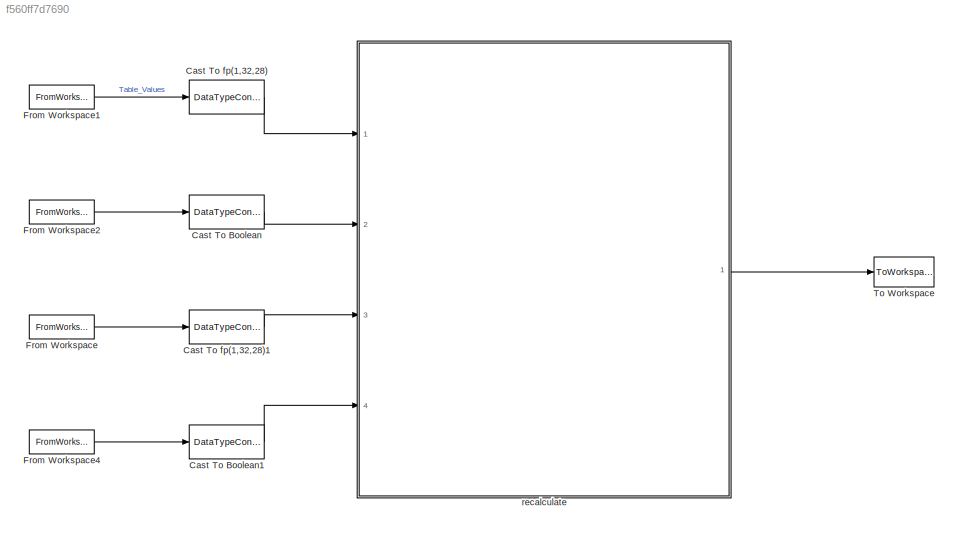
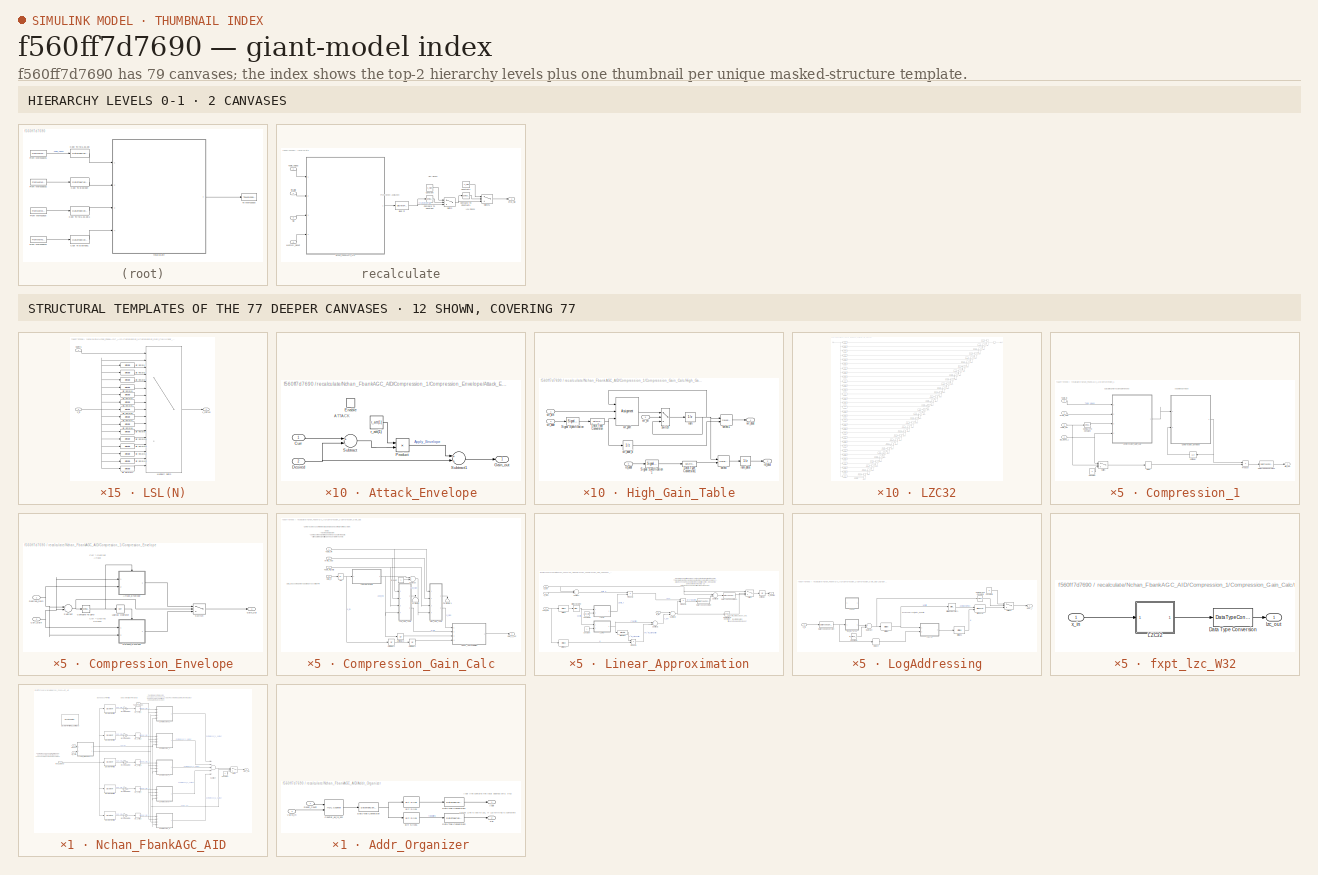
[diagram: thumbnail index - top-2 hierarchy levels (2 canvases) + 12 structural-template representatives of the remaining 77 canvases]
MODEL slx_f560ff7d7690
KIND model
CONFIG AbsTol = auto
CONFIG EnableMultiTasking = off
CONFIG FixedStep = auto
CONFIG InitFcn = clear;\n%DIAGNOSTIC = 0;  %% flag to give more information as simulation proceeds such as comments & plots\n%CALIB_DIAGNOSTIC =  0; %% flag to give more information about calibration of filterbank due to overlap between filters: Mar 2016\n%PRESCRIPT = 1;  %% flag to plot requested versus achieved insertion gains (esp for 125-250 Hz region).\n%ipfiledigrms = -36; %% input file RMS in dB for 65 dB SPL e...<+5970ch>
CONFIG MaxStep = auto
CONFIG MinStep = auto
CONFIG RelTol = 1e-3
CONFIG SampleTimeConstraint = Unconstrained
CONFIG Solver = FixedStepDiscrete
CONFIG SolverName = FixedStepDiscrete
CONFIG StartTime = 0.0
CONFIG StopFcn = proc_sig = double(out.proc_sig.data(:));\n%alignedSigs = double(out.alignedSigs.data(:));\n%[opwav, stop_ok] = savewavfile(opfiledigrms, ipfiledigrms, proc_sig, Fs, nbits, NStreams);\n\n%load('SweepSimOutput.mat')\n%X_out_Sweep_Sim(Volume,:) = proc_sig;\n%save('SweepSimOutput.mat', 'X_out_Sweep_Sim');
CONFIG StopTime = t_end
BLOCK [DataTypeConversion] Cast To Boolean
  OutDataTypeStr = boolean
  RndMeth = Floor
  SaturateOnIntegerOverflow = off
BLOCK [DataTypeConversion] Cast To Boolean1
  OutDataTypeStr = boolean
  RndMeth = Floor
  SaturateOnIntegerOverflow = off
BLOCK [DataTypeConversion] Cast To fp(1,32,28)
  OutDataTypeStr = fixdt(1,32,28)
  RndMeth = Round
  SaturateOnIntegerOverflow = off
BLOCK [DataTypeConversion] Cast To fp(1,32,28)1
  OutDataTypeStr = fixdt(1,32,28)
  RndMeth = Round
  SaturateOnIntegerOverflow = off
BLOCK [FromWorkspace] From Workspace
  OutputAfterFinalValue = Setting to zero
  SampleTime = Ts
  VariableName = sig_in
  ZeroCross = on
BLOCK [FromWorkspace] From Workspace1
  Interpolate = off
  OutputAfterFinalValue = Setting to zero
  SampleTime = Ts
  VariableName = Table_Fill_t
  ZeroCross = on
BLOCK [FromWorkspace] From Workspace2
  OutputAfterFinalValue = Setting to zero
  SampleTime = Ts
  VariableName = Fill_Valid_t
  ZeroCross = on
BLOCK [FromWorkspace] From Workspace4
  Interpolate = off
  OutputAfterFinalValue = Setting to zero
  SampleTime = Ts
  VariableName = Reset
  ZeroCross = on
BLOCK [ToWorkspace] To Workspace
  FixptAsFi = on
  MaxDataPoints = inf
  Ports = [1]
  SampleTime = -1
  SaveFormat = Timeseries
  VariableName = proc_sig
BLOCK [SubSystem] recalculate
  Ports = [4, 1]
  RequestExecContextInheritance = off
BLOCK [Reference] recalculate/Compare To Constant  REF=simulink/Logic and Bit
Operations/Compare
To Constant
  Ports = [1, 1]
  SourceBlock = simulink/Logic and Bit\nOperations/Compare\nTo Constant
  SourceProductBaseCode = SL
  SourceProductName = Simulink
  SourceType = Compare To Constant
BLOCK [Reference] recalculate/Compare To Constant1  REF=simulink/Logic and Bit
Operations/Compare
To Constant
  Ports = [1, 1]
  SourceBlock = simulink/Logic and Bit\nOperations/Compare\nTo Constant
  SourceProductBaseCode = SL
  SourceProductName = Simulink
  SourceType = Compare To Constant
BLOCK [Constant] recalculate/Constant
  OutDataTypeStr = fixdt(1,W_bits, F_bits)
  SampleTime = -1
  Value = X_high
BLOCK [Constant] recalculate/Constant1
  OutDataTypeStr = fixdt(1,W_bits, F_bits)
  SampleTime = -1
  Value = -X_high
BLOCK [Inport] recalculate/Fill_Valid
  IconDisplay = Port number
  Port = 2
BLOCK [Inport] recalculate/Memory_Reset
  IconDisplay = Port number
  Port = 4
BLOCK [SubSystem] recalculate/Nchan_FbankAGC_AID
  Ports = [4, 1]
  RequestExecContextInheritance = off
BLOCK [SubSystem] recalculate/Nchan_FbankAGC_AID/Addr_Organizer
  Ports = [2, 2]
  RequestExecContextInheritance = off
BLOCK [Outport] recalculate/Nchan_FbankAGC_AID/Addr_Organizer/Addr
  IconDisplay = Port number
BLOCK [Reference] recalculate/Nchan_FbankAGC_AID/Addr_Organizer/Bit Slice  REF=hdlsllib/Logic and Bit
Operations/Bit Slice
  Ports = [1, 1]
  SourceBlock = hdlsllib/Logic and Bit\nOperations/Bit Slice
  SourceProductBaseCode = SL
  SourceProductName = Simulink
  SourceType = Bit Slice
BLOCK [Reference] recalculate/Nchan_FbankAGC_AID/Addr_Organizer/Bit Slice1  REF=hdlsllib/Logic and Bit
Operations/Bit Slice
  Ports = [1, 1]
  SourceBlock = hdlsllib/Logic and Bit\nOperations/Bit Slice
  SourceProductBaseCode = SL
  SourceProductName = Simulink
  SourceType = Bit Slice
BLOCK [Reference] recalculate/Nchan_FbankAGC_AID/Addr_Organizer/Counter_up_to_320  REF=hdlsllib/Sources/HDL Counter
  Ports = [2, 1]
  SourceBlock = hdlsllib/Sources/HDL Counter
  SourceProductBaseCode = SL
  SourceProductName = Simulink
  SourceType = HDL Counter
BLOCK [DataTypeConversion] recalculate/Nchan_FbankAGC_AID/Addr_Organizer/Data Type Conversion
  OutDataTypeStr = fixdt(0,7+M_Bits,0)
  RndMeth = Floor
  SaturateOnIntegerOverflow = off
BLOCK [DataTypeConversion] recalculate/Nchan_FbankAGC_AID/Addr_Organizer/Data Type Conversion1
  OutDataTypeStr = fixdt(0,4+M_bits,0)
  RndMeth = Floor
  SaturateOnIntegerOverflow = off
BLOCK [DataTypeConversion] recalculate/Nchan_FbankAGC_AID/Addr_Organizer/Data Type Conversion2
  OutDataTypeStr = fixdt(0,3,0)
  RndMeth = Floor
  SaturateOnIntegerOverflow = off
BLOCK [Inport] recalculate/Nchan_FbankAGC_AID/Addr_Organizer/Reset_Count
  IconDisplay = Port number
BLOCK [Outport] recalculate/Nchan_FbankAGC_AID/Addr_Organizer/Sel
  IconDisplay = Port number
  Port = 2
BLOCK [Inport] recalculate/Nchan_FbankAGC_AID/Addr_Organizer/Valid_in
  IconDisplay = Port number
  Port = 2
BLOCK [SubSystem] recalculate/Nchan_FbankAGC_AID/Compression_1
  Ports = [4, 1]
  RequestExecContextInheritance = off
BLOCK [Reference] recalculate/Nchan_FbankAGC_AID/Compression_1/Compare To Constant  REF=simulink/Logic and Bit
Operations/Compare
To Constant
  Ports = [1, 1]
  SourceBlock = simulink/Logic and Bit\nOperations/Compare\nTo Constant
  SourceProductBaseCode = SL
  SourceProductName = Simulink
  SourceType = Compare To Constant
BLOCK [SubSystem] recalculate/Nchan_FbankAGC_AID/Compression_1/Compression_Envelope
  Ports = [2, 1]
  RequestExecContextInheritance = off
BLOCK [SubSystem] recalculate/Nchan_FbankAGC_AID/Compression_1/Compression_Envelope/Attack_Envelope
  Ports = [2, 1, 1]
  RequestExecContextInheritance = off
  TreatAsAtomicUnit = on
BLOCK [Inport] recalculate/Nchan_FbankAGC_AID/Compression_1/Compression_Envelope/Attack_Envelope/Curr
  IconDisplay = Port number
BLOCK [Inport] recalculate/Nchan_FbankAGC_AID/Compression_1/Compression_Envelope/Attack_Envelope/Desired
  IconDisplay = Port number
  Port = 2
BLOCK [EnablePort] recalculate/Nchan_FbankAGC_AID/Compression_1/Compression_Envelope/Attack_Envelope/Enable
  Ports = []
BLOCK [Outport] recalculate/Nchan_FbankAGC_AID/Compression_1/Compression_Envelope/Attack_Envelope/Gain_out
  IconDisplay = Port number
  InitialOutput = 0
BLOCK [Product] recalculate/Nchan_FbankAGC_AID/Compression_1/Compression_Envelope/Attack_Envelope/Product
  InputSameDT = off
  Ports = [2, 1]
  RndMeth = Floor
  SaturateOnIntegerOverflow = off
BLOCK [Sum] recalculate/Nchan_FbankAGC_AID/Compression_1/Compression_Envelope/Attack_Envelope/Subtract
  InputSameDT = off
  Inputs = +-
  OutDataTypeStr = Inherit: Inherit via internal rule
  Ports = [2, 1]
  SaturateOnIntegerOverflow = off
BLOCK [Sum] recalculate/Nchan_FbankAGC_AID/Compression_1/Compression_Envelope/Attack_Envelope/Subtract1
  InputSameDT = off
  OutDataTypeStr = fixdt(1,W_bits, F_bits)
  Ports = [2, 1]
  SaturateOnIntegerOverflow = off
BLOCK [Constant] recalculate/Nchan_FbankAGC_AID/Compression_1/Compression_Envelope/Attack_Envelope/r_att(1)
  OutDataTypeStr = fixdt(1,W_bits*2,W_bits+F_bits)
  SampleTime = -1
  Value = r_att(1)
BLOCK [Reference] recalculate/Nchan_FbankAGC_AID/Compression_1/Compression_Envelope/Compare To Zero  REF=simulink/Logic and Bit
Operations/Compare
To Zero
  Ports = [1, 1]
  SourceBlock = simulink/Logic and Bit\nOperations/Compare\nTo Zero
  SourceProductBaseCode = SL
  SourceProductName = Simulink
  SourceType = Compare To Zero
BLOCK [Inport] recalculate/Nchan_FbankAGC_AID/Compression_1/Compression_Envelope/Curr_Gain
  IconDisplay = Port number
  Port = 2
BLOCK [Inport] recalculate/Nchan_FbankAGC_AID/Compression_1/Compression_Envelope/Desired_Gain
  IconDisplay = Port number
BLOCK [Outport] recalculate/Nchan_FbankAGC_AID/Compression_1/Compression_Envelope/Gain_Out
  IconDisplay = Port number
BLOCK [Logic] recalculate/Nchan_FbankAGC_AID/Compression_1/Compression_Envelope/Logical Operator
  AllPortsSameDT = off
  Operator = NOT
  OutDataTypeStr = boolean
  Ports = [1, 1]
BLOCK [SubSystem] recalculate/Nchan_FbankAGC_AID/Compression_1/Compression_Envelope/Release_Envelope
  Ports = [2, 1, 1]
  RequestExecContextInheritance = off
  TreatAsAtomicUnit = on
BLOCK [Inport] recalculate/Nchan_FbankAGC_AID/Compression_1/Compression_Envelope/Release_Envelope/Curr
  IconDisplay = Port number
BLOCK [Inport] recalculate/Nchan_FbankAGC_AID/Compression_1/Compression_Envelope/Release_Envelope/Desired
  IconDisplay = Port number
  Port = 2
BLOCK [EnablePort] recalculate/Nchan_FbankAGC_AID/Compression_1/Compression_Envelope/Release_Envelope/Enable
  Ports = []
BLOCK [Outport] recalculate/Nchan_FbankAGC_AID/Compression_1/Compression_Envelope/Release_Envelope/Gain_out
  IconDisplay = Port number
  InitialOutput = 0
BLOCK [Product] recalculate/Nchan_FbankAGC_AID/Compression_1/Compression_Envelope/Release_Envelope/Product
  InputSameDT = off
  Ports = [2, 1]
  RndMeth = Floor
  SaturateOnIntegerOverflow = off
BLOCK [Sum] recalculate/Nchan_FbankAGC_AID/Compression_1/Compression_Envelope/Release_Envelope/Subtract
  InputSameDT = off
  Inputs = +-
  OutDataTypeStr = Inherit: Inherit via internal rule
  Ports = [2, 1]
  SaturateOnIntegerOverflow = off
BLOCK [Sum] recalculate/Nchan_FbankAGC_AID/Compression_1/Compression_Envelope/Release_Envelope/Subtract1
  InputSameDT = off
  Inputs = +-
  Ports = [2, 1]
  SaturateOnIntegerOverflow = off
BLOCK [Constant] recalculate/Nchan_FbankAGC_AID/Compression_1/Compression_Envelope/Release_Envelope/r_rel(1)
  OutDataTypeStr = fixdt(1,W_bits*2,W_bits+F_bits)
  SampleTime = -1
  Value = r_rel(1)
BLOCK [Sum] recalculate/Nchan_FbankAGC_AID/Compression_1/Compression_Envelope/Subtract
  AccumDataTypeStr = fixdt(1,W_bits,F_bits)
  InputSameDT = off
  Inputs = -+
  OutDataTypeStr = Inherit: Same as accumulator
  Ports = [2, 1]
  SaturateOnIntegerOverflow = off
BLOCK [Switch] recalculate/Nchan_FbankAGC_AID/Compression_1/Compression_Envelope/Switch
  InputSameDT = off
  SaturateOnIntegerOverflow = off
BLOCK [SubSystem] recalculate/Nchan_FbankAGC_AID/Compression_1/Compression_Gain_Calc
  Ports = [4, 1]
  RequestExecContextInheritance = off
BLOCK [Abs] recalculate/Nchan_FbankAGC_AID/Compression_1/Compression_Gain_Calc/Abs
  SaturateOnIntegerOverflow = off
BLOCK [Constant] recalculate/Nchan_FbankAGC_AID/Compression_1/Compression_Gain_Calc/Constant
  OutDataTypeStr = fixdt(0,9,0)
  SampleTime = -1
BLOCK [Inport] recalculate/Nchan_FbankAGC_AID/Compression_1/Compression_Gain_Calc/Data_In
  IconDisplay = Port number
  Port = 4
BLOCK [Outport] recalculate/Nchan_FbankAGC_AID/Compression_1/Compression_Gain_Calc/Gain_C_out
  IconDisplay = Port number
BLOCK [SubSystem] recalculate/Nchan_FbankAGC_AID/Compression_1/Compression_Gain_Calc/High_Gain_Table
  AncestorBlock = hdlsllibUNLOCKED/HDL RAMs/Dual Port RAM
  Ports = [4, 2]
  RequestExecContextInheritance = off
BLOCK [DataTypeConversion] recalculate/Nchan_FbankAGC_AID/Compression_1/Compression_Gain_Calc/High_Gain_Table/Data Type Conversion
  OutDataTypeStr = fixdt(0,16,0)
  RndMeth = Floor
  SaturateOnIntegerOverflow = off
BLOCK [DataTypeConversion] recalculate/Nchan_FbankAGC_AID/Compression_1/Compression_Gain_Calc/High_Gain_Table/Data Type Conversion1
  OutDataTypeStr = fixdt(0,16,0)
  RndMeth = Floor
  SaturateOnIntegerOverflow = off
BLOCK [SignalSpecification] recalculate/Nchan_FbankAGC_AID/Compression_1/Compression_Gain_Calc/High_Gain_Table/Signal Specification
  Dimensions = 1
  OutDataTypeStr = fixdt(0,ram_size,0)
BLOCK [SignalSpecification] recalculate/Nchan_FbankAGC_AID/Compression_1/Compression_Gain_Calc/High_Gain_Table/Signal Specification1
  Dimensions = 1
  OutDataTypeStr = fixdt(0,ram_size,0)
BLOCK [UnitDelay] recalculate/Nchan_FbankAGC_AID/Compression_1/Compression_Gain_Calc/High_Gain_Table/ram
  HasFrameUpgradeWarning = on
  InitialCondition = Table_Fill(1: 2^(M_bits+4) )
  SampleTime = -1
BLOCK [UnitDelay] recalculate/Nchan_FbankAGC_AID/Compression_1/Compression_Gain_Calc/High_Gain_Table/ram_data
  HasFrameUpgradeWarning = on
  SampleTime = -1
BLOCK [Inport] recalculate/Nchan_FbankAGC_AID/Compression_1/Compression_Gain_Calc/High_Gain_Table/rd_addr
  IconDisplay = Port number
  Port = 4
BLOCK [Outport] recalculate/Nchan_FbankAGC_AID/Compression_1/Compression_Gain_Calc/High_Gain_Table/rd_dout
  IconDisplay = Port number
  Port = 2
BLOCK [Selector] recalculate/Nchan_FbankAGC_AID/Compression_1/Compression_Gain_Calc/High_Gain_Table/select
  IndexMode = Zero-based
  IndexOptions = Index vector (port)
  Indices = [1 3]
  InputPortWidth = 2^ram_size
  OutputSizes = 1
  Ports = [2, 1]
BLOCK [Selector] recalculate/Nchan_FbankAGC_AID/Compression_1/Compression_Gain_Calc/High_Gain_Table/select1
  IndexMode = Zero-based
  IndexOptions = Index vector (port)
  Indices = [1 3]
  InputPortWidth = 2^ram_size
  OutputSizes = 1
  Ports = [2, 1]
BLOCK [Switch] recalculate/Nchan_FbankAGC_AID/Compression_1/Compression_Gain_Calc/High_Gain_Table/switch
  Criteria = u2 ~= 0
  InputSameDT = off
  SaturateOnIntegerOverflow = off
BLOCK [Inport] recalculate/Nchan_FbankAGC_AID/Compression_1/Compression_Gain_Calc/High_Gain_Table/wr_addr
  IconDisplay = Port number
  Port = 2
BLOCK [UnitDelay] recalculate/Nchan_FbankAGC_AID/Compression_1/Compression_Gain_Calc/High_Gain_Table/wr_addr_d
  HasFrameUpgradeWarning = on
  SampleTime = -1
BLOCK [Inport] recalculate/Nchan_FbankAGC_AID/Compression_1/Compression_Gain_Calc/High_Gain_Table/wr_din
  IconDisplay = Port number
BLOCK [Outport] recalculate/Nchan_FbankAGC_AID/Compression_1/Compression_Gain_Calc/High_Gain_Table/wr_dout
  IconDisplay = Port number
BLOCK [Inport] recalculate/Nchan_FbankAGC_AID/Compression_1/Compression_Gain_Calc/High_Gain_Table/wr_en
  IconDisplay = Port number
  OutDataTypeStr = boolean
  Port = 3
BLOCK [Assignment] recalculate/Nchan_FbankAGC_AID/Compression_1/Compression_Gain_Calc/High_Gain_Table/wr_port
  IndexMode = Zero-based
  IndexOptions = Index vector (port)
  Indices = 1
  OutputSizes = [1 1]
  Ports = [3, 1]
BLOCK [SubSystem] recalculate/Nchan_FbankAGC_AID/Compression_1/Compression_Gain_Calc/Linear_Approximation
  Ports = [4, 1]
  RequestExecContextInheritance = off
BLOCK [Reference] recalculate/Nchan_FbankAGC_AID/Compression_1/Compression_Gain_Calc/Linear_Approximation/Bit Rotate1  REF=hdlsllib/Logic and Bit
Operations/Bit Rotate
  Ports = [1, 1]
  SourceBlock = hdlsllib/Logic and Bit\nOperations/Bit Rotate
  SourceProductBaseCode = SL
  SourceProductName = Simulink
  SourceType = Bit Rotate
BLOCK [Reference] recalculate/Nchan_FbankAGC_AID/Compression_1/Compression_Gain_Calc/Linear_Approximation/Bit Slice  REF=hdlsllib/Logic and Bit
Operations/Bit Slice
  Ports = [1, 1]
  SourceBlock = hdlsllib/Logic and Bit\nOperations/Bit Slice
  SourceProductBaseCode = SL
  SourceProductName = Simulink
  SourceType = Bit Slice
BLOCK [Reference] recalculate/Nchan_FbankAGC_AID/Compression_1/Compression_Gain_Calc/Linear_Approximation/Bit Slice1  REF=hdlsllib/Logic and Bit
Operations/Bit Slice
  Ports = [1, 1]
  SourceBlock = hdlsllib/Logic and Bit\nOperations/Bit Slice
  SourceProductBaseCode = SL
  SourceProductName = Simulink
  SourceType = Bit Slice
BLOCK [Reference] recalculate/Nchan_FbankAGC_AID/Compression_1/Compression_Gain_Calc/Linear_Approximation/Bitwise Operator  REF=simulink/Logic and Bit
Operations/Bitwise
Operator
  Ports = [1, 1]
  SourceBlock = simulink/Logic and Bit\nOperations/Bitwise\nOperator
  SourceProductBaseCode = SL
  SourceProductName = Simulink
  SourceType = Bitwise Operator
BLOCK [Reference] recalculate/Nchan_FbankAGC_AID/Compression_1/Compression_Gain_Calc/Linear_Approximation/Compare To Constant  REF=simulink/Logic and Bit
Operations/Compare
To Constant
  Ports = [1, 1]
  SourceBlock = simulink/Logic and Bit\nOperations/Compare\nTo Constant
  SourceProductBaseCode = SL
  SourceProductName = Simulink
  SourceType = Compare To Constant
BLOCK [Constant] recalculate/Nchan_FbankAGC_AID/Compression_1/Compression_Gain_Calc/Linear_Approximation/Constant
  OutDataTypeStr = fixdt(0,W_bits,W_bits-2)
  SampleTime = -1
BLOCK [Constant] recalculate/Nchan_FbankAGC_AID/Compression_1/Compression_Gain_Calc/Linear_Approximation/Constant2
  OutDataTypeStr = fixdt(0,W_bits,0)
  SampleTime = -1
  Value = 2^(M_bits)
BLOCK [DataTypeConversion] recalculate/Nchan_FbankAGC_AID/Compression_1/Compression_Gain_Calc/Linear_Approximation/Data Type Conversion
  OutDataTypeStr = fixdt(1,W_bits,F_bits)
  RndMeth = Floor
  SaturateOnIntegerOverflow = off
BLOCK [DataTypeConversion] recalculate/Nchan_FbankAGC_AID/Compression_1/Compression_Gain_Calc/Linear_Approximation/Data Type Conversion1
  OutDataTypeStr = fixdt(1,W_bits, F_bits)
  RndMeth = Floor
  SaturateOnIntegerOverflow = off
BLOCK [Outport] recalculate/Nchan_FbankAGC_AID/Compression_1/Compression_Gain_Calc/Linear_Approximation/G_Desired
  IconDisplay = Port number
BLOCK [Inport] recalculate/Nchan_FbankAGC_AID/Compression_1/Compression_Gain_Calc/Linear_Approximation/G_high
  IconDisplay = Port number
BLOCK [Inport] recalculate/Nchan_FbankAGC_AID/Compression_1/Compression_Gain_Calc/Linear_Approximation/G_low
  IconDisplay = Port number
  Port = 2
BLOCK [SubSystem] recalculate/Nchan_FbankAGC_AID/Compression_1/Compression_Gain_Calc/Linear_Approximation/LSL(N)
  Ports = [2, 1]
  RequestExecContextInheritance = off
BLOCK [Reference] recalculate/Nchan_FbankAGC_AID/Compression_1/Compression_Gain_Calc/Linear_Approximation/LSL(N)/Bit Rotate  REF=hdlsllib/Logic and Bit
Operations/Bit Rotate
  Ports = [1, 1]
  SourceBlock = hdlsllib/Logic and Bit\nOperations/Bit Rotate
  SourceProductBaseCode = SL
  SourceProductName = Simulink
  SourceType = Bit Rotate
BLOCK [Reference] recalculate/Nchan_FbankAGC_AID/Compression_1/Compression_Gain_Calc/Linear_Approximation/LSL(N)/Bit Rotate1  REF=hdlsllib/Logic and Bit
Operations/Bit Rotate
  Ports = [1, 1]
  SourceBlock = hdlsllib/Logic and Bit\nOperations/Bit Rotate
  SourceProductBaseCode = SL
  SourceProductName = Simulink
  SourceType = Bit Rotate
BLOCK [Reference] recalculate/Nchan_FbankAGC_AID/Compression_1/Compression_Gain_Calc/Linear_Approximation/LSL(N)/Bit Rotate10  REF=hdlsllib/Logic and Bit
Operations/Bit Rotate
  Ports = [1, 1]
  SourceBlock = hdlsllib/Logic and Bit\nOperations/Bit Rotate
  SourceProductBaseCode = SL
  SourceProductName = Simulink
  SourceType = Bit Rotate
BLOCK [Reference] recalculate/Nchan_FbankAGC_AID/Compression_1/Compression_Gain_Calc/Linear_Approximation/LSL(N)/Bit Rotate11  REF=hdlsllib/Logic and Bit
Operations/Bit Rotate
  Ports = [1, 1]
  SourceBlock = hdlsllib/Logic and Bit\nOperations/Bit Rotate
  SourceProductBaseCode = SL
  SourceProductName = Simulink
  SourceType = Bit Rotate
BLOCK [Reference] recalculate/Nchan_FbankAGC_AID/Compression_1/Compression_Gain_Calc/Linear_Approximation/LSL(N)/Bit Rotate12  REF=hdlsllib/Logic and Bit
Operations/Bit Rotate
  Ports = [1, 1]
  SourceBlock = hdlsllib/Logic and Bit\nOperations/Bit Rotate
  SourceProductBaseCode = SL
  SourceProductName = Simulink
  SourceType = Bit Rotate
BLOCK [Reference] recalculate/Nchan_FbankAGC_AID/Compression_1/Compression_Gain_Calc/Linear_Approximation/LSL(N)/Bit Rotate13  REF=hdlsllib/Logic and Bit
Operations/Bit Rotate
  Ports = [1, 1]
  SourceBlock = hdlsllib/Logic and Bit\nOperations/Bit Rotate
  SourceProductBaseCode = SL
  SourceProductName = Simulink
  SourceType = Bit Rotate
BLOCK [Reference] recalculate/Nchan_FbankAGC_AID/Compression_1/Compression_Gain_Calc/Linear_Approximation/LSL(N)/Bit Rotate14  REF=hdlsllib/Logic and Bit
Operations/Bit Rotate
  Ports = [1, 1]
  SourceBlock = hdlsllib/Logic and Bit\nOperations/Bit Rotate
  SourceProductBaseCode = SL
  SourceProductName = Simulink
  SourceType = Bit Rotate
BLOCK [Reference] recalculate/Nchan_FbankAGC_AID/Compression_1/Compression_Gain_Calc/Linear_Approximation/LSL(N)/Bit Rotate2  REF=hdlsllib/Logic and Bit
Operations/Bit Rotate
  Ports = [1, 1]
  SourceBlock = hdlsllib/Logic and Bit\nOperations/Bit Rotate
  SourceProductBaseCode = SL
  SourceProductName = Simulink
  SourceType = Bit Rotate
BLOCK [Reference] recalculate/Nchan_FbankAGC_AID/Compression_1/Compression_Gain_Calc/Linear_Approximation/LSL(N)/Bit Rotate3  REF=hdlsllib/Logic and Bit
Operations/Bit Rotate
  Ports = [1, 1]
  SourceBlock = hdlsllib/Logic and Bit\nOperations/Bit Rotate
  SourceProductBaseCode = SL
  SourceProductName = Simulink
  SourceType = Bit Rotate
BLOCK [Reference] recalculate/Nchan_FbankAGC_AID/Compression_1/Compression_Gain_Calc/Linear_Approximation/LSL(N)/Bit Rotate4  REF=hdlsllib/Logic and Bit
Operations/Bit Rotate
  Ports = [1, 1]
  SourceBlock = hdlsllib/Logic and Bit\nOperations/Bit Rotate
  SourceProductBaseCode = SL
  SourceProductName = Simulink
  SourceType = Bit Rotate
BLOCK [Reference] recalculate/Nchan_FbankAGC_AID/Compression_1/Compression_Gain_Calc/Linear_Approximation/LSL(N)/Bit Rotate5  REF=hdlsllib/Logic and Bit
Operations/Bit Rotate
  Ports = [1, 1]
  SourceBlock = hdlsllib/Logic and Bit\nOperations/Bit Rotate
  SourceProductBaseCode = SL
  SourceProductName = Simulink
  SourceType = Bit Rotate
BLOCK [Reference] recalculate/Nchan_FbankAGC_AID/Compression_1/Compression_Gain_Calc/Linear_Approximation/LSL(N)/Bit Rotate6  REF=hdlsllib/Logic and Bit
Operations/Bit Rotate
  Ports = [1, 1]
  SourceBlock = hdlsllib/Logic and Bit\nOperations/Bit Rotate
  SourceProductBaseCode = SL
  SourceProductName = Simulink
  SourceType = Bit Rotate
BLOCK [Reference] recalculate/Nchan_FbankAGC_AID/Compression_1/Compression_Gain_Calc/Linear_Approximation/LSL(N)/Bit Rotate7  REF=hdlsllib/Logic and Bit
Operations/Bit Rotate
  Ports = [1, 1]
  SourceBlock = hdlsllib/Logic and Bit\nOperations/Bit Rotate
  SourceProductBaseCode = SL
  SourceProductName = Simulink
  SourceType = Bit Rotate
BLOCK [Reference] recalculate/Nchan_FbankAGC_AID/Compression_1/Compression_Gain_Calc/Linear_Approximation/LSL(N)/Bit Rotate8  REF=hdlsllib/Logic and Bit
Operations/Bit Rotate
  Ports = [1, 1]
  SourceBlock = hdlsllib/Logic and Bit\nOperations/Bit Rotate
  SourceProductBaseCode = SL
  SourceProductName = Simulink
  SourceType = Bit Rotate
BLOCK [Reference] recalculate/Nchan_FbankAGC_AID/Compression_1/Compression_Gain_Calc/Linear_Approximation/LSL(N)/Bit Rotate9  REF=hdlsllib/Logic and Bit
Operations/Bit Rotate
  Ports = [1, 1]
  SourceBlock = hdlsllib/Logic and Bit\nOperations/Bit Rotate
  SourceProductBaseCode = SL
  SourceProductName = Simulink
  SourceType = Bit Rotate
BLOCK [MultiPortSwitch] recalculate/Nchan_FbankAGC_AID/Compression_1/Compression_Gain_Calc/Linear_Approximation/LSL(N)/Multiport Switch
  DataPortOrder = Zero-based contiguous
  DiagnosticForDefault = Warning
  InputSameDT = off
  Inputs = 16
  Ports = [17, 1]
  SaturateOnIntegerOverflow = off
  zeroidx = on
BLOCK [Inport] recalculate/Nchan_FbankAGC_AID/Compression_1/Compression_Gain_Calc/Linear_Approximation/LSL(N)/NShifts
  IconDisplay = Port number
BLOCK [Inport] recalculate/Nchan_FbankAGC_AID/Compression_1/Compression_Gain_Calc/Linear_Approximation/LSL(N)/x_in
  IconDisplay = Port number
  Port = 2
BLOCK [Outport] recalculate/Nchan_FbankAGC_AID/Compression_1/Compression_Gain_Calc/Linear_Approximation/LSL(N)/x_shifted
  IconDisplay = Port number
BLOCK [SubSystem] recalculate/Nchan_FbankAGC_AID/Compression_1/Compression_Gain_Calc/Linear_Approximation/LSR(N)
  Ports = [2, 1]
  RequestExecContextInheritance = off
BLOCK [Reference] recalculate/Nchan_FbankAGC_AID/Compression_1/Compression_Gain_Calc/Linear_Approximation/LSR(N)/Bit Rotate  REF=hdlsllib/Logic and Bit
Operations/Bit Rotate
  Ports = [1, 1]
  SourceBlock = hdlsllib/Logic and Bit\nOperations/Bit Rotate
  SourceProductBaseCode = SL
  SourceProductName = Simulink
  SourceType = Bit Rotate
BLOCK [Reference] recalculate/Nchan_FbankAGC_AID/Compression_1/Compression_Gain_Calc/Linear_Approximation/LSR(N)/Bit Rotate1  REF=hdlsllib/Logic and Bit
Operations/Bit Rotate
  Ports = [1, 1]
  SourceBlock = hdlsllib/Logic and Bit\nOperations/Bit Rotate
  SourceProductBaseCode = SL
  SourceProductName = Simulink
  SourceType = Bit Rotate
BLOCK [Reference] recalculate/Nchan_FbankAGC_AID/Compression_1/Compression_Gain_Calc/Linear_Approximation/LSR(N)/Bit Rotate10  REF=hdlsllib/Logic and Bit
Operations/Bit Rotate
  Ports = [1, 1]
  SourceBlock = hdlsllib/Logic and Bit\nOperations/Bit Rotate
  SourceProductBaseCode = SL
  SourceProductName = Simulink
  SourceType = Bit Rotate
BLOCK [Reference] recalculate/Nchan_FbankAGC_AID/Compression_1/Compression_Gain_Calc/Linear_Approximation/LSR(N)/Bit Rotate11  REF=hdlsllib/Logic and Bit
Operations/Bit Rotate
  Ports = [1, 1]
  SourceBlock = hdlsllib/Logic and Bit\nOperations/Bit Rotate
  SourceProductBaseCode = SL
  SourceProductName = Simulink
  SourceType = Bit Rotate
BLOCK [Reference] recalculate/Nchan_FbankAGC_AID/Compression_1/Compression_Gain_Calc/Linear_Approximation/LSR(N)/Bit Rotate12  REF=hdlsllib/Logic and Bit
Operations/Bit Rotate
  Ports = [1, 1]
  SourceBlock = hdlsllib/Logic and Bit\nOperations/Bit Rotate
  SourceProductBaseCode = SL
  SourceProductName = Simulink
  SourceType = Bit Rotate
BLOCK [Reference] recalculate/Nchan_FbankAGC_AID/Compression_1/Compression_Gain_Calc/Linear_Approximation/LSR(N)/Bit Rotate13  REF=hdlsllib/Logic and Bit
Operations/Bit Rotate
  Ports = [1, 1]
  SourceBlock = hdlsllib/Logic and Bit\nOperations/Bit Rotate
  SourceProductBaseCode = SL
  SourceProductName = Simulink
  SourceType = Bit Rotate
BLOCK [Reference] recalculate/Nchan_FbankAGC_AID/Compression_1/Compression_Gain_Calc/Linear_Approximation/LSR(N)/Bit Rotate14  REF=hdlsllib/Logic and Bit
Operations/Bit Rotate
  Ports = [1, 1]
  SourceBlock = hdlsllib/Logic and Bit\nOperations/Bit Rotate
  SourceProductBaseCode = SL
  SourceProductName = Simulink
  SourceType = Bit Rotate
BLOCK [Reference] recalculate/Nchan_FbankAGC_AID/Compression_1/Compression_Gain_Calc/Linear_Approximation/LSR(N)/Bit Rotate2  REF=hdlsllib/Logic and Bit
Operations/Bit Rotate
  Ports = [1, 1]
  SourceBlock = hdlsllib/Logic and Bit\nOperations/Bit Rotate
  SourceProductBaseCode = SL
  SourceProductName = Simulink
  SourceType = Bit Rotate
BLOCK [Reference] recalculate/Nchan_FbankAGC_AID/Compression_1/Compression_Gain_Calc/Linear_Approximation/LSR(N)/Bit Rotate3  REF=hdlsllib/Logic and Bit
Operations/Bit Rotate
  Ports = [1, 1]
  SourceBlock = hdlsllib/Logic and Bit\nOperations/Bit Rotate
  SourceProductBaseCode = SL
  SourceProductName = Simulink
  SourceType = Bit Rotate
BLOCK [Reference] recalculate/Nchan_FbankAGC_AID/Compression_1/Compression_Gain_Calc/Linear_Approximation/LSR(N)/Bit Rotate4  REF=hdlsllib/Logic and Bit
Operations/Bit Rotate
  Ports = [1, 1]
  SourceBlock = hdlsllib/Logic and Bit\nOperations/Bit Rotate
  SourceProductBaseCode = SL
  SourceProductName = Simulink
  SourceType = Bit Rotate
BLOCK [Reference] recalculate/Nchan_FbankAGC_AID/Compression_1/Compression_Gain_Calc/Linear_Approximation/LSR(N)/Bit Rotate5  REF=hdlsllib/Logic and Bit
Operations/Bit Rotate
  Ports = [1, 1]
  SourceBlock = hdlsllib/Logic and Bit\nOperations/Bit Rotate
  SourceProductBaseCode = SL
  SourceProductName = Simulink
  SourceType = Bit Rotate
BLOCK [Reference] recalculate/Nchan_FbankAGC_AID/Compression_1/Compression_Gain_Calc/Linear_Approximation/LSR(N)/Bit Rotate6  REF=hdlsllib/Logic and Bit
Operations/Bit Rotate
  Ports = [1, 1]
  SourceBlock = hdlsllib/Logic and Bit\nOperations/Bit Rotate
  SourceProductBaseCode = SL
  SourceProductName = Simulink
  SourceType = Bit Rotate
BLOCK [Reference] recalculate/Nchan_FbankAGC_AID/Compression_1/Compression_Gain_Calc/Linear_Approximation/LSR(N)/Bit Rotate7  REF=hdlsllib/Logic and Bit
Operations/Bit Rotate
  Ports = [1, 1]
  SourceBlock = hdlsllib/Logic and Bit\nOperations/Bit Rotate
  SourceProductBaseCode = SL
  SourceProductName = Simulink
  SourceType = Bit Rotate
BLOCK [Reference] recalculate/Nchan_FbankAGC_AID/Compression_1/Compression_Gain_Calc/Linear_Approximation/LSR(N)/Bit Rotate8  REF=hdlsllib/Logic and Bit
Operations/Bit Rotate
  Ports = [1, 1]
  SourceBlock = hdlsllib/Logic and Bit\nOperations/Bit Rotate
  SourceProductBaseCode = SL
  SourceProductName = Simulink
  SourceType = Bit Rotate
BLOCK [Reference] recalculate/Nchan_FbankAGC_AID/Compression_1/Compression_Gain_Calc/Linear_Approximation/LSR(N)/Bit Rotate9  REF=hdlsllib/Logic and Bit
Operations/Bit Rotate
  Ports = [1, 1]
  SourceBlock = hdlsllib/Logic and Bit\nOperations/Bit Rotate
  SourceProductBaseCode = SL
  SourceProductName = Simulink
  SourceType = Bit Rotate
BLOCK [MultiPortSwitch] recalculate/Nchan_FbankAGC_AID/Compression_1/Compression_Gain_Calc/Linear_Approximation/LSR(N)/Multiport Switch
  DataPortOrder = Zero-based contiguous
  DiagnosticForDefault = Warning
  InputSameDT = off
  Inputs = 16
  Ports = [17, 1]
  SaturateOnIntegerOverflow = off
  zeroidx = on
BLOCK [Inport] recalculate/Nchan_FbankAGC_AID/Compression_1/Compression_Gain_Calc/Linear_Approximation/LSR(N)/NShifts
  IconDisplay = Port number
BLOCK [Inport] recalculate/Nchan_FbankAGC_AID/Compression_1/Compression_Gain_Calc/Linear_Approximation/LSR(N)/x_in
  IconDisplay = Port number
  Port = 2
BLOCK [Outport] recalculate/Nchan_FbankAGC_AID/Compression_1/Compression_Gain_Calc/Linear_Approximation/LSR(N)/x_shifted
  IconDisplay = Port number
BLOCK [Product] recalculate/Nchan_FbankAGC_AID/Compression_1/Compression_Gain_Calc/Linear_Approximation/Product1
  InputSameDT = off
  OutDataTypeStr = Inherit: Inherit via internal rule
  Ports = [2, 1]
  RndMeth = Floor
  SaturateOnIntegerOverflow = off
BLOCK [Product] recalculate/Nchan_FbankAGC_AID/Compression_1/Compression_Gain_Calc/Linear_Approximation/Product2
  InputSameDT = off
  OutDataTypeStr = Inherit: Inherit via internal rule
  Ports = [2, 1]
  RndMeth = Floor
  SaturateOnIntegerOverflow = off
BLOCK [Product] recalculate/Nchan_FbankAGC_AID/Compression_1/Compression_Gain_Calc/Linear_Approximation/Product3
  InputSameDT = off
  OutDataTypeStr = Inherit: Inherit via internal rule
  Ports = [2, 1]
  RndMeth = Floor
  SaturateOnIntegerOverflow = off
BLOCK [Sum] recalculate/Nchan_FbankAGC_AID/Compression_1/Compression_Gain_Calc/Linear_Approximation/Subtract
  InputSameDT = off
  Inputs = -+
  OutDataTypeStr = Inherit: Inherit via internal rule
  Ports = [2, 1]
  SaturateOnIntegerOverflow = off
BLOCK [Sum] recalculate/Nchan_FbankAGC_AID/Compression_1/Compression_Gain_Calc/Linear_Approximation/Subtract1
  InputSameDT = off
  OutDataTypeStr = fixdt(1,W_bits, F_bits)
  Ports = [2, 1]
  SaturateOnIntegerOverflow = off
BLOCK [Sum] recalculate/Nchan_FbankAGC_AID/Compression_1/Compression_Gain_Calc/Linear_Approximation/Subtract2
  InputSameDT = off
  Inputs = +-
  Ports = [2, 1]
  SaturateOnIntegerOverflow = off
BLOCK [Sum] recalculate/Nchan_FbankAGC_AID/Compression_1/Compression_Gain_Calc/Linear_Approximation/Subtract3
  InputSameDT = off
  OutDataTypeStr = Inherit: Inherit via internal rule
  Ports = [2, 1]
  SaturateOnIntegerOverflow = off
BLOCK [Switch] recalculate/Nchan_FbankAGC_AID/Compression_1/Compression_Gain_Calc/Linear_Approximation/Switch
  Criteria = u2 > Threshold
  InputSameDT = off
  SaturateOnIntegerOverflow = off
BLOCK [UnitDelay] recalculate/Nchan_FbankAGC_AID/Compression_1/Compression_Gain_Calc/Linear_Approximation/Unit Delay
  HasFrameUpgradeWarning = on
  InitialCondition = 1
  SampleTime = -1
BLOCK [Inport] recalculate/Nchan_FbankAGC_AID/Compression_1/Compression_Gain_Calc/Linear_Approximation/addr_low
  IconDisplay = Port number
  Port = 3
BLOCK [Inport] recalculate/Nchan_FbankAGC_AID/Compression_1/Compression_Gain_Calc/Linear_Approximation/|X_in|
  IconDisplay = Port number
  Port = 4
BLOCK [SubSystem] recalculate/Nchan_FbankAGC_AID/Compression_1/Compression_Gain_Calc/LogAddressing
  Ports = [1, 1]
  RequestExecContextInheritance = off
BLOCK [Reference] recalculate/Nchan_FbankAGC_AID/Compression_1/Compression_Gain_Calc/LogAddressing/Bit Concat  REF=hdlsllib/Logic and Bit
Operations/Bit Concat
  Ports = [2, 1]
  SourceBlock = hdlsllib/Logic and Bit\nOperations/Bit Concat
  SourceProductBaseCode = SL
  SourceProductName = Simulink
  SourceType = Bit Concat
BLOCK [Reference] recalculate/Nchan_FbankAGC_AID/Compression_1/Compression_Gain_Calc/LogAddressing/Bit Slice  REF=hdlsllib/Logic and Bit
Operations/Bit Slice
  Ports = [1, 1]
  SourceBlock = hdlsllib/Logic and Bit\nOperations/Bit Slice
  SourceProductBaseCode = SL
  SourceProductName = Simulink
  SourceType = Bit Slice
BLOCK [Reference] recalculate/Nchan_FbankAGC_AID/Compression_1/Compression_Gain_Calc/LogAddressing/Bit Slice1  REF=hdlsllib/Logic and Bit
Operations/Bit Slice
  Ports = [1, 1]
  SourceBlock = hdlsllib/Logic and Bit\nOperations/Bit Slice
  SourceProductBaseCode = SL
  SourceProductName = Simulink
  SourceType = Bit Slice
BLOCK [Reference] recalculate/Nchan_FbankAGC_AID/Compression_1/Compression_Gain_Calc/LogAddressing/Bitwise Operator1  REF=simulink/Logic and Bit
Operations/Bitwise
Operator
  Ports = [1, 1]
  SourceBlock = simulink/Logic and Bit\nOperations/Bitwise\nOperator
  SourceProductBaseCode = SL
  SourceProductName = Simulink
  SourceType = Bitwise Operator
BLOCK [Reference] recalculate/Nchan_FbankAGC_AID/Compression_1/Compression_Gain_Calc/LogAddressing/Compare To Constant1  REF=simulink/Logic and Bit
Operations/Compare
To Constant
  Ports = [1, 1]
  SourceBlock = simulink/Logic and Bit\nOperations/Compare\nTo Constant
  SourceProductBaseCode = SL
  SourceProductName = Simulink
  SourceType = Compare To Constant
BLOCK [Constant] recalculate/Nchan_FbankAGC_AID/Compression_1/Compression_Gain_Calc/LogAddressing/Constant1
  OutDataTypeStr = fixdt(0,6,0)
  SampleTime = -1
  Value = W_bits-1-F_bits
BLOCK [Constant] recalculate/Nchan_FbankAGC_AID/Compression_1/Compression_Gain_Calc/LogAddressing/Constant6
  OutDataTypeStr = fixdt(0,9,0)
  SampleTime = -1
  Value = 0
BLOCK [DataTypeConversion] recalculate/Nchan_FbankAGC_AID/Compression_1/Compression_Gain_Calc/LogAddressing/Data Type Conversion
  OutDataTypeStr = fixdt(0,W_bits,F_bits)
  RndMeth = Floor
  SaturateOnIntegerOverflow = off
BLOCK [Delay] recalculate/Nchan_FbankAGC_AID/Compression_1/Compression_Gain_Calc/LogAddressing/Delay2
  DelayLength = 1
  InputPortMap = u0
  Ports = [1, 1]
  SampleTime = Ts_system
BLOCK [SubSystem] recalculate/Nchan_FbankAGC_AID/Compression_1/Compression_Gain_Calc/LogAddressing/LSL(N)
  Ports = [2, 1]
  RequestExecContextInheritance = off
BLOCK [Reference] recalculate/Nchan_FbankAGC_AID/Compression_1/Compression_Gain_Calc/LogAddressing/LSL(N)/Bit Rotate  REF=hdlsllib/Logic and Bit
Operations/Bit Rotate
  Ports = [1, 1]
  SourceBlock = hdlsllib/Logic and Bit\nOperations/Bit Rotate
  SourceProductBaseCode = SL
  SourceProductName = Simulink
  SourceType = Bit Rotate
BLOCK [Reference] recalculate/Nchan_FbankAGC_AID/Compression_1/Compression_Gain_Calc/LogAddressing/LSL(N)/Bit Rotate1  REF=hdlsllib/Logic and Bit
Operations/Bit Rotate
  Ports = [1, 1]
  SourceBlock = hdlsllib/Logic and Bit\nOperations/Bit Rotate
  SourceProductBaseCode = SL
  SourceProductName = Simulink
  SourceType = Bit Rotate
BLOCK [Reference] recalculate/Nchan_FbankAGC_AID/Compression_1/Compression_Gain_Calc/LogAddressing/LSL(N)/Bit Rotate10  REF=hdlsllib/Logic and Bit
Operations/Bit Rotate
  Ports = [1, 1]
  SourceBlock = hdlsllib/Logic and Bit\nOperations/Bit Rotate
  SourceProductBaseCode = SL
  SourceProductName = Simulink
  SourceType = Bit Rotate
BLOCK [Reference] recalculate/Nchan_FbankAGC_AID/Compression_1/Compression_Gain_Calc/LogAddressing/LSL(N)/Bit Rotate11  REF=hdlsllib/Logic and Bit
Operations/Bit Rotate
  Ports = [1, 1]
  SourceBlock = hdlsllib/Logic and Bit\nOperations/Bit Rotate
  SourceProductBaseCode = SL
  SourceProductName = Simulink
  SourceType = Bit Rotate
BLOCK [Reference] recalculate/Nchan_FbankAGC_AID/Compression_1/Compression_Gain_Calc/LogAddressing/LSL(N)/Bit Rotate12  REF=hdlsllib/Logic and Bit
Operations/Bit Rotate
  Ports = [1, 1]
  SourceBlock = hdlsllib/Logic and Bit\nOperations/Bit Rotate
  SourceProductBaseCode = SL
  SourceProductName = Simulink
  SourceType = Bit Rotate
BLOCK [Reference] recalculate/Nchan_FbankAGC_AID/Compression_1/Compression_Gain_Calc/LogAddressing/LSL(N)/Bit Rotate13  REF=hdlsllib/Logic and Bit
Operations/Bit Rotate
  Ports = [1, 1]
  SourceBlock = hdlsllib/Logic and Bit\nOperations/Bit Rotate
  SourceProductBaseCode = SL
  SourceProductName = Simulink
  SourceType = Bit Rotate
BLOCK [Reference] recalculate/Nchan_FbankAGC_AID/Compression_1/Compression_Gain_Calc/LogAddressing/LSL(N)/Bit Rotate14  REF=hdlsllib/Logic and Bit
Operations/Bit Rotate
  Ports = [1, 1]
  SourceBlock = hdlsllib/Logic and Bit\nOperations/Bit Rotate
  SourceProductBaseCode = SL
  SourceProductName = Simulink
  SourceType = Bit Rotate
BLOCK [Reference] recalculate/Nchan_FbankAGC_AID/Compression_1/Compression_Gain_Calc/LogAddressing/LSL(N)/Bit Rotate2  REF=hdlsllib/Logic and Bit
Operations/Bit Rotate
  Ports = [1, 1]
  SourceBlock = hdlsllib/Logic and Bit\nOperations/Bit Rotate
  SourceProductBaseCode = SL
  SourceProductName = Simulink
  SourceType = Bit Rotate
BLOCK [Reference] recalculate/Nchan_FbankAGC_AID/Compression_1/Compression_Gain_Calc/LogAddressing/LSL(N)/Bit Rotate3  REF=hdlsllib/Logic and Bit
Operations/Bit Rotate
  Ports = [1, 1]
  SourceBlock = hdlsllib/Logic and Bit\nOperations/Bit Rotate
  SourceProductBaseCode = SL
  SourceProductName = Simulink
  SourceType = Bit Rotate
BLOCK [Reference] recalculate/Nchan_FbankAGC_AID/Compression_1/Compression_Gain_Calc/LogAddressing/LSL(N)/Bit Rotate4  REF=hdlsllib/Logic and Bit
Operations/Bit Rotate
  Ports = [1, 1]
  SourceBlock = hdlsllib/Logic and Bit\nOperations/Bit Rotate
  SourceProductBaseCode = SL
  SourceProductName = Simulink
  SourceType = Bit Rotate
BLOCK [Reference] recalculate/Nchan_FbankAGC_AID/Compression_1/Compression_Gain_Calc/LogAddressing/LSL(N)/Bit Rotate5  REF=hdlsllib/Logic and Bit
Operations/Bit Rotate
  Ports = [1, 1]
  SourceBlock = hdlsllib/Logic and Bit\nOperations/Bit Rotate
  SourceProductBaseCode = SL
  SourceProductName = Simulink
  SourceType = Bit Rotate
BLOCK [Reference] recalculate/Nchan_FbankAGC_AID/Compression_1/Compression_Gain_Calc/LogAddressing/LSL(N)/Bit Rotate6  REF=hdlsllib/Logic and Bit
Operations/Bit Rotate
  Ports = [1, 1]
  SourceBlock = hdlsllib/Logic and Bit\nOperations/Bit Rotate
  SourceProductBaseCode = SL
  SourceProductName = Simulink
  SourceType = Bit Rotate
BLOCK [Reference] recalculate/Nchan_FbankAGC_AID/Compression_1/Compression_Gain_Calc/LogAddressing/LSL(N)/Bit Rotate7  REF=hdlsllib/Logic and Bit
Operations/Bit Rotate
  Ports = [1, 1]
  SourceBlock = hdlsllib/Logic and Bit\nOperations/Bit Rotate
  SourceProductBaseCode = SL
  SourceProductName = Simulink
  SourceType = Bit Rotate
BLOCK [Reference] recalculate/Nchan_FbankAGC_AID/Compression_1/Compression_Gain_Calc/LogAddressing/LSL(N)/Bit Rotate8  REF=hdlsllib/Logic and Bit
Operations/Bit Rotate
  Ports = [1, 1]
  SourceBlock = hdlsllib/Logic and Bit\nOperations/Bit Rotate
  SourceProductBaseCode = SL
  SourceProductName = Simulink
  SourceType = Bit Rotate
BLOCK [Reference] recalculate/Nchan_FbankAGC_AID/Compression_1/Compression_Gain_Calc/LogAddressing/LSL(N)/Bit Rotate9  REF=hdlsllib/Logic and Bit
Operations/Bit Rotate
  Ports = [1, 1]
  SourceBlock = hdlsllib/Logic and Bit\nOperations/Bit Rotate
  SourceProductBaseCode = SL
  SourceProductName = Simulink
  SourceType = Bit Rotate
BLOCK [MultiPortSwitch] recalculate/Nchan_FbankAGC_AID/Compression_1/Compression_Gain_Calc/LogAddressing/LSL(N)/Multiport Switch
  DataPortOrder = Zero-based contiguous
  DiagnosticForDefault = Warning
  InputSameDT = off
  Inputs = 16
  Ports = [17, 1]
  SaturateOnIntegerOverflow = off
  zeroidx = on
BLOCK [Inport] recalculate/Nchan_FbankAGC_AID/Compression_1/Compression_Gain_Calc/LogAddressing/LSL(N)/NShifts
  IconDisplay = Port number
BLOCK [Inport] recalculate/Nchan_FbankAGC_AID/Compression_1/Compression_Gain_Calc/LogAddressing/LSL(N)/x_in
  IconDisplay = Port number
  Port = 2
BLOCK [Outport] recalculate/Nchan_FbankAGC_AID/Compression_1/Compression_Gain_Calc/LogAddressing/LSL(N)/x_shifted
  IconDisplay = Port number
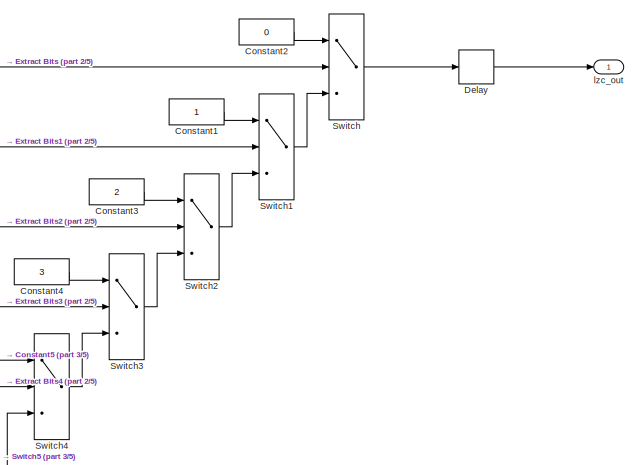
[diagram: recalculate/Nchan_FbankAGC_AID/Compression_1/Compression_Gain_Calc/LogAddressing/LZC32 - part 1/5, top right region]
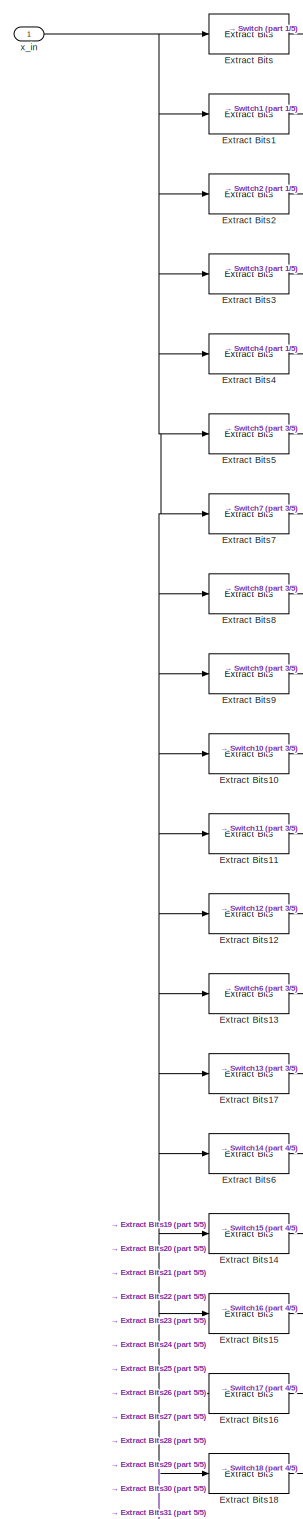
[diagram: recalculate/Nchan_FbankAGC_AID/Compression_1/Compression_Gain_Calc/LogAddressing/LZC32 - part 2/5, top left region]
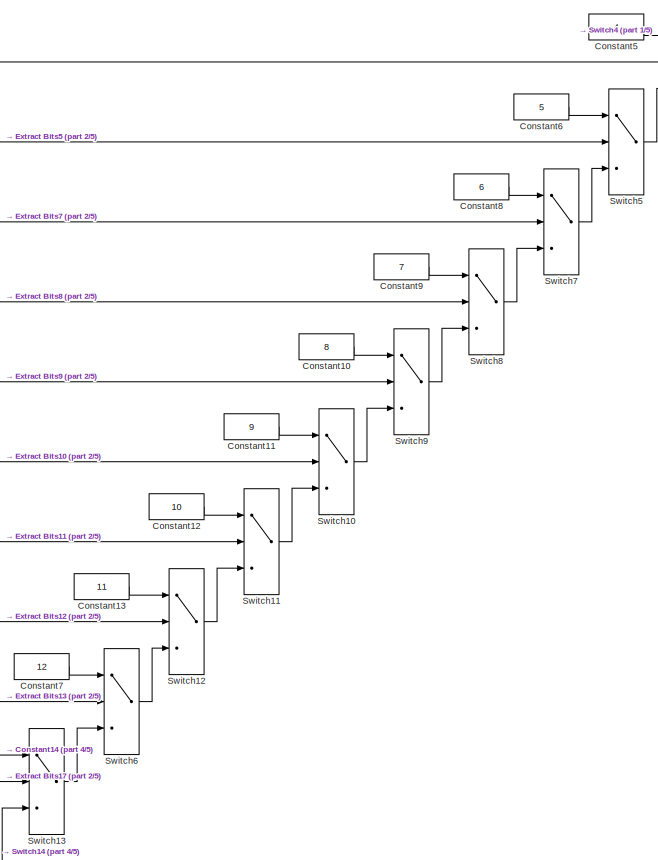
[diagram: recalculate/Nchan_FbankAGC_AID/Compression_1/Compression_Gain_Calc/LogAddressing/LZC32 - part 3/5, top right region]
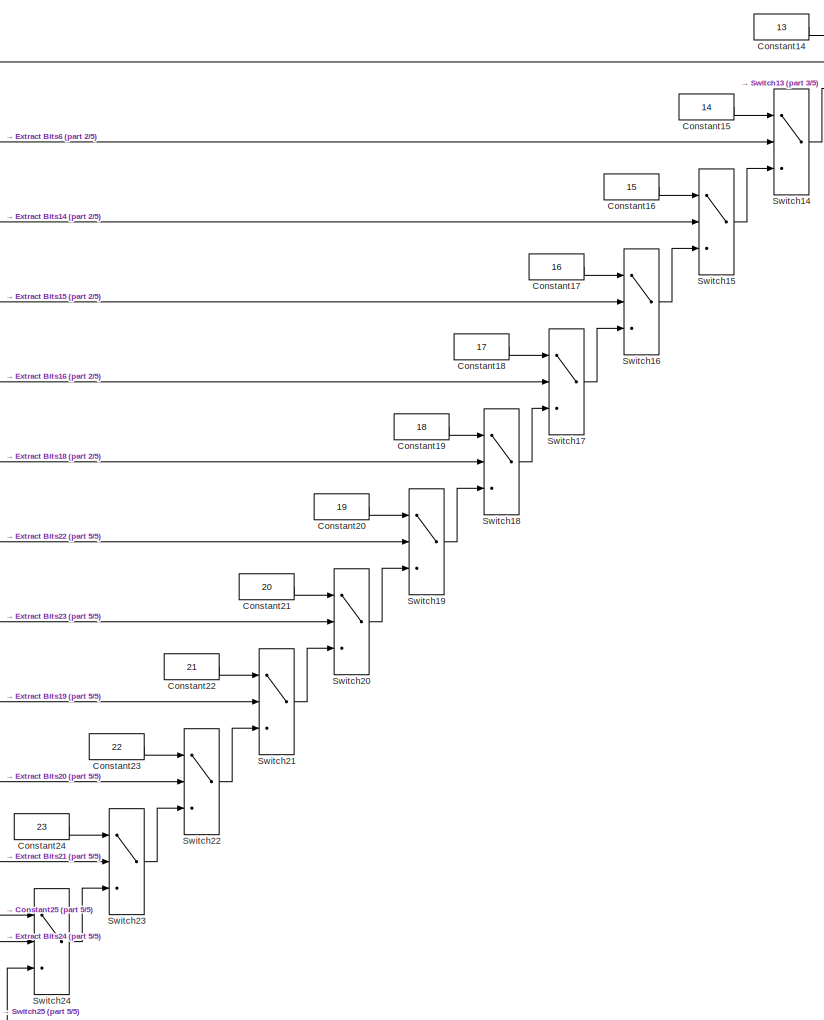
[diagram: recalculate/Nchan_FbankAGC_AID/Compression_1/Compression_Gain_Calc/LogAddressing/LZC32 - part 4/5, central region]
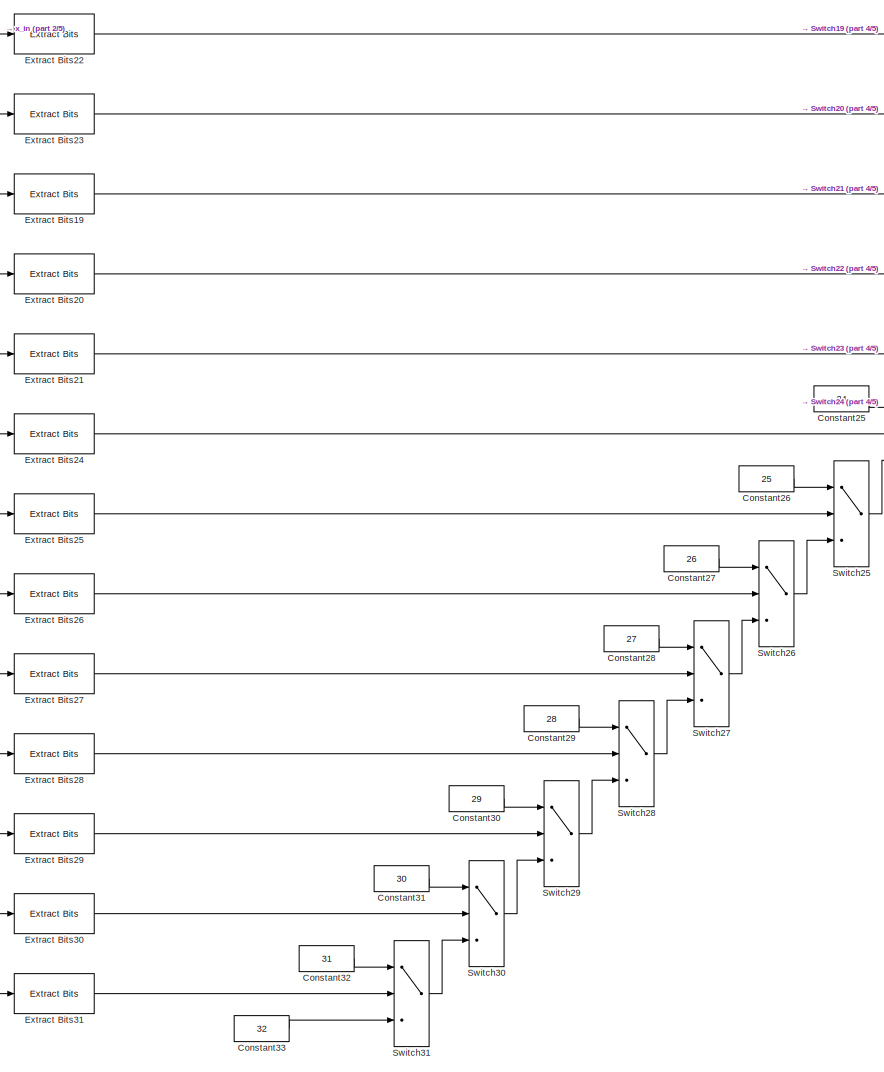
[diagram: recalculate/Nchan_FbankAGC_AID/Compression_1/Compression_Gain_Calc/LogAddressing/LZC32 - part 5/5, bottom left region]
BLOCK [SubSystem] recalculate/Nchan_FbankAGC_AID/Compression_1/Compression_Gain_Calc/LogAddressing/LZC32
  Commented = on
  Ports = [1, 1]
  RequestExecContextInheritance = off
  TreatAsAtomicUnit = on
BLOCK [Constant] recalculate/Nchan_FbankAGC_AID/Compression_1/Compression_Gain_Calc/LogAddressing/LZC32/Constant1
  OutDataTypeStr = fixdt(0,6,0)
  SampleTime = Ts_system
BLOCK [Constant] recalculate/Nchan_FbankAGC_AID/Compression_1/Compression_Gain_Calc/LogAddressing/LZC32/Constant10
  OutDataTypeStr = fixdt(0,6,0)
  SampleTime = Ts_system
  Value = 8
BLOCK [Constant] recalculate/Nchan_FbankAGC_AID/Compression_1/Compression_Gain_Calc/LogAddressing/LZC32/Constant11
  OutDataTypeStr = fixdt(0,6,0)
  SampleTime = Ts_system
  Value = 9
BLOCK [Constant] recalculate/Nchan_FbankAGC_AID/Compression_1/Compression_Gain_Calc/LogAddressing/LZC32/Constant12
  OutDataTypeStr = fixdt(0,6,0)
  SampleTime = Ts_system
  Value = 10
BLOCK [Constant] recalculate/Nchan_FbankAGC_AID/Compression_1/Compression_Gain_Calc/LogAddressing/LZC32/Constant13
  OutDataTypeStr = fixdt(0,6,0)
  SampleTime = Ts_system
  Value = 11
BLOCK [Constant] recalculate/Nchan_FbankAGC_AID/Compression_1/Compression_Gain_Calc/LogAddressing/LZC32/Constant14
  OutDataTypeStr = fixdt(0,6,0)
  SampleTime = Ts_system
  Value = 13
BLOCK [Constant] recalculate/Nchan_FbankAGC_AID/Compression_1/Compression_Gain_Calc/LogAddressing/LZC32/Constant15
  OutDataTypeStr = fixdt(0,6,0)
  SampleTime = Ts_system
  Value = 14
BLOCK [Constant] recalculate/Nchan_FbankAGC_AID/Compression_1/Compression_Gain_Calc/LogAddressing/LZC32/Constant16
  OutDataTypeStr = fixdt(0,6,0)
  SampleTime = Ts_system
  Value = 15
BLOCK [Constant] recalculate/Nchan_FbankAGC_AID/Compression_1/Compression_Gain_Calc/LogAddressing/LZC32/Constant17
  OutDataTypeStr = fixdt(0,6,0)
  SampleTime = Ts_system
  Value = 16
BLOCK [Constant] recalculate/Nchan_FbankAGC_AID/Compression_1/Compression_Gain_Calc/LogAddressing/LZC32/Constant18
  OutDataTypeStr = fixdt(0,6,0)
  SampleTime = Ts_system
  Value = 17
BLOCK [Constant] recalculate/Nchan_FbankAGC_AID/Compression_1/Compression_Gain_Calc/LogAddressing/LZC32/Constant19
  OutDataTypeStr = fixdt(0,6,0)
  SampleTime = Ts_system
  Value = 18
BLOCK [Constant] recalculate/Nchan_FbankAGC_AID/Compression_1/Compression_Gain_Calc/LogAddressing/LZC32/Constant2
  OutDataTypeStr = fixdt(0,6,0)
  SampleTime = Ts_system
  Value = 0
BLOCK [Constant] recalculate/Nchan_FbankAGC_AID/Compression_1/Compression_Gain_Calc/LogAddressing/LZC32/Constant20
  OutDataTypeStr = fixdt(0,6,0)
  SampleTime = Ts_system
  Value = 19
BLOCK [Constant] recalculate/Nchan_FbankAGC_AID/Compression_1/Compression_Gain_Calc/LogAddressing/LZC32/Constant21
  OutDataTypeStr = fixdt(0,6,0)
  SampleTime = Ts_system
  Value = 20
BLOCK [Constant] recalculate/Nchan_FbankAGC_AID/Compression_1/Compression_Gain_Calc/LogAddressing/LZC32/Constant22
  OutDataTypeStr = fixdt(0,6,0)
  SampleTime = Ts_system
  Value = 21
BLOCK [Constant] recalculate/Nchan_FbankAGC_AID/Compression_1/Compression_Gain_Calc/LogAddressing/LZC32/Constant23
  OutDataTypeStr = fixdt(0,6,0)
  SampleTime = Ts_system
  Value = 22
BLOCK [Constant] recalculate/Nchan_FbankAGC_AID/Compression_1/Compression_Gain_Calc/LogAddressing/LZC32/Constant24
  OutDataTypeStr = fixdt(0,6,0)
  SampleTime = Ts_system
  Value = 23
BLOCK [Constant] recalculate/Nchan_FbankAGC_AID/Compression_1/Compression_Gain_Calc/LogAddressing/LZC32/Constant25
  OutDataTypeStr = fixdt(0,6,0)
  SampleTime = Ts_system
  Value = 24
BLOCK [Constant] recalculate/Nchan_FbankAGC_AID/Compression_1/Compression_Gain_Calc/LogAddressing/LZC32/Constant26
  OutDataTypeStr = fixdt(0,6,0)
  SampleTime = Ts_system
  Value = 25
BLOCK [Constant] recalculate/Nchan_FbankAGC_AID/Compression_1/Compression_Gain_Calc/LogAddressing/LZC32/Constant27
  OutDataTypeStr = fixdt(0,6,0)
  SampleTime = Ts_system
  Value = 26
BLOCK [Constant] recalculate/Nchan_FbankAGC_AID/Compression_1/Compression_Gain_Calc/LogAddressing/LZC32/Constant28
  OutDataTypeStr = fixdt(0,6,0)
  SampleTime = Ts_system
  Value = 27
BLOCK [Constant] recalculate/Nchan_FbankAGC_AID/Compression_1/Compression_Gain_Calc/LogAddressing/LZC32/Constant29
  OutDataTypeStr = fixdt(0,6,0)
  SampleTime = Ts_system
  Value = 28
BLOCK [Constant] recalculate/Nchan_FbankAGC_AID/Compression_1/Compression_Gain_Calc/LogAddressing/LZC32/Constant3
  OutDataTypeStr = fixdt(0,6,0)
  SampleTime = Ts_system
  Value = 2
BLOCK [Constant] recalculate/Nchan_FbankAGC_AID/Compression_1/Compression_Gain_Calc/LogAddressing/LZC32/Constant30
  OutDataTypeStr = fixdt(0,6,0)
  SampleTime = Ts_system
  Value = 29
BLOCK [Constant] recalculate/Nchan_FbankAGC_AID/Compression_1/Compression_Gain_Calc/LogAddressing/LZC32/Constant31
  OutDataTypeStr = fixdt(0,6,0)
  SampleTime = Ts_system
  Value = 30
BLOCK [Constant] recalculate/Nchan_FbankAGC_AID/Compression_1/Compression_Gain_Calc/LogAddressing/LZC32/Constant32
  OutDataTypeStr = fixdt(0,6,0)
  SampleTime = Ts_system
  Value = 31
BLOCK [Constant] recalculate/Nchan_FbankAGC_AID/Compression_1/Compression_Gain_Calc/LogAddressing/LZC32/Constant33
  OutDataTypeStr = fixdt(0,6,0)
  SampleTime = Ts_system
  Value = 32
BLOCK [Constant] recalculate/Nchan_FbankAGC_AID/Compression_1/Compression_Gain_Calc/LogAddressing/LZC32/Constant4
  OutDataTypeStr = fixdt(0,6,0)
  SampleTime = Ts_system
  Value = 3
BLOCK [Constant] recalculate/Nchan_FbankAGC_AID/Compression_1/Compression_Gain_Calc/LogAddressing/LZC32/Constant5
  OutDataTypeStr = fixdt(0,6,0)
  SampleTime = Ts_system
  Value = 4
BLOCK [Constant] recalculate/Nchan_FbankAGC_AID/Compression_1/Compression_Gain_Calc/LogAddressing/LZC32/Constant6
  OutDataTypeStr = fixdt(0,6,0)
  SampleTime = Ts_system
  Value = 5
BLOCK [Constant] recalculate/Nchan_FbankAGC_AID/Compression_1/Compression_Gain_Calc/LogAddressing/LZC32/Constant7
  OutDataTypeStr = fixdt(0,6,0)
  SampleTime = Ts_system
  Value = 12
BLOCK [Constant] recalculate/Nchan_FbankAGC_AID/Compression_1/Compression_Gain_Calc/LogAddressing/LZC32/Constant8
  OutDataTypeStr = fixdt(0,6,0)
  SampleTime = Ts_system
  Value = 6
BLOCK [Constant] recalculate/Nchan_FbankAGC_AID/Compression_1/Compression_Gain_Calc/LogAddressing/LZC32/Constant9
  OutDataTypeStr = fixdt(0,6,0)
  SampleTime = Ts_system
  Value = 7
BLOCK [Delay] recalculate/Nchan_FbankAGC_AID/Compression_1/Compression_Gain_Calc/LogAddressing/LZC32/Delay
  DelayLength = 1
  InitialCondition = 3
  InputPortMap = u0
  Ports = [1, 1]
  SampleTime = Ts_system
BLOCK [Reference] recalculate/Nchan_FbankAGC_AID/Compression_1/Compression_Gain_Calc/LogAddressing/LZC32/Extract Bits  REF=simulink/Logic and Bit
Operations/Extract Bits
  Ports = [1, 1]
  SourceBlock = simulink/Logic and Bit\nOperations/Extract Bits
  SourceProductBaseCode = SL
  SourceProductName = Simulink
  SourceType = Extract Bits
BLOCK [Reference] recalculate/Nchan_FbankAGC_AID/Compression_1/Compression_Gain_Calc/LogAddressing/LZC32/Extract Bits1  REF=simulink/Logic and Bit
Operations/Extract Bits
  Ports = [1, 1]
  SourceBlock = simulink/Logic and Bit\nOperations/Extract Bits
  SourceProductBaseCode = SL
  SourceProductName = Simulink
  SourceType = Extract Bits
BLOCK [Reference] recalculate/Nchan_FbankAGC_AID/Compression_1/Compression_Gain_Calc/LogAddressing/LZC32/Extract Bits10  REF=simulink/Logic and Bit
Operations/Extract Bits
  Ports = [1, 1]
  SourceBlock = simulink/Logic and Bit\nOperations/Extract Bits
  SourceProductBaseCode = SL
  SourceProductName = Simulink
  SourceType = Extract Bits
BLOCK [Reference] recalculate/Nchan_FbankAGC_AID/Compression_1/Compression_Gain_Calc/LogAddressing/LZC32/Extract Bits11  REF=simulink/Logic and Bit
Operations/Extract Bits
  Ports = [1, 1]
  SourceBlock = simulink/Logic and Bit\nOperations/Extract Bits
  SourceProductBaseCode = SL
  SourceProductName = Simulink
  SourceType = Extract Bits
BLOCK [Reference] recalculate/Nchan_FbankAGC_AID/Compression_1/Compression_Gain_Calc/LogAddressing/LZC32/Extract Bits12  REF=simulink/Logic and Bit
Operations/Extract Bits
  Ports = [1, 1]
  SourceBlock = simulink/Logic and Bit\nOperations/Extract Bits
  SourceProductBaseCode = SL
  SourceProductName = Simulink
  SourceType = Extract Bits
BLOCK [Reference] recalculate/Nchan_FbankAGC_AID/Compression_1/Compression_Gain_Calc/LogAddressing/LZC32/Extract Bits13  REF=simulink/Logic and Bit
Operations/Extract Bits
  Ports = [1, 1]
  SourceBlock = simulink/Logic and Bit\nOperations/Extract Bits
  SourceProductBaseCode = SL
  SourceProductName = Simulink
  SourceType = Extract Bits
BLOCK [Reference] recalculate/Nchan_FbankAGC_AID/Compression_1/Compression_Gain_Calc/LogAddressing/LZC32/Extract Bits14  REF=simulink/Logic and Bit
Operations/Extract Bits
  Ports = [1, 1]
  SourceBlock = simulink/Logic and Bit\nOperations/Extract Bits
  SourceProductBaseCode = SL
  SourceProductName = Simulink
  SourceType = Extract Bits
BLOCK [Reference] recalculate/Nchan_FbankAGC_AID/Compression_1/Compression_Gain_Calc/LogAddressing/LZC32/Extract Bits15  REF=simulink/Logic and Bit
Operations/Extract Bits
  Ports = [1, 1]
  SourceBlock = simulink/Logic and Bit\nOperations/Extract Bits
  SourceProductBaseCode = SL
  SourceProductName = Simulink
  SourceType = Extract Bits
BLOCK [Reference] recalculate/Nchan_FbankAGC_AID/Compression_1/Compression_Gain_Calc/LogAddressing/LZC32/Extract Bits16  REF=simulink/Logic and Bit
Operations/Extract Bits
  Ports = [1, 1]
  SourceBlock = simulink/Logic and Bit\nOperations/Extract Bits
  SourceProductBaseCode = SL
  SourceProductName = Simulink
  SourceType = Extract Bits
BLOCK [Reference] recalculate/Nchan_FbankAGC_AID/Compression_1/Compression_Gain_Calc/LogAddressing/LZC32/Extract Bits17  REF=simulink/Logic and Bit
Operations/Extract Bits
  Ports = [1, 1]
  SourceBlock = simulink/Logic and Bit\nOperations/Extract Bits
  SourceProductBaseCode = SL
  SourceProductName = Simulink
  SourceType = Extract Bits
BLOCK [Reference] recalculate/Nchan_FbankAGC_AID/Compression_1/Compression_Gain_Calc/LogAddressing/LZC32/Extract Bits18  REF=simulink/Logic and Bit
Operations/Extract Bits
  Ports = [1, 1]
  SourceBlock = simulink/Logic and Bit\nOperations/Extract Bits
  SourceProductBaseCode = SL
  SourceProductName = Simulink
  SourceType = Extract Bits
BLOCK [Reference] recalculate/Nchan_FbankAGC_AID/Compression_1/Compression_Gain_Calc/LogAddressing/LZC32/Extract Bits19  REF=simulink/Logic and Bit
Operations/Extract Bits
  Ports = [1, 1]
  SourceBlock = simulink/Logic and Bit\nOperations/Extract Bits
  SourceProductBaseCode = SL
  SourceProductName = Simulink
  SourceType = Extract Bits
BLOCK [Reference] recalculate/Nchan_FbankAGC_AID/Compression_1/Compression_Gain_Calc/LogAddressing/LZC32/Extract Bits2  REF=simulink/Logic and Bit
Operations/Extract Bits
  Ports = [1, 1]
  SourceBlock = simulink/Logic and Bit\nOperations/Extract Bits
  SourceProductBaseCode = SL
  SourceProductName = Simulink
  SourceType = Extract Bits
BLOCK [Reference] recalculate/Nchan_FbankAGC_AID/Compression_1/Compression_Gain_Calc/LogAddressing/LZC32/Extract Bits20  REF=simulink/Logic and Bit
Operations/Extract Bits
  Ports = [1, 1]
  SourceBlock = simulink/Logic and Bit\nOperations/Extract Bits
  SourceProductBaseCode = SL
  SourceProductName = Simulink
  SourceType = Extract Bits
BLOCK [Reference] recalculate/Nchan_FbankAGC_AID/Compression_1/Compression_Gain_Calc/LogAddressing/LZC32/Extract Bits21  REF=simulink/Logic and Bit
Operations/Extract Bits
  Ports = [1, 1]
  SourceBlock = simulink/Logic and Bit\nOperations/Extract Bits
  SourceProductBaseCode = SL
  SourceProductName = Simulink
  SourceType = Extract Bits
BLOCK [Reference] recalculate/Nchan_FbankAGC_AID/Compression_1/Compression_Gain_Calc/LogAddressing/LZC32/Extract Bits22  REF=simulink/Logic and Bit
Operations/Extract Bits
  Ports = [1, 1]
  SourceBlock = simulink/Logic and Bit\nOperations/Extract Bits
  SourceProductBaseCode = SL
  SourceProductName = Simulink
  SourceType = Extract Bits
BLOCK [Reference] recalculate/Nchan_FbankAGC_AID/Compression_1/Compression_Gain_Calc/LogAddressing/LZC32/Extract Bits23  REF=simulink/Logic and Bit
Operations/Extract Bits
  Ports = [1, 1]
  SourceBlock = simulink/Logic and Bit\nOperations/Extract Bits
  SourceProductBaseCode = SL
  SourceProductName = Simulink
  SourceType = Extract Bits
BLOCK [Reference] recalculate/Nchan_FbankAGC_AID/Compression_1/Compression_Gain_Calc/LogAddressing/LZC32/Extract Bits24  REF=simulink/Logic and Bit
Operations/Extract Bits
  Ports = [1, 1]
  SourceBlock = simulink/Logic and Bit\nOperations/Extract Bits
  SourceProductBaseCode = SL
  SourceProductName = Simulink
  SourceType = Extract Bits
BLOCK [Reference] recalculate/Nchan_FbankAGC_AID/Compression_1/Compression_Gain_Calc/LogAddressing/LZC32/Extract Bits25  REF=simulink/Logic and Bit
Operations/Extract Bits
  Ports = [1, 1]
  SourceBlock = simulink/Logic and Bit\nOperations/Extract Bits
  SourceProductBaseCode = SL
  SourceProductName = Simulink
  SourceType = Extract Bits
BLOCK [Reference] recalculate/Nchan_FbankAGC_AID/Compression_1/Compression_Gain_Calc/LogAddressing/LZC32/Extract Bits26  REF=simulink/Logic and Bit
Operations/Extract Bits
  Ports = [1, 1]
  SourceBlock = simulink/Logic and Bit\nOperations/Extract Bits
  SourceProductBaseCode = SL
  SourceProductName = Simulink
  SourceType = Extract Bits
BLOCK [Reference] recalculate/Nchan_FbankAGC_AID/Compression_1/Compression_Gain_Calc/LogAddressing/LZC32/Extract Bits27  REF=simulink/Logic and Bit
Operations/Extract Bits
  Ports = [1, 1]
  SourceBlock = simulink/Logic and Bit\nOperations/Extract Bits
  SourceProductBaseCode = SL
  SourceProductName = Simulink
  SourceType = Extract Bits
BLOCK [Reference] recalculate/Nchan_FbankAGC_AID/Compression_1/Compression_Gain_Calc/LogAddressing/LZC32/Extract Bits28  REF=simulink/Logic and Bit
Operations/Extract Bits
  Ports = [1, 1]
  SourceBlock = simulink/Logic and Bit\nOperations/Extract Bits
  SourceProductBaseCode = SL
  SourceProductName = Simulink
  SourceType = Extract Bits
BLOCK [Reference] recalculate/Nchan_FbankAGC_AID/Compression_1/Compression_Gain_Calc/LogAddressing/LZC32/Extract Bits29  REF=simulink/Logic and Bit
Operations/Extract Bits
  Ports = [1, 1]
  SourceBlock = simulink/Logic and Bit\nOperations/Extract Bits
  SourceProductBaseCode = SL
  SourceProductName = Simulink
  SourceType = Extract Bits
BLOCK [Reference] recalculate/Nchan_FbankAGC_AID/Compression_1/Compression_Gain_Calc/LogAddressing/LZC32/Extract Bits3  REF=simulink/Logic and Bit
Operations/Extract Bits
  Ports = [1, 1]
  SourceBlock = simulink/Logic and Bit\nOperations/Extract Bits
  SourceProductBaseCode = SL
  SourceProductName = Simulink
  SourceType = Extract Bits
BLOCK [Reference] recalculate/Nchan_FbankAGC_AID/Compression_1/Compression_Gain_Calc/LogAddressing/LZC32/Extract Bits30  REF=simulink/Logic and Bit
Operations/Extract Bits
  Ports = [1, 1]
  SourceBlock = simulink/Logic and Bit\nOperations/Extract Bits
  SourceProductBaseCode = SL
  SourceProductName = Simulink
  SourceType = Extract Bits
BLOCK [Reference] recalculate/Nchan_FbankAGC_AID/Compression_1/Compression_Gain_Calc/LogAddressing/LZC32/Extract Bits31  REF=simulink/Logic and Bit
Operations/Extract Bits
  Ports = [1, 1]
  SourceBlock = simulink/Logic and Bit\nOperations/Extract Bits
  SourceProductBaseCode = SL
  SourceProductName = Simulink
  SourceType = Extract Bits
BLOCK [Reference] recalculate/Nchan_FbankAGC_AID/Compression_1/Compression_Gain_Calc/LogAddressing/LZC32/Extract Bits4  REF=simulink/Logic and Bit
Operations/Extract Bits
  Ports = [1, 1]
  SourceBlock = simulink/Logic and Bit\nOperations/Extract Bits
  SourceProductBaseCode = SL
  SourceProductName = Simulink
  SourceType = Extract Bits
BLOCK [Reference] recalculate/Nchan_FbankAGC_AID/Compression_1/Compression_Gain_Calc/LogAddressing/LZC32/Extract Bits5  REF=simulink/Logic and Bit
Operations/Extract Bits
  Ports = [1, 1]
  SourceBlock = simulink/Logic and Bit\nOperations/Extract Bits
  SourceProductBaseCode = SL
  SourceProductName = Simulink
  SourceType = Extract Bits
BLOCK [Reference] recalculate/Nchan_FbankAGC_AID/Compression_1/Compression_Gain_Calc/LogAddressing/LZC32/Extract Bits6  REF=simulink/Logic and Bit
Operations/Extract Bits
  Ports = [1, 1]
  SourceBlock = simulink/Logic and Bit\nOperations/Extract Bits
  SourceProductBaseCode = SL
  SourceProductName = Simulink
  SourceType = Extract Bits
BLOCK [Reference] recalculate/Nchan_FbankAGC_AID/Compression_1/Compression_Gain_Calc/LogAddressing/LZC32/Extract Bits7  REF=simulink/Logic and Bit
Operations/Extract Bits
  Ports = [1, 1]
  SourceBlock = simulink/Logic and Bit\nOperations/Extract Bits
  SourceProductBaseCode = SL
  SourceProductName = Simulink
  SourceType = Extract Bits
BLOCK [Reference] recalculate/Nchan_FbankAGC_AID/Compression_1/Compression_Gain_Calc/LogAddressing/LZC32/Extract Bits8  REF=simulink/Logic and Bit
Operations/Extract Bits
  Ports = [1, 1]
  SourceBlock = simulink/Logic and Bit\nOperations/Extract Bits
  SourceProductBaseCode = SL
  SourceProductName = Simulink
  SourceType = Extract Bits
BLOCK [Reference] recalculate/Nchan_FbankAGC_AID/Compression_1/Compression_Gain_Calc/LogAddressing/LZC32/Extract Bits9  REF=simulink/Logic and Bit
Operations/Extract Bits
  Ports = [1, 1]
  SourceBlock = simulink/Logic and Bit\nOperations/Extract Bits
  SourceProductBaseCode = SL
  SourceProductName = Simulink
  SourceType = Extract Bits
BLOCK [Switch] recalculate/Nchan_FbankAGC_AID/Compression_1/Compression_Gain_Calc/LogAddressing/LZC32/Switch
  Criteria = u2 ~= 0
  InputSameDT = off
  SaturateOnIntegerOverflow = off
BLOCK [Switch] recalculate/Nchan_FbankAGC_AID/Compression_1/Compression_Gain_Calc/LogAddressing/LZC32/Switch1
  Criteria = u2 ~= 0
  InputSameDT = off
  SaturateOnIntegerOverflow = off
BLOCK [Switch] recalculate/Nchan_FbankAGC_AID/Compression_1/Compression_Gain_Calc/LogAddressing/LZC32/Switch10
  Criteria = u2 ~= 0
  InputSameDT = off
  SaturateOnIntegerOverflow = off
BLOCK [Switch] recalculate/Nchan_FbankAGC_AID/Compression_1/Compression_Gain_Calc/LogAddressing/LZC32/Switch11
  Criteria = u2 ~= 0
  InputSameDT = off
  SaturateOnIntegerOverflow = off
BLOCK [Switch] recalculate/Nchan_FbankAGC_AID/Compression_1/Compression_Gain_Calc/LogAddressing/LZC32/Switch12
  Criteria = u2 ~= 0
  InputSameDT = off
  SaturateOnIntegerOverflow = off
BLOCK [Switch] recalculate/Nchan_FbankAGC_AID/Compression_1/Compression_Gain_Calc/LogAddressing/LZC32/Switch13
  Criteria = u2 ~= 0
  InputSameDT = off
  SaturateOnIntegerOverflow = off
BLOCK [Switch] recalculate/Nchan_FbankAGC_AID/Compression_1/Compression_Gain_Calc/LogAddressing/LZC32/Switch14
  Criteria = u2 ~= 0
  InputSameDT = off
  SaturateOnIntegerOverflow = off
BLOCK [Switch] recalculate/Nchan_FbankAGC_AID/Compression_1/Compression_Gain_Calc/LogAddressing/LZC32/Switch15
  Criteria = u2 ~= 0
  InputSameDT = off
  SaturateOnIntegerOverflow = off
BLOCK [Switch] recalculate/Nchan_FbankAGC_AID/Compression_1/Compression_Gain_Calc/LogAddressing/LZC32/Switch16
  Criteria = u2 ~= 0
  InputSameDT = off
  SaturateOnIntegerOverflow = off
BLOCK [Switch] recalculate/Nchan_FbankAGC_AID/Compression_1/Compression_Gain_Calc/LogAddressing/LZC32/Switch17
  Criteria = u2 ~= 0
  InputSameDT = off
  SaturateOnIntegerOverflow = off
BLOCK [Switch] recalculate/Nchan_FbankAGC_AID/Compression_1/Compression_Gain_Calc/LogAddressing/LZC32/Switch18
  Criteria = u2 ~= 0
  InputSameDT = off
  SaturateOnIntegerOverflow = off
BLOCK [Switch] recalculate/Nchan_FbankAGC_AID/Compression_1/Compression_Gain_Calc/LogAddressing/LZC32/Switch19
  Criteria = u2 ~= 0
  InputSameDT = off
  SaturateOnIntegerOverflow = off
BLOCK [Switch] recalculate/Nchan_FbankAGC_AID/Compression_1/Compression_Gain_Calc/LogAddressing/LZC32/Switch2
  Criteria = u2 ~= 0
  InputSameDT = off
  SaturateOnIntegerOverflow = off
BLOCK [Switch] recalculate/Nchan_FbankAGC_AID/Compression_1/Compression_Gain_Calc/LogAddressing/LZC32/Switch20
  Criteria = u2 ~= 0
  InputSameDT = off
  SaturateOnIntegerOverflow = off
BLOCK [Switch] recalculate/Nchan_FbankAGC_AID/Compression_1/Compression_Gain_Calc/LogAddressing/LZC32/Switch21
  Criteria = u2 ~= 0
  InputSameDT = off
  SaturateOnIntegerOverflow = off
BLOCK [Switch] recalculate/Nchan_FbankAGC_AID/Compression_1/Compression_Gain_Calc/LogAddressing/LZC32/Switch22
  Criteria = u2 ~= 0
  InputSameDT = off
  SaturateOnIntegerOverflow = off
BLOCK [Switch] recalculate/Nchan_FbankAGC_AID/Compression_1/Compression_Gain_Calc/LogAddressing/LZC32/Switch23
  Criteria = u2 ~= 0
  InputSameDT = off
  SaturateOnIntegerOverflow = off
BLOCK [Switch] recalculate/Nchan_FbankAGC_AID/Compression_1/Compression_Gain_Calc/LogAddressing/LZC32/Switch24
  Criteria = u2 ~= 0
  InputSameDT = off
  SaturateOnIntegerOverflow = off
BLOCK [Switch] recalculate/Nchan_FbankAGC_AID/Compression_1/Compression_Gain_Calc/LogAddressing/LZC32/Switch25
  Criteria = u2 ~= 0
  InputSameDT = off
  SaturateOnIntegerOverflow = off
BLOCK [Switch] recalculate/Nchan_FbankAGC_AID/Compression_1/Compression_Gain_Calc/LogAddressing/LZC32/Switch26
  Criteria = u2 ~= 0
  InputSameDT = off
  SaturateOnIntegerOverflow = off
BLOCK [Switch] recalculate/Nchan_FbankAGC_AID/Compression_1/Compression_Gain_Calc/LogAddressing/LZC32/Switch27
  Criteria = u2 ~= 0
  InputSameDT = off
  SaturateOnIntegerOverflow = off
BLOCK [Switch] recalculate/Nchan_FbankAGC_AID/Compression_1/Compression_Gain_Calc/LogAddressing/LZC32/Switch28
  Criteria = u2 ~= 0
  InputSameDT = off
  SaturateOnIntegerOverflow = off
BLOCK [Switch] recalculate/Nchan_FbankAGC_AID/Compression_1/Compression_Gain_Calc/LogAddressing/LZC32/Switch29
  Criteria = u2 ~= 0
  InputSameDT = off
  SaturateOnIntegerOverflow = off
BLOCK [Switch] recalculate/Nchan_FbankAGC_AID/Compression_1/Compression_Gain_Calc/LogAddressing/LZC32/Switch3
  Criteria = u2 ~= 0
  InputSameDT = off
  SaturateOnIntegerOverflow = off
BLOCK [Switch] recalculate/Nchan_FbankAGC_AID/Compression_1/Compression_Gain_Calc/LogAddressing/LZC32/Switch30
  Criteria = u2 ~= 0
  InputSameDT = off
  SaturateOnIntegerOverflow = off
BLOCK [Switch] recalculate/Nchan_FbankAGC_AID/Compression_1/Compression_Gain_Calc/LogAddressing/LZC32/Switch31
  Criteria = u2 ~= 0
  InputSameDT = off
  SaturateOnIntegerOverflow = off
BLOCK [Switch] recalculate/Nchan_FbankAGC_AID/Compression_1/Compression_Gain_Calc/LogAddressing/LZC32/Switch4
  Criteria = u2 ~= 0
  InputSameDT = off
  SaturateOnIntegerOverflow = off
BLOCK [Switch] recalculate/Nchan_FbankAGC_AID/Compression_1/Compression_Gain_Calc/LogAddressing/LZC32/Switch5
  Criteria = u2 ~= 0
  InputSameDT = off
  SaturateOnIntegerOverflow = off
BLOCK [Switch] recalculate/Nchan_FbankAGC_AID/Compression_1/Compression_Gain_Calc/LogAddressing/LZC32/Switch6
  Criteria = u2 ~= 0
  InputSameDT = off
  SaturateOnIntegerOverflow = off
BLOCK [Switch] recalculate/Nchan_FbankAGC_AID/Compression_1/Compression_Gain_Calc/LogAddressing/LZC32/Switch7
  Criteria = u2 ~= 0
  InputSameDT = off
  SaturateOnIntegerOverflow = off
BLOCK [Switch] recalculate/Nchan_FbankAGC_AID/Compression_1/Compression_Gain_Calc/LogAddressing/LZC32/Switch8
  Criteria = u2 ~= 0
  InputSameDT = off
  SaturateOnIntegerOverflow = off
BLOCK [Switch] recalculate/Nchan_FbankAGC_AID/Compression_1/Compression_Gain_Calc/LogAddressing/LZC32/Switch9
  Criteria = u2 ~= 0
  InputSameDT = off
  SaturateOnIntegerOverflow = off
BLOCK [Outport] recalculate/Nchan_FbankAGC_AID/Compression_1/Compression_Gain_Calc/LogAddressing/LZC32/lzc_out
  IconDisplay = Port number
BLOCK [Inport] recalculate/Nchan_FbankAGC_AID/Compression_1/Compression_Gain_Calc/LogAddressing/LZC32/x_in
  IconDisplay = Port number
BLOCK [Sum] recalculate/Nchan_FbankAGC_AID/Compression_1/Compression_Gain_Calc/LogAddressing/Subtract
  AccumDataTypeStr = Inherit: Same as first input
  InputSameDT = off
  Inputs = +-
  Ports = [2, 1]
  SaturateOnIntegerOverflow = off
BLOCK [Switch] recalculate/Nchan_FbankAGC_AID/Compression_1/Compression_Gain_Calc/LogAddressing/Switch1
  Criteria = u2 ~= 0
  InputSameDT = off
  SaturateOnIntegerOverflow = off
BLOCK [Outport] recalculate/Nchan_FbankAGC_AID/Compression_1/Compression_Gain_Calc/LogAddressing/addr_r
  IconDisplay = Port number
BLOCK [SubSystem] recalculate/Nchan_FbankAGC_AID/Compression_1/Compression_Gain_Calc/LogAddressing/fxpt_lzc_W32
  Ports = [1, 1]
  RequestExecContextInheritance = off
  TreatAsAtomicUnit = on
BLOCK [DataTypeConversion] recalculate/Nchan_FbankAGC_AID/Compression_1/Compression_Gain_Calc/LogAddressing/fxpt_lzc_W32/Data Type Conversion
  OutDataTypeStr = fixdt(0,6,0)
  RndMeth = Floor
  SaturateOnIntegerOverflow = off
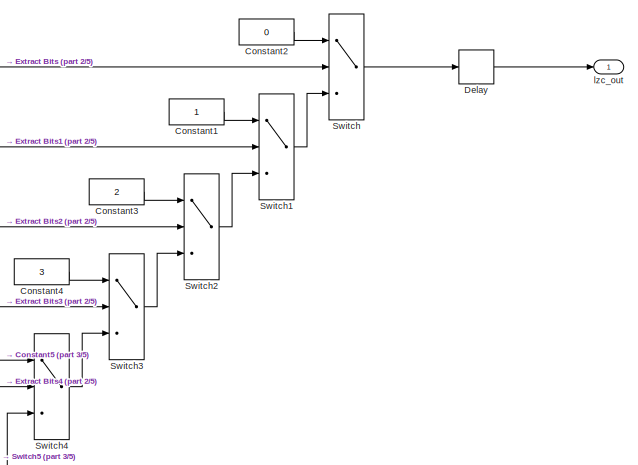
[diagram: recalculate/Nchan_FbankAGC_AID/Compression_1/Compression_Gain_Calc/LogAddressing/fxpt_lzc_W32/LZC32 - part 1/5, top right region]
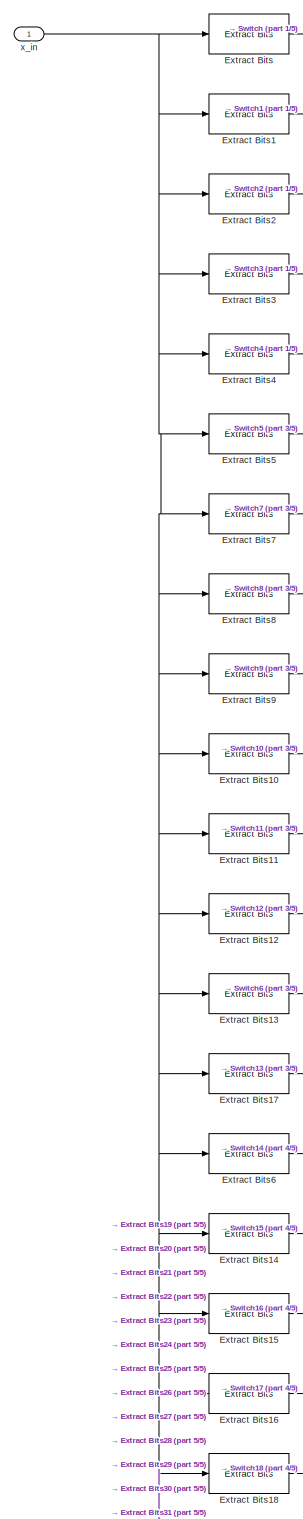
[diagram: recalculate/Nchan_FbankAGC_AID/Compression_1/Compression_Gain_Calc/LogAddressing/fxpt_lzc_W32/LZC32 - part 2/5, top left region]
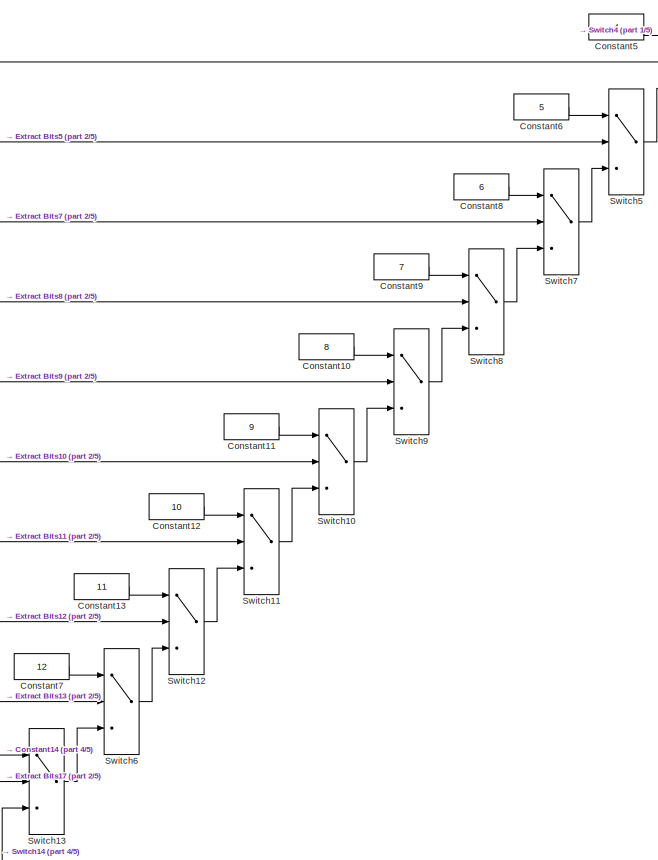
[diagram: recalculate/Nchan_FbankAGC_AID/Compression_1/Compression_Gain_Calc/LogAddressing/fxpt_lzc_W32/LZC32 - part 3/5, top right region]
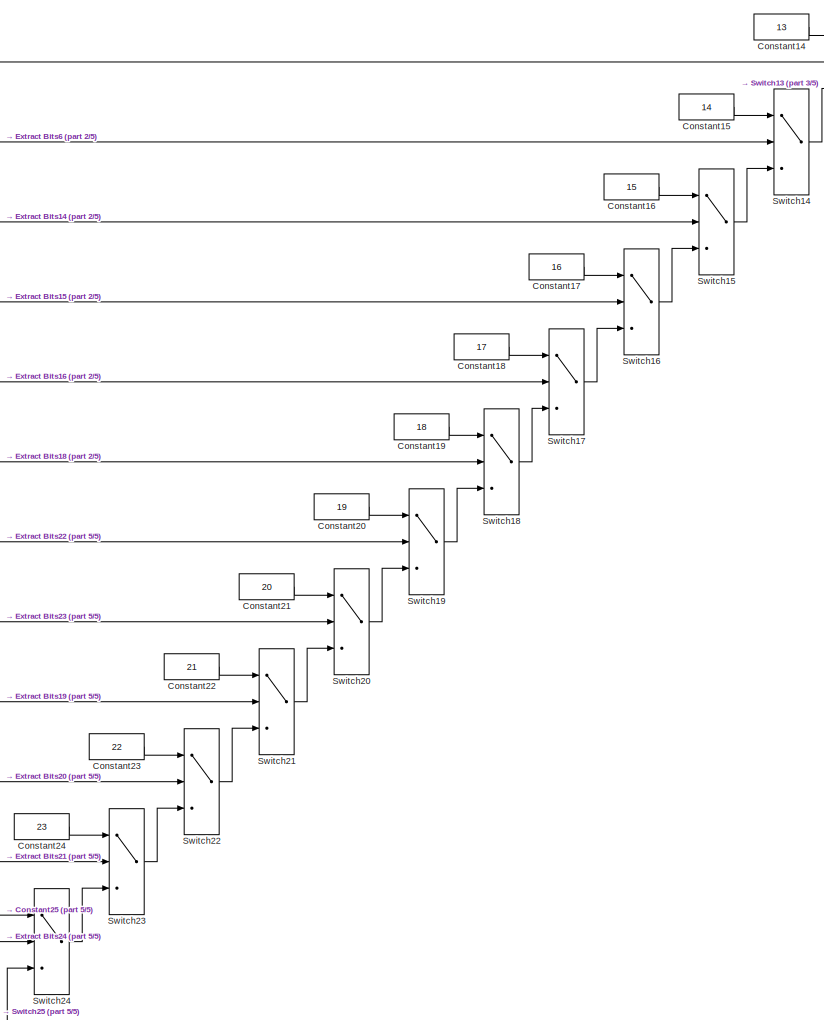
[diagram: recalculate/Nchan_FbankAGC_AID/Compression_1/Compression_Gain_Calc/LogAddressing/fxpt_lzc_W32/LZC32 - part 4/5, central region]
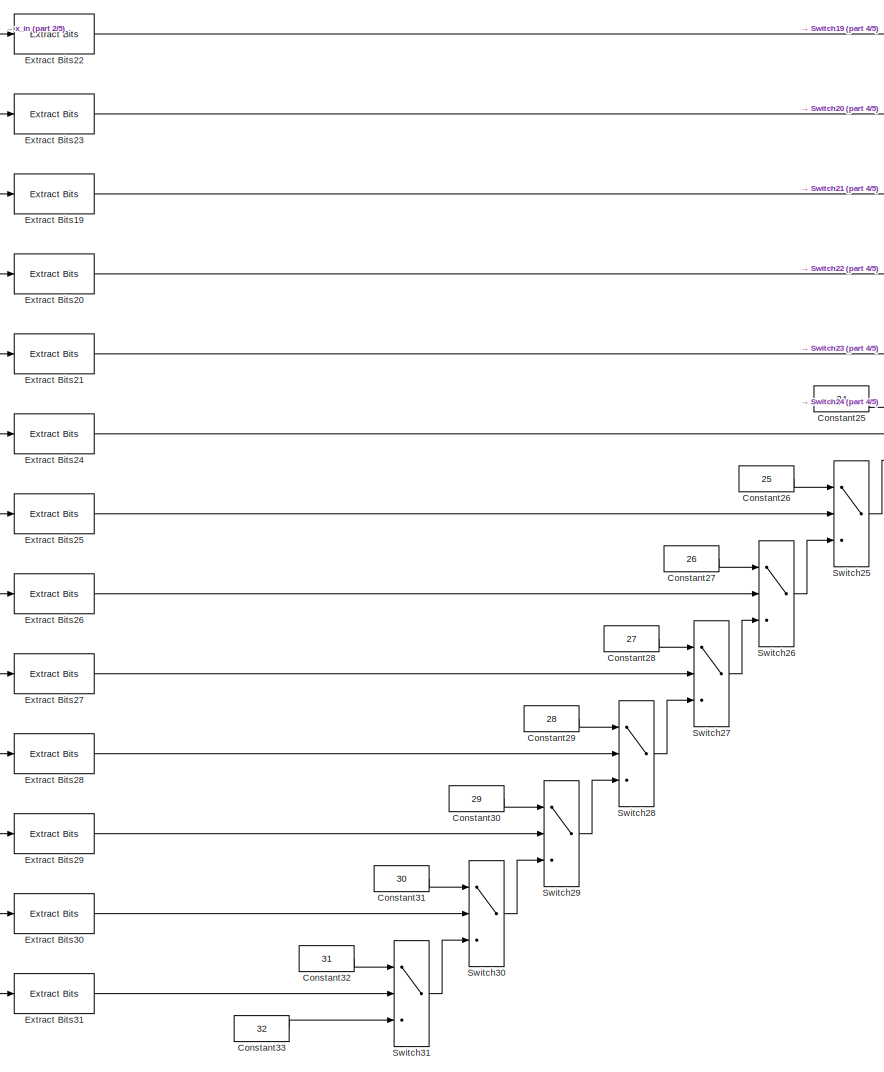
[diagram: recalculate/Nchan_FbankAGC_AID/Compression_1/Compression_Gain_Calc/LogAddressing/fxpt_lzc_W32/LZC32 - part 5/5, bottom left region]
BLOCK [SubSystem] recalculate/Nchan_FbankAGC_AID/Compression_1/Compression_Gain_Calc/LogAddressing/fxpt_lzc_W32/LZC32
  Ports = [1, 1]
  RequestExecContextInheritance = off
  TreatAsAtomicUnit = on
BLOCK [Constant] recalculate/Nchan_FbankAGC_AID/Compression_1/Compression_Gain_Calc/LogAddressing/fxpt_lzc_W32/LZC32/Constant1
  OutDataTypeStr = fixdt(0,6,0)
  SampleTime = Ts_system
BLOCK [Constant] recalculate/Nchan_FbankAGC_AID/Compression_1/Compression_Gain_Calc/LogAddressing/fxpt_lzc_W32/LZC32/Constant10
  OutDataTypeStr = fixdt(0,6,0)
  SampleTime = Ts_system
  Value = 8
BLOCK [Constant] recalculate/Nchan_FbankAGC_AID/Compression_1/Compression_Gain_Calc/LogAddressing/fxpt_lzc_W32/LZC32/Constant11
  OutDataTypeStr = fixdt(0,6,0)
  SampleTime = Ts_system
  Value = 9
BLOCK [Constant] recalculate/Nchan_FbankAGC_AID/Compression_1/Compression_Gain_Calc/LogAddressing/fxpt_lzc_W32/LZC32/Constant12
  OutDataTypeStr = fixdt(0,6,0)
  SampleTime = Ts_system
  Value = 10
BLOCK [Constant] recalculate/Nchan_FbankAGC_AID/Compression_1/Compression_Gain_Calc/LogAddressing/fxpt_lzc_W32/LZC32/Constant13
  OutDataTypeStr = fixdt(0,6,0)
  SampleTime = Ts_system
  Value = 11
BLOCK [Constant] recalculate/Nchan_FbankAGC_AID/Compression_1/Compression_Gain_Calc/LogAddressing/fxpt_lzc_W32/LZC32/Constant14
  OutDataTypeStr = fixdt(0,6,0)
  SampleTime = Ts_system
  Value = 13
BLOCK [Constant] recalculate/Nchan_FbankAGC_AID/Compression_1/Compression_Gain_Calc/LogAddressing/fxpt_lzc_W32/LZC32/Constant15
  OutDataTypeStr = fixdt(0,6,0)
  SampleTime = Ts_system
  Value = 14
BLOCK [Constant] recalculate/Nchan_FbankAGC_AID/Compression_1/Compression_Gain_Calc/LogAddressing/fxpt_lzc_W32/LZC32/Constant16
  OutDataTypeStr = fixdt(0,6,0)
  SampleTime = Ts_system
  Value = 15
BLOCK [Constant] recalculate/Nchan_FbankAGC_AID/Compression_1/Compression_Gain_Calc/LogAddressing/fxpt_lzc_W32/LZC32/Constant17
  OutDataTypeStr = fixdt(0,6,0)
  SampleTime = Ts_system
  Value = 16
BLOCK [Constant] recalculate/Nchan_FbankAGC_AID/Compression_1/Compression_Gain_Calc/LogAddressing/fxpt_lzc_W32/LZC32/Constant18
  OutDataTypeStr = fixdt(0,6,0)
  SampleTime = Ts_system
  Value = 17
BLOCK [Constant] recalculate/Nchan_FbankAGC_AID/Compression_1/Compression_Gain_Calc/LogAddressing/fxpt_lzc_W32/LZC32/Constant19
  OutDataTypeStr = fixdt(0,6,0)
  SampleTime = Ts_system
  Value = 18
BLOCK [Constant] recalculate/Nchan_FbankAGC_AID/Compression_1/Compression_Gain_Calc/LogAddressing/fxpt_lzc_W32/LZC32/Constant2
  OutDataTypeStr = fixdt(0,6,0)
  SampleTime = Ts_system
  Value = 0
BLOCK [Constant] recalculate/Nchan_FbankAGC_AID/Compression_1/Compression_Gain_Calc/LogAddressing/fxpt_lzc_W32/LZC32/Constant20
  OutDataTypeStr = fixdt(0,6,0)
  SampleTime = Ts_system
  Value = 19
BLOCK [Constant] recalculate/Nchan_FbankAGC_AID/Compression_1/Compression_Gain_Calc/LogAddressing/fxpt_lzc_W32/LZC32/Constant21
  OutDataTypeStr = fixdt(0,6,0)
  SampleTime = Ts_system
  Value = 20
BLOCK [Constant] recalculate/Nchan_FbankAGC_AID/Compression_1/Compression_Gain_Calc/LogAddressing/fxpt_lzc_W32/LZC32/Constant22
  OutDataTypeStr = fixdt(0,6,0)
  SampleTime = Ts_system
  Value = 21
BLOCK [Constant] recalculate/Nchan_FbankAGC_AID/Compression_1/Compression_Gain_Calc/LogAddressing/fxpt_lzc_W32/LZC32/Constant23
  OutDataTypeStr = fixdt(0,6,0)
  SampleTime = Ts_system
  Value = 22
BLOCK [Constant] recalculate/Nchan_FbankAGC_AID/Compression_1/Compression_Gain_Calc/LogAddressing/fxpt_lzc_W32/LZC32/Constant24
  OutDataTypeStr = fixdt(0,6,0)
  SampleTime = Ts_system
  Value = 23
BLOCK [Constant] recalculate/Nchan_FbankAGC_AID/Compression_1/Compression_Gain_Calc/LogAddressing/fxpt_lzc_W32/LZC32/Constant25
  OutDataTypeStr = fixdt(0,6,0)
  SampleTime = Ts_system
  Value = 24
BLOCK [Constant] recalculate/Nchan_FbankAGC_AID/Compression_1/Compression_Gain_Calc/LogAddressing/fxpt_lzc_W32/LZC32/Constant26
  OutDataTypeStr = fixdt(0,6,0)
  SampleTime = Ts_system
  Value = 25
BLOCK [Constant] recalculate/Nchan_FbankAGC_AID/Compression_1/Compression_Gain_Calc/LogAddressing/fxpt_lzc_W32/LZC32/Constant27
  OutDataTypeStr = fixdt(0,6,0)
  SampleTime = Ts_system
  Value = 26
BLOCK [Constant] recalculate/Nchan_FbankAGC_AID/Compression_1/Compression_Gain_Calc/LogAddressing/fxpt_lzc_W32/LZC32/Constant28
  OutDataTypeStr = fixdt(0,6,0)
  SampleTime = Ts_system
  Value = 27
BLOCK [Constant] recalculate/Nchan_FbankAGC_AID/Compression_1/Compression_Gain_Calc/LogAddressing/fxpt_lzc_W32/LZC32/Constant29
  OutDataTypeStr = fixdt(0,6,0)
  SampleTime = Ts_system
  Value = 28
BLOCK [Constant] recalculate/Nchan_FbankAGC_AID/Compression_1/Compression_Gain_Calc/LogAddressing/fxpt_lzc_W32/LZC32/Constant3
  OutDataTypeStr = fixdt(0,6,0)
  SampleTime = Ts_system
  Value = 2
BLOCK [Constant] recalculate/Nchan_FbankAGC_AID/Compression_1/Compression_Gain_Calc/LogAddressing/fxpt_lzc_W32/LZC32/Constant30
  OutDataTypeStr = fixdt(0,6,0)
  SampleTime = Ts_system
  Value = 29
BLOCK [Constant] recalculate/Nchan_FbankAGC_AID/Compression_1/Compression_Gain_Calc/LogAddressing/fxpt_lzc_W32/LZC32/Constant31
  OutDataTypeStr = fixdt(0,6,0)
  SampleTime = Ts_system
  Value = 30
BLOCK [Constant] recalculate/Nchan_FbankAGC_AID/Compression_1/Compression_Gain_Calc/LogAddressing/fxpt_lzc_W32/LZC32/Constant32
  OutDataTypeStr = fixdt(0,6,0)
  SampleTime = Ts_system
  Value = 31
BLOCK [Constant] recalculate/Nchan_FbankAGC_AID/Compression_1/Compression_Gain_Calc/LogAddressing/fxpt_lzc_W32/LZC32/Constant33
  OutDataTypeStr = fixdt(0,6,0)
  SampleTime = Ts_system
  Value = 32
BLOCK [Constant] recalculate/Nchan_FbankAGC_AID/Compression_1/Compression_Gain_Calc/LogAddressing/fxpt_lzc_W32/LZC32/Constant4
  OutDataTypeStr = fixdt(0,6,0)
  SampleTime = Ts_system
  Value = 3
BLOCK [Constant] recalculate/Nchan_FbankAGC_AID/Compression_1/Compression_Gain_Calc/LogAddressing/fxpt_lzc_W32/LZC32/Constant5
  OutDataTypeStr = fixdt(0,6,0)
  SampleTime = Ts_system
  Value = 4
BLOCK [Constant] recalculate/Nchan_FbankAGC_AID/Compression_1/Compression_Gain_Calc/LogAddressing/fxpt_lzc_W32/LZC32/Constant6
  OutDataTypeStr = fixdt(0,6,0)
  SampleTime = Ts_system
  Value = 5
BLOCK [Constant] recalculate/Nchan_FbankAGC_AID/Compression_1/Compression_Gain_Calc/LogAddressing/fxpt_lzc_W32/LZC32/Constant7
  OutDataTypeStr = fixdt(0,6,0)
  SampleTime = Ts_system
  Value = 12
BLOCK [Constant] recalculate/Nchan_FbankAGC_AID/Compression_1/Compression_Gain_Calc/LogAddressing/fxpt_lzc_W32/LZC32/Constant8
  OutDataTypeStr = fixdt(0,6,0)
  SampleTime = Ts_system
  Value = 6
BLOCK [Constant] recalculate/Nchan_FbankAGC_AID/Compression_1/Compression_Gain_Calc/LogAddressing/fxpt_lzc_W32/LZC32/Constant9
  OutDataTypeStr = fixdt(0,6,0)
  SampleTime = Ts_system
  Value = 7
BLOCK [Delay] recalculate/Nchan_FbankAGC_AID/Compression_1/Compression_Gain_Calc/LogAddressing/fxpt_lzc_W32/LZC32/Delay
  DelayLength = 1
  InitialCondition = 3
  InputPortMap = u0
  Ports = [1, 1]
  SampleTime = Ts_system
BLOCK [Reference] recalculate/Nchan_FbankAGC_AID/Compression_1/Compression_Gain_Calc/LogAddressing/fxpt_lzc_W32/LZC32/Extract Bits  REF=simulink/Logic and Bit
Operations/Extract Bits
  Ports = [1, 1]
  SourceBlock = simulink/Logic and Bit\nOperations/Extract Bits
  SourceProductBaseCode = SL
  SourceProductName = Simulink
  SourceType = Extract Bits
BLOCK [Reference] recalculate/Nchan_FbankAGC_AID/Compression_1/Compression_Gain_Calc/LogAddressing/fxpt_lzc_W32/LZC32/Extract Bits1  REF=simulink/Logic and Bit
Operations/Extract Bits
  Ports = [1, 1]
  SourceBlock = simulink/Logic and Bit\nOperations/Extract Bits
  SourceProductBaseCode = SL
  SourceProductName = Simulink
  SourceType = Extract Bits
BLOCK [Reference] recalculate/Nchan_FbankAGC_AID/Compression_1/Compression_Gain_Calc/LogAddressing/fxpt_lzc_W32/LZC32/Extract Bits10  REF=simulink/Logic and Bit
Operations/Extract Bits
  Ports = [1, 1]
  SourceBlock = simulink/Logic and Bit\nOperations/Extract Bits
  SourceProductBaseCode = SL
  SourceProductName = Simulink
  SourceType = Extract Bits
BLOCK [Reference] recalculate/Nchan_FbankAGC_AID/Compression_1/Compression_Gain_Calc/LogAddressing/fxpt_lzc_W32/LZC32/Extract Bits11  REF=simulink/Logic and Bit
Operations/Extract Bits
  Ports = [1, 1]
  SourceBlock = simulink/Logic and Bit\nOperations/Extract Bits
  SourceProductBaseCode = SL
  SourceProductName = Simulink
  SourceType = Extract Bits
BLOCK [Reference] recalculate/Nchan_FbankAGC_AID/Compression_1/Compression_Gain_Calc/LogAddressing/fxpt_lzc_W32/LZC32/Extract Bits12  REF=simulink/Logic and Bit
Operations/Extract Bits
  Ports = [1, 1]
  SourceBlock = simulink/Logic and Bit\nOperations/Extract Bits
  SourceProductBaseCode = SL
  SourceProductName = Simulink
  SourceType = Extract Bits
BLOCK [Reference] recalculate/Nchan_FbankAGC_AID/Compression_1/Compression_Gain_Calc/LogAddressing/fxpt_lzc_W32/LZC32/Extract Bits13  REF=simulink/Logic and Bit
Operations/Extract Bits
  Ports = [1, 1]
  SourceBlock = simulink/Logic and Bit\nOperations/Extract Bits
  SourceProductBaseCode = SL
  SourceProductName = Simulink
  SourceType = Extract Bits
BLOCK [Reference] recalculate/Nchan_FbankAGC_AID/Compression_1/Compression_Gain_Calc/LogAddressing/fxpt_lzc_W32/LZC32/Extract Bits14  REF=simulink/Logic and Bit
Operations/Extract Bits
  Ports = [1, 1]
  SourceBlock = simulink/Logic and Bit\nOperations/Extract Bits
  SourceProductBaseCode = SL
  SourceProductName = Simulink
  SourceType = Extract Bits
BLOCK [Reference] recalculate/Nchan_FbankAGC_AID/Compression_1/Compression_Gain_Calc/LogAddressing/fxpt_lzc_W32/LZC32/Extract Bits15  REF=simulink/Logic and Bit
Operations/Extract Bits
  Ports = [1, 1]
  SourceBlock = simulink/Logic and Bit\nOperations/Extract Bits
  SourceProductBaseCode = SL
  SourceProductName = Simulink
  SourceType = Extract Bits
BLOCK [Reference] recalculate/Nchan_FbankAGC_AID/Compression_1/Compression_Gain_Calc/LogAddressing/fxpt_lzc_W32/LZC32/Extract Bits16  REF=simulink/Logic and Bit
Operations/Extract Bits
  Ports = [1, 1]
  SourceBlock = simulink/Logic and Bit\nOperations/Extract Bits
  SourceProductBaseCode = SL
  SourceProductName = Simulink
  SourceType = Extract Bits
BLOCK [Reference] recalculate/Nchan_FbankAGC_AID/Compression_1/Compression_Gain_Calc/LogAddressing/fxpt_lzc_W32/LZC32/Extract Bits17  REF=simulink/Logic and Bit
Operations/Extract Bits
  Ports = [1, 1]
  SourceBlock = simulink/Logic and Bit\nOperations/Extract Bits
  SourceProductBaseCode = SL
  SourceProductName = Simulink
  SourceType = Extract Bits
BLOCK [Reference] recalculate/Nchan_FbankAGC_AID/Compression_1/Compression_Gain_Calc/LogAddressing/fxpt_lzc_W32/LZC32/Extract Bits18  REF=simulink/Logic and Bit
Operations/Extract Bits
  Ports = [1, 1]
  SourceBlock = simulink/Logic and Bit\nOperations/Extract Bits
  SourceProductBaseCode = SL
  SourceProductName = Simulink
  SourceType = Extract Bits
BLOCK [Reference] recalculate/Nchan_FbankAGC_AID/Compression_1/Compression_Gain_Calc/LogAddressing/fxpt_lzc_W32/LZC32/Extract Bits19  REF=simulink/Logic and Bit
Operations/Extract Bits
  Ports = [1, 1]
  SourceBlock = simulink/Logic and Bit\nOperations/Extract Bits
  SourceProductBaseCode = SL
  SourceProductName = Simulink
  SourceType = Extract Bits
BLOCK [Reference] recalculate/Nchan_FbankAGC_AID/Compression_1/Compression_Gain_Calc/LogAddressing/fxpt_lzc_W32/LZC32/Extract Bits2  REF=simulink/Logic and Bit
Operations/Extract Bits
  Ports = [1, 1]
  SourceBlock = simulink/Logic and Bit\nOperations/Extract Bits
  SourceProductBaseCode = SL
  SourceProductName = Simulink
  SourceType = Extract Bits
BLOCK [Reference] recalculate/Nchan_FbankAGC_AID/Compression_1/Compression_Gain_Calc/LogAddressing/fxpt_lzc_W32/LZC32/Extract Bits20  REF=simulink/Logic and Bit
Operations/Extract Bits
  Ports = [1, 1]
  SourceBlock = simulink/Logic and Bit\nOperations/Extract Bits
  SourceProductBaseCode = SL
  SourceProductName = Simulink
  SourceType = Extract Bits
BLOCK [Reference] recalculate/Nchan_FbankAGC_AID/Compression_1/Compression_Gain_Calc/LogAddressing/fxpt_lzc_W32/LZC32/Extract Bits21  REF=simulink/Logic and Bit
Operations/Extract Bits
  Ports = [1, 1]
  SourceBlock = simulink/Logic and Bit\nOperations/Extract Bits
  SourceProductBaseCode = SL
  SourceProductName = Simulink
  SourceType = Extract Bits
BLOCK [Reference] recalculate/Nchan_FbankAGC_AID/Compression_1/Compression_Gain_Calc/LogAddressing/fxpt_lzc_W32/LZC32/Extract Bits22  REF=simulink/Logic and Bit
Operations/Extract Bits
  Ports = [1, 1]
  SourceBlock = simulink/Logic and Bit\nOperations/Extract Bits
  SourceProductBaseCode = SL
  SourceProductName = Simulink
  SourceType = Extract Bits
BLOCK [Reference] recalculate/Nchan_FbankAGC_AID/Compression_1/Compression_Gain_Calc/LogAddressing/fxpt_lzc_W32/LZC32/Extract Bits23  REF=simulink/Logic and Bit
Operations/Extract Bits
  Ports = [1, 1]
  SourceBlock = simulink/Logic and Bit\nOperations/Extract Bits
  SourceProductBaseCode = SL
  SourceProductName = Simulink
  SourceType = Extract Bits
BLOCK [Reference] recalculate/Nchan_FbankAGC_AID/Compression_1/Compression_Gain_Calc/LogAddressing/fxpt_lzc_W32/LZC32/Extract Bits24  REF=simulink/Logic and Bit
Operations/Extract Bits
  Ports = [1, 1]
  SourceBlock = simulink/Logic and Bit\nOperations/Extract Bits
  SourceProductBaseCode = SL
  SourceProductName = Simulink
  SourceType = Extract Bits
BLOCK [Reference] recalculate/Nchan_FbankAGC_AID/Compression_1/Compression_Gain_Calc/LogAddressing/fxpt_lzc_W32/LZC32/Extract Bits25  REF=simulink/Logic and Bit
Operations/Extract Bits
  Ports = [1, 1]
  SourceBlock = simulink/Logic and Bit\nOperations/Extract Bits
  SourceProductBaseCode = SL
  SourceProductName = Simulink
  SourceType = Extract Bits
BLOCK [Reference] recalculate/Nchan_FbankAGC_AID/Compression_1/Compression_Gain_Calc/LogAddressing/fxpt_lzc_W32/LZC32/Extract Bits26  REF=simulink/Logic and Bit
Operations/Extract Bits
  Ports = [1, 1]
  SourceBlock = simulink/Logic and Bit\nOperations/Extract Bits
  SourceProductBaseCode = SL
  SourceProductName = Simulink
  SourceType = Extract Bits
BLOCK [Reference] recalculate/Nchan_FbankAGC_AID/Compression_1/Compression_Gain_Calc/LogAddressing/fxpt_lzc_W32/LZC32/Extract Bits27  REF=simulink/Logic and Bit
Operations/Extract Bits
  Ports = [1, 1]
  SourceBlock = simulink/Logic and Bit\nOperations/Extract Bits
  SourceProductBaseCode = SL
  SourceProductName = Simulink
  SourceType = Extract Bits
BLOCK [Reference] recalculate/Nchan_FbankAGC_AID/Compression_1/Compression_Gain_Calc/LogAddressing/fxpt_lzc_W32/LZC32/Extract Bits28  REF=simulink/Logic and Bit
Operations/Extract Bits
  Ports = [1, 1]
  SourceBlock = simulink/Logic and Bit\nOperations/Extract Bits
  SourceProductBaseCode = SL
  SourceProductName = Simulink
  SourceType = Extract Bits
BLOCK [Reference] recalculate/Nchan_FbankAGC_AID/Compression_1/Compression_Gain_Calc/LogAddressing/fxpt_lzc_W32/LZC32/Extract Bits29  REF=simulink/Logic and Bit
Operations/Extract Bits
  Ports = [1, 1]
  SourceBlock = simulink/Logic and Bit\nOperations/Extract Bits
  SourceProductBaseCode = SL
  SourceProductName = Simulink
  SourceType = Extract Bits
BLOCK [Reference] recalculate/Nchan_FbankAGC_AID/Compression_1/Compression_Gain_Calc/LogAddressing/fxpt_lzc_W32/LZC32/Extract Bits3  REF=simulink/Logic and Bit
Operations/Extract Bits
  Ports = [1, 1]
  SourceBlock = simulink/Logic and Bit\nOperations/Extract Bits
  SourceProductBaseCode = SL
  SourceProductName = Simulink
  SourceType = Extract Bits
BLOCK [Reference] recalculate/Nchan_FbankAGC_AID/Compression_1/Compression_Gain_Calc/LogAddressing/fxpt_lzc_W32/LZC32/Extract Bits30  REF=simulink/Logic and Bit
Operations/Extract Bits
  Ports = [1, 1]
  SourceBlock = simulink/Logic and Bit\nOperations/Extract Bits
  SourceProductBaseCode = SL
  SourceProductName = Simulink
  SourceType = Extract Bits
BLOCK [Reference] recalculate/Nchan_FbankAGC_AID/Compression_1/Compression_Gain_Calc/LogAddressing/fxpt_lzc_W32/LZC32/Extract Bits31  REF=simulink/Logic and Bit
Operations/Extract Bits
  Ports = [1, 1]
  SourceBlock = simulink/Logic and Bit\nOperations/Extract Bits
  SourceProductBaseCode = SL
  SourceProductName = Simulink
  SourceType = Extract Bits
BLOCK [Reference] recalculate/Nchan_FbankAGC_AID/Compression_1/Compression_Gain_Calc/LogAddressing/fxpt_lzc_W32/LZC32/Extract Bits4  REF=simulink/Logic and Bit
Operations/Extract Bits
  Ports = [1, 1]
  SourceBlock = simulink/Logic and Bit\nOperations/Extract Bits
  SourceProductBaseCode = SL
  SourceProductName = Simulink
  SourceType = Extract Bits
BLOCK [Reference] recalculate/Nchan_FbankAGC_AID/Compression_1/Compression_Gain_Calc/LogAddressing/fxpt_lzc_W32/LZC32/Extract Bits5  REF=simulink/Logic and Bit
Operations/Extract Bits
  Ports = [1, 1]
  SourceBlock = simulink/Logic and Bit\nOperations/Extract Bits
  SourceProductBaseCode = SL
  SourceProductName = Simulink
  SourceType = Extract Bits
BLOCK [Reference] recalculate/Nchan_FbankAGC_AID/Compression_1/Compression_Gain_Calc/LogAddressing/fxpt_lzc_W32/LZC32/Extract Bits6  REF=simulink/Logic and Bit
Operations/Extract Bits
  Ports = [1, 1]
  SourceBlock = simulink/Logic and Bit\nOperations/Extract Bits
  SourceProductBaseCode = SL
  SourceProductName = Simulink
  SourceType = Extract Bits
BLOCK [Reference] recalculate/Nchan_FbankAGC_AID/Compression_1/Compression_Gain_Calc/LogAddressing/fxpt_lzc_W32/LZC32/Extract Bits7  REF=simulink/Logic and Bit
Operations/Extract Bits
  Ports = [1, 1]
  SourceBlock = simulink/Logic and Bit\nOperations/Extract Bits
  SourceProductBaseCode = SL
  SourceProductName = Simulink
  SourceType = Extract Bits
BLOCK [Reference] recalculate/Nchan_FbankAGC_AID/Compression_1/Compression_Gain_Calc/LogAddressing/fxpt_lzc_W32/LZC32/Extract Bits8  REF=simulink/Logic and Bit
Operations/Extract Bits
  Ports = [1, 1]
  SourceBlock = simulink/Logic and Bit\nOperations/Extract Bits
  SourceProductBaseCode = SL
  SourceProductName = Simulink
  SourceType = Extract Bits
BLOCK [Reference] recalculate/Nchan_FbankAGC_AID/Compression_1/Compression_Gain_Calc/LogAddressing/fxpt_lzc_W32/LZC32/Extract Bits9  REF=simulink/Logic and Bit
Operations/Extract Bits
  Ports = [1, 1]
  SourceBlock = simulink/Logic and Bit\nOperations/Extract Bits
  SourceProductBaseCode = SL
  SourceProductName = Simulink
  SourceType = Extract Bits
BLOCK [Switch] recalculate/Nchan_FbankAGC_AID/Compression_1/Compression_Gain_Calc/LogAddressing/fxpt_lzc_W32/LZC32/Switch
  Criteria = u2 ~= 0
  InputSameDT = off
  SaturateOnIntegerOverflow = off
BLOCK [Switch] recalculate/Nchan_FbankAGC_AID/Compression_1/Compression_Gain_Calc/LogAddressing/fxpt_lzc_W32/LZC32/Switch1
  Criteria = u2 ~= 0
  InputSameDT = off
  SaturateOnIntegerOverflow = off
BLOCK [Switch] recalculate/Nchan_FbankAGC_AID/Compression_1/Compression_Gain_Calc/LogAddressing/fxpt_lzc_W32/LZC32/Switch10
  Criteria = u2 ~= 0
  InputSameDT = off
  SaturateOnIntegerOverflow = off
BLOCK [Switch] recalculate/Nchan_FbankAGC_AID/Compression_1/Compression_Gain_Calc/LogAddressing/fxpt_lzc_W32/LZC32/Switch11
  Criteria = u2 ~= 0
  InputSameDT = off
  SaturateOnIntegerOverflow = off
BLOCK [Switch] recalculate/Nchan_FbankAGC_AID/Compression_1/Compression_Gain_Calc/LogAddressing/fxpt_lzc_W32/LZC32/Switch12
  Criteria = u2 ~= 0
  InputSameDT = off
  SaturateOnIntegerOverflow = off
BLOCK [Switch] recalculate/Nchan_FbankAGC_AID/Compression_1/Compression_Gain_Calc/LogAddressing/fxpt_lzc_W32/LZC32/Switch13
  Criteria = u2 ~= 0
  InputSameDT = off
  SaturateOnIntegerOverflow = off
BLOCK [Switch] recalculate/Nchan_FbankAGC_AID/Compression_1/Compression_Gain_Calc/LogAddressing/fxpt_lzc_W32/LZC32/Switch14
  Criteria = u2 ~= 0
  InputSameDT = off
  SaturateOnIntegerOverflow = off
BLOCK [Switch] recalculate/Nchan_FbankAGC_AID/Compression_1/Compression_Gain_Calc/LogAddressing/fxpt_lzc_W32/LZC32/Switch15
  Criteria = u2 ~= 0
  InputSameDT = off
  SaturateOnIntegerOverflow = off
BLOCK [Switch] recalculate/Nchan_FbankAGC_AID/Compression_1/Compression_Gain_Calc/LogAddressing/fxpt_lzc_W32/LZC32/Switch16
  Criteria = u2 ~= 0
  InputSameDT = off
  SaturateOnIntegerOverflow = off
BLOCK [Switch] recalculate/Nchan_FbankAGC_AID/Compression_1/Compression_Gain_Calc/LogAddressing/fxpt_lzc_W32/LZC32/Switch17
  Criteria = u2 ~= 0
  InputSameDT = off
  SaturateOnIntegerOverflow = off
BLOCK [Switch] recalculate/Nchan_FbankAGC_AID/Compression_1/Compression_Gain_Calc/LogAddressing/fxpt_lzc_W32/LZC32/Switch18
  Criteria = u2 ~= 0
  InputSameDT = off
  SaturateOnIntegerOverflow = off
BLOCK [Switch] recalculate/Nchan_FbankAGC_AID/Compression_1/Compression_Gain_Calc/LogAddressing/fxpt_lzc_W32/LZC32/Switch19
  Criteria = u2 ~= 0
  InputSameDT = off
  SaturateOnIntegerOverflow = off
BLOCK [Switch] recalculate/Nchan_FbankAGC_AID/Compression_1/Compression_Gain_Calc/LogAddressing/fxpt_lzc_W32/LZC32/Switch2
  Criteria = u2 ~= 0
  InputSameDT = off
  SaturateOnIntegerOverflow = off
BLOCK [Switch] recalculate/Nchan_FbankAGC_AID/Compression_1/Compression_Gain_Calc/LogAddressing/fxpt_lzc_W32/LZC32/Switch20
  Criteria = u2 ~= 0
  InputSameDT = off
  SaturateOnIntegerOverflow = off
BLOCK [Switch] recalculate/Nchan_FbankAGC_AID/Compression_1/Compression_Gain_Calc/LogAddressing/fxpt_lzc_W32/LZC32/Switch21
  Criteria = u2 ~= 0
  InputSameDT = off
  SaturateOnIntegerOverflow = off
BLOCK [Switch] recalculate/Nchan_FbankAGC_AID/Compression_1/Compression_Gain_Calc/LogAddressing/fxpt_lzc_W32/LZC32/Switch22
  Criteria = u2 ~= 0
  InputSameDT = off
  SaturateOnIntegerOverflow = off
BLOCK [Switch] recalculate/Nchan_FbankAGC_AID/Compression_1/Compression_Gain_Calc/LogAddressing/fxpt_lzc_W32/LZC32/Switch23
  Criteria = u2 ~= 0
  InputSameDT = off
  SaturateOnIntegerOverflow = off
BLOCK [Switch] recalculate/Nchan_FbankAGC_AID/Compression_1/Compression_Gain_Calc/LogAddressing/fxpt_lzc_W32/LZC32/Switch24
  Criteria = u2 ~= 0
  InputSameDT = off
  SaturateOnIntegerOverflow = off
BLOCK [Switch] recalculate/Nchan_FbankAGC_AID/Compression_1/Compression_Gain_Calc/LogAddressing/fxpt_lzc_W32/LZC32/Switch25
  Criteria = u2 ~= 0
  InputSameDT = off
  SaturateOnIntegerOverflow = off
BLOCK [Switch] recalculate/Nchan_FbankAGC_AID/Compression_1/Compression_Gain_Calc/LogAddressing/fxpt_lzc_W32/LZC32/Switch26
  Criteria = u2 ~= 0
  InputSameDT = off
  SaturateOnIntegerOverflow = off
BLOCK [Switch] recalculate/Nchan_FbankAGC_AID/Compression_1/Compression_Gain_Calc/LogAddressing/fxpt_lzc_W32/LZC32/Switch27
  Criteria = u2 ~= 0
  InputSameDT = off
  SaturateOnIntegerOverflow = off
BLOCK [Switch] recalculate/Nchan_FbankAGC_AID/Compression_1/Compression_Gain_Calc/LogAddressing/fxpt_lzc_W32/LZC32/Switch28
  Criteria = u2 ~= 0
  InputSameDT = off
  SaturateOnIntegerOverflow = off
BLOCK [Switch] recalculate/Nchan_FbankAGC_AID/Compression_1/Compression_Gain_Calc/LogAddressing/fxpt_lzc_W32/LZC32/Switch29
  Criteria = u2 ~= 0
  InputSameDT = off
  SaturateOnIntegerOverflow = off
BLOCK [Switch] recalculate/Nchan_FbankAGC_AID/Compression_1/Compression_Gain_Calc/LogAddressing/fxpt_lzc_W32/LZC32/Switch3
  Criteria = u2 ~= 0
  InputSameDT = off
  SaturateOnIntegerOverflow = off
BLOCK [Switch] recalculate/Nchan_FbankAGC_AID/Compression_1/Compression_Gain_Calc/LogAddressing/fxpt_lzc_W32/LZC32/Switch30
  Criteria = u2 ~= 0
  InputSameDT = off
  SaturateOnIntegerOverflow = off
BLOCK [Switch] recalculate/Nchan_FbankAGC_AID/Compression_1/Compression_Gain_Calc/LogAddressing/fxpt_lzc_W32/LZC32/Switch31
  Criteria = u2 ~= 0
  InputSameDT = off
  SaturateOnIntegerOverflow = off
BLOCK [Switch] recalculate/Nchan_FbankAGC_AID/Compression_1/Compression_Gain_Calc/LogAddressing/fxpt_lzc_W32/LZC32/Switch4
  Criteria = u2 ~= 0
  InputSameDT = off
  SaturateOnIntegerOverflow = off
BLOCK [Switch] recalculate/Nchan_FbankAGC_AID/Compression_1/Compression_Gain_Calc/LogAddressing/fxpt_lzc_W32/LZC32/Switch5
  Criteria = u2 ~= 0
  InputSameDT = off
  SaturateOnIntegerOverflow = off
BLOCK [Switch] recalculate/Nchan_FbankAGC_AID/Compression_1/Compression_Gain_Calc/LogAddressing/fxpt_lzc_W32/LZC32/Switch6
  Criteria = u2 ~= 0
  InputSameDT = off
  SaturateOnIntegerOverflow = off
BLOCK [Switch] recalculate/Nchan_FbankAGC_AID/Compression_1/Compression_Gain_Calc/LogAddressing/fxpt_lzc_W32/LZC32/Switch7
  Criteria = u2 ~= 0
  InputSameDT = off
  SaturateOnIntegerOverflow = off
BLOCK [Switch] recalculate/Nchan_FbankAGC_AID/Compression_1/Compression_Gain_Calc/LogAddressing/fxpt_lzc_W32/LZC32/Switch8
  Criteria = u2 ~= 0
  InputSameDT = off
  SaturateOnIntegerOverflow = off
BLOCK [Switch] recalculate/Nchan_FbankAGC_AID/Compression_1/Compression_Gain_Calc/LogAddressing/fxpt_lzc_W32/LZC32/Switch9
  Criteria = u2 ~= 0
  InputSameDT = off
  SaturateOnIntegerOverflow = off
BLOCK [Outport] recalculate/Nchan_FbankAGC_AID/Compression_1/Compression_Gain_Calc/LogAddressing/fxpt_lzc_W32/LZC32/lzc_out
  IconDisplay = Port number
BLOCK [Inport] recalculate/Nchan_FbankAGC_AID/Compression_1/Compression_Gain_Calc/LogAddressing/fxpt_lzc_W32/LZC32/x_in
  IconDisplay = Port number
BLOCK [Outport] recalculate/Nchan_FbankAGC_AID/Compression_1/Compression_Gain_Calc/LogAddressing/fxpt_lzc_W32/lzc_out
  IconDisplay = Port number
BLOCK [Inport] recalculate/Nchan_FbankAGC_AID/Compression_1/Compression_Gain_Calc/LogAddressing/fxpt_lzc_W32/x_in
  IconDisplay = Port number
BLOCK [Inport] recalculate/Nchan_FbankAGC_AID/Compression_1/Compression_Gain_Calc/LogAddressing/x_in
  IconDisplay = Port number
BLOCK [SubSystem] recalculate/Nchan_FbankAGC_AID/Compression_1/Compression_Gain_Calc/Low_Gain_Table
  Ports = [4, 2]
  RequestExecContextInheritance = off
BLOCK [DataTypeConversion] recalculate/Nchan_FbankAGC_AID/Compression_1/Compression_Gain_Calc/Low_Gain_Table/Data Type Conversion
  OutDataTypeStr = fixdt(0,16,0)
  RndMeth = Floor
  SaturateOnIntegerOverflow = off
BLOCK [DataTypeConversion] recalculate/Nchan_FbankAGC_AID/Compression_1/Compression_Gain_Calc/Low_Gain_Table/Data Type Conversion1
  OutDataTypeStr = fixdt(0,16,0)
  RndMeth = Floor
  SaturateOnIntegerOverflow = off
BLOCK [SignalSpecification] recalculate/Nchan_FbankAGC_AID/Compression_1/Compression_Gain_Calc/Low_Gain_Table/Signal Specification
  Dimensions = 1
  OutDataTypeStr = fixdt(0,ram_size,0)
BLOCK [SignalSpecification] recalculate/Nchan_FbankAGC_AID/Compression_1/Compression_Gain_Calc/Low_Gain_Table/Signal Specification1
  Dimensions = 1
  OutDataTypeStr = fixdt(0,ram_size,0)
BLOCK [UnitDelay] recalculate/Nchan_FbankAGC_AID/Compression_1/Compression_Gain_Calc/Low_Gain_Table/ram
  HasFrameUpgradeWarning = on
  InitialCondition = Table_Fill(1: 2^(M_bits+4) )
  SampleTime = -1
BLOCK [UnitDelay] recalculate/Nchan_FbankAGC_AID/Compression_1/Compression_Gain_Calc/Low_Gain_Table/ram_data
  HasFrameUpgradeWarning = on
  SampleTime = -1
BLOCK [Inport] recalculate/Nchan_FbankAGC_AID/Compression_1/Compression_Gain_Calc/Low_Gain_Table/rd_addr
  IconDisplay = Port number
  Port = 4
BLOCK [Outport] recalculate/Nchan_FbankAGC_AID/Compression_1/Compression_Gain_Calc/Low_Gain_Table/rd_dout
  IconDisplay = Port number
  Port = 2
BLOCK [Selector] recalculate/Nchan_FbankAGC_AID/Compression_1/Compression_Gain_Calc/Low_Gain_Table/select
  IndexMode = Zero-based
  IndexOptions = Index vector (port)
  Indices = [1 3]
  InputPortWidth = 2^ram_size
  OutputSizes = 1
  Ports = [2, 1]
BLOCK [Selector] recalculate/Nchan_FbankAGC_AID/Compression_1/Compression_Gain_Calc/Low_Gain_Table/select1
  IndexMode = Zero-based
  IndexOptions = Index vector (port)
  Indices = [1 3]
  InputPortWidth = 2^ram_size
  OutputSizes = 1
  Ports = [2, 1]
BLOCK [Switch] recalculate/Nchan_FbankAGC_AID/Compression_1/Compression_Gain_Calc/Low_Gain_Table/switch
  Criteria = u2 ~= 0
  InputSameDT = off
  SaturateOnIntegerOverflow = off
BLOCK [Inport] recalculate/Nchan_FbankAGC_AID/Compression_1/Compression_Gain_Calc/Low_Gain_Table/wr_addr
  IconDisplay = Port number
  Port = 2
BLOCK [UnitDelay] recalculate/Nchan_FbankAGC_AID/Compression_1/Compression_Gain_Calc/Low_Gain_Table/wr_addr_d
  HasFrameUpgradeWarning = on
  SampleTime = -1
BLOCK [Inport] recalculate/Nchan_FbankAGC_AID/Compression_1/Compression_Gain_Calc/Low_Gain_Table/wr_din
  IconDisplay = Port number
BLOCK [Outport] recalculate/Nchan_FbankAGC_AID/Compression_1/Compression_Gain_Calc/Low_Gain_Table/wr_dout
  IconDisplay = Port number
BLOCK [Inport] recalculate/Nchan_FbankAGC_AID/Compression_1/Compression_Gain_Calc/Low_Gain_Table/wr_en
  IconDisplay = Port number
  OutDataTypeStr = boolean
  Port = 3
BLOCK [Assignment] recalculate/Nchan_FbankAGC_AID/Compression_1/Compression_Gain_Calc/Low_Gain_Table/wr_port
  IndexMode = Zero-based
  IndexOptions = Index vector (port)
  Indices = 1
  OutputSizes = [1 1]
  Ports = [3, 1]
BLOCK [Sum] recalculate/Nchan_FbankAGC_AID/Compression_1/Compression_Gain_Calc/Subtract
  InputSameDT = off
  Ports = [2, 1]
  SaturateOnIntegerOverflow = off
BLOCK [Inport] recalculate/Nchan_FbankAGC_AID/Compression_1/Compression_Gain_Calc/Table_Fill
  IconDisplay = Port number
BLOCK [Inport] recalculate/Nchan_FbankAGC_AID/Compression_1/Compression_Gain_Calc/Table_Fill_Valid
  IconDisplay = Port number
  Port = 3
BLOCK [Terminator] recalculate/Nchan_FbankAGC_AID/Compression_1/Compression_Gain_Calc/Terminator
BLOCK [Terminator] recalculate/Nchan_FbankAGC_AID/Compression_1/Compression_Gain_Calc/Terminator1
BLOCK [UnitDelay] recalculate/Nchan_FbankAGC_AID/Compression_1/Compression_Gain_Calc/Unit Delay1
  HasFrameUpgradeWarning = on
  InitialCondition = 1
  SampleTime = -1
BLOCK [UnitDelay] recalculate/Nchan_FbankAGC_AID/Compression_1/Compression_Gain_Calc/Unit Delay2
  HasFrameUpgradeWarning = on
  InitialCondition = 1
  SampleTime = -1
BLOCK [UnitDelay] recalculate/Nchan_FbankAGC_AID/Compression_1/Compression_Gain_Calc/Unit Delay3
  HasFrameUpgradeWarning = on
  InitialCondition = 1
  SampleTime = -1
BLOCK [Inport] recalculate/Nchan_FbankAGC_AID/Compression_1/Compression_Gain_Calc/Write_Addr
  IconDisplay = Port number
  Port = 2
BLOCK [Constant] recalculate/Nchan_FbankAGC_AID/Compression_1/Constant
  OutDataTypeStr = fixdt(1,W_bits,F_bits)
  SampleTime = -1
  Value = 0
BLOCK [DataTypeConversion] recalculate/Nchan_FbankAGC_AID/Compression_1/Data Type Conversion1
  OutDataTypeStr = fixdt(1,W_bits,F_bits)
  RndMeth = Floor
  SaturateOnIntegerOverflow = off
BLOCK [Delay] recalculate/Nchan_FbankAGC_AID/Compression_1/Delay
  DelayLength = 3
  InputPortMap = u0
  Ports = [1, 1]
BLOCK [Product] recalculate/Nchan_FbankAGC_AID/Compression_1/Product
  InputSameDT = off
  OutDataTypeStr = Inherit: Inherit via internal rule
  Ports = [2, 1]
  RndMeth = Floor
  SaturateOnIntegerOverflow = off
BLOCK [Inport] recalculate/Nchan_FbankAGC_AID/Compression_1/Sig_Band_1
  IconDisplay = Port number
BLOCK [Outport] recalculate/Nchan_FbankAGC_AID/Compression_1/Sig_out
  IconDisplay = Port number
BLOCK [Switch] recalculate/Nchan_FbankAGC_AID/Compression_1/Switch
  Criteria = u2 > Threshold
  InputSameDT = off
  SaturateOnIntegerOverflow = off
  Threshold = 4
  ZeroCross = off
BLOCK [Inport] recalculate/Nchan_FbankAGC_AID/Compression_1/Table_In
  IconDisplay = Port number
  Port = 2
BLOCK [Inport] recalculate/Nchan_FbankAGC_AID/Compression_1/Table_Sel
  IconDisplay = Port number
  Port = 3
BLOCK [UnitDelay] recalculate/Nchan_FbankAGC_AID/Compression_1/Unit Delay
  HasFrameUpgradeWarning = on
  InitialCondition = 1
  SampleTime = -1
BLOCK [Inport] recalculate/Nchan_FbankAGC_AID/Compression_1/Write_Addr
  IconDisplay = Port number
  Port = 4
BLOCK [SubSystem] recalculate/Nchan_FbankAGC_AID/Compression_2
  Ports = [4, 1]
  RequestExecContextInheritance = off
BLOCK [Reference] recalculate/Nchan_FbankAGC_AID/Compression_2/Compare To Constant  REF=simulink/Logic and Bit
Operations/Compare
To Constant
  Ports = [1, 1]
  SourceBlock = simulink/Logic and Bit\nOperations/Compare\nTo Constant
  SourceProductBaseCode = SL
  SourceProductName = Simulink
  SourceType = Compare To Constant
BLOCK [SubSystem] recalculate/Nchan_FbankAGC_AID/Compression_2/Compression_Envelope
  Ports = [2, 1]
  RequestExecContextInheritance = off
BLOCK [SubSystem] recalculate/Nchan_FbankAGC_AID/Compression_2/Compression_Envelope/Attack_Envelope
  Ports = [2, 1, 1]
  RequestExecContextInheritance = off
  TreatAsAtomicUnit = on
BLOCK [Inport] recalculate/Nchan_FbankAGC_AID/Compression_2/Compression_Envelope/Attack_Envelope/Curr
  IconDisplay = Port number
BLOCK [Inport] recalculate/Nchan_FbankAGC_AID/Compression_2/Compression_Envelope/Attack_Envelope/Desired
  IconDisplay = Port number
  Port = 2
BLOCK [EnablePort] recalculate/Nchan_FbankAGC_AID/Compression_2/Compression_Envelope/Attack_Envelope/Enable
  Ports = []
BLOCK [Outport] recalculate/Nchan_FbankAGC_AID/Compression_2/Compression_Envelope/Attack_Envelope/Gain_out
  IconDisplay = Port number
  InitialOutput = 0
BLOCK [Product] recalculate/Nchan_FbankAGC_AID/Compression_2/Compression_Envelope/Attack_Envelope/Product
  InputSameDT = off
  Ports = [2, 1]
  RndMeth = Floor
  SaturateOnIntegerOverflow = off
BLOCK [Sum] recalculate/Nchan_FbankAGC_AID/Compression_2/Compression_Envelope/Attack_Envelope/Subtract
  InputSameDT = off
  Inputs = +-
  OutDataTypeStr = Inherit: Inherit via internal rule
  Ports = [2, 1]
  SaturateOnIntegerOverflow = off
BLOCK [Sum] recalculate/Nchan_FbankAGC_AID/Compression_2/Compression_Envelope/Attack_Envelope/Subtract1
  InputSameDT = off
  OutDataTypeStr = fixdt(1,W_bits, F_bits)
  Ports = [2, 1]
  SaturateOnIntegerOverflow = off
BLOCK [Constant] recalculate/Nchan_FbankAGC_AID/Compression_2/Compression_Envelope/Attack_Envelope/r_att(2)
  OutDataTypeStr = fixdt(1,W_bits*2,W_bits+F_bits)
  SampleTime = -1
  Value = r_att(2)
BLOCK [Reference] recalculate/Nchan_FbankAGC_AID/Compression_2/Compression_Envelope/Compare To Zero  REF=simulink/Logic and Bit
Operations/Compare
To Zero
  Ports = [1, 1]
  SourceBlock = simulink/Logic and Bit\nOperations/Compare\nTo Zero
  SourceProductBaseCode = SL
  SourceProductName = Simulink
  SourceType = Compare To Zero
BLOCK [Inport] recalculate/Nchan_FbankAGC_AID/Compression_2/Compression_Envelope/Curr_Gain
  IconDisplay = Port number
  Port = 2
BLOCK [Inport] recalculate/Nchan_FbankAGC_AID/Compression_2/Compression_Envelope/Desired_Gain
  IconDisplay = Port number
BLOCK [Outport] recalculate/Nchan_FbankAGC_AID/Compression_2/Compression_Envelope/Gain_Out
  IconDisplay = Port number
BLOCK [Logic] recalculate/Nchan_FbankAGC_AID/Compression_2/Compression_Envelope/Logical Operator
  AllPortsSameDT = off
  Operator = NOT
  OutDataTypeStr = boolean
  Ports = [1, 1]
BLOCK [SubSystem] recalculate/Nchan_FbankAGC_AID/Compression_2/Compression_Envelope/Release_Envelope
  Ports = [2, 1, 1]
  RequestExecContextInheritance = off
  TreatAsAtomicUnit = on
BLOCK [Inport] recalculate/Nchan_FbankAGC_AID/Compression_2/Compression_Envelope/Release_Envelope/Curr
  IconDisplay = Port number
BLOCK [Inport] recalculate/Nchan_FbankAGC_AID/Compression_2/Compression_Envelope/Release_Envelope/Desired
  IconDisplay = Port number
  Port = 2
BLOCK [EnablePort] recalculate/Nchan_FbankAGC_AID/Compression_2/Compression_Envelope/Release_Envelope/Enable
  Ports = []
BLOCK [Outport] recalculate/Nchan_FbankAGC_AID/Compression_2/Compression_Envelope/Release_Envelope/Gain_out
  IconDisplay = Port number
  InitialOutput = 0
BLOCK [Product] recalculate/Nchan_FbankAGC_AID/Compression_2/Compression_Envelope/Release_Envelope/Product
  InputSameDT = off
  Ports = [2, 1]
  RndMeth = Floor
  SaturateOnIntegerOverflow = off
BLOCK [Sum] recalculate/Nchan_FbankAGC_AID/Compression_2/Compression_Envelope/Release_Envelope/Subtract
  InputSameDT = off
  Inputs = +-
  OutDataTypeStr = Inherit: Inherit via internal rule
  Ports = [2, 1]
  SaturateOnIntegerOverflow = off
BLOCK [Sum] recalculate/Nchan_FbankAGC_AID/Compression_2/Compression_Envelope/Release_Envelope/Subtract1
  InputSameDT = off
  Inputs = +-
  Ports = [2, 1]
  SaturateOnIntegerOverflow = off
BLOCK [Constant] recalculate/Nchan_FbankAGC_AID/Compression_2/Compression_Envelope/Release_Envelope/r_rel(2)
  OutDataTypeStr = fixdt(1,W_bits*2,W_bits+F_bits)
  SampleTime = -1
  Value = r_rel(2)
BLOCK [Sum] recalculate/Nchan_FbankAGC_AID/Compression_2/Compression_Envelope/Subtract
  AccumDataTypeStr = fixdt(1,W_bits,F_bits)
  InputSameDT = off
  Inputs = -+
  OutDataTypeStr = Inherit: Same as accumulator
  Ports = [2, 1]
  SaturateOnIntegerOverflow = off
BLOCK [Switch] recalculate/Nchan_FbankAGC_AID/Compression_2/Compression_Envelope/Switch
  InputSameDT = off
  SaturateOnIntegerOverflow = off
BLOCK [SubSystem] recalculate/Nchan_FbankAGC_AID/Compression_2/Compression_Gain_Calc
  Ports = [4, 1]
  RequestExecContextInheritance = off
BLOCK [Abs] recalculate/Nchan_FbankAGC_AID/Compression_2/Compression_Gain_Calc/Abs
  SaturateOnIntegerOverflow = off
BLOCK [Constant] recalculate/Nchan_FbankAGC_AID/Compression_2/Compression_Gain_Calc/Constant
  OutDataTypeStr = fixdt(0,9,0)
  SampleTime = -1
BLOCK [Inport] recalculate/Nchan_FbankAGC_AID/Compression_2/Compression_Gain_Calc/Data_In
  IconDisplay = Port number
  Port = 4
BLOCK [Outport] recalculate/Nchan_FbankAGC_AID/Compression_2/Compression_Gain_Calc/Gain_C_out
  IconDisplay = Port number
BLOCK [SubSystem] recalculate/Nchan_FbankAGC_AID/Compression_2/Compression_Gain_Calc/High_Gain_Table
  AncestorBlock = hdlsllibUNLOCKED/HDL RAMs/Dual Port RAM
  Ports = [4, 2]
  RequestExecContextInheritance = off
BLOCK [DataTypeConversion] recalculate/Nchan_FbankAGC_AID/Compression_2/Compression_Gain_Calc/High_Gain_Table/Data Type Conversion
  OutDataTypeStr = fixdt(0,16,0)
  RndMeth = Floor
  SaturateOnIntegerOverflow = off
BLOCK [DataTypeConversion] recalculate/Nchan_FbankAGC_AID/Compression_2/Compression_Gain_Calc/High_Gain_Table/Data Type Conversion1
  OutDataTypeStr = fixdt(0,16,0)
  RndMeth = Floor
  SaturateOnIntegerOverflow = off
BLOCK [SignalSpecification] recalculate/Nchan_FbankAGC_AID/Compression_2/Compression_Gain_Calc/High_Gain_Table/Signal Specification
  Dimensions = 1
  OutDataTypeStr = fixdt(0,ram_size,0)
BLOCK [SignalSpecification] recalculate/Nchan_FbankAGC_AID/Compression_2/Compression_Gain_Calc/High_Gain_Table/Signal Specification1
  Dimensions = 1
  OutDataTypeStr = fixdt(0,ram_size,0)
BLOCK [UnitDelay] recalculate/Nchan_FbankAGC_AID/Compression_2/Compression_Gain_Calc/High_Gain_Table/ram
  HasFrameUpgradeWarning = on
  InitialCondition = Table_Fill(2^(M_bits+4)+1   : 2*2^(M_bits+4) )
  SampleTime = -1
BLOCK [UnitDelay] recalculate/Nchan_FbankAGC_AID/Compression_2/Compression_Gain_Calc/High_Gain_Table/ram_data
  HasFrameUpgradeWarning = on
  SampleTime = -1
BLOCK [Inport] recalculate/Nchan_FbankAGC_AID/Compression_2/Compression_Gain_Calc/High_Gain_Table/rd_addr
  IconDisplay = Port number
  Port = 4
BLOCK [Outport] recalculate/Nchan_FbankAGC_AID/Compression_2/Compression_Gain_Calc/High_Gain_Table/rd_dout
  IconDisplay = Port number
  Port = 2
BLOCK [Selector] recalculate/Nchan_FbankAGC_AID/Compression_2/Compression_Gain_Calc/High_Gain_Table/select
  IndexMode = Zero-based
  IndexOptions = Index vector (port)
  Indices = [1 3]
  InputPortWidth = 2^ram_size
  OutputSizes = 1
  Ports = [2, 1]
BLOCK [Selector] recalculate/Nchan_FbankAGC_AID/Compression_2/Compression_Gain_Calc/High_Gain_Table/select1
  IndexMode = Zero-based
  IndexOptions = Index vector (port)
  Indices = [1 3]
  InputPortWidth = 2^ram_size
  OutputSizes = 1
  Ports = [2, 1]
BLOCK [Switch] recalculate/Nchan_FbankAGC_AID/Compression_2/Compression_Gain_Calc/High_Gain_Table/switch
  Criteria = u2 ~= 0
  InputSameDT = off
  SaturateOnIntegerOverflow = off
BLOCK [Inport] recalculate/Nchan_FbankAGC_AID/Compression_2/Compression_Gain_Calc/High_Gain_Table/wr_addr
  IconDisplay = Port number
  Port = 2
BLOCK [UnitDelay] recalculate/Nchan_FbankAGC_AID/Compression_2/Compression_Gain_Calc/High_Gain_Table/wr_addr_d
  HasFrameUpgradeWarning = on
  SampleTime = -1
BLOCK [Inport] recalculate/Nchan_FbankAGC_AID/Compression_2/Compression_Gain_Calc/High_Gain_Table/wr_din
  IconDisplay = Port number
BLOCK [Outport] recalculate/Nchan_FbankAGC_AID/Compression_2/Compression_Gain_Calc/High_Gain_Table/wr_dout
  IconDisplay = Port number
BLOCK [Inport] recalculate/Nchan_FbankAGC_AID/Compression_2/Compression_Gain_Calc/High_Gain_Table/wr_en
  IconDisplay = Port number
  OutDataTypeStr = boolean
  Port = 3
BLOCK [Assignment] recalculate/Nchan_FbankAGC_AID/Compression_2/Compression_Gain_Calc/High_Gain_Table/wr_port
  IndexMode = Zero-based
  IndexOptions = Index vector (port)
  Indices = 1
  OutputSizes = [1 1]
  Ports = [3, 1]
BLOCK [SubSystem] recalculate/Nchan_FbankAGC_AID/Compression_2/Compression_Gain_Calc/Linear_Approximation
  Ports = [4, 1]
  RequestExecContextInheritance = off
BLOCK [Reference] recalculate/Nchan_FbankAGC_AID/Compression_2/Compression_Gain_Calc/Linear_Approximation/Bit Rotate1  REF=hdlsllib/Logic and Bit
Operations/Bit Rotate
  Ports = [1, 1]
  SourceBlock = hdlsllib/Logic and Bit\nOperations/Bit Rotate
  SourceProductBaseCode = SL
  SourceProductName = Simulink
  SourceType = Bit Rotate
BLOCK [Reference] recalculate/Nchan_FbankAGC_AID/Compression_2/Compression_Gain_Calc/Linear_Approximation/Bit Slice  REF=hdlsllib/Logic and Bit
Operations/Bit Slice
  Ports = [1, 1]
  SourceBlock = hdlsllib/Logic and Bit\nOperations/Bit Slice
  SourceProductBaseCode = SL
  SourceProductName = Simulink
  SourceType = Bit Slice
BLOCK [Reference] recalculate/Nchan_FbankAGC_AID/Compression_2/Compression_Gain_Calc/Linear_Approximation/Bit Slice1  REF=hdlsllib/Logic and Bit
Operations/Bit Slice
  Ports = [1, 1]
  SourceBlock = hdlsllib/Logic and Bit\nOperations/Bit Slice
  SourceProductBaseCode = SL
  SourceProductName = Simulink
  SourceType = Bit Slice
BLOCK [Reference] recalculate/Nchan_FbankAGC_AID/Compression_2/Compression_Gain_Calc/Linear_Approximation/Bitwise Operator  REF=simulink/Logic and Bit
Operations/Bitwise
Operator
  Ports = [1, 1]
  SourceBlock = simulink/Logic and Bit\nOperations/Bitwise\nOperator
  SourceProductBaseCode = SL
  SourceProductName = Simulink
  SourceType = Bitwise Operator
BLOCK [Reference] recalculate/Nchan_FbankAGC_AID/Compression_2/Compression_Gain_Calc/Linear_Approximation/Compare To Constant  REF=simulink/Logic and Bit
Operations/Compare
To Constant
  Ports = [1, 1]
  SourceBlock = simulink/Logic and Bit\nOperations/Compare\nTo Constant
  SourceProductBaseCode = SL
  SourceProductName = Simulink
  SourceType = Compare To Constant
BLOCK [Constant] recalculate/Nchan_FbankAGC_AID/Compression_2/Compression_Gain_Calc/Linear_Approximation/Constant
  OutDataTypeStr = fixdt(0,W_bits,W_bits-2)
  SampleTime = -1
BLOCK [Constant] recalculate/Nchan_FbankAGC_AID/Compression_2/Compression_Gain_Calc/Linear_Approximation/Constant2
  OutDataTypeStr = fixdt(0,W_bits,0)
  SampleTime = -1
  Value = 2^(M_bits)
BLOCK [DataTypeConversion] recalculate/Nchan_FbankAGC_AID/Compression_2/Compression_Gain_Calc/Linear_Approximation/Data Type Conversion
  OutDataTypeStr = fixdt(1,W_bits,F_bits)
  RndMeth = Floor
  SaturateOnIntegerOverflow = off
BLOCK [DataTypeConversion] recalculate/Nchan_FbankAGC_AID/Compression_2/Compression_Gain_Calc/Linear_Approximation/Data Type Conversion1
  OutDataTypeStr = fixdt(1,W_bits, F_bits)
  RndMeth = Floor
  SaturateOnIntegerOverflow = off
BLOCK [Outport] recalculate/Nchan_FbankAGC_AID/Compression_2/Compression_Gain_Calc/Linear_Approximation/G_Desired
  IconDisplay = Port number
BLOCK [Inport] recalculate/Nchan_FbankAGC_AID/Compression_2/Compression_Gain_Calc/Linear_Approximation/G_high
  IconDisplay = Port number
BLOCK [Inport] recalculate/Nchan_FbankAGC_AID/Compression_2/Compression_Gain_Calc/Linear_Approximation/G_low
  IconDisplay = Port number
  Port = 2
BLOCK [SubSystem] recalculate/Nchan_FbankAGC_AID/Compression_2/Compression_Gain_Calc/Linear_Approximation/LSL(N)
  Ports = [2, 1]
  RequestExecContextInheritance = off
BLOCK [Reference] recalculate/Nchan_FbankAGC_AID/Compression_2/Compression_Gain_Calc/Linear_Approximation/LSL(N)/Bit Rotate  REF=hdlsllib/Logic and Bit
Operations/Bit Rotate
  Ports = [1, 1]
  SourceBlock = hdlsllib/Logic and Bit\nOperations/Bit Rotate
  SourceProductBaseCode = SL
  SourceProductName = Simulink
  SourceType = Bit Rotate
BLOCK [Reference] recalculate/Nchan_FbankAGC_AID/Compression_2/Compression_Gain_Calc/Linear_Approximation/LSL(N)/Bit Rotate1  REF=hdlsllib/Logic and Bit
Operations/Bit Rotate
  Ports = [1, 1]
  SourceBlock = hdlsllib/Logic and Bit\nOperations/Bit Rotate
  SourceProductBaseCode = SL
  SourceProductName = Simulink
  SourceType = Bit Rotate
BLOCK [Reference] recalculate/Nchan_FbankAGC_AID/Compression_2/Compression_Gain_Calc/Linear_Approximation/LSL(N)/Bit Rotate10  REF=hdlsllib/Logic and Bit
Operations/Bit Rotate
  Ports = [1, 1]
  SourceBlock = hdlsllib/Logic and Bit\nOperations/Bit Rotate
  SourceProductBaseCode = SL
  SourceProductName = Simulink
  SourceType = Bit Rotate
BLOCK [Reference] recalculate/Nchan_FbankAGC_AID/Compression_2/Compression_Gain_Calc/Linear_Approximation/LSL(N)/Bit Rotate11  REF=hdlsllib/Logic and Bit
Operations/Bit Rotate
  Ports = [1, 1]
  SourceBlock = hdlsllib/Logic and Bit\nOperations/Bit Rotate
  SourceProductBaseCode = SL
  SourceProductName = Simulink
  SourceType = Bit Rotate
BLOCK [Reference] recalculate/Nchan_FbankAGC_AID/Compression_2/Compression_Gain_Calc/Linear_Approximation/LSL(N)/Bit Rotate12  REF=hdlsllib/Logic and Bit
Operations/Bit Rotate
  Ports = [1, 1]
  SourceBlock = hdlsllib/Logic and Bit\nOperations/Bit Rotate
  SourceProductBaseCode = SL
  SourceProductName = Simulink
  SourceType = Bit Rotate
BLOCK [Reference] recalculate/Nchan_FbankAGC_AID/Compression_2/Compression_Gain_Calc/Linear_Approximation/LSL(N)/Bit Rotate13  REF=hdlsllib/Logic and Bit
Operations/Bit Rotate
  Ports = [1, 1]
  SourceBlock = hdlsllib/Logic and Bit\nOperations/Bit Rotate
  SourceProductBaseCode = SL
  SourceProductName = Simulink
  SourceType = Bit Rotate
BLOCK [Reference] recalculate/Nchan_FbankAGC_AID/Compression_2/Compression_Gain_Calc/Linear_Approximation/LSL(N)/Bit Rotate14  REF=hdlsllib/Logic and Bit
Operations/Bit Rotate
  Ports = [1, 1]
  SourceBlock = hdlsllib/Logic and Bit\nOperations/Bit Rotate
  SourceProductBaseCode = SL
  SourceProductName = Simulink
  SourceType = Bit Rotate
BLOCK [Reference] recalculate/Nchan_FbankAGC_AID/Compression_2/Compression_Gain_Calc/Linear_Approximation/LSL(N)/Bit Rotate2  REF=hdlsllib/Logic and Bit
Operations/Bit Rotate
  Ports = [1, 1]
  SourceBlock = hdlsllib/Logic and Bit\nOperations/Bit Rotate
  SourceProductBaseCode = SL
  SourceProductName = Simulink
  SourceType = Bit Rotate
BLOCK [Reference] recalculate/Nchan_FbankAGC_AID/Compression_2/Compression_Gain_Calc/Linear_Approximation/LSL(N)/Bit Rotate3  REF=hdlsllib/Logic and Bit
Operations/Bit Rotate
  Ports = [1, 1]
  SourceBlock = hdlsllib/Logic and Bit\nOperations/Bit Rotate
  SourceProductBaseCode = SL
  SourceProductName = Simulink
  SourceType = Bit Rotate
BLOCK [Reference] recalculate/Nchan_FbankAGC_AID/Compression_2/Compression_Gain_Calc/Linear_Approximation/LSL(N)/Bit Rotate4  REF=hdlsllib/Logic and Bit
Operations/Bit Rotate
  Ports = [1, 1]
  SourceBlock = hdlsllib/Logic and Bit\nOperations/Bit Rotate
  SourceProductBaseCode = SL
  SourceProductName = Simulink
  SourceType = Bit Rotate
BLOCK [Reference] recalculate/Nchan_FbankAGC_AID/Compression_2/Compression_Gain_Calc/Linear_Approximation/LSL(N)/Bit Rotate5  REF=hdlsllib/Logic and Bit
Operations/Bit Rotate
  Ports = [1, 1]
  SourceBlock = hdlsllib/Logic and Bit\nOperations/Bit Rotate
  SourceProductBaseCode = SL
  SourceProductName = Simulink
  SourceType = Bit Rotate
BLOCK [Reference] recalculate/Nchan_FbankAGC_AID/Compression_2/Compression_Gain_Calc/Linear_Approximation/LSL(N)/Bit Rotate6  REF=hdlsllib/Logic and Bit
Operations/Bit Rotate
  Ports = [1, 1]
  SourceBlock = hdlsllib/Logic and Bit\nOperations/Bit Rotate
  SourceProductBaseCode = SL
  SourceProductName = Simulink
  SourceType = Bit Rotate
BLOCK [Reference] recalculate/Nchan_FbankAGC_AID/Compression_2/Compression_Gain_Calc/Linear_Approximation/LSL(N)/Bit Rotate7  REF=hdlsllib/Logic and Bit
Operations/Bit Rotate
  Ports = [1, 1]
  SourceBlock = hdlsllib/Logic and Bit\nOperations/Bit Rotate
  SourceProductBaseCode = SL
  SourceProductName = Simulink
  SourceType = Bit Rotate
BLOCK [Reference] recalculate/Nchan_FbankAGC_AID/Compression_2/Compression_Gain_Calc/Linear_Approximation/LSL(N)/Bit Rotate8  REF=hdlsllib/Logic and Bit
Operations/Bit Rotate
  Ports = [1, 1]
  SourceBlock = hdlsllib/Logic and Bit\nOperations/Bit Rotate
  SourceProductBaseCode = SL
  SourceProductName = Simulink
  SourceType = Bit Rotate
BLOCK [Reference] recalculate/Nchan_FbankAGC_AID/Compression_2/Compression_Gain_Calc/Linear_Approximation/LSL(N)/Bit Rotate9  REF=hdlsllib/Logic and Bit
Operations/Bit Rotate
  Ports = [1, 1]
  SourceBlock = hdlsllib/Logic and Bit\nOperations/Bit Rotate
  SourceProductBaseCode = SL
  SourceProductName = Simulink
  SourceType = Bit Rotate
BLOCK [MultiPortSwitch] recalculate/Nchan_FbankAGC_AID/Compression_2/Compression_Gain_Calc/Linear_Approximation/LSL(N)/Multiport Switch
  DataPortOrder = Zero-based contiguous
  DiagnosticForDefault = Warning
  InputSameDT = off
  Inputs = 16
  Ports = [17, 1]
  SaturateOnIntegerOverflow = off
  zeroidx = on
BLOCK [Inport] recalculate/Nchan_FbankAGC_AID/Compression_2/Compression_Gain_Calc/Linear_Approximation/LSL(N)/NShifts
  IconDisplay = Port number
BLOCK [Inport] recalculate/Nchan_FbankAGC_AID/Compression_2/Compression_Gain_Calc/Linear_Approximation/LSL(N)/x_in
  IconDisplay = Port number
  Port = 2
BLOCK [Outport] recalculate/Nchan_FbankAGC_AID/Compression_2/Compression_Gain_Calc/Linear_Approximation/LSL(N)/x_shifted
  IconDisplay = Port number
BLOCK [SubSystem] recalculate/Nchan_FbankAGC_AID/Compression_2/Compression_Gain_Calc/Linear_Approximation/LSR(N)
  Ports = [2, 1]
  RequestExecContextInheritance = off
BLOCK [Reference] recalculate/Nchan_FbankAGC_AID/Compression_2/Compression_Gain_Calc/Linear_Approximation/LSR(N)/Bit Rotate  REF=hdlsllib/Logic and Bit
Operations/Bit Rotate
  Ports = [1, 1]
  SourceBlock = hdlsllib/Logic and Bit\nOperations/Bit Rotate
  SourceProductBaseCode = SL
  SourceProductName = Simulink
  SourceType = Bit Rotate
BLOCK [Reference] recalculate/Nchan_FbankAGC_AID/Compression_2/Compression_Gain_Calc/Linear_Approximation/LSR(N)/Bit Rotate1  REF=hdlsllib/Logic and Bit
Operations/Bit Rotate
  Ports = [1, 1]
  SourceBlock = hdlsllib/Logic and Bit\nOperations/Bit Rotate
  SourceProductBaseCode = SL
  SourceProductName = Simulink
  SourceType = Bit Rotate
BLOCK [Reference] recalculate/Nchan_FbankAGC_AID/Compression_2/Compression_Gain_Calc/Linear_Approximation/LSR(N)/Bit Rotate10  REF=hdlsllib/Logic and Bit
Operations/Bit Rotate
  Ports = [1, 1]
  SourceBlock = hdlsllib/Logic and Bit\nOperations/Bit Rotate
  SourceProductBaseCode = SL
  SourceProductName = Simulink
  SourceType = Bit Rotate
BLOCK [Reference] recalculate/Nchan_FbankAGC_AID/Compression_2/Compression_Gain_Calc/Linear_Approximation/LSR(N)/Bit Rotate11  REF=hdlsllib/Logic and Bit
Operations/Bit Rotate
  Ports = [1, 1]
  SourceBlock = hdlsllib/Logic and Bit\nOperations/Bit Rotate
  SourceProductBaseCode = SL
  SourceProductName = Simulink
  SourceType = Bit Rotate
BLOCK [Reference] recalculate/Nchan_FbankAGC_AID/Compression_2/Compression_Gain_Calc/Linear_Approximation/LSR(N)/Bit Rotate12  REF=hdlsllib/Logic and Bit
Operations/Bit Rotate
  Ports = [1, 1]
  SourceBlock = hdlsllib/Logic and Bit\nOperations/Bit Rotate
  SourceProductBaseCode = SL
  SourceProductName = Simulink
  SourceType = Bit Rotate
BLOCK [Reference] recalculate/Nchan_FbankAGC_AID/Compression_2/Compression_Gain_Calc/Linear_Approximation/LSR(N)/Bit Rotate13  REF=hdlsllib/Logic and Bit
Operations/Bit Rotate
  Ports = [1, 1]
  SourceBlock = hdlsllib/Logic and Bit\nOperations/Bit Rotate
  SourceProductBaseCode = SL
  SourceProductName = Simulink
  SourceType = Bit Rotate
BLOCK [Reference] recalculate/Nchan_FbankAGC_AID/Compression_2/Compression_Gain_Calc/Linear_Approximation/LSR(N)/Bit Rotate14  REF=hdlsllib/Logic and Bit
Operations/Bit Rotate
  Ports = [1, 1]
  SourceBlock = hdlsllib/Logic and Bit\nOperations/Bit Rotate
  SourceProductBaseCode = SL
  SourceProductName = Simulink
  SourceType = Bit Rotate
BLOCK [Reference] recalculate/Nchan_FbankAGC_AID/Compression_2/Compression_Gain_Calc/Linear_Approximation/LSR(N)/Bit Rotate2  REF=hdlsllib/Logic and Bit
Operations/Bit Rotate
  Ports = [1, 1]
  SourceBlock = hdlsllib/Logic and Bit\nOperations/Bit Rotate
  SourceProductBaseCode = SL
  SourceProductName = Simulink
  SourceType = Bit Rotate
BLOCK [Reference] recalculate/Nchan_FbankAGC_AID/Compression_2/Compression_Gain_Calc/Linear_Approximation/LSR(N)/Bit Rotate3  REF=hdlsllib/Logic and Bit
Operations/Bit Rotate
  Ports = [1, 1]
  SourceBlock = hdlsllib/Logic and Bit\nOperations/Bit Rotate
  SourceProductBaseCode = SL
  SourceProductName = Simulink
  SourceType = Bit Rotate
BLOCK [Reference] recalculate/Nchan_FbankAGC_AID/Compression_2/Compression_Gain_Calc/Linear_Approximation/LSR(N)/Bit Rotate4  REF=hdlsllib/Logic and Bit
Operations/Bit Rotate
  Ports = [1, 1]
  SourceBlock = hdlsllib/Logic and Bit\nOperations/Bit Rotate
  SourceProductBaseCode = SL
  SourceProductName = Simulink
  SourceType = Bit Rotate
BLOCK [Reference] recalculate/Nchan_FbankAGC_AID/Compression_2/Compression_Gain_Calc/Linear_Approximation/LSR(N)/Bit Rotate5  REF=hdlsllib/Logic and Bit
Operations/Bit Rotate
  Ports = [1, 1]
  SourceBlock = hdlsllib/Logic and Bit\nOperations/Bit Rotate
  SourceProductBaseCode = SL
  SourceProductName = Simulink
  SourceType = Bit Rotate
BLOCK [Reference] recalculate/Nchan_FbankAGC_AID/Compression_2/Compression_Gain_Calc/Linear_Approximation/LSR(N)/Bit Rotate6  REF=hdlsllib/Logic and Bit
Operations/Bit Rotate
  Ports = [1, 1]
  SourceBlock = hdlsllib/Logic and Bit\nOperations/Bit Rotate
  SourceProductBaseCode = SL
  SourceProductName = Simulink
  SourceType = Bit Rotate
BLOCK [Reference] recalculate/Nchan_FbankAGC_AID/Compression_2/Compression_Gain_Calc/Linear_Approximation/LSR(N)/Bit Rotate7  REF=hdlsllib/Logic and Bit
Operations/Bit Rotate
  Ports = [1, 1]
  SourceBlock = hdlsllib/Logic and Bit\nOperations/Bit Rotate
  SourceProductBaseCode = SL
  SourceProductName = Simulink
  SourceType = Bit Rotate
BLOCK [Reference] recalculate/Nchan_FbankAGC_AID/Compression_2/Compression_Gain_Calc/Linear_Approximation/LSR(N)/Bit Rotate8  REF=hdlsllib/Logic and Bit
Operations/Bit Rotate
  Ports = [1, 1]
  SourceBlock = hdlsllib/Logic and Bit\nOperations/Bit Rotate
  SourceProductBaseCode = SL
  SourceProductName = Simulink
  SourceType = Bit Rotate
BLOCK [Reference] recalculate/Nchan_FbankAGC_AID/Compression_2/Compression_Gain_Calc/Linear_Approximation/LSR(N)/Bit Rotate9  REF=hdlsllib/Logic and Bit
Operations/Bit Rotate
  Ports = [1, 1]
  SourceBlock = hdlsllib/Logic and Bit\nOperations/Bit Rotate
  SourceProductBaseCode = SL
  SourceProductName = Simulink
  SourceType = Bit Rotate
BLOCK [MultiPortSwitch] recalculate/Nchan_FbankAGC_AID/Compression_2/Compression_Gain_Calc/Linear_Approximation/LSR(N)/Multiport Switch
  DataPortOrder = Zero-based contiguous
  DiagnosticForDefault = Warning
  InputSameDT = off
  Inputs = 16
  Ports = [17, 1]
  SaturateOnIntegerOverflow = off
  zeroidx = on
BLOCK [Inport] recalculate/Nchan_FbankAGC_AID/Compression_2/Compression_Gain_Calc/Linear_Approximation/LSR(N)/NShifts
  IconDisplay = Port number
BLOCK [Inport] recalculate/Nchan_FbankAGC_AID/Compression_2/Compression_Gain_Calc/Linear_Approximation/LSR(N)/x_in
  IconDisplay = Port number
  Port = 2
BLOCK [Outport] recalculate/Nchan_FbankAGC_AID/Compression_2/Compression_Gain_Calc/Linear_Approximation/LSR(N)/x_shifted
  IconDisplay = Port number
BLOCK [Product] recalculate/Nchan_FbankAGC_AID/Compression_2/Compression_Gain_Calc/Linear_Approximation/Product1
  InputSameDT = off
  OutDataTypeStr = Inherit: Inherit via internal rule
  Ports = [2, 1]
  RndMeth = Floor
  SaturateOnIntegerOverflow = off
BLOCK [Product] recalculate/Nchan_FbankAGC_AID/Compression_2/Compression_Gain_Calc/Linear_Approximation/Product2
  InputSameDT = off
  OutDataTypeStr = Inherit: Inherit via internal rule
  Ports = [2, 1]
  RndMeth = Floor
  SaturateOnIntegerOverflow = off
BLOCK [Product] recalculate/Nchan_FbankAGC_AID/Compression_2/Compression_Gain_Calc/Linear_Approximation/Product3
  InputSameDT = off
  OutDataTypeStr = Inherit: Inherit via internal rule
  Ports = [2, 1]
  RndMeth = Floor
  SaturateOnIntegerOverflow = off
BLOCK [Sum] recalculate/Nchan_FbankAGC_AID/Compression_2/Compression_Gain_Calc/Linear_Approximation/Subtract
  InputSameDT = off
  Inputs = -+
  OutDataTypeStr = Inherit: Inherit via internal rule
  Ports = [2, 1]
  SaturateOnIntegerOverflow = off
BLOCK [Sum] recalculate/Nchan_FbankAGC_AID/Compression_2/Compression_Gain_Calc/Linear_Approximation/Subtract1
  InputSameDT = off
  OutDataTypeStr = fixdt(1,W_bits, F_bits)
  Ports = [2, 1]
  SaturateOnIntegerOverflow = off
BLOCK [Sum] recalculate/Nchan_FbankAGC_AID/Compression_2/Compression_Gain_Calc/Linear_Approximation/Subtract2
  InputSameDT = off
  Inputs = +-
  Ports = [2, 1]
  SaturateOnIntegerOverflow = off
BLOCK [Sum] recalculate/Nchan_FbankAGC_AID/Compression_2/Compression_Gain_Calc/Linear_Approximation/Subtract3
  InputSameDT = off
  OutDataTypeStr = Inherit: Inherit via internal rule
  Ports = [2, 1]
  SaturateOnIntegerOverflow = off
BLOCK [Switch] recalculate/Nchan_FbankAGC_AID/Compression_2/Compression_Gain_Calc/Linear_Approximation/Switch
  Criteria = u2 > Threshold
  InputSameDT = off
  SaturateOnIntegerOverflow = off
BLOCK [UnitDelay] recalculate/Nchan_FbankAGC_AID/Compression_2/Compression_Gain_Calc/Linear_Approximation/Unit Delay
  HasFrameUpgradeWarning = on
  InitialCondition = 1
  SampleTime = -1
BLOCK [Inport] recalculate/Nchan_FbankAGC_AID/Compression_2/Compression_Gain_Calc/Linear_Approximation/addr_low
  IconDisplay = Port number
  Port = 3
BLOCK [Inport] recalculate/Nchan_FbankAGC_AID/Compression_2/Compression_Gain_Calc/Linear_Approximation/|X_in|
  IconDisplay = Port number
  Port = 4
BLOCK [SubSystem] recalculate/Nchan_FbankAGC_AID/Compression_2/Compression_Gain_Calc/LogAddressing
  Ports = [1, 1]
  RequestExecContextInheritance = off
BLOCK [Reference] recalculate/Nchan_FbankAGC_AID/Compression_2/Compression_Gain_Calc/LogAddressing/Bit Concat  REF=hdlsllib/Logic and Bit
Operations/Bit Concat
  Ports = [2, 1]
  SourceBlock = hdlsllib/Logic and Bit\nOperations/Bit Concat
  SourceProductBaseCode = SL
  SourceProductName = Simulink
  SourceType = Bit Concat
BLOCK [Reference] recalculate/Nchan_FbankAGC_AID/Compression_2/Compression_Gain_Calc/LogAddressing/Bit Slice  REF=hdlsllib/Logic and Bit
Operations/Bit Slice
  Ports = [1, 1]
  SourceBlock = hdlsllib/Logic and Bit\nOperations/Bit Slice
  SourceProductBaseCode = SL
  SourceProductName = Simulink
  SourceType = Bit Slice
BLOCK [Reference] recalculate/Nchan_FbankAGC_AID/Compression_2/Compression_Gain_Calc/LogAddressing/Bit Slice1  REF=hdlsllib/Logic and Bit
Operations/Bit Slice
  Ports = [1, 1]
  SourceBlock = hdlsllib/Logic and Bit\nOperations/Bit Slice
  SourceProductBaseCode = SL
  SourceProductName = Simulink
  SourceType = Bit Slice
BLOCK [Reference] recalculate/Nchan_FbankAGC_AID/Compression_2/Compression_Gain_Calc/LogAddressing/Bitwise Operator1  REF=simulink/Logic and Bit
Operations/Bitwise
Operator
  Ports = [1, 1]
  SourceBlock = simulink/Logic and Bit\nOperations/Bitwise\nOperator
  SourceProductBaseCode = SL
  SourceProductName = Simulink
  SourceType = Bitwise Operator
BLOCK [Reference] recalculate/Nchan_FbankAGC_AID/Compression_2/Compression_Gain_Calc/LogAddressing/Compare To Constant1  REF=simulink/Logic and Bit
Operations/Compare
To Constant
  Ports = [1, 1]
  SourceBlock = simulink/Logic and Bit\nOperations/Compare\nTo Constant
  SourceProductBaseCode = SL
  SourceProductName = Simulink
  SourceType = Compare To Constant
BLOCK [Constant] recalculate/Nchan_FbankAGC_AID/Compression_2/Compression_Gain_Calc/LogAddressing/Constant1
  OutDataTypeStr = fixdt(0,6,0)
  SampleTime = -1
  Value = W_bits-1-F_bits
BLOCK [Constant] recalculate/Nchan_FbankAGC_AID/Compression_2/Compression_Gain_Calc/LogAddressing/Constant6
  OutDataTypeStr = fixdt(0,9,0)
  SampleTime = -1
  Value = 0
BLOCK [DataTypeConversion] recalculate/Nchan_FbankAGC_AID/Compression_2/Compression_Gain_Calc/LogAddressing/Data Type Conversion
  OutDataTypeStr = fixdt(0,W_bits,F_bits)
  RndMeth = Floor
  SaturateOnIntegerOverflow = off
BLOCK [Delay] recalculate/Nchan_FbankAGC_AID/Compression_2/Compression_Gain_Calc/LogAddressing/Delay2
  DelayLength = 1
  InputPortMap = u0
  Ports = [1, 1]
  SampleTime = Ts_system
BLOCK [SubSystem] recalculate/Nchan_FbankAGC_AID/Compression_2/Compression_Gain_Calc/LogAddressing/LSL(N)
  Ports = [2, 1]
  RequestExecContextInheritance = off
BLOCK [Reference] recalculate/Nchan_FbankAGC_AID/Compression_2/Compression_Gain_Calc/LogAddressing/LSL(N)/Bit Rotate  REF=hdlsllib/Logic and Bit
Operations/Bit Rotate
  Ports = [1, 1]
  SourceBlock = hdlsllib/Logic and Bit\nOperations/Bit Rotate
  SourceProductBaseCode = SL
  SourceProductName = Simulink
  SourceType = Bit Rotate
BLOCK [Reference] recalculate/Nchan_FbankAGC_AID/Compression_2/Compression_Gain_Calc/LogAddressing/LSL(N)/Bit Rotate1  REF=hdlsllib/Logic and Bit
Operations/Bit Rotate
  Ports = [1, 1]
  SourceBlock = hdlsllib/Logic and Bit\nOperations/Bit Rotate
  SourceProductBaseCode = SL
  SourceProductName = Simulink
  SourceType = Bit Rotate
BLOCK [Reference] recalculate/Nchan_FbankAGC_AID/Compression_2/Compression_Gain_Calc/LogAddressing/LSL(N)/Bit Rotate10  REF=hdlsllib/Logic and Bit
Operations/Bit Rotate
  Ports = [1, 1]
  SourceBlock = hdlsllib/Logic and Bit\nOperations/Bit Rotate
  SourceProductBaseCode = SL
  SourceProductName = Simulink
  SourceType = Bit Rotate
BLOCK [Reference] recalculate/Nchan_FbankAGC_AID/Compression_2/Compression_Gain_Calc/LogAddressing/LSL(N)/Bit Rotate11  REF=hdlsllib/Logic and Bit
Operations/Bit Rotate
  Ports = [1, 1]
  SourceBlock = hdlsllib/Logic and Bit\nOperations/Bit Rotate
  SourceProductBaseCode = SL
  SourceProductName = Simulink
  SourceType = Bit Rotate
BLOCK [Reference] recalculate/Nchan_FbankAGC_AID/Compression_2/Compression_Gain_Calc/LogAddressing/LSL(N)/Bit Rotate12  REF=hdlsllib/Logic and Bit
Operations/Bit Rotate
  Ports = [1, 1]
  SourceBlock = hdlsllib/Logic and Bit\nOperations/Bit Rotate
  SourceProductBaseCode = SL
  SourceProductName = Simulink
  SourceType = Bit Rotate
BLOCK [Reference] recalculate/Nchan_FbankAGC_AID/Compression_2/Compression_Gain_Calc/LogAddressing/LSL(N)/Bit Rotate13  REF=hdlsllib/Logic and Bit
Operations/Bit Rotate
  Ports = [1, 1]
  SourceBlock = hdlsllib/Logic and Bit\nOperations/Bit Rotate
  SourceProductBaseCode = SL
  SourceProductName = Simulink
  SourceType = Bit Rotate
BLOCK [Reference] recalculate/Nchan_FbankAGC_AID/Compression_2/Compression_Gain_Calc/LogAddressing/LSL(N)/Bit Rotate14  REF=hdlsllib/Logic and Bit
Operations/Bit Rotate
  Ports = [1, 1]
  SourceBlock = hdlsllib/Logic and Bit\nOperations/Bit Rotate
  SourceProductBaseCode = SL
  SourceProductName = Simulink
  SourceType = Bit Rotate
BLOCK [Reference] recalculate/Nchan_FbankAGC_AID/Compression_2/Compression_Gain_Calc/LogAddressing/LSL(N)/Bit Rotate2  REF=hdlsllib/Logic and Bit
Operations/Bit Rotate
  Ports = [1, 1]
  SourceBlock = hdlsllib/Logic and Bit\nOperations/Bit Rotate
  SourceProductBaseCode = SL
  SourceProductName = Simulink
  SourceType = Bit Rotate
BLOCK [Reference] recalculate/Nchan_FbankAGC_AID/Compression_2/Compression_Gain_Calc/LogAddressing/LSL(N)/Bit Rotate3  REF=hdlsllib/Logic and Bit
Operations/Bit Rotate
  Ports = [1, 1]
  SourceBlock = hdlsllib/Logic and Bit\nOperations/Bit Rotate
  SourceProductBaseCode = SL
  SourceProductName = Simulink
  SourceType = Bit Rotate
BLOCK [Reference] recalculate/Nchan_FbankAGC_AID/Compression_2/Compression_Gain_Calc/LogAddressing/LSL(N)/Bit Rotate4  REF=hdlsllib/Logic and Bit
Operations/Bit Rotate
  Ports = [1, 1]
  SourceBlock = hdlsllib/Logic and Bit\nOperations/Bit Rotate
  SourceProductBaseCode = SL
  SourceProductName = Simulink
  SourceType = Bit Rotate
BLOCK [Reference] recalculate/Nchan_FbankAGC_AID/Compression_2/Compression_Gain_Calc/LogAddressing/LSL(N)/Bit Rotate5  REF=hdlsllib/Logic and Bit
Operations/Bit Rotate
  Ports = [1, 1]
  SourceBlock = hdlsllib/Logic and Bit\nOperations/Bit Rotate
  SourceProductBaseCode = SL
  SourceProductName = Simulink
  SourceType = Bit Rotate
BLOCK [Reference] recalculate/Nchan_FbankAGC_AID/Compression_2/Compression_Gain_Calc/LogAddressing/LSL(N)/Bit Rotate6  REF=hdlsllib/Logic and Bit
Operations/Bit Rotate
  Ports = [1, 1]
  SourceBlock = hdlsllib/Logic and Bit\nOperations/Bit Rotate
  SourceProductBaseCode = SL
  SourceProductName = Simulink
  SourceType = Bit Rotate
BLOCK [Reference] recalculate/Nchan_FbankAGC_AID/Compression_2/Compression_Gain_Calc/LogAddressing/LSL(N)/Bit Rotate7  REF=hdlsllib/Logic and Bit
Operations/Bit Rotate
  Ports = [1, 1]
  SourceBlock = hdlsllib/Logic and Bit\nOperations/Bit Rotate
  SourceProductBaseCode = SL
  SourceProductName = Simulink
  SourceType = Bit Rotate
BLOCK [Reference] recalculate/Nchan_FbankAGC_AID/Compression_2/Compression_Gain_Calc/LogAddressing/LSL(N)/Bit Rotate8  REF=hdlsllib/Logic and Bit
Operations/Bit Rotate
  Ports = [1, 1]
  SourceBlock = hdlsllib/Logic and Bit\nOperations/Bit Rotate
  SourceProductBaseCode = SL
  SourceProductName = Simulink
  SourceType = Bit Rotate
BLOCK [Reference] recalculate/Nchan_FbankAGC_AID/Compression_2/Compression_Gain_Calc/LogAddressing/LSL(N)/Bit Rotate9  REF=hdlsllib/Logic and Bit
Operations/Bit Rotate
  Ports = [1, 1]
  SourceBlock = hdlsllib/Logic and Bit\nOperations/Bit Rotate
  SourceProductBaseCode = SL
  SourceProductName = Simulink
  SourceType = Bit Rotate
BLOCK [MultiPortSwitch] recalculate/Nchan_FbankAGC_AID/Compression_2/Compression_Gain_Calc/LogAddressing/LSL(N)/Multiport Switch
  DataPortOrder = Zero-based contiguous
  DiagnosticForDefault = Warning
  InputSameDT = off
  Inputs = 16
  Ports = [17, 1]
  SaturateOnIntegerOverflow = off
  zeroidx = on
BLOCK [Inport] recalculate/Nchan_FbankAGC_AID/Compression_2/Compression_Gain_Calc/LogAddressing/LSL(N)/NShifts
  IconDisplay = Port number
BLOCK [Inport] recalculate/Nchan_FbankAGC_AID/Compression_2/Compression_Gain_Calc/LogAddressing/LSL(N)/x_in
  IconDisplay = Port number
  Port = 2
BLOCK [Outport] recalculate/Nchan_FbankAGC_AID/Compression_2/Compression_Gain_Calc/LogAddressing/LSL(N)/x_shifted
  IconDisplay = Port number
BLOCK [SubSystem] recalculate/Nchan_FbankAGC_AID/Compression_2/Compression_Gain_Calc/LogAddressing/LZC32
  Commented = on
  Ports = [1, 1]
  RequestExecContextInheritance = off
  TreatAsAtomicUnit = on
BLOCK [Constant] recalculate/Nchan_FbankAGC_AID/Compression_2/Compression_Gain_Calc/LogAddressing/LZC32/Constant1
  OutDataTypeStr = fixdt(0,6,0)
  SampleTime = Ts_system
BLOCK [Constant] recalculate/Nchan_FbankAGC_AID/Compression_2/Compression_Gain_Calc/LogAddressing/LZC32/Constant10
  OutDataTypeStr = fixdt(0,6,0)
  SampleTime = Ts_system
  Value = 8
BLOCK [Constant] recalculate/Nchan_FbankAGC_AID/Compression_2/Compression_Gain_Calc/LogAddressing/LZC32/Constant11
  OutDataTypeStr = fixdt(0,6,0)
  SampleTime = Ts_system
  Value = 9
BLOCK [Constant] recalculate/Nchan_FbankAGC_AID/Compression_2/Compression_Gain_Calc/LogAddressing/LZC32/Constant12
  OutDataTypeStr = fixdt(0,6,0)
  SampleTime = Ts_system
  Value = 10
BLOCK [Constant] recalculate/Nchan_FbankAGC_AID/Compression_2/Compression_Gain_Calc/LogAddressing/LZC32/Constant13
  OutDataTypeStr = fixdt(0,6,0)
  SampleTime = Ts_system
  Value = 11
BLOCK [Constant] recalculate/Nchan_FbankAGC_AID/Compression_2/Compression_Gain_Calc/LogAddressing/LZC32/Constant14
  OutDataTypeStr = fixdt(0,6,0)
  SampleTime = Ts_system
  Value = 13
BLOCK [Constant] recalculate/Nchan_FbankAGC_AID/Compression_2/Compression_Gain_Calc/LogAddressing/LZC32/Constant15
  OutDataTypeStr = fixdt(0,6,0)
  SampleTime = Ts_system
  Value = 14
BLOCK [Constant] recalculate/Nchan_FbankAGC_AID/Compression_2/Compression_Gain_Calc/LogAddressing/LZC32/Constant16
  OutDataTypeStr = fixdt(0,6,0)
  SampleTime = Ts_system
  Value = 15
BLOCK [Constant] recalculate/Nchan_FbankAGC_AID/Compression_2/Compression_Gain_Calc/LogAddressing/LZC32/Constant17
  OutDataTypeStr = fixdt(0,6,0)
  SampleTime = Ts_system
  Value = 16
BLOCK [Constant] recalculate/Nchan_FbankAGC_AID/Compression_2/Compression_Gain_Calc/LogAddressing/LZC32/Constant18
  OutDataTypeStr = fixdt(0,6,0)
  SampleTime = Ts_system
  Value = 17
BLOCK [Constant] recalculate/Nchan_FbankAGC_AID/Compression_2/Compression_Gain_Calc/LogAddressing/LZC32/Constant19
  OutDataTypeStr = fixdt(0,6,0)
  SampleTime = Ts_system
  Value = 18
BLOCK [Constant] recalculate/Nchan_FbankAGC_AID/Compression_2/Compression_Gain_Calc/LogAddressing/LZC32/Constant2
  OutDataTypeStr = fixdt(0,6,0)
  SampleTime = Ts_system
  Value = 0
BLOCK [Constant] recalculate/Nchan_FbankAGC_AID/Compression_2/Compression_Gain_Calc/LogAddressing/LZC32/Constant20
  OutDataTypeStr = fixdt(0,6,0)
  SampleTime = Ts_system
  Value = 19
BLOCK [Constant] recalculate/Nchan_FbankAGC_AID/Compression_2/Compression_Gain_Calc/LogAddressing/LZC32/Constant21
  OutDataTypeStr = fixdt(0,6,0)
  SampleTime = Ts_system
  Value = 20
BLOCK [Constant] recalculate/Nchan_FbankAGC_AID/Compression_2/Compression_Gain_Calc/LogAddressing/LZC32/Constant22
  OutDataTypeStr = fixdt(0,6,0)
  SampleTime = Ts_system
  Value = 21
BLOCK [Constant] recalculate/Nchan_FbankAGC_AID/Compression_2/Compression_Gain_Calc/LogAddressing/LZC32/Constant23
  OutDataTypeStr = fixdt(0,6,0)
  SampleTime = Ts_system
  Value = 22
BLOCK [Constant] recalculate/Nchan_FbankAGC_AID/Compression_2/Compression_Gain_Calc/LogAddressing/LZC32/Constant24
  OutDataTypeStr = fixdt(0,6,0)
  SampleTime = Ts_system
  Value = 23
BLOCK [Constant] recalculate/Nchan_FbankAGC_AID/Compression_2/Compression_Gain_Calc/LogAddressing/LZC32/Constant25
  OutDataTypeStr = fixdt(0,6,0)
  SampleTime = Ts_system
  Value = 24
BLOCK [Constant] recalculate/Nchan_FbankAGC_AID/Compression_2/Compression_Gain_Calc/LogAddressing/LZC32/Constant26
  OutDataTypeStr = fixdt(0,6,0)
  SampleTime = Ts_system
  Value = 25
BLOCK [Constant] recalculate/Nchan_FbankAGC_AID/Compression_2/Compression_Gain_Calc/LogAddressing/LZC32/Constant27
  OutDataTypeStr = fixdt(0,6,0)
  SampleTime = Ts_system
  Value = 26
BLOCK [Constant] recalculate/Nchan_FbankAGC_AID/Compression_2/Compression_Gain_Calc/LogAddressing/LZC32/Constant28
  OutDataTypeStr = fixdt(0,6,0)
  SampleTime = Ts_system
  Value = 27
BLOCK [Constant] recalculate/Nchan_FbankAGC_AID/Compression_2/Compression_Gain_Calc/LogAddressing/LZC32/Constant29
  OutDataTypeStr = fixdt(0,6,0)
  SampleTime = Ts_system
  Value = 28
BLOCK [Constant] recalculate/Nchan_FbankAGC_AID/Compression_2/Compression_Gain_Calc/LogAddressing/LZC32/Constant3
  OutDataTypeStr = fixdt(0,6,0)
  SampleTime = Ts_system
  Value = 2
BLOCK [Constant] recalculate/Nchan_FbankAGC_AID/Compression_2/Compression_Gain_Calc/LogAddressing/LZC32/Constant30
  OutDataTypeStr = fixdt(0,6,0)
  SampleTime = Ts_system
  Value = 29
BLOCK [Constant] recalculate/Nchan_FbankAGC_AID/Compression_2/Compression_Gain_Calc/LogAddressing/LZC32/Constant31
  OutDataTypeStr = fixdt(0,6,0)
  SampleTime = Ts_system
  Value = 30
BLOCK [Constant] recalculate/Nchan_FbankAGC_AID/Compression_2/Compression_Gain_Calc/LogAddressing/LZC32/Constant32
  OutDataTypeStr = fixdt(0,6,0)
  SampleTime = Ts_system
  Value = 31
BLOCK [Constant] recalculate/Nchan_FbankAGC_AID/Compression_2/Compression_Gain_Calc/LogAddressing/LZC32/Constant33
  OutDataTypeStr = fixdt(0,6,0)
  SampleTime = Ts_system
  Value = 32
BLOCK [Constant] recalculate/Nchan_FbankAGC_AID/Compression_2/Compression_Gain_Calc/LogAddressing/LZC32/Constant4
  OutDataTypeStr = fixdt(0,6,0)
  SampleTime = Ts_system
  Value = 3
BLOCK [Constant] recalculate/Nchan_FbankAGC_AID/Compression_2/Compression_Gain_Calc/LogAddressing/LZC32/Constant5
  OutDataTypeStr = fixdt(0,6,0)
  SampleTime = Ts_system
  Value = 4
BLOCK [Constant] recalculate/Nchan_FbankAGC_AID/Compression_2/Compression_Gain_Calc/LogAddressing/LZC32/Constant6
  OutDataTypeStr = fixdt(0,6,0)
  SampleTime = Ts_system
  Value = 5
BLOCK [Constant] recalculate/Nchan_FbankAGC_AID/Compression_2/Compression_Gain_Calc/LogAddressing/LZC32/Constant7
  OutDataTypeStr = fixdt(0,6,0)
  SampleTime = Ts_system
  Value = 12
BLOCK [Constant] recalculate/Nchan_FbankAGC_AID/Compression_2/Compression_Gain_Calc/LogAddressing/LZC32/Constant8
  OutDataTypeStr = fixdt(0,6,0)
  SampleTime = Ts_system
  Value = 6
BLOCK [Constant] recalculate/Nchan_FbankAGC_AID/Compression_2/Compression_Gain_Calc/LogAddressing/LZC32/Constant9
  OutDataTypeStr = fixdt(0,6,0)
  SampleTime = Ts_system
  Value = 7
BLOCK [Delay] recalculate/Nchan_FbankAGC_AID/Compression_2/Compression_Gain_Calc/LogAddressing/LZC32/Delay
  DelayLength = 1
  InitialCondition = 3
  InputPortMap = u0
  Ports = [1, 1]
  SampleTime = Ts_system
BLOCK [Reference] recalculate/Nchan_FbankAGC_AID/Compression_2/Compression_Gain_Calc/LogAddressing/LZC32/Extract Bits  REF=simulink/Logic and Bit
Operations/Extract Bits
  Ports = [1, 1]
  SourceBlock = simulink/Logic and Bit\nOperations/Extract Bits
  SourceProductBaseCode = SL
  SourceProductName = Simulink
  SourceType = Extract Bits
BLOCK [Reference] recalculate/Nchan_FbankAGC_AID/Compression_2/Compression_Gain_Calc/LogAddressing/LZC32/Extract Bits1  REF=simulink/Logic and Bit
Operations/Extract Bits
  Ports = [1, 1]
  SourceBlock = simulink/Logic and Bit\nOperations/Extract Bits
  SourceProductBaseCode = SL
  SourceProductName = Simulink
  SourceType = Extract Bits
BLOCK [Reference] recalculate/Nchan_FbankAGC_AID/Compression_2/Compression_Gain_Calc/LogAddressing/LZC32/Extract Bits10  REF=simulink/Logic and Bit
Operations/Extract Bits
  Ports = [1, 1]
  SourceBlock = simulink/Logic and Bit\nOperations/Extract Bits
  SourceProductBaseCode = SL
  SourceProductName = Simulink
  SourceType = Extract Bits
BLOCK [Reference] recalculate/Nchan_FbankAGC_AID/Compression_2/Compression_Gain_Calc/LogAddressing/LZC32/Extract Bits11  REF=simulink/Logic and Bit
Operations/Extract Bits
  Ports = [1, 1]
  SourceBlock = simulink/Logic and Bit\nOperations/Extract Bits
  SourceProductBaseCode = SL
  SourceProductName = Simulink
  SourceType = Extract Bits
BLOCK [Reference] recalculate/Nchan_FbankAGC_AID/Compression_2/Compression_Gain_Calc/LogAddressing/LZC32/Extract Bits12  REF=simulink/Logic and Bit
Operations/Extract Bits
  Ports = [1, 1]
  SourceBlock = simulink/Logic and Bit\nOperations/Extract Bits
  SourceProductBaseCode = SL
  SourceProductName = Simulink
  SourceType = Extract Bits
BLOCK [Reference] recalculate/Nchan_FbankAGC_AID/Compression_2/Compression_Gain_Calc/LogAddressing/LZC32/Extract Bits13  REF=simulink/Logic and Bit
Operations/Extract Bits
  Ports = [1, 1]
  SourceBlock = simulink/Logic and Bit\nOperations/Extract Bits
  SourceProductBaseCode = SL
  SourceProductName = Simulink
  SourceType = Extract Bits
BLOCK [Reference] recalculate/Nchan_FbankAGC_AID/Compression_2/Compression_Gain_Calc/LogAddressing/LZC32/Extract Bits14  REF=simulink/Logic and Bit
Operations/Extract Bits
  Ports = [1, 1]
  SourceBlock = simulink/Logic and Bit\nOperations/Extract Bits
  SourceProductBaseCode = SL
  SourceProductName = Simulink
  SourceType = Extract Bits
BLOCK [Reference] recalculate/Nchan_FbankAGC_AID/Compression_2/Compression_Gain_Calc/LogAddressing/LZC32/Extract Bits15  REF=simulink/Logic and Bit
Operations/Extract Bits
  Ports = [1, 1]
  SourceBlock = simulink/Logic and Bit\nOperations/Extract Bits
  SourceProductBaseCode = SL
  SourceProductName = Simulink
  SourceType = Extract Bits
BLOCK [Reference] recalculate/Nchan_FbankAGC_AID/Compression_2/Compression_Gain_Calc/LogAddressing/LZC32/Extract Bits16  REF=simulink/Logic and Bit
Operations/Extract Bits
  Ports = [1, 1]
  SourceBlock = simulink/Logic and Bit\nOperations/Extract Bits
  SourceProductBaseCode = SL
  SourceProductName = Simulink
  SourceType = Extract Bits
BLOCK [Reference] recalculate/Nchan_FbankAGC_AID/Compression_2/Compression_Gain_Calc/LogAddressing/LZC32/Extract Bits17  REF=simulink/Logic and Bit
Operations/Extract Bits
  Ports = [1, 1]
  SourceBlock = simulink/Logic and Bit\nOperations/Extract Bits
  SourceProductBaseCode = SL
  SourceProductName = Simulink
  SourceType = Extract Bits
BLOCK [Reference] recalculate/Nchan_FbankAGC_AID/Compression_2/Compression_Gain_Calc/LogAddressing/LZC32/Extract Bits18  REF=simulink/Logic and Bit
Operations/Extract Bits
  Ports = [1, 1]
  SourceBlock = simulink/Logic and Bit\nOperations/Extract Bits
  SourceProductBaseCode = SL
  SourceProductName = Simulink
  SourceType = Extract Bits
BLOCK [Reference] recalculate/Nchan_FbankAGC_AID/Compression_2/Compression_Gain_Calc/LogAddressing/LZC32/Extract Bits19  REF=simulink/Logic and Bit
Operations/Extract Bits
  Ports = [1, 1]
  SourceBlock = simulink/Logic and Bit\nOperations/Extract Bits
  SourceProductBaseCode = SL
  SourceProductName = Simulink
  SourceType = Extract Bits
BLOCK [Reference] recalculate/Nchan_FbankAGC_AID/Compression_2/Compression_Gain_Calc/LogAddressing/LZC32/Extract Bits2  REF=simulink/Logic and Bit
Operations/Extract Bits
  Ports = [1, 1]
  SourceBlock = simulink/Logic and Bit\nOperations/Extract Bits
  SourceProductBaseCode = SL
  SourceProductName = Simulink
  SourceType = Extract Bits
BLOCK [Reference] recalculate/Nchan_FbankAGC_AID/Compression_2/Compression_Gain_Calc/LogAddressing/LZC32/Extract Bits20  REF=simulink/Logic and Bit
Operations/Extract Bits
  Ports = [1, 1]
  SourceBlock = simulink/Logic and Bit\nOperations/Extract Bits
  SourceProductBaseCode = SL
  SourceProductName = Simulink
  SourceType = Extract Bits
BLOCK [Reference] recalculate/Nchan_FbankAGC_AID/Compression_2/Compression_Gain_Calc/LogAddressing/LZC32/Extract Bits21  REF=simulink/Logic and Bit
Operations/Extract Bits
  Ports = [1, 1]
  SourceBlock = simulink/Logic and Bit\nOperations/Extract Bits
  SourceProductBaseCode = SL
  SourceProductName = Simulink
  SourceType = Extract Bits
BLOCK [Reference] recalculate/Nchan_FbankAGC_AID/Compression_2/Compression_Gain_Calc/LogAddressing/LZC32/Extract Bits22  REF=simulink/Logic and Bit
Operations/Extract Bits
  Ports = [1, 1]
  SourceBlock = simulink/Logic and Bit\nOperations/Extract Bits
  SourceProductBaseCode = SL
  SourceProductName = Simulink
  SourceType = Extract Bits
BLOCK [Reference] recalculate/Nchan_FbankAGC_AID/Compression_2/Compression_Gain_Calc/LogAddressing/LZC32/Extract Bits23  REF=simulink/Logic and Bit
Operations/Extract Bits
  Ports = [1, 1]
  SourceBlock = simulink/Logic and Bit\nOperations/Extract Bits
  SourceProductBaseCode = SL
  SourceProductName = Simulink
  SourceType = Extract Bits
BLOCK [Reference] recalculate/Nchan_FbankAGC_AID/Compression_2/Compression_Gain_Calc/LogAddressing/LZC32/Extract Bits24  REF=simulink/Logic and Bit
Operations/Extract Bits
  Ports = [1, 1]
  SourceBlock = simulink/Logic and Bit\nOperations/Extract Bits
  SourceProductBaseCode = SL
  SourceProductName = Simulink
  SourceType = Extract Bits
BLOCK [Reference] recalculate/Nchan_FbankAGC_AID/Compression_2/Compression_Gain_Calc/LogAddressing/LZC32/Extract Bits25  REF=simulink/Logic and Bit
Operations/Extract Bits
  Ports = [1, 1]
  SourceBlock = simulink/Logic and Bit\nOperations/Extract Bits
  SourceProductBaseCode = SL
  SourceProductName = Simulink
  SourceType = Extract Bits
BLOCK [Reference] recalculate/Nchan_FbankAGC_AID/Compression_2/Compression_Gain_Calc/LogAddressing/LZC32/Extract Bits26  REF=simulink/Logic and Bit
Operations/Extract Bits
  Ports = [1, 1]
  SourceBlock = simulink/Logic and Bit\nOperations/Extract Bits
  SourceProductBaseCode = SL
  SourceProductName = Simulink
  SourceType = Extract Bits
BLOCK [Reference] recalculate/Nchan_FbankAGC_AID/Compression_2/Compression_Gain_Calc/LogAddressing/LZC32/Extract Bits27  REF=simulink/Logic and Bit
Operations/Extract Bits
  Ports = [1, 1]
  SourceBlock = simulink/Logic and Bit\nOperations/Extract Bits
  SourceProductBaseCode = SL
  SourceProductName = Simulink
  SourceType = Extract Bits
BLOCK [Reference] recalculate/Nchan_FbankAGC_AID/Compression_2/Compression_Gain_Calc/LogAddressing/LZC32/Extract Bits28  REF=simulink/Logic and Bit
Operations/Extract Bits
  Ports = [1, 1]
  SourceBlock = simulink/Logic and Bit\nOperations/Extract Bits
  SourceProductBaseCode = SL
  SourceProductName = Simulink
  SourceType = Extract Bits
BLOCK [Reference] recalculate/Nchan_FbankAGC_AID/Compression_2/Compression_Gain_Calc/LogAddressing/LZC32/Extract Bits29  REF=simulink/Logic and Bit
Operations/Extract Bits
  Ports = [1, 1]
  SourceBlock = simulink/Logic and Bit\nOperations/Extract Bits
  SourceProductBaseCode = SL
  SourceProductName = Simulink
  SourceType = Extract Bits
BLOCK [Reference] recalculate/Nchan_FbankAGC_AID/Compression_2/Compression_Gain_Calc/LogAddressing/LZC32/Extract Bits3  REF=simulink/Logic and Bit
Operations/Extract Bits
  Ports = [1, 1]
  SourceBlock = simulink/Logic and Bit\nOperations/Extract Bits
  SourceProductBaseCode = SL
  SourceProductName = Simulink
  SourceType = Extract Bits
BLOCK [Reference] recalculate/Nchan_FbankAGC_AID/Compression_2/Compression_Gain_Calc/LogAddressing/LZC32/Extract Bits30  REF=simulink/Logic and Bit
Operations/Extract Bits
  Ports = [1, 1]
  SourceBlock = simulink/Logic and Bit\nOperations/Extract Bits
  SourceProductBaseCode = SL
  SourceProductName = Simulink
  SourceType = Extract Bits
BLOCK [Reference] recalculate/Nchan_FbankAGC_AID/Compression_2/Compression_Gain_Calc/LogAddressing/LZC32/Extract Bits31  REF=simulink/Logic and Bit
Operations/Extract Bits
  Ports = [1, 1]
  SourceBlock = simulink/Logic and Bit\nOperations/Extract Bits
  SourceProductBaseCode = SL
  SourceProductName = Simulink
  SourceType = Extract Bits
BLOCK [Reference] recalculate/Nchan_FbankAGC_AID/Compression_2/Compression_Gain_Calc/LogAddressing/LZC32/Extract Bits4  REF=simulink/Logic and Bit
Operations/Extract Bits
  Ports = [1, 1]
  SourceBlock = simulink/Logic and Bit\nOperations/Extract Bits
  SourceProductBaseCode = SL
  SourceProductName = Simulink
  SourceType = Extract Bits
BLOCK [Reference] recalculate/Nchan_FbankAGC_AID/Compression_2/Compression_Gain_Calc/LogAddressing/LZC32/Extract Bits5  REF=simulink/Logic and Bit
Operations/Extract Bits
  Ports = [1, 1]
  SourceBlock = simulink/Logic and Bit\nOperations/Extract Bits
  SourceProductBaseCode = SL
  SourceProductName = Simulink
  SourceType = Extract Bits
BLOCK [Reference] recalculate/Nchan_FbankAGC_AID/Compression_2/Compression_Gain_Calc/LogAddressing/LZC32/Extract Bits6  REF=simulink/Logic and Bit
Operations/Extract Bits
  Ports = [1, 1]
  SourceBlock = simulink/Logic and Bit\nOperations/Extract Bits
  SourceProductBaseCode = SL
  SourceProductName = Simulink
  SourceType = Extract Bits
BLOCK [Reference] recalculate/Nchan_FbankAGC_AID/Compression_2/Compression_Gain_Calc/LogAddressing/LZC32/Extract Bits7  REF=simulink/Logic and Bit
Operations/Extract Bits
  Ports = [1, 1]
  SourceBlock = simulink/Logic and Bit\nOperations/Extract Bits
  SourceProductBaseCode = SL
  SourceProductName = Simulink
  SourceType = Extract Bits
BLOCK [Reference] recalculate/Nchan_FbankAGC_AID/Compression_2/Compression_Gain_Calc/LogAddressing/LZC32/Extract Bits8  REF=simulink/Logic and Bit
Operations/Extract Bits
  Ports = [1, 1]
  SourceBlock = simulink/Logic and Bit\nOperations/Extract Bits
  SourceProductBaseCode = SL
  SourceProductName = Simulink
  SourceType = Extract Bits
BLOCK [Reference] recalculate/Nchan_FbankAGC_AID/Compression_2/Compression_Gain_Calc/LogAddressing/LZC32/Extract Bits9  REF=simulink/Logic and Bit
Operations/Extract Bits
  Ports = [1, 1]
  SourceBlock = simulink/Logic and Bit\nOperations/Extract Bits
  SourceProductBaseCode = SL
  SourceProductName = Simulink
  SourceType = Extract Bits
BLOCK [Switch] recalculate/Nchan_FbankAGC_AID/Compression_2/Compression_Gain_Calc/LogAddressing/LZC32/Switch
  Criteria = u2 ~= 0
  InputSameDT = off
  SaturateOnIntegerOverflow = off
BLOCK [Switch] recalculate/Nchan_FbankAGC_AID/Compression_2/Compression_Gain_Calc/LogAddressing/LZC32/Switch1
  Criteria = u2 ~= 0
  InputSameDT = off
  SaturateOnIntegerOverflow = off
BLOCK [Switch] recalculate/Nchan_FbankAGC_AID/Compression_2/Compression_Gain_Calc/LogAddressing/LZC32/Switch10
  Criteria = u2 ~= 0
  InputSameDT = off
  SaturateOnIntegerOverflow = off
BLOCK [Switch] recalculate/Nchan_FbankAGC_AID/Compression_2/Compression_Gain_Calc/LogAddressing/LZC32/Switch11
  Criteria = u2 ~= 0
  InputSameDT = off
  SaturateOnIntegerOverflow = off
BLOCK [Switch] recalculate/Nchan_FbankAGC_AID/Compression_2/Compression_Gain_Calc/LogAddressing/LZC32/Switch12
  Criteria = u2 ~= 0
  InputSameDT = off
  SaturateOnIntegerOverflow = off
BLOCK [Switch] recalculate/Nchan_FbankAGC_AID/Compression_2/Compression_Gain_Calc/LogAddressing/LZC32/Switch13
  Criteria = u2 ~= 0
  InputSameDT = off
  SaturateOnIntegerOverflow = off
BLOCK [Switch] recalculate/Nchan_FbankAGC_AID/Compression_2/Compression_Gain_Calc/LogAddressing/LZC32/Switch14
  Criteria = u2 ~= 0
  InputSameDT = off
  SaturateOnIntegerOverflow = off
BLOCK [Switch] recalculate/Nchan_FbankAGC_AID/Compression_2/Compression_Gain_Calc/LogAddressing/LZC32/Switch15
  Criteria = u2 ~= 0
  InputSameDT = off
  SaturateOnIntegerOverflow = off
BLOCK [Switch] recalculate/Nchan_FbankAGC_AID/Compression_2/Compression_Gain_Calc/LogAddressing/LZC32/Switch16
  Criteria = u2 ~= 0
  InputSameDT = off
  SaturateOnIntegerOverflow = off
BLOCK [Switch] recalculate/Nchan_FbankAGC_AID/Compression_2/Compression_Gain_Calc/LogAddressing/LZC32/Switch17
  Criteria = u2 ~= 0
  InputSameDT = off
  SaturateOnIntegerOverflow = off
BLOCK [Switch] recalculate/Nchan_FbankAGC_AID/Compression_2/Compression_Gain_Calc/LogAddressing/LZC32/Switch18
  Criteria = u2 ~= 0
  InputSameDT = off
  SaturateOnIntegerOverflow = off
BLOCK [Switch] recalculate/Nchan_FbankAGC_AID/Compression_2/Compression_Gain_Calc/LogAddressing/LZC32/Switch19
  Criteria = u2 ~= 0
  InputSameDT = off
  SaturateOnIntegerOverflow = off
BLOCK [Switch] recalculate/Nchan_FbankAGC_AID/Compression_2/Compression_Gain_Calc/LogAddressing/LZC32/Switch2
  Criteria = u2 ~= 0
  InputSameDT = off
  SaturateOnIntegerOverflow = off
BLOCK [Switch] recalculate/Nchan_FbankAGC_AID/Compression_2/Compression_Gain_Calc/LogAddressing/LZC32/Switch20
  Criteria = u2 ~= 0
  InputSameDT = off
  SaturateOnIntegerOverflow = off
BLOCK [Switch] recalculate/Nchan_FbankAGC_AID/Compression_2/Compression_Gain_Calc/LogAddressing/LZC32/Switch21
  Criteria = u2 ~= 0
  InputSameDT = off
  SaturateOnIntegerOverflow = off
BLOCK [Switch] recalculate/Nchan_FbankAGC_AID/Compression_2/Compression_Gain_Calc/LogAddressing/LZC32/Switch22
  Criteria = u2 ~= 0
  InputSameDT = off
  SaturateOnIntegerOverflow = off
BLOCK [Switch] recalculate/Nchan_FbankAGC_AID/Compression_2/Compression_Gain_Calc/LogAddressing/LZC32/Switch23
  Criteria = u2 ~= 0
  InputSameDT = off
  SaturateOnIntegerOverflow = off
BLOCK [Switch] recalculate/Nchan_FbankAGC_AID/Compression_2/Compression_Gain_Calc/LogAddressing/LZC32/Switch24
  Criteria = u2 ~= 0
  InputSameDT = off
  SaturateOnIntegerOverflow = off
BLOCK [Switch] recalculate/Nchan_FbankAGC_AID/Compression_2/Compression_Gain_Calc/LogAddressing/LZC32/Switch25
  Criteria = u2 ~= 0
  InputSameDT = off
  SaturateOnIntegerOverflow = off
BLOCK [Switch] recalculate/Nchan_FbankAGC_AID/Compression_2/Compression_Gain_Calc/LogAddressing/LZC32/Switch26
  Criteria = u2 ~= 0
  InputSameDT = off
  SaturateOnIntegerOverflow = off
BLOCK [Switch] recalculate/Nchan_FbankAGC_AID/Compression_2/Compression_Gain_Calc/LogAddressing/LZC32/Switch27
  Criteria = u2 ~= 0
  InputSameDT = off
  SaturateOnIntegerOverflow = off
BLOCK [Switch] recalculate/Nchan_FbankAGC_AID/Compression_2/Compression_Gain_Calc/LogAddressing/LZC32/Switch28
  Criteria = u2 ~= 0
  InputSameDT = off
  SaturateOnIntegerOverflow = off
BLOCK [Switch] recalculate/Nchan_FbankAGC_AID/Compression_2/Compression_Gain_Calc/LogAddressing/LZC32/Switch29
  Criteria = u2 ~= 0
  InputSameDT = off
  SaturateOnIntegerOverflow = off
BLOCK [Switch] recalculate/Nchan_FbankAGC_AID/Compression_2/Compression_Gain_Calc/LogAddressing/LZC32/Switch3
  Criteria = u2 ~= 0
  InputSameDT = off
  SaturateOnIntegerOverflow = off
BLOCK [Switch] recalculate/Nchan_FbankAGC_AID/Compression_2/Compression_Gain_Calc/LogAddressing/LZC32/Switch30
  Criteria = u2 ~= 0
  InputSameDT = off
  SaturateOnIntegerOverflow = off
BLOCK [Switch] recalculate/Nchan_FbankAGC_AID/Compression_2/Compression_Gain_Calc/LogAddressing/LZC32/Switch31
  Criteria = u2 ~= 0
  InputSameDT = off
  SaturateOnIntegerOverflow = off
BLOCK [Switch] recalculate/Nchan_FbankAGC_AID/Compression_2/Compression_Gain_Calc/LogAddressing/LZC32/Switch4
  Criteria = u2 ~= 0
  InputSameDT = off
  SaturateOnIntegerOverflow = off
BLOCK [Switch] recalculate/Nchan_FbankAGC_AID/Compression_2/Compression_Gain_Calc/LogAddressing/LZC32/Switch5
  Criteria = u2 ~= 0
  InputSameDT = off
  SaturateOnIntegerOverflow = off
BLOCK [Switch] recalculate/Nchan_FbankAGC_AID/Compression_2/Compression_Gain_Calc/LogAddressing/LZC32/Switch6
  Criteria = u2 ~= 0
  InputSameDT = off
  SaturateOnIntegerOverflow = off
BLOCK [Switch] recalculate/Nchan_FbankAGC_AID/Compression_2/Compression_Gain_Calc/LogAddressing/LZC32/Switch7
  Criteria = u2 ~= 0
  InputSameDT = off
  SaturateOnIntegerOverflow = off
BLOCK [Switch] recalculate/Nchan_FbankAGC_AID/Compression_2/Compression_Gain_Calc/LogAddressing/LZC32/Switch8
  Criteria = u2 ~= 0
  InputSameDT = off
  SaturateOnIntegerOverflow = off
BLOCK [Switch] recalculate/Nchan_FbankAGC_AID/Compression_2/Compression_Gain_Calc/LogAddressing/LZC32/Switch9
  Criteria = u2 ~= 0
  InputSameDT = off
  SaturateOnIntegerOverflow = off
BLOCK [Outport] recalculate/Nchan_FbankAGC_AID/Compression_2/Compression_Gain_Calc/LogAddressing/LZC32/lzc_out
  IconDisplay = Port number
BLOCK [Inport] recalculate/Nchan_FbankAGC_AID/Compression_2/Compression_Gain_Calc/LogAddressing/LZC32/x_in
  IconDisplay = Port number
BLOCK [Sum] recalculate/Nchan_FbankAGC_AID/Compression_2/Compression_Gain_Calc/LogAddressing/Subtract
  AccumDataTypeStr = Inherit: Same as first input
  InputSameDT = off
  Inputs = +-
  Ports = [2, 1]
  SaturateOnIntegerOverflow = off
BLOCK [Switch] recalculate/Nchan_FbankAGC_AID/Compression_2/Compression_Gain_Calc/LogAddressing/Switch1
  Criteria = u2 ~= 0
  InputSameDT = off
  SaturateOnIntegerOverflow = off
BLOCK [Outport] recalculate/Nchan_FbankAGC_AID/Compression_2/Compression_Gain_Calc/LogAddressing/addr_r
  IconDisplay = Port number
BLOCK [SubSystem] recalculate/Nchan_FbankAGC_AID/Compression_2/Compression_Gain_Calc/LogAddressing/fxpt_lzc_W32
  Ports = [1, 1]
  RequestExecContextInheritance = off
  TreatAsAtomicUnit = on
BLOCK [DataTypeConversion] recalculate/Nchan_FbankAGC_AID/Compression_2/Compression_Gain_Calc/LogAddressing/fxpt_lzc_W32/Data Type Conversion
  OutDataTypeStr = fixdt(0,6,0)
  RndMeth = Floor
  SaturateOnIntegerOverflow = off
BLOCK [SubSystem] recalculate/Nchan_FbankAGC_AID/Compression_2/Compression_Gain_Calc/LogAddressing/fxpt_lzc_W32/LZC32
  Ports = [1, 1]
  RequestExecContextInheritance = off
  TreatAsAtomicUnit = on
BLOCK [Constant] recalculate/Nchan_FbankAGC_AID/Compression_2/Compression_Gain_Calc/LogAddressing/fxpt_lzc_W32/LZC32/Constant1
  OutDataTypeStr = fixdt(0,6,0)
  SampleTime = Ts_system
BLOCK [Constant] recalculate/Nchan_FbankAGC_AID/Compression_2/Compression_Gain_Calc/LogAddressing/fxpt_lzc_W32/LZC32/Constant10
  OutDataTypeStr = fixdt(0,6,0)
  SampleTime = Ts_system
  Value = 8
BLOCK [Constant] recalculate/Nchan_FbankAGC_AID/Compression_2/Compression_Gain_Calc/LogAddressing/fxpt_lzc_W32/LZC32/Constant11
  OutDataTypeStr = fixdt(0,6,0)
  SampleTime = Ts_system
  Value = 9
BLOCK [Constant] recalculate/Nchan_FbankAGC_AID/Compression_2/Compression_Gain_Calc/LogAddressing/fxpt_lzc_W32/LZC32/Constant12
  OutDataTypeStr = fixdt(0,6,0)
  SampleTime = Ts_system
  Value = 10
BLOCK [Constant] recalculate/Nchan_FbankAGC_AID/Compression_2/Compression_Gain_Calc/LogAddressing/fxpt_lzc_W32/LZC32/Constant13
  OutDataTypeStr = fixdt(0,6,0)
  SampleTime = Ts_system
  Value = 11
BLOCK [Constant] recalculate/Nchan_FbankAGC_AID/Compression_2/Compression_Gain_Calc/LogAddressing/fxpt_lzc_W32/LZC32/Constant14
  OutDataTypeStr = fixdt(0,6,0)
  SampleTime = Ts_system
  Value = 13
BLOCK [Constant] recalculate/Nchan_FbankAGC_AID/Compression_2/Compression_Gain_Calc/LogAddressing/fxpt_lzc_W32/LZC32/Constant15
  OutDataTypeStr = fixdt(0,6,0)
  SampleTime = Ts_system
  Value = 14
BLOCK [Constant] recalculate/Nchan_FbankAGC_AID/Compression_2/Compression_Gain_Calc/LogAddressing/fxpt_lzc_W32/LZC32/Constant16
  OutDataTypeStr = fixdt(0,6,0)
  SampleTime = Ts_system
  Value = 15
BLOCK [Constant] recalculate/Nchan_FbankAGC_AID/Compression_2/Compression_Gain_Calc/LogAddressing/fxpt_lzc_W32/LZC32/Constant17
  OutDataTypeStr = fixdt(0,6,0)
  SampleTime = Ts_system
  Value = 16
BLOCK [Constant] recalculate/Nchan_FbankAGC_AID/Compression_2/Compression_Gain_Calc/LogAddressing/fxpt_lzc_W32/LZC32/Constant18
  OutDataTypeStr = fixdt(0,6,0)
  SampleTime = Ts_system
  Value = 17
BLOCK [Constant] recalculate/Nchan_FbankAGC_AID/Compression_2/Compression_Gain_Calc/LogAddressing/fxpt_lzc_W32/LZC32/Constant19
  OutDataTypeStr = fixdt(0,6,0)
  SampleTime = Ts_system
  Value = 18
BLOCK [Constant] recalculate/Nchan_FbankAGC_AID/Compression_2/Compression_Gain_Calc/LogAddressing/fxpt_lzc_W32/LZC32/Constant2
  OutDataTypeStr = fixdt(0,6,0)
  SampleTime = Ts_system
  Value = 0
BLOCK [Constant] recalculate/Nchan_FbankAGC_AID/Compression_2/Compression_Gain_Calc/LogAddressing/fxpt_lzc_W32/LZC32/Constant20
  OutDataTypeStr = fixdt(0,6,0)
  SampleTime = Ts_system
  Value = 19
BLOCK [Constant] recalculate/Nchan_FbankAGC_AID/Compression_2/Compression_Gain_Calc/LogAddressing/fxpt_lzc_W32/LZC32/Constant21
  OutDataTypeStr = fixdt(0,6,0)
  SampleTime = Ts_system
  Value = 20
BLOCK [Constant] recalculate/Nchan_FbankAGC_AID/Compression_2/Compression_Gain_Calc/LogAddressing/fxpt_lzc_W32/LZC32/Constant22
  OutDataTypeStr = fixdt(0,6,0)
  SampleTime = Ts_system
  Value = 21
BLOCK [Constant] recalculate/Nchan_FbankAGC_AID/Compression_2/Compression_Gain_Calc/LogAddressing/fxpt_lzc_W32/LZC32/Constant23
  OutDataTypeStr = fixdt(0,6,0)
  SampleTime = Ts_system
  Value = 22
BLOCK [Constant] recalculate/Nchan_FbankAGC_AID/Compression_2/Compression_Gain_Calc/LogAddressing/fxpt_lzc_W32/LZC32/Constant24
  OutDataTypeStr = fixdt(0,6,0)
  SampleTime = Ts_system
  Value = 23
BLOCK [Constant] recalculate/Nchan_FbankAGC_AID/Compression_2/Compression_Gain_Calc/LogAddressing/fxpt_lzc_W32/LZC32/Constant25
  OutDataTypeStr = fixdt(0,6,0)
  SampleTime = Ts_system
  Value = 24
BLOCK [Constant] recalculate/Nchan_FbankAGC_AID/Compression_2/Compression_Gain_Calc/LogAddressing/fxpt_lzc_W32/LZC32/Constant26
  OutDataTypeStr = fixdt(0,6,0)
  SampleTime = Ts_system
  Value = 25
BLOCK [Constant] recalculate/Nchan_FbankAGC_AID/Compression_2/Compression_Gain_Calc/LogAddressing/fxpt_lzc_W32/LZC32/Constant27
  OutDataTypeStr = fixdt(0,6,0)
  SampleTime = Ts_system
  Value = 26
BLOCK [Constant] recalculate/Nchan_FbankAGC_AID/Compression_2/Compression_Gain_Calc/LogAddressing/fxpt_lzc_W32/LZC32/Constant28
  OutDataTypeStr = fixdt(0,6,0)
  SampleTime = Ts_system
  Value = 27
BLOCK [Constant] recalculate/Nchan_FbankAGC_AID/Compression_2/Compression_Gain_Calc/LogAddressing/fxpt_lzc_W32/LZC32/Constant29
  OutDataTypeStr = fixdt(0,6,0)
  SampleTime = Ts_system
  Value = 28
BLOCK [Constant] recalculate/Nchan_FbankAGC_AID/Compression_2/Compression_Gain_Calc/LogAddressing/fxpt_lzc_W32/LZC32/Constant3
  OutDataTypeStr = fixdt(0,6,0)
  SampleTime = Ts_system
  Value = 2
BLOCK [Constant] recalculate/Nchan_FbankAGC_AID/Compression_2/Compression_Gain_Calc/LogAddressing/fxpt_lzc_W32/LZC32/Constant30
  OutDataTypeStr = fixdt(0,6,0)
  SampleTime = Ts_system
  Value = 29
BLOCK [Constant] recalculate/Nchan_FbankAGC_AID/Compression_2/Compression_Gain_Calc/LogAddressing/fxpt_lzc_W32/LZC32/Constant31
  OutDataTypeStr = fixdt(0,6,0)
  SampleTime = Ts_system
  Value = 30
BLOCK [Constant] recalculate/Nchan_FbankAGC_AID/Compression_2/Compression_Gain_Calc/LogAddressing/fxpt_lzc_W32/LZC32/Constant32
  OutDataTypeStr = fixdt(0,6,0)
  SampleTime = Ts_system
  Value = 31
BLOCK [Constant] recalculate/Nchan_FbankAGC_AID/Compression_2/Compression_Gain_Calc/LogAddressing/fxpt_lzc_W32/LZC32/Constant33
  OutDataTypeStr = fixdt(0,6,0)
  SampleTime = Ts_system
  Value = 32
BLOCK [Constant] recalculate/Nchan_FbankAGC_AID/Compression_2/Compression_Gain_Calc/LogAddressing/fxpt_lzc_W32/LZC32/Constant4
  OutDataTypeStr = fixdt(0,6,0)
  SampleTime = Ts_system
  Value = 3
BLOCK [Constant] recalculate/Nchan_FbankAGC_AID/Compression_2/Compression_Gain_Calc/LogAddressing/fxpt_lzc_W32/LZC32/Constant5
  OutDataTypeStr = fixdt(0,6,0)
  SampleTime = Ts_system
  Value = 4
BLOCK [Constant] recalculate/Nchan_FbankAGC_AID/Compression_2/Compression_Gain_Calc/LogAddressing/fxpt_lzc_W32/LZC32/Constant6
  OutDataTypeStr = fixdt(0,6,0)
  SampleTime = Ts_system
  Value = 5
BLOCK [Constant] recalculate/Nchan_FbankAGC_AID/Compression_2/Compression_Gain_Calc/LogAddressing/fxpt_lzc_W32/LZC32/Constant7
  OutDataTypeStr = fixdt(0,6,0)
  SampleTime = Ts_system
  Value = 12
BLOCK [Constant] recalculate/Nchan_FbankAGC_AID/Compression_2/Compression_Gain_Calc/LogAddressing/fxpt_lzc_W32/LZC32/Constant8
  OutDataTypeStr = fixdt(0,6,0)
  SampleTime = Ts_system
  Value = 6
BLOCK [Constant] recalculate/Nchan_FbankAGC_AID/Compression_2/Compression_Gain_Calc/LogAddressing/fxpt_lzc_W32/LZC32/Constant9
  OutDataTypeStr = fixdt(0,6,0)
  SampleTime = Ts_system
  Value = 7
BLOCK [Delay] recalculate/Nchan_FbankAGC_AID/Compression_2/Compression_Gain_Calc/LogAddressing/fxpt_lzc_W32/LZC32/Delay
  DelayLength = 1
  InitialCondition = 3
  InputPortMap = u0
  Ports = [1, 1]
  SampleTime = Ts_system
BLOCK [Reference] recalculate/Nchan_FbankAGC_AID/Compression_2/Compression_Gain_Calc/LogAddressing/fxpt_lzc_W32/LZC32/Extract Bits  REF=simulink/Logic and Bit
Operations/Extract Bits
  Ports = [1, 1]
  SourceBlock = simulink/Logic and Bit\nOperations/Extract Bits
  SourceProductBaseCode = SL
  SourceProductName = Simulink
  SourceType = Extract Bits
BLOCK [Reference] recalculate/Nchan_FbankAGC_AID/Compression_2/Compression_Gain_Calc/LogAddressing/fxpt_lzc_W32/LZC32/Extract Bits1  REF=simulink/Logic and Bit
Operations/Extract Bits
  Ports = [1, 1]
  SourceBlock = simulink/Logic and Bit\nOperations/Extract Bits
  SourceProductBaseCode = SL
  SourceProductName = Simulink
  SourceType = Extract Bits
BLOCK [Reference] recalculate/Nchan_FbankAGC_AID/Compression_2/Compression_Gain_Calc/LogAddressing/fxpt_lzc_W32/LZC32/Extract Bits10  REF=simulink/Logic and Bit
Operations/Extract Bits
  Ports = [1, 1]
  SourceBlock = simulink/Logic and Bit\nOperations/Extract Bits
  SourceProductBaseCode = SL
  SourceProductName = Simulink
  SourceType = Extract Bits
BLOCK [Reference] recalculate/Nchan_FbankAGC_AID/Compression_2/Compression_Gain_Calc/LogAddressing/fxpt_lzc_W32/LZC32/Extract Bits11  REF=simulink/Logic and Bit
Operations/Extract Bits
  Ports = [1, 1]
  SourceBlock = simulink/Logic and Bit\nOperations/Extract Bits
  SourceProductBaseCode = SL
  SourceProductName = Simulink
  SourceType = Extract Bits
BLOCK [Reference] recalculate/Nchan_FbankAGC_AID/Compression_2/Compression_Gain_Calc/LogAddressing/fxpt_lzc_W32/LZC32/Extract Bits12  REF=simulink/Logic and Bit
Operations/Extract Bits
  Ports = [1, 1]
  SourceBlock = simulink/Logic and Bit\nOperations/Extract Bits
  SourceProductBaseCode = SL
  SourceProductName = Simulink
  SourceType = Extract Bits
BLOCK [Reference] recalculate/Nchan_FbankAGC_AID/Compression_2/Compression_Gain_Calc/LogAddressing/fxpt_lzc_W32/LZC32/Extract Bits13  REF=simulink/Logic and Bit
Operations/Extract Bits
  Ports = [1, 1]
  SourceBlock = simulink/Logic and Bit\nOperations/Extract Bits
  SourceProductBaseCode = SL
  SourceProductName = Simulink
  SourceType = Extract Bits
BLOCK [Reference] recalculate/Nchan_FbankAGC_AID/Compression_2/Compression_Gain_Calc/LogAddressing/fxpt_lzc_W32/LZC32/Extract Bits14  REF=simulink/Logic and Bit
Operations/Extract Bits
  Ports = [1, 1]
  SourceBlock = simulink/Logic and Bit\nOperations/Extract Bits
  SourceProductBaseCode = SL
  SourceProductName = Simulink
  SourceType = Extract Bits
BLOCK [Reference] recalculate/Nchan_FbankAGC_AID/Compression_2/Compression_Gain_Calc/LogAddressing/fxpt_lzc_W32/LZC32/Extract Bits15  REF=simulink/Logic and Bit
Operations/Extract Bits
  Ports = [1, 1]
  SourceBlock = simulink/Logic and Bit\nOperations/Extract Bits
  SourceProductBaseCode = SL
  SourceProductName = Simulink
  SourceType = Extract Bits
BLOCK [Reference] recalculate/Nchan_FbankAGC_AID/Compression_2/Compression_Gain_Calc/LogAddressing/fxpt_lzc_W32/LZC32/Extract Bits16  REF=simulink/Logic and Bit
Operations/Extract Bits
  Ports = [1, 1]
  SourceBlock = simulink/Logic and Bit\nOperations/Extract Bits
  SourceProductBaseCode = SL
  SourceProductName = Simulink
  SourceType = Extract Bits
BLOCK [Reference] recalculate/Nchan_FbankAGC_AID/Compression_2/Compression_Gain_Calc/LogAddressing/fxpt_lzc_W32/LZC32/Extract Bits17  REF=simulink/Logic and Bit
Operations/Extract Bits
  Ports = [1, 1]
  SourceBlock = simulink/Logic and Bit\nOperations/Extract Bits
  SourceProductBaseCode = SL
  SourceProductName = Simulink
  SourceType = Extract Bits
BLOCK [Reference] recalculate/Nchan_FbankAGC_AID/Compression_2/Compression_Gain_Calc/LogAddressing/fxpt_lzc_W32/LZC32/Extract Bits18  REF=simulink/Logic and Bit
Operations/Extract Bits
  Ports = [1, 1]
  SourceBlock = simulink/Logic and Bit\nOperations/Extract Bits
  SourceProductBaseCode = SL
  SourceProductName = Simulink
  SourceType = Extract Bits
BLOCK [Reference] recalculate/Nchan_FbankAGC_AID/Compression_2/Compression_Gain_Calc/LogAddressing/fxpt_lzc_W32/LZC32/Extract Bits19  REF=simulink/Logic and Bit
Operations/Extract Bits
  Ports = [1, 1]
  SourceBlock = simulink/Logic and Bit\nOperations/Extract Bits
  SourceProductBaseCode = SL
  SourceProductName = Simulink
  SourceType = Extract Bits
BLOCK [Reference] recalculate/Nchan_FbankAGC_AID/Compression_2/Compression_Gain_Calc/LogAddressing/fxpt_lzc_W32/LZC32/Extract Bits2  REF=simulink/Logic and Bit
Operations/Extract Bits
  Ports = [1, 1]
  SourceBlock = simulink/Logic and Bit\nOperations/Extract Bits
  SourceProductBaseCode = SL
  SourceProductName = Simulink
  SourceType = Extract Bits
BLOCK [Reference] recalculate/Nchan_FbankAGC_AID/Compression_2/Compression_Gain_Calc/LogAddressing/fxpt_lzc_W32/LZC32/Extract Bits20  REF=simulink/Logic and Bit
Operations/Extract Bits
  Ports = [1, 1]
  SourceBlock = simulink/Logic and Bit\nOperations/Extract Bits
  SourceProductBaseCode = SL
  SourceProductName = Simulink
  SourceType = Extract Bits
BLOCK [Reference] recalculate/Nchan_FbankAGC_AID/Compression_2/Compression_Gain_Calc/LogAddressing/fxpt_lzc_W32/LZC32/Extract Bits21  REF=simulink/Logic and Bit
Operations/Extract Bits
  Ports = [1, 1]
  SourceBlock = simulink/Logic and Bit\nOperations/Extract Bits
  SourceProductBaseCode = SL
  SourceProductName = Simulink
  SourceType = Extract Bits
BLOCK [Reference] recalculate/Nchan_FbankAGC_AID/Compression_2/Compression_Gain_Calc/LogAddressing/fxpt_lzc_W32/LZC32/Extract Bits22  REF=simulink/Logic and Bit
Operations/Extract Bits
  Ports = [1, 1]
  SourceBlock = simulink/Logic and Bit\nOperations/Extract Bits
  SourceProductBaseCode = SL
  SourceProductName = Simulink
  SourceType = Extract Bits
BLOCK [Reference] recalculate/Nchan_FbankAGC_AID/Compression_2/Compression_Gain_Calc/LogAddressing/fxpt_lzc_W32/LZC32/Extract Bits23  REF=simulink/Logic and Bit
Operations/Extract Bits
  Ports = [1, 1]
  SourceBlock = simulink/Logic and Bit\nOperations/Extract Bits
  SourceProductBaseCode = SL
  SourceProductName = Simulink
  SourceType = Extract Bits
BLOCK [Reference] recalculate/Nchan_FbankAGC_AID/Compression_2/Compression_Gain_Calc/LogAddressing/fxpt_lzc_W32/LZC32/Extract Bits24  REF=simulink/Logic and Bit
Operations/Extract Bits
  Ports = [1, 1]
  SourceBlock = simulink/Logic and Bit\nOperations/Extract Bits
  SourceProductBaseCode = SL
  SourceProductName = Simulink
  SourceType = Extract Bits
BLOCK [Reference] recalculate/Nchan_FbankAGC_AID/Compression_2/Compression_Gain_Calc/LogAddressing/fxpt_lzc_W32/LZC32/Extract Bits25  REF=simulink/Logic and Bit
Operations/Extract Bits
  Ports = [1, 1]
  SourceBlock = simulink/Logic and Bit\nOperations/Extract Bits
  SourceProductBaseCode = SL
  SourceProductName = Simulink
  SourceType = Extract Bits
BLOCK [Reference] recalculate/Nchan_FbankAGC_AID/Compression_2/Compression_Gain_Calc/LogAddressing/fxpt_lzc_W32/LZC32/Extract Bits26  REF=simulink/Logic and Bit
Operations/Extract Bits
  Ports = [1, 1]
  SourceBlock = simulink/Logic and Bit\nOperations/Extract Bits
  SourceProductBaseCode = SL
  SourceProductName = Simulink
  SourceType = Extract Bits
BLOCK [Reference] recalculate/Nchan_FbankAGC_AID/Compression_2/Compression_Gain_Calc/LogAddressing/fxpt_lzc_W32/LZC32/Extract Bits27  REF=simulink/Logic and Bit
Operations/Extract Bits
  Ports = [1, 1]
  SourceBlock = simulink/Logic and Bit\nOperations/Extract Bits
  SourceProductBaseCode = SL
  SourceProductName = Simulink
  SourceType = Extract Bits
BLOCK [Reference] recalculate/Nchan_FbankAGC_AID/Compression_2/Compression_Gain_Calc/LogAddressing/fxpt_lzc_W32/LZC32/Extract Bits28  REF=simulink/Logic and Bit
Operations/Extract Bits
  Ports = [1, 1]
  SourceBlock = simulink/Logic and Bit\nOperations/Extract Bits
  SourceProductBaseCode = SL
  SourceProductName = Simulink
  SourceType = Extract Bits
BLOCK [Reference] recalculate/Nchan_FbankAGC_AID/Compression_2/Compression_Gain_Calc/LogAddressing/fxpt_lzc_W32/LZC32/Extract Bits29  REF=simulink/Logic and Bit
Operations/Extract Bits
  Ports = [1, 1]
  SourceBlock = simulink/Logic and Bit\nOperations/Extract Bits
  SourceProductBaseCode = SL
  SourceProductName = Simulink
  SourceType = Extract Bits
BLOCK [Reference] recalculate/Nchan_FbankAGC_AID/Compression_2/Compression_Gain_Calc/LogAddressing/fxpt_lzc_W32/LZC32/Extract Bits3  REF=simulink/Logic and Bit
Operations/Extract Bits
  Ports = [1, 1]
  SourceBlock = simulink/Logic and Bit\nOperations/Extract Bits
  SourceProductBaseCode = SL
  SourceProductName = Simulink
  SourceType = Extract Bits
BLOCK [Reference] recalculate/Nchan_FbankAGC_AID/Compression_2/Compression_Gain_Calc/LogAddressing/fxpt_lzc_W32/LZC32/Extract Bits30  REF=simulink/Logic and Bit
Operations/Extract Bits
  Ports = [1, 1]
  SourceBlock = simulink/Logic and Bit\nOperations/Extract Bits
  SourceProductBaseCode = SL
  SourceProductName = Simulink
  SourceType = Extract Bits
BLOCK [Reference] recalculate/Nchan_FbankAGC_AID/Compression_2/Compression_Gain_Calc/LogAddressing/fxpt_lzc_W32/LZC32/Extract Bits31  REF=simulink/Logic and Bit
Operations/Extract Bits
  Ports = [1, 1]
  SourceBlock = simulink/Logic and Bit\nOperations/Extract Bits
  SourceProductBaseCode = SL
  SourceProductName = Simulink
  SourceType = Extract Bits
BLOCK [Reference] recalculate/Nchan_FbankAGC_AID/Compression_2/Compression_Gain_Calc/LogAddressing/fxpt_lzc_W32/LZC32/Extract Bits4  REF=simulink/Logic and Bit
Operations/Extract Bits
  Ports = [1, 1]
  SourceBlock = simulink/Logic and Bit\nOperations/Extract Bits
  SourceProductBaseCode = SL
  SourceProductName = Simulink
  SourceType = Extract Bits
BLOCK [Reference] recalculate/Nchan_FbankAGC_AID/Compression_2/Compression_Gain_Calc/LogAddressing/fxpt_lzc_W32/LZC32/Extract Bits5  REF=simulink/Logic and Bit
Operations/Extract Bits
  Ports = [1, 1]
  SourceBlock = simulink/Logic and Bit\nOperations/Extract Bits
  SourceProductBaseCode = SL
  SourceProductName = Simulink
  SourceType = Extract Bits
BLOCK [Reference] recalculate/Nchan_FbankAGC_AID/Compression_2/Compression_Gain_Calc/LogAddressing/fxpt_lzc_W32/LZC32/Extract Bits6  REF=simulink/Logic and Bit
Operations/Extract Bits
  Ports = [1, 1]
  SourceBlock = simulink/Logic and Bit\nOperations/Extract Bits
  SourceProductBaseCode = SL
  SourceProductName = Simulink
  SourceType = Extract Bits
BLOCK [Reference] recalculate/Nchan_FbankAGC_AID/Compression_2/Compression_Gain_Calc/LogAddressing/fxpt_lzc_W32/LZC32/Extract Bits7  REF=simulink/Logic and Bit
Operations/Extract Bits
  Ports = [1, 1]
  SourceBlock = simulink/Logic and Bit\nOperations/Extract Bits
  SourceProductBaseCode = SL
  SourceProductName = Simulink
  SourceType = Extract Bits
BLOCK [Reference] recalculate/Nchan_FbankAGC_AID/Compression_2/Compression_Gain_Calc/LogAddressing/fxpt_lzc_W32/LZC32/Extract Bits8  REF=simulink/Logic and Bit
Operations/Extract Bits
  Ports = [1, 1]
  SourceBlock = simulink/Logic and Bit\nOperations/Extract Bits
  SourceProductBaseCode = SL
  SourceProductName = Simulink
  SourceType = Extract Bits
BLOCK [Reference] recalculate/Nchan_FbankAGC_AID/Compression_2/Compression_Gain_Calc/LogAddressing/fxpt_lzc_W32/LZC32/Extract Bits9  REF=simulink/Logic and Bit
Operations/Extract Bits
  Ports = [1, 1]
  SourceBlock = simulink/Logic and Bit\nOperations/Extract Bits
  SourceProductBaseCode = SL
  SourceProductName = Simulink
  SourceType = Extract Bits
BLOCK [Switch] recalculate/Nchan_FbankAGC_AID/Compression_2/Compression_Gain_Calc/LogAddressing/fxpt_lzc_W32/LZC32/Switch
  Criteria = u2 ~= 0
  InputSameDT = off
  SaturateOnIntegerOverflow = off
BLOCK [Switch] recalculate/Nchan_FbankAGC_AID/Compression_2/Compression_Gain_Calc/LogAddressing/fxpt_lzc_W32/LZC32/Switch1
  Criteria = u2 ~= 0
  InputSameDT = off
  SaturateOnIntegerOverflow = off
BLOCK [Switch] recalculate/Nchan_FbankAGC_AID/Compression_2/Compression_Gain_Calc/LogAddressing/fxpt_lzc_W32/LZC32/Switch10
  Criteria = u2 ~= 0
  InputSameDT = off
  SaturateOnIntegerOverflow = off
BLOCK [Switch] recalculate/Nchan_FbankAGC_AID/Compression_2/Compression_Gain_Calc/LogAddressing/fxpt_lzc_W32/LZC32/Switch11
  Criteria = u2 ~= 0
  InputSameDT = off
  SaturateOnIntegerOverflow = off
BLOCK [Switch] recalculate/Nchan_FbankAGC_AID/Compression_2/Compression_Gain_Calc/LogAddressing/fxpt_lzc_W32/LZC32/Switch12
  Criteria = u2 ~= 0
  InputSameDT = off
  SaturateOnIntegerOverflow = off
BLOCK [Switch] recalculate/Nchan_FbankAGC_AID/Compression_2/Compression_Gain_Calc/LogAddressing/fxpt_lzc_W32/LZC32/Switch13
  Criteria = u2 ~= 0
  InputSameDT = off
  SaturateOnIntegerOverflow = off
BLOCK [Switch] recalculate/Nchan_FbankAGC_AID/Compression_2/Compression_Gain_Calc/LogAddressing/fxpt_lzc_W32/LZC32/Switch14
  Criteria = u2 ~= 0
  InputSameDT = off
  SaturateOnIntegerOverflow = off
BLOCK [Switch] recalculate/Nchan_FbankAGC_AID/Compression_2/Compression_Gain_Calc/LogAddressing/fxpt_lzc_W32/LZC32/Switch15
  Criteria = u2 ~= 0
  InputSameDT = off
  SaturateOnIntegerOverflow = off
BLOCK [Switch] recalculate/Nchan_FbankAGC_AID/Compression_2/Compression_Gain_Calc/LogAddressing/fxpt_lzc_W32/LZC32/Switch16
  Criteria = u2 ~= 0
  InputSameDT = off
  SaturateOnIntegerOverflow = off
BLOCK [Switch] recalculate/Nchan_FbankAGC_AID/Compression_2/Compression_Gain_Calc/LogAddressing/fxpt_lzc_W32/LZC32/Switch17
  Criteria = u2 ~= 0
  InputSameDT = off
  SaturateOnIntegerOverflow = off
BLOCK [Switch] recalculate/Nchan_FbankAGC_AID/Compression_2/Compression_Gain_Calc/LogAddressing/fxpt_lzc_W32/LZC32/Switch18
  Criteria = u2 ~= 0
  InputSameDT = off
  SaturateOnIntegerOverflow = off
BLOCK [Switch] recalculate/Nchan_FbankAGC_AID/Compression_2/Compression_Gain_Calc/LogAddressing/fxpt_lzc_W32/LZC32/Switch19
  Criteria = u2 ~= 0
  InputSameDT = off
  SaturateOnIntegerOverflow = off
BLOCK [Switch] recalculate/Nchan_FbankAGC_AID/Compression_2/Compression_Gain_Calc/LogAddressing/fxpt_lzc_W32/LZC32/Switch2
  Criteria = u2 ~= 0
  InputSameDT = off
  SaturateOnIntegerOverflow = off
BLOCK [Switch] recalculate/Nchan_FbankAGC_AID/Compression_2/Compression_Gain_Calc/LogAddressing/fxpt_lzc_W32/LZC32/Switch20
  Criteria = u2 ~= 0
  InputSameDT = off
  SaturateOnIntegerOverflow = off
BLOCK [Switch] recalculate/Nchan_FbankAGC_AID/Compression_2/Compression_Gain_Calc/LogAddressing/fxpt_lzc_W32/LZC32/Switch21
  Criteria = u2 ~= 0
  InputSameDT = off
  SaturateOnIntegerOverflow = off
BLOCK [Switch] recalculate/Nchan_FbankAGC_AID/Compression_2/Compression_Gain_Calc/LogAddressing/fxpt_lzc_W32/LZC32/Switch22
  Criteria = u2 ~= 0
  InputSameDT = off
  SaturateOnIntegerOverflow = off
BLOCK [Switch] recalculate/Nchan_FbankAGC_AID/Compression_2/Compression_Gain_Calc/LogAddressing/fxpt_lzc_W32/LZC32/Switch23
  Criteria = u2 ~= 0
  InputSameDT = off
  SaturateOnIntegerOverflow = off
BLOCK [Switch] recalculate/Nchan_FbankAGC_AID/Compression_2/Compression_Gain_Calc/LogAddressing/fxpt_lzc_W32/LZC32/Switch24
  Criteria = u2 ~= 0
  InputSameDT = off
  SaturateOnIntegerOverflow = off
BLOCK [Switch] recalculate/Nchan_FbankAGC_AID/Compression_2/Compression_Gain_Calc/LogAddressing/fxpt_lzc_W32/LZC32/Switch25
  Criteria = u2 ~= 0
  InputSameDT = off
  SaturateOnIntegerOverflow = off
BLOCK [Switch] recalculate/Nchan_FbankAGC_AID/Compression_2/Compression_Gain_Calc/LogAddressing/fxpt_lzc_W32/LZC32/Switch26
  Criteria = u2 ~= 0
  InputSameDT = off
  SaturateOnIntegerOverflow = off
BLOCK [Switch] recalculate/Nchan_FbankAGC_AID/Compression_2/Compression_Gain_Calc/LogAddressing/fxpt_lzc_W32/LZC32/Switch27
  Criteria = u2 ~= 0
  InputSameDT = off
  SaturateOnIntegerOverflow = off
BLOCK [Switch] recalculate/Nchan_FbankAGC_AID/Compression_2/Compression_Gain_Calc/LogAddressing/fxpt_lzc_W32/LZC32/Switch28
  Criteria = u2 ~= 0
  InputSameDT = off
  SaturateOnIntegerOverflow = off
BLOCK [Switch] recalculate/Nchan_FbankAGC_AID/Compression_2/Compression_Gain_Calc/LogAddressing/fxpt_lzc_W32/LZC32/Switch29
  Criteria = u2 ~= 0
  InputSameDT = off
  SaturateOnIntegerOverflow = off
BLOCK [Switch] recalculate/Nchan_FbankAGC_AID/Compression_2/Compression_Gain_Calc/LogAddressing/fxpt_lzc_W32/LZC32/Switch3
  Criteria = u2 ~= 0
  InputSameDT = off
  SaturateOnIntegerOverflow = off
BLOCK [Switch] recalculate/Nchan_FbankAGC_AID/Compression_2/Compression_Gain_Calc/LogAddressing/fxpt_lzc_W32/LZC32/Switch30
  Criteria = u2 ~= 0
  InputSameDT = off
  SaturateOnIntegerOverflow = off
BLOCK [Switch] recalculate/Nchan_FbankAGC_AID/Compression_2/Compression_Gain_Calc/LogAddressing/fxpt_lzc_W32/LZC32/Switch31
  Criteria = u2 ~= 0
  InputSameDT = off
  SaturateOnIntegerOverflow = off
BLOCK [Switch] recalculate/Nchan_FbankAGC_AID/Compression_2/Compression_Gain_Calc/LogAddressing/fxpt_lzc_W32/LZC32/Switch4
  Criteria = u2 ~= 0
  InputSameDT = off
  SaturateOnIntegerOverflow = off
BLOCK [Switch] recalculate/Nchan_FbankAGC_AID/Compression_2/Compression_Gain_Calc/LogAddressing/fxpt_lzc_W32/LZC32/Switch5
  Criteria = u2 ~= 0
  InputSameDT = off
  SaturateOnIntegerOverflow = off
BLOCK [Switch] recalculate/Nchan_FbankAGC_AID/Compression_2/Compression_Gain_Calc/LogAddressing/fxpt_lzc_W32/LZC32/Switch6
  Criteria = u2 ~= 0
  InputSameDT = off
  SaturateOnIntegerOverflow = off
BLOCK [Switch] recalculate/Nchan_FbankAGC_AID/Compression_2/Compression_Gain_Calc/LogAddressing/fxpt_lzc_W32/LZC32/Switch7
  Criteria = u2 ~= 0
  InputSameDT = off
  SaturateOnIntegerOverflow = off
BLOCK [Switch] recalculate/Nchan_FbankAGC_AID/Compression_2/Compression_Gain_Calc/LogAddressing/fxpt_lzc_W32/LZC32/Switch8
  Criteria = u2 ~= 0
  InputSameDT = off
  SaturateOnIntegerOverflow = off
BLOCK [Switch] recalculate/Nchan_FbankAGC_AID/Compression_2/Compression_Gain_Calc/LogAddressing/fxpt_lzc_W32/LZC32/Switch9
  Criteria = u2 ~= 0
  InputSameDT = off
  SaturateOnIntegerOverflow = off
BLOCK [Outport] recalculate/Nchan_FbankAGC_AID/Compression_2/Compression_Gain_Calc/LogAddressing/fxpt_lzc_W32/LZC32/lzc_out
  IconDisplay = Port number
BLOCK [Inport] recalculate/Nchan_FbankAGC_AID/Compression_2/Compression_Gain_Calc/LogAddressing/fxpt_lzc_W32/LZC32/x_in
  IconDisplay = Port number
BLOCK [Outport] recalculate/Nchan_FbankAGC_AID/Compression_2/Compression_Gain_Calc/LogAddressing/fxpt_lzc_W32/lzc_out
  IconDisplay = Port number
BLOCK [Inport] recalculate/Nchan_FbankAGC_AID/Compression_2/Compression_Gain_Calc/LogAddressing/fxpt_lzc_W32/x_in
  IconDisplay = Port number
BLOCK [Inport] recalculate/Nchan_FbankAGC_AID/Compression_2/Compression_Gain_Calc/LogAddressing/x_in
  IconDisplay = Port number
BLOCK [SubSystem] recalculate/Nchan_FbankAGC_AID/Compression_2/Compression_Gain_Calc/Low_Gain_Table
  AncestorBlock = hdlsllibUNLOCKED/HDL RAMs/Dual Port RAM
  Ports = [4, 2]
  RequestExecContextInheritance = off
BLOCK [DataTypeConversion] recalculate/Nchan_FbankAGC_AID/Compression_2/Compression_Gain_Calc/Low_Gain_Table/Data Type Conversion
  OutDataTypeStr = fixdt(0,16,0)
  RndMeth = Floor
  SaturateOnIntegerOverflow = off
BLOCK [DataTypeConversion] recalculate/Nchan_FbankAGC_AID/Compression_2/Compression_Gain_Calc/Low_Gain_Table/Data Type Conversion1
  OutDataTypeStr = fixdt(0,16,0)
  RndMeth = Floor
  SaturateOnIntegerOverflow = off
BLOCK [SignalSpecification] recalculate/Nchan_FbankAGC_AID/Compression_2/Compression_Gain_Calc/Low_Gain_Table/Signal Specification
  Dimensions = 1
  OutDataTypeStr = fixdt(0,ram_size,0)
BLOCK [SignalSpecification] recalculate/Nchan_FbankAGC_AID/Compression_2/Compression_Gain_Calc/Low_Gain_Table/Signal Specification1
  Dimensions = 1
  OutDataTypeStr = fixdt(0,ram_size,0)
BLOCK [UnitDelay] recalculate/Nchan_FbankAGC_AID/Compression_2/Compression_Gain_Calc/Low_Gain_Table/ram
  HasFrameUpgradeWarning = on
  InitialCondition = Table_Fill(2^(M_bits+4)+1   : 2*2^(M_bits+4) )
  SampleTime = -1
BLOCK [UnitDelay] recalculate/Nchan_FbankAGC_AID/Compression_2/Compression_Gain_Calc/Low_Gain_Table/ram_data
  HasFrameUpgradeWarning = on
  SampleTime = -1
BLOCK [Inport] recalculate/Nchan_FbankAGC_AID/Compression_2/Compression_Gain_Calc/Low_Gain_Table/rd_addr
  IconDisplay = Port number
  Port = 4
BLOCK [Outport] recalculate/Nchan_FbankAGC_AID/Compression_2/Compression_Gain_Calc/Low_Gain_Table/rd_dout
  IconDisplay = Port number
  Port = 2
BLOCK [Selector] recalculate/Nchan_FbankAGC_AID/Compression_2/Compression_Gain_Calc/Low_Gain_Table/select
  IndexMode = Zero-based
  IndexOptions = Index vector (port)
  Indices = [1 3]
  InputPortWidth = 2^ram_size
  OutputSizes = 1
  Ports = [2, 1]
BLOCK [Selector] recalculate/Nchan_FbankAGC_AID/Compression_2/Compression_Gain_Calc/Low_Gain_Table/select1
  IndexMode = Zero-based
  IndexOptions = Index vector (port)
  Indices = [1 3]
  InputPortWidth = 2^ram_size
  OutputSizes = 1
  Ports = [2, 1]
BLOCK [Switch] recalculate/Nchan_FbankAGC_AID/Compression_2/Compression_Gain_Calc/Low_Gain_Table/switch
  Criteria = u2 ~= 0
  InputSameDT = off
  SaturateOnIntegerOverflow = off
BLOCK [Inport] recalculate/Nchan_FbankAGC_AID/Compression_2/Compression_Gain_Calc/Low_Gain_Table/wr_addr
  IconDisplay = Port number
  Port = 2
BLOCK [UnitDelay] recalculate/Nchan_FbankAGC_AID/Compression_2/Compression_Gain_Calc/Low_Gain_Table/wr_addr_d
  HasFrameUpgradeWarning = on
  SampleTime = -1
BLOCK [Inport] recalculate/Nchan_FbankAGC_AID/Compression_2/Compression_Gain_Calc/Low_Gain_Table/wr_din
  IconDisplay = Port number
BLOCK [Outport] recalculate/Nchan_FbankAGC_AID/Compression_2/Compression_Gain_Calc/Low_Gain_Table/wr_dout
  IconDisplay = Port number
BLOCK [Inport] recalculate/Nchan_FbankAGC_AID/Compression_2/Compression_Gain_Calc/Low_Gain_Table/wr_en
  IconDisplay = Port number
  OutDataTypeStr = boolean
  Port = 3
BLOCK [Assignment] recalculate/Nchan_FbankAGC_AID/Compression_2/Compression_Gain_Calc/Low_Gain_Table/wr_port
  IndexMode = Zero-based
  IndexOptions = Index vector (port)
  Indices = 1
  OutputSizes = [1 1]
  Ports = [3, 1]
BLOCK [Sum] recalculate/Nchan_FbankAGC_AID/Compression_2/Compression_Gain_Calc/Subtract
  InputSameDT = off
  Ports = [2, 1]
  SaturateOnIntegerOverflow = off
BLOCK [Inport] recalculate/Nchan_FbankAGC_AID/Compression_2/Compression_Gain_Calc/Table_Fill
  IconDisplay = Port number
BLOCK [Inport] recalculate/Nchan_FbankAGC_AID/Compression_2/Compression_Gain_Calc/Table_Fill_Valid
  IconDisplay = Port number
  Port = 3
BLOCK [Terminator] recalculate/Nchan_FbankAGC_AID/Compression_2/Compression_Gain_Calc/Terminator
BLOCK [Terminator] recalculate/Nchan_FbankAGC_AID/Compression_2/Compression_Gain_Calc/Terminator1
BLOCK [UnitDelay] recalculate/Nchan_FbankAGC_AID/Compression_2/Compression_Gain_Calc/Unit Delay1
  HasFrameUpgradeWarning = on
  InitialCondition = 1
  SampleTime = -1
BLOCK [UnitDelay] recalculate/Nchan_FbankAGC_AID/Compression_2/Compression_Gain_Calc/Unit Delay2
  HasFrameUpgradeWarning = on
  InitialCondition = 1
  SampleTime = -1
BLOCK [UnitDelay] recalculate/Nchan_FbankAGC_AID/Compression_2/Compression_Gain_Calc/Unit Delay3
  HasFrameUpgradeWarning = on
  InitialCondition = 1
  SampleTime = -1
BLOCK [Inport] recalculate/Nchan_FbankAGC_AID/Compression_2/Compression_Gain_Calc/Write_Addr
  IconDisplay = Port number
  Port = 2
BLOCK [Constant] recalculate/Nchan_FbankAGC_AID/Compression_2/Constant
  OutDataTypeStr = fixdt(1,W_bits,F_bits)
  SampleTime = -1
  Value = 0
BLOCK [DataTypeConversion] recalculate/Nchan_FbankAGC_AID/Compression_2/Data Type Conversion1
  OutDataTypeStr = fixdt(1,W_bits,F_bits)
  RndMeth = Floor
  SaturateOnIntegerOverflow = off
BLOCK [Delay] recalculate/Nchan_FbankAGC_AID/Compression_2/Delay
  DelayLength = 3
  InputPortMap = u0
  Ports = [1, 1]
BLOCK [Product] recalculate/Nchan_FbankAGC_AID/Compression_2/Product
  InputSameDT = off
  OutDataTypeStr = Inherit: Inherit via internal rule
  Ports = [2, 1]
  RndMeth = Floor
  SaturateOnIntegerOverflow = off
BLOCK [Inport] recalculate/Nchan_FbankAGC_AID/Compression_2/Sig_Band_1
  IconDisplay = Port number
BLOCK [Outport] recalculate/Nchan_FbankAGC_AID/Compression_2/Sig_out
  IconDisplay = Port number
BLOCK [Switch] recalculate/Nchan_FbankAGC_AID/Compression_2/Switch
  Criteria = u2 > Threshold
  InputSameDT = off
  SaturateOnIntegerOverflow = off
  Threshold = 4
  ZeroCross = off
BLOCK [Inport] recalculate/Nchan_FbankAGC_AID/Compression_2/Table_In
  IconDisplay = Port number
  Port = 2
BLOCK [Inport] recalculate/Nchan_FbankAGC_AID/Compression_2/Table_Sel
  IconDisplay = Port number
  Port = 3
BLOCK [UnitDelay] recalculate/Nchan_FbankAGC_AID/Compression_2/Unit Delay
  HasFrameUpgradeWarning = on
  InitialCondition = 1
  SampleTime = -1
BLOCK [Inport] recalculate/Nchan_FbankAGC_AID/Compression_2/Write_Addr
  IconDisplay = Port number
  Port = 4
BLOCK [SubSystem] recalculate/Nchan_FbankAGC_AID/Compression_3
  Ports = [4, 1]
  RequestExecContextInheritance = off
BLOCK [Reference] recalculate/Nchan_FbankAGC_AID/Compression_3/Compare To Constant  REF=simulink/Logic and Bit
Operations/Compare
To Constant
  Ports = [1, 1]
  SourceBlock = simulink/Logic and Bit\nOperations/Compare\nTo Constant
  SourceProductBaseCode = SL
  SourceProductName = Simulink
  SourceType = Compare To Constant
BLOCK [SubSystem] recalculate/Nchan_FbankAGC_AID/Compression_3/Compression_Envelope
  Ports = [2, 1]
  RequestExecContextInheritance = off
BLOCK [SubSystem] recalculate/Nchan_FbankAGC_AID/Compression_3/Compression_Envelope/Attack_Envelope
  Ports = [2, 1, 1]
  RequestExecContextInheritance = off
  TreatAsAtomicUnit = on
BLOCK [Inport] recalculate/Nchan_FbankAGC_AID/Compression_3/Compression_Envelope/Attack_Envelope/Curr
  IconDisplay = Port number
BLOCK [Inport] recalculate/Nchan_FbankAGC_AID/Compression_3/Compression_Envelope/Attack_Envelope/Desired
  IconDisplay = Port number
  Port = 2
BLOCK [EnablePort] recalculate/Nchan_FbankAGC_AID/Compression_3/Compression_Envelope/Attack_Envelope/Enable
  Ports = []
BLOCK [Outport] recalculate/Nchan_FbankAGC_AID/Compression_3/Compression_Envelope/Attack_Envelope/Gain_out
  IconDisplay = Port number
  InitialOutput = 0
BLOCK [Product] recalculate/Nchan_FbankAGC_AID/Compression_3/Compression_Envelope/Attack_Envelope/Product
  InputSameDT = off
  Ports = [2, 1]
  RndMeth = Floor
  SaturateOnIntegerOverflow = off
BLOCK [Sum] recalculate/Nchan_FbankAGC_AID/Compression_3/Compression_Envelope/Attack_Envelope/Subtract
  InputSameDT = off
  Inputs = +-
  OutDataTypeStr = Inherit: Inherit via internal rule
  Ports = [2, 1]
  SaturateOnIntegerOverflow = off
BLOCK [Sum] recalculate/Nchan_FbankAGC_AID/Compression_3/Compression_Envelope/Attack_Envelope/Subtract1
  InputSameDT = off
  OutDataTypeStr = fixdt(1,W_bits, F_bits)
  Ports = [2, 1]
  SaturateOnIntegerOverflow = off
BLOCK [Constant] recalculate/Nchan_FbankAGC_AID/Compression_3/Compression_Envelope/Attack_Envelope/r_att(3)
  OutDataTypeStr = fixdt(1,W_bits*2,W_bits+F_bits)
  SampleTime = -1
  Value = r_att(3)
BLOCK [Reference] recalculate/Nchan_FbankAGC_AID/Compression_3/Compression_Envelope/Compare To Zero  REF=simulink/Logic and Bit
Operations/Compare
To Zero
  Ports = [1, 1]
  SourceBlock = simulink/Logic and Bit\nOperations/Compare\nTo Zero
  SourceProductBaseCode = SL
  SourceProductName = Simulink
  SourceType = Compare To Zero
BLOCK [Inport] recalculate/Nchan_FbankAGC_AID/Compression_3/Compression_Envelope/Curr_Gain
  IconDisplay = Port number
  Port = 2
BLOCK [Inport] recalculate/Nchan_FbankAGC_AID/Compression_3/Compression_Envelope/Desired_Gain
  IconDisplay = Port number
BLOCK [Outport] recalculate/Nchan_FbankAGC_AID/Compression_3/Compression_Envelope/Gain_Out
  IconDisplay = Port number
BLOCK [Logic] recalculate/Nchan_FbankAGC_AID/Compression_3/Compression_Envelope/Logical Operator
  AllPortsSameDT = off
  Operator = NOT
  OutDataTypeStr = boolean
  Ports = [1, 1]
BLOCK [SubSystem] recalculate/Nchan_FbankAGC_AID/Compression_3/Compression_Envelope/Release_Envelope
  Ports = [2, 1, 1]
  RequestExecContextInheritance = off
  TreatAsAtomicUnit = on
BLOCK [Inport] recalculate/Nchan_FbankAGC_AID/Compression_3/Compression_Envelope/Release_Envelope/Curr
  IconDisplay = Port number
BLOCK [Inport] recalculate/Nchan_FbankAGC_AID/Compression_3/Compression_Envelope/Release_Envelope/Desired
  IconDisplay = Port number
  Port = 2
BLOCK [EnablePort] recalculate/Nchan_FbankAGC_AID/Compression_3/Compression_Envelope/Release_Envelope/Enable
  Ports = []
BLOCK [Outport] recalculate/Nchan_FbankAGC_AID/Compression_3/Compression_Envelope/Release_Envelope/Gain_out
  IconDisplay = Port number
  InitialOutput = 0
BLOCK [Product] recalculate/Nchan_FbankAGC_AID/Compression_3/Compression_Envelope/Release_Envelope/Product
  InputSameDT = off
  Ports = [2, 1]
  RndMeth = Floor
  SaturateOnIntegerOverflow = off
BLOCK [Sum] recalculate/Nchan_FbankAGC_AID/Compression_3/Compression_Envelope/Release_Envelope/Subtract
  InputSameDT = off
  Inputs = +-
  OutDataTypeStr = Inherit: Inherit via internal rule
  Ports = [2, 1]
  SaturateOnIntegerOverflow = off
BLOCK [Sum] recalculate/Nchan_FbankAGC_AID/Compression_3/Compression_Envelope/Release_Envelope/Subtract1
  InputSameDT = off
  Inputs = +-
  Ports = [2, 1]
  SaturateOnIntegerOverflow = off
BLOCK [Constant] recalculate/Nchan_FbankAGC_AID/Compression_3/Compression_Envelope/Release_Envelope/r_rel(3)
  OutDataTypeStr = fixdt(1,W_bits*2,W_bits+F_bits)
  SampleTime = -1
  Value = r_rel(3)
BLOCK [Sum] recalculate/Nchan_FbankAGC_AID/Compression_3/Compression_Envelope/Subtract
  AccumDataTypeStr = fixdt(1,W_bits,F_bits)
  InputSameDT = off
  Inputs = -+
  OutDataTypeStr = Inherit: Same as accumulator
  Ports = [2, 1]
  SaturateOnIntegerOverflow = off
BLOCK [Switch] recalculate/Nchan_FbankAGC_AID/Compression_3/Compression_Envelope/Switch
  InputSameDT = off
  SaturateOnIntegerOverflow = off
BLOCK [SubSystem] recalculate/Nchan_FbankAGC_AID/Compression_3/Compression_Gain_Calc
  Ports = [4, 1]
  RequestExecContextInheritance = off
BLOCK [Abs] recalculate/Nchan_FbankAGC_AID/Compression_3/Compression_Gain_Calc/Abs
  SaturateOnIntegerOverflow = off
BLOCK [Constant] recalculate/Nchan_FbankAGC_AID/Compression_3/Compression_Gain_Calc/Constant
  OutDataTypeStr = fixdt(0,9,0)
  SampleTime = -1
BLOCK [Inport] recalculate/Nchan_FbankAGC_AID/Compression_3/Compression_Gain_Calc/Data_In
  IconDisplay = Port number
  Port = 4
BLOCK [Outport] recalculate/Nchan_FbankAGC_AID/Compression_3/Compression_Gain_Calc/Gain_C_out
  IconDisplay = Port number
BLOCK [SubSystem] recalculate/Nchan_FbankAGC_AID/Compression_3/Compression_Gain_Calc/High_Gain_Table
  AncestorBlock = hdlsllibUNLOCKED/HDL RAMs/Dual Port RAM
  Ports = [4, 2]
  RequestExecContextInheritance = off
BLOCK [DataTypeConversion] recalculate/Nchan_FbankAGC_AID/Compression_3/Compression_Gain_Calc/High_Gain_Table/Data Type Conversion
  OutDataTypeStr = fixdt(0,16,0)
  RndMeth = Floor
  SaturateOnIntegerOverflow = off
BLOCK [DataTypeConversion] recalculate/Nchan_FbankAGC_AID/Compression_3/Compression_Gain_Calc/High_Gain_Table/Data Type Conversion1
  OutDataTypeStr = fixdt(0,16,0)
  RndMeth = Floor
  SaturateOnIntegerOverflow = off
BLOCK [SignalSpecification] recalculate/Nchan_FbankAGC_AID/Compression_3/Compression_Gain_Calc/High_Gain_Table/Signal Specification
  Dimensions = 1
  OutDataTypeStr = fixdt(0,ram_size,0)
BLOCK [SignalSpecification] recalculate/Nchan_FbankAGC_AID/Compression_3/Compression_Gain_Calc/High_Gain_Table/Signal Specification1
  Dimensions = 1
  OutDataTypeStr = fixdt(0,ram_size,0)
BLOCK [UnitDelay] recalculate/Nchan_FbankAGC_AID/Compression_3/Compression_Gain_Calc/High_Gain_Table/ram
  HasFrameUpgradeWarning = on
  InitialCondition = Table_Fill(2*2^(M_bits+4)+1 : 3*2^(M_bits+4) )
  SampleTime = -1
BLOCK [UnitDelay] recalculate/Nchan_FbankAGC_AID/Compression_3/Compression_Gain_Calc/High_Gain_Table/ram_data
  HasFrameUpgradeWarning = on
  SampleTime = -1
BLOCK [Inport] recalculate/Nchan_FbankAGC_AID/Compression_3/Compression_Gain_Calc/High_Gain_Table/rd_addr
  IconDisplay = Port number
  Port = 4
BLOCK [Outport] recalculate/Nchan_FbankAGC_AID/Compression_3/Compression_Gain_Calc/High_Gain_Table/rd_dout
  IconDisplay = Port number
  Port = 2
BLOCK [Selector] recalculate/Nchan_FbankAGC_AID/Compression_3/Compression_Gain_Calc/High_Gain_Table/select
  IndexMode = Zero-based
  IndexOptions = Index vector (port)
  Indices = [1 3]
  InputPortWidth = 2^ram_size
  OutputSizes = 1
  Ports = [2, 1]
BLOCK [Selector] recalculate/Nchan_FbankAGC_AID/Compression_3/Compression_Gain_Calc/High_Gain_Table/select1
  IndexMode = Zero-based
  IndexOptions = Index vector (port)
  Indices = [1 3]
  InputPortWidth = 2^ram_size
  OutputSizes = 1
  Ports = [2, 1]
BLOCK [Switch] recalculate/Nchan_FbankAGC_AID/Compression_3/Compression_Gain_Calc/High_Gain_Table/switch
  Criteria = u2 ~= 0
  InputSameDT = off
  SaturateOnIntegerOverflow = off
BLOCK [Inport] recalculate/Nchan_FbankAGC_AID/Compression_3/Compression_Gain_Calc/High_Gain_Table/wr_addr
  IconDisplay = Port number
  Port = 2
BLOCK [UnitDelay] recalculate/Nchan_FbankAGC_AID/Compression_3/Compression_Gain_Calc/High_Gain_Table/wr_addr_d
  HasFrameUpgradeWarning = on
  SampleTime = -1
BLOCK [Inport] recalculate/Nchan_FbankAGC_AID/Compression_3/Compression_Gain_Calc/High_Gain_Table/wr_din
  IconDisplay = Port number
BLOCK [Outport] recalculate/Nchan_FbankAGC_AID/Compression_3/Compression_Gain_Calc/High_Gain_Table/wr_dout
  IconDisplay = Port number
BLOCK [Inport] recalculate/Nchan_FbankAGC_AID/Compression_3/Compression_Gain_Calc/High_Gain_Table/wr_en
  IconDisplay = Port number
  OutDataTypeStr = boolean
  Port = 3
BLOCK [Assignment] recalculate/Nchan_FbankAGC_AID/Compression_3/Compression_Gain_Calc/High_Gain_Table/wr_port
  IndexMode = Zero-based
  IndexOptions = Index vector (port)
  Indices = 1
  OutputSizes = [1 1]
  Ports = [3, 1]
BLOCK [SubSystem] recalculate/Nchan_FbankAGC_AID/Compression_3/Compression_Gain_Calc/Linear_Approximation
  Ports = [4, 1]
  RequestExecContextInheritance = off
BLOCK [Reference] recalculate/Nchan_FbankAGC_AID/Compression_3/Compression_Gain_Calc/Linear_Approximation/Bit Rotate1  REF=hdlsllib/Logic and Bit
Operations/Bit Rotate
  Ports = [1, 1]
  SourceBlock = hdlsllib/Logic and Bit\nOperations/Bit Rotate
  SourceProductBaseCode = SL
  SourceProductName = Simulink
  SourceType = Bit Rotate
BLOCK [Reference] recalculate/Nchan_FbankAGC_AID/Compression_3/Compression_Gain_Calc/Linear_Approximation/Bit Slice  REF=hdlsllib/Logic and Bit
Operations/Bit Slice
  Ports = [1, 1]
  SourceBlock = hdlsllib/Logic and Bit\nOperations/Bit Slice
  SourceProductBaseCode = SL
  SourceProductName = Simulink
  SourceType = Bit Slice
BLOCK [Reference] recalculate/Nchan_FbankAGC_AID/Compression_3/Compression_Gain_Calc/Linear_Approximation/Bit Slice1  REF=hdlsllib/Logic and Bit
Operations/Bit Slice
  Ports = [1, 1]
  SourceBlock = hdlsllib/Logic and Bit\nOperations/Bit Slice
  SourceProductBaseCode = SL
  SourceProductName = Simulink
  SourceType = Bit Slice
BLOCK [Reference] recalculate/Nchan_FbankAGC_AID/Compression_3/Compression_Gain_Calc/Linear_Approximation/Bitwise Operator  REF=simulink/Logic and Bit
Operations/Bitwise
Operator
  Ports = [1, 1]
  SourceBlock = simulink/Logic and Bit\nOperations/Bitwise\nOperator
  SourceProductBaseCode = SL
  SourceProductName = Simulink
  SourceType = Bitwise Operator
BLOCK [Reference] recalculate/Nchan_FbankAGC_AID/Compression_3/Compression_Gain_Calc/Linear_Approximation/Compare To Constant  REF=simulink/Logic and Bit
Operations/Compare
To Constant
  Ports = [1, 1]
  SourceBlock = simulink/Logic and Bit\nOperations/Compare\nTo Constant
  SourceProductBaseCode = SL
  SourceProductName = Simulink
  SourceType = Compare To Constant
BLOCK [Constant] recalculate/Nchan_FbankAGC_AID/Compression_3/Compression_Gain_Calc/Linear_Approximation/Constant
  OutDataTypeStr = fixdt(0,W_bits,W_bits-2)
  SampleTime = -1
BLOCK [Constant] recalculate/Nchan_FbankAGC_AID/Compression_3/Compression_Gain_Calc/Linear_Approximation/Constant2
  OutDataTypeStr = fixdt(0,W_bits,0)
  SampleTime = -1
  Value = 2^(M_bits)
BLOCK [DataTypeConversion] recalculate/Nchan_FbankAGC_AID/Compression_3/Compression_Gain_Calc/Linear_Approximation/Data Type Conversion
  OutDataTypeStr = fixdt(1,W_bits,F_bits)
  RndMeth = Floor
  SaturateOnIntegerOverflow = off
BLOCK [DataTypeConversion] recalculate/Nchan_FbankAGC_AID/Compression_3/Compression_Gain_Calc/Linear_Approximation/Data Type Conversion1
  OutDataTypeStr = fixdt(1,W_bits, F_bits)
  RndMeth = Floor
  SaturateOnIntegerOverflow = off
BLOCK [Outport] recalculate/Nchan_FbankAGC_AID/Compression_3/Compression_Gain_Calc/Linear_Approximation/G_Desired
  IconDisplay = Port number
BLOCK [Inport] recalculate/Nchan_FbankAGC_AID/Compression_3/Compression_Gain_Calc/Linear_Approximation/G_high
  IconDisplay = Port number
BLOCK [Inport] recalculate/Nchan_FbankAGC_AID/Compression_3/Compression_Gain_Calc/Linear_Approximation/G_low
  IconDisplay = Port number
  Port = 2
BLOCK [SubSystem] recalculate/Nchan_FbankAGC_AID/Compression_3/Compression_Gain_Calc/Linear_Approximation/LSL(N)
  Ports = [2, 1]
  RequestExecContextInheritance = off
BLOCK [Reference] recalculate/Nchan_FbankAGC_AID/Compression_3/Compression_Gain_Calc/Linear_Approximation/LSL(N)/Bit Rotate  REF=hdlsllib/Logic and Bit
Operations/Bit Rotate
  Ports = [1, 1]
  SourceBlock = hdlsllib/Logic and Bit\nOperations/Bit Rotate
  SourceProductBaseCode = SL
  SourceProductName = Simulink
  SourceType = Bit Rotate
BLOCK [Reference] recalculate/Nchan_FbankAGC_AID/Compression_3/Compression_Gain_Calc/Linear_Approximation/LSL(N)/Bit Rotate1  REF=hdlsllib/Logic and Bit
Operations/Bit Rotate
  Ports = [1, 1]
  SourceBlock = hdlsllib/Logic and Bit\nOperations/Bit Rotate
  SourceProductBaseCode = SL
  SourceProductName = Simulink
  SourceType = Bit Rotate
BLOCK [Reference] recalculate/Nchan_FbankAGC_AID/Compression_3/Compression_Gain_Calc/Linear_Approximation/LSL(N)/Bit Rotate10  REF=hdlsllib/Logic and Bit
Operations/Bit Rotate
  Ports = [1, 1]
  SourceBlock = hdlsllib/Logic and Bit\nOperations/Bit Rotate
  SourceProductBaseCode = SL
  SourceProductName = Simulink
  SourceType = Bit Rotate
BLOCK [Reference] recalculate/Nchan_FbankAGC_AID/Compression_3/Compression_Gain_Calc/Linear_Approximation/LSL(N)/Bit Rotate11  REF=hdlsllib/Logic and Bit
Operations/Bit Rotate
  Ports = [1, 1]
  SourceBlock = hdlsllib/Logic and Bit\nOperations/Bit Rotate
  SourceProductBaseCode = SL
  SourceProductName = Simulink
  SourceType = Bit Rotate
BLOCK [Reference] recalculate/Nchan_FbankAGC_AID/Compression_3/Compression_Gain_Calc/Linear_Approximation/LSL(N)/Bit Rotate12  REF=hdlsllib/Logic and Bit
Operations/Bit Rotate
  Ports = [1, 1]
  SourceBlock = hdlsllib/Logic and Bit\nOperations/Bit Rotate
  SourceProductBaseCode = SL
  SourceProductName = Simulink
  SourceType = Bit Rotate
BLOCK [Reference] recalculate/Nchan_FbankAGC_AID/Compression_3/Compression_Gain_Calc/Linear_Approximation/LSL(N)/Bit Rotate13  REF=hdlsllib/Logic and Bit
Operations/Bit Rotate
  Ports = [1, 1]
  SourceBlock = hdlsllib/Logic and Bit\nOperations/Bit Rotate
  SourceProductBaseCode = SL
  SourceProductName = Simulink
  SourceType = Bit Rotate
BLOCK [Reference] recalculate/Nchan_FbankAGC_AID/Compression_3/Compression_Gain_Calc/Linear_Approximation/LSL(N)/Bit Rotate14  REF=hdlsllib/Logic and Bit
Operations/Bit Rotate
  Ports = [1, 1]
  SourceBlock = hdlsllib/Logic and Bit\nOperations/Bit Rotate
  SourceProductBaseCode = SL
  SourceProductName = Simulink
  SourceType = Bit Rotate
BLOCK [Reference] recalculate/Nchan_FbankAGC_AID/Compression_3/Compression_Gain_Calc/Linear_Approximation/LSL(N)/Bit Rotate2  REF=hdlsllib/Logic and Bit
Operations/Bit Rotate
  Ports = [1, 1]
  SourceBlock = hdlsllib/Logic and Bit\nOperations/Bit Rotate
  SourceProductBaseCode = SL
  SourceProductName = Simulink
  SourceType = Bit Rotate
BLOCK [Reference] recalculate/Nchan_FbankAGC_AID/Compression_3/Compression_Gain_Calc/Linear_Approximation/LSL(N)/Bit Rotate3  REF=hdlsllib/Logic and Bit
Operations/Bit Rotate
  Ports = [1, 1]
  SourceBlock = hdlsllib/Logic and Bit\nOperations/Bit Rotate
  SourceProductBaseCode = SL
  SourceProductName = Simulink
  SourceType = Bit Rotate
BLOCK [Reference] recalculate/Nchan_FbankAGC_AID/Compression_3/Compression_Gain_Calc/Linear_Approximation/LSL(N)/Bit Rotate4  REF=hdlsllib/Logic and Bit
Operations/Bit Rotate
  Ports = [1, 1]
  SourceBlock = hdlsllib/Logic and Bit\nOperations/Bit Rotate
  SourceProductBaseCode = SL
  SourceProductName = Simulink
  SourceType = Bit Rotate
BLOCK [Reference] recalculate/Nchan_FbankAGC_AID/Compression_3/Compression_Gain_Calc/Linear_Approximation/LSL(N)/Bit Rotate5  REF=hdlsllib/Logic and Bit
Operations/Bit Rotate
  Ports = [1, 1]
  SourceBlock = hdlsllib/Logic and Bit\nOperations/Bit Rotate
  SourceProductBaseCode = SL
  SourceProductName = Simulink
  SourceType = Bit Rotate
BLOCK [Reference] recalculate/Nchan_FbankAGC_AID/Compression_3/Compression_Gain_Calc/Linear_Approximation/LSL(N)/Bit Rotate6  REF=hdlsllib/Logic and Bit
Operations/Bit Rotate
  Ports = [1, 1]
  SourceBlock = hdlsllib/Logic and Bit\nOperations/Bit Rotate
  SourceProductBaseCode = SL
  SourceProductName = Simulink
  SourceType = Bit Rotate
BLOCK [Reference] recalculate/Nchan_FbankAGC_AID/Compression_3/Compression_Gain_Calc/Linear_Approximation/LSL(N)/Bit Rotate7  REF=hdlsllib/Logic and Bit
Operations/Bit Rotate
  Ports = [1, 1]
  SourceBlock = hdlsllib/Logic and Bit\nOperations/Bit Rotate
  SourceProductBaseCode = SL
  SourceProductName = Simulink
  SourceType = Bit Rotate
BLOCK [Reference] recalculate/Nchan_FbankAGC_AID/Compression_3/Compression_Gain_Calc/Linear_Approximation/LSL(N)/Bit Rotate8  REF=hdlsllib/Logic and Bit
Operations/Bit Rotate
  Ports = [1, 1]
  SourceBlock = hdlsllib/Logic and Bit\nOperations/Bit Rotate
  SourceProductBaseCode = SL
  SourceProductName = Simulink
  SourceType = Bit Rotate
BLOCK [Reference] recalculate/Nchan_FbankAGC_AID/Compression_3/Compression_Gain_Calc/Linear_Approximation/LSL(N)/Bit Rotate9  REF=hdlsllib/Logic and Bit
Operations/Bit Rotate
  Ports = [1, 1]
  SourceBlock = hdlsllib/Logic and Bit\nOperations/Bit Rotate
  SourceProductBaseCode = SL
  SourceProductName = Simulink
  SourceType = Bit Rotate
BLOCK [MultiPortSwitch] recalculate/Nchan_FbankAGC_AID/Compression_3/Compression_Gain_Calc/Linear_Approximation/LSL(N)/Multiport Switch
  DataPortOrder = Zero-based contiguous
  DiagnosticForDefault = Warning
  InputSameDT = off
  Inputs = 16
  Ports = [17, 1]
  SaturateOnIntegerOverflow = off
  zeroidx = on
BLOCK [Inport] recalculate/Nchan_FbankAGC_AID/Compression_3/Compression_Gain_Calc/Linear_Approximation/LSL(N)/NShifts
  IconDisplay = Port number
BLOCK [Inport] recalculate/Nchan_FbankAGC_AID/Compression_3/Compression_Gain_Calc/Linear_Approximation/LSL(N)/x_in
  IconDisplay = Port number
  Port = 2
BLOCK [Outport] recalculate/Nchan_FbankAGC_AID/Compression_3/Compression_Gain_Calc/Linear_Approximation/LSL(N)/x_shifted
  IconDisplay = Port number
BLOCK [SubSystem] recalculate/Nchan_FbankAGC_AID/Compression_3/Compression_Gain_Calc/Linear_Approximation/LSR(N)
  Ports = [2, 1]
  RequestExecContextInheritance = off
BLOCK [Reference] recalculate/Nchan_FbankAGC_AID/Compression_3/Compression_Gain_Calc/Linear_Approximation/LSR(N)/Bit Rotate  REF=hdlsllib/Logic and Bit
Operations/Bit Rotate
  Ports = [1, 1]
  SourceBlock = hdlsllib/Logic and Bit\nOperations/Bit Rotate
  SourceProductBaseCode = SL
  SourceProductName = Simulink
  SourceType = Bit Rotate
BLOCK [Reference] recalculate/Nchan_FbankAGC_AID/Compression_3/Compression_Gain_Calc/Linear_Approximation/LSR(N)/Bit Rotate1  REF=hdlsllib/Logic and Bit
Operations/Bit Rotate
  Ports = [1, 1]
  SourceBlock = hdlsllib/Logic and Bit\nOperations/Bit Rotate
  SourceProductBaseCode = SL
  SourceProductName = Simulink
  SourceType = Bit Rotate
BLOCK [Reference] recalculate/Nchan_FbankAGC_AID/Compression_3/Compression_Gain_Calc/Linear_Approximation/LSR(N)/Bit Rotate10  REF=hdlsllib/Logic and Bit
Operations/Bit Rotate
  Ports = [1, 1]
  SourceBlock = hdlsllib/Logic and Bit\nOperations/Bit Rotate
  SourceProductBaseCode = SL
  SourceProductName = Simulink
  SourceType = Bit Rotate
BLOCK [Reference] recalculate/Nchan_FbankAGC_AID/Compression_3/Compression_Gain_Calc/Linear_Approximation/LSR(N)/Bit Rotate11  REF=hdlsllib/Logic and Bit
Operations/Bit Rotate
  Ports = [1, 1]
  SourceBlock = hdlsllib/Logic and Bit\nOperations/Bit Rotate
  SourceProductBaseCode = SL
  SourceProductName = Simulink
  SourceType = Bit Rotate
BLOCK [Reference] recalculate/Nchan_FbankAGC_AID/Compression_3/Compression_Gain_Calc/Linear_Approximation/LSR(N)/Bit Rotate12  REF=hdlsllib/Logic and Bit
Operations/Bit Rotate
  Ports = [1, 1]
  SourceBlock = hdlsllib/Logic and Bit\nOperations/Bit Rotate
  SourceProductBaseCode = SL
  SourceProductName = Simulink
  SourceType = Bit Rotate
BLOCK [Reference] recalculate/Nchan_FbankAGC_AID/Compression_3/Compression_Gain_Calc/Linear_Approximation/LSR(N)/Bit Rotate13  REF=hdlsllib/Logic and Bit
Operations/Bit Rotate
  Ports = [1, 1]
  SourceBlock = hdlsllib/Logic and Bit\nOperations/Bit Rotate
  SourceProductBaseCode = SL
  SourceProductName = Simulink
  SourceType = Bit Rotate
BLOCK [Reference] recalculate/Nchan_FbankAGC_AID/Compression_3/Compression_Gain_Calc/Linear_Approximation/LSR(N)/Bit Rotate14  REF=hdlsllib/Logic and Bit
Operations/Bit Rotate
  Ports = [1, 1]
  SourceBlock = hdlsllib/Logic and Bit\nOperations/Bit Rotate
  SourceProductBaseCode = SL
  SourceProductName = Simulink
  SourceType = Bit Rotate
BLOCK [Reference] recalculate/Nchan_FbankAGC_AID/Compression_3/Compression_Gain_Calc/Linear_Approximation/LSR(N)/Bit Rotate2  REF=hdlsllib/Logic and Bit
Operations/Bit Rotate
  Ports = [1, 1]
  SourceBlock = hdlsllib/Logic and Bit\nOperations/Bit Rotate
  SourceProductBaseCode = SL
  SourceProductName = Simulink
  SourceType = Bit Rotate
BLOCK [Reference] recalculate/Nchan_FbankAGC_AID/Compression_3/Compression_Gain_Calc/Linear_Approximation/LSR(N)/Bit Rotate3  REF=hdlsllib/Logic and Bit
Operations/Bit Rotate
  Ports = [1, 1]
  SourceBlock = hdlsllib/Logic and Bit\nOperations/Bit Rotate
  SourceProductBaseCode = SL
  SourceProductName = Simulink
  SourceType = Bit Rotate
BLOCK [Reference] recalculate/Nchan_FbankAGC_AID/Compression_3/Compression_Gain_Calc/Linear_Approximation/LSR(N)/Bit Rotate4  REF=hdlsllib/Logic and Bit
Operations/Bit Rotate
  Ports = [1, 1]
  SourceBlock = hdlsllib/Logic and Bit\nOperations/Bit Rotate
  SourceProductBaseCode = SL
  SourceProductName = Simulink
  SourceType = Bit Rotate
BLOCK [Reference] recalculate/Nchan_FbankAGC_AID/Compression_3/Compression_Gain_Calc/Linear_Approximation/LSR(N)/Bit Rotate5  REF=hdlsllib/Logic and Bit
Operations/Bit Rotate
  Ports = [1, 1]
  SourceBlock = hdlsllib/Logic and Bit\nOperations/Bit Rotate
  SourceProductBaseCode = SL
  SourceProductName = Simulink
  SourceType = Bit Rotate
BLOCK [Reference] recalculate/Nchan_FbankAGC_AID/Compression_3/Compression_Gain_Calc/Linear_Approximation/LSR(N)/Bit Rotate6  REF=hdlsllib/Logic and Bit
Operations/Bit Rotate
  Ports = [1, 1]
  SourceBlock = hdlsllib/Logic and Bit\nOperations/Bit Rotate
  SourceProductBaseCode = SL
  SourceProductName = Simulink
  SourceType = Bit Rotate
BLOCK [Reference] recalculate/Nchan_FbankAGC_AID/Compression_3/Compression_Gain_Calc/Linear_Approximation/LSR(N)/Bit Rotate7  REF=hdlsllib/Logic and Bit
Operations/Bit Rotate
  Ports = [1, 1]
  SourceBlock = hdlsllib/Logic and Bit\nOperations/Bit Rotate
  SourceProductBaseCode = SL
  SourceProductName = Simulink
  SourceType = Bit Rotate
BLOCK [Reference] recalculate/Nchan_FbankAGC_AID/Compression_3/Compression_Gain_Calc/Linear_Approximation/LSR(N)/Bit Rotate8  REF=hdlsllib/Logic and Bit
Operations/Bit Rotate
  Ports = [1, 1]
  SourceBlock = hdlsllib/Logic and Bit\nOperations/Bit Rotate
  SourceProductBaseCode = SL
  SourceProductName = Simulink
  SourceType = Bit Rotate
BLOCK [Reference] recalculate/Nchan_FbankAGC_AID/Compression_3/Compression_Gain_Calc/Linear_Approximation/LSR(N)/Bit Rotate9  REF=hdlsllib/Logic and Bit
Operations/Bit Rotate
  Ports = [1, 1]
  SourceBlock = hdlsllib/Logic and Bit\nOperations/Bit Rotate
  SourceProductBaseCode = SL
  SourceProductName = Simulink
  SourceType = Bit Rotate
BLOCK [MultiPortSwitch] recalculate/Nchan_FbankAGC_AID/Compression_3/Compression_Gain_Calc/Linear_Approximation/LSR(N)/Multiport Switch
  DataPortOrder = Zero-based contiguous
  DiagnosticForDefault = Warning
  InputSameDT = off
  Inputs = 16
  Ports = [17, 1]
  SaturateOnIntegerOverflow = off
  zeroidx = on
BLOCK [Inport] recalculate/Nchan_FbankAGC_AID/Compression_3/Compression_Gain_Calc/Linear_Approximation/LSR(N)/NShifts
  IconDisplay = Port number
BLOCK [Inport] recalculate/Nchan_FbankAGC_AID/Compression_3/Compression_Gain_Calc/Linear_Approximation/LSR(N)/x_in
  IconDisplay = Port number
  Port = 2
BLOCK [Outport] recalculate/Nchan_FbankAGC_AID/Compression_3/Compression_Gain_Calc/Linear_Approximation/LSR(N)/x_shifted
  IconDisplay = Port number
BLOCK [Product] recalculate/Nchan_FbankAGC_AID/Compression_3/Compression_Gain_Calc/Linear_Approximation/Product1
  InputSameDT = off
  OutDataTypeStr = Inherit: Inherit via internal rule
  Ports = [2, 1]
  RndMeth = Floor
  SaturateOnIntegerOverflow = off
BLOCK [Product] recalculate/Nchan_FbankAGC_AID/Compression_3/Compression_Gain_Calc/Linear_Approximation/Product2
  InputSameDT = off
  OutDataTypeStr = Inherit: Inherit via internal rule
  Ports = [2, 1]
  RndMeth = Floor
  SaturateOnIntegerOverflow = off
BLOCK [Product] recalculate/Nchan_FbankAGC_AID/Compression_3/Compression_Gain_Calc/Linear_Approximation/Product3
  InputSameDT = off
  OutDataTypeStr = Inherit: Inherit via internal rule
  Ports = [2, 1]
  RndMeth = Floor
  SaturateOnIntegerOverflow = off
BLOCK [Sum] recalculate/Nchan_FbankAGC_AID/Compression_3/Compression_Gain_Calc/Linear_Approximation/Subtract
  InputSameDT = off
  Inputs = -+
  OutDataTypeStr = Inherit: Inherit via internal rule
  Ports = [2, 1]
  SaturateOnIntegerOverflow = off
BLOCK [Sum] recalculate/Nchan_FbankAGC_AID/Compression_3/Compression_Gain_Calc/Linear_Approximation/Subtract1
  InputSameDT = off
  OutDataTypeStr = fixdt(1,W_bits, F_bits)
  Ports = [2, 1]
  SaturateOnIntegerOverflow = off
BLOCK [Sum] recalculate/Nchan_FbankAGC_AID/Compression_3/Compression_Gain_Calc/Linear_Approximation/Subtract2
  InputSameDT = off
  Inputs = +-
  Ports = [2, 1]
  SaturateOnIntegerOverflow = off
BLOCK [Sum] recalculate/Nchan_FbankAGC_AID/Compression_3/Compression_Gain_Calc/Linear_Approximation/Subtract3
  InputSameDT = off
  OutDataTypeStr = Inherit: Inherit via internal rule
  Ports = [2, 1]
  SaturateOnIntegerOverflow = off
BLOCK [Switch] recalculate/Nchan_FbankAGC_AID/Compression_3/Compression_Gain_Calc/Linear_Approximation/Switch
  Criteria = u2 > Threshold
  InputSameDT = off
  SaturateOnIntegerOverflow = off
BLOCK [UnitDelay] recalculate/Nchan_FbankAGC_AID/Compression_3/Compression_Gain_Calc/Linear_Approximation/Unit Delay
  HasFrameUpgradeWarning = on
  InitialCondition = 1
  SampleTime = -1
BLOCK [Inport] recalculate/Nchan_FbankAGC_AID/Compression_3/Compression_Gain_Calc/Linear_Approximation/addr_low
  IconDisplay = Port number
  Port = 3
BLOCK [Inport] recalculate/Nchan_FbankAGC_AID/Compression_3/Compression_Gain_Calc/Linear_Approximation/|X_in|
  IconDisplay = Port number
  Port = 4
BLOCK [SubSystem] recalculate/Nchan_FbankAGC_AID/Compression_3/Compression_Gain_Calc/LogAddressing
  Ports = [1, 1]
  RequestExecContextInheritance = off
BLOCK [Reference] recalculate/Nchan_FbankAGC_AID/Compression_3/Compression_Gain_Calc/LogAddressing/Bit Concat  REF=hdlsllib/Logic and Bit
Operations/Bit Concat
  Ports = [2, 1]
  SourceBlock = hdlsllib/Logic and Bit\nOperations/Bit Concat
  SourceProductBaseCode = SL
  SourceProductName = Simulink
  SourceType = Bit Concat
BLOCK [Reference] recalculate/Nchan_FbankAGC_AID/Compression_3/Compression_Gain_Calc/LogAddressing/Bit Slice  REF=hdlsllib/Logic and Bit
Operations/Bit Slice
  Ports = [1, 1]
  SourceBlock = hdlsllib/Logic and Bit\nOperations/Bit Slice
  SourceProductBaseCode = SL
  SourceProductName = Simulink
  SourceType = Bit Slice
BLOCK [Reference] recalculate/Nchan_FbankAGC_AID/Compression_3/Compression_Gain_Calc/LogAddressing/Bit Slice1  REF=hdlsllib/Logic and Bit
Operations/Bit Slice
  Ports = [1, 1]
  SourceBlock = hdlsllib/Logic and Bit\nOperations/Bit Slice
  SourceProductBaseCode = SL
  SourceProductName = Simulink
  SourceType = Bit Slice
BLOCK [Reference] recalculate/Nchan_FbankAGC_AID/Compression_3/Compression_Gain_Calc/LogAddressing/Bitwise Operator1  REF=simulink/Logic and Bit
Operations/Bitwise
Operator
  Ports = [1, 1]
  SourceBlock = simulink/Logic and Bit\nOperations/Bitwise\nOperator
  SourceProductBaseCode = SL
  SourceProductName = Simulink
  SourceType = Bitwise Operator
BLOCK [Reference] recalculate/Nchan_FbankAGC_AID/Compression_3/Compression_Gain_Calc/LogAddressing/Compare To Constant1  REF=simulink/Logic and Bit
Operations/Compare
To Constant
  Ports = [1, 1]
  SourceBlock = simulink/Logic and Bit\nOperations/Compare\nTo Constant
  SourceProductBaseCode = SL
  SourceProductName = Simulink
  SourceType = Compare To Constant
BLOCK [Constant] recalculate/Nchan_FbankAGC_AID/Compression_3/Compression_Gain_Calc/LogAddressing/Constant1
  OutDataTypeStr = fixdt(0,6,0)
  SampleTime = -1
  Value = W_bits-1-F_bits
BLOCK [Constant] recalculate/Nchan_FbankAGC_AID/Compression_3/Compression_Gain_Calc/LogAddressing/Constant6
  OutDataTypeStr = fixdt(0,9,0)
  SampleTime = -1
  Value = 0
BLOCK [DataTypeConversion] recalculate/Nchan_FbankAGC_AID/Compression_3/Compression_Gain_Calc/LogAddressing/Data Type Conversion
  OutDataTypeStr = fixdt(0,W_bits,F_bits)
  RndMeth = Floor
  SaturateOnIntegerOverflow = off
BLOCK [Delay] recalculate/Nchan_FbankAGC_AID/Compression_3/Compression_Gain_Calc/LogAddressing/Delay2
  DelayLength = 1
  InputPortMap = u0
  Ports = [1, 1]
  SampleTime = Ts_system
BLOCK [SubSystem] recalculate/Nchan_FbankAGC_AID/Compression_3/Compression_Gain_Calc/LogAddressing/LSL(N)
  Ports = [2, 1]
  RequestExecContextInheritance = off
BLOCK [Reference] recalculate/Nchan_FbankAGC_AID/Compression_3/Compression_Gain_Calc/LogAddressing/LSL(N)/Bit Rotate  REF=hdlsllib/Logic and Bit
Operations/Bit Rotate
  Ports = [1, 1]
  SourceBlock = hdlsllib/Logic and Bit\nOperations/Bit Rotate
  SourceProductBaseCode = SL
  SourceProductName = Simulink
  SourceType = Bit Rotate
BLOCK [Reference] recalculate/Nchan_FbankAGC_AID/Compression_3/Compression_Gain_Calc/LogAddressing/LSL(N)/Bit Rotate1  REF=hdlsllib/Logic and Bit
Operations/Bit Rotate
  Ports = [1, 1]
  SourceBlock = hdlsllib/Logic and Bit\nOperations/Bit Rotate
  SourceProductBaseCode = SL
  SourceProductName = Simulink
  SourceType = Bit Rotate
BLOCK [Reference] recalculate/Nchan_FbankAGC_AID/Compression_3/Compression_Gain_Calc/LogAddressing/LSL(N)/Bit Rotate10  REF=hdlsllib/Logic and Bit
Operations/Bit Rotate
  Ports = [1, 1]
  SourceBlock = hdlsllib/Logic and Bit\nOperations/Bit Rotate
  SourceProductBaseCode = SL
  SourceProductName = Simulink
  SourceType = Bit Rotate
BLOCK [Reference] recalculate/Nchan_FbankAGC_AID/Compression_3/Compression_Gain_Calc/LogAddressing/LSL(N)/Bit Rotate11  REF=hdlsllib/Logic and Bit
Operations/Bit Rotate
  Ports = [1, 1]
  SourceBlock = hdlsllib/Logic and Bit\nOperations/Bit Rotate
  SourceProductBaseCode = SL
  SourceProductName = Simulink
  SourceType = Bit Rotate
BLOCK [Reference] recalculate/Nchan_FbankAGC_AID/Compression_3/Compression_Gain_Calc/LogAddressing/LSL(N)/Bit Rotate12  REF=hdlsllib/Logic and Bit
Operations/Bit Rotate
  Ports = [1, 1]
  SourceBlock = hdlsllib/Logic and Bit\nOperations/Bit Rotate
  SourceProductBaseCode = SL
  SourceProductName = Simulink
  SourceType = Bit Rotate
BLOCK [Reference] recalculate/Nchan_FbankAGC_AID/Compression_3/Compression_Gain_Calc/LogAddressing/LSL(N)/Bit Rotate13  REF=hdlsllib/Logic and Bit
Operations/Bit Rotate
  Ports = [1, 1]
  SourceBlock = hdlsllib/Logic and Bit\nOperations/Bit Rotate
  SourceProductBaseCode = SL
  SourceProductName = Simulink
  SourceType = Bit Rotate
BLOCK [Reference] recalculate/Nchan_FbankAGC_AID/Compression_3/Compression_Gain_Calc/LogAddressing/LSL(N)/Bit Rotate14  REF=hdlsllib/Logic and Bit
Operations/Bit Rotate
  Ports = [1, 1]
  SourceBlock = hdlsllib/Logic and Bit\nOperations/Bit Rotate
  SourceProductBaseCode = SL
  SourceProductName = Simulink
  SourceType = Bit Rotate
BLOCK [Reference] recalculate/Nchan_FbankAGC_AID/Compression_3/Compression_Gain_Calc/LogAddressing/LSL(N)/Bit Rotate2  REF=hdlsllib/Logic and Bit
Operations/Bit Rotate
  Ports = [1, 1]
  SourceBlock = hdlsllib/Logic and Bit\nOperations/Bit Rotate
  SourceProductBaseCode = SL
  SourceProductName = Simulink
  SourceType = Bit Rotate
BLOCK [Reference] recalculate/Nchan_FbankAGC_AID/Compression_3/Compression_Gain_Calc/LogAddressing/LSL(N)/Bit Rotate3  REF=hdlsllib/Logic and Bit
Operations/Bit Rotate
  Ports = [1, 1]
  SourceBlock = hdlsllib/Logic and Bit\nOperations/Bit Rotate
  SourceProductBaseCode = SL
  SourceProductName = Simulink
  SourceType = Bit Rotate
BLOCK [Reference] recalculate/Nchan_FbankAGC_AID/Compression_3/Compression_Gain_Calc/LogAddressing/LSL(N)/Bit Rotate4  REF=hdlsllib/Logic and Bit
Operations/Bit Rotate
  Ports = [1, 1]
  SourceBlock = hdlsllib/Logic and Bit\nOperations/Bit Rotate
  SourceProductBaseCode = SL
  SourceProductName = Simulink
  SourceType = Bit Rotate
BLOCK [Reference] recalculate/Nchan_FbankAGC_AID/Compression_3/Compression_Gain_Calc/LogAddressing/LSL(N)/Bit Rotate5  REF=hdlsllib/Logic and Bit
Operations/Bit Rotate
  Ports = [1, 1]
  SourceBlock = hdlsllib/Logic and Bit\nOperations/Bit Rotate
  SourceProductBaseCode = SL
  SourceProductName = Simulink
  SourceType = Bit Rotate
BLOCK [Reference] recalculate/Nchan_FbankAGC_AID/Compression_3/Compression_Gain_Calc/LogAddressing/LSL(N)/Bit Rotate6  REF=hdlsllib/Logic and Bit
Operations/Bit Rotate
  Ports = [1, 1]
  SourceBlock = hdlsllib/Logic and Bit\nOperations/Bit Rotate
  SourceProductBaseCode = SL
  SourceProductName = Simulink
  SourceType = Bit Rotate
BLOCK [Reference] recalculate/Nchan_FbankAGC_AID/Compression_3/Compression_Gain_Calc/LogAddressing/LSL(N)/Bit Rotate7  REF=hdlsllib/Logic and Bit
Operations/Bit Rotate
  Ports = [1, 1]
  SourceBlock = hdlsllib/Logic and Bit\nOperations/Bit Rotate
  SourceProductBaseCode = SL
  SourceProductName = Simulink
  SourceType = Bit Rotate
BLOCK [Reference] recalculate/Nchan_FbankAGC_AID/Compression_3/Compression_Gain_Calc/LogAddressing/LSL(N)/Bit Rotate8  REF=hdlsllib/Logic and Bit
Operations/Bit Rotate
  Ports = [1, 1]
  SourceBlock = hdlsllib/Logic and Bit\nOperations/Bit Rotate
  SourceProductBaseCode = SL
  SourceProductName = Simulink
  SourceType = Bit Rotate
BLOCK [Reference] recalculate/Nchan_FbankAGC_AID/Compression_3/Compression_Gain_Calc/LogAddressing/LSL(N)/Bit Rotate9  REF=hdlsllib/Logic and Bit
Operations/Bit Rotate
  Ports = [1, 1]
  SourceBlock = hdlsllib/Logic and Bit\nOperations/Bit Rotate
  SourceProductBaseCode = SL
  SourceProductName = Simulink
  SourceType = Bit Rotate
BLOCK [MultiPortSwitch] recalculate/Nchan_FbankAGC_AID/Compression_3/Compression_Gain_Calc/LogAddressing/LSL(N)/Multiport Switch
  DataPortOrder = Zero-based contiguous
  DiagnosticForDefault = Warning
  InputSameDT = off
  Inputs = 16
  Ports = [17, 1]
  SaturateOnIntegerOverflow = off
  zeroidx = on
BLOCK [Inport] recalculate/Nchan_FbankAGC_AID/Compression_3/Compression_Gain_Calc/LogAddressing/LSL(N)/NShifts
  IconDisplay = Port number
BLOCK [Inport] recalculate/Nchan_FbankAGC_AID/Compression_3/Compression_Gain_Calc/LogAddressing/LSL(N)/x_in
  IconDisplay = Port number
  Port = 2
BLOCK [Outport] recalculate/Nchan_FbankAGC_AID/Compression_3/Compression_Gain_Calc/LogAddressing/LSL(N)/x_shifted
  IconDisplay = Port number
BLOCK [SubSystem] recalculate/Nchan_FbankAGC_AID/Compression_3/Compression_Gain_Calc/LogAddressing/LZC32
  Commented = on
  Ports = [1, 1]
  RequestExecContextInheritance = off
  TreatAsAtomicUnit = on
BLOCK [Constant] recalculate/Nchan_FbankAGC_AID/Compression_3/Compression_Gain_Calc/LogAddressing/LZC32/Constant1
  OutDataTypeStr = fixdt(0,6,0)
  SampleTime = Ts_system
BLOCK [Constant] recalculate/Nchan_FbankAGC_AID/Compression_3/Compression_Gain_Calc/LogAddressing/LZC32/Constant10
  OutDataTypeStr = fixdt(0,6,0)
  SampleTime = Ts_system
  Value = 8
BLOCK [Constant] recalculate/Nchan_FbankAGC_AID/Compression_3/Compression_Gain_Calc/LogAddressing/LZC32/Constant11
  OutDataTypeStr = fixdt(0,6,0)
  SampleTime = Ts_system
  Value = 9
BLOCK [Constant] recalculate/Nchan_FbankAGC_AID/Compression_3/Compression_Gain_Calc/LogAddressing/LZC32/Constant12
  OutDataTypeStr = fixdt(0,6,0)
  SampleTime = Ts_system
  Value = 10
BLOCK [Constant] recalculate/Nchan_FbankAGC_AID/Compression_3/Compression_Gain_Calc/LogAddressing/LZC32/Constant13
  OutDataTypeStr = fixdt(0,6,0)
  SampleTime = Ts_system
  Value = 11
BLOCK [Constant] recalculate/Nchan_FbankAGC_AID/Compression_3/Compression_Gain_Calc/LogAddressing/LZC32/Constant14
  OutDataTypeStr = fixdt(0,6,0)
  SampleTime = Ts_system
  Value = 13
BLOCK [Constant] recalculate/Nchan_FbankAGC_AID/Compression_3/Compression_Gain_Calc/LogAddressing/LZC32/Constant15
  OutDataTypeStr = fixdt(0,6,0)
  SampleTime = Ts_system
  Value = 14
BLOCK [Constant] recalculate/Nchan_FbankAGC_AID/Compression_3/Compression_Gain_Calc/LogAddressing/LZC32/Constant16
  OutDataTypeStr = fixdt(0,6,0)
  SampleTime = Ts_system
  Value = 15
BLOCK [Constant] recalculate/Nchan_FbankAGC_AID/Compression_3/Compression_Gain_Calc/LogAddressing/LZC32/Constant17
  OutDataTypeStr = fixdt(0,6,0)
  SampleTime = Ts_system
  Value = 16
BLOCK [Constant] recalculate/Nchan_FbankAGC_AID/Compression_3/Compression_Gain_Calc/LogAddressing/LZC32/Constant18
  OutDataTypeStr = fixdt(0,6,0)
  SampleTime = Ts_system
  Value = 17
BLOCK [Constant] recalculate/Nchan_FbankAGC_AID/Compression_3/Compression_Gain_Calc/LogAddressing/LZC32/Constant19
  OutDataTypeStr = fixdt(0,6,0)
  SampleTime = Ts_system
  Value = 18
BLOCK [Constant] recalculate/Nchan_FbankAGC_AID/Compression_3/Compression_Gain_Calc/LogAddressing/LZC32/Constant2
  OutDataTypeStr = fixdt(0,6,0)
  SampleTime = Ts_system
  Value = 0
BLOCK [Constant] recalculate/Nchan_FbankAGC_AID/Compression_3/Compression_Gain_Calc/LogAddressing/LZC32/Constant20
  OutDataTypeStr = fixdt(0,6,0)
  SampleTime = Ts_system
  Value = 19
BLOCK [Constant] recalculate/Nchan_FbankAGC_AID/Compression_3/Compression_Gain_Calc/LogAddressing/LZC32/Constant21
  OutDataTypeStr = fixdt(0,6,0)
  SampleTime = Ts_system
  Value = 20
BLOCK [Constant] recalculate/Nchan_FbankAGC_AID/Compression_3/Compression_Gain_Calc/LogAddressing/LZC32/Constant22
  OutDataTypeStr = fixdt(0,6,0)
  SampleTime = Ts_system
  Value = 21
BLOCK [Constant] recalculate/Nchan_FbankAGC_AID/Compression_3/Compression_Gain_Calc/LogAddressing/LZC32/Constant23
  OutDataTypeStr = fixdt(0,6,0)
  SampleTime = Ts_system
  Value = 22
BLOCK [Constant] recalculate/Nchan_FbankAGC_AID/Compression_3/Compression_Gain_Calc/LogAddressing/LZC32/Constant24
  OutDataTypeStr = fixdt(0,6,0)
  SampleTime = Ts_system
  Value = 23
BLOCK [Constant] recalculate/Nchan_FbankAGC_AID/Compression_3/Compression_Gain_Calc/LogAddressing/LZC32/Constant25
  OutDataTypeStr = fixdt(0,6,0)
  SampleTime = Ts_system
  Value = 24
BLOCK [Constant] recalculate/Nchan_FbankAGC_AID/Compression_3/Compression_Gain_Calc/LogAddressing/LZC32/Constant26
  OutDataTypeStr = fixdt(0,6,0)
  SampleTime = Ts_system
  Value = 25
BLOCK [Constant] recalculate/Nchan_FbankAGC_AID/Compression_3/Compression_Gain_Calc/LogAddressing/LZC32/Constant27
  OutDataTypeStr = fixdt(0,6,0)
  SampleTime = Ts_system
  Value = 26
BLOCK [Constant] recalculate/Nchan_FbankAGC_AID/Compression_3/Compression_Gain_Calc/LogAddressing/LZC32/Constant28
  OutDataTypeStr = fixdt(0,6,0)
  SampleTime = Ts_system
  Value = 27
BLOCK [Constant] recalculate/Nchan_FbankAGC_AID/Compression_3/Compression_Gain_Calc/LogAddressing/LZC32/Constant29
  OutDataTypeStr = fixdt(0,6,0)
  SampleTime = Ts_system
  Value = 28
BLOCK [Constant] recalculate/Nchan_FbankAGC_AID/Compression_3/Compression_Gain_Calc/LogAddressing/LZC32/Constant3
  OutDataTypeStr = fixdt(0,6,0)
  SampleTime = Ts_system
  Value = 2
BLOCK [Constant] recalculate/Nchan_FbankAGC_AID/Compression_3/Compression_Gain_Calc/LogAddressing/LZC32/Constant30
  OutDataTypeStr = fixdt(0,6,0)
  SampleTime = Ts_system
  Value = 29
BLOCK [Constant] recalculate/Nchan_FbankAGC_AID/Compression_3/Compression_Gain_Calc/LogAddressing/LZC32/Constant31
  OutDataTypeStr = fixdt(0,6,0)
  SampleTime = Ts_system
  Value = 30
BLOCK [Constant] recalculate/Nchan_FbankAGC_AID/Compression_3/Compression_Gain_Calc/LogAddressing/LZC32/Constant32
  OutDataTypeStr = fixdt(0,6,0)
  SampleTime = Ts_system
  Value = 31
BLOCK [Constant] recalculate/Nchan_FbankAGC_AID/Compression_3/Compression_Gain_Calc/LogAddressing/LZC32/Constant33
  OutDataTypeStr = fixdt(0,6,0)
  SampleTime = Ts_system
  Value = 32
BLOCK [Constant] recalculate/Nchan_FbankAGC_AID/Compression_3/Compression_Gain_Calc/LogAddressing/LZC32/Constant4
  OutDataTypeStr = fixdt(0,6,0)
  SampleTime = Ts_system
  Value = 3
BLOCK [Constant] recalculate/Nchan_FbankAGC_AID/Compression_3/Compression_Gain_Calc/LogAddressing/LZC32/Constant5
  OutDataTypeStr = fixdt(0,6,0)
  SampleTime = Ts_system
  Value = 4
BLOCK [Constant] recalculate/Nchan_FbankAGC_AID/Compression_3/Compression_Gain_Calc/LogAddressing/LZC32/Constant6
  OutDataTypeStr = fixdt(0,6,0)
  SampleTime = Ts_system
  Value = 5
BLOCK [Constant] recalculate/Nchan_FbankAGC_AID/Compression_3/Compression_Gain_Calc/LogAddressing/LZC32/Constant7
  OutDataTypeStr = fixdt(0,6,0)
  SampleTime = Ts_system
  Value = 12
BLOCK [Constant] recalculate/Nchan_FbankAGC_AID/Compression_3/Compression_Gain_Calc/LogAddressing/LZC32/Constant8
  OutDataTypeStr = fixdt(0,6,0)
  SampleTime = Ts_system
  Value = 6
BLOCK [Constant] recalculate/Nchan_FbankAGC_AID/Compression_3/Compression_Gain_Calc/LogAddressing/LZC32/Constant9
  OutDataTypeStr = fixdt(0,6,0)
  SampleTime = Ts_system
  Value = 7
BLOCK [Delay] recalculate/Nchan_FbankAGC_AID/Compression_3/Compression_Gain_Calc/LogAddressing/LZC32/Delay
  DelayLength = 1
  InitialCondition = 3
  InputPortMap = u0
  Ports = [1, 1]
  SampleTime = Ts_system
BLOCK [Reference] recalculate/Nchan_FbankAGC_AID/Compression_3/Compression_Gain_Calc/LogAddressing/LZC32/Extract Bits  REF=simulink/Logic and Bit
Operations/Extract Bits
  Ports = [1, 1]
  SourceBlock = simulink/Logic and Bit\nOperations/Extract Bits
  SourceProductBaseCode = SL
  SourceProductName = Simulink
  SourceType = Extract Bits
BLOCK [Reference] recalculate/Nchan_FbankAGC_AID/Compression_3/Compression_Gain_Calc/LogAddressing/LZC32/Extract Bits1  REF=simulink/Logic and Bit
Operations/Extract Bits
  Ports = [1, 1]
  SourceBlock = simulink/Logic and Bit\nOperations/Extract Bits
  SourceProductBaseCode = SL
  SourceProductName = Simulink
  SourceType = Extract Bits
BLOCK [Reference] recalculate/Nchan_FbankAGC_AID/Compression_3/Compression_Gain_Calc/LogAddressing/LZC32/Extract Bits10  REF=simulink/Logic and Bit
Operations/Extract Bits
  Ports = [1, 1]
  SourceBlock = simulink/Logic and Bit\nOperations/Extract Bits
  SourceProductBaseCode = SL
  SourceProductName = Simulink
  SourceType = Extract Bits
BLOCK [Reference] recalculate/Nchan_FbankAGC_AID/Compression_3/Compression_Gain_Calc/LogAddressing/LZC32/Extract Bits11  REF=simulink/Logic and Bit
Operations/Extract Bits
  Ports = [1, 1]
  SourceBlock = simulink/Logic and Bit\nOperations/Extract Bits
  SourceProductBaseCode = SL
  SourceProductName = Simulink
  SourceType = Extract Bits
BLOCK [Reference] recalculate/Nchan_FbankAGC_AID/Compression_3/Compression_Gain_Calc/LogAddressing/LZC32/Extract Bits12  REF=simulink/Logic and Bit
Operations/Extract Bits
  Ports = [1, 1]
  SourceBlock = simulink/Logic and Bit\nOperations/Extract Bits
  SourceProductBaseCode = SL
  SourceProductName = Simulink
  SourceType = Extract Bits
BLOCK [Reference] recalculate/Nchan_FbankAGC_AID/Compression_3/Compression_Gain_Calc/LogAddressing/LZC32/Extract Bits13  REF=simulink/Logic and Bit
Operations/Extract Bits
  Ports = [1, 1]
  SourceBlock = simulink/Logic and Bit\nOperations/Extract Bits
  SourceProductBaseCode = SL
  SourceProductName = Simulink
  SourceType = Extract Bits
BLOCK [Reference] recalculate/Nchan_FbankAGC_AID/Compression_3/Compression_Gain_Calc/LogAddressing/LZC32/Extract Bits14  REF=simulink/Logic and Bit
Operations/Extract Bits
  Ports = [1, 1]
  SourceBlock = simulink/Logic and Bit\nOperations/Extract Bits
  SourceProductBaseCode = SL
  SourceProductName = Simulink
  SourceType = Extract Bits
BLOCK [Reference] recalculate/Nchan_FbankAGC_AID/Compression_3/Compression_Gain_Calc/LogAddressing/LZC32/Extract Bits15  REF=simulink/Logic and Bit
Operations/Extract Bits
  Ports = [1, 1]
  SourceBlock = simulink/Logic and Bit\nOperations/Extract Bits
  SourceProductBaseCode = SL
  SourceProductName = Simulink
  SourceType = Extract Bits
BLOCK [Reference] recalculate/Nchan_FbankAGC_AID/Compression_3/Compression_Gain_Calc/LogAddressing/LZC32/Extract Bits16  REF=simulink/Logic and Bit
Operations/Extract Bits
  Ports = [1, 1]
  SourceBlock = simulink/Logic and Bit\nOperations/Extract Bits
  SourceProductBaseCode = SL
  SourceProductName = Simulink
  SourceType = Extract Bits
BLOCK [Reference] recalculate/Nchan_FbankAGC_AID/Compression_3/Compression_Gain_Calc/LogAddressing/LZC32/Extract Bits17  REF=simulink/Logic and Bit
Operations/Extract Bits
  Ports = [1, 1]
  SourceBlock = simulink/Logic and Bit\nOperations/Extract Bits
  SourceProductBaseCode = SL
  SourceProductName = Simulink
  SourceType = Extract Bits
BLOCK [Reference] recalculate/Nchan_FbankAGC_AID/Compression_3/Compression_Gain_Calc/LogAddressing/LZC32/Extract Bits18  REF=simulink/Logic and Bit
Operations/Extract Bits
  Ports = [1, 1]
  SourceBlock = simulink/Logic and Bit\nOperations/Extract Bits
  SourceProductBaseCode = SL
  SourceProductName = Simulink
  SourceType = Extract Bits
BLOCK [Reference] recalculate/Nchan_FbankAGC_AID/Compression_3/Compression_Gain_Calc/LogAddressing/LZC32/Extract Bits19  REF=simulink/Logic and Bit
Operations/Extract Bits
  Ports = [1, 1]
  SourceBlock = simulink/Logic and Bit\nOperations/Extract Bits
  SourceProductBaseCode = SL
  SourceProductName = Simulink
  SourceType = Extract Bits
BLOCK [Reference] recalculate/Nchan_FbankAGC_AID/Compression_3/Compression_Gain_Calc/LogAddressing/LZC32/Extract Bits2  REF=simulink/Logic and Bit
Operations/Extract Bits
  Ports = [1, 1]
  SourceBlock = simulink/Logic and Bit\nOperations/Extract Bits
  SourceProductBaseCode = SL
  SourceProductName = Simulink
  SourceType = Extract Bits
BLOCK [Reference] recalculate/Nchan_FbankAGC_AID/Compression_3/Compression_Gain_Calc/LogAddressing/LZC32/Extract Bits20  REF=simulink/Logic and Bit
Operations/Extract Bits
  Ports = [1, 1]
  SourceBlock = simulink/Logic and Bit\nOperations/Extract Bits
  SourceProductBaseCode = SL
  SourceProductName = Simulink
  SourceType = Extract Bits
BLOCK [Reference] recalculate/Nchan_FbankAGC_AID/Compression_3/Compression_Gain_Calc/LogAddressing/LZC32/Extract Bits21  REF=simulink/Logic and Bit
Operations/Extract Bits
  Ports = [1, 1]
  SourceBlock = simulink/Logic and Bit\nOperations/Extract Bits
  SourceProductBaseCode = SL
  SourceProductName = Simulink
  SourceType = Extract Bits
BLOCK [Reference] recalculate/Nchan_FbankAGC_AID/Compression_3/Compression_Gain_Calc/LogAddressing/LZC32/Extract Bits22  REF=simulink/Logic and Bit
Operations/Extract Bits
  Ports = [1, 1]
  SourceBlock = simulink/Logic and Bit\nOperations/Extract Bits
  SourceProductBaseCode = SL
  SourceProductName = Simulink
  SourceType = Extract Bits
BLOCK [Reference] recalculate/Nchan_FbankAGC_AID/Compression_3/Compression_Gain_Calc/LogAddressing/LZC32/Extract Bits23  REF=simulink/Logic and Bit
Operations/Extract Bits
  Ports = [1, 1]
  SourceBlock = simulink/Logic and Bit\nOperations/Extract Bits
  SourceProductBaseCode = SL
  SourceProductName = Simulink
  SourceType = Extract Bits
BLOCK [Reference] recalculate/Nchan_FbankAGC_AID/Compression_3/Compression_Gain_Calc/LogAddressing/LZC32/Extract Bits24  REF=simulink/Logic and Bit
Operations/Extract Bits
  Ports = [1, 1]
  SourceBlock = simulink/Logic and Bit\nOperations/Extract Bits
  SourceProductBaseCode = SL
  SourceProductName = Simulink
  SourceType = Extract Bits
BLOCK [Reference] recalculate/Nchan_FbankAGC_AID/Compression_3/Compression_Gain_Calc/LogAddressing/LZC32/Extract Bits25  REF=simulink/Logic and Bit
Operations/Extract Bits
  Ports = [1, 1]
  SourceBlock = simulink/Logic and Bit\nOperations/Extract Bits
  SourceProductBaseCode = SL
  SourceProductName = Simulink
  SourceType = Extract Bits
BLOCK [Reference] recalculate/Nchan_FbankAGC_AID/Compression_3/Compression_Gain_Calc/LogAddressing/LZC32/Extract Bits26  REF=simulink/Logic and Bit
Operations/Extract Bits
  Ports = [1, 1]
  SourceBlock = simulink/Logic and Bit\nOperations/Extract Bits
  SourceProductBaseCode = SL
  SourceProductName = Simulink
  SourceType = Extract Bits
BLOCK [Reference] recalculate/Nchan_FbankAGC_AID/Compression_3/Compression_Gain_Calc/LogAddressing/LZC32/Extract Bits27  REF=simulink/Logic and Bit
Operations/Extract Bits
  Ports = [1, 1]
  SourceBlock = simulink/Logic and Bit\nOperations/Extract Bits
  SourceProductBaseCode = SL
  SourceProductName = Simulink
  SourceType = Extract Bits
BLOCK [Reference] recalculate/Nchan_FbankAGC_AID/Compression_3/Compression_Gain_Calc/LogAddressing/LZC32/Extract Bits28  REF=simulink/Logic and Bit
Operations/Extract Bits
  Ports = [1, 1]
  SourceBlock = simulink/Logic and Bit\nOperations/Extract Bits
  SourceProductBaseCode = SL
  SourceProductName = Simulink
  SourceType = Extract Bits
BLOCK [Reference] recalculate/Nchan_FbankAGC_AID/Compression_3/Compression_Gain_Calc/LogAddressing/LZC32/Extract Bits29  REF=simulink/Logic and Bit
Operations/Extract Bits
  Ports = [1, 1]
  SourceBlock = simulink/Logic and Bit\nOperations/Extract Bits
  SourceProductBaseCode = SL
  SourceProductName = Simulink
  SourceType = Extract Bits
BLOCK [Reference] recalculate/Nchan_FbankAGC_AID/Compression_3/Compression_Gain_Calc/LogAddressing/LZC32/Extract Bits3  REF=simulink/Logic and Bit
Operations/Extract Bits
  Ports = [1, 1]
  SourceBlock = simulink/Logic and Bit\nOperations/Extract Bits
  SourceProductBaseCode = SL
  SourceProductName = Simulink
  SourceType = Extract Bits
BLOCK [Reference] recalculate/Nchan_FbankAGC_AID/Compression_3/Compression_Gain_Calc/LogAddressing/LZC32/Extract Bits30  REF=simulink/Logic and Bit
Operations/Extract Bits
  Ports = [1, 1]
  SourceBlock = simulink/Logic and Bit\nOperations/Extract Bits
  SourceProductBaseCode = SL
  SourceProductName = Simulink
  SourceType = Extract Bits
BLOCK [Reference] recalculate/Nchan_FbankAGC_AID/Compression_3/Compression_Gain_Calc/LogAddressing/LZC32/Extract Bits31  REF=simulink/Logic and Bit
Operations/Extract Bits
  Ports = [1, 1]
  SourceBlock = simulink/Logic and Bit\nOperations/Extract Bits
  SourceProductBaseCode = SL
  SourceProductName = Simulink
  SourceType = Extract Bits
BLOCK [Reference] recalculate/Nchan_FbankAGC_AID/Compression_3/Compression_Gain_Calc/LogAddressing/LZC32/Extract Bits4  REF=simulink/Logic and Bit
Operations/Extract Bits
  Ports = [1, 1]
  SourceBlock = simulink/Logic and Bit\nOperations/Extract Bits
  SourceProductBaseCode = SL
  SourceProductName = Simulink
  SourceType = Extract Bits
BLOCK [Reference] recalculate/Nchan_FbankAGC_AID/Compression_3/Compression_Gain_Calc/LogAddressing/LZC32/Extract Bits5  REF=simulink/Logic and Bit
Operations/Extract Bits
  Ports = [1, 1]
  SourceBlock = simulink/Logic and Bit\nOperations/Extract Bits
  SourceProductBaseCode = SL
  SourceProductName = Simulink
  SourceType = Extract Bits
BLOCK [Reference] recalculate/Nchan_FbankAGC_AID/Compression_3/Compression_Gain_Calc/LogAddressing/LZC32/Extract Bits6  REF=simulink/Logic and Bit
Operations/Extract Bits
  Ports = [1, 1]
  SourceBlock = simulink/Logic and Bit\nOperations/Extract Bits
  SourceProductBaseCode = SL
  SourceProductName = Simulink
  SourceType = Extract Bits
BLOCK [Reference] recalculate/Nchan_FbankAGC_AID/Compression_3/Compression_Gain_Calc/LogAddressing/LZC32/Extract Bits7  REF=simulink/Logic and Bit
Operations/Extract Bits
  Ports = [1, 1]
  SourceBlock = simulink/Logic and Bit\nOperations/Extract Bits
  SourceProductBaseCode = SL
  SourceProductName = Simulink
  SourceType = Extract Bits
BLOCK [Reference] recalculate/Nchan_FbankAGC_AID/Compression_3/Compression_Gain_Calc/LogAddressing/LZC32/Extract Bits8  REF=simulink/Logic and Bit
Operations/Extract Bits
  Ports = [1, 1]
  SourceBlock = simulink/Logic and Bit\nOperations/Extract Bits
  SourceProductBaseCode = SL
  SourceProductName = Simulink
  SourceType = Extract Bits
BLOCK [Reference] recalculate/Nchan_FbankAGC_AID/Compression_3/Compression_Gain_Calc/LogAddressing/LZC32/Extract Bits9  REF=simulink/Logic and Bit
Operations/Extract Bits
  Ports = [1, 1]
  SourceBlock = simulink/Logic and Bit\nOperations/Extract Bits
  SourceProductBaseCode = SL
  SourceProductName = Simulink
  SourceType = Extract Bits
BLOCK [Switch] recalculate/Nchan_FbankAGC_AID/Compression_3/Compression_Gain_Calc/LogAddressing/LZC32/Switch
  Criteria = u2 ~= 0
  InputSameDT = off
  SaturateOnIntegerOverflow = off
BLOCK [Switch] recalculate/Nchan_FbankAGC_AID/Compression_3/Compression_Gain_Calc/LogAddressing/LZC32/Switch1
  Criteria = u2 ~= 0
  InputSameDT = off
  SaturateOnIntegerOverflow = off
BLOCK [Switch] recalculate/Nchan_FbankAGC_AID/Compression_3/Compression_Gain_Calc/LogAddressing/LZC32/Switch10
  Criteria = u2 ~= 0
  InputSameDT = off
  SaturateOnIntegerOverflow = off
BLOCK [Switch] recalculate/Nchan_FbankAGC_AID/Compression_3/Compression_Gain_Calc/LogAddressing/LZC32/Switch11
  Criteria = u2 ~= 0
  InputSameDT = off
  SaturateOnIntegerOverflow = off
BLOCK [Switch] recalculate/Nchan_FbankAGC_AID/Compression_3/Compression_Gain_Calc/LogAddressing/LZC32/Switch12
  Criteria = u2 ~= 0
  InputSameDT = off
  SaturateOnIntegerOverflow = off
BLOCK [Switch] recalculate/Nchan_FbankAGC_AID/Compression_3/Compression_Gain_Calc/LogAddressing/LZC32/Switch13
  Criteria = u2 ~= 0
  InputSameDT = off
  SaturateOnIntegerOverflow = off
BLOCK [Switch] recalculate/Nchan_FbankAGC_AID/Compression_3/Compression_Gain_Calc/LogAddressing/LZC32/Switch14
  Criteria = u2 ~= 0
  InputSameDT = off
  SaturateOnIntegerOverflow = off
BLOCK [Switch] recalculate/Nchan_FbankAGC_AID/Compression_3/Compression_Gain_Calc/LogAddressing/LZC32/Switch15
  Criteria = u2 ~= 0
  InputSameDT = off
  SaturateOnIntegerOverflow = off
BLOCK [Switch] recalculate/Nchan_FbankAGC_AID/Compression_3/Compression_Gain_Calc/LogAddressing/LZC32/Switch16
  Criteria = u2 ~= 0
  InputSameDT = off
  SaturateOnIntegerOverflow = off
BLOCK [Switch] recalculate/Nchan_FbankAGC_AID/Compression_3/Compression_Gain_Calc/LogAddressing/LZC32/Switch17
  Criteria = u2 ~= 0
  InputSameDT = off
  SaturateOnIntegerOverflow = off
BLOCK [Switch] recalculate/Nchan_FbankAGC_AID/Compression_3/Compression_Gain_Calc/LogAddressing/LZC32/Switch18
  Criteria = u2 ~= 0
  InputSameDT = off
  SaturateOnIntegerOverflow = off
BLOCK [Switch] recalculate/Nchan_FbankAGC_AID/Compression_3/Compression_Gain_Calc/LogAddressing/LZC32/Switch19
  Criteria = u2 ~= 0
  InputSameDT = off
  SaturateOnIntegerOverflow = off
BLOCK [Switch] recalculate/Nchan_FbankAGC_AID/Compression_3/Compression_Gain_Calc/LogAddressing/LZC32/Switch2
  Criteria = u2 ~= 0
  InputSameDT = off
  SaturateOnIntegerOverflow = off
BLOCK [Switch] recalculate/Nchan_FbankAGC_AID/Compression_3/Compression_Gain_Calc/LogAddressing/LZC32/Switch20
  Criteria = u2 ~= 0
  InputSameDT = off
  SaturateOnIntegerOverflow = off
BLOCK [Switch] recalculate/Nchan_FbankAGC_AID/Compression_3/Compression_Gain_Calc/LogAddressing/LZC32/Switch21
  Criteria = u2 ~= 0
  InputSameDT = off
  SaturateOnIntegerOverflow = off
BLOCK [Switch] recalculate/Nchan_FbankAGC_AID/Compression_3/Compression_Gain_Calc/LogAddressing/LZC32/Switch22
  Criteria = u2 ~= 0
  InputSameDT = off
  SaturateOnIntegerOverflow = off
BLOCK [Switch] recalculate/Nchan_FbankAGC_AID/Compression_3/Compression_Gain_Calc/LogAddressing/LZC32/Switch23
  Criteria = u2 ~= 0
  InputSameDT = off
  SaturateOnIntegerOverflow = off
BLOCK [Switch] recalculate/Nchan_FbankAGC_AID/Compression_3/Compression_Gain_Calc/LogAddressing/LZC32/Switch24
  Criteria = u2 ~= 0
  InputSameDT = off
  SaturateOnIntegerOverflow = off
BLOCK [Switch] recalculate/Nchan_FbankAGC_AID/Compression_3/Compression_Gain_Calc/LogAddressing/LZC32/Switch25
  Criteria = u2 ~= 0
  InputSameDT = off
  SaturateOnIntegerOverflow = off
BLOCK [Switch] recalculate/Nchan_FbankAGC_AID/Compression_3/Compression_Gain_Calc/LogAddressing/LZC32/Switch26
  Criteria = u2 ~= 0
  InputSameDT = off
  SaturateOnIntegerOverflow = off
BLOCK [Switch] recalculate/Nchan_FbankAGC_AID/Compression_3/Compression_Gain_Calc/LogAddressing/LZC32/Switch27
  Criteria = u2 ~= 0
  InputSameDT = off
  SaturateOnIntegerOverflow = off
BLOCK [Switch] recalculate/Nchan_FbankAGC_AID/Compression_3/Compression_Gain_Calc/LogAddressing/LZC32/Switch28
  Criteria = u2 ~= 0
  InputSameDT = off
  SaturateOnIntegerOverflow = off
BLOCK [Switch] recalculate/Nchan_FbankAGC_AID/Compression_3/Compression_Gain_Calc/LogAddressing/LZC32/Switch29
  Criteria = u2 ~= 0
  InputSameDT = off
  SaturateOnIntegerOverflow = off
BLOCK [Switch] recalculate/Nchan_FbankAGC_AID/Compression_3/Compression_Gain_Calc/LogAddressing/LZC32/Switch3
  Criteria = u2 ~= 0
  InputSameDT = off
  SaturateOnIntegerOverflow = off
BLOCK [Switch] recalculate/Nchan_FbankAGC_AID/Compression_3/Compression_Gain_Calc/LogAddressing/LZC32/Switch30
  Criteria = u2 ~= 0
  InputSameDT = off
  SaturateOnIntegerOverflow = off
BLOCK [Switch] recalculate/Nchan_FbankAGC_AID/Compression_3/Compression_Gain_Calc/LogAddressing/LZC32/Switch31
  Criteria = u2 ~= 0
  InputSameDT = off
  SaturateOnIntegerOverflow = off
BLOCK [Switch] recalculate/Nchan_FbankAGC_AID/Compression_3/Compression_Gain_Calc/LogAddressing/LZC32/Switch4
  Criteria = u2 ~= 0
  InputSameDT = off
  SaturateOnIntegerOverflow = off
BLOCK [Switch] recalculate/Nchan_FbankAGC_AID/Compression_3/Compression_Gain_Calc/LogAddressing/LZC32/Switch5
  Criteria = u2 ~= 0
  InputSameDT = off
  SaturateOnIntegerOverflow = off
BLOCK [Switch] recalculate/Nchan_FbankAGC_AID/Compression_3/Compression_Gain_Calc/LogAddressing/LZC32/Switch6
  Criteria = u2 ~= 0
  InputSameDT = off
  SaturateOnIntegerOverflow = off
BLOCK [Switch] recalculate/Nchan_FbankAGC_AID/Compression_3/Compression_Gain_Calc/LogAddressing/LZC32/Switch7
  Criteria = u2 ~= 0
  InputSameDT = off
  SaturateOnIntegerOverflow = off
BLOCK [Switch] recalculate/Nchan_FbankAGC_AID/Compression_3/Compression_Gain_Calc/LogAddressing/LZC32/Switch8
  Criteria = u2 ~= 0
  InputSameDT = off
  SaturateOnIntegerOverflow = off
BLOCK [Switch] recalculate/Nchan_FbankAGC_AID/Compression_3/Compression_Gain_Calc/LogAddressing/LZC32/Switch9
  Criteria = u2 ~= 0
  InputSameDT = off
  SaturateOnIntegerOverflow = off
BLOCK [Outport] recalculate/Nchan_FbankAGC_AID/Compression_3/Compression_Gain_Calc/LogAddressing/LZC32/lzc_out
  IconDisplay = Port number
BLOCK [Inport] recalculate/Nchan_FbankAGC_AID/Compression_3/Compression_Gain_Calc/LogAddressing/LZC32/x_in
  IconDisplay = Port number
BLOCK [Sum] recalculate/Nchan_FbankAGC_AID/Compression_3/Compression_Gain_Calc/LogAddressing/Subtract
  AccumDataTypeStr = Inherit: Same as first input
  InputSameDT = off
  Inputs = +-
  Ports = [2, 1]
  SaturateOnIntegerOverflow = off
BLOCK [Switch] recalculate/Nchan_FbankAGC_AID/Compression_3/Compression_Gain_Calc/LogAddressing/Switch1
  Criteria = u2 ~= 0
  InputSameDT = off
  SaturateOnIntegerOverflow = off
BLOCK [Outport] recalculate/Nchan_FbankAGC_AID/Compression_3/Compression_Gain_Calc/LogAddressing/addr_r
  IconDisplay = Port number
BLOCK [SubSystem] recalculate/Nchan_FbankAGC_AID/Compression_3/Compression_Gain_Calc/LogAddressing/fxpt_lzc_W32
  Ports = [1, 1]
  RequestExecContextInheritance = off
  TreatAsAtomicUnit = on
BLOCK [DataTypeConversion] recalculate/Nchan_FbankAGC_AID/Compression_3/Compression_Gain_Calc/LogAddressing/fxpt_lzc_W32/Data Type Conversion
  OutDataTypeStr = fixdt(0,6,0)
  RndMeth = Floor
  SaturateOnIntegerOverflow = off
BLOCK [SubSystem] recalculate/Nchan_FbankAGC_AID/Compression_3/Compression_Gain_Calc/LogAddressing/fxpt_lzc_W32/LZC32
  Ports = [1, 1]
  RequestExecContextInheritance = off
  TreatAsAtomicUnit = on
BLOCK [Constant] recalculate/Nchan_FbankAGC_AID/Compression_3/Compression_Gain_Calc/LogAddressing/fxpt_lzc_W32/LZC32/Constant1
  OutDataTypeStr = fixdt(0,6,0)
  SampleTime = Ts_system
BLOCK [Constant] recalculate/Nchan_FbankAGC_AID/Compression_3/Compression_Gain_Calc/LogAddressing/fxpt_lzc_W32/LZC32/Constant10
  OutDataTypeStr = fixdt(0,6,0)
  SampleTime = Ts_system
  Value = 8
BLOCK [Constant] recalculate/Nchan_FbankAGC_AID/Compression_3/Compression_Gain_Calc/LogAddressing/fxpt_lzc_W32/LZC32/Constant11
  OutDataTypeStr = fixdt(0,6,0)
  SampleTime = Ts_system
  Value = 9
BLOCK [Constant] recalculate/Nchan_FbankAGC_AID/Compression_3/Compression_Gain_Calc/LogAddressing/fxpt_lzc_W32/LZC32/Constant12
  OutDataTypeStr = fixdt(0,6,0)
  SampleTime = Ts_system
  Value = 10
BLOCK [Constant] recalculate/Nchan_FbankAGC_AID/Compression_3/Compression_Gain_Calc/LogAddressing/fxpt_lzc_W32/LZC32/Constant13
  OutDataTypeStr = fixdt(0,6,0)
  SampleTime = Ts_system
  Value = 11
BLOCK [Constant] recalculate/Nchan_FbankAGC_AID/Compression_3/Compression_Gain_Calc/LogAddressing/fxpt_lzc_W32/LZC32/Constant14
  OutDataTypeStr = fixdt(0,6,0)
  SampleTime = Ts_system
  Value = 13
BLOCK [Constant] recalculate/Nchan_FbankAGC_AID/Compression_3/Compression_Gain_Calc/LogAddressing/fxpt_lzc_W32/LZC32/Constant15
  OutDataTypeStr = fixdt(0,6,0)
  SampleTime = Ts_system
  Value = 14
BLOCK [Constant] recalculate/Nchan_FbankAGC_AID/Compression_3/Compression_Gain_Calc/LogAddressing/fxpt_lzc_W32/LZC32/Constant16
  OutDataTypeStr = fixdt(0,6,0)
  SampleTime = Ts_system
  Value = 15
BLOCK [Constant] recalculate/Nchan_FbankAGC_AID/Compression_3/Compression_Gain_Calc/LogAddressing/fxpt_lzc_W32/LZC32/Constant17
  OutDataTypeStr = fixdt(0,6,0)
  SampleTime = Ts_system
  Value = 16
BLOCK [Constant] recalculate/Nchan_FbankAGC_AID/Compression_3/Compression_Gain_Calc/LogAddressing/fxpt_lzc_W32/LZC32/Constant18
  OutDataTypeStr = fixdt(0,6,0)
  SampleTime = Ts_system
  Value = 17
BLOCK [Constant] recalculate/Nchan_FbankAGC_AID/Compression_3/Compression_Gain_Calc/LogAddressing/fxpt_lzc_W32/LZC32/Constant19
  OutDataTypeStr = fixdt(0,6,0)
  SampleTime = Ts_system
  Value = 18
BLOCK [Constant] recalculate/Nchan_FbankAGC_AID/Compression_3/Compression_Gain_Calc/LogAddressing/fxpt_lzc_W32/LZC32/Constant2
  OutDataTypeStr = fixdt(0,6,0)
  SampleTime = Ts_system
  Value = 0
BLOCK [Constant] recalculate/Nchan_FbankAGC_AID/Compression_3/Compression_Gain_Calc/LogAddressing/fxpt_lzc_W32/LZC32/Constant20
  OutDataTypeStr = fixdt(0,6,0)
  SampleTime = Ts_system
  Value = 19
BLOCK [Constant] recalculate/Nchan_FbankAGC_AID/Compression_3/Compression_Gain_Calc/LogAddressing/fxpt_lzc_W32/LZC32/Constant21
  OutDataTypeStr = fixdt(0,6,0)
  SampleTime = Ts_system
  Value = 20
BLOCK [Constant] recalculate/Nchan_FbankAGC_AID/Compression_3/Compression_Gain_Calc/LogAddressing/fxpt_lzc_W32/LZC32/Constant22
  OutDataTypeStr = fixdt(0,6,0)
  SampleTime = Ts_system
  Value = 21
BLOCK [Constant] recalculate/Nchan_FbankAGC_AID/Compression_3/Compression_Gain_Calc/LogAddressing/fxpt_lzc_W32/LZC32/Constant23
  OutDataTypeStr = fixdt(0,6,0)
  SampleTime = Ts_system
  Value = 22
BLOCK [Constant] recalculate/Nchan_FbankAGC_AID/Compression_3/Compression_Gain_Calc/LogAddressing/fxpt_lzc_W32/LZC32/Constant24
  OutDataTypeStr = fixdt(0,6,0)
  SampleTime = Ts_system
  Value = 23
BLOCK [Constant] recalculate/Nchan_FbankAGC_AID/Compression_3/Compression_Gain_Calc/LogAddressing/fxpt_lzc_W32/LZC32/Constant25
  OutDataTypeStr = fixdt(0,6,0)
  SampleTime = Ts_system
  Value = 24
BLOCK [Constant] recalculate/Nchan_FbankAGC_AID/Compression_3/Compression_Gain_Calc/LogAddressing/fxpt_lzc_W32/LZC32/Constant26
  OutDataTypeStr = fixdt(0,6,0)
  SampleTime = Ts_system
  Value = 25
BLOCK [Constant] recalculate/Nchan_FbankAGC_AID/Compression_3/Compression_Gain_Calc/LogAddressing/fxpt_lzc_W32/LZC32/Constant27
  OutDataTypeStr = fixdt(0,6,0)
  SampleTime = Ts_system
  Value = 26
BLOCK [Constant] recalculate/Nchan_FbankAGC_AID/Compression_3/Compression_Gain_Calc/LogAddressing/fxpt_lzc_W32/LZC32/Constant28
  OutDataTypeStr = fixdt(0,6,0)
  SampleTime = Ts_system
  Value = 27
BLOCK [Constant] recalculate/Nchan_FbankAGC_AID/Compression_3/Compression_Gain_Calc/LogAddressing/fxpt_lzc_W32/LZC32/Constant29
  OutDataTypeStr = fixdt(0,6,0)
  SampleTime = Ts_system
  Value = 28
BLOCK [Constant] recalculate/Nchan_FbankAGC_AID/Compression_3/Compression_Gain_Calc/LogAddressing/fxpt_lzc_W32/LZC32/Constant3
  OutDataTypeStr = fixdt(0,6,0)
  SampleTime = Ts_system
  Value = 2
BLOCK [Constant] recalculate/Nchan_FbankAGC_AID/Compression_3/Compression_Gain_Calc/LogAddressing/fxpt_lzc_W32/LZC32/Constant30
  OutDataTypeStr = fixdt(0,6,0)
  SampleTime = Ts_system
  Value = 29
BLOCK [Constant] recalculate/Nchan_FbankAGC_AID/Compression_3/Compression_Gain_Calc/LogAddressing/fxpt_lzc_W32/LZC32/Constant31
  OutDataTypeStr = fixdt(0,6,0)
  SampleTime = Ts_system
  Value = 30
BLOCK [Constant] recalculate/Nchan_FbankAGC_AID/Compression_3/Compression_Gain_Calc/LogAddressing/fxpt_lzc_W32/LZC32/Constant32
  OutDataTypeStr = fixdt(0,6,0)
  SampleTime = Ts_system
  Value = 31
BLOCK [Constant] recalculate/Nchan_FbankAGC_AID/Compression_3/Compression_Gain_Calc/LogAddressing/fxpt_lzc_W32/LZC32/Constant33
  OutDataTypeStr = fixdt(0,6,0)
  SampleTime = Ts_system
  Value = 32
BLOCK [Constant] recalculate/Nchan_FbankAGC_AID/Compression_3/Compression_Gain_Calc/LogAddressing/fxpt_lzc_W32/LZC32/Constant4
  OutDataTypeStr = fixdt(0,6,0)
  SampleTime = Ts_system
  Value = 3
BLOCK [Constant] recalculate/Nchan_FbankAGC_AID/Compression_3/Compression_Gain_Calc/LogAddressing/fxpt_lzc_W32/LZC32/Constant5
  OutDataTypeStr = fixdt(0,6,0)
  SampleTime = Ts_system
  Value = 4
BLOCK [Constant] recalculate/Nchan_FbankAGC_AID/Compression_3/Compression_Gain_Calc/LogAddressing/fxpt_lzc_W32/LZC32/Constant6
  OutDataTypeStr = fixdt(0,6,0)
  SampleTime = Ts_system
  Value = 5
BLOCK [Constant] recalculate/Nchan_FbankAGC_AID/Compression_3/Compression_Gain_Calc/LogAddressing/fxpt_lzc_W32/LZC32/Constant7
  OutDataTypeStr = fixdt(0,6,0)
  SampleTime = Ts_system
  Value = 12
BLOCK [Constant] recalculate/Nchan_FbankAGC_AID/Compression_3/Compression_Gain_Calc/LogAddressing/fxpt_lzc_W32/LZC32/Constant8
  OutDataTypeStr = fixdt(0,6,0)
  SampleTime = Ts_system
  Value = 6
BLOCK [Constant] recalculate/Nchan_FbankAGC_AID/Compression_3/Compression_Gain_Calc/LogAddressing/fxpt_lzc_W32/LZC32/Constant9
  OutDataTypeStr = fixdt(0,6,0)
  SampleTime = Ts_system
  Value = 7
BLOCK [Delay] recalculate/Nchan_FbankAGC_AID/Compression_3/Compression_Gain_Calc/LogAddressing/fxpt_lzc_W32/LZC32/Delay
  DelayLength = 1
  InitialCondition = 3
  InputPortMap = u0
  Ports = [1, 1]
  SampleTime = Ts_system
BLOCK [Reference] recalculate/Nchan_FbankAGC_AID/Compression_3/Compression_Gain_Calc/LogAddressing/fxpt_lzc_W32/LZC32/Extract Bits  REF=simulink/Logic and Bit
Operations/Extract Bits
  Ports = [1, 1]
  SourceBlock = simulink/Logic and Bit\nOperations/Extract Bits
  SourceProductBaseCode = SL
  SourceProductName = Simulink
  SourceType = Extract Bits
BLOCK [Reference] recalculate/Nchan_FbankAGC_AID/Compression_3/Compression_Gain_Calc/LogAddressing/fxpt_lzc_W32/LZC32/Extract Bits1  REF=simulink/Logic and Bit
Operations/Extract Bits
  Ports = [1, 1]
  SourceBlock = simulink/Logic and Bit\nOperations/Extract Bits
  SourceProductBaseCode = SL
  SourceProductName = Simulink
  SourceType = Extract Bits
BLOCK [Reference] recalculate/Nchan_FbankAGC_AID/Compression_3/Compression_Gain_Calc/LogAddressing/fxpt_lzc_W32/LZC32/Extract Bits10  REF=simulink/Logic and Bit
Operations/Extract Bits
  Ports = [1, 1]
  SourceBlock = simulink/Logic and Bit\nOperations/Extract Bits
  SourceProductBaseCode = SL
  SourceProductName = Simulink
  SourceType = Extract Bits
BLOCK [Reference] recalculate/Nchan_FbankAGC_AID/Compression_3/Compression_Gain_Calc/LogAddressing/fxpt_lzc_W32/LZC32/Extract Bits11  REF=simulink/Logic and Bit
Operations/Extract Bits
  Ports = [1, 1]
  SourceBlock = simulink/Logic and Bit\nOperations/Extract Bits
  SourceProductBaseCode = SL
  SourceProductName = Simulink
  SourceType = Extract Bits
BLOCK [Reference] recalculate/Nchan_FbankAGC_AID/Compression_3/Compression_Gain_Calc/LogAddressing/fxpt_lzc_W32/LZC32/Extract Bits12  REF=simulink/Logic and Bit
Operations/Extract Bits
  Ports = [1, 1]
  SourceBlock = simulink/Logic and Bit\nOperations/Extract Bits
  SourceProductBaseCode = SL
  SourceProductName = Simulink
  SourceType = Extract Bits
BLOCK [Reference] recalculate/Nchan_FbankAGC_AID/Compression_3/Compression_Gain_Calc/LogAddressing/fxpt_lzc_W32/LZC32/Extract Bits13  REF=simulink/Logic and Bit
Operations/Extract Bits
  Ports = [1, 1]
  SourceBlock = simulink/Logic and Bit\nOperations/Extract Bits
  SourceProductBaseCode = SL
  SourceProductName = Simulink
  SourceType = Extract Bits
BLOCK [Reference] recalculate/Nchan_FbankAGC_AID/Compression_3/Compression_Gain_Calc/LogAddressing/fxpt_lzc_W32/LZC32/Extract Bits14  REF=simulink/Logic and Bit
Operations/Extract Bits
  Ports = [1, 1]
  SourceBlock = simulink/Logic and Bit\nOperations/Extract Bits
  SourceProductBaseCode = SL
  SourceProductName = Simulink
  SourceType = Extract Bits
BLOCK [Reference] recalculate/Nchan_FbankAGC_AID/Compression_3/Compression_Gain_Calc/LogAddressing/fxpt_lzc_W32/LZC32/Extract Bits15  REF=simulink/Logic and Bit
Operations/Extract Bits
  Ports = [1, 1]
  SourceBlock = simulink/Logic and Bit\nOperations/Extract Bits
  SourceProductBaseCode = SL
  SourceProductName = Simulink
  SourceType = Extract Bits
BLOCK [Reference] recalculate/Nchan_FbankAGC_AID/Compression_3/Compression_Gain_Calc/LogAddressing/fxpt_lzc_W32/LZC32/Extract Bits16  REF=simulink/Logic and Bit
Operations/Extract Bits
  Ports = [1, 1]
  SourceBlock = simulink/Logic and Bit\nOperations/Extract Bits
  SourceProductBaseCode = SL
  SourceProductName = Simulink
  SourceType = Extract Bits
BLOCK [Reference] recalculate/Nchan_FbankAGC_AID/Compression_3/Compression_Gain_Calc/LogAddressing/fxpt_lzc_W32/LZC32/Extract Bits17  REF=simulink/Logic and Bit
Operations/Extract Bits
  Ports = [1, 1]
  SourceBlock = simulink/Logic and Bit\nOperations/Extract Bits
  SourceProductBaseCode = SL
  SourceProductName = Simulink
  SourceType = Extract Bits
BLOCK [Reference] recalculate/Nchan_FbankAGC_AID/Compression_3/Compression_Gain_Calc/LogAddressing/fxpt_lzc_W32/LZC32/Extract Bits18  REF=simulink/Logic and Bit
Operations/Extract Bits
  Ports = [1, 1]
  SourceBlock = simulink/Logic and Bit\nOperations/Extract Bits
  SourceProductBaseCode = SL
  SourceProductName = Simulink
  SourceType = Extract Bits
BLOCK [Reference] recalculate/Nchan_FbankAGC_AID/Compression_3/Compression_Gain_Calc/LogAddressing/fxpt_lzc_W32/LZC32/Extract Bits19  REF=simulink/Logic and Bit
Operations/Extract Bits
  Ports = [1, 1]
  SourceBlock = simulink/Logic and Bit\nOperations/Extract Bits
  SourceProductBaseCode = SL
  SourceProductName = Simulink
  SourceType = Extract Bits
BLOCK [Reference] recalculate/Nchan_FbankAGC_AID/Compression_3/Compression_Gain_Calc/LogAddressing/fxpt_lzc_W32/LZC32/Extract Bits2  REF=simulink/Logic and Bit
Operations/Extract Bits
  Ports = [1, 1]
  SourceBlock = simulink/Logic and Bit\nOperations/Extract Bits
  SourceProductBaseCode = SL
  SourceProductName = Simulink
  SourceType = Extract Bits
BLOCK [Reference] recalculate/Nchan_FbankAGC_AID/Compression_3/Compression_Gain_Calc/LogAddressing/fxpt_lzc_W32/LZC32/Extract Bits20  REF=simulink/Logic and Bit
Operations/Extract Bits
  Ports = [1, 1]
  SourceBlock = simulink/Logic and Bit\nOperations/Extract Bits
  SourceProductBaseCode = SL
  SourceProductName = Simulink
  SourceType = Extract Bits
BLOCK [Reference] recalculate/Nchan_FbankAGC_AID/Compression_3/Compression_Gain_Calc/LogAddressing/fxpt_lzc_W32/LZC32/Extract Bits21  REF=simulink/Logic and Bit
Operations/Extract Bits
  Ports = [1, 1]
  SourceBlock = simulink/Logic and Bit\nOperations/Extract Bits
  SourceProductBaseCode = SL
  SourceProductName = Simulink
  SourceType = Extract Bits
BLOCK [Reference] recalculate/Nchan_FbankAGC_AID/Compression_3/Compression_Gain_Calc/LogAddressing/fxpt_lzc_W32/LZC32/Extract Bits22  REF=simulink/Logic and Bit
Operations/Extract Bits
  Ports = [1, 1]
  SourceBlock = simulink/Logic and Bit\nOperations/Extract Bits
  SourceProductBaseCode = SL
  SourceProductName = Simulink
  SourceType = Extract Bits
BLOCK [Reference] recalculate/Nchan_FbankAGC_AID/Compression_3/Compression_Gain_Calc/LogAddressing/fxpt_lzc_W32/LZC32/Extract Bits23  REF=simulink/Logic and Bit
Operations/Extract Bits
  Ports = [1, 1]
  SourceBlock = simulink/Logic and Bit\nOperations/Extract Bits
  SourceProductBaseCode = SL
  SourceProductName = Simulink
  SourceType = Extract Bits
BLOCK [Reference] recalculate/Nchan_FbankAGC_AID/Compression_3/Compression_Gain_Calc/LogAddressing/fxpt_lzc_W32/LZC32/Extract Bits24  REF=simulink/Logic and Bit
Operations/Extract Bits
  Ports = [1, 1]
  SourceBlock = simulink/Logic and Bit\nOperations/Extract Bits
  SourceProductBaseCode = SL
  SourceProductName = Simulink
  SourceType = Extract Bits
BLOCK [Reference] recalculate/Nchan_FbankAGC_AID/Compression_3/Compression_Gain_Calc/LogAddressing/fxpt_lzc_W32/LZC32/Extract Bits25  REF=simulink/Logic and Bit
Operations/Extract Bits
  Ports = [1, 1]
  SourceBlock = simulink/Logic and Bit\nOperations/Extract Bits
  SourceProductBaseCode = SL
  SourceProductName = Simulink
  SourceType = Extract Bits
BLOCK [Reference] recalculate/Nchan_FbankAGC_AID/Compression_3/Compression_Gain_Calc/LogAddressing/fxpt_lzc_W32/LZC32/Extract Bits26  REF=simulink/Logic and Bit
Operations/Extract Bits
  Ports = [1, 1]
  SourceBlock = simulink/Logic and Bit\nOperations/Extract Bits
  SourceProductBaseCode = SL
  SourceProductName = Simulink
  SourceType = Extract Bits
BLOCK [Reference] recalculate/Nchan_FbankAGC_AID/Compression_3/Compression_Gain_Calc/LogAddressing/fxpt_lzc_W32/LZC32/Extract Bits27  REF=simulink/Logic and Bit
Operations/Extract Bits
  Ports = [1, 1]
  SourceBlock = simulink/Logic and Bit\nOperations/Extract Bits
  SourceProductBaseCode = SL
  SourceProductName = Simulink
  SourceType = Extract Bits
BLOCK [Reference] recalculate/Nchan_FbankAGC_AID/Compression_3/Compression_Gain_Calc/LogAddressing/fxpt_lzc_W32/LZC32/Extract Bits28  REF=simulink/Logic and Bit
Operations/Extract Bits
  Ports = [1, 1]
  SourceBlock = simulink/Logic and Bit\nOperations/Extract Bits
  SourceProductBaseCode = SL
  SourceProductName = Simulink
  SourceType = Extract Bits
BLOCK [Reference] recalculate/Nchan_FbankAGC_AID/Compression_3/Compression_Gain_Calc/LogAddressing/fxpt_lzc_W32/LZC32/Extract Bits29  REF=simulink/Logic and Bit
Operations/Extract Bits
  Ports = [1, 1]
  SourceBlock = simulink/Logic and Bit\nOperations/Extract Bits
  SourceProductBaseCode = SL
  SourceProductName = Simulink
  SourceType = Extract Bits
BLOCK [Reference] recalculate/Nchan_FbankAGC_AID/Compression_3/Compression_Gain_Calc/LogAddressing/fxpt_lzc_W32/LZC32/Extract Bits3  REF=simulink/Logic and Bit
Operations/Extract Bits
  Ports = [1, 1]
  SourceBlock = simulink/Logic and Bit\nOperations/Extract Bits
  SourceProductBaseCode = SL
  SourceProductName = Simulink
  SourceType = Extract Bits
BLOCK [Reference] recalculate/Nchan_FbankAGC_AID/Compression_3/Compression_Gain_Calc/LogAddressing/fxpt_lzc_W32/LZC32/Extract Bits30  REF=simulink/Logic and Bit
Operations/Extract Bits
  Ports = [1, 1]
  SourceBlock = simulink/Logic and Bit\nOperations/Extract Bits
  SourceProductBaseCode = SL
  SourceProductName = Simulink
  SourceType = Extract Bits
BLOCK [Reference] recalculate/Nchan_FbankAGC_AID/Compression_3/Compression_Gain_Calc/LogAddressing/fxpt_lzc_W32/LZC32/Extract Bits31  REF=simulink/Logic and Bit
Operations/Extract Bits
  Ports = [1, 1]
  SourceBlock = simulink/Logic and Bit\nOperations/Extract Bits
  SourceProductBaseCode = SL
  SourceProductName = Simulink
  SourceType = Extract Bits
BLOCK [Reference] recalculate/Nchan_FbankAGC_AID/Compression_3/Compression_Gain_Calc/LogAddressing/fxpt_lzc_W32/LZC32/Extract Bits4  REF=simulink/Logic and Bit
Operations/Extract Bits
  Ports = [1, 1]
  SourceBlock = simulink/Logic and Bit\nOperations/Extract Bits
  SourceProductBaseCode = SL
  SourceProductName = Simulink
  SourceType = Extract Bits
BLOCK [Reference] recalculate/Nchan_FbankAGC_AID/Compression_3/Compression_Gain_Calc/LogAddressing/fxpt_lzc_W32/LZC32/Extract Bits5  REF=simulink/Logic and Bit
Operations/Extract Bits
  Ports = [1, 1]
  SourceBlock = simulink/Logic and Bit\nOperations/Extract Bits
  SourceProductBaseCode = SL
  SourceProductName = Simulink
  SourceType = Extract Bits
BLOCK [Reference] recalculate/Nchan_FbankAGC_AID/Compression_3/Compression_Gain_Calc/LogAddressing/fxpt_lzc_W32/LZC32/Extract Bits6  REF=simulink/Logic and Bit
Operations/Extract Bits
  Ports = [1, 1]
  SourceBlock = simulink/Logic and Bit\nOperations/Extract Bits
  SourceProductBaseCode = SL
  SourceProductName = Simulink
  SourceType = Extract Bits
BLOCK [Reference] recalculate/Nchan_FbankAGC_AID/Compression_3/Compression_Gain_Calc/LogAddressing/fxpt_lzc_W32/LZC32/Extract Bits7  REF=simulink/Logic and Bit
Operations/Extract Bits
  Ports = [1, 1]
  SourceBlock = simulink/Logic and Bit\nOperations/Extract Bits
  SourceProductBaseCode = SL
  SourceProductName = Simulink
  SourceType = Extract Bits
BLOCK [Reference] recalculate/Nchan_FbankAGC_AID/Compression_3/Compression_Gain_Calc/LogAddressing/fxpt_lzc_W32/LZC32/Extract Bits8  REF=simulink/Logic and Bit
Operations/Extract Bits
  Ports = [1, 1]
  SourceBlock = simulink/Logic and Bit\nOperations/Extract Bits
  SourceProductBaseCode = SL
  SourceProductName = Simulink
  SourceType = Extract Bits
BLOCK [Reference] recalculate/Nchan_FbankAGC_AID/Compression_3/Compression_Gain_Calc/LogAddressing/fxpt_lzc_W32/LZC32/Extract Bits9  REF=simulink/Logic and Bit
Operations/Extract Bits
  Ports = [1, 1]
  SourceBlock = simulink/Logic and Bit\nOperations/Extract Bits
  SourceProductBaseCode = SL
  SourceProductName = Simulink
  SourceType = Extract Bits
BLOCK [Switch] recalculate/Nchan_FbankAGC_AID/Compression_3/Compression_Gain_Calc/LogAddressing/fxpt_lzc_W32/LZC32/Switch
  Criteria = u2 ~= 0
  InputSameDT = off
  SaturateOnIntegerOverflow = off
BLOCK [Switch] recalculate/Nchan_FbankAGC_AID/Compression_3/Compression_Gain_Calc/LogAddressing/fxpt_lzc_W32/LZC32/Switch1
  Criteria = u2 ~= 0
  InputSameDT = off
  SaturateOnIntegerOverflow = off
BLOCK [Switch] recalculate/Nchan_FbankAGC_AID/Compression_3/Compression_Gain_Calc/LogAddressing/fxpt_lzc_W32/LZC32/Switch10
  Criteria = u2 ~= 0
  InputSameDT = off
  SaturateOnIntegerOverflow = off
BLOCK [Switch] recalculate/Nchan_FbankAGC_AID/Compression_3/Compression_Gain_Calc/LogAddressing/fxpt_lzc_W32/LZC32/Switch11
  Criteria = u2 ~= 0
  InputSameDT = off
  SaturateOnIntegerOverflow = off
BLOCK [Switch] recalculate/Nchan_FbankAGC_AID/Compression_3/Compression_Gain_Calc/LogAddressing/fxpt_lzc_W32/LZC32/Switch12
  Criteria = u2 ~= 0
  InputSameDT = off
  SaturateOnIntegerOverflow = off
BLOCK [Switch] recalculate/Nchan_FbankAGC_AID/Compression_3/Compression_Gain_Calc/LogAddressing/fxpt_lzc_W32/LZC32/Switch13
  Criteria = u2 ~= 0
  InputSameDT = off
  SaturateOnIntegerOverflow = off
BLOCK [Switch] recalculate/Nchan_FbankAGC_AID/Compression_3/Compression_Gain_Calc/LogAddressing/fxpt_lzc_W32/LZC32/Switch14
  Criteria = u2 ~= 0
  InputSameDT = off
  SaturateOnIntegerOverflow = off
BLOCK [Switch] recalculate/Nchan_FbankAGC_AID/Compression_3/Compression_Gain_Calc/LogAddressing/fxpt_lzc_W32/LZC32/Switch15
  Criteria = u2 ~= 0
  InputSameDT = off
  SaturateOnIntegerOverflow = off
BLOCK [Switch] recalculate/Nchan_FbankAGC_AID/Compression_3/Compression_Gain_Calc/LogAddressing/fxpt_lzc_W32/LZC32/Switch16
  Criteria = u2 ~= 0
  InputSameDT = off
  SaturateOnIntegerOverflow = off
BLOCK [Switch] recalculate/Nchan_FbankAGC_AID/Compression_3/Compression_Gain_Calc/LogAddressing/fxpt_lzc_W32/LZC32/Switch17
  Criteria = u2 ~= 0
  InputSameDT = off
  SaturateOnIntegerOverflow = off
BLOCK [Switch] recalculate/Nchan_FbankAGC_AID/Compression_3/Compression_Gain_Calc/LogAddressing/fxpt_lzc_W32/LZC32/Switch18
  Criteria = u2 ~= 0
  InputSameDT = off
  SaturateOnIntegerOverflow = off
BLOCK [Switch] recalculate/Nchan_FbankAGC_AID/Compression_3/Compression_Gain_Calc/LogAddressing/fxpt_lzc_W32/LZC32/Switch19
  Criteria = u2 ~= 0
  InputSameDT = off
  SaturateOnIntegerOverflow = off
BLOCK [Switch] recalculate/Nchan_FbankAGC_AID/Compression_3/Compression_Gain_Calc/LogAddressing/fxpt_lzc_W32/LZC32/Switch2
  Criteria = u2 ~= 0
  InputSameDT = off
  SaturateOnIntegerOverflow = off
BLOCK [Switch] recalculate/Nchan_FbankAGC_AID/Compression_3/Compression_Gain_Calc/LogAddressing/fxpt_lzc_W32/LZC32/Switch20
  Criteria = u2 ~= 0
  InputSameDT = off
  SaturateOnIntegerOverflow = off
BLOCK [Switch] recalculate/Nchan_FbankAGC_AID/Compression_3/Compression_Gain_Calc/LogAddressing/fxpt_lzc_W32/LZC32/Switch21
  Criteria = u2 ~= 0
  InputSameDT = off
  SaturateOnIntegerOverflow = off
BLOCK [Switch] recalculate/Nchan_FbankAGC_AID/Compression_3/Compression_Gain_Calc/LogAddressing/fxpt_lzc_W32/LZC32/Switch22
  Criteria = u2 ~= 0
  InputSameDT = off
  SaturateOnIntegerOverflow = off
BLOCK [Switch] recalculate/Nchan_FbankAGC_AID/Compression_3/Compression_Gain_Calc/LogAddressing/fxpt_lzc_W32/LZC32/Switch23
  Criteria = u2 ~= 0
  InputSameDT = off
  SaturateOnIntegerOverflow = off
BLOCK [Switch] recalculate/Nchan_FbankAGC_AID/Compression_3/Compression_Gain_Calc/LogAddressing/fxpt_lzc_W32/LZC32/Switch24
  Criteria = u2 ~= 0
  InputSameDT = off
  SaturateOnIntegerOverflow = off
BLOCK [Switch] recalculate/Nchan_FbankAGC_AID/Compression_3/Compression_Gain_Calc/LogAddressing/fxpt_lzc_W32/LZC32/Switch25
  Criteria = u2 ~= 0
  InputSameDT = off
  SaturateOnIntegerOverflow = off
BLOCK [Switch] recalculate/Nchan_FbankAGC_AID/Compression_3/Compression_Gain_Calc/LogAddressing/fxpt_lzc_W32/LZC32/Switch26
  Criteria = u2 ~= 0
  InputSameDT = off
  SaturateOnIntegerOverflow = off
BLOCK [Switch] recalculate/Nchan_FbankAGC_AID/Compression_3/Compression_Gain_Calc/LogAddressing/fxpt_lzc_W32/LZC32/Switch27
  Criteria = u2 ~= 0
  InputSameDT = off
  SaturateOnIntegerOverflow = off
BLOCK [Switch] recalculate/Nchan_FbankAGC_AID/Compression_3/Compression_Gain_Calc/LogAddressing/fxpt_lzc_W32/LZC32/Switch28
  Criteria = u2 ~= 0
  InputSameDT = off
  SaturateOnIntegerOverflow = off
BLOCK [Switch] recalculate/Nchan_FbankAGC_AID/Compression_3/Compression_Gain_Calc/LogAddressing/fxpt_lzc_W32/LZC32/Switch29
  Criteria = u2 ~= 0
  InputSameDT = off
  SaturateOnIntegerOverflow = off
BLOCK [Switch] recalculate/Nchan_FbankAGC_AID/Compression_3/Compression_Gain_Calc/LogAddressing/fxpt_lzc_W32/LZC32/Switch3
  Criteria = u2 ~= 0
  InputSameDT = off
  SaturateOnIntegerOverflow = off
BLOCK [Switch] recalculate/Nchan_FbankAGC_AID/Compression_3/Compression_Gain_Calc/LogAddressing/fxpt_lzc_W32/LZC32/Switch30
  Criteria = u2 ~= 0
  InputSameDT = off
  SaturateOnIntegerOverflow = off
BLOCK [Switch] recalculate/Nchan_FbankAGC_AID/Compression_3/Compression_Gain_Calc/LogAddressing/fxpt_lzc_W32/LZC32/Switch31
  Criteria = u2 ~= 0
  InputSameDT = off
  SaturateOnIntegerOverflow = off
BLOCK [Switch] recalculate/Nchan_FbankAGC_AID/Compression_3/Compression_Gain_Calc/LogAddressing/fxpt_lzc_W32/LZC32/Switch4
  Criteria = u2 ~= 0
  InputSameDT = off
  SaturateOnIntegerOverflow = off
BLOCK [Switch] recalculate/Nchan_FbankAGC_AID/Compression_3/Compression_Gain_Calc/LogAddressing/fxpt_lzc_W32/LZC32/Switch5
  Criteria = u2 ~= 0
  InputSameDT = off
  SaturateOnIntegerOverflow = off
BLOCK [Switch] recalculate/Nchan_FbankAGC_AID/Compression_3/Compression_Gain_Calc/LogAddressing/fxpt_lzc_W32/LZC32/Switch6
  Criteria = u2 ~= 0
  InputSameDT = off
  SaturateOnIntegerOverflow = off
BLOCK [Switch] recalculate/Nchan_FbankAGC_AID/Compression_3/Compression_Gain_Calc/LogAddressing/fxpt_lzc_W32/LZC32/Switch7
  Criteria = u2 ~= 0
  InputSameDT = off
  SaturateOnIntegerOverflow = off
BLOCK [Switch] recalculate/Nchan_FbankAGC_AID/Compression_3/Compression_Gain_Calc/LogAddressing/fxpt_lzc_W32/LZC32/Switch8
  Criteria = u2 ~= 0
  InputSameDT = off
  SaturateOnIntegerOverflow = off
BLOCK [Switch] recalculate/Nchan_FbankAGC_AID/Compression_3/Compression_Gain_Calc/LogAddressing/fxpt_lzc_W32/LZC32/Switch9
  Criteria = u2 ~= 0
  InputSameDT = off
  SaturateOnIntegerOverflow = off
BLOCK [Outport] recalculate/Nchan_FbankAGC_AID/Compression_3/Compression_Gain_Calc/LogAddressing/fxpt_lzc_W32/LZC32/lzc_out
  IconDisplay = Port number
BLOCK [Inport] recalculate/Nchan_FbankAGC_AID/Compression_3/Compression_Gain_Calc/LogAddressing/fxpt_lzc_W32/LZC32/x_in
  IconDisplay = Port number
BLOCK [Outport] recalculate/Nchan_FbankAGC_AID/Compression_3/Compression_Gain_Calc/LogAddressing/fxpt_lzc_W32/lzc_out
  IconDisplay = Port number
BLOCK [Inport] recalculate/Nchan_FbankAGC_AID/Compression_3/Compression_Gain_Calc/LogAddressing/fxpt_lzc_W32/x_in
  IconDisplay = Port number
BLOCK [Inport] recalculate/Nchan_FbankAGC_AID/Compression_3/Compression_Gain_Calc/LogAddressing/x_in
  IconDisplay = Port number
BLOCK [SubSystem] recalculate/Nchan_FbankAGC_AID/Compression_3/Compression_Gain_Calc/Low_Gain_Table
  AncestorBlock = hdlsllibUNLOCKED/HDL RAMs/Dual Port RAM
  Ports = [4, 2]
  RequestExecContextInheritance = off
BLOCK [DataTypeConversion] recalculate/Nchan_FbankAGC_AID/Compression_3/Compression_Gain_Calc/Low_Gain_Table/Data Type Conversion
  OutDataTypeStr = fixdt(0,16,0)
  RndMeth = Floor
  SaturateOnIntegerOverflow = off
BLOCK [DataTypeConversion] recalculate/Nchan_FbankAGC_AID/Compression_3/Compression_Gain_Calc/Low_Gain_Table/Data Type Conversion1
  OutDataTypeStr = fixdt(0,16,0)
  RndMeth = Floor
  SaturateOnIntegerOverflow = off
BLOCK [SignalSpecification] recalculate/Nchan_FbankAGC_AID/Compression_3/Compression_Gain_Calc/Low_Gain_Table/Signal Specification
  Dimensions = 1
  OutDataTypeStr = fixdt(0,ram_size,0)
BLOCK [SignalSpecification] recalculate/Nchan_FbankAGC_AID/Compression_3/Compression_Gain_Calc/Low_Gain_Table/Signal Specification1
  Dimensions = 1
  OutDataTypeStr = fixdt(0,ram_size,0)
BLOCK [UnitDelay] recalculate/Nchan_FbankAGC_AID/Compression_3/Compression_Gain_Calc/Low_Gain_Table/ram
  HasFrameUpgradeWarning = on
  InitialCondition = Table_Fill(2*2^(M_bits+4)+1 : 3*2^(M_bits+4) )
  SampleTime = -1
BLOCK [UnitDelay] recalculate/Nchan_FbankAGC_AID/Compression_3/Compression_Gain_Calc/Low_Gain_Table/ram_data
  HasFrameUpgradeWarning = on
  SampleTime = -1
BLOCK [Inport] recalculate/Nchan_FbankAGC_AID/Compression_3/Compression_Gain_Calc/Low_Gain_Table/rd_addr
  IconDisplay = Port number
  Port = 4
BLOCK [Outport] recalculate/Nchan_FbankAGC_AID/Compression_3/Compression_Gain_Calc/Low_Gain_Table/rd_dout
  IconDisplay = Port number
  Port = 2
BLOCK [Selector] recalculate/Nchan_FbankAGC_AID/Compression_3/Compression_Gain_Calc/Low_Gain_Table/select
  IndexMode = Zero-based
  IndexOptions = Index vector (port)
  Indices = [1 3]
  InputPortWidth = 2^ram_size
  OutputSizes = 1
  Ports = [2, 1]
BLOCK [Selector] recalculate/Nchan_FbankAGC_AID/Compression_3/Compression_Gain_Calc/Low_Gain_Table/select1
  IndexMode = Zero-based
  IndexOptions = Index vector (port)
  Indices = [1 3]
  InputPortWidth = 2^ram_size
  OutputSizes = 1
  Ports = [2, 1]
BLOCK [Switch] recalculate/Nchan_FbankAGC_AID/Compression_3/Compression_Gain_Calc/Low_Gain_Table/switch
  Criteria = u2 ~= 0
  InputSameDT = off
  SaturateOnIntegerOverflow = off
BLOCK [Inport] recalculate/Nchan_FbankAGC_AID/Compression_3/Compression_Gain_Calc/Low_Gain_Table/wr_addr
  IconDisplay = Port number
  Port = 2
BLOCK [UnitDelay] recalculate/Nchan_FbankAGC_AID/Compression_3/Compression_Gain_Calc/Low_Gain_Table/wr_addr_d
  HasFrameUpgradeWarning = on
  SampleTime = -1
BLOCK [Inport] recalculate/Nchan_FbankAGC_AID/Compression_3/Compression_Gain_Calc/Low_Gain_Table/wr_din
  IconDisplay = Port number
BLOCK [Outport] recalculate/Nchan_FbankAGC_AID/Compression_3/Compression_Gain_Calc/Low_Gain_Table/wr_dout
  IconDisplay = Port number
BLOCK [Inport] recalculate/Nchan_FbankAGC_AID/Compression_3/Compression_Gain_Calc/Low_Gain_Table/wr_en
  IconDisplay = Port number
  OutDataTypeStr = boolean
  Port = 3
BLOCK [Assignment] recalculate/Nchan_FbankAGC_AID/Compression_3/Compression_Gain_Calc/Low_Gain_Table/wr_port
  IndexMode = Zero-based
  IndexOptions = Index vector (port)
  Indices = 1
  OutputSizes = [1 1]
  Ports = [3, 1]
BLOCK [Sum] recalculate/Nchan_FbankAGC_AID/Compression_3/Compression_Gain_Calc/Subtract
  InputSameDT = off
  Ports = [2, 1]
  SaturateOnIntegerOverflow = off
BLOCK [Inport] recalculate/Nchan_FbankAGC_AID/Compression_3/Compression_Gain_Calc/Table_Fill
  IconDisplay = Port number
BLOCK [Inport] recalculate/Nchan_FbankAGC_AID/Compression_3/Compression_Gain_Calc/Table_Fill_Valid
  IconDisplay = Port number
  Port = 3
BLOCK [Terminator] recalculate/Nchan_FbankAGC_AID/Compression_3/Compression_Gain_Calc/Terminator
BLOCK [Terminator] recalculate/Nchan_FbankAGC_AID/Compression_3/Compression_Gain_Calc/Terminator1
BLOCK [UnitDelay] recalculate/Nchan_FbankAGC_AID/Compression_3/Compression_Gain_Calc/Unit Delay1
  HasFrameUpgradeWarning = on
  InitialCondition = 1
  SampleTime = -1
BLOCK [UnitDelay] recalculate/Nchan_FbankAGC_AID/Compression_3/Compression_Gain_Calc/Unit Delay2
  HasFrameUpgradeWarning = on
  InitialCondition = 1
  SampleTime = -1
BLOCK [UnitDelay] recalculate/Nchan_FbankAGC_AID/Compression_3/Compression_Gain_Calc/Unit Delay3
  HasFrameUpgradeWarning = on
  InitialCondition = 1
  SampleTime = -1
BLOCK [Inport] recalculate/Nchan_FbankAGC_AID/Compression_3/Compression_Gain_Calc/Write_Addr
  IconDisplay = Port number
  Port = 2
BLOCK [Constant] recalculate/Nchan_FbankAGC_AID/Compression_3/Constant
  OutDataTypeStr = fixdt(1,W_bits,F_bits)
  SampleTime = -1
  Value = 0
BLOCK [DataTypeConversion] recalculate/Nchan_FbankAGC_AID/Compression_3/Data Type Conversion1
  OutDataTypeStr = fixdt(1,W_bits,F_bits)
  RndMeth = Floor
  SaturateOnIntegerOverflow = off
BLOCK [Delay] recalculate/Nchan_FbankAGC_AID/Compression_3/Delay
  DelayLength = 3
  InputPortMap = u0
  Ports = [1, 1]
BLOCK [Product] recalculate/Nchan_FbankAGC_AID/Compression_3/Product
  InputSameDT = off
  OutDataTypeStr = Inherit: Inherit via internal rule
  Ports = [2, 1]
  RndMeth = Floor
  SaturateOnIntegerOverflow = off
BLOCK [Inport] recalculate/Nchan_FbankAGC_AID/Compression_3/Sig_Band_1
  IconDisplay = Port number
BLOCK [Outport] recalculate/Nchan_FbankAGC_AID/Compression_3/Sig_out
  IconDisplay = Port number
BLOCK [Switch] recalculate/Nchan_FbankAGC_AID/Compression_3/Switch
  Criteria = u2 > Threshold
  InputSameDT = off
  SaturateOnIntegerOverflow = off
  Threshold = 4
  ZeroCross = off
BLOCK [Inport] recalculate/Nchan_FbankAGC_AID/Compression_3/Table_In
  IconDisplay = Port number
  Port = 2
BLOCK [Inport] recalculate/Nchan_FbankAGC_AID/Compression_3/Table_Sel
  IconDisplay = Port number
  Port = 3
BLOCK [UnitDelay] recalculate/Nchan_FbankAGC_AID/Compression_3/Unit Delay
  HasFrameUpgradeWarning = on
  InitialCondition = 1
  SampleTime = -1
BLOCK [Inport] recalculate/Nchan_FbankAGC_AID/Compression_3/Write_Addr
  IconDisplay = Port number
  Port = 4
BLOCK [SubSystem] recalculate/Nchan_FbankAGC_AID/Compression_4
  Ports = [4, 1]
  RequestExecContextInheritance = off
BLOCK [Reference] recalculate/Nchan_FbankAGC_AID/Compression_4/Compare To Constant  REF=simulink/Logic and Bit
Operations/Compare
To Constant
  Ports = [1, 1]
  SourceBlock = simulink/Logic and Bit\nOperations/Compare\nTo Constant
  SourceProductBaseCode = SL
  SourceProductName = Simulink
  SourceType = Compare To Constant
BLOCK [SubSystem] recalculate/Nchan_FbankAGC_AID/Compression_4/Compression_Envelope
  Ports = [2, 1]
  RequestExecContextInheritance = off
BLOCK [SubSystem] recalculate/Nchan_FbankAGC_AID/Compression_4/Compression_Envelope/Attack_Envelope
  Ports = [2, 1, 1]
  RequestExecContextInheritance = off
  TreatAsAtomicUnit = on
BLOCK [Inport] recalculate/Nchan_FbankAGC_AID/Compression_4/Compression_Envelope/Attack_Envelope/Curr
  IconDisplay = Port number
BLOCK [Inport] recalculate/Nchan_FbankAGC_AID/Compression_4/Compression_Envelope/Attack_Envelope/Desired
  IconDisplay = Port number
  Port = 2
BLOCK [EnablePort] recalculate/Nchan_FbankAGC_AID/Compression_4/Compression_Envelope/Attack_Envelope/Enable
  Ports = []
BLOCK [Outport] recalculate/Nchan_FbankAGC_AID/Compression_4/Compression_Envelope/Attack_Envelope/Gain_out
  IconDisplay = Port number
  InitialOutput = 0
BLOCK [Product] recalculate/Nchan_FbankAGC_AID/Compression_4/Compression_Envelope/Attack_Envelope/Product
  InputSameDT = off
  Ports = [2, 1]
  RndMeth = Floor
  SaturateOnIntegerOverflow = off
BLOCK [Sum] recalculate/Nchan_FbankAGC_AID/Compression_4/Compression_Envelope/Attack_Envelope/Subtract
  InputSameDT = off
  Inputs = +-
  OutDataTypeStr = Inherit: Inherit via internal rule
  Ports = [2, 1]
  SaturateOnIntegerOverflow = off
BLOCK [Sum] recalculate/Nchan_FbankAGC_AID/Compression_4/Compression_Envelope/Attack_Envelope/Subtract1
  InputSameDT = off
  OutDataTypeStr = fixdt(1,W_bits, F_bits)
  Ports = [2, 1]
  SaturateOnIntegerOverflow = off
BLOCK [Constant] recalculate/Nchan_FbankAGC_AID/Compression_4/Compression_Envelope/Attack_Envelope/r_att(4)
  OutDataTypeStr = fixdt(1,W_bits*2,W_bits+F_bits)
  SampleTime = -1
  Value = r_att(4)
BLOCK [Reference] recalculate/Nchan_FbankAGC_AID/Compression_4/Compression_Envelope/Compare To Zero  REF=simulink/Logic and Bit
Operations/Compare
To Zero
  Ports = [1, 1]
  SourceBlock = simulink/Logic and Bit\nOperations/Compare\nTo Zero
  SourceProductBaseCode = SL
  SourceProductName = Simulink
  SourceType = Compare To Zero
BLOCK [Inport] recalculate/Nchan_FbankAGC_AID/Compression_4/Compression_Envelope/Curr_Gain
  IconDisplay = Port number
  Port = 2
BLOCK [Inport] recalculate/Nchan_FbankAGC_AID/Compression_4/Compression_Envelope/Desired_Gain
  IconDisplay = Port number
BLOCK [Outport] recalculate/Nchan_FbankAGC_AID/Compression_4/Compression_Envelope/Gain_Out
  IconDisplay = Port number
BLOCK [Logic] recalculate/Nchan_FbankAGC_AID/Compression_4/Compression_Envelope/Logical Operator
  AllPortsSameDT = off
  Operator = NOT
  OutDataTypeStr = boolean
  Ports = [1, 1]
BLOCK [SubSystem] recalculate/Nchan_FbankAGC_AID/Compression_4/Compression_Envelope/Release_Envelope
  Ports = [2, 1, 1]
  RequestExecContextInheritance = off
  TreatAsAtomicUnit = on
BLOCK [Inport] recalculate/Nchan_FbankAGC_AID/Compression_4/Compression_Envelope/Release_Envelope/Curr
  IconDisplay = Port number
BLOCK [Inport] recalculate/Nchan_FbankAGC_AID/Compression_4/Compression_Envelope/Release_Envelope/Desired
  IconDisplay = Port number
  Port = 2
BLOCK [EnablePort] recalculate/Nchan_FbankAGC_AID/Compression_4/Compression_Envelope/Release_Envelope/Enable
  Ports = []
BLOCK [Outport] recalculate/Nchan_FbankAGC_AID/Compression_4/Compression_Envelope/Release_Envelope/Gain_out
  IconDisplay = Port number
  InitialOutput = 0
BLOCK [Product] recalculate/Nchan_FbankAGC_AID/Compression_4/Compression_Envelope/Release_Envelope/Product
  InputSameDT = off
  Ports = [2, 1]
  RndMeth = Floor
  SaturateOnIntegerOverflow = off
BLOCK [Sum] recalculate/Nchan_FbankAGC_AID/Compression_4/Compression_Envelope/Release_Envelope/Subtract
  InputSameDT = off
  Inputs = +-
  OutDataTypeStr = Inherit: Inherit via internal rule
  Ports = [2, 1]
  SaturateOnIntegerOverflow = off
BLOCK [Sum] recalculate/Nchan_FbankAGC_AID/Compression_4/Compression_Envelope/Release_Envelope/Subtract1
  InputSameDT = off
  Inputs = +-
  Ports = [2, 1]
  SaturateOnIntegerOverflow = off
BLOCK [Constant] recalculate/Nchan_FbankAGC_AID/Compression_4/Compression_Envelope/Release_Envelope/r_rel(4)
  OutDataTypeStr = fixdt(1,W_bits*2,W_bits+F_bits)
  SampleTime = -1
  Value = r_rel(4)
BLOCK [Sum] recalculate/Nchan_FbankAGC_AID/Compression_4/Compression_Envelope/Subtract
  AccumDataTypeStr = fixdt(1,W_bits,F_bits)
  InputSameDT = off
  Inputs = -+
  OutDataTypeStr = Inherit: Same as accumulator
  Ports = [2, 1]
  SaturateOnIntegerOverflow = off
BLOCK [Switch] recalculate/Nchan_FbankAGC_AID/Compression_4/Compression_Envelope/Switch
  InputSameDT = off
  SaturateOnIntegerOverflow = off
BLOCK [SubSystem] recalculate/Nchan_FbankAGC_AID/Compression_4/Compression_Gain_Calc
  Ports = [4, 1]
  RequestExecContextInheritance = off
BLOCK [Abs] recalculate/Nchan_FbankAGC_AID/Compression_4/Compression_Gain_Calc/Abs
  SaturateOnIntegerOverflow = off
BLOCK [Constant] recalculate/Nchan_FbankAGC_AID/Compression_4/Compression_Gain_Calc/Constant
  OutDataTypeStr = fixdt(0,9,0)
  SampleTime = -1
BLOCK [Inport] recalculate/Nchan_FbankAGC_AID/Compression_4/Compression_Gain_Calc/Data_In
  IconDisplay = Port number
  Port = 4
BLOCK [Outport] recalculate/Nchan_FbankAGC_AID/Compression_4/Compression_Gain_Calc/Gain_C_out
  IconDisplay = Port number
BLOCK [SubSystem] recalculate/Nchan_FbankAGC_AID/Compression_4/Compression_Gain_Calc/High_Gain_Table
  AncestorBlock = hdlsllibUNLOCKED/HDL RAMs/Dual Port RAM
  Ports = [4, 2]
  RequestExecContextInheritance = off
BLOCK [DataTypeConversion] recalculate/Nchan_FbankAGC_AID/Compression_4/Compression_Gain_Calc/High_Gain_Table/Data Type Conversion
  OutDataTypeStr = fixdt(0,16,0)
  RndMeth = Floor
  SaturateOnIntegerOverflow = off
BLOCK [DataTypeConversion] recalculate/Nchan_FbankAGC_AID/Compression_4/Compression_Gain_Calc/High_Gain_Table/Data Type Conversion1
  OutDataTypeStr = fixdt(0,16,0)
  RndMeth = Floor
  SaturateOnIntegerOverflow = off
BLOCK [SignalSpecification] recalculate/Nchan_FbankAGC_AID/Compression_4/Compression_Gain_Calc/High_Gain_Table/Signal Specification
  Dimensions = 1
  OutDataTypeStr = fixdt(0,ram_size,0)
BLOCK [SignalSpecification] recalculate/Nchan_FbankAGC_AID/Compression_4/Compression_Gain_Calc/High_Gain_Table/Signal Specification1
  Dimensions = 1
  OutDataTypeStr = fixdt(0,ram_size,0)
BLOCK [UnitDelay] recalculate/Nchan_FbankAGC_AID/Compression_4/Compression_Gain_Calc/High_Gain_Table/ram
  HasFrameUpgradeWarning = on
  InitialCondition = Table_Fill(3*2^(M_bits+4)+1 : 4*2^(M_bits+4) )
  SampleTime = -1
BLOCK [UnitDelay] recalculate/Nchan_FbankAGC_AID/Compression_4/Compression_Gain_Calc/High_Gain_Table/ram_data
  HasFrameUpgradeWarning = on
  SampleTime = -1
BLOCK [Inport] recalculate/Nchan_FbankAGC_AID/Compression_4/Compression_Gain_Calc/High_Gain_Table/rd_addr
  IconDisplay = Port number
  Port = 4
BLOCK [Outport] recalculate/Nchan_FbankAGC_AID/Compression_4/Compression_Gain_Calc/High_Gain_Table/rd_dout
  IconDisplay = Port number
  Port = 2
BLOCK [Selector] recalculate/Nchan_FbankAGC_AID/Compression_4/Compression_Gain_Calc/High_Gain_Table/select
  IndexMode = Zero-based
  IndexOptions = Index vector (port)
  Indices = [1 3]
  InputPortWidth = 2^ram_size
  OutputSizes = 1
  Ports = [2, 1]
BLOCK [Selector] recalculate/Nchan_FbankAGC_AID/Compression_4/Compression_Gain_Calc/High_Gain_Table/select1
  IndexMode = Zero-based
  IndexOptions = Index vector (port)
  Indices = [1 3]
  InputPortWidth = 2^ram_size
  OutputSizes = 1
  Ports = [2, 1]
BLOCK [Switch] recalculate/Nchan_FbankAGC_AID/Compression_4/Compression_Gain_Calc/High_Gain_Table/switch
  Criteria = u2 ~= 0
  InputSameDT = off
  SaturateOnIntegerOverflow = off
BLOCK [Inport] recalculate/Nchan_FbankAGC_AID/Compression_4/Compression_Gain_Calc/High_Gain_Table/wr_addr
  IconDisplay = Port number
  Port = 2
BLOCK [UnitDelay] recalculate/Nchan_FbankAGC_AID/Compression_4/Compression_Gain_Calc/High_Gain_Table/wr_addr_d
  HasFrameUpgradeWarning = on
  SampleTime = -1
BLOCK [Inport] recalculate/Nchan_FbankAGC_AID/Compression_4/Compression_Gain_Calc/High_Gain_Table/wr_din
  IconDisplay = Port number
BLOCK [Outport] recalculate/Nchan_FbankAGC_AID/Compression_4/Compression_Gain_Calc/High_Gain_Table/wr_dout
  IconDisplay = Port number
BLOCK [Inport] recalculate/Nchan_FbankAGC_AID/Compression_4/Compression_Gain_Calc/High_Gain_Table/wr_en
  IconDisplay = Port number
  OutDataTypeStr = boolean
  Port = 3
BLOCK [Assignment] recalculate/Nchan_FbankAGC_AID/Compression_4/Compression_Gain_Calc/High_Gain_Table/wr_port
  IndexMode = Zero-based
  IndexOptions = Index vector (port)
  Indices = 1
  OutputSizes = [1 1]
  Ports = [3, 1]
BLOCK [SubSystem] recalculate/Nchan_FbankAGC_AID/Compression_4/Compression_Gain_Calc/Linear_Approximation
  Ports = [4, 1]
  RequestExecContextInheritance = off
BLOCK [Reference] recalculate/Nchan_FbankAGC_AID/Compression_4/Compression_Gain_Calc/Linear_Approximation/Bit Rotate1  REF=hdlsllib/Logic and Bit
Operations/Bit Rotate
  Ports = [1, 1]
  SourceBlock = hdlsllib/Logic and Bit\nOperations/Bit Rotate
  SourceProductBaseCode = SL
  SourceProductName = Simulink
  SourceType = Bit Rotate
BLOCK [Reference] recalculate/Nchan_FbankAGC_AID/Compression_4/Compression_Gain_Calc/Linear_Approximation/Bit Slice  REF=hdlsllib/Logic and Bit
Operations/Bit Slice
  Ports = [1, 1]
  SourceBlock = hdlsllib/Logic and Bit\nOperations/Bit Slice
  SourceProductBaseCode = SL
  SourceProductName = Simulink
  SourceType = Bit Slice
BLOCK [Reference] recalculate/Nchan_FbankAGC_AID/Compression_4/Compression_Gain_Calc/Linear_Approximation/Bit Slice1  REF=hdlsllib/Logic and Bit
Operations/Bit Slice
  Ports = [1, 1]
  SourceBlock = hdlsllib/Logic and Bit\nOperations/Bit Slice
  SourceProductBaseCode = SL
  SourceProductName = Simulink
  SourceType = Bit Slice
BLOCK [Reference] recalculate/Nchan_FbankAGC_AID/Compression_4/Compression_Gain_Calc/Linear_Approximation/Bitwise Operator  REF=simulink/Logic and Bit
Operations/Bitwise
Operator
  Ports = [1, 1]
  SourceBlock = simulink/Logic and Bit\nOperations/Bitwise\nOperator
  SourceProductBaseCode = SL
  SourceProductName = Simulink
  SourceType = Bitwise Operator
BLOCK [Reference] recalculate/Nchan_FbankAGC_AID/Compression_4/Compression_Gain_Calc/Linear_Approximation/Compare To Constant  REF=simulink/Logic and Bit
Operations/Compare
To Constant
  Ports = [1, 1]
  SourceBlock = simulink/Logic and Bit\nOperations/Compare\nTo Constant
  SourceProductBaseCode = SL
  SourceProductName = Simulink
  SourceType = Compare To Constant
BLOCK [Constant] recalculate/Nchan_FbankAGC_AID/Compression_4/Compression_Gain_Calc/Linear_Approximation/Constant
  OutDataTypeStr = fixdt(0,W_bits,W_bits-2)
  SampleTime = -1
BLOCK [Constant] recalculate/Nchan_FbankAGC_AID/Compression_4/Compression_Gain_Calc/Linear_Approximation/Constant2
  OutDataTypeStr = fixdt(0,W_bits,0)
  SampleTime = -1
  Value = 2^(M_bits)
BLOCK [DataTypeConversion] recalculate/Nchan_FbankAGC_AID/Compression_4/Compression_Gain_Calc/Linear_Approximation/Data Type Conversion
  OutDataTypeStr = fixdt(1,W_bits,F_bits)
  RndMeth = Floor
  SaturateOnIntegerOverflow = off
BLOCK [DataTypeConversion] recalculate/Nchan_FbankAGC_AID/Compression_4/Compression_Gain_Calc/Linear_Approximation/Data Type Conversion1
  OutDataTypeStr = fixdt(1,W_bits, F_bits)
  RndMeth = Floor
  SaturateOnIntegerOverflow = off
BLOCK [Outport] recalculate/Nchan_FbankAGC_AID/Compression_4/Compression_Gain_Calc/Linear_Approximation/G_Desired
  IconDisplay = Port number
BLOCK [Inport] recalculate/Nchan_FbankAGC_AID/Compression_4/Compression_Gain_Calc/Linear_Approximation/G_high
  IconDisplay = Port number
BLOCK [Inport] recalculate/Nchan_FbankAGC_AID/Compression_4/Compression_Gain_Calc/Linear_Approximation/G_low
  IconDisplay = Port number
  Port = 2
BLOCK [SubSystem] recalculate/Nchan_FbankAGC_AID/Compression_4/Compression_Gain_Calc/Linear_Approximation/LSL(N)
  Ports = [2, 1]
  RequestExecContextInheritance = off
BLOCK [Reference] recalculate/Nchan_FbankAGC_AID/Compression_4/Compression_Gain_Calc/Linear_Approximation/LSL(N)/Bit Rotate  REF=hdlsllib/Logic and Bit
Operations/Bit Rotate
  Ports = [1, 1]
  SourceBlock = hdlsllib/Logic and Bit\nOperations/Bit Rotate
  SourceProductBaseCode = SL
  SourceProductName = Simulink
  SourceType = Bit Rotate
BLOCK [Reference] recalculate/Nchan_FbankAGC_AID/Compression_4/Compression_Gain_Calc/Linear_Approximation/LSL(N)/Bit Rotate1  REF=hdlsllib/Logic and Bit
Operations/Bit Rotate
  Ports = [1, 1]
  SourceBlock = hdlsllib/Logic and Bit\nOperations/Bit Rotate
  SourceProductBaseCode = SL
  SourceProductName = Simulink
  SourceType = Bit Rotate
BLOCK [Reference] recalculate/Nchan_FbankAGC_AID/Compression_4/Compression_Gain_Calc/Linear_Approximation/LSL(N)/Bit Rotate10  REF=hdlsllib/Logic and Bit
Operations/Bit Rotate
  Ports = [1, 1]
  SourceBlock = hdlsllib/Logic and Bit\nOperations/Bit Rotate
  SourceProductBaseCode = SL
  SourceProductName = Simulink
  SourceType = Bit Rotate
BLOCK [Reference] recalculate/Nchan_FbankAGC_AID/Compression_4/Compression_Gain_Calc/Linear_Approximation/LSL(N)/Bit Rotate11  REF=hdlsllib/Logic and Bit
Operations/Bit Rotate
  Ports = [1, 1]
  SourceBlock = hdlsllib/Logic and Bit\nOperations/Bit Rotate
  SourceProductBaseCode = SL
  SourceProductName = Simulink
  SourceType = Bit Rotate
BLOCK [Reference] recalculate/Nchan_FbankAGC_AID/Compression_4/Compression_Gain_Calc/Linear_Approximation/LSL(N)/Bit Rotate12  REF=hdlsllib/Logic and Bit
Operations/Bit Rotate
  Ports = [1, 1]
  SourceBlock = hdlsllib/Logic and Bit\nOperations/Bit Rotate
  SourceProductBaseCode = SL
  SourceProductName = Simulink
  SourceType = Bit Rotate
BLOCK [Reference] recalculate/Nchan_FbankAGC_AID/Compression_4/Compression_Gain_Calc/Linear_Approximation/LSL(N)/Bit Rotate13  REF=hdlsllib/Logic and Bit
Operations/Bit Rotate
  Ports = [1, 1]
  SourceBlock = hdlsllib/Logic and Bit\nOperations/Bit Rotate
  SourceProductBaseCode = SL
  SourceProductName = Simulink
  SourceType = Bit Rotate
BLOCK [Reference] recalculate/Nchan_FbankAGC_AID/Compression_4/Compression_Gain_Calc/Linear_Approximation/LSL(N)/Bit Rotate14  REF=hdlsllib/Logic and Bit
Operations/Bit Rotate
  Ports = [1, 1]
  SourceBlock = hdlsllib/Logic and Bit\nOperations/Bit Rotate
  SourceProductBaseCode = SL
  SourceProductName = Simulink
  SourceType = Bit Rotate
BLOCK [Reference] recalculate/Nchan_FbankAGC_AID/Compression_4/Compression_Gain_Calc/Linear_Approximation/LSL(N)/Bit Rotate2  REF=hdlsllib/Logic and Bit
Operations/Bit Rotate
  Ports = [1, 1]
  SourceBlock = hdlsllib/Logic and Bit\nOperations/Bit Rotate
  SourceProductBaseCode = SL
  SourceProductName = Simulink
  SourceType = Bit Rotate
BLOCK [Reference] recalculate/Nchan_FbankAGC_AID/Compression_4/Compression_Gain_Calc/Linear_Approximation/LSL(N)/Bit Rotate3  REF=hdlsllib/Logic and Bit
Operations/Bit Rotate
  Ports = [1, 1]
  SourceBlock = hdlsllib/Logic and Bit\nOperations/Bit Rotate
  SourceProductBaseCode = SL
  SourceProductName = Simulink
  SourceType = Bit Rotate
BLOCK [Reference] recalculate/Nchan_FbankAGC_AID/Compression_4/Compression_Gain_Calc/Linear_Approximation/LSL(N)/Bit Rotate4  REF=hdlsllib/Logic and Bit
Operations/Bit Rotate
  Ports = [1, 1]
  SourceBlock = hdlsllib/Logic and Bit\nOperations/Bit Rotate
  SourceProductBaseCode = SL
  SourceProductName = Simulink
  SourceType = Bit Rotate
BLOCK [Reference] recalculate/Nchan_FbankAGC_AID/Compression_4/Compression_Gain_Calc/Linear_Approximation/LSL(N)/Bit Rotate5  REF=hdlsllib/Logic and Bit
Operations/Bit Rotate
  Ports = [1, 1]
  SourceBlock = hdlsllib/Logic and Bit\nOperations/Bit Rotate
  SourceProductBaseCode = SL
  SourceProductName = Simulink
  SourceType = Bit Rotate
BLOCK [Reference] recalculate/Nchan_FbankAGC_AID/Compression_4/Compression_Gain_Calc/Linear_Approximation/LSL(N)/Bit Rotate6  REF=hdlsllib/Logic and Bit
Operations/Bit Rotate
  Ports = [1, 1]
  SourceBlock = hdlsllib/Logic and Bit\nOperations/Bit Rotate
  SourceProductBaseCode = SL
  SourceProductName = Simulink
  SourceType = Bit Rotate
BLOCK [Reference] recalculate/Nchan_FbankAGC_AID/Compression_4/Compression_Gain_Calc/Linear_Approximation/LSL(N)/Bit Rotate7  REF=hdlsllib/Logic and Bit
Operations/Bit Rotate
  Ports = [1, 1]
  SourceBlock = hdlsllib/Logic and Bit\nOperations/Bit Rotate
  SourceProductBaseCode = SL
  SourceProductName = Simulink
  SourceType = Bit Rotate
BLOCK [Reference] recalculate/Nchan_FbankAGC_AID/Compression_4/Compression_Gain_Calc/Linear_Approximation/LSL(N)/Bit Rotate8  REF=hdlsllib/Logic and Bit
Operations/Bit Rotate
  Ports = [1, 1]
  SourceBlock = hdlsllib/Logic and Bit\nOperations/Bit Rotate
  SourceProductBaseCode = SL
  SourceProductName = Simulink
  SourceType = Bit Rotate
BLOCK [Reference] recalculate/Nchan_FbankAGC_AID/Compression_4/Compression_Gain_Calc/Linear_Approximation/LSL(N)/Bit Rotate9  REF=hdlsllib/Logic and Bit
Operations/Bit Rotate
  Ports = [1, 1]
  SourceBlock = hdlsllib/Logic and Bit\nOperations/Bit Rotate
  SourceProductBaseCode = SL
  SourceProductName = Simulink
  SourceType = Bit Rotate
BLOCK [MultiPortSwitch] recalculate/Nchan_FbankAGC_AID/Compression_4/Compression_Gain_Calc/Linear_Approximation/LSL(N)/Multiport Switch
  DataPortOrder = Zero-based contiguous
  DiagnosticForDefault = Warning
  InputSameDT = off
  Inputs = 16
  Ports = [17, 1]
  SaturateOnIntegerOverflow = off
  zeroidx = on
BLOCK [Inport] recalculate/Nchan_FbankAGC_AID/Compression_4/Compression_Gain_Calc/Linear_Approximation/LSL(N)/NShifts
  IconDisplay = Port number
BLOCK [Inport] recalculate/Nchan_FbankAGC_AID/Compression_4/Compression_Gain_Calc/Linear_Approximation/LSL(N)/x_in
  IconDisplay = Port number
  Port = 2
BLOCK [Outport] recalculate/Nchan_FbankAGC_AID/Compression_4/Compression_Gain_Calc/Linear_Approximation/LSL(N)/x_shifted
  IconDisplay = Port number
BLOCK [SubSystem] recalculate/Nchan_FbankAGC_AID/Compression_4/Compression_Gain_Calc/Linear_Approximation/LSR(N)
  Ports = [2, 1]
  RequestExecContextInheritance = off
BLOCK [Reference] recalculate/Nchan_FbankAGC_AID/Compression_4/Compression_Gain_Calc/Linear_Approximation/LSR(N)/Bit Rotate  REF=hdlsllib/Logic and Bit
Operations/Bit Rotate
  Ports = [1, 1]
  SourceBlock = hdlsllib/Logic and Bit\nOperations/Bit Rotate
  SourceProductBaseCode = SL
  SourceProductName = Simulink
  SourceType = Bit Rotate
BLOCK [Reference] recalculate/Nchan_FbankAGC_AID/Compression_4/Compression_Gain_Calc/Linear_Approximation/LSR(N)/Bit Rotate1  REF=hdlsllib/Logic and Bit
Operations/Bit Rotate
  Ports = [1, 1]
  SourceBlock = hdlsllib/Logic and Bit\nOperations/Bit Rotate
  SourceProductBaseCode = SL
  SourceProductName = Simulink
  SourceType = Bit Rotate
BLOCK [Reference] recalculate/Nchan_FbankAGC_AID/Compression_4/Compression_Gain_Calc/Linear_Approximation/LSR(N)/Bit Rotate10  REF=hdlsllib/Logic and Bit
Operations/Bit Rotate
  Ports = [1, 1]
  SourceBlock = hdlsllib/Logic and Bit\nOperations/Bit Rotate
  SourceProductBaseCode = SL
  SourceProductName = Simulink
  SourceType = Bit Rotate
BLOCK [Reference] recalculate/Nchan_FbankAGC_AID/Compression_4/Compression_Gain_Calc/Linear_Approximation/LSR(N)/Bit Rotate11  REF=hdlsllib/Logic and Bit
Operations/Bit Rotate
  Ports = [1, 1]
  SourceBlock = hdlsllib/Logic and Bit\nOperations/Bit Rotate
  SourceProductBaseCode = SL
  SourceProductName = Simulink
  SourceType = Bit Rotate
BLOCK [Reference] recalculate/Nchan_FbankAGC_AID/Compression_4/Compression_Gain_Calc/Linear_Approximation/LSR(N)/Bit Rotate12  REF=hdlsllib/Logic and Bit
Operations/Bit Rotate
  Ports = [1, 1]
  SourceBlock = hdlsllib/Logic and Bit\nOperations/Bit Rotate
  SourceProductBaseCode = SL
  SourceProductName = Simulink
  SourceType = Bit Rotate
BLOCK [Reference] recalculate/Nchan_FbankAGC_AID/Compression_4/Compression_Gain_Calc/Linear_Approximation/LSR(N)/Bit Rotate13  REF=hdlsllib/Logic and Bit
Operations/Bit Rotate
  Ports = [1, 1]
  SourceBlock = hdlsllib/Logic and Bit\nOperations/Bit Rotate
  SourceProductBaseCode = SL
  SourceProductName = Simulink
  SourceType = Bit Rotate
BLOCK [Reference] recalculate/Nchan_FbankAGC_AID/Compression_4/Compression_Gain_Calc/Linear_Approximation/LSR(N)/Bit Rotate14  REF=hdlsllib/Logic and Bit
Operations/Bit Rotate
  Ports = [1, 1]
  SourceBlock = hdlsllib/Logic and Bit\nOperations/Bit Rotate
  SourceProductBaseCode = SL
  SourceProductName = Simulink
  SourceType = Bit Rotate
BLOCK [Reference] recalculate/Nchan_FbankAGC_AID/Compression_4/Compression_Gain_Calc/Linear_Approximation/LSR(N)/Bit Rotate2  REF=hdlsllib/Logic and Bit
Operations/Bit Rotate
  Ports = [1, 1]
  SourceBlock = hdlsllib/Logic and Bit\nOperations/Bit Rotate
  SourceProductBaseCode = SL
  SourceProductName = Simulink
  SourceType = Bit Rotate
BLOCK [Reference] recalculate/Nchan_FbankAGC_AID/Compression_4/Compression_Gain_Calc/Linear_Approximation/LSR(N)/Bit Rotate3  REF=hdlsllib/Logic and Bit
Operations/Bit Rotate
  Ports = [1, 1]
  SourceBlock = hdlsllib/Logic and Bit\nOperations/Bit Rotate
  SourceProductBaseCode = SL
  SourceProductName = Simulink
  SourceType = Bit Rotate
BLOCK [Reference] recalculate/Nchan_FbankAGC_AID/Compression_4/Compression_Gain_Calc/Linear_Approximation/LSR(N)/Bit Rotate4  REF=hdlsllib/Logic and Bit
Operations/Bit Rotate
  Ports = [1, 1]
  SourceBlock = hdlsllib/Logic and Bit\nOperations/Bit Rotate
  SourceProductBaseCode = SL
  SourceProductName = Simulink
  SourceType = Bit Rotate
BLOCK [Reference] recalculate/Nchan_FbankAGC_AID/Compression_4/Compression_Gain_Calc/Linear_Approximation/LSR(N)/Bit Rotate5  REF=hdlsllib/Logic and Bit
Operations/Bit Rotate
  Ports = [1, 1]
  SourceBlock = hdlsllib/Logic and Bit\nOperations/Bit Rotate
  SourceProductBaseCode = SL
  SourceProductName = Simulink
  SourceType = Bit Rotate
BLOCK [Reference] recalculate/Nchan_FbankAGC_AID/Compression_4/Compression_Gain_Calc/Linear_Approximation/LSR(N)/Bit Rotate6  REF=hdlsllib/Logic and Bit
Operations/Bit Rotate
  Ports = [1, 1]
  SourceBlock = hdlsllib/Logic and Bit\nOperations/Bit Rotate
  SourceProductBaseCode = SL
  SourceProductName = Simulink
  SourceType = Bit Rotate
BLOCK [Reference] recalculate/Nchan_FbankAGC_AID/Compression_4/Compression_Gain_Calc/Linear_Approximation/LSR(N)/Bit Rotate7  REF=hdlsllib/Logic and Bit
Operations/Bit Rotate
  Ports = [1, 1]
  SourceBlock = hdlsllib/Logic and Bit\nOperations/Bit Rotate
  SourceProductBaseCode = SL
  SourceProductName = Simulink
  SourceType = Bit Rotate
BLOCK [Reference] recalculate/Nchan_FbankAGC_AID/Compression_4/Compression_Gain_Calc/Linear_Approximation/LSR(N)/Bit Rotate8  REF=hdlsllib/Logic and Bit
Operations/Bit Rotate
  Ports = [1, 1]
  SourceBlock = hdlsllib/Logic and Bit\nOperations/Bit Rotate
  SourceProductBaseCode = SL
  SourceProductName = Simulink
  SourceType = Bit Rotate
BLOCK [Reference] recalculate/Nchan_FbankAGC_AID/Compression_4/Compression_Gain_Calc/Linear_Approximation/LSR(N)/Bit Rotate9  REF=hdlsllib/Logic and Bit
Operations/Bit Rotate
  Ports = [1, 1]
  SourceBlock = hdlsllib/Logic and Bit\nOperations/Bit Rotate
  SourceProductBaseCode = SL
  SourceProductName = Simulink
  SourceType = Bit Rotate
BLOCK [MultiPortSwitch] recalculate/Nchan_FbankAGC_AID/Compression_4/Compression_Gain_Calc/Linear_Approximation/LSR(N)/Multiport Switch
  DataPortOrder = Zero-based contiguous
  DiagnosticForDefault = Warning
  InputSameDT = off
  Inputs = 16
  Ports = [17, 1]
  SaturateOnIntegerOverflow = off
  zeroidx = on
BLOCK [Inport] recalculate/Nchan_FbankAGC_AID/Compression_4/Compression_Gain_Calc/Linear_Approximation/LSR(N)/NShifts
  IconDisplay = Port number
BLOCK [Inport] recalculate/Nchan_FbankAGC_AID/Compression_4/Compression_Gain_Calc/Linear_Approximation/LSR(N)/x_in
  IconDisplay = Port number
  Port = 2
BLOCK [Outport] recalculate/Nchan_FbankAGC_AID/Compression_4/Compression_Gain_Calc/Linear_Approximation/LSR(N)/x_shifted
  IconDisplay = Port number
BLOCK [Product] recalculate/Nchan_FbankAGC_AID/Compression_4/Compression_Gain_Calc/Linear_Approximation/Product1
  InputSameDT = off
  OutDataTypeStr = Inherit: Inherit via internal rule
  Ports = [2, 1]
  RndMeth = Floor
  SaturateOnIntegerOverflow = off
BLOCK [Product] recalculate/Nchan_FbankAGC_AID/Compression_4/Compression_Gain_Calc/Linear_Approximation/Product2
  InputSameDT = off
  OutDataTypeStr = Inherit: Inherit via internal rule
  Ports = [2, 1]
  RndMeth = Floor
  SaturateOnIntegerOverflow = off
BLOCK [Product] recalculate/Nchan_FbankAGC_AID/Compression_4/Compression_Gain_Calc/Linear_Approximation/Product3
  InputSameDT = off
  OutDataTypeStr = Inherit: Inherit via internal rule
  Ports = [2, 1]
  RndMeth = Floor
  SaturateOnIntegerOverflow = off
BLOCK [Sum] recalculate/Nchan_FbankAGC_AID/Compression_4/Compression_Gain_Calc/Linear_Approximation/Subtract
  InputSameDT = off
  Inputs = -+
  OutDataTypeStr = Inherit: Inherit via internal rule
  Ports = [2, 1]
  SaturateOnIntegerOverflow = off
BLOCK [Sum] recalculate/Nchan_FbankAGC_AID/Compression_4/Compression_Gain_Calc/Linear_Approximation/Subtract1
  InputSameDT = off
  OutDataTypeStr = fixdt(1,W_bits, F_bits)
  Ports = [2, 1]
  SaturateOnIntegerOverflow = off
BLOCK [Sum] recalculate/Nchan_FbankAGC_AID/Compression_4/Compression_Gain_Calc/Linear_Approximation/Subtract2
  InputSameDT = off
  Inputs = +-
  Ports = [2, 1]
  SaturateOnIntegerOverflow = off
BLOCK [Sum] recalculate/Nchan_FbankAGC_AID/Compression_4/Compression_Gain_Calc/Linear_Approximation/Subtract3
  InputSameDT = off
  OutDataTypeStr = Inherit: Inherit via internal rule
  Ports = [2, 1]
  SaturateOnIntegerOverflow = off
BLOCK [Switch] recalculate/Nchan_FbankAGC_AID/Compression_4/Compression_Gain_Calc/Linear_Approximation/Switch
  Criteria = u2 > Threshold
  InputSameDT = off
  SaturateOnIntegerOverflow = off
BLOCK [UnitDelay] recalculate/Nchan_FbankAGC_AID/Compression_4/Compression_Gain_Calc/Linear_Approximation/Unit Delay
  HasFrameUpgradeWarning = on
  InitialCondition = 1
  SampleTime = -1
BLOCK [Inport] recalculate/Nchan_FbankAGC_AID/Compression_4/Compression_Gain_Calc/Linear_Approximation/addr_low
  IconDisplay = Port number
  Port = 3
BLOCK [Inport] recalculate/Nchan_FbankAGC_AID/Compression_4/Compression_Gain_Calc/Linear_Approximation/|X_in|
  IconDisplay = Port number
  Port = 4
BLOCK [SubSystem] recalculate/Nchan_FbankAGC_AID/Compression_4/Compression_Gain_Calc/LogAddressing
  Ports = [1, 1]
  RequestExecContextInheritance = off
BLOCK [Reference] recalculate/Nchan_FbankAGC_AID/Compression_4/Compression_Gain_Calc/LogAddressing/Bit Concat  REF=hdlsllib/Logic and Bit
Operations/Bit Concat
  Ports = [2, 1]
  SourceBlock = hdlsllib/Logic and Bit\nOperations/Bit Concat
  SourceProductBaseCode = SL
  SourceProductName = Simulink
  SourceType = Bit Concat
BLOCK [Reference] recalculate/Nchan_FbankAGC_AID/Compression_4/Compression_Gain_Calc/LogAddressing/Bit Slice  REF=hdlsllib/Logic and Bit
Operations/Bit Slice
  Ports = [1, 1]
  SourceBlock = hdlsllib/Logic and Bit\nOperations/Bit Slice
  SourceProductBaseCode = SL
  SourceProductName = Simulink
  SourceType = Bit Slice
BLOCK [Reference] recalculate/Nchan_FbankAGC_AID/Compression_4/Compression_Gain_Calc/LogAddressing/Bit Slice1  REF=hdlsllib/Logic and Bit
Operations/Bit Slice
  Ports = [1, 1]
  SourceBlock = hdlsllib/Logic and Bit\nOperations/Bit Slice
  SourceProductBaseCode = SL
  SourceProductName = Simulink
  SourceType = Bit Slice
BLOCK [Reference] recalculate/Nchan_FbankAGC_AID/Compression_4/Compression_Gain_Calc/LogAddressing/Bitwise Operator1  REF=simulink/Logic and Bit
Operations/Bitwise
Operator
  Ports = [1, 1]
  SourceBlock = simulink/Logic and Bit\nOperations/Bitwise\nOperator
  SourceProductBaseCode = SL
  SourceProductName = Simulink
  SourceType = Bitwise Operator
BLOCK [Reference] recalculate/Nchan_FbankAGC_AID/Compression_4/Compression_Gain_Calc/LogAddressing/Compare To Constant1  REF=simulink/Logic and Bit
Operations/Compare
To Constant
  Ports = [1, 1]
  SourceBlock = simulink/Logic and Bit\nOperations/Compare\nTo Constant
  SourceProductBaseCode = SL
  SourceProductName = Simulink
  SourceType = Compare To Constant
BLOCK [Constant] recalculate/Nchan_FbankAGC_AID/Compression_4/Compression_Gain_Calc/LogAddressing/Constant1
  OutDataTypeStr = fixdt(0,6,0)
  SampleTime = -1
  Value = W_bits-1-F_bits
BLOCK [Constant] recalculate/Nchan_FbankAGC_AID/Compression_4/Compression_Gain_Calc/LogAddressing/Constant6
  OutDataTypeStr = fixdt(0,9,0)
  SampleTime = -1
  Value = 0
BLOCK [DataTypeConversion] recalculate/Nchan_FbankAGC_AID/Compression_4/Compression_Gain_Calc/LogAddressing/Data Type Conversion
  OutDataTypeStr = fixdt(0,W_bits,F_bits)
  RndMeth = Floor
  SaturateOnIntegerOverflow = off
BLOCK [Delay] recalculate/Nchan_FbankAGC_AID/Compression_4/Compression_Gain_Calc/LogAddressing/Delay2
  DelayLength = 1
  InputPortMap = u0
  Ports = [1, 1]
  SampleTime = Ts_system
BLOCK [SubSystem] recalculate/Nchan_FbankAGC_AID/Compression_4/Compression_Gain_Calc/LogAddressing/LSL(N)
  Ports = [2, 1]
  RequestExecContextInheritance = off
BLOCK [Reference] recalculate/Nchan_FbankAGC_AID/Compression_4/Compression_Gain_Calc/LogAddressing/LSL(N)/Bit Rotate  REF=hdlsllib/Logic and Bit
Operations/Bit Rotate
  Ports = [1, 1]
  SourceBlock = hdlsllib/Logic and Bit\nOperations/Bit Rotate
  SourceProductBaseCode = SL
  SourceProductName = Simulink
  SourceType = Bit Rotate
BLOCK [Reference] recalculate/Nchan_FbankAGC_AID/Compression_4/Compression_Gain_Calc/LogAddressing/LSL(N)/Bit Rotate1  REF=hdlsllib/Logic and Bit
Operations/Bit Rotate
  Ports = [1, 1]
  SourceBlock = hdlsllib/Logic and Bit\nOperations/Bit Rotate
  SourceProductBaseCode = SL
  SourceProductName = Simulink
  SourceType = Bit Rotate
BLOCK [Reference] recalculate/Nchan_FbankAGC_AID/Compression_4/Compression_Gain_Calc/LogAddressing/LSL(N)/Bit Rotate10  REF=hdlsllib/Logic and Bit
Operations/Bit Rotate
  Ports = [1, 1]
  SourceBlock = hdlsllib/Logic and Bit\nOperations/Bit Rotate
  SourceProductBaseCode = SL
  SourceProductName = Simulink
  SourceType = Bit Rotate
BLOCK [Reference] recalculate/Nchan_FbankAGC_AID/Compression_4/Compression_Gain_Calc/LogAddressing/LSL(N)/Bit Rotate11  REF=hdlsllib/Logic and Bit
Operations/Bit Rotate
  Ports = [1, 1]
  SourceBlock = hdlsllib/Logic and Bit\nOperations/Bit Rotate
  SourceProductBaseCode = SL
  SourceProductName = Simulink
  SourceType = Bit Rotate
BLOCK [Reference] recalculate/Nchan_FbankAGC_AID/Compression_4/Compression_Gain_Calc/LogAddressing/LSL(N)/Bit Rotate12  REF=hdlsllib/Logic and Bit
Operations/Bit Rotate
  Ports = [1, 1]
  SourceBlock = hdlsllib/Logic and Bit\nOperations/Bit Rotate
  SourceProductBaseCode = SL
  SourceProductName = Simulink
  SourceType = Bit Rotate
BLOCK [Reference] recalculate/Nchan_FbankAGC_AID/Compression_4/Compression_Gain_Calc/LogAddressing/LSL(N)/Bit Rotate13  REF=hdlsllib/Logic and Bit
Operations/Bit Rotate
  Ports = [1, 1]
  SourceBlock = hdlsllib/Logic and Bit\nOperations/Bit Rotate
  SourceProductBaseCode = SL
  SourceProductName = Simulink
  SourceType = Bit Rotate
BLOCK [Reference] recalculate/Nchan_FbankAGC_AID/Compression_4/Compression_Gain_Calc/LogAddressing/LSL(N)/Bit Rotate14  REF=hdlsllib/Logic and Bit
Operations/Bit Rotate
  Ports = [1, 1]
  SourceBlock = hdlsllib/Logic and Bit\nOperations/Bit Rotate
  SourceProductBaseCode = SL
  SourceProductName = Simulink
  SourceType = Bit Rotate
BLOCK [Reference] recalculate/Nchan_FbankAGC_AID/Compression_4/Compression_Gain_Calc/LogAddressing/LSL(N)/Bit Rotate2  REF=hdlsllib/Logic and Bit
Operations/Bit Rotate
  Ports = [1, 1]
  SourceBlock = hdlsllib/Logic and Bit\nOperations/Bit Rotate
  SourceProductBaseCode = SL
  SourceProductName = Simulink
  SourceType = Bit Rotate
BLOCK [Reference] recalculate/Nchan_FbankAGC_AID/Compression_4/Compression_Gain_Calc/LogAddressing/LSL(N)/Bit Rotate3  REF=hdlsllib/Logic and Bit
Operations/Bit Rotate
  Ports = [1, 1]
  SourceBlock = hdlsllib/Logic and Bit\nOperations/Bit Rotate
  SourceProductBaseCode = SL
  SourceProductName = Simulink
  SourceType = Bit Rotate
BLOCK [Reference] recalculate/Nchan_FbankAGC_AID/Compression_4/Compression_Gain_Calc/LogAddressing/LSL(N)/Bit Rotate4  REF=hdlsllib/Logic and Bit
Operations/Bit Rotate
  Ports = [1, 1]
  SourceBlock = hdlsllib/Logic and Bit\nOperations/Bit Rotate
  SourceProductBaseCode = SL
  SourceProductName = Simulink
  SourceType = Bit Rotate
BLOCK [Reference] recalculate/Nchan_FbankAGC_AID/Compression_4/Compression_Gain_Calc/LogAddressing/LSL(N)/Bit Rotate5  REF=hdlsllib/Logic and Bit
Operations/Bit Rotate
  Ports = [1, 1]
  SourceBlock = hdlsllib/Logic and Bit\nOperations/Bit Rotate
  SourceProductBaseCode = SL
  SourceProductName = Simulink
  SourceType = Bit Rotate
BLOCK [Reference] recalculate/Nchan_FbankAGC_AID/Compression_4/Compression_Gain_Calc/LogAddressing/LSL(N)/Bit Rotate6  REF=hdlsllib/Logic and Bit
Operations/Bit Rotate
  Ports = [1, 1]
  SourceBlock = hdlsllib/Logic and Bit\nOperations/Bit Rotate
  SourceProductBaseCode = SL
  SourceProductName = Simulink
  SourceType = Bit Rotate
BLOCK [Reference] recalculate/Nchan_FbankAGC_AID/Compression_4/Compression_Gain_Calc/LogAddressing/LSL(N)/Bit Rotate7  REF=hdlsllib/Logic and Bit
Operations/Bit Rotate
  Ports = [1, 1]
  SourceBlock = hdlsllib/Logic and Bit\nOperations/Bit Rotate
  SourceProductBaseCode = SL
  SourceProductName = Simulink
  SourceType = Bit Rotate
BLOCK [Reference] recalculate/Nchan_FbankAGC_AID/Compression_4/Compression_Gain_Calc/LogAddressing/LSL(N)/Bit Rotate8  REF=hdlsllib/Logic and Bit
Operations/Bit Rotate
  Ports = [1, 1]
  SourceBlock = hdlsllib/Logic and Bit\nOperations/Bit Rotate
  SourceProductBaseCode = SL
  SourceProductName = Simulink
  SourceType = Bit Rotate
BLOCK [Reference] recalculate/Nchan_FbankAGC_AID/Compression_4/Compression_Gain_Calc/LogAddressing/LSL(N)/Bit Rotate9  REF=hdlsllib/Logic and Bit
Operations/Bit Rotate
  Ports = [1, 1]
  SourceBlock = hdlsllib/Logic and Bit\nOperations/Bit Rotate
  SourceProductBaseCode = SL
  SourceProductName = Simulink
  SourceType = Bit Rotate
BLOCK [MultiPortSwitch] recalculate/Nchan_FbankAGC_AID/Compression_4/Compression_Gain_Calc/LogAddressing/LSL(N)/Multiport Switch
  DataPortOrder = Zero-based contiguous
  DiagnosticForDefault = Warning
  InputSameDT = off
  Inputs = 16
  Ports = [17, 1]
  SaturateOnIntegerOverflow = off
  zeroidx = on
BLOCK [Inport] recalculate/Nchan_FbankAGC_AID/Compression_4/Compression_Gain_Calc/LogAddressing/LSL(N)/NShifts
  IconDisplay = Port number
BLOCK [Inport] recalculate/Nchan_FbankAGC_AID/Compression_4/Compression_Gain_Calc/LogAddressing/LSL(N)/x_in
  IconDisplay = Port number
  Port = 2
BLOCK [Outport] recalculate/Nchan_FbankAGC_AID/Compression_4/Compression_Gain_Calc/LogAddressing/LSL(N)/x_shifted
  IconDisplay = Port number
BLOCK [SubSystem] recalculate/Nchan_FbankAGC_AID/Compression_4/Compression_Gain_Calc/LogAddressing/LZC32
  Commented = on
  Ports = [1, 1]
  RequestExecContextInheritance = off
  TreatAsAtomicUnit = on
BLOCK [Constant] recalculate/Nchan_FbankAGC_AID/Compression_4/Compression_Gain_Calc/LogAddressing/LZC32/Constant1
  OutDataTypeStr = fixdt(0,6,0)
  SampleTime = Ts_system
BLOCK [Constant] recalculate/Nchan_FbankAGC_AID/Compression_4/Compression_Gain_Calc/LogAddressing/LZC32/Constant10
  OutDataTypeStr = fixdt(0,6,0)
  SampleTime = Ts_system
  Value = 8
BLOCK [Constant] recalculate/Nchan_FbankAGC_AID/Compression_4/Compression_Gain_Calc/LogAddressing/LZC32/Constant11
  OutDataTypeStr = fixdt(0,6,0)
  SampleTime = Ts_system
  Value = 9
BLOCK [Constant] recalculate/Nchan_FbankAGC_AID/Compression_4/Compression_Gain_Calc/LogAddressing/LZC32/Constant12
  OutDataTypeStr = fixdt(0,6,0)
  SampleTime = Ts_system
  Value = 10
BLOCK [Constant] recalculate/Nchan_FbankAGC_AID/Compression_4/Compression_Gain_Calc/LogAddressing/LZC32/Constant13
  OutDataTypeStr = fixdt(0,6,0)
  SampleTime = Ts_system
  Value = 11
BLOCK [Constant] recalculate/Nchan_FbankAGC_AID/Compression_4/Compression_Gain_Calc/LogAddressing/LZC32/Constant14
  OutDataTypeStr = fixdt(0,6,0)
  SampleTime = Ts_system
  Value = 13
BLOCK [Constant] recalculate/Nchan_FbankAGC_AID/Compression_4/Compression_Gain_Calc/LogAddressing/LZC32/Constant15
  OutDataTypeStr = fixdt(0,6,0)
  SampleTime = Ts_system
  Value = 14
BLOCK [Constant] recalculate/Nchan_FbankAGC_AID/Compression_4/Compression_Gain_Calc/LogAddressing/LZC32/Constant16
  OutDataTypeStr = fixdt(0,6,0)
  SampleTime = Ts_system
  Value = 15
BLOCK [Constant] recalculate/Nchan_FbankAGC_AID/Compression_4/Compression_Gain_Calc/LogAddressing/LZC32/Constant17
  OutDataTypeStr = fixdt(0,6,0)
  SampleTime = Ts_system
  Value = 16
BLOCK [Constant] recalculate/Nchan_FbankAGC_AID/Compression_4/Compression_Gain_Calc/LogAddressing/LZC32/Constant18
  OutDataTypeStr = fixdt(0,6,0)
  SampleTime = Ts_system
  Value = 17
BLOCK [Constant] recalculate/Nchan_FbankAGC_AID/Compression_4/Compression_Gain_Calc/LogAddressing/LZC32/Constant19
  OutDataTypeStr = fixdt(0,6,0)
  SampleTime = Ts_system
  Value = 18
BLOCK [Constant] recalculate/Nchan_FbankAGC_AID/Compression_4/Compression_Gain_Calc/LogAddressing/LZC32/Constant2
  OutDataTypeStr = fixdt(0,6,0)
  SampleTime = Ts_system
  Value = 0
BLOCK [Constant] recalculate/Nchan_FbankAGC_AID/Compression_4/Compression_Gain_Calc/LogAddressing/LZC32/Constant20
  OutDataTypeStr = fixdt(0,6,0)
  SampleTime = Ts_system
  Value = 19
BLOCK [Constant] recalculate/Nchan_FbankAGC_AID/Compression_4/Compression_Gain_Calc/LogAddressing/LZC32/Constant21
  OutDataTypeStr = fixdt(0,6,0)
  SampleTime = Ts_system
  Value = 20
BLOCK [Constant] recalculate/Nchan_FbankAGC_AID/Compression_4/Compression_Gain_Calc/LogAddressing/LZC32/Constant22
  OutDataTypeStr = fixdt(0,6,0)
  SampleTime = Ts_system
  Value = 21
BLOCK [Constant] recalculate/Nchan_FbankAGC_AID/Compression_4/Compression_Gain_Calc/LogAddressing/LZC32/Constant23
  OutDataTypeStr = fixdt(0,6,0)
  SampleTime = Ts_system
  Value = 22
BLOCK [Constant] recalculate/Nchan_FbankAGC_AID/Compression_4/Compression_Gain_Calc/LogAddressing/LZC32/Constant24
  OutDataTypeStr = fixdt(0,6,0)
  SampleTime = Ts_system
  Value = 23
BLOCK [Constant] recalculate/Nchan_FbankAGC_AID/Compression_4/Compression_Gain_Calc/LogAddressing/LZC32/Constant25
  OutDataTypeStr = fixdt(0,6,0)
  SampleTime = Ts_system
  Value = 24
BLOCK [Constant] recalculate/Nchan_FbankAGC_AID/Compression_4/Compression_Gain_Calc/LogAddressing/LZC32/Constant26
  OutDataTypeStr = fixdt(0,6,0)
  SampleTime = Ts_system
  Value = 25
BLOCK [Constant] recalculate/Nchan_FbankAGC_AID/Compression_4/Compression_Gain_Calc/LogAddressing/LZC32/Constant27
  OutDataTypeStr = fixdt(0,6,0)
  SampleTime = Ts_system
  Value = 26
BLOCK [Constant] recalculate/Nchan_FbankAGC_AID/Compression_4/Compression_Gain_Calc/LogAddressing/LZC32/Constant28
  OutDataTypeStr = fixdt(0,6,0)
  SampleTime = Ts_system
  Value = 27
BLOCK [Constant] recalculate/Nchan_FbankAGC_AID/Compression_4/Compression_Gain_Calc/LogAddressing/LZC32/Constant29
  OutDataTypeStr = fixdt(0,6,0)
  SampleTime = Ts_system
  Value = 28
BLOCK [Constant] recalculate/Nchan_FbankAGC_AID/Compression_4/Compression_Gain_Calc/LogAddressing/LZC32/Constant3
  OutDataTypeStr = fixdt(0,6,0)
  SampleTime = Ts_system
  Value = 2
BLOCK [Constant] recalculate/Nchan_FbankAGC_AID/Compression_4/Compression_Gain_Calc/LogAddressing/LZC32/Constant30
  OutDataTypeStr = fixdt(0,6,0)
  SampleTime = Ts_system
  Value = 29
BLOCK [Constant] recalculate/Nchan_FbankAGC_AID/Compression_4/Compression_Gain_Calc/LogAddressing/LZC32/Constant31
  OutDataTypeStr = fixdt(0,6,0)
  SampleTime = Ts_system
  Value = 30
BLOCK [Constant] recalculate/Nchan_FbankAGC_AID/Compression_4/Compression_Gain_Calc/LogAddressing/LZC32/Constant32
  OutDataTypeStr = fixdt(0,6,0)
  SampleTime = Ts_system
  Value = 31
BLOCK [Constant] recalculate/Nchan_FbankAGC_AID/Compression_4/Compression_Gain_Calc/LogAddressing/LZC32/Constant33
  OutDataTypeStr = fixdt(0,6,0)
  SampleTime = Ts_system
  Value = 32
BLOCK [Constant] recalculate/Nchan_FbankAGC_AID/Compression_4/Compression_Gain_Calc/LogAddressing/LZC32/Constant4
  OutDataTypeStr = fixdt(0,6,0)
  SampleTime = Ts_system
  Value = 3
BLOCK [Constant] recalculate/Nchan_FbankAGC_AID/Compression_4/Compression_Gain_Calc/LogAddressing/LZC32/Constant5
  OutDataTypeStr = fixdt(0,6,0)
  SampleTime = Ts_system
  Value = 4
BLOCK [Constant] recalculate/Nchan_FbankAGC_AID/Compression_4/Compression_Gain_Calc/LogAddressing/LZC32/Constant6
  OutDataTypeStr = fixdt(0,6,0)
  SampleTime = Ts_system
  Value = 5
BLOCK [Constant] recalculate/Nchan_FbankAGC_AID/Compression_4/Compression_Gain_Calc/LogAddressing/LZC32/Constant7
  OutDataTypeStr = fixdt(0,6,0)
  SampleTime = Ts_system
  Value = 12
BLOCK [Constant] recalculate/Nchan_FbankAGC_AID/Compression_4/Compression_Gain_Calc/LogAddressing/LZC32/Constant8
  OutDataTypeStr = fixdt(0,6,0)
  SampleTime = Ts_system
  Value = 6
BLOCK [Constant] recalculate/Nchan_FbankAGC_AID/Compression_4/Compression_Gain_Calc/LogAddressing/LZC32/Constant9
  OutDataTypeStr = fixdt(0,6,0)
  SampleTime = Ts_system
  Value = 7
BLOCK [Delay] recalculate/Nchan_FbankAGC_AID/Compression_4/Compression_Gain_Calc/LogAddressing/LZC32/Delay
  DelayLength = 1
  InitialCondition = 3
  InputPortMap = u0
  Ports = [1, 1]
  SampleTime = Ts_system
BLOCK [Reference] recalculate/Nchan_FbankAGC_AID/Compression_4/Compression_Gain_Calc/LogAddressing/LZC32/Extract Bits  REF=simulink/Logic and Bit
Operations/Extract Bits
  Ports = [1, 1]
  SourceBlock = simulink/Logic and Bit\nOperations/Extract Bits
  SourceProductBaseCode = SL
  SourceProductName = Simulink
  SourceType = Extract Bits
BLOCK [Reference] recalculate/Nchan_FbankAGC_AID/Compression_4/Compression_Gain_Calc/LogAddressing/LZC32/Extract Bits1  REF=simulink/Logic and Bit
Operations/Extract Bits
  Ports = [1, 1]
  SourceBlock = simulink/Logic and Bit\nOperations/Extract Bits
  SourceProductBaseCode = SL
  SourceProductName = Simulink
  SourceType = Extract Bits
BLOCK [Reference] recalculate/Nchan_FbankAGC_AID/Compression_4/Compression_Gain_Calc/LogAddressing/LZC32/Extract Bits10  REF=simulink/Logic and Bit
Operations/Extract Bits
  Ports = [1, 1]
  SourceBlock = simulink/Logic and Bit\nOperations/Extract Bits
  SourceProductBaseCode = SL
  SourceProductName = Simulink
  SourceType = Extract Bits
BLOCK [Reference] recalculate/Nchan_FbankAGC_AID/Compression_4/Compression_Gain_Calc/LogAddressing/LZC32/Extract Bits11  REF=simulink/Logic and Bit
Operations/Extract Bits
  Ports = [1, 1]
  SourceBlock = simulink/Logic and Bit\nOperations/Extract Bits
  SourceProductBaseCode = SL
  SourceProductName = Simulink
  SourceType = Extract Bits
BLOCK [Reference] recalculate/Nchan_FbankAGC_AID/Compression_4/Compression_Gain_Calc/LogAddressing/LZC32/Extract Bits12  REF=simulink/Logic and Bit
Operations/Extract Bits
  Ports = [1, 1]
  SourceBlock = simulink/Logic and Bit\nOperations/Extract Bits
  SourceProductBaseCode = SL
  SourceProductName = Simulink
  SourceType = Extract Bits
BLOCK [Reference] recalculate/Nchan_FbankAGC_AID/Compression_4/Compression_Gain_Calc/LogAddressing/LZC32/Extract Bits13  REF=simulink/Logic and Bit
Operations/Extract Bits
  Ports = [1, 1]
  SourceBlock = simulink/Logic and Bit\nOperations/Extract Bits
  SourceProductBaseCode = SL
  SourceProductName = Simulink
  SourceType = Extract Bits
BLOCK [Reference] recalculate/Nchan_FbankAGC_AID/Compression_4/Compression_Gain_Calc/LogAddressing/LZC32/Extract Bits14  REF=simulink/Logic and Bit
Operations/Extract Bits
  Ports = [1, 1]
  SourceBlock = simulink/Logic and Bit\nOperations/Extract Bits
  SourceProductBaseCode = SL
  SourceProductName = Simulink
  SourceType = Extract Bits
BLOCK [Reference] recalculate/Nchan_FbankAGC_AID/Compression_4/Compression_Gain_Calc/LogAddressing/LZC32/Extract Bits15  REF=simulink/Logic and Bit
Operations/Extract Bits
  Ports = [1, 1]
  SourceBlock = simulink/Logic and Bit\nOperations/Extract Bits
  SourceProductBaseCode = SL
  SourceProductName = Simulink
  SourceType = Extract Bits
BLOCK [Reference] recalculate/Nchan_FbankAGC_AID/Compression_4/Compression_Gain_Calc/LogAddressing/LZC32/Extract Bits16  REF=simulink/Logic and Bit
Operations/Extract Bits
  Ports = [1, 1]
  SourceBlock = simulink/Logic and Bit\nOperations/Extract Bits
  SourceProductBaseCode = SL
  SourceProductName = Simulink
  SourceType = Extract Bits
BLOCK [Reference] recalculate/Nchan_FbankAGC_AID/Compression_4/Compression_Gain_Calc/LogAddressing/LZC32/Extract Bits17  REF=simulink/Logic and Bit
Operations/Extract Bits
  Ports = [1, 1]
  SourceBlock = simulink/Logic and Bit\nOperations/Extract Bits
  SourceProductBaseCode = SL
  SourceProductName = Simulink
  SourceType = Extract Bits
BLOCK [Reference] recalculate/Nchan_FbankAGC_AID/Compression_4/Compression_Gain_Calc/LogAddressing/LZC32/Extract Bits18  REF=simulink/Logic and Bit
Operations/Extract Bits
  Ports = [1, 1]
  SourceBlock = simulink/Logic and Bit\nOperations/Extract Bits
  SourceProductBaseCode = SL
  SourceProductName = Simulink
  SourceType = Extract Bits
BLOCK [Reference] recalculate/Nchan_FbankAGC_AID/Compression_4/Compression_Gain_Calc/LogAddressing/LZC32/Extract Bits19  REF=simulink/Logic and Bit
Operations/Extract Bits
  Ports = [1, 1]
  SourceBlock = simulink/Logic and Bit\nOperations/Extract Bits
  SourceProductBaseCode = SL
  SourceProductName = Simulink
  SourceType = Extract Bits
BLOCK [Reference] recalculate/Nchan_FbankAGC_AID/Compression_4/Compression_Gain_Calc/LogAddressing/LZC32/Extract Bits2  REF=simulink/Logic and Bit
Operations/Extract Bits
  Ports = [1, 1]
  SourceBlock = simulink/Logic and Bit\nOperations/Extract Bits
  SourceProductBaseCode = SL
  SourceProductName = Simulink
  SourceType = Extract Bits
BLOCK [Reference] recalculate/Nchan_FbankAGC_AID/Compression_4/Compression_Gain_Calc/LogAddressing/LZC32/Extract Bits20  REF=simulink/Logic and Bit
Operations/Extract Bits
  Ports = [1, 1]
  SourceBlock = simulink/Logic and Bit\nOperations/Extract Bits
  SourceProductBaseCode = SL
  SourceProductName = Simulink
  SourceType = Extract Bits
BLOCK [Reference] recalculate/Nchan_FbankAGC_AID/Compression_4/Compression_Gain_Calc/LogAddressing/LZC32/Extract Bits21  REF=simulink/Logic and Bit
Operations/Extract Bits
  Ports = [1, 1]
  SourceBlock = simulink/Logic and Bit\nOperations/Extract Bits
  SourceProductBaseCode = SL
  SourceProductName = Simulink
  SourceType = Extract Bits
BLOCK [Reference] recalculate/Nchan_FbankAGC_AID/Compression_4/Compression_Gain_Calc/LogAddressing/LZC32/Extract Bits22  REF=simulink/Logic and Bit
Operations/Extract Bits
  Ports = [1, 1]
  SourceBlock = simulink/Logic and Bit\nOperations/Extract Bits
  SourceProductBaseCode = SL
  SourceProductName = Simulink
  SourceType = Extract Bits
BLOCK [Reference] recalculate/Nchan_FbankAGC_AID/Compression_4/Compression_Gain_Calc/LogAddressing/LZC32/Extract Bits23  REF=simulink/Logic and Bit
Operations/Extract Bits
  Ports = [1, 1]
  SourceBlock = simulink/Logic and Bit\nOperations/Extract Bits
  SourceProductBaseCode = SL
  SourceProductName = Simulink
  SourceType = Extract Bits
BLOCK [Reference] recalculate/Nchan_FbankAGC_AID/Compression_4/Compression_Gain_Calc/LogAddressing/LZC32/Extract Bits24  REF=simulink/Logic and Bit
Operations/Extract Bits
  Ports = [1, 1]
  SourceBlock = simulink/Logic and Bit\nOperations/Extract Bits
  SourceProductBaseCode = SL
  SourceProductName = Simulink
  SourceType = Extract Bits
BLOCK [Reference] recalculate/Nchan_FbankAGC_AID/Compression_4/Compression_Gain_Calc/LogAddressing/LZC32/Extract Bits25  REF=simulink/Logic and Bit
Operations/Extract Bits
  Ports = [1, 1]
  SourceBlock = simulink/Logic and Bit\nOperations/Extract Bits
  SourceProductBaseCode = SL
  SourceProductName = Simulink
  SourceType = Extract Bits
BLOCK [Reference] recalculate/Nchan_FbankAGC_AID/Compression_4/Compression_Gain_Calc/LogAddressing/LZC32/Extract Bits26  REF=simulink/Logic and Bit
Operations/Extract Bits
  Ports = [1, 1]
  SourceBlock = simulink/Logic and Bit\nOperations/Extract Bits
  SourceProductBaseCode = SL
  SourceProductName = Simulink
  SourceType = Extract Bits
BLOCK [Reference] recalculate/Nchan_FbankAGC_AID/Compression_4/Compression_Gain_Calc/LogAddressing/LZC32/Extract Bits27  REF=simulink/Logic and Bit
Operations/Extract Bits
  Ports = [1, 1]
  SourceBlock = simulink/Logic and Bit\nOperations/Extract Bits
  SourceProductBaseCode = SL
  SourceProductName = Simulink
  SourceType = Extract Bits
BLOCK [Reference] recalculate/Nchan_FbankAGC_AID/Compression_4/Compression_Gain_Calc/LogAddressing/LZC32/Extract Bits28  REF=simulink/Logic and Bit
Operations/Extract Bits
  Ports = [1, 1]
  SourceBlock = simulink/Logic and Bit\nOperations/Extract Bits
  SourceProductBaseCode = SL
  SourceProductName = Simulink
  SourceType = Extract Bits
BLOCK [Reference] recalculate/Nchan_FbankAGC_AID/Compression_4/Compression_Gain_Calc/LogAddressing/LZC32/Extract Bits29  REF=simulink/Logic and Bit
Operations/Extract Bits
  Ports = [1, 1]
  SourceBlock = simulink/Logic and Bit\nOperations/Extract Bits
  SourceProductBaseCode = SL
  SourceProductName = Simulink
  SourceType = Extract Bits
BLOCK [Reference] recalculate/Nchan_FbankAGC_AID/Compression_4/Compression_Gain_Calc/LogAddressing/LZC32/Extract Bits3  REF=simulink/Logic and Bit
Operations/Extract Bits
  Ports = [1, 1]
  SourceBlock = simulink/Logic and Bit\nOperations/Extract Bits
  SourceProductBaseCode = SL
  SourceProductName = Simulink
  SourceType = Extract Bits
BLOCK [Reference] recalculate/Nchan_FbankAGC_AID/Compression_4/Compression_Gain_Calc/LogAddressing/LZC32/Extract Bits30  REF=simulink/Logic and Bit
Operations/Extract Bits
  Ports = [1, 1]
  SourceBlock = simulink/Logic and Bit\nOperations/Extract Bits
  SourceProductBaseCode = SL
  SourceProductName = Simulink
  SourceType = Extract Bits
BLOCK [Reference] recalculate/Nchan_FbankAGC_AID/Compression_4/Compression_Gain_Calc/LogAddressing/LZC32/Extract Bits31  REF=simulink/Logic and Bit
Operations/Extract Bits
  Ports = [1, 1]
  SourceBlock = simulink/Logic and Bit\nOperations/Extract Bits
  SourceProductBaseCode = SL
  SourceProductName = Simulink
  SourceType = Extract Bits
BLOCK [Reference] recalculate/Nchan_FbankAGC_AID/Compression_4/Compression_Gain_Calc/LogAddressing/LZC32/Extract Bits4  REF=simulink/Logic and Bit
Operations/Extract Bits
  Ports = [1, 1]
  SourceBlock = simulink/Logic and Bit\nOperations/Extract Bits
  SourceProductBaseCode = SL
  SourceProductName = Simulink
  SourceType = Extract Bits
BLOCK [Reference] recalculate/Nchan_FbankAGC_AID/Compression_4/Compression_Gain_Calc/LogAddressing/LZC32/Extract Bits5  REF=simulink/Logic and Bit
Operations/Extract Bits
  Ports = [1, 1]
  SourceBlock = simulink/Logic and Bit\nOperations/Extract Bits
  SourceProductBaseCode = SL
  SourceProductName = Simulink
  SourceType = Extract Bits
BLOCK [Reference] recalculate/Nchan_FbankAGC_AID/Compression_4/Compression_Gain_Calc/LogAddressing/LZC32/Extract Bits6  REF=simulink/Logic and Bit
Operations/Extract Bits
  Ports = [1, 1]
  SourceBlock = simulink/Logic and Bit\nOperations/Extract Bits
  SourceProductBaseCode = SL
  SourceProductName = Simulink
  SourceType = Extract Bits
BLOCK [Reference] recalculate/Nchan_FbankAGC_AID/Compression_4/Compression_Gain_Calc/LogAddressing/LZC32/Extract Bits7  REF=simulink/Logic and Bit
Operations/Extract Bits
  Ports = [1, 1]
  SourceBlock = simulink/Logic and Bit\nOperations/Extract Bits
  SourceProductBaseCode = SL
  SourceProductName = Simulink
  SourceType = Extract Bits
BLOCK [Reference] recalculate/Nchan_FbankAGC_AID/Compression_4/Compression_Gain_Calc/LogAddressing/LZC32/Extract Bits8  REF=simulink/Logic and Bit
Operations/Extract Bits
  Ports = [1, 1]
  SourceBlock = simulink/Logic and Bit\nOperations/Extract Bits
  SourceProductBaseCode = SL
  SourceProductName = Simulink
  SourceType = Extract Bits
BLOCK [Reference] recalculate/Nchan_FbankAGC_AID/Compression_4/Compression_Gain_Calc/LogAddressing/LZC32/Extract Bits9  REF=simulink/Logic and Bit
Operations/Extract Bits
  Ports = [1, 1]
  SourceBlock = simulink/Logic and Bit\nOperations/Extract Bits
  SourceProductBaseCode = SL
  SourceProductName = Simulink
  SourceType = Extract Bits
BLOCK [Switch] recalculate/Nchan_FbankAGC_AID/Compression_4/Compression_Gain_Calc/LogAddressing/LZC32/Switch
  Criteria = u2 ~= 0
  InputSameDT = off
  SaturateOnIntegerOverflow = off
BLOCK [Switch] recalculate/Nchan_FbankAGC_AID/Compression_4/Compression_Gain_Calc/LogAddressing/LZC32/Switch1
  Criteria = u2 ~= 0
  InputSameDT = off
  SaturateOnIntegerOverflow = off
BLOCK [Switch] recalculate/Nchan_FbankAGC_AID/Compression_4/Compression_Gain_Calc/LogAddressing/LZC32/Switch10
  Criteria = u2 ~= 0
  InputSameDT = off
  SaturateOnIntegerOverflow = off
BLOCK [Switch] recalculate/Nchan_FbankAGC_AID/Compression_4/Compression_Gain_Calc/LogAddressing/LZC32/Switch11
  Criteria = u2 ~= 0
  InputSameDT = off
  SaturateOnIntegerOverflow = off
BLOCK [Switch] recalculate/Nchan_FbankAGC_AID/Compression_4/Compression_Gain_Calc/LogAddressing/LZC32/Switch12
  Criteria = u2 ~= 0
  InputSameDT = off
  SaturateOnIntegerOverflow = off
BLOCK [Switch] recalculate/Nchan_FbankAGC_AID/Compression_4/Compression_Gain_Calc/LogAddressing/LZC32/Switch13
  Criteria = u2 ~= 0
  InputSameDT = off
  SaturateOnIntegerOverflow = off
BLOCK [Switch] recalculate/Nchan_FbankAGC_AID/Compression_4/Compression_Gain_Calc/LogAddressing/LZC32/Switch14
  Criteria = u2 ~= 0
  InputSameDT = off
  SaturateOnIntegerOverflow = off
BLOCK [Switch] recalculate/Nchan_FbankAGC_AID/Compression_4/Compression_Gain_Calc/LogAddressing/LZC32/Switch15
  Criteria = u2 ~= 0
  InputSameDT = off
  SaturateOnIntegerOverflow = off
BLOCK [Switch] recalculate/Nchan_FbankAGC_AID/Compression_4/Compression_Gain_Calc/LogAddressing/LZC32/Switch16
  Criteria = u2 ~= 0
  InputSameDT = off
  SaturateOnIntegerOverflow = off
BLOCK [Switch] recalculate/Nchan_FbankAGC_AID/Compression_4/Compression_Gain_Calc/LogAddressing/LZC32/Switch17
  Criteria = u2 ~= 0
  InputSameDT = off
  SaturateOnIntegerOverflow = off
BLOCK [Switch] recalculate/Nchan_FbankAGC_AID/Compression_4/Compression_Gain_Calc/LogAddressing/LZC32/Switch18
  Criteria = u2 ~= 0
  InputSameDT = off
  SaturateOnIntegerOverflow = off
BLOCK [Switch] recalculate/Nchan_FbankAGC_AID/Compression_4/Compression_Gain_Calc/LogAddressing/LZC32/Switch19
  Criteria = u2 ~= 0
  InputSameDT = off
  SaturateOnIntegerOverflow = off
BLOCK [Switch] recalculate/Nchan_FbankAGC_AID/Compression_4/Compression_Gain_Calc/LogAddressing/LZC32/Switch2
  Criteria = u2 ~= 0
  InputSameDT = off
  SaturateOnIntegerOverflow = off
BLOCK [Switch] recalculate/Nchan_FbankAGC_AID/Compression_4/Compression_Gain_Calc/LogAddressing/LZC32/Switch20
  Criteria = u2 ~= 0
  InputSameDT = off
  SaturateOnIntegerOverflow = off
BLOCK [Switch] recalculate/Nchan_FbankAGC_AID/Compression_4/Compression_Gain_Calc/LogAddressing/LZC32/Switch21
  Criteria = u2 ~= 0
  InputSameDT = off
  SaturateOnIntegerOverflow = off
BLOCK [Switch] recalculate/Nchan_FbankAGC_AID/Compression_4/Compression_Gain_Calc/LogAddressing/LZC32/Switch22
  Criteria = u2 ~= 0
  InputSameDT = off
  SaturateOnIntegerOverflow = off
BLOCK [Switch] recalculate/Nchan_FbankAGC_AID/Compression_4/Compression_Gain_Calc/LogAddressing/LZC32/Switch23
  Criteria = u2 ~= 0
  InputSameDT = off
  SaturateOnIntegerOverflow = off
BLOCK [Switch] recalculate/Nchan_FbankAGC_AID/Compression_4/Compression_Gain_Calc/LogAddressing/LZC32/Switch24
  Criteria = u2 ~= 0
  InputSameDT = off
  SaturateOnIntegerOverflow = off
BLOCK [Switch] recalculate/Nchan_FbankAGC_AID/Compression_4/Compression_Gain_Calc/LogAddressing/LZC32/Switch25
  Criteria = u2 ~= 0
  InputSameDT = off
  SaturateOnIntegerOverflow = off
BLOCK [Switch] recalculate/Nchan_FbankAGC_AID/Compression_4/Compression_Gain_Calc/LogAddressing/LZC32/Switch26
  Criteria = u2 ~= 0
  InputSameDT = off
  SaturateOnIntegerOverflow = off
BLOCK [Switch] recalculate/Nchan_FbankAGC_AID/Compression_4/Compression_Gain_Calc/LogAddressing/LZC32/Switch27
  Criteria = u2 ~= 0
  InputSameDT = off
  SaturateOnIntegerOverflow = off
BLOCK [Switch] recalculate/Nchan_FbankAGC_AID/Compression_4/Compression_Gain_Calc/LogAddressing/LZC32/Switch28
  Criteria = u2 ~= 0
  InputSameDT = off
  SaturateOnIntegerOverflow = off
BLOCK [Switch] recalculate/Nchan_FbankAGC_AID/Compression_4/Compression_Gain_Calc/LogAddressing/LZC32/Switch29
  Criteria = u2 ~= 0
  InputSameDT = off
  SaturateOnIntegerOverflow = off
BLOCK [Switch] recalculate/Nchan_FbankAGC_AID/Compression_4/Compression_Gain_Calc/LogAddressing/LZC32/Switch3
  Criteria = u2 ~= 0
  InputSameDT = off
  SaturateOnIntegerOverflow = off
BLOCK [Switch] recalculate/Nchan_FbankAGC_AID/Compression_4/Compression_Gain_Calc/LogAddressing/LZC32/Switch30
  Criteria = u2 ~= 0
  InputSameDT = off
  SaturateOnIntegerOverflow = off
BLOCK [Switch] recalculate/Nchan_FbankAGC_AID/Compression_4/Compression_Gain_Calc/LogAddressing/LZC32/Switch31
  Criteria = u2 ~= 0
  InputSameDT = off
  SaturateOnIntegerOverflow = off
BLOCK [Switch] recalculate/Nchan_FbankAGC_AID/Compression_4/Compression_Gain_Calc/LogAddressing/LZC32/Switch4
  Criteria = u2 ~= 0
  InputSameDT = off
  SaturateOnIntegerOverflow = off
BLOCK [Switch] recalculate/Nchan_FbankAGC_AID/Compression_4/Compression_Gain_Calc/LogAddressing/LZC32/Switch5
  Criteria = u2 ~= 0
  InputSameDT = off
  SaturateOnIntegerOverflow = off
BLOCK [Switch] recalculate/Nchan_FbankAGC_AID/Compression_4/Compression_Gain_Calc/LogAddressing/LZC32/Switch6
  Criteria = u2 ~= 0
  InputSameDT = off
  SaturateOnIntegerOverflow = off
BLOCK [Switch] recalculate/Nchan_FbankAGC_AID/Compression_4/Compression_Gain_Calc/LogAddressing/LZC32/Switch7
  Criteria = u2 ~= 0
  InputSameDT = off
  SaturateOnIntegerOverflow = off
BLOCK [Switch] recalculate/Nchan_FbankAGC_AID/Compression_4/Compression_Gain_Calc/LogAddressing/LZC32/Switch8
  Criteria = u2 ~= 0
  InputSameDT = off
  SaturateOnIntegerOverflow = off
BLOCK [Switch] recalculate/Nchan_FbankAGC_AID/Compression_4/Compression_Gain_Calc/LogAddressing/LZC32/Switch9
  Criteria = u2 ~= 0
  InputSameDT = off
  SaturateOnIntegerOverflow = off
BLOCK [Outport] recalculate/Nchan_FbankAGC_AID/Compression_4/Compression_Gain_Calc/LogAddressing/LZC32/lzc_out
  IconDisplay = Port number
BLOCK [Inport] recalculate/Nchan_FbankAGC_AID/Compression_4/Compression_Gain_Calc/LogAddressing/LZC32/x_in
  IconDisplay = Port number
BLOCK [Sum] recalculate/Nchan_FbankAGC_AID/Compression_4/Compression_Gain_Calc/LogAddressing/Subtract
  AccumDataTypeStr = Inherit: Same as first input
  InputSameDT = off
  Inputs = +-
  Ports = [2, 1]
  SaturateOnIntegerOverflow = off
BLOCK [Switch] recalculate/Nchan_FbankAGC_AID/Compression_4/Compression_Gain_Calc/LogAddressing/Switch1
  Criteria = u2 ~= 0
  InputSameDT = off
  SaturateOnIntegerOverflow = off
BLOCK [Outport] recalculate/Nchan_FbankAGC_AID/Compression_4/Compression_Gain_Calc/LogAddressing/addr_r
  IconDisplay = Port number
BLOCK [SubSystem] recalculate/Nchan_FbankAGC_AID/Compression_4/Compression_Gain_Calc/LogAddressing/fxpt_lzc_W32
  Ports = [1, 1]
  RequestExecContextInheritance = off
  TreatAsAtomicUnit = on
BLOCK [DataTypeConversion] recalculate/Nchan_FbankAGC_AID/Compression_4/Compression_Gain_Calc/LogAddressing/fxpt_lzc_W32/Data Type Conversion
  OutDataTypeStr = fixdt(0,6,0)
  RndMeth = Floor
  SaturateOnIntegerOverflow = off
BLOCK [SubSystem] recalculate/Nchan_FbankAGC_AID/Compression_4/Compression_Gain_Calc/LogAddressing/fxpt_lzc_W32/LZC32
  Ports = [1, 1]
  RequestExecContextInheritance = off
  TreatAsAtomicUnit = on
BLOCK [Constant] recalculate/Nchan_FbankAGC_AID/Compression_4/Compression_Gain_Calc/LogAddressing/fxpt_lzc_W32/LZC32/Constant1
  OutDataTypeStr = fixdt(0,6,0)
  SampleTime = Ts_system
BLOCK [Constant] recalculate/Nchan_FbankAGC_AID/Compression_4/Compression_Gain_Calc/LogAddressing/fxpt_lzc_W32/LZC32/Constant10
  OutDataTypeStr = fixdt(0,6,0)
  SampleTime = Ts_system
  Value = 8
BLOCK [Constant] recalculate/Nchan_FbankAGC_AID/Compression_4/Compression_Gain_Calc/LogAddressing/fxpt_lzc_W32/LZC32/Constant11
  OutDataTypeStr = fixdt(0,6,0)
  SampleTime = Ts_system
  Value = 9
BLOCK [Constant] recalculate/Nchan_FbankAGC_AID/Compression_4/Compression_Gain_Calc/LogAddressing/fxpt_lzc_W32/LZC32/Constant12
  OutDataTypeStr = fixdt(0,6,0)
  SampleTime = Ts_system
  Value = 10
BLOCK [Constant] recalculate/Nchan_FbankAGC_AID/Compression_4/Compression_Gain_Calc/LogAddressing/fxpt_lzc_W32/LZC32/Constant13
  OutDataTypeStr = fixdt(0,6,0)
  SampleTime = Ts_system
  Value = 11
BLOCK [Constant] recalculate/Nchan_FbankAGC_AID/Compression_4/Compression_Gain_Calc/LogAddressing/fxpt_lzc_W32/LZC32/Constant14
  OutDataTypeStr = fixdt(0,6,0)
  SampleTime = Ts_system
  Value = 13
BLOCK [Constant] recalculate/Nchan_FbankAGC_AID/Compression_4/Compression_Gain_Calc/LogAddressing/fxpt_lzc_W32/LZC32/Constant15
  OutDataTypeStr = fixdt(0,6,0)
  SampleTime = Ts_system
  Value = 14
BLOCK [Constant] recalculate/Nchan_FbankAGC_AID/Compression_4/Compression_Gain_Calc/LogAddressing/fxpt_lzc_W32/LZC32/Constant16
  OutDataTypeStr = fixdt(0,6,0)
  SampleTime = Ts_system
  Value = 15
BLOCK [Constant] recalculate/Nchan_FbankAGC_AID/Compression_4/Compression_Gain_Calc/LogAddressing/fxpt_lzc_W32/LZC32/Constant17
  OutDataTypeStr = fixdt(0,6,0)
  SampleTime = Ts_system
  Value = 16
BLOCK [Constant] recalculate/Nchan_FbankAGC_AID/Compression_4/Compression_Gain_Calc/LogAddressing/fxpt_lzc_W32/LZC32/Constant18
  OutDataTypeStr = fixdt(0,6,0)
  SampleTime = Ts_system
  Value = 17
BLOCK [Constant] recalculate/Nchan_FbankAGC_AID/Compression_4/Compression_Gain_Calc/LogAddressing/fxpt_lzc_W32/LZC32/Constant19
  OutDataTypeStr = fixdt(0,6,0)
  SampleTime = Ts_system
  Value = 18
BLOCK [Constant] recalculate/Nchan_FbankAGC_AID/Compression_4/Compression_Gain_Calc/LogAddressing/fxpt_lzc_W32/LZC32/Constant2
  OutDataTypeStr = fixdt(0,6,0)
  SampleTime = Ts_system
  Value = 0
BLOCK [Constant] recalculate/Nchan_FbankAGC_AID/Compression_4/Compression_Gain_Calc/LogAddressing/fxpt_lzc_W32/LZC32/Constant20
  OutDataTypeStr = fixdt(0,6,0)
  SampleTime = Ts_system
  Value = 19
BLOCK [Constant] recalculate/Nchan_FbankAGC_AID/Compression_4/Compression_Gain_Calc/LogAddressing/fxpt_lzc_W32/LZC32/Constant21
  OutDataTypeStr = fixdt(0,6,0)
  SampleTime = Ts_system
  Value = 20
BLOCK [Constant] recalculate/Nchan_FbankAGC_AID/Compression_4/Compression_Gain_Calc/LogAddressing/fxpt_lzc_W32/LZC32/Constant22
  OutDataTypeStr = fixdt(0,6,0)
  SampleTime = Ts_system
  Value = 21
BLOCK [Constant] recalculate/Nchan_FbankAGC_AID/Compression_4/Compression_Gain_Calc/LogAddressing/fxpt_lzc_W32/LZC32/Constant23
  OutDataTypeStr = fixdt(0,6,0)
  SampleTime = Ts_system
  Value = 22
BLOCK [Constant] recalculate/Nchan_FbankAGC_AID/Compression_4/Compression_Gain_Calc/LogAddressing/fxpt_lzc_W32/LZC32/Constant24
  OutDataTypeStr = fixdt(0,6,0)
  SampleTime = Ts_system
  Value = 23
BLOCK [Constant] recalculate/Nchan_FbankAGC_AID/Compression_4/Compression_Gain_Calc/LogAddressing/fxpt_lzc_W32/LZC32/Constant25
  OutDataTypeStr = fixdt(0,6,0)
  SampleTime = Ts_system
  Value = 24
BLOCK [Constant] recalculate/Nchan_FbankAGC_AID/Compression_4/Compression_Gain_Calc/LogAddressing/fxpt_lzc_W32/LZC32/Constant26
  OutDataTypeStr = fixdt(0,6,0)
  SampleTime = Ts_system
  Value = 25
BLOCK [Constant] recalculate/Nchan_FbankAGC_AID/Compression_4/Compression_Gain_Calc/LogAddressing/fxpt_lzc_W32/LZC32/Constant27
  OutDataTypeStr = fixdt(0,6,0)
  SampleTime = Ts_system
  Value = 26
BLOCK [Constant] recalculate/Nchan_FbankAGC_AID/Compression_4/Compression_Gain_Calc/LogAddressing/fxpt_lzc_W32/LZC32/Constant28
  OutDataTypeStr = fixdt(0,6,0)
  SampleTime = Ts_system
  Value = 27
BLOCK [Constant] recalculate/Nchan_FbankAGC_AID/Compression_4/Compression_Gain_Calc/LogAddressing/fxpt_lzc_W32/LZC32/Constant29
  OutDataTypeStr = fixdt(0,6,0)
  SampleTime = Ts_system
  Value = 28
BLOCK [Constant] recalculate/Nchan_FbankAGC_AID/Compression_4/Compression_Gain_Calc/LogAddressing/fxpt_lzc_W32/LZC32/Constant3
  OutDataTypeStr = fixdt(0,6,0)
  SampleTime = Ts_system
  Value = 2
BLOCK [Constant] recalculate/Nchan_FbankAGC_AID/Compression_4/Compression_Gain_Calc/LogAddressing/fxpt_lzc_W32/LZC32/Constant30
  OutDataTypeStr = fixdt(0,6,0)
  SampleTime = Ts_system
  Value = 29
BLOCK [Constant] recalculate/Nchan_FbankAGC_AID/Compression_4/Compression_Gain_Calc/LogAddressing/fxpt_lzc_W32/LZC32/Constant31
  OutDataTypeStr = fixdt(0,6,0)
  SampleTime = Ts_system
  Value = 30
BLOCK [Constant] recalculate/Nchan_FbankAGC_AID/Compression_4/Compression_Gain_Calc/LogAddressing/fxpt_lzc_W32/LZC32/Constant32
  OutDataTypeStr = fixdt(0,6,0)
  SampleTime = Ts_system
  Value = 31
BLOCK [Constant] recalculate/Nchan_FbankAGC_AID/Compression_4/Compression_Gain_Calc/LogAddressing/fxpt_lzc_W32/LZC32/Constant33
  OutDataTypeStr = fixdt(0,6,0)
  SampleTime = Ts_system
  Value = 32
BLOCK [Constant] recalculate/Nchan_FbankAGC_AID/Compression_4/Compression_Gain_Calc/LogAddressing/fxpt_lzc_W32/LZC32/Constant4
  OutDataTypeStr = fixdt(0,6,0)
  SampleTime = Ts_system
  Value = 3
BLOCK [Constant] recalculate/Nchan_FbankAGC_AID/Compression_4/Compression_Gain_Calc/LogAddressing/fxpt_lzc_W32/LZC32/Constant5
  OutDataTypeStr = fixdt(0,6,0)
  SampleTime = Ts_system
  Value = 4
BLOCK [Constant] recalculate/Nchan_FbankAGC_AID/Compression_4/Compression_Gain_Calc/LogAddressing/fxpt_lzc_W32/LZC32/Constant6
  OutDataTypeStr = fixdt(0,6,0)
  SampleTime = Ts_system
  Value = 5
BLOCK [Constant] recalculate/Nchan_FbankAGC_AID/Compression_4/Compression_Gain_Calc/LogAddressing/fxpt_lzc_W32/LZC32/Constant7
  OutDataTypeStr = fixdt(0,6,0)
  SampleTime = Ts_system
  Value = 12
BLOCK [Constant] recalculate/Nchan_FbankAGC_AID/Compression_4/Compression_Gain_Calc/LogAddressing/fxpt_lzc_W32/LZC32/Constant8
  OutDataTypeStr = fixdt(0,6,0)
  SampleTime = Ts_system
  Value = 6
BLOCK [Constant] recalculate/Nchan_FbankAGC_AID/Compression_4/Compression_Gain_Calc/LogAddressing/fxpt_lzc_W32/LZC32/Constant9
  OutDataTypeStr = fixdt(0,6,0)
  SampleTime = Ts_system
  Value = 7
BLOCK [Delay] recalculate/Nchan_FbankAGC_AID/Compression_4/Compression_Gain_Calc/LogAddressing/fxpt_lzc_W32/LZC32/Delay
  DelayLength = 1
  InitialCondition = 3
  InputPortMap = u0
  Ports = [1, 1]
  SampleTime = Ts_system
BLOCK [Reference] recalculate/Nchan_FbankAGC_AID/Compression_4/Compression_Gain_Calc/LogAddressing/fxpt_lzc_W32/LZC32/Extract Bits  REF=simulink/Logic and Bit
Operations/Extract Bits
  Ports = [1, 1]
  SourceBlock = simulink/Logic and Bit\nOperations/Extract Bits
  SourceProductBaseCode = SL
  SourceProductName = Simulink
  SourceType = Extract Bits
BLOCK [Reference] recalculate/Nchan_FbankAGC_AID/Compression_4/Compression_Gain_Calc/LogAddressing/fxpt_lzc_W32/LZC32/Extract Bits1  REF=simulink/Logic and Bit
Operations/Extract Bits
  Ports = [1, 1]
  SourceBlock = simulink/Logic and Bit\nOperations/Extract Bits
  SourceProductBaseCode = SL
  SourceProductName = Simulink
  SourceType = Extract Bits
BLOCK [Reference] recalculate/Nchan_FbankAGC_AID/Compression_4/Compression_Gain_Calc/LogAddressing/fxpt_lzc_W32/LZC32/Extract Bits10  REF=simulink/Logic and Bit
Operations/Extract Bits
  Ports = [1, 1]
  SourceBlock = simulink/Logic and Bit\nOperations/Extract Bits
  SourceProductBaseCode = SL
  SourceProductName = Simulink
  SourceType = Extract Bits
BLOCK [Reference] recalculate/Nchan_FbankAGC_AID/Compression_4/Compression_Gain_Calc/LogAddressing/fxpt_lzc_W32/LZC32/Extract Bits11  REF=simulink/Logic and Bit
Operations/Extract Bits
  Ports = [1, 1]
  SourceBlock = simulink/Logic and Bit\nOperations/Extract Bits
  SourceProductBaseCode = SL
  SourceProductName = Simulink
  SourceType = Extract Bits
BLOCK [Reference] recalculate/Nchan_FbankAGC_AID/Compression_4/Compression_Gain_Calc/LogAddressing/fxpt_lzc_W32/LZC32/Extract Bits12  REF=simulink/Logic and Bit
Operations/Extract Bits
  Ports = [1, 1]
  SourceBlock = simulink/Logic and Bit\nOperations/Extract Bits
  SourceProductBaseCode = SL
  SourceProductName = Simulink
  SourceType = Extract Bits
BLOCK [Reference] recalculate/Nchan_FbankAGC_AID/Compression_4/Compression_Gain_Calc/LogAddressing/fxpt_lzc_W32/LZC32/Extract Bits13  REF=simulink/Logic and Bit
Operations/Extract Bits
  Ports = [1, 1]
  SourceBlock = simulink/Logic and Bit\nOperations/Extract Bits
  SourceProductBaseCode = SL
  SourceProductName = Simulink
  SourceType = Extract Bits
BLOCK [Reference] recalculate/Nchan_FbankAGC_AID/Compression_4/Compression_Gain_Calc/LogAddressing/fxpt_lzc_W32/LZC32/Extract Bits14  REF=simulink/Logic and Bit
Operations/Extract Bits
  Ports = [1, 1]
  SourceBlock = simulink/Logic and Bit\nOperations/Extract Bits
  SourceProductBaseCode = SL
  SourceProductName = Simulink
  SourceType = Extract Bits
BLOCK [Reference] recalculate/Nchan_FbankAGC_AID/Compression_4/Compression_Gain_Calc/LogAddressing/fxpt_lzc_W32/LZC32/Extract Bits15  REF=simulink/Logic and Bit
Operations/Extract Bits
  Ports = [1, 1]
  SourceBlock = simulink/Logic and Bit\nOperations/Extract Bits
  SourceProductBaseCode = SL
  SourceProductName = Simulink
  SourceType = Extract Bits
BLOCK [Reference] recalculate/Nchan_FbankAGC_AID/Compression_4/Compression_Gain_Calc/LogAddressing/fxpt_lzc_W32/LZC32/Extract Bits16  REF=simulink/Logic and Bit
Operations/Extract Bits
  Ports = [1, 1]
  SourceBlock = simulink/Logic and Bit\nOperations/Extract Bits
  SourceProductBaseCode = SL
  SourceProductName = Simulink
  SourceType = Extract Bits
BLOCK [Reference] recalculate/Nchan_FbankAGC_AID/Compression_4/Compression_Gain_Calc/LogAddressing/fxpt_lzc_W32/LZC32/Extract Bits17  REF=simulink/Logic and Bit
Operations/Extract Bits
  Ports = [1, 1]
  SourceBlock = simulink/Logic and Bit\nOperations/Extract Bits
  SourceProductBaseCode = SL
  SourceProductName = Simulink
  SourceType = Extract Bits
BLOCK [Reference] recalculate/Nchan_FbankAGC_AID/Compression_4/Compression_Gain_Calc/LogAddressing/fxpt_lzc_W32/LZC32/Extract Bits18  REF=simulink/Logic and Bit
Operations/Extract Bits
  Ports = [1, 1]
  SourceBlock = simulink/Logic and Bit\nOperations/Extract Bits
  SourceProductBaseCode = SL
  SourceProductName = Simulink
  SourceType = Extract Bits
BLOCK [Reference] recalculate/Nchan_FbankAGC_AID/Compression_4/Compression_Gain_Calc/LogAddressing/fxpt_lzc_W32/LZC32/Extract Bits19  REF=simulink/Logic and Bit
Operations/Extract Bits
  Ports = [1, 1]
  SourceBlock = simulink/Logic and Bit\nOperations/Extract Bits
  SourceProductBaseCode = SL
  SourceProductName = Simulink
  SourceType = Extract Bits
BLOCK [Reference] recalculate/Nchan_FbankAGC_AID/Compression_4/Compression_Gain_Calc/LogAddressing/fxpt_lzc_W32/LZC32/Extract Bits2  REF=simulink/Logic and Bit
Operations/Extract Bits
  Ports = [1, 1]
  SourceBlock = simulink/Logic and Bit\nOperations/Extract Bits
  SourceProductBaseCode = SL
  SourceProductName = Simulink
  SourceType = Extract Bits
BLOCK [Reference] recalculate/Nchan_FbankAGC_AID/Compression_4/Compression_Gain_Calc/LogAddressing/fxpt_lzc_W32/LZC32/Extract Bits20  REF=simulink/Logic and Bit
Operations/Extract Bits
  Ports = [1, 1]
  SourceBlock = simulink/Logic and Bit\nOperations/Extract Bits
  SourceProductBaseCode = SL
  SourceProductName = Simulink
  SourceType = Extract Bits
BLOCK [Reference] recalculate/Nchan_FbankAGC_AID/Compression_4/Compression_Gain_Calc/LogAddressing/fxpt_lzc_W32/LZC32/Extract Bits21  REF=simulink/Logic and Bit
Operations/Extract Bits
  Ports = [1, 1]
  SourceBlock = simulink/Logic and Bit\nOperations/Extract Bits
  SourceProductBaseCode = SL
  SourceProductName = Simulink
  SourceType = Extract Bits
BLOCK [Reference] recalculate/Nchan_FbankAGC_AID/Compression_4/Compression_Gain_Calc/LogAddressing/fxpt_lzc_W32/LZC32/Extract Bits22  REF=simulink/Logic and Bit
Operations/Extract Bits
  Ports = [1, 1]
  SourceBlock = simulink/Logic and Bit\nOperations/Extract Bits
  SourceProductBaseCode = SL
  SourceProductName = Simulink
  SourceType = Extract Bits
BLOCK [Reference] recalculate/Nchan_FbankAGC_AID/Compression_4/Compression_Gain_Calc/LogAddressing/fxpt_lzc_W32/LZC32/Extract Bits23  REF=simulink/Logic and Bit
Operations/Extract Bits
  Ports = [1, 1]
  SourceBlock = simulink/Logic and Bit\nOperations/Extract Bits
  SourceProductBaseCode = SL
  SourceProductName = Simulink
  SourceType = Extract Bits
BLOCK [Reference] recalculate/Nchan_FbankAGC_AID/Compression_4/Compression_Gain_Calc/LogAddressing/fxpt_lzc_W32/LZC32/Extract Bits24  REF=simulink/Logic and Bit
Operations/Extract Bits
  Ports = [1, 1]
  SourceBlock = simulink/Logic and Bit\nOperations/Extract Bits
  SourceProductBaseCode = SL
  SourceProductName = Simulink
  SourceType = Extract Bits
BLOCK [Reference] recalculate/Nchan_FbankAGC_AID/Compression_4/Compression_Gain_Calc/LogAddressing/fxpt_lzc_W32/LZC32/Extract Bits25  REF=simulink/Logic and Bit
Operations/Extract Bits
  Ports = [1, 1]
  SourceBlock = simulink/Logic and Bit\nOperations/Extract Bits
  SourceProductBaseCode = SL
  SourceProductName = Simulink
  SourceType = Extract Bits
BLOCK [Reference] recalculate/Nchan_FbankAGC_AID/Compression_4/Compression_Gain_Calc/LogAddressing/fxpt_lzc_W32/LZC32/Extract Bits26  REF=simulink/Logic and Bit
Operations/Extract Bits
  Ports = [1, 1]
  SourceBlock = simulink/Logic and Bit\nOperations/Extract Bits
  SourceProductBaseCode = SL
  SourceProductName = Simulink
  SourceType = Extract Bits
BLOCK [Reference] recalculate/Nchan_FbankAGC_AID/Compression_4/Compression_Gain_Calc/LogAddressing/fxpt_lzc_W32/LZC32/Extract Bits27  REF=simulink/Logic and Bit
Operations/Extract Bits
  Ports = [1, 1]
  SourceBlock = simulink/Logic and Bit\nOperations/Extract Bits
  SourceProductBaseCode = SL
  SourceProductName = Simulink
  SourceType = Extract Bits
BLOCK [Reference] recalculate/Nchan_FbankAGC_AID/Compression_4/Compression_Gain_Calc/LogAddressing/fxpt_lzc_W32/LZC32/Extract Bits28  REF=simulink/Logic and Bit
Operations/Extract Bits
  Ports = [1, 1]
  SourceBlock = simulink/Logic and Bit\nOperations/Extract Bits
  SourceProductBaseCode = SL
  SourceProductName = Simulink
  SourceType = Extract Bits
BLOCK [Reference] recalculate/Nchan_FbankAGC_AID/Compression_4/Compression_Gain_Calc/LogAddressing/fxpt_lzc_W32/LZC32/Extract Bits29  REF=simulink/Logic and Bit
Operations/Extract Bits
  Ports = [1, 1]
  SourceBlock = simulink/Logic and Bit\nOperations/Extract Bits
  SourceProductBaseCode = SL
  SourceProductName = Simulink
  SourceType = Extract Bits
BLOCK [Reference] recalculate/Nchan_FbankAGC_AID/Compression_4/Compression_Gain_Calc/LogAddressing/fxpt_lzc_W32/LZC32/Extract Bits3  REF=simulink/Logic and Bit
Operations/Extract Bits
  Ports = [1, 1]
  SourceBlock = simulink/Logic and Bit\nOperations/Extract Bits
  SourceProductBaseCode = SL
  SourceProductName = Simulink
  SourceType = Extract Bits
BLOCK [Reference] recalculate/Nchan_FbankAGC_AID/Compression_4/Compression_Gain_Calc/LogAddressing/fxpt_lzc_W32/LZC32/Extract Bits30  REF=simulink/Logic and Bit
Operations/Extract Bits
  Ports = [1, 1]
  SourceBlock = simulink/Logic and Bit\nOperations/Extract Bits
  SourceProductBaseCode = SL
  SourceProductName = Simulink
  SourceType = Extract Bits
BLOCK [Reference] recalculate/Nchan_FbankAGC_AID/Compression_4/Compression_Gain_Calc/LogAddressing/fxpt_lzc_W32/LZC32/Extract Bits31  REF=simulink/Logic and Bit
Operations/Extract Bits
  Ports = [1, 1]
  SourceBlock = simulink/Logic and Bit\nOperations/Extract Bits
  SourceProductBaseCode = SL
  SourceProductName = Simulink
  SourceType = Extract Bits
BLOCK [Reference] recalculate/Nchan_FbankAGC_AID/Compression_4/Compression_Gain_Calc/LogAddressing/fxpt_lzc_W32/LZC32/Extract Bits4  REF=simulink/Logic and Bit
Operations/Extract Bits
  Ports = [1, 1]
  SourceBlock = simulink/Logic and Bit\nOperations/Extract Bits
  SourceProductBaseCode = SL
  SourceProductName = Simulink
  SourceType = Extract Bits
BLOCK [Reference] recalculate/Nchan_FbankAGC_AID/Compression_4/Compression_Gain_Calc/LogAddressing/fxpt_lzc_W32/LZC32/Extract Bits5  REF=simulink/Logic and Bit
Operations/Extract Bits
  Ports = [1, 1]
  SourceBlock = simulink/Logic and Bit\nOperations/Extract Bits
  SourceProductBaseCode = SL
  SourceProductName = Simulink
  SourceType = Extract Bits
BLOCK [Reference] recalculate/Nchan_FbankAGC_AID/Compression_4/Compression_Gain_Calc/LogAddressing/fxpt_lzc_W32/LZC32/Extract Bits6  REF=simulink/Logic and Bit
Operations/Extract Bits
  Ports = [1, 1]
  SourceBlock = simulink/Logic and Bit\nOperations/Extract Bits
  SourceProductBaseCode = SL
  SourceProductName = Simulink
  SourceType = Extract Bits
BLOCK [Reference] recalculate/Nchan_FbankAGC_AID/Compression_4/Compression_Gain_Calc/LogAddressing/fxpt_lzc_W32/LZC32/Extract Bits7  REF=simulink/Logic and Bit
Operations/Extract Bits
  Ports = [1, 1]
  SourceBlock = simulink/Logic and Bit\nOperations/Extract Bits
  SourceProductBaseCode = SL
  SourceProductName = Simulink
  SourceType = Extract Bits
BLOCK [Reference] recalculate/Nchan_FbankAGC_AID/Compression_4/Compression_Gain_Calc/LogAddressing/fxpt_lzc_W32/LZC32/Extract Bits8  REF=simulink/Logic and Bit
Operations/Extract Bits
  Ports = [1, 1]
  SourceBlock = simulink/Logic and Bit\nOperations/Extract Bits
  SourceProductBaseCode = SL
  SourceProductName = Simulink
  SourceType = Extract Bits
BLOCK [Reference] recalculate/Nchan_FbankAGC_AID/Compression_4/Compression_Gain_Calc/LogAddressing/fxpt_lzc_W32/LZC32/Extract Bits9  REF=simulink/Logic and Bit
Operations/Extract Bits
  Ports = [1, 1]
  SourceBlock = simulink/Logic and Bit\nOperations/Extract Bits
  SourceProductBaseCode = SL
  SourceProductName = Simulink
  SourceType = Extract Bits
BLOCK [Switch] recalculate/Nchan_FbankAGC_AID/Compression_4/Compression_Gain_Calc/LogAddressing/fxpt_lzc_W32/LZC32/Switch
  Criteria = u2 ~= 0
  InputSameDT = off
  SaturateOnIntegerOverflow = off
BLOCK [Switch] recalculate/Nchan_FbankAGC_AID/Compression_4/Compression_Gain_Calc/LogAddressing/fxpt_lzc_W32/LZC32/Switch1
  Criteria = u2 ~= 0
  InputSameDT = off
  SaturateOnIntegerOverflow = off
BLOCK [Switch] recalculate/Nchan_FbankAGC_AID/Compression_4/Compression_Gain_Calc/LogAddressing/fxpt_lzc_W32/LZC32/Switch10
  Criteria = u2 ~= 0
  InputSameDT = off
  SaturateOnIntegerOverflow = off
BLOCK [Switch] recalculate/Nchan_FbankAGC_AID/Compression_4/Compression_Gain_Calc/LogAddressing/fxpt_lzc_W32/LZC32/Switch11
  Criteria = u2 ~= 0
  InputSameDT = off
  SaturateOnIntegerOverflow = off
BLOCK [Switch] recalculate/Nchan_FbankAGC_AID/Compression_4/Compression_Gain_Calc/LogAddressing/fxpt_lzc_W32/LZC32/Switch12
  Criteria = u2 ~= 0
  InputSameDT = off
  SaturateOnIntegerOverflow = off
BLOCK [Switch] recalculate/Nchan_FbankAGC_AID/Compression_4/Compression_Gain_Calc/LogAddressing/fxpt_lzc_W32/LZC32/Switch13
  Criteria = u2 ~= 0
  InputSameDT = off
  SaturateOnIntegerOverflow = off
BLOCK [Switch] recalculate/Nchan_FbankAGC_AID/Compression_4/Compression_Gain_Calc/LogAddressing/fxpt_lzc_W32/LZC32/Switch14
  Criteria = u2 ~= 0
  InputSameDT = off
  SaturateOnIntegerOverflow = off
BLOCK [Switch] recalculate/Nchan_FbankAGC_AID/Compression_4/Compression_Gain_Calc/LogAddressing/fxpt_lzc_W32/LZC32/Switch15
  Criteria = u2 ~= 0
  InputSameDT = off
  SaturateOnIntegerOverflow = off
BLOCK [Switch] recalculate/Nchan_FbankAGC_AID/Compression_4/Compression_Gain_Calc/LogAddressing/fxpt_lzc_W32/LZC32/Switch16
  Criteria = u2 ~= 0
  InputSameDT = off
  SaturateOnIntegerOverflow = off
BLOCK [Switch] recalculate/Nchan_FbankAGC_AID/Compression_4/Compression_Gain_Calc/LogAddressing/fxpt_lzc_W32/LZC32/Switch17
  Criteria = u2 ~= 0
  InputSameDT = off
  SaturateOnIntegerOverflow = off
BLOCK [Switch] recalculate/Nchan_FbankAGC_AID/Compression_4/Compression_Gain_Calc/LogAddressing/fxpt_lzc_W32/LZC32/Switch18
  Criteria = u2 ~= 0
  InputSameDT = off
  SaturateOnIntegerOverflow = off
BLOCK [Switch] recalculate/Nchan_FbankAGC_AID/Compression_4/Compression_Gain_Calc/LogAddressing/fxpt_lzc_W32/LZC32/Switch19
  Criteria = u2 ~= 0
  InputSameDT = off
  SaturateOnIntegerOverflow = off
BLOCK [Switch] recalculate/Nchan_FbankAGC_AID/Compression_4/Compression_Gain_Calc/LogAddressing/fxpt_lzc_W32/LZC32/Switch2
  Criteria = u2 ~= 0
  InputSameDT = off
  SaturateOnIntegerOverflow = off
BLOCK [Switch] recalculate/Nchan_FbankAGC_AID/Compression_4/Compression_Gain_Calc/LogAddressing/fxpt_lzc_W32/LZC32/Switch20
  Criteria = u2 ~= 0
  InputSameDT = off
  SaturateOnIntegerOverflow = off
BLOCK [Switch] recalculate/Nchan_FbankAGC_AID/Compression_4/Compression_Gain_Calc/LogAddressing/fxpt_lzc_W32/LZC32/Switch21
  Criteria = u2 ~= 0
  InputSameDT = off
  SaturateOnIntegerOverflow = off
BLOCK [Switch] recalculate/Nchan_FbankAGC_AID/Compression_4/Compression_Gain_Calc/LogAddressing/fxpt_lzc_W32/LZC32/Switch22
  Criteria = u2 ~= 0
  InputSameDT = off
  SaturateOnIntegerOverflow = off
BLOCK [Switch] recalculate/Nchan_FbankAGC_AID/Compression_4/Compression_Gain_Calc/LogAddressing/fxpt_lzc_W32/LZC32/Switch23
  Criteria = u2 ~= 0
  InputSameDT = off
  SaturateOnIntegerOverflow = off
BLOCK [Switch] recalculate/Nchan_FbankAGC_AID/Compression_4/Compression_Gain_Calc/LogAddressing/fxpt_lzc_W32/LZC32/Switch24
  Criteria = u2 ~= 0
  InputSameDT = off
  SaturateOnIntegerOverflow = off
BLOCK [Switch] recalculate/Nchan_FbankAGC_AID/Compression_4/Compression_Gain_Calc/LogAddressing/fxpt_lzc_W32/LZC32/Switch25
  Criteria = u2 ~= 0
  InputSameDT = off
  SaturateOnIntegerOverflow = off
BLOCK [Switch] recalculate/Nchan_FbankAGC_AID/Compression_4/Compression_Gain_Calc/LogAddressing/fxpt_lzc_W32/LZC32/Switch26
  Criteria = u2 ~= 0
  InputSameDT = off
  SaturateOnIntegerOverflow = off
BLOCK [Switch] recalculate/Nchan_FbankAGC_AID/Compression_4/Compression_Gain_Calc/LogAddressing/fxpt_lzc_W32/LZC32/Switch27
  Criteria = u2 ~= 0
  InputSameDT = off
  SaturateOnIntegerOverflow = off
BLOCK [Switch] recalculate/Nchan_FbankAGC_AID/Compression_4/Compression_Gain_Calc/LogAddressing/fxpt_lzc_W32/LZC32/Switch28
  Criteria = u2 ~= 0
  InputSameDT = off
  SaturateOnIntegerOverflow = off
BLOCK [Switch] recalculate/Nchan_FbankAGC_AID/Compression_4/Compression_Gain_Calc/LogAddressing/fxpt_lzc_W32/LZC32/Switch29
  Criteria = u2 ~= 0
  InputSameDT = off
  SaturateOnIntegerOverflow = off
BLOCK [Switch] recalculate/Nchan_FbankAGC_AID/Compression_4/Compression_Gain_Calc/LogAddressing/fxpt_lzc_W32/LZC32/Switch3
  Criteria = u2 ~= 0
  InputSameDT = off
  SaturateOnIntegerOverflow = off
BLOCK [Switch] recalculate/Nchan_FbankAGC_AID/Compression_4/Compression_Gain_Calc/LogAddressing/fxpt_lzc_W32/LZC32/Switch30
  Criteria = u2 ~= 0
  InputSameDT = off
  SaturateOnIntegerOverflow = off
BLOCK [Switch] recalculate/Nchan_FbankAGC_AID/Compression_4/Compression_Gain_Calc/LogAddressing/fxpt_lzc_W32/LZC32/Switch31
  Criteria = u2 ~= 0
  InputSameDT = off
  SaturateOnIntegerOverflow = off
BLOCK [Switch] recalculate/Nchan_FbankAGC_AID/Compression_4/Compression_Gain_Calc/LogAddressing/fxpt_lzc_W32/LZC32/Switch4
  Criteria = u2 ~= 0
  InputSameDT = off
  SaturateOnIntegerOverflow = off
BLOCK [Switch] recalculate/Nchan_FbankAGC_AID/Compression_4/Compression_Gain_Calc/LogAddressing/fxpt_lzc_W32/LZC32/Switch5
  Criteria = u2 ~= 0
  InputSameDT = off
  SaturateOnIntegerOverflow = off
BLOCK [Switch] recalculate/Nchan_FbankAGC_AID/Compression_4/Compression_Gain_Calc/LogAddressing/fxpt_lzc_W32/LZC32/Switch6
  Criteria = u2 ~= 0
  InputSameDT = off
  SaturateOnIntegerOverflow = off
BLOCK [Switch] recalculate/Nchan_FbankAGC_AID/Compression_4/Compression_Gain_Calc/LogAddressing/fxpt_lzc_W32/LZC32/Switch7
  Criteria = u2 ~= 0
  InputSameDT = off
  SaturateOnIntegerOverflow = off
BLOCK [Switch] recalculate/Nchan_FbankAGC_AID/Compression_4/Compression_Gain_Calc/LogAddressing/fxpt_lzc_W32/LZC32/Switch8
  Criteria = u2 ~= 0
  InputSameDT = off
  SaturateOnIntegerOverflow = off
BLOCK [Switch] recalculate/Nchan_FbankAGC_AID/Compression_4/Compression_Gain_Calc/LogAddressing/fxpt_lzc_W32/LZC32/Switch9
  Criteria = u2 ~= 0
  InputSameDT = off
  SaturateOnIntegerOverflow = off
BLOCK [Outport] recalculate/Nchan_FbankAGC_AID/Compression_4/Compression_Gain_Calc/LogAddressing/fxpt_lzc_W32/LZC32/lzc_out
  IconDisplay = Port number
BLOCK [Inport] recalculate/Nchan_FbankAGC_AID/Compression_4/Compression_Gain_Calc/LogAddressing/fxpt_lzc_W32/LZC32/x_in
  IconDisplay = Port number
BLOCK [Outport] recalculate/Nchan_FbankAGC_AID/Compression_4/Compression_Gain_Calc/LogAddressing/fxpt_lzc_W32/lzc_out
  IconDisplay = Port number
BLOCK [Inport] recalculate/Nchan_FbankAGC_AID/Compression_4/Compression_Gain_Calc/LogAddressing/fxpt_lzc_W32/x_in
  IconDisplay = Port number
BLOCK [Inport] recalculate/Nchan_FbankAGC_AID/Compression_4/Compression_Gain_Calc/LogAddressing/x_in
  IconDisplay = Port number
BLOCK [SubSystem] recalculate/Nchan_FbankAGC_AID/Compression_4/Compression_Gain_Calc/Low_Gain_Table
  AncestorBlock = hdlsllibUNLOCKED/HDL RAMs/Dual Port RAM
  Ports = [4, 2]
  RequestExecContextInheritance = off
BLOCK [DataTypeConversion] recalculate/Nchan_FbankAGC_AID/Compression_4/Compression_Gain_Calc/Low_Gain_Table/Data Type Conversion
  OutDataTypeStr = fixdt(0,16,0)
  RndMeth = Floor
  SaturateOnIntegerOverflow = off
BLOCK [DataTypeConversion] recalculate/Nchan_FbankAGC_AID/Compression_4/Compression_Gain_Calc/Low_Gain_Table/Data Type Conversion1
  OutDataTypeStr = fixdt(0,16,0)
  RndMeth = Floor
  SaturateOnIntegerOverflow = off
BLOCK [SignalSpecification] recalculate/Nchan_FbankAGC_AID/Compression_4/Compression_Gain_Calc/Low_Gain_Table/Signal Specification
  Dimensions = 1
  OutDataTypeStr = fixdt(0,ram_size,0)
BLOCK [SignalSpecification] recalculate/Nchan_FbankAGC_AID/Compression_4/Compression_Gain_Calc/Low_Gain_Table/Signal Specification1
  Dimensions = 1
  OutDataTypeStr = fixdt(0,ram_size,0)
BLOCK [UnitDelay] recalculate/Nchan_FbankAGC_AID/Compression_4/Compression_Gain_Calc/Low_Gain_Table/ram
  HasFrameUpgradeWarning = on
  InitialCondition = Table_Fill(3*2^(M_bits+4)+1 : 4*2^(M_bits+4) )
  SampleTime = -1
BLOCK [UnitDelay] recalculate/Nchan_FbankAGC_AID/Compression_4/Compression_Gain_Calc/Low_Gain_Table/ram_data
  HasFrameUpgradeWarning = on
  SampleTime = -1
BLOCK [Inport] recalculate/Nchan_FbankAGC_AID/Compression_4/Compression_Gain_Calc/Low_Gain_Table/rd_addr
  IconDisplay = Port number
  Port = 4
BLOCK [Outport] recalculate/Nchan_FbankAGC_AID/Compression_4/Compression_Gain_Calc/Low_Gain_Table/rd_dout
  IconDisplay = Port number
  Port = 2
BLOCK [Selector] recalculate/Nchan_FbankAGC_AID/Compression_4/Compression_Gain_Calc/Low_Gain_Table/select
  IndexMode = Zero-based
  IndexOptions = Index vector (port)
  Indices = [1 3]
  InputPortWidth = 2^ram_size
  OutputSizes = 1
  Ports = [2, 1]
BLOCK [Selector] recalculate/Nchan_FbankAGC_AID/Compression_4/Compression_Gain_Calc/Low_Gain_Table/select1
  IndexMode = Zero-based
  IndexOptions = Index vector (port)
  Indices = [1 3]
  InputPortWidth = 2^ram_size
  OutputSizes = 1
  Ports = [2, 1]
BLOCK [Switch] recalculate/Nchan_FbankAGC_AID/Compression_4/Compression_Gain_Calc/Low_Gain_Table/switch
  Criteria = u2 ~= 0
  InputSameDT = off
  SaturateOnIntegerOverflow = off
BLOCK [Inport] recalculate/Nchan_FbankAGC_AID/Compression_4/Compression_Gain_Calc/Low_Gain_Table/wr_addr
  IconDisplay = Port number
  Port = 2
BLOCK [UnitDelay] recalculate/Nchan_FbankAGC_AID/Compression_4/Compression_Gain_Calc/Low_Gain_Table/wr_addr_d
  HasFrameUpgradeWarning = on
  SampleTime = -1
BLOCK [Inport] recalculate/Nchan_FbankAGC_AID/Compression_4/Compression_Gain_Calc/Low_Gain_Table/wr_din
  IconDisplay = Port number
BLOCK [Outport] recalculate/Nchan_FbankAGC_AID/Compression_4/Compression_Gain_Calc/Low_Gain_Table/wr_dout
  IconDisplay = Port number
BLOCK [Inport] recalculate/Nchan_FbankAGC_AID/Compression_4/Compression_Gain_Calc/Low_Gain_Table/wr_en
  IconDisplay = Port number
  OutDataTypeStr = boolean
  Port = 3
BLOCK [Assignment] recalculate/Nchan_FbankAGC_AID/Compression_4/Compression_Gain_Calc/Low_Gain_Table/wr_port
  IndexMode = Zero-based
  IndexOptions = Index vector (port)
  Indices = 1
  OutputSizes = [1 1]
  Ports = [3, 1]
BLOCK [Sum] recalculate/Nchan_FbankAGC_AID/Compression_4/Compression_Gain_Calc/Subtract
  InputSameDT = off
  Ports = [2, 1]
  SaturateOnIntegerOverflow = off
BLOCK [Inport] recalculate/Nchan_FbankAGC_AID/Compression_4/Compression_Gain_Calc/Table_Fill
  IconDisplay = Port number
BLOCK [Inport] recalculate/Nchan_FbankAGC_AID/Compression_4/Compression_Gain_Calc/Table_Fill_Valid
  IconDisplay = Port number
  Port = 3
BLOCK [Terminator] recalculate/Nchan_FbankAGC_AID/Compression_4/Compression_Gain_Calc/Terminator
BLOCK [Terminator] recalculate/Nchan_FbankAGC_AID/Compression_4/Compression_Gain_Calc/Terminator1
BLOCK [UnitDelay] recalculate/Nchan_FbankAGC_AID/Compression_4/Compression_Gain_Calc/Unit Delay1
  HasFrameUpgradeWarning = on
  InitialCondition = 1
  SampleTime = -1
BLOCK [UnitDelay] recalculate/Nchan_FbankAGC_AID/Compression_4/Compression_Gain_Calc/Unit Delay2
  HasFrameUpgradeWarning = on
  InitialCondition = 1
  SampleTime = -1
BLOCK [UnitDelay] recalculate/Nchan_FbankAGC_AID/Compression_4/Compression_Gain_Calc/Unit Delay3
  HasFrameUpgradeWarning = on
  InitialCondition = 1
  SampleTime = -1
BLOCK [Inport] recalculate/Nchan_FbankAGC_AID/Compression_4/Compression_Gain_Calc/Write_Addr
  IconDisplay = Port number
  Port = 2
BLOCK [Constant] recalculate/Nchan_FbankAGC_AID/Compression_4/Constant
  OutDataTypeStr = fixdt(1,W_bits,F_bits)
  SampleTime = -1
  Value = 0
BLOCK [DataTypeConversion] recalculate/Nchan_FbankAGC_AID/Compression_4/Data Type Conversion1
  OutDataTypeStr = fixdt(1,W_bits,F_bits)
  RndMeth = Floor
  SaturateOnIntegerOverflow = off
BLOCK [Delay] recalculate/Nchan_FbankAGC_AID/Compression_4/Delay
  DelayLength = 3
  InputPortMap = u0
  Ports = [1, 1]
BLOCK [Product] recalculate/Nchan_FbankAGC_AID/Compression_4/Product
  InputSameDT = off
  OutDataTypeStr = Inherit: Inherit via internal rule
  Ports = [2, 1]
  RndMeth = Floor
  SaturateOnIntegerOverflow = off
BLOCK [Inport] recalculate/Nchan_FbankAGC_AID/Compression_4/Sig_Band_1
  IconDisplay = Port number
BLOCK [Outport] recalculate/Nchan_FbankAGC_AID/Compression_4/Sig_out
  IconDisplay = Port number
BLOCK [Switch] recalculate/Nchan_FbankAGC_AID/Compression_4/Switch
  Criteria = u2 > Threshold
  InputSameDT = off
  SaturateOnIntegerOverflow = off
  Threshold = 4
  ZeroCross = off
BLOCK [Inport] recalculate/Nchan_FbankAGC_AID/Compression_4/Table_In
  IconDisplay = Port number
  Port = 2
BLOCK [Inport] recalculate/Nchan_FbankAGC_AID/Compression_4/Table_Sel
  IconDisplay = Port number
  Port = 3
BLOCK [UnitDelay] recalculate/Nchan_FbankAGC_AID/Compression_4/Unit Delay
  HasFrameUpgradeWarning = on
  InitialCondition = 1
  SampleTime = -1
BLOCK [Inport] recalculate/Nchan_FbankAGC_AID/Compression_4/Write_Addr
  IconDisplay = Port number
  Port = 4
BLOCK [SubSystem] recalculate/Nchan_FbankAGC_AID/Compression_5
  Ports = [4, 1]
  RequestExecContextInheritance = off
BLOCK [Reference] recalculate/Nchan_FbankAGC_AID/Compression_5/Compare To Constant  REF=simulink/Logic and Bit
Operations/Compare
To Constant
  Ports = [1, 1]
  SourceBlock = simulink/Logic and Bit\nOperations/Compare\nTo Constant
  SourceProductBaseCode = SL
  SourceProductName = Simulink
  SourceType = Compare To Constant
BLOCK [SubSystem] recalculate/Nchan_FbankAGC_AID/Compression_5/Compression_Envelope
  Ports = [2, 1]
  RequestExecContextInheritance = off
BLOCK [SubSystem] recalculate/Nchan_FbankAGC_AID/Compression_5/Compression_Envelope/Attack_Envelope
  Ports = [2, 1, 1]
  RequestExecContextInheritance = off
  TreatAsAtomicUnit = on
BLOCK [Inport] recalculate/Nchan_FbankAGC_AID/Compression_5/Compression_Envelope/Attack_Envelope/Curr
  IconDisplay = Port number
BLOCK [Inport] recalculate/Nchan_FbankAGC_AID/Compression_5/Compression_Envelope/Attack_Envelope/Desired
  IconDisplay = Port number
  Port = 2
BLOCK [EnablePort] recalculate/Nchan_FbankAGC_AID/Compression_5/Compression_Envelope/Attack_Envelope/Enable
  Ports = []
BLOCK [Outport] recalculate/Nchan_FbankAGC_AID/Compression_5/Compression_Envelope/Attack_Envelope/Gain_out
  IconDisplay = Port number
  InitialOutput = 0
BLOCK [Product] recalculate/Nchan_FbankAGC_AID/Compression_5/Compression_Envelope/Attack_Envelope/Product
  InputSameDT = off
  Ports = [2, 1]
  RndMeth = Floor
  SaturateOnIntegerOverflow = off
BLOCK [Sum] recalculate/Nchan_FbankAGC_AID/Compression_5/Compression_Envelope/Attack_Envelope/Subtract
  InputSameDT = off
  Inputs = +-
  OutDataTypeStr = Inherit: Inherit via internal rule
  Ports = [2, 1]
  SaturateOnIntegerOverflow = off
BLOCK [Sum] recalculate/Nchan_FbankAGC_AID/Compression_5/Compression_Envelope/Attack_Envelope/Subtract1
  InputSameDT = off
  OutDataTypeStr = fixdt(1,W_bits, F_bits)
  Ports = [2, 1]
  SaturateOnIntegerOverflow = off
BLOCK [Constant] recalculate/Nchan_FbankAGC_AID/Compression_5/Compression_Envelope/Attack_Envelope/r_att(5)
  OutDataTypeStr = fixdt(1,W_bits*2,W_bits+F_bits)
  SampleTime = -1
  Value = r_att(5)
BLOCK [Reference] recalculate/Nchan_FbankAGC_AID/Compression_5/Compression_Envelope/Compare To Zero  REF=simulink/Logic and Bit
Operations/Compare
To Zero
  Ports = [1, 1]
  SourceBlock = simulink/Logic and Bit\nOperations/Compare\nTo Zero
  SourceProductBaseCode = SL
  SourceProductName = Simulink
  SourceType = Compare To Zero
BLOCK [Inport] recalculate/Nchan_FbankAGC_AID/Compression_5/Compression_Envelope/Curr_Gain
  IconDisplay = Port number
  Port = 2
BLOCK [Inport] recalculate/Nchan_FbankAGC_AID/Compression_5/Compression_Envelope/Desired_Gain
  IconDisplay = Port number
BLOCK [Outport] recalculate/Nchan_FbankAGC_AID/Compression_5/Compression_Envelope/Gain_Out
  IconDisplay = Port number
BLOCK [Logic] recalculate/Nchan_FbankAGC_AID/Compression_5/Compression_Envelope/Logical Operator
  AllPortsSameDT = off
  Operator = NOT
  OutDataTypeStr = boolean
  Ports = [1, 1]
BLOCK [SubSystem] recalculate/Nchan_FbankAGC_AID/Compression_5/Compression_Envelope/Release_Envelope
  Ports = [2, 1, 1]
  RequestExecContextInheritance = off
  TreatAsAtomicUnit = on
BLOCK [Inport] recalculate/Nchan_FbankAGC_AID/Compression_5/Compression_Envelope/Release_Envelope/Curr
  IconDisplay = Port number
BLOCK [Inport] recalculate/Nchan_FbankAGC_AID/Compression_5/Compression_Envelope/Release_Envelope/Desired
  IconDisplay = Port number
  Port = 2
BLOCK [EnablePort] recalculate/Nchan_FbankAGC_AID/Compression_5/Compression_Envelope/Release_Envelope/Enable
  Ports = []
BLOCK [Outport] recalculate/Nchan_FbankAGC_AID/Compression_5/Compression_Envelope/Release_Envelope/Gain_out
  IconDisplay = Port number
  InitialOutput = 0
BLOCK [Product] recalculate/Nchan_FbankAGC_AID/Compression_5/Compression_Envelope/Release_Envelope/Product
  InputSameDT = off
  Ports = [2, 1]
  RndMeth = Floor
  SaturateOnIntegerOverflow = off
BLOCK [Sum] recalculate/Nchan_FbankAGC_AID/Compression_5/Compression_Envelope/Release_Envelope/Subtract
  InputSameDT = off
  Inputs = +-
  OutDataTypeStr = Inherit: Inherit via internal rule
  Ports = [2, 1]
  SaturateOnIntegerOverflow = off
BLOCK [Sum] recalculate/Nchan_FbankAGC_AID/Compression_5/Compression_Envelope/Release_Envelope/Subtract1
  InputSameDT = off
  Inputs = +-
  Ports = [2, 1]
  SaturateOnIntegerOverflow = off
BLOCK [Constant] recalculate/Nchan_FbankAGC_AID/Compression_5/Compression_Envelope/Release_Envelope/r_rel(5)
  OutDataTypeStr = fixdt(1,W_bits*2,W_bits+F_bits)
  SampleTime = -1
  Value = r_rel(5)
BLOCK [Sum] recalculate/Nchan_FbankAGC_AID/Compression_5/Compression_Envelope/Subtract
  AccumDataTypeStr = fixdt(1,W_bits,F_bits)
  InputSameDT = off
  Inputs = -+
  OutDataTypeStr = Inherit: Same as accumulator
  Ports = [2, 1]
  SaturateOnIntegerOverflow = off
BLOCK [Switch] recalculate/Nchan_FbankAGC_AID/Compression_5/Compression_Envelope/Switch
  InputSameDT = off
  SaturateOnIntegerOverflow = off
BLOCK [SubSystem] recalculate/Nchan_FbankAGC_AID/Compression_5/Compression_Gain_Calc
  Ports = [4, 1]
  RequestExecContextInheritance = off
BLOCK [Abs] recalculate/Nchan_FbankAGC_AID/Compression_5/Compression_Gain_Calc/Abs
  SaturateOnIntegerOverflow = off
BLOCK [Constant] recalculate/Nchan_FbankAGC_AID/Compression_5/Compression_Gain_Calc/Constant
  OutDataTypeStr = fixdt(0,9,0)
  SampleTime = -1
BLOCK [Inport] recalculate/Nchan_FbankAGC_AID/Compression_5/Compression_Gain_Calc/Data_In
  IconDisplay = Port number
  Port = 4
BLOCK [Outport] recalculate/Nchan_FbankAGC_AID/Compression_5/Compression_Gain_Calc/Gain_C_out
  IconDisplay = Port number
BLOCK [SubSystem] recalculate/Nchan_FbankAGC_AID/Compression_5/Compression_Gain_Calc/High_Gain_Table
  AncestorBlock = hdlsllibUNLOCKED/HDL RAMs/Dual Port RAM
  Ports = [4, 2]
  RequestExecContextInheritance = off
BLOCK [DataTypeConversion] recalculate/Nchan_FbankAGC_AID/Compression_5/Compression_Gain_Calc/High_Gain_Table/Data Type Conversion
  OutDataTypeStr = fixdt(0,16,0)
  RndMeth = Floor
  SaturateOnIntegerOverflow = off
BLOCK [DataTypeConversion] recalculate/Nchan_FbankAGC_AID/Compression_5/Compression_Gain_Calc/High_Gain_Table/Data Type Conversion1
  OutDataTypeStr = fixdt(0,16,0)
  RndMeth = Floor
  SaturateOnIntegerOverflow = off
BLOCK [SignalSpecification] recalculate/Nchan_FbankAGC_AID/Compression_5/Compression_Gain_Calc/High_Gain_Table/Signal Specification
  Dimensions = 1
  OutDataTypeStr = fixdt(0,ram_size,0)
BLOCK [SignalSpecification] recalculate/Nchan_FbankAGC_AID/Compression_5/Compression_Gain_Calc/High_Gain_Table/Signal Specification1
  Dimensions = 1
  OutDataTypeStr = fixdt(0,ram_size,0)
BLOCK [UnitDelay] recalculate/Nchan_FbankAGC_AID/Compression_5/Compression_Gain_Calc/High_Gain_Table/ram
  HasFrameUpgradeWarning = on
  InitialCondition = Table_Fill(4*2^(M_bits+4)+1 : 5*2^(M_bits+4) )
  SampleTime = -1
BLOCK [UnitDelay] recalculate/Nchan_FbankAGC_AID/Compression_5/Compression_Gain_Calc/High_Gain_Table/ram_data
  HasFrameUpgradeWarning = on
  SampleTime = -1
BLOCK [Inport] recalculate/Nchan_FbankAGC_AID/Compression_5/Compression_Gain_Calc/High_Gain_Table/rd_addr
  IconDisplay = Port number
  Port = 4
BLOCK [Outport] recalculate/Nchan_FbankAGC_AID/Compression_5/Compression_Gain_Calc/High_Gain_Table/rd_dout
  IconDisplay = Port number
  Port = 2
BLOCK [Selector] recalculate/Nchan_FbankAGC_AID/Compression_5/Compression_Gain_Calc/High_Gain_Table/select
  IndexMode = Zero-based
  IndexOptions = Index vector (port)
  Indices = [1 3]
  InputPortWidth = 2^ram_size
  OutputSizes = 1
  Ports = [2, 1]
BLOCK [Selector] recalculate/Nchan_FbankAGC_AID/Compression_5/Compression_Gain_Calc/High_Gain_Table/select1
  IndexMode = Zero-based
  IndexOptions = Index vector (port)
  Indices = [1 3]
  InputPortWidth = 2^ram_size
  OutputSizes = 1
  Ports = [2, 1]
BLOCK [Switch] recalculate/Nchan_FbankAGC_AID/Compression_5/Compression_Gain_Calc/High_Gain_Table/switch
  Criteria = u2 ~= 0
  InputSameDT = off
  SaturateOnIntegerOverflow = off
BLOCK [Inport] recalculate/Nchan_FbankAGC_AID/Compression_5/Compression_Gain_Calc/High_Gain_Table/wr_addr
  IconDisplay = Port number
  Port = 2
BLOCK [UnitDelay] recalculate/Nchan_FbankAGC_AID/Compression_5/Compression_Gain_Calc/High_Gain_Table/wr_addr_d
  HasFrameUpgradeWarning = on
  SampleTime = -1
BLOCK [Inport] recalculate/Nchan_FbankAGC_AID/Compression_5/Compression_Gain_Calc/High_Gain_Table/wr_din
  IconDisplay = Port number
BLOCK [Outport] recalculate/Nchan_FbankAGC_AID/Compression_5/Compression_Gain_Calc/High_Gain_Table/wr_dout
  IconDisplay = Port number
BLOCK [Inport] recalculate/Nchan_FbankAGC_AID/Compression_5/Compression_Gain_Calc/High_Gain_Table/wr_en
  IconDisplay = Port number
  OutDataTypeStr = boolean
  Port = 3
BLOCK [Assignment] recalculate/Nchan_FbankAGC_AID/Compression_5/Compression_Gain_Calc/High_Gain_Table/wr_port
  IndexMode = Zero-based
  IndexOptions = Index vector (port)
  Indices = 1
  OutputSizes = [1 1]
  Ports = [3, 1]
BLOCK [SubSystem] recalculate/Nchan_FbankAGC_AID/Compression_5/Compression_Gain_Calc/Linear_Approximation
  Ports = [4, 1]
  RequestExecContextInheritance = off
BLOCK [Reference] recalculate/Nchan_FbankAGC_AID/Compression_5/Compression_Gain_Calc/Linear_Approximation/Bit Rotate1  REF=hdlsllib/Logic and Bit
Operations/Bit Rotate
  Ports = [1, 1]
  SourceBlock = hdlsllib/Logic and Bit\nOperations/Bit Rotate
  SourceProductBaseCode = SL
  SourceProductName = Simulink
  SourceType = Bit Rotate
BLOCK [Reference] recalculate/Nchan_FbankAGC_AID/Compression_5/Compression_Gain_Calc/Linear_Approximation/Bit Slice  REF=hdlsllib/Logic and Bit
Operations/Bit Slice
  Ports = [1, 1]
  SourceBlock = hdlsllib/Logic and Bit\nOperations/Bit Slice
  SourceProductBaseCode = SL
  SourceProductName = Simulink
  SourceType = Bit Slice
BLOCK [Reference] recalculate/Nchan_FbankAGC_AID/Compression_5/Compression_Gain_Calc/Linear_Approximation/Bit Slice1  REF=hdlsllib/Logic and Bit
Operations/Bit Slice
  Ports = [1, 1]
  SourceBlock = hdlsllib/Logic and Bit\nOperations/Bit Slice
  SourceProductBaseCode = SL
  SourceProductName = Simulink
  SourceType = Bit Slice
BLOCK [Reference] recalculate/Nchan_FbankAGC_AID/Compression_5/Compression_Gain_Calc/Linear_Approximation/Bitwise Operator  REF=simulink/Logic and Bit
Operations/Bitwise
Operator
  Ports = [1, 1]
  SourceBlock = simulink/Logic and Bit\nOperations/Bitwise\nOperator
  SourceProductBaseCode = SL
  SourceProductName = Simulink
  SourceType = Bitwise Operator
BLOCK [Reference] recalculate/Nchan_FbankAGC_AID/Compression_5/Compression_Gain_Calc/Linear_Approximation/Compare To Constant  REF=simulink/Logic and Bit
Operations/Compare
To Constant
  Ports = [1, 1]
  SourceBlock = simulink/Logic and Bit\nOperations/Compare\nTo Constant
  SourceProductBaseCode = SL
  SourceProductName = Simulink
  SourceType = Compare To Constant
BLOCK [Constant] recalculate/Nchan_FbankAGC_AID/Compression_5/Compression_Gain_Calc/Linear_Approximation/Constant
  OutDataTypeStr = fixdt(0,W_bits,W_bits-2)
  SampleTime = -1
BLOCK [Constant] recalculate/Nchan_FbankAGC_AID/Compression_5/Compression_Gain_Calc/Linear_Approximation/Constant2
  OutDataTypeStr = fixdt(0,W_bits,0)
  SampleTime = -1
  Value = 2^(M_bits)
BLOCK [DataTypeConversion] recalculate/Nchan_FbankAGC_AID/Compression_5/Compression_Gain_Calc/Linear_Approximation/Data Type Conversion
  OutDataTypeStr = fixdt(1,W_bits,F_bits)
  RndMeth = Floor
  SaturateOnIntegerOverflow = off
BLOCK [DataTypeConversion] recalculate/Nchan_FbankAGC_AID/Compression_5/Compression_Gain_Calc/Linear_Approximation/Data Type Conversion1
  OutDataTypeStr = fixdt(1,W_bits, F_bits)
  RndMeth = Floor
  SaturateOnIntegerOverflow = off
BLOCK [Outport] recalculate/Nchan_FbankAGC_AID/Compression_5/Compression_Gain_Calc/Linear_Approximation/G_Desired
  IconDisplay = Port number
BLOCK [Inport] recalculate/Nchan_FbankAGC_AID/Compression_5/Compression_Gain_Calc/Linear_Approximation/G_high
  IconDisplay = Port number
BLOCK [Inport] recalculate/Nchan_FbankAGC_AID/Compression_5/Compression_Gain_Calc/Linear_Approximation/G_low
  IconDisplay = Port number
  Port = 2
BLOCK [SubSystem] recalculate/Nchan_FbankAGC_AID/Compression_5/Compression_Gain_Calc/Linear_Approximation/LSL(N)
  Ports = [2, 1]
  RequestExecContextInheritance = off
BLOCK [Reference] recalculate/Nchan_FbankAGC_AID/Compression_5/Compression_Gain_Calc/Linear_Approximation/LSL(N)/Bit Rotate  REF=hdlsllib/Logic and Bit
Operations/Bit Rotate
  Ports = [1, 1]
  SourceBlock = hdlsllib/Logic and Bit\nOperations/Bit Rotate
  SourceProductBaseCode = SL
  SourceProductName = Simulink
  SourceType = Bit Rotate
BLOCK [Reference] recalculate/Nchan_FbankAGC_AID/Compression_5/Compression_Gain_Calc/Linear_Approximation/LSL(N)/Bit Rotate1  REF=hdlsllib/Logic and Bit
Operations/Bit Rotate
  Ports = [1, 1]
  SourceBlock = hdlsllib/Logic and Bit\nOperations/Bit Rotate
  SourceProductBaseCode = SL
  SourceProductName = Simulink
  SourceType = Bit Rotate
BLOCK [Reference] recalculate/Nchan_FbankAGC_AID/Compression_5/Compression_Gain_Calc/Linear_Approximation/LSL(N)/Bit Rotate10  REF=hdlsllib/Logic and Bit
Operations/Bit Rotate
  Ports = [1, 1]
  SourceBlock = hdlsllib/Logic and Bit\nOperations/Bit Rotate
  SourceProductBaseCode = SL
  SourceProductName = Simulink
  SourceType = Bit Rotate
BLOCK [Reference] recalculate/Nchan_FbankAGC_AID/Compression_5/Compression_Gain_Calc/Linear_Approximation/LSL(N)/Bit Rotate11  REF=hdlsllib/Logic and Bit
Operations/Bit Rotate
  Ports = [1, 1]
  SourceBlock = hdlsllib/Logic and Bit\nOperations/Bit Rotate
  SourceProductBaseCode = SL
  SourceProductName = Simulink
  SourceType = Bit Rotate
BLOCK [Reference] recalculate/Nchan_FbankAGC_AID/Compression_5/Compression_Gain_Calc/Linear_Approximation/LSL(N)/Bit Rotate12  REF=hdlsllib/Logic and Bit
Operations/Bit Rotate
  Ports = [1, 1]
  SourceBlock = hdlsllib/Logic and Bit\nOperations/Bit Rotate
  SourceProductBaseCode = SL
  SourceProductName = Simulink
  SourceType = Bit Rotate
BLOCK [Reference] recalculate/Nchan_FbankAGC_AID/Compression_5/Compression_Gain_Calc/Linear_Approximation/LSL(N)/Bit Rotate13  REF=hdlsllib/Logic and Bit
Operations/Bit Rotate
  Ports = [1, 1]
  SourceBlock = hdlsllib/Logic and Bit\nOperations/Bit Rotate
  SourceProductBaseCode = SL
  SourceProductName = Simulink
  SourceType = Bit Rotate
BLOCK [Reference] recalculate/Nchan_FbankAGC_AID/Compression_5/Compression_Gain_Calc/Linear_Approximation/LSL(N)/Bit Rotate14  REF=hdlsllib/Logic and Bit
Operations/Bit Rotate
  Ports = [1, 1]
  SourceBlock = hdlsllib/Logic and Bit\nOperations/Bit Rotate
  SourceProductBaseCode = SL
  SourceProductName = Simulink
  SourceType = Bit Rotate
BLOCK [Reference] recalculate/Nchan_FbankAGC_AID/Compression_5/Compression_Gain_Calc/Linear_Approximation/LSL(N)/Bit Rotate2  REF=hdlsllib/Logic and Bit
Operations/Bit Rotate
  Ports = [1, 1]
  SourceBlock = hdlsllib/Logic and Bit\nOperations/Bit Rotate
  SourceProductBaseCode = SL
  SourceProductName = Simulink
  SourceType = Bit Rotate
BLOCK [Reference] recalculate/Nchan_FbankAGC_AID/Compression_5/Compression_Gain_Calc/Linear_Approximation/LSL(N)/Bit Rotate3  REF=hdlsllib/Logic and Bit
Operations/Bit Rotate
  Ports = [1, 1]
  SourceBlock = hdlsllib/Logic and Bit\nOperations/Bit Rotate
  SourceProductBaseCode = SL
  SourceProductName = Simulink
  SourceType = Bit Rotate
BLOCK [Reference] recalculate/Nchan_FbankAGC_AID/Compression_5/Compression_Gain_Calc/Linear_Approximation/LSL(N)/Bit Rotate4  REF=hdlsllib/Logic and Bit
Operations/Bit Rotate
  Ports = [1, 1]
  SourceBlock = hdlsllib/Logic and Bit\nOperations/Bit Rotate
  SourceProductBaseCode = SL
  SourceProductName = Simulink
  SourceType = Bit Rotate
BLOCK [Reference] recalculate/Nchan_FbankAGC_AID/Compression_5/Compression_Gain_Calc/Linear_Approximation/LSL(N)/Bit Rotate5  REF=hdlsllib/Logic and Bit
Operations/Bit Rotate
  Ports = [1, 1]
  SourceBlock = hdlsllib/Logic and Bit\nOperations/Bit Rotate
  SourceProductBaseCode = SL
  SourceProductName = Simulink
  SourceType = Bit Rotate
BLOCK [Reference] recalculate/Nchan_FbankAGC_AID/Compression_5/Compression_Gain_Calc/Linear_Approximation/LSL(N)/Bit Rotate6  REF=hdlsllib/Logic and Bit
Operations/Bit Rotate
  Ports = [1, 1]
  SourceBlock = hdlsllib/Logic and Bit\nOperations/Bit Rotate
  SourceProductBaseCode = SL
  SourceProductName = Simulink
  SourceType = Bit Rotate
BLOCK [Reference] recalculate/Nchan_FbankAGC_AID/Compression_5/Compression_Gain_Calc/Linear_Approximation/LSL(N)/Bit Rotate7  REF=hdlsllib/Logic and Bit
Operations/Bit Rotate
  Ports = [1, 1]
  SourceBlock = hdlsllib/Logic and Bit\nOperations/Bit Rotate
  SourceProductBaseCode = SL
  SourceProductName = Simulink
  SourceType = Bit Rotate
BLOCK [Reference] recalculate/Nchan_FbankAGC_AID/Compression_5/Compression_Gain_Calc/Linear_Approximation/LSL(N)/Bit Rotate8  REF=hdlsllib/Logic and Bit
Operations/Bit Rotate
  Ports = [1, 1]
  SourceBlock = hdlsllib/Logic and Bit\nOperations/Bit Rotate
  SourceProductBaseCode = SL
  SourceProductName = Simulink
  SourceType = Bit Rotate
BLOCK [Reference] recalculate/Nchan_FbankAGC_AID/Compression_5/Compression_Gain_Calc/Linear_Approximation/LSL(N)/Bit Rotate9  REF=hdlsllib/Logic and Bit
Operations/Bit Rotate
  Ports = [1, 1]
  SourceBlock = hdlsllib/Logic and Bit\nOperations/Bit Rotate
  SourceProductBaseCode = SL
  SourceProductName = Simulink
  SourceType = Bit Rotate
BLOCK [MultiPortSwitch] recalculate/Nchan_FbankAGC_AID/Compression_5/Compression_Gain_Calc/Linear_Approximation/LSL(N)/Multiport Switch
  DataPortOrder = Zero-based contiguous
  DiagnosticForDefault = Warning
  InputSameDT = off
  Inputs = 16
  Ports = [17, 1]
  SaturateOnIntegerOverflow = off
  zeroidx = on
BLOCK [Inport] recalculate/Nchan_FbankAGC_AID/Compression_5/Compression_Gain_Calc/Linear_Approximation/LSL(N)/NShifts
  IconDisplay = Port number
BLOCK [Inport] recalculate/Nchan_FbankAGC_AID/Compression_5/Compression_Gain_Calc/Linear_Approximation/LSL(N)/x_in
  IconDisplay = Port number
  Port = 2
BLOCK [Outport] recalculate/Nchan_FbankAGC_AID/Compression_5/Compression_Gain_Calc/Linear_Approximation/LSL(N)/x_shifted
  IconDisplay = Port number
BLOCK [SubSystem] recalculate/Nchan_FbankAGC_AID/Compression_5/Compression_Gain_Calc/Linear_Approximation/LSR(N)
  Ports = [2, 1]
  RequestExecContextInheritance = off
BLOCK [Reference] recalculate/Nchan_FbankAGC_AID/Compression_5/Compression_Gain_Calc/Linear_Approximation/LSR(N)/Bit Rotate  REF=hdlsllib/Logic and Bit
Operations/Bit Rotate
  Ports = [1, 1]
  SourceBlock = hdlsllib/Logic and Bit\nOperations/Bit Rotate
  SourceProductBaseCode = SL
  SourceProductName = Simulink
  SourceType = Bit Rotate
BLOCK [Reference] recalculate/Nchan_FbankAGC_AID/Compression_5/Compression_Gain_Calc/Linear_Approximation/LSR(N)/Bit Rotate1  REF=hdlsllib/Logic and Bit
Operations/Bit Rotate
  Ports = [1, 1]
  SourceBlock = hdlsllib/Logic and Bit\nOperations/Bit Rotate
  SourceProductBaseCode = SL
  SourceProductName = Simulink
  SourceType = Bit Rotate
BLOCK [Reference] recalculate/Nchan_FbankAGC_AID/Compression_5/Compression_Gain_Calc/Linear_Approximation/LSR(N)/Bit Rotate10  REF=hdlsllib/Logic and Bit
Operations/Bit Rotate
  Ports = [1, 1]
  SourceBlock = hdlsllib/Logic and Bit\nOperations/Bit Rotate
  SourceProductBaseCode = SL
  SourceProductName = Simulink
  SourceType = Bit Rotate
BLOCK [Reference] recalculate/Nchan_FbankAGC_AID/Compression_5/Compression_Gain_Calc/Linear_Approximation/LSR(N)/Bit Rotate11  REF=hdlsllib/Logic and Bit
Operations/Bit Rotate
  Ports = [1, 1]
  SourceBlock = hdlsllib/Logic and Bit\nOperations/Bit Rotate
  SourceProductBaseCode = SL
  SourceProductName = Simulink
  SourceType = Bit Rotate
BLOCK [Reference] recalculate/Nchan_FbankAGC_AID/Compression_5/Compression_Gain_Calc/Linear_Approximation/LSR(N)/Bit Rotate12  REF=hdlsllib/Logic and Bit
Operations/Bit Rotate
  Ports = [1, 1]
  SourceBlock = hdlsllib/Logic and Bit\nOperations/Bit Rotate
  SourceProductBaseCode = SL
  SourceProductName = Simulink
  SourceType = Bit Rotate
BLOCK [Reference] recalculate/Nchan_FbankAGC_AID/Compression_5/Compression_Gain_Calc/Linear_Approximation/LSR(N)/Bit Rotate13  REF=hdlsllib/Logic and Bit
Operations/Bit Rotate
  Ports = [1, 1]
  SourceBlock = hdlsllib/Logic and Bit\nOperations/Bit Rotate
  SourceProductBaseCode = SL
  SourceProductName = Simulink
  SourceType = Bit Rotate
BLOCK [Reference] recalculate/Nchan_FbankAGC_AID/Compression_5/Compression_Gain_Calc/Linear_Approximation/LSR(N)/Bit Rotate14  REF=hdlsllib/Logic and Bit
Operations/Bit Rotate
  Ports = [1, 1]
  SourceBlock = hdlsllib/Logic and Bit\nOperations/Bit Rotate
  SourceProductBaseCode = SL
  SourceProductName = Simulink
  SourceType = Bit Rotate
BLOCK [Reference] recalculate/Nchan_FbankAGC_AID/Compression_5/Compression_Gain_Calc/Linear_Approximation/LSR(N)/Bit Rotate2  REF=hdlsllib/Logic and Bit
Operations/Bit Rotate
  Ports = [1, 1]
  SourceBlock = hdlsllib/Logic and Bit\nOperations/Bit Rotate
  SourceProductBaseCode = SL
  SourceProductName = Simulink
  SourceType = Bit Rotate
BLOCK [Reference] recalculate/Nchan_FbankAGC_AID/Compression_5/Compression_Gain_Calc/Linear_Approximation/LSR(N)/Bit Rotate3  REF=hdlsllib/Logic and Bit
Operations/Bit Rotate
  Ports = [1, 1]
  SourceBlock = hdlsllib/Logic and Bit\nOperations/Bit Rotate
  SourceProductBaseCode = SL
  SourceProductName = Simulink
  SourceType = Bit Rotate
BLOCK [Reference] recalculate/Nchan_FbankAGC_AID/Compression_5/Compression_Gain_Calc/Linear_Approximation/LSR(N)/Bit Rotate4  REF=hdlsllib/Logic and Bit
Operations/Bit Rotate
  Ports = [1, 1]
  SourceBlock = hdlsllib/Logic and Bit\nOperations/Bit Rotate
  SourceProductBaseCode = SL
  SourceProductName = Simulink
  SourceType = Bit Rotate
BLOCK [Reference] recalculate/Nchan_FbankAGC_AID/Compression_5/Compression_Gain_Calc/Linear_Approximation/LSR(N)/Bit Rotate5  REF=hdlsllib/Logic and Bit
Operations/Bit Rotate
  Ports = [1, 1]
  SourceBlock = hdlsllib/Logic and Bit\nOperations/Bit Rotate
  SourceProductBaseCode = SL
  SourceProductName = Simulink
  SourceType = Bit Rotate
BLOCK [Reference] recalculate/Nchan_FbankAGC_AID/Compression_5/Compression_Gain_Calc/Linear_Approximation/LSR(N)/Bit Rotate6  REF=hdlsllib/Logic and Bit
Operations/Bit Rotate
  Ports = [1, 1]
  SourceBlock = hdlsllib/Logic and Bit\nOperations/Bit Rotate
  SourceProductBaseCode = SL
  SourceProductName = Simulink
  SourceType = Bit Rotate
BLOCK [Reference] recalculate/Nchan_FbankAGC_AID/Compression_5/Compression_Gain_Calc/Linear_Approximation/LSR(N)/Bit Rotate7  REF=hdlsllib/Logic and Bit
Operations/Bit Rotate
  Ports = [1, 1]
  SourceBlock = hdlsllib/Logic and Bit\nOperations/Bit Rotate
  SourceProductBaseCode = SL
  SourceProductName = Simulink
  SourceType = Bit Rotate
BLOCK [Reference] recalculate/Nchan_FbankAGC_AID/Compression_5/Compression_Gain_Calc/Linear_Approximation/LSR(N)/Bit Rotate8  REF=hdlsllib/Logic and Bit
Operations/Bit Rotate
  Ports = [1, 1]
  SourceBlock = hdlsllib/Logic and Bit\nOperations/Bit Rotate
  SourceProductBaseCode = SL
  SourceProductName = Simulink
  SourceType = Bit Rotate
BLOCK [Reference] recalculate/Nchan_FbankAGC_AID/Compression_5/Compression_Gain_Calc/Linear_Approximation/LSR(N)/Bit Rotate9  REF=hdlsllib/Logic and Bit
Operations/Bit Rotate
  Ports = [1, 1]
  SourceBlock = hdlsllib/Logic and Bit\nOperations/Bit Rotate
  SourceProductBaseCode = SL
  SourceProductName = Simulink
  SourceType = Bit Rotate
BLOCK [MultiPortSwitch] recalculate/Nchan_FbankAGC_AID/Compression_5/Compression_Gain_Calc/Linear_Approximation/LSR(N)/Multiport Switch
  DataPortOrder = Zero-based contiguous
  DiagnosticForDefault = Warning
  InputSameDT = off
  Inputs = 16
  Ports = [17, 1]
  SaturateOnIntegerOverflow = off
  zeroidx = on
BLOCK [Inport] recalculate/Nchan_FbankAGC_AID/Compression_5/Compression_Gain_Calc/Linear_Approximation/LSR(N)/NShifts
  IconDisplay = Port number
BLOCK [Inport] recalculate/Nchan_FbankAGC_AID/Compression_5/Compression_Gain_Calc/Linear_Approximation/LSR(N)/x_in
  IconDisplay = Port number
  Port = 2
BLOCK [Outport] recalculate/Nchan_FbankAGC_AID/Compression_5/Compression_Gain_Calc/Linear_Approximation/LSR(N)/x_shifted
  IconDisplay = Port number
BLOCK [Product] recalculate/Nchan_FbankAGC_AID/Compression_5/Compression_Gain_Calc/Linear_Approximation/Product1
  InputSameDT = off
  OutDataTypeStr = Inherit: Inherit via internal rule
  Ports = [2, 1]
  RndMeth = Floor
  SaturateOnIntegerOverflow = off
BLOCK [Product] recalculate/Nchan_FbankAGC_AID/Compression_5/Compression_Gain_Calc/Linear_Approximation/Product2
  InputSameDT = off
  OutDataTypeStr = Inherit: Inherit via internal rule
  Ports = [2, 1]
  RndMeth = Floor
  SaturateOnIntegerOverflow = off
BLOCK [Product] recalculate/Nchan_FbankAGC_AID/Compression_5/Compression_Gain_Calc/Linear_Approximation/Product3
  InputSameDT = off
  OutDataTypeStr = Inherit: Inherit via internal rule
  Ports = [2, 1]
  RndMeth = Floor
  SaturateOnIntegerOverflow = off
BLOCK [Sum] recalculate/Nchan_FbankAGC_AID/Compression_5/Compression_Gain_Calc/Linear_Approximation/Subtract
  InputSameDT = off
  Inputs = -+
  OutDataTypeStr = Inherit: Inherit via internal rule
  Ports = [2, 1]
  SaturateOnIntegerOverflow = off
BLOCK [Sum] recalculate/Nchan_FbankAGC_AID/Compression_5/Compression_Gain_Calc/Linear_Approximation/Subtract1
  InputSameDT = off
  OutDataTypeStr = fixdt(1,W_bits, F_bits)
  Ports = [2, 1]
  SaturateOnIntegerOverflow = off
BLOCK [Sum] recalculate/Nchan_FbankAGC_AID/Compression_5/Compression_Gain_Calc/Linear_Approximation/Subtract2
  InputSameDT = off
  Inputs = +-
  Ports = [2, 1]
  SaturateOnIntegerOverflow = off
BLOCK [Sum] recalculate/Nchan_FbankAGC_AID/Compression_5/Compression_Gain_Calc/Linear_Approximation/Subtract3
  InputSameDT = off
  OutDataTypeStr = Inherit: Inherit via internal rule
  Ports = [2, 1]
  SaturateOnIntegerOverflow = off
BLOCK [Switch] recalculate/Nchan_FbankAGC_AID/Compression_5/Compression_Gain_Calc/Linear_Approximation/Switch
  Criteria = u2 > Threshold
  InputSameDT = off
  SaturateOnIntegerOverflow = off
BLOCK [UnitDelay] recalculate/Nchan_FbankAGC_AID/Compression_5/Compression_Gain_Calc/Linear_Approximation/Unit Delay
  HasFrameUpgradeWarning = on
  InitialCondition = 1
  SampleTime = -1
BLOCK [Inport] recalculate/Nchan_FbankAGC_AID/Compression_5/Compression_Gain_Calc/Linear_Approximation/addr_low
  IconDisplay = Port number
  Port = 3
BLOCK [Inport] recalculate/Nchan_FbankAGC_AID/Compression_5/Compression_Gain_Calc/Linear_Approximation/|X_in|
  IconDisplay = Port number
  Port = 4
BLOCK [SubSystem] recalculate/Nchan_FbankAGC_AID/Compression_5/Compression_Gain_Calc/LogAddressing
  Ports = [1, 1]
  RequestExecContextInheritance = off
BLOCK [Reference] recalculate/Nchan_FbankAGC_AID/Compression_5/Compression_Gain_Calc/LogAddressing/Bit Concat  REF=hdlsllib/Logic and Bit
Operations/Bit Concat
  Ports = [2, 1]
  SourceBlock = hdlsllib/Logic and Bit\nOperations/Bit Concat
  SourceProductBaseCode = SL
  SourceProductName = Simulink
  SourceType = Bit Concat
BLOCK [Reference] recalculate/Nchan_FbankAGC_AID/Compression_5/Compression_Gain_Calc/LogAddressing/Bit Slice  REF=hdlsllib/Logic and Bit
Operations/Bit Slice
  Ports = [1, 1]
  SourceBlock = hdlsllib/Logic and Bit\nOperations/Bit Slice
  SourceProductBaseCode = SL
  SourceProductName = Simulink
  SourceType = Bit Slice
BLOCK [Reference] recalculate/Nchan_FbankAGC_AID/Compression_5/Compression_Gain_Calc/LogAddressing/Bit Slice1  REF=hdlsllib/Logic and Bit
Operations/Bit Slice
  Ports = [1, 1]
  SourceBlock = hdlsllib/Logic and Bit\nOperations/Bit Slice
  SourceProductBaseCode = SL
  SourceProductName = Simulink
  SourceType = Bit Slice
BLOCK [Reference] recalculate/Nchan_FbankAGC_AID/Compression_5/Compression_Gain_Calc/LogAddressing/Bitwise Operator1  REF=simulink/Logic and Bit
Operations/Bitwise
Operator
  Ports = [1, 1]
  SourceBlock = simulink/Logic and Bit\nOperations/Bitwise\nOperator
  SourceProductBaseCode = SL
  SourceProductName = Simulink
  SourceType = Bitwise Operator
BLOCK [Reference] recalculate/Nchan_FbankAGC_AID/Compression_5/Compression_Gain_Calc/LogAddressing/Compare To Constant1  REF=simulink/Logic and Bit
Operations/Compare
To Constant
  Ports = [1, 1]
  SourceBlock = simulink/Logic and Bit\nOperations/Compare\nTo Constant
  SourceProductBaseCode = SL
  SourceProductName = Simulink
  SourceType = Compare To Constant
BLOCK [Constant] recalculate/Nchan_FbankAGC_AID/Compression_5/Compression_Gain_Calc/LogAddressing/Constant1
  OutDataTypeStr = fixdt(0,6,0)
  SampleTime = -1
  Value = W_bits-1-F_bits
BLOCK [Constant] recalculate/Nchan_FbankAGC_AID/Compression_5/Compression_Gain_Calc/LogAddressing/Constant6
  OutDataTypeStr = fixdt(0,9,0)
  SampleTime = -1
  Value = 0
BLOCK [DataTypeConversion] recalculate/Nchan_FbankAGC_AID/Compression_5/Compression_Gain_Calc/LogAddressing/Data Type Conversion
  OutDataTypeStr = fixdt(0,W_bits,F_bits)
  RndMeth = Floor
  SaturateOnIntegerOverflow = off
BLOCK [Delay] recalculate/Nchan_FbankAGC_AID/Compression_5/Compression_Gain_Calc/LogAddressing/Delay2
  DelayLength = 1
  InputPortMap = u0
  Ports = [1, 1]
  SampleTime = Ts_system
BLOCK [SubSystem] recalculate/Nchan_FbankAGC_AID/Compression_5/Compression_Gain_Calc/LogAddressing/LSL(N)
  Ports = [2, 1]
  RequestExecContextInheritance = off
BLOCK [Reference] recalculate/Nchan_FbankAGC_AID/Compression_5/Compression_Gain_Calc/LogAddressing/LSL(N)/Bit Rotate  REF=hdlsllib/Logic and Bit
Operations/Bit Rotate
  Ports = [1, 1]
  SourceBlock = hdlsllib/Logic and Bit\nOperations/Bit Rotate
  SourceProductBaseCode = SL
  SourceProductName = Simulink
  SourceType = Bit Rotate
BLOCK [Reference] recalculate/Nchan_FbankAGC_AID/Compression_5/Compression_Gain_Calc/LogAddressing/LSL(N)/Bit Rotate1  REF=hdlsllib/Logic and Bit
Operations/Bit Rotate
  Ports = [1, 1]
  SourceBlock = hdlsllib/Logic and Bit\nOperations/Bit Rotate
  SourceProductBaseCode = SL
  SourceProductName = Simulink
  SourceType = Bit Rotate
BLOCK [Reference] recalculate/Nchan_FbankAGC_AID/Compression_5/Compression_Gain_Calc/LogAddressing/LSL(N)/Bit Rotate10  REF=hdlsllib/Logic and Bit
Operations/Bit Rotate
  Ports = [1, 1]
  SourceBlock = hdlsllib/Logic and Bit\nOperations/Bit Rotate
  SourceProductBaseCode = SL
  SourceProductName = Simulink
  SourceType = Bit Rotate
BLOCK [Reference] recalculate/Nchan_FbankAGC_AID/Compression_5/Compression_Gain_Calc/LogAddressing/LSL(N)/Bit Rotate11  REF=hdlsllib/Logic and Bit
Operations/Bit Rotate
  Ports = [1, 1]
  SourceBlock = hdlsllib/Logic and Bit\nOperations/Bit Rotate
  SourceProductBaseCode = SL
  SourceProductName = Simulink
  SourceType = Bit Rotate
BLOCK [Reference] recalculate/Nchan_FbankAGC_AID/Compression_5/Compression_Gain_Calc/LogAddressing/LSL(N)/Bit Rotate12  REF=hdlsllib/Logic and Bit
Operations/Bit Rotate
  Ports = [1, 1]
  SourceBlock = hdlsllib/Logic and Bit\nOperations/Bit Rotate
  SourceProductBaseCode = SL
  SourceProductName = Simulink
  SourceType = Bit Rotate
BLOCK [Reference] recalculate/Nchan_FbankAGC_AID/Compression_5/Compression_Gain_Calc/LogAddressing/LSL(N)/Bit Rotate13  REF=hdlsllib/Logic and Bit
Operations/Bit Rotate
  Ports = [1, 1]
  SourceBlock = hdlsllib/Logic and Bit\nOperations/Bit Rotate
  SourceProductBaseCode = SL
  SourceProductName = Simulink
  SourceType = Bit Rotate
BLOCK [Reference] recalculate/Nchan_FbankAGC_AID/Compression_5/Compression_Gain_Calc/LogAddressing/LSL(N)/Bit Rotate14  REF=hdlsllib/Logic and Bit
Operations/Bit Rotate
  Ports = [1, 1]
  SourceBlock = hdlsllib/Logic and Bit\nOperations/Bit Rotate
  SourceProductBaseCode = SL
  SourceProductName = Simulink
  SourceType = Bit Rotate
BLOCK [Reference] recalculate/Nchan_FbankAGC_AID/Compression_5/Compression_Gain_Calc/LogAddressing/LSL(N)/Bit Rotate2  REF=hdlsllib/Logic and Bit
Operations/Bit Rotate
  Ports = [1, 1]
  SourceBlock = hdlsllib/Logic and Bit\nOperations/Bit Rotate
  SourceProductBaseCode = SL
  SourceProductName = Simulink
  SourceType = Bit Rotate
BLOCK [Reference] recalculate/Nchan_FbankAGC_AID/Compression_5/Compression_Gain_Calc/LogAddressing/LSL(N)/Bit Rotate3  REF=hdlsllib/Logic and Bit
Operations/Bit Rotate
  Ports = [1, 1]
  SourceBlock = hdlsllib/Logic and Bit\nOperations/Bit Rotate
  SourceProductBaseCode = SL
  SourceProductName = Simulink
  SourceType = Bit Rotate
BLOCK [Reference] recalculate/Nchan_FbankAGC_AID/Compression_5/Compression_Gain_Calc/LogAddressing/LSL(N)/Bit Rotate4  REF=hdlsllib/Logic and Bit
Operations/Bit Rotate
  Ports = [1, 1]
  SourceBlock = hdlsllib/Logic and Bit\nOperations/Bit Rotate
  SourceProductBaseCode = SL
  SourceProductName = Simulink
  SourceType = Bit Rotate
BLOCK [Reference] recalculate/Nchan_FbankAGC_AID/Compression_5/Compression_Gain_Calc/LogAddressing/LSL(N)/Bit Rotate5  REF=hdlsllib/Logic and Bit
Operations/Bit Rotate
  Ports = [1, 1]
  SourceBlock = hdlsllib/Logic and Bit\nOperations/Bit Rotate
  SourceProductBaseCode = SL
  SourceProductName = Simulink
  SourceType = Bit Rotate
BLOCK [Reference] recalculate/Nchan_FbankAGC_AID/Compression_5/Compression_Gain_Calc/LogAddressing/LSL(N)/Bit Rotate6  REF=hdlsllib/Logic and Bit
Operations/Bit Rotate
  Ports = [1, 1]
  SourceBlock = hdlsllib/Logic and Bit\nOperations/Bit Rotate
  SourceProductBaseCode = SL
  SourceProductName = Simulink
  SourceType = Bit Rotate
BLOCK [Reference] recalculate/Nchan_FbankAGC_AID/Compression_5/Compression_Gain_Calc/LogAddressing/LSL(N)/Bit Rotate7  REF=hdlsllib/Logic and Bit
Operations/Bit Rotate
  Ports = [1, 1]
  SourceBlock = hdlsllib/Logic and Bit\nOperations/Bit Rotate
  SourceProductBaseCode = SL
  SourceProductName = Simulink
  SourceType = Bit Rotate
BLOCK [Reference] recalculate/Nchan_FbankAGC_AID/Compression_5/Compression_Gain_Calc/LogAddressing/LSL(N)/Bit Rotate8  REF=hdlsllib/Logic and Bit
Operations/Bit Rotate
  Ports = [1, 1]
  SourceBlock = hdlsllib/Logic and Bit\nOperations/Bit Rotate
  SourceProductBaseCode = SL
  SourceProductName = Simulink
  SourceType = Bit Rotate
BLOCK [Reference] recalculate/Nchan_FbankAGC_AID/Compression_5/Compression_Gain_Calc/LogAddressing/LSL(N)/Bit Rotate9  REF=hdlsllib/Logic and Bit
Operations/Bit Rotate
  Ports = [1, 1]
  SourceBlock = hdlsllib/Logic and Bit\nOperations/Bit Rotate
  SourceProductBaseCode = SL
  SourceProductName = Simulink
  SourceType = Bit Rotate
BLOCK [MultiPortSwitch] recalculate/Nchan_FbankAGC_AID/Compression_5/Compression_Gain_Calc/LogAddressing/LSL(N)/Multiport Switch
  DataPortOrder = Zero-based contiguous
  DiagnosticForDefault = Warning
  InputSameDT = off
  Inputs = 16
  Ports = [17, 1]
  SaturateOnIntegerOverflow = off
  zeroidx = on
BLOCK [Inport] recalculate/Nchan_FbankAGC_AID/Compression_5/Compression_Gain_Calc/LogAddressing/LSL(N)/NShifts
  IconDisplay = Port number
BLOCK [Inport] recalculate/Nchan_FbankAGC_AID/Compression_5/Compression_Gain_Calc/LogAddressing/LSL(N)/x_in
  IconDisplay = Port number
  Port = 2
BLOCK [Outport] recalculate/Nchan_FbankAGC_AID/Compression_5/Compression_Gain_Calc/LogAddressing/LSL(N)/x_shifted
  IconDisplay = Port number
BLOCK [SubSystem] recalculate/Nchan_FbankAGC_AID/Compression_5/Compression_Gain_Calc/LogAddressing/LZC32
  Commented = on
  Ports = [1, 1]
  RequestExecContextInheritance = off
  TreatAsAtomicUnit = on
BLOCK [Constant] recalculate/Nchan_FbankAGC_AID/Compression_5/Compression_Gain_Calc/LogAddressing/LZC32/Constant1
  OutDataTypeStr = fixdt(0,6,0)
  SampleTime = Ts_system
BLOCK [Constant] recalculate/Nchan_FbankAGC_AID/Compression_5/Compression_Gain_Calc/LogAddressing/LZC32/Constant10
  OutDataTypeStr = fixdt(0,6,0)
  SampleTime = Ts_system
  Value = 8
BLOCK [Constant] recalculate/Nchan_FbankAGC_AID/Compression_5/Compression_Gain_Calc/LogAddressing/LZC32/Constant11
  OutDataTypeStr = fixdt(0,6,0)
  SampleTime = Ts_system
  Value = 9
BLOCK [Constant] recalculate/Nchan_FbankAGC_AID/Compression_5/Compression_Gain_Calc/LogAddressing/LZC32/Constant12
  OutDataTypeStr = fixdt(0,6,0)
  SampleTime = Ts_system
  Value = 10
BLOCK [Constant] recalculate/Nchan_FbankAGC_AID/Compression_5/Compression_Gain_Calc/LogAddressing/LZC32/Constant13
  OutDataTypeStr = fixdt(0,6,0)
  SampleTime = Ts_system
  Value = 11
BLOCK [Constant] recalculate/Nchan_FbankAGC_AID/Compression_5/Compression_Gain_Calc/LogAddressing/LZC32/Constant14
  OutDataTypeStr = fixdt(0,6,0)
  SampleTime = Ts_system
  Value = 13
BLOCK [Constant] recalculate/Nchan_FbankAGC_AID/Compression_5/Compression_Gain_Calc/LogAddressing/LZC32/Constant15
  OutDataTypeStr = fixdt(0,6,0)
  SampleTime = Ts_system
  Value = 14
BLOCK [Constant] recalculate/Nchan_FbankAGC_AID/Compression_5/Compression_Gain_Calc/LogAddressing/LZC32/Constant16
  OutDataTypeStr = fixdt(0,6,0)
  SampleTime = Ts_system
  Value = 15
BLOCK [Constant] recalculate/Nchan_FbankAGC_AID/Compression_5/Compression_Gain_Calc/LogAddressing/LZC32/Constant17
  OutDataTypeStr = fixdt(0,6,0)
  SampleTime = Ts_system
  Value = 16
BLOCK [Constant] recalculate/Nchan_FbankAGC_AID/Compression_5/Compression_Gain_Calc/LogAddressing/LZC32/Constant18
  OutDataTypeStr = fixdt(0,6,0)
  SampleTime = Ts_system
  Value = 17
BLOCK [Constant] recalculate/Nchan_FbankAGC_AID/Compression_5/Compression_Gain_Calc/LogAddressing/LZC32/Constant19
  OutDataTypeStr = fixdt(0,6,0)
  SampleTime = Ts_system
  Value = 18
BLOCK [Constant] recalculate/Nchan_FbankAGC_AID/Compression_5/Compression_Gain_Calc/LogAddressing/LZC32/Constant2
  OutDataTypeStr = fixdt(0,6,0)
  SampleTime = Ts_system
  Value = 0
BLOCK [Constant] recalculate/Nchan_FbankAGC_AID/Compression_5/Compression_Gain_Calc/LogAddressing/LZC32/Constant20
  OutDataTypeStr = fixdt(0,6,0)
  SampleTime = Ts_system
  Value = 19
BLOCK [Constant] recalculate/Nchan_FbankAGC_AID/Compression_5/Compression_Gain_Calc/LogAddressing/LZC32/Constant21
  OutDataTypeStr = fixdt(0,6,0)
  SampleTime = Ts_system
  Value = 20
BLOCK [Constant] recalculate/Nchan_FbankAGC_AID/Compression_5/Compression_Gain_Calc/LogAddressing/LZC32/Constant22
  OutDataTypeStr = fixdt(0,6,0)
  SampleTime = Ts_system
  Value = 21
BLOCK [Constant] recalculate/Nchan_FbankAGC_AID/Compression_5/Compression_Gain_Calc/LogAddressing/LZC32/Constant23
  OutDataTypeStr = fixdt(0,6,0)
  SampleTime = Ts_system
  Value = 22
BLOCK [Constant] recalculate/Nchan_FbankAGC_AID/Compression_5/Compression_Gain_Calc/LogAddressing/LZC32/Constant24
  OutDataTypeStr = fixdt(0,6,0)
  SampleTime = Ts_system
  Value = 23
BLOCK [Constant] recalculate/Nchan_FbankAGC_AID/Compression_5/Compression_Gain_Calc/LogAddressing/LZC32/Constant25
  OutDataTypeStr = fixdt(0,6,0)
  SampleTime = Ts_system
  Value = 24
BLOCK [Constant] recalculate/Nchan_FbankAGC_AID/Compression_5/Compression_Gain_Calc/LogAddressing/LZC32/Constant26
  OutDataTypeStr = fixdt(0,6,0)
  SampleTime = Ts_system
  Value = 25
BLOCK [Constant] recalculate/Nchan_FbankAGC_AID/Compression_5/Compression_Gain_Calc/LogAddressing/LZC32/Constant27
  OutDataTypeStr = fixdt(0,6,0)
  SampleTime = Ts_system
  Value = 26
BLOCK [Constant] recalculate/Nchan_FbankAGC_AID/Compression_5/Compression_Gain_Calc/LogAddressing/LZC32/Constant28
  OutDataTypeStr = fixdt(0,6,0)
  SampleTime = Ts_system
  Value = 27
BLOCK [Constant] recalculate/Nchan_FbankAGC_AID/Compression_5/Compression_Gain_Calc/LogAddressing/LZC32/Constant29
  OutDataTypeStr = fixdt(0,6,0)
  SampleTime = Ts_system
  Value = 28
BLOCK [Constant] recalculate/Nchan_FbankAGC_AID/Compression_5/Compression_Gain_Calc/LogAddressing/LZC32/Constant3
  OutDataTypeStr = fixdt(0,6,0)
  SampleTime = Ts_system
  Value = 2
BLOCK [Constant] recalculate/Nchan_FbankAGC_AID/Compression_5/Compression_Gain_Calc/LogAddressing/LZC32/Constant30
  OutDataTypeStr = fixdt(0,6,0)
  SampleTime = Ts_system
  Value = 29
BLOCK [Constant] recalculate/Nchan_FbankAGC_AID/Compression_5/Compression_Gain_Calc/LogAddressing/LZC32/Constant31
  OutDataTypeStr = fixdt(0,6,0)
  SampleTime = Ts_system
  Value = 30
BLOCK [Constant] recalculate/Nchan_FbankAGC_AID/Compression_5/Compression_Gain_Calc/LogAddressing/LZC32/Constant32
  OutDataTypeStr = fixdt(0,6,0)
  SampleTime = Ts_system
  Value = 31
BLOCK [Constant] recalculate/Nchan_FbankAGC_AID/Compression_5/Compression_Gain_Calc/LogAddressing/LZC32/Constant33
  OutDataTypeStr = fixdt(0,6,0)
  SampleTime = Ts_system
  Value = 32
BLOCK [Constant] recalculate/Nchan_FbankAGC_AID/Compression_5/Compression_Gain_Calc/LogAddressing/LZC32/Constant4
  OutDataTypeStr = fixdt(0,6,0)
  SampleTime = Ts_system
  Value = 3
BLOCK [Constant] recalculate/Nchan_FbankAGC_AID/Compression_5/Compression_Gain_Calc/LogAddressing/LZC32/Constant5
  OutDataTypeStr = fixdt(0,6,0)
  SampleTime = Ts_system
  Value = 4
BLOCK [Constant] recalculate/Nchan_FbankAGC_AID/Compression_5/Compression_Gain_Calc/LogAddressing/LZC32/Constant6
  OutDataTypeStr = fixdt(0,6,0)
  SampleTime = Ts_system
  Value = 5
BLOCK [Constant] recalculate/Nchan_FbankAGC_AID/Compression_5/Compression_Gain_Calc/LogAddressing/LZC32/Constant7
  OutDataTypeStr = fixdt(0,6,0)
  SampleTime = Ts_system
  Value = 12
BLOCK [Constant] recalculate/Nchan_FbankAGC_AID/Compression_5/Compression_Gain_Calc/LogAddressing/LZC32/Constant8
  OutDataTypeStr = fixdt(0,6,0)
  SampleTime = Ts_system
  Value = 6
BLOCK [Constant] recalculate/Nchan_FbankAGC_AID/Compression_5/Compression_Gain_Calc/LogAddressing/LZC32/Constant9
  OutDataTypeStr = fixdt(0,6,0)
  SampleTime = Ts_system
  Value = 7
BLOCK [Delay] recalculate/Nchan_FbankAGC_AID/Compression_5/Compression_Gain_Calc/LogAddressing/LZC32/Delay
  DelayLength = 1
  InitialCondition = 3
  InputPortMap = u0
  Ports = [1, 1]
  SampleTime = Ts_system
BLOCK [Reference] recalculate/Nchan_FbankAGC_AID/Compression_5/Compression_Gain_Calc/LogAddressing/LZC32/Extract Bits  REF=simulink/Logic and Bit
Operations/Extract Bits
  Ports = [1, 1]
  SourceBlock = simulink/Logic and Bit\nOperations/Extract Bits
  SourceProductBaseCode = SL
  SourceProductName = Simulink
  SourceType = Extract Bits
BLOCK [Reference] recalculate/Nchan_FbankAGC_AID/Compression_5/Compression_Gain_Calc/LogAddressing/LZC32/Extract Bits1  REF=simulink/Logic and Bit
Operations/Extract Bits
  Ports = [1, 1]
  SourceBlock = simulink/Logic and Bit\nOperations/Extract Bits
  SourceProductBaseCode = SL
  SourceProductName = Simulink
  SourceType = Extract Bits
BLOCK [Reference] recalculate/Nchan_FbankAGC_AID/Compression_5/Compression_Gain_Calc/LogAddressing/LZC32/Extract Bits10  REF=simulink/Logic and Bit
Operations/Extract Bits
  Ports = [1, 1]
  SourceBlock = simulink/Logic and Bit\nOperations/Extract Bits
  SourceProductBaseCode = SL
  SourceProductName = Simulink
  SourceType = Extract Bits
BLOCK [Reference] recalculate/Nchan_FbankAGC_AID/Compression_5/Compression_Gain_Calc/LogAddressing/LZC32/Extract Bits11  REF=simulink/Logic and Bit
Operations/Extract Bits
  Ports = [1, 1]
  SourceBlock = simulink/Logic and Bit\nOperations/Extract Bits
  SourceProductBaseCode = SL
  SourceProductName = Simulink
  SourceType = Extract Bits
BLOCK [Reference] recalculate/Nchan_FbankAGC_AID/Compression_5/Compression_Gain_Calc/LogAddressing/LZC32/Extract Bits12  REF=simulink/Logic and Bit
Operations/Extract Bits
  Ports = [1, 1]
  SourceBlock = simulink/Logic and Bit\nOperations/Extract Bits
  SourceProductBaseCode = SL
  SourceProductName = Simulink
  SourceType = Extract Bits
BLOCK [Reference] recalculate/Nchan_FbankAGC_AID/Compression_5/Compression_Gain_Calc/LogAddressing/LZC32/Extract Bits13  REF=simulink/Logic and Bit
Operations/Extract Bits
  Ports = [1, 1]
  SourceBlock = simulink/Logic and Bit\nOperations/Extract Bits
  SourceProductBaseCode = SL
  SourceProductName = Simulink
  SourceType = Extract Bits
BLOCK [Reference] recalculate/Nchan_FbankAGC_AID/Compression_5/Compression_Gain_Calc/LogAddressing/LZC32/Extract Bits14  REF=simulink/Logic and Bit
Operations/Extract Bits
  Ports = [1, 1]
  SourceBlock = simulink/Logic and Bit\nOperations/Extract Bits
  SourceProductBaseCode = SL
  SourceProductName = Simulink
  SourceType = Extract Bits
BLOCK [Reference] recalculate/Nchan_FbankAGC_AID/Compression_5/Compression_Gain_Calc/LogAddressing/LZC32/Extract Bits15  REF=simulink/Logic and Bit
Operations/Extract Bits
  Ports = [1, 1]
  SourceBlock = simulink/Logic and Bit\nOperations/Extract Bits
  SourceProductBaseCode = SL
  SourceProductName = Simulink
  SourceType = Extract Bits
BLOCK [Reference] recalculate/Nchan_FbankAGC_AID/Compression_5/Compression_Gain_Calc/LogAddressing/LZC32/Extract Bits16  REF=simulink/Logic and Bit
Operations/Extract Bits
  Ports = [1, 1]
  SourceBlock = simulink/Logic and Bit\nOperations/Extract Bits
  SourceProductBaseCode = SL
  SourceProductName = Simulink
  SourceType = Extract Bits
BLOCK [Reference] recalculate/Nchan_FbankAGC_AID/Compression_5/Compression_Gain_Calc/LogAddressing/LZC32/Extract Bits17  REF=simulink/Logic and Bit
Operations/Extract Bits
  Ports = [1, 1]
  SourceBlock = simulink/Logic and Bit\nOperations/Extract Bits
  SourceProductBaseCode = SL
  SourceProductName = Simulink
  SourceType = Extract Bits
BLOCK [Reference] recalculate/Nchan_FbankAGC_AID/Compression_5/Compression_Gain_Calc/LogAddressing/LZC32/Extract Bits18  REF=simulink/Logic and Bit
Operations/Extract Bits
  Ports = [1, 1]
  SourceBlock = simulink/Logic and Bit\nOperations/Extract Bits
  SourceProductBaseCode = SL
  SourceProductName = Simulink
  SourceType = Extract Bits
BLOCK [Reference] recalculate/Nchan_FbankAGC_AID/Compression_5/Compression_Gain_Calc/LogAddressing/LZC32/Extract Bits19  REF=simulink/Logic and Bit
Operations/Extract Bits
  Ports = [1, 1]
  SourceBlock = simulink/Logic and Bit\nOperations/Extract Bits
  SourceProductBaseCode = SL
  SourceProductName = Simulink
  SourceType = Extract Bits
BLOCK [Reference] recalculate/Nchan_FbankAGC_AID/Compression_5/Compression_Gain_Calc/LogAddressing/LZC32/Extract Bits2  REF=simulink/Logic and Bit
Operations/Extract Bits
  Ports = [1, 1]
  SourceBlock = simulink/Logic and Bit\nOperations/Extract Bits
  SourceProductBaseCode = SL
  SourceProductName = Simulink
  SourceType = Extract Bits
BLOCK [Reference] recalculate/Nchan_FbankAGC_AID/Compression_5/Compression_Gain_Calc/LogAddressing/LZC32/Extract Bits20  REF=simulink/Logic and Bit
Operations/Extract Bits
  Ports = [1, 1]
  SourceBlock = simulink/Logic and Bit\nOperations/Extract Bits
  SourceProductBaseCode = SL
  SourceProductName = Simulink
  SourceType = Extract Bits
BLOCK [Reference] recalculate/Nchan_FbankAGC_AID/Compression_5/Compression_Gain_Calc/LogAddressing/LZC32/Extract Bits21  REF=simulink/Logic and Bit
Operations/Extract Bits
  Ports = [1, 1]
  SourceBlock = simulink/Logic and Bit\nOperations/Extract Bits
  SourceProductBaseCode = SL
  SourceProductName = Simulink
  SourceType = Extract Bits
BLOCK [Reference] recalculate/Nchan_FbankAGC_AID/Compression_5/Compression_Gain_Calc/LogAddressing/LZC32/Extract Bits22  REF=simulink/Logic and Bit
Operations/Extract Bits
  Ports = [1, 1]
  SourceBlock = simulink/Logic and Bit\nOperations/Extract Bits
  SourceProductBaseCode = SL
  SourceProductName = Simulink
  SourceType = Extract Bits
BLOCK [Reference] recalculate/Nchan_FbankAGC_AID/Compression_5/Compression_Gain_Calc/LogAddressing/LZC32/Extract Bits23  REF=simulink/Logic and Bit
Operations/Extract Bits
  Ports = [1, 1]
  SourceBlock = simulink/Logic and Bit\nOperations/Extract Bits
  SourceProductBaseCode = SL
  SourceProductName = Simulink
  SourceType = Extract Bits
BLOCK [Reference] recalculate/Nchan_FbankAGC_AID/Compression_5/Compression_Gain_Calc/LogAddressing/LZC32/Extract Bits24  REF=simulink/Logic and Bit
Operations/Extract Bits
  Ports = [1, 1]
  SourceBlock = simulink/Logic and Bit\nOperations/Extract Bits
  SourceProductBaseCode = SL
  SourceProductName = Simulink
  SourceType = Extract Bits
BLOCK [Reference] recalculate/Nchan_FbankAGC_AID/Compression_5/Compression_Gain_Calc/LogAddressing/LZC32/Extract Bits25  REF=simulink/Logic and Bit
Operations/Extract Bits
  Ports = [1, 1]
  SourceBlock = simulink/Logic and Bit\nOperations/Extract Bits
  SourceProductBaseCode = SL
  SourceProductName = Simulink
  SourceType = Extract Bits
BLOCK [Reference] recalculate/Nchan_FbankAGC_AID/Compression_5/Compression_Gain_Calc/LogAddressing/LZC32/Extract Bits26  REF=simulink/Logic and Bit
Operations/Extract Bits
  Ports = [1, 1]
  SourceBlock = simulink/Logic and Bit\nOperations/Extract Bits
  SourceProductBaseCode = SL
  SourceProductName = Simulink
  SourceType = Extract Bits
BLOCK [Reference] recalculate/Nchan_FbankAGC_AID/Compression_5/Compression_Gain_Calc/LogAddressing/LZC32/Extract Bits27  REF=simulink/Logic and Bit
Operations/Extract Bits
  Ports = [1, 1]
  SourceBlock = simulink/Logic and Bit\nOperations/Extract Bits
  SourceProductBaseCode = SL
  SourceProductName = Simulink
  SourceType = Extract Bits
BLOCK [Reference] recalculate/Nchan_FbankAGC_AID/Compression_5/Compression_Gain_Calc/LogAddressing/LZC32/Extract Bits28  REF=simulink/Logic and Bit
Operations/Extract Bits
  Ports = [1, 1]
  SourceBlock = simulink/Logic and Bit\nOperations/Extract Bits
  SourceProductBaseCode = SL
  SourceProductName = Simulink
  SourceType = Extract Bits
BLOCK [Reference] recalculate/Nchan_FbankAGC_AID/Compression_5/Compression_Gain_Calc/LogAddressing/LZC32/Extract Bits29  REF=simulink/Logic and Bit
Operations/Extract Bits
  Ports = [1, 1]
  SourceBlock = simulink/Logic and Bit\nOperations/Extract Bits
  SourceProductBaseCode = SL
  SourceProductName = Simulink
  SourceType = Extract Bits
BLOCK [Reference] recalculate/Nchan_FbankAGC_AID/Compression_5/Compression_Gain_Calc/LogAddressing/LZC32/Extract Bits3  REF=simulink/Logic and Bit
Operations/Extract Bits
  Ports = [1, 1]
  SourceBlock = simulink/Logic and Bit\nOperations/Extract Bits
  SourceProductBaseCode = SL
  SourceProductName = Simulink
  SourceType = Extract Bits
BLOCK [Reference] recalculate/Nchan_FbankAGC_AID/Compression_5/Compression_Gain_Calc/LogAddressing/LZC32/Extract Bits30  REF=simulink/Logic and Bit
Operations/Extract Bits
  Ports = [1, 1]
  SourceBlock = simulink/Logic and Bit\nOperations/Extract Bits
  SourceProductBaseCode = SL
  SourceProductName = Simulink
  SourceType = Extract Bits
BLOCK [Reference] recalculate/Nchan_FbankAGC_AID/Compression_5/Compression_Gain_Calc/LogAddressing/LZC32/Extract Bits31  REF=simulink/Logic and Bit
Operations/Extract Bits
  Ports = [1, 1]
  SourceBlock = simulink/Logic and Bit\nOperations/Extract Bits
  SourceProductBaseCode = SL
  SourceProductName = Simulink
  SourceType = Extract Bits
BLOCK [Reference] recalculate/Nchan_FbankAGC_AID/Compression_5/Compression_Gain_Calc/LogAddressing/LZC32/Extract Bits4  REF=simulink/Logic and Bit
Operations/Extract Bits
  Ports = [1, 1]
  SourceBlock = simulink/Logic and Bit\nOperations/Extract Bits
  SourceProductBaseCode = SL
  SourceProductName = Simulink
  SourceType = Extract Bits
BLOCK [Reference] recalculate/Nchan_FbankAGC_AID/Compression_5/Compression_Gain_Calc/LogAddressing/LZC32/Extract Bits5  REF=simulink/Logic and Bit
Operations/Extract Bits
  Ports = [1, 1]
  SourceBlock = simulink/Logic and Bit\nOperations/Extract Bits
  SourceProductBaseCode = SL
  SourceProductName = Simulink
  SourceType = Extract Bits
BLOCK [Reference] recalculate/Nchan_FbankAGC_AID/Compression_5/Compression_Gain_Calc/LogAddressing/LZC32/Extract Bits6  REF=simulink/Logic and Bit
Operations/Extract Bits
  Ports = [1, 1]
  SourceBlock = simulink/Logic and Bit\nOperations/Extract Bits
  SourceProductBaseCode = SL
  SourceProductName = Simulink
  SourceType = Extract Bits
BLOCK [Reference] recalculate/Nchan_FbankAGC_AID/Compression_5/Compression_Gain_Calc/LogAddressing/LZC32/Extract Bits7  REF=simulink/Logic and Bit
Operations/Extract Bits
  Ports = [1, 1]
  SourceBlock = simulink/Logic and Bit\nOperations/Extract Bits
  SourceProductBaseCode = SL
  SourceProductName = Simulink
  SourceType = Extract Bits
BLOCK [Reference] recalculate/Nchan_FbankAGC_AID/Compression_5/Compression_Gain_Calc/LogAddressing/LZC32/Extract Bits8  REF=simulink/Logic and Bit
Operations/Extract Bits
  Ports = [1, 1]
  SourceBlock = simulink/Logic and Bit\nOperations/Extract Bits
  SourceProductBaseCode = SL
  SourceProductName = Simulink
  SourceType = Extract Bits
BLOCK [Reference] recalculate/Nchan_FbankAGC_AID/Compression_5/Compression_Gain_Calc/LogAddressing/LZC32/Extract Bits9  REF=simulink/Logic and Bit
Operations/Extract Bits
  Ports = [1, 1]
  SourceBlock = simulink/Logic and Bit\nOperations/Extract Bits
  SourceProductBaseCode = SL
  SourceProductName = Simulink
  SourceType = Extract Bits
BLOCK [Switch] recalculate/Nchan_FbankAGC_AID/Compression_5/Compression_Gain_Calc/LogAddressing/LZC32/Switch
  Criteria = u2 ~= 0
  InputSameDT = off
  SaturateOnIntegerOverflow = off
BLOCK [Switch] recalculate/Nchan_FbankAGC_AID/Compression_5/Compression_Gain_Calc/LogAddressing/LZC32/Switch1
  Criteria = u2 ~= 0
  InputSameDT = off
  SaturateOnIntegerOverflow = off
BLOCK [Switch] recalculate/Nchan_FbankAGC_AID/Compression_5/Compression_Gain_Calc/LogAddressing/LZC32/Switch10
  Criteria = u2 ~= 0
  InputSameDT = off
  SaturateOnIntegerOverflow = off
BLOCK [Switch] recalculate/Nchan_FbankAGC_AID/Compression_5/Compression_Gain_Calc/LogAddressing/LZC32/Switch11
  Criteria = u2 ~= 0
  InputSameDT = off
  SaturateOnIntegerOverflow = off
BLOCK [Switch] recalculate/Nchan_FbankAGC_AID/Compression_5/Compression_Gain_Calc/LogAddressing/LZC32/Switch12
  Criteria = u2 ~= 0
  InputSameDT = off
  SaturateOnIntegerOverflow = off
BLOCK [Switch] recalculate/Nchan_FbankAGC_AID/Compression_5/Compression_Gain_Calc/LogAddressing/LZC32/Switch13
  Criteria = u2 ~= 0
  InputSameDT = off
  SaturateOnIntegerOverflow = off
BLOCK [Switch] recalculate/Nchan_FbankAGC_AID/Compression_5/Compression_Gain_Calc/LogAddressing/LZC32/Switch14
  Criteria = u2 ~= 0
  InputSameDT = off
  SaturateOnIntegerOverflow = off
BLOCK [Switch] recalculate/Nchan_FbankAGC_AID/Compression_5/Compression_Gain_Calc/LogAddressing/LZC32/Switch15
  Criteria = u2 ~= 0
  InputSameDT = off
  SaturateOnIntegerOverflow = off
BLOCK [Switch] recalculate/Nchan_FbankAGC_AID/Compression_5/Compression_Gain_Calc/LogAddressing/LZC32/Switch16
  Criteria = u2 ~= 0
  InputSameDT = off
  SaturateOnIntegerOverflow = off
BLOCK [Switch] recalculate/Nchan_FbankAGC_AID/Compression_5/Compression_Gain_Calc/LogAddressing/LZC32/Switch17
  Criteria = u2 ~= 0
  InputSameDT = off
  SaturateOnIntegerOverflow = off
BLOCK [Switch] recalculate/Nchan_FbankAGC_AID/Compression_5/Compression_Gain_Calc/LogAddressing/LZC32/Switch18
  Criteria = u2 ~= 0
  InputSameDT = off
  SaturateOnIntegerOverflow = off
BLOCK [Switch] recalculate/Nchan_FbankAGC_AID/Compression_5/Compression_Gain_Calc/LogAddressing/LZC32/Switch19
  Criteria = u2 ~= 0
  InputSameDT = off
  SaturateOnIntegerOverflow = off
BLOCK [Switch] recalculate/Nchan_FbankAGC_AID/Compression_5/Compression_Gain_Calc/LogAddressing/LZC32/Switch2
  Criteria = u2 ~= 0
  InputSameDT = off
  SaturateOnIntegerOverflow = off
BLOCK [Switch] recalculate/Nchan_FbankAGC_AID/Compression_5/Compression_Gain_Calc/LogAddressing/LZC32/Switch20
  Criteria = u2 ~= 0
  InputSameDT = off
  SaturateOnIntegerOverflow = off
BLOCK [Switch] recalculate/Nchan_FbankAGC_AID/Compression_5/Compression_Gain_Calc/LogAddressing/LZC32/Switch21
  Criteria = u2 ~= 0
  InputSameDT = off
  SaturateOnIntegerOverflow = off
BLOCK [Switch] recalculate/Nchan_FbankAGC_AID/Compression_5/Compression_Gain_Calc/LogAddressing/LZC32/Switch22
  Criteria = u2 ~= 0
  InputSameDT = off
  SaturateOnIntegerOverflow = off
BLOCK [Switch] recalculate/Nchan_FbankAGC_AID/Compression_5/Compression_Gain_Calc/LogAddressing/LZC32/Switch23
  Criteria = u2 ~= 0
  InputSameDT = off
  SaturateOnIntegerOverflow = off
BLOCK [Switch] recalculate/Nchan_FbankAGC_AID/Compression_5/Compression_Gain_Calc/LogAddressing/LZC32/Switch24
  Criteria = u2 ~= 0
  InputSameDT = off
  SaturateOnIntegerOverflow = off
BLOCK [Switch] recalculate/Nchan_FbankAGC_AID/Compression_5/Compression_Gain_Calc/LogAddressing/LZC32/Switch25
  Criteria = u2 ~= 0
  InputSameDT = off
  SaturateOnIntegerOverflow = off
BLOCK [Switch] recalculate/Nchan_FbankAGC_AID/Compression_5/Compression_Gain_Calc/LogAddressing/LZC32/Switch26
  Criteria = u2 ~= 0
  InputSameDT = off
  SaturateOnIntegerOverflow = off
BLOCK [Switch] recalculate/Nchan_FbankAGC_AID/Compression_5/Compression_Gain_Calc/LogAddressing/LZC32/Switch27
  Criteria = u2 ~= 0
  InputSameDT = off
  SaturateOnIntegerOverflow = off
BLOCK [Switch] recalculate/Nchan_FbankAGC_AID/Compression_5/Compression_Gain_Calc/LogAddressing/LZC32/Switch28
  Criteria = u2 ~= 0
  InputSameDT = off
  SaturateOnIntegerOverflow = off
BLOCK [Switch] recalculate/Nchan_FbankAGC_AID/Compression_5/Compression_Gain_Calc/LogAddressing/LZC32/Switch29
  Criteria = u2 ~= 0
  InputSameDT = off
  SaturateOnIntegerOverflow = off
BLOCK [Switch] recalculate/Nchan_FbankAGC_AID/Compression_5/Compression_Gain_Calc/LogAddressing/LZC32/Switch3
  Criteria = u2 ~= 0
  InputSameDT = off
  SaturateOnIntegerOverflow = off
BLOCK [Switch] recalculate/Nchan_FbankAGC_AID/Compression_5/Compression_Gain_Calc/LogAddressing/LZC32/Switch30
  Criteria = u2 ~= 0
  InputSameDT = off
  SaturateOnIntegerOverflow = off
BLOCK [Switch] recalculate/Nchan_FbankAGC_AID/Compression_5/Compression_Gain_Calc/LogAddressing/LZC32/Switch31
  Criteria = u2 ~= 0
  InputSameDT = off
  SaturateOnIntegerOverflow = off
BLOCK [Switch] recalculate/Nchan_FbankAGC_AID/Compression_5/Compression_Gain_Calc/LogAddressing/LZC32/Switch4
  Criteria = u2 ~= 0
  InputSameDT = off
  SaturateOnIntegerOverflow = off
BLOCK [Switch] recalculate/Nchan_FbankAGC_AID/Compression_5/Compression_Gain_Calc/LogAddressing/LZC32/Switch5
  Criteria = u2 ~= 0
  InputSameDT = off
  SaturateOnIntegerOverflow = off
BLOCK [Switch] recalculate/Nchan_FbankAGC_AID/Compression_5/Compression_Gain_Calc/LogAddressing/LZC32/Switch6
  Criteria = u2 ~= 0
  InputSameDT = off
  SaturateOnIntegerOverflow = off
BLOCK [Switch] recalculate/Nchan_FbankAGC_AID/Compression_5/Compression_Gain_Calc/LogAddressing/LZC32/Switch7
  Criteria = u2 ~= 0
  InputSameDT = off
  SaturateOnIntegerOverflow = off
BLOCK [Switch] recalculate/Nchan_FbankAGC_AID/Compression_5/Compression_Gain_Calc/LogAddressing/LZC32/Switch8
  Criteria = u2 ~= 0
  InputSameDT = off
  SaturateOnIntegerOverflow = off
BLOCK [Switch] recalculate/Nchan_FbankAGC_AID/Compression_5/Compression_Gain_Calc/LogAddressing/LZC32/Switch9
  Criteria = u2 ~= 0
  InputSameDT = off
  SaturateOnIntegerOverflow = off
BLOCK [Outport] recalculate/Nchan_FbankAGC_AID/Compression_5/Compression_Gain_Calc/LogAddressing/LZC32/lzc_out
  IconDisplay = Port number
BLOCK [Inport] recalculate/Nchan_FbankAGC_AID/Compression_5/Compression_Gain_Calc/LogAddressing/LZC32/x_in
  IconDisplay = Port number
BLOCK [Sum] recalculate/Nchan_FbankAGC_AID/Compression_5/Compression_Gain_Calc/LogAddressing/Subtract
  AccumDataTypeStr = Inherit: Same as first input
  InputSameDT = off
  Inputs = +-
  Ports = [2, 1]
  SaturateOnIntegerOverflow = off
BLOCK [Switch] recalculate/Nchan_FbankAGC_AID/Compression_5/Compression_Gain_Calc/LogAddressing/Switch1
  Criteria = u2 ~= 0
  InputSameDT = off
  SaturateOnIntegerOverflow = off
BLOCK [Outport] recalculate/Nchan_FbankAGC_AID/Compression_5/Compression_Gain_Calc/LogAddressing/addr_r
  IconDisplay = Port number
BLOCK [SubSystem] recalculate/Nchan_FbankAGC_AID/Compression_5/Compression_Gain_Calc/LogAddressing/fxpt_lzc_W32
  Ports = [1, 1]
  RequestExecContextInheritance = off
  TreatAsAtomicUnit = on
BLOCK [DataTypeConversion] recalculate/Nchan_FbankAGC_AID/Compression_5/Compression_Gain_Calc/LogAddressing/fxpt_lzc_W32/Data Type Conversion
  OutDataTypeStr = fixdt(0,6,0)
  RndMeth = Floor
  SaturateOnIntegerOverflow = off
BLOCK [SubSystem] recalculate/Nchan_FbankAGC_AID/Compression_5/Compression_Gain_Calc/LogAddressing/fxpt_lzc_W32/LZC32
  Ports = [1, 1]
  RequestExecContextInheritance = off
  TreatAsAtomicUnit = on
BLOCK [Constant] recalculate/Nchan_FbankAGC_AID/Compression_5/Compression_Gain_Calc/LogAddressing/fxpt_lzc_W32/LZC32/Constant1
  OutDataTypeStr = fixdt(0,6,0)
  SampleTime = Ts_system
BLOCK [Constant] recalculate/Nchan_FbankAGC_AID/Compression_5/Compression_Gain_Calc/LogAddressing/fxpt_lzc_W32/LZC32/Constant10
  OutDataTypeStr = fixdt(0,6,0)
  SampleTime = Ts_system
  Value = 8
BLOCK [Constant] recalculate/Nchan_FbankAGC_AID/Compression_5/Compression_Gain_Calc/LogAddressing/fxpt_lzc_W32/LZC32/Constant11
  OutDataTypeStr = fixdt(0,6,0)
  SampleTime = Ts_system
  Value = 9
BLOCK [Constant] recalculate/Nchan_FbankAGC_AID/Compression_5/Compression_Gain_Calc/LogAddressing/fxpt_lzc_W32/LZC32/Constant12
  OutDataTypeStr = fixdt(0,6,0)
  SampleTime = Ts_system
  Value = 10
BLOCK [Constant] recalculate/Nchan_FbankAGC_AID/Compression_5/Compression_Gain_Calc/LogAddressing/fxpt_lzc_W32/LZC32/Constant13
  OutDataTypeStr = fixdt(0,6,0)
  SampleTime = Ts_system
  Value = 11
BLOCK [Constant] recalculate/Nchan_FbankAGC_AID/Compression_5/Compression_Gain_Calc/LogAddressing/fxpt_lzc_W32/LZC32/Constant14
  OutDataTypeStr = fixdt(0,6,0)
  SampleTime = Ts_system
  Value = 13
BLOCK [Constant] recalculate/Nchan_FbankAGC_AID/Compression_5/Compression_Gain_Calc/LogAddressing/fxpt_lzc_W32/LZC32/Constant15
  OutDataTypeStr = fixdt(0,6,0)
  SampleTime = Ts_system
  Value = 14
BLOCK [Constant] recalculate/Nchan_FbankAGC_AID/Compression_5/Compression_Gain_Calc/LogAddressing/fxpt_lzc_W32/LZC32/Constant16
  OutDataTypeStr = fixdt(0,6,0)
  SampleTime = Ts_system
  Value = 15
BLOCK [Constant] recalculate/Nchan_FbankAGC_AID/Compression_5/Compression_Gain_Calc/LogAddressing/fxpt_lzc_W32/LZC32/Constant17
  OutDataTypeStr = fixdt(0,6,0)
  SampleTime = Ts_system
  Value = 16
BLOCK [Constant] recalculate/Nchan_FbankAGC_AID/Compression_5/Compression_Gain_Calc/LogAddressing/fxpt_lzc_W32/LZC32/Constant18
  OutDataTypeStr = fixdt(0,6,0)
  SampleTime = Ts_system
  Value = 17
BLOCK [Constant] recalculate/Nchan_FbankAGC_AID/Compression_5/Compression_Gain_Calc/LogAddressing/fxpt_lzc_W32/LZC32/Constant19
  OutDataTypeStr = fixdt(0,6,0)
  SampleTime = Ts_system
  Value = 18
BLOCK [Constant] recalculate/Nchan_FbankAGC_AID/Compression_5/Compression_Gain_Calc/LogAddressing/fxpt_lzc_W32/LZC32/Constant2
  OutDataTypeStr = fixdt(0,6,0)
  SampleTime = Ts_system
  Value = 0
BLOCK [Constant] recalculate/Nchan_FbankAGC_AID/Compression_5/Compression_Gain_Calc/LogAddressing/fxpt_lzc_W32/LZC32/Constant20
  OutDataTypeStr = fixdt(0,6,0)
  SampleTime = Ts_system
  Value = 19
BLOCK [Constant] recalculate/Nchan_FbankAGC_AID/Compression_5/Compression_Gain_Calc/LogAddressing/fxpt_lzc_W32/LZC32/Constant21
  OutDataTypeStr = fixdt(0,6,0)
  SampleTime = Ts_system
  Value = 20
BLOCK [Constant] recalculate/Nchan_FbankAGC_AID/Compression_5/Compression_Gain_Calc/LogAddressing/fxpt_lzc_W32/LZC32/Constant22
  OutDataTypeStr = fixdt(0,6,0)
  SampleTime = Ts_system
  Value = 21
BLOCK [Constant] recalculate/Nchan_FbankAGC_AID/Compression_5/Compression_Gain_Calc/LogAddressing/fxpt_lzc_W32/LZC32/Constant23
  OutDataTypeStr = fixdt(0,6,0)
  SampleTime = Ts_system
  Value = 22
BLOCK [Constant] recalculate/Nchan_FbankAGC_AID/Compression_5/Compression_Gain_Calc/LogAddressing/fxpt_lzc_W32/LZC32/Constant24
  OutDataTypeStr = fixdt(0,6,0)
  SampleTime = Ts_system
  Value = 23
BLOCK [Constant] recalculate/Nchan_FbankAGC_AID/Compression_5/Compression_Gain_Calc/LogAddressing/fxpt_lzc_W32/LZC32/Constant25
  OutDataTypeStr = fixdt(0,6,0)
  SampleTime = Ts_system
  Value = 24
BLOCK [Constant] recalculate/Nchan_FbankAGC_AID/Compression_5/Compression_Gain_Calc/LogAddressing/fxpt_lzc_W32/LZC32/Constant26
  OutDataTypeStr = fixdt(0,6,0)
  SampleTime = Ts_system
  Value = 25
BLOCK [Constant] recalculate/Nchan_FbankAGC_AID/Compression_5/Compression_Gain_Calc/LogAddressing/fxpt_lzc_W32/LZC32/Constant27
  OutDataTypeStr = fixdt(0,6,0)
  SampleTime = Ts_system
  Value = 26
BLOCK [Constant] recalculate/Nchan_FbankAGC_AID/Compression_5/Compression_Gain_Calc/LogAddressing/fxpt_lzc_W32/LZC32/Constant28
  OutDataTypeStr = fixdt(0,6,0)
  SampleTime = Ts_system
  Value = 27
BLOCK [Constant] recalculate/Nchan_FbankAGC_AID/Compression_5/Compression_Gain_Calc/LogAddressing/fxpt_lzc_W32/LZC32/Constant29
  OutDataTypeStr = fixdt(0,6,0)
  SampleTime = Ts_system
  Value = 28
BLOCK [Constant] recalculate/Nchan_FbankAGC_AID/Compression_5/Compression_Gain_Calc/LogAddressing/fxpt_lzc_W32/LZC32/Constant3
  OutDataTypeStr = fixdt(0,6,0)
  SampleTime = Ts_system
  Value = 2
BLOCK [Constant] recalculate/Nchan_FbankAGC_AID/Compression_5/Compression_Gain_Calc/LogAddressing/fxpt_lzc_W32/LZC32/Constant30
  OutDataTypeStr = fixdt(0,6,0)
  SampleTime = Ts_system
  Value = 29
BLOCK [Constant] recalculate/Nchan_FbankAGC_AID/Compression_5/Compression_Gain_Calc/LogAddressing/fxpt_lzc_W32/LZC32/Constant31
  OutDataTypeStr = fixdt(0,6,0)
  SampleTime = Ts_system
  Value = 30
BLOCK [Constant] recalculate/Nchan_FbankAGC_AID/Compression_5/Compression_Gain_Calc/LogAddressing/fxpt_lzc_W32/LZC32/Constant32
  OutDataTypeStr = fixdt(0,6,0)
  SampleTime = Ts_system
  Value = 31
BLOCK [Constant] recalculate/Nchan_FbankAGC_AID/Compression_5/Compression_Gain_Calc/LogAddressing/fxpt_lzc_W32/LZC32/Constant33
  OutDataTypeStr = fixdt(0,6,0)
  SampleTime = Ts_system
  Value = 32
BLOCK [Constant] recalculate/Nchan_FbankAGC_AID/Compression_5/Compression_Gain_Calc/LogAddressing/fxpt_lzc_W32/LZC32/Constant4
  OutDataTypeStr = fixdt(0,6,0)
  SampleTime = Ts_system
  Value = 3
BLOCK [Constant] recalculate/Nchan_FbankAGC_AID/Compression_5/Compression_Gain_Calc/LogAddressing/fxpt_lzc_W32/LZC32/Constant5
  OutDataTypeStr = fixdt(0,6,0)
  SampleTime = Ts_system
  Value = 4
BLOCK [Constant] recalculate/Nchan_FbankAGC_AID/Compression_5/Compression_Gain_Calc/LogAddressing/fxpt_lzc_W32/LZC32/Constant6
  OutDataTypeStr = fixdt(0,6,0)
  SampleTime = Ts_system
  Value = 5
BLOCK [Constant] recalculate/Nchan_FbankAGC_AID/Compression_5/Compression_Gain_Calc/LogAddressing/fxpt_lzc_W32/LZC32/Constant7
  OutDataTypeStr = fixdt(0,6,0)
  SampleTime = Ts_system
  Value = 12
BLOCK [Constant] recalculate/Nchan_FbankAGC_AID/Compression_5/Compression_Gain_Calc/LogAddressing/fxpt_lzc_W32/LZC32/Constant8
  OutDataTypeStr = fixdt(0,6,0)
  SampleTime = Ts_system
  Value = 6
BLOCK [Constant] recalculate/Nchan_FbankAGC_AID/Compression_5/Compression_Gain_Calc/LogAddressing/fxpt_lzc_W32/LZC32/Constant9
  OutDataTypeStr = fixdt(0,6,0)
  SampleTime = Ts_system
  Value = 7
BLOCK [Delay] recalculate/Nchan_FbankAGC_AID/Compression_5/Compression_Gain_Calc/LogAddressing/fxpt_lzc_W32/LZC32/Delay
  DelayLength = 1
  InitialCondition = 3
  InputPortMap = u0
  Ports = [1, 1]
  SampleTime = Ts_system
BLOCK [Reference] recalculate/Nchan_FbankAGC_AID/Compression_5/Compression_Gain_Calc/LogAddressing/fxpt_lzc_W32/LZC32/Extract Bits  REF=simulink/Logic and Bit
Operations/Extract Bits
  Ports = [1, 1]
  SourceBlock = simulink/Logic and Bit\nOperations/Extract Bits
  SourceProductBaseCode = SL
  SourceProductName = Simulink
  SourceType = Extract Bits
BLOCK [Reference] recalculate/Nchan_FbankAGC_AID/Compression_5/Compression_Gain_Calc/LogAddressing/fxpt_lzc_W32/LZC32/Extract Bits1  REF=simulink/Logic and Bit
Operations/Extract Bits
  Ports = [1, 1]
  SourceBlock = simulink/Logic and Bit\nOperations/Extract Bits
  SourceProductBaseCode = SL
  SourceProductName = Simulink
  SourceType = Extract Bits
BLOCK [Reference] recalculate/Nchan_FbankAGC_AID/Compression_5/Compression_Gain_Calc/LogAddressing/fxpt_lzc_W32/LZC32/Extract Bits10  REF=simulink/Logic and Bit
Operations/Extract Bits
  Ports = [1, 1]
  SourceBlock = simulink/Logic and Bit\nOperations/Extract Bits
  SourceProductBaseCode = SL
  SourceProductName = Simulink
  SourceType = Extract Bits
BLOCK [Reference] recalculate/Nchan_FbankAGC_AID/Compression_5/Compression_Gain_Calc/LogAddressing/fxpt_lzc_W32/LZC32/Extract Bits11  REF=simulink/Logic and Bit
Operations/Extract Bits
  Ports = [1, 1]
  SourceBlock = simulink/Logic and Bit\nOperations/Extract Bits
  SourceProductBaseCode = SL
  SourceProductName = Simulink
  SourceType = Extract Bits
BLOCK [Reference] recalculate/Nchan_FbankAGC_AID/Compression_5/Compression_Gain_Calc/LogAddressing/fxpt_lzc_W32/LZC32/Extract Bits12  REF=simulink/Logic and Bit
Operations/Extract Bits
  Ports = [1, 1]
  SourceBlock = simulink/Logic and Bit\nOperations/Extract Bits
  SourceProductBaseCode = SL
  SourceProductName = Simulink
  SourceType = Extract Bits
BLOCK [Reference] recalculate/Nchan_FbankAGC_AID/Compression_5/Compression_Gain_Calc/LogAddressing/fxpt_lzc_W32/LZC32/Extract Bits13  REF=simulink/Logic and Bit
Operations/Extract Bits
  Ports = [1, 1]
  SourceBlock = simulink/Logic and Bit\nOperations/Extract Bits
  SourceProductBaseCode = SL
  SourceProductName = Simulink
  SourceType = Extract Bits
BLOCK [Reference] recalculate/Nchan_FbankAGC_AID/Compression_5/Compression_Gain_Calc/LogAddressing/fxpt_lzc_W32/LZC32/Extract Bits14  REF=simulink/Logic and Bit
Operations/Extract Bits
  Ports = [1, 1]
  SourceBlock = simulink/Logic and Bit\nOperations/Extract Bits
  SourceProductBaseCode = SL
  SourceProductName = Simulink
  SourceType = Extract Bits
BLOCK [Reference] recalculate/Nchan_FbankAGC_AID/Compression_5/Compression_Gain_Calc/LogAddressing/fxpt_lzc_W32/LZC32/Extract Bits15  REF=simulink/Logic and Bit
Operations/Extract Bits
  Ports = [1, 1]
  SourceBlock = simulink/Logic and Bit\nOperations/Extract Bits
  SourceProductBaseCode = SL
  SourceProductName = Simulink
  SourceType = Extract Bits
BLOCK [Reference] recalculate/Nchan_FbankAGC_AID/Compression_5/Compression_Gain_Calc/LogAddressing/fxpt_lzc_W32/LZC32/Extract Bits16  REF=simulink/Logic and Bit
Operations/Extract Bits
  Ports = [1, 1]
  SourceBlock = simulink/Logic and Bit\nOperations/Extract Bits
  SourceProductBaseCode = SL
  SourceProductName = Simulink
  SourceType = Extract Bits
BLOCK [Reference] recalculate/Nchan_FbankAGC_AID/Compression_5/Compression_Gain_Calc/LogAddressing/fxpt_lzc_W32/LZC32/Extract Bits17  REF=simulink/Logic and Bit
Operations/Extract Bits
  Ports = [1, 1]
  SourceBlock = simulink/Logic and Bit\nOperations/Extract Bits
  SourceProductBaseCode = SL
  SourceProductName = Simulink
  SourceType = Extract Bits
BLOCK [Reference] recalculate/Nchan_FbankAGC_AID/Compression_5/Compression_Gain_Calc/LogAddressing/fxpt_lzc_W32/LZC32/Extract Bits18  REF=simulink/Logic and Bit
Operations/Extract Bits
  Ports = [1, 1]
  SourceBlock = simulink/Logic and Bit\nOperations/Extract Bits
  SourceProductBaseCode = SL
  SourceProductName = Simulink
  SourceType = Extract Bits
BLOCK [Reference] recalculate/Nchan_FbankAGC_AID/Compression_5/Compression_Gain_Calc/LogAddressing/fxpt_lzc_W32/LZC32/Extract Bits19  REF=simulink/Logic and Bit
Operations/Extract Bits
  Ports = [1, 1]
  SourceBlock = simulink/Logic and Bit\nOperations/Extract Bits
  SourceProductBaseCode = SL
  SourceProductName = Simulink
  SourceType = Extract Bits
BLOCK [Reference] recalculate/Nchan_FbankAGC_AID/Compression_5/Compression_Gain_Calc/LogAddressing/fxpt_lzc_W32/LZC32/Extract Bits2  REF=simulink/Logic and Bit
Operations/Extract Bits
  Ports = [1, 1]
  SourceBlock = simulink/Logic and Bit\nOperations/Extract Bits
  SourceProductBaseCode = SL
  SourceProductName = Simulink
  SourceType = Extract Bits
BLOCK [Reference] recalculate/Nchan_FbankAGC_AID/Compression_5/Compression_Gain_Calc/LogAddressing/fxpt_lzc_W32/LZC32/Extract Bits20  REF=simulink/Logic and Bit
Operations/Extract Bits
  Ports = [1, 1]
  SourceBlock = simulink/Logic and Bit\nOperations/Extract Bits
  SourceProductBaseCode = SL
  SourceProductName = Simulink
  SourceType = Extract Bits
BLOCK [Reference] recalculate/Nchan_FbankAGC_AID/Compression_5/Compression_Gain_Calc/LogAddressing/fxpt_lzc_W32/LZC32/Extract Bits21  REF=simulink/Logic and Bit
Operations/Extract Bits
  Ports = [1, 1]
  SourceBlock = simulink/Logic and Bit\nOperations/Extract Bits
  SourceProductBaseCode = SL
  SourceProductName = Simulink
  SourceType = Extract Bits
BLOCK [Reference] recalculate/Nchan_FbankAGC_AID/Compression_5/Compression_Gain_Calc/LogAddressing/fxpt_lzc_W32/LZC32/Extract Bits22  REF=simulink/Logic and Bit
Operations/Extract Bits
  Ports = [1, 1]
  SourceBlock = simulink/Logic and Bit\nOperations/Extract Bits
  SourceProductBaseCode = SL
  SourceProductName = Simulink
  SourceType = Extract Bits
BLOCK [Reference] recalculate/Nchan_FbankAGC_AID/Compression_5/Compression_Gain_Calc/LogAddressing/fxpt_lzc_W32/LZC32/Extract Bits23  REF=simulink/Logic and Bit
Operations/Extract Bits
  Ports = [1, 1]
  SourceBlock = simulink/Logic and Bit\nOperations/Extract Bits
  SourceProductBaseCode = SL
  SourceProductName = Simulink
  SourceType = Extract Bits
BLOCK [Reference] recalculate/Nchan_FbankAGC_AID/Compression_5/Compression_Gain_Calc/LogAddressing/fxpt_lzc_W32/LZC32/Extract Bits24  REF=simulink/Logic and Bit
Operations/Extract Bits
  Ports = [1, 1]
  SourceBlock = simulink/Logic and Bit\nOperations/Extract Bits
  SourceProductBaseCode = SL
  SourceProductName = Simulink
  SourceType = Extract Bits
BLOCK [Reference] recalculate/Nchan_FbankAGC_AID/Compression_5/Compression_Gain_Calc/LogAddressing/fxpt_lzc_W32/LZC32/Extract Bits25  REF=simulink/Logic and Bit
Operations/Extract Bits
  Ports = [1, 1]
  SourceBlock = simulink/Logic and Bit\nOperations/Extract Bits
  SourceProductBaseCode = SL
  SourceProductName = Simulink
  SourceType = Extract Bits
BLOCK [Reference] recalculate/Nchan_FbankAGC_AID/Compression_5/Compression_Gain_Calc/LogAddressing/fxpt_lzc_W32/LZC32/Extract Bits26  REF=simulink/Logic and Bit
Operations/Extract Bits
  Ports = [1, 1]
  SourceBlock = simulink/Logic and Bit\nOperations/Extract Bits
  SourceProductBaseCode = SL
  SourceProductName = Simulink
  SourceType = Extract Bits
BLOCK [Reference] recalculate/Nchan_FbankAGC_AID/Compression_5/Compression_Gain_Calc/LogAddressing/fxpt_lzc_W32/LZC32/Extract Bits27  REF=simulink/Logic and Bit
Operations/Extract Bits
  Ports = [1, 1]
  SourceBlock = simulink/Logic and Bit\nOperations/Extract Bits
  SourceProductBaseCode = SL
  SourceProductName = Simulink
  SourceType = Extract Bits
BLOCK [Reference] recalculate/Nchan_FbankAGC_AID/Compression_5/Compression_Gain_Calc/LogAddressing/fxpt_lzc_W32/LZC32/Extract Bits28  REF=simulink/Logic and Bit
Operations/Extract Bits
  Ports = [1, 1]
  SourceBlock = simulink/Logic and Bit\nOperations/Extract Bits
  SourceProductBaseCode = SL
  SourceProductName = Simulink
  SourceType = Extract Bits
BLOCK [Reference] recalculate/Nchan_FbankAGC_AID/Compression_5/Compression_Gain_Calc/LogAddressing/fxpt_lzc_W32/LZC32/Extract Bits29  REF=simulink/Logic and Bit
Operations/Extract Bits
  Ports = [1, 1]
  SourceBlock = simulink/Logic and Bit\nOperations/Extract Bits
  SourceProductBaseCode = SL
  SourceProductName = Simulink
  SourceType = Extract Bits
BLOCK [Reference] recalculate/Nchan_FbankAGC_AID/Compression_5/Compression_Gain_Calc/LogAddressing/fxpt_lzc_W32/LZC32/Extract Bits3  REF=simulink/Logic and Bit
Operations/Extract Bits
  Ports = [1, 1]
  SourceBlock = simulink/Logic and Bit\nOperations/Extract Bits
  SourceProductBaseCode = SL
  SourceProductName = Simulink
  SourceType = Extract Bits
BLOCK [Reference] recalculate/Nchan_FbankAGC_AID/Compression_5/Compression_Gain_Calc/LogAddressing/fxpt_lzc_W32/LZC32/Extract Bits30  REF=simulink/Logic and Bit
Operations/Extract Bits
  Ports = [1, 1]
  SourceBlock = simulink/Logic and Bit\nOperations/Extract Bits
  SourceProductBaseCode = SL
  SourceProductName = Simulink
  SourceType = Extract Bits
BLOCK [Reference] recalculate/Nchan_FbankAGC_AID/Compression_5/Compression_Gain_Calc/LogAddressing/fxpt_lzc_W32/LZC32/Extract Bits31  REF=simulink/Logic and Bit
Operations/Extract Bits
  Ports = [1, 1]
  SourceBlock = simulink/Logic and Bit\nOperations/Extract Bits
  SourceProductBaseCode = SL
  SourceProductName = Simulink
  SourceType = Extract Bits
BLOCK [Reference] recalculate/Nchan_FbankAGC_AID/Compression_5/Compression_Gain_Calc/LogAddressing/fxpt_lzc_W32/LZC32/Extract Bits4  REF=simulink/Logic and Bit
Operations/Extract Bits
  Ports = [1, 1]
  SourceBlock = simulink/Logic and Bit\nOperations/Extract Bits
  SourceProductBaseCode = SL
  SourceProductName = Simulink
  SourceType = Extract Bits
BLOCK [Reference] recalculate/Nchan_FbankAGC_AID/Compression_5/Compression_Gain_Calc/LogAddressing/fxpt_lzc_W32/LZC32/Extract Bits5  REF=simulink/Logic and Bit
Operations/Extract Bits
  Ports = [1, 1]
  SourceBlock = simulink/Logic and Bit\nOperations/Extract Bits
  SourceProductBaseCode = SL
  SourceProductName = Simulink
  SourceType = Extract Bits
BLOCK [Reference] recalculate/Nchan_FbankAGC_AID/Compression_5/Compression_Gain_Calc/LogAddressing/fxpt_lzc_W32/LZC32/Extract Bits6  REF=simulink/Logic and Bit
Operations/Extract Bits
  Ports = [1, 1]
  SourceBlock = simulink/Logic and Bit\nOperations/Extract Bits
  SourceProductBaseCode = SL
  SourceProductName = Simulink
  SourceType = Extract Bits
BLOCK [Reference] recalculate/Nchan_FbankAGC_AID/Compression_5/Compression_Gain_Calc/LogAddressing/fxpt_lzc_W32/LZC32/Extract Bits7  REF=simulink/Logic and Bit
Operations/Extract Bits
  Ports = [1, 1]
  SourceBlock = simulink/Logic and Bit\nOperations/Extract Bits
  SourceProductBaseCode = SL
  SourceProductName = Simulink
  SourceType = Extract Bits
BLOCK [Reference] recalculate/Nchan_FbankAGC_AID/Compression_5/Compression_Gain_Calc/LogAddressing/fxpt_lzc_W32/LZC32/Extract Bits8  REF=simulink/Logic and Bit
Operations/Extract Bits
  Ports = [1, 1]
  SourceBlock = simulink/Logic and Bit\nOperations/Extract Bits
  SourceProductBaseCode = SL
  SourceProductName = Simulink
  SourceType = Extract Bits
BLOCK [Reference] recalculate/Nchan_FbankAGC_AID/Compression_5/Compression_Gain_Calc/LogAddressing/fxpt_lzc_W32/LZC32/Extract Bits9  REF=simulink/Logic and Bit
Operations/Extract Bits
  Ports = [1, 1]
  SourceBlock = simulink/Logic and Bit\nOperations/Extract Bits
  SourceProductBaseCode = SL
  SourceProductName = Simulink
  SourceType = Extract Bits
BLOCK [Switch] recalculate/Nchan_FbankAGC_AID/Compression_5/Compression_Gain_Calc/LogAddressing/fxpt_lzc_W32/LZC32/Switch
  Criteria = u2 ~= 0
  InputSameDT = off
  SaturateOnIntegerOverflow = off
BLOCK [Switch] recalculate/Nchan_FbankAGC_AID/Compression_5/Compression_Gain_Calc/LogAddressing/fxpt_lzc_W32/LZC32/Switch1
  Criteria = u2 ~= 0
  InputSameDT = off
  SaturateOnIntegerOverflow = off
BLOCK [Switch] recalculate/Nchan_FbankAGC_AID/Compression_5/Compression_Gain_Calc/LogAddressing/fxpt_lzc_W32/LZC32/Switch10
  Criteria = u2 ~= 0
  InputSameDT = off
  SaturateOnIntegerOverflow = off
BLOCK [Switch] recalculate/Nchan_FbankAGC_AID/Compression_5/Compression_Gain_Calc/LogAddressing/fxpt_lzc_W32/LZC32/Switch11
  Criteria = u2 ~= 0
  InputSameDT = off
  SaturateOnIntegerOverflow = off
BLOCK [Switch] recalculate/Nchan_FbankAGC_AID/Compression_5/Compression_Gain_Calc/LogAddressing/fxpt_lzc_W32/LZC32/Switch12
  Criteria = u2 ~= 0
  InputSameDT = off
  SaturateOnIntegerOverflow = off
BLOCK [Switch] recalculate/Nchan_FbankAGC_AID/Compression_5/Compression_Gain_Calc/LogAddressing/fxpt_lzc_W32/LZC32/Switch13
  Criteria = u2 ~= 0
  InputSameDT = off
  SaturateOnIntegerOverflow = off
BLOCK [Switch] recalculate/Nchan_FbankAGC_AID/Compression_5/Compression_Gain_Calc/LogAddressing/fxpt_lzc_W32/LZC32/Switch14
  Criteria = u2 ~= 0
  InputSameDT = off
  SaturateOnIntegerOverflow = off
BLOCK [Switch] recalculate/Nchan_FbankAGC_AID/Compression_5/Compression_Gain_Calc/LogAddressing/fxpt_lzc_W32/LZC32/Switch15
  Criteria = u2 ~= 0
  InputSameDT = off
  SaturateOnIntegerOverflow = off
BLOCK [Switch] recalculate/Nchan_FbankAGC_AID/Compression_5/Compression_Gain_Calc/LogAddressing/fxpt_lzc_W32/LZC32/Switch16
  Criteria = u2 ~= 0
  InputSameDT = off
  SaturateOnIntegerOverflow = off
BLOCK [Switch] recalculate/Nchan_FbankAGC_AID/Compression_5/Compression_Gain_Calc/LogAddressing/fxpt_lzc_W32/LZC32/Switch17
  Criteria = u2 ~= 0
  InputSameDT = off
  SaturateOnIntegerOverflow = off
BLOCK [Switch] recalculate/Nchan_FbankAGC_AID/Compression_5/Compression_Gain_Calc/LogAddressing/fxpt_lzc_W32/LZC32/Switch18
  Criteria = u2 ~= 0
  InputSameDT = off
  SaturateOnIntegerOverflow = off
BLOCK [Switch] recalculate/Nchan_FbankAGC_AID/Compression_5/Compression_Gain_Calc/LogAddressing/fxpt_lzc_W32/LZC32/Switch19
  Criteria = u2 ~= 0
  InputSameDT = off
  SaturateOnIntegerOverflow = off
BLOCK [Switch] recalculate/Nchan_FbankAGC_AID/Compression_5/Compression_Gain_Calc/LogAddressing/fxpt_lzc_W32/LZC32/Switch2
  Criteria = u2 ~= 0
  InputSameDT = off
  SaturateOnIntegerOverflow = off
BLOCK [Switch] recalculate/Nchan_FbankAGC_AID/Compression_5/Compression_Gain_Calc/LogAddressing/fxpt_lzc_W32/LZC32/Switch20
  Criteria = u2 ~= 0
  InputSameDT = off
  SaturateOnIntegerOverflow = off
BLOCK [Switch] recalculate/Nchan_FbankAGC_AID/Compression_5/Compression_Gain_Calc/LogAddressing/fxpt_lzc_W32/LZC32/Switch21
  Criteria = u2 ~= 0
  InputSameDT = off
  SaturateOnIntegerOverflow = off
BLOCK [Switch] recalculate/Nchan_FbankAGC_AID/Compression_5/Compression_Gain_Calc/LogAddressing/fxpt_lzc_W32/LZC32/Switch22
  Criteria = u2 ~= 0
  InputSameDT = off
  SaturateOnIntegerOverflow = off
BLOCK [Switch] recalculate/Nchan_FbankAGC_AID/Compression_5/Compression_Gain_Calc/LogAddressing/fxpt_lzc_W32/LZC32/Switch23
  Criteria = u2 ~= 0
  InputSameDT = off
  SaturateOnIntegerOverflow = off
BLOCK [Switch] recalculate/Nchan_FbankAGC_AID/Compression_5/Compression_Gain_Calc/LogAddressing/fxpt_lzc_W32/LZC32/Switch24
  Criteria = u2 ~= 0
  InputSameDT = off
  SaturateOnIntegerOverflow = off
BLOCK [Switch] recalculate/Nchan_FbankAGC_AID/Compression_5/Compression_Gain_Calc/LogAddressing/fxpt_lzc_W32/LZC32/Switch25
  Criteria = u2 ~= 0
  InputSameDT = off
  SaturateOnIntegerOverflow = off
BLOCK [Switch] recalculate/Nchan_FbankAGC_AID/Compression_5/Compression_Gain_Calc/LogAddressing/fxpt_lzc_W32/LZC32/Switch26
  Criteria = u2 ~= 0
  InputSameDT = off
  SaturateOnIntegerOverflow = off
BLOCK [Switch] recalculate/Nchan_FbankAGC_AID/Compression_5/Compression_Gain_Calc/LogAddressing/fxpt_lzc_W32/LZC32/Switch27
  Criteria = u2 ~= 0
  InputSameDT = off
  SaturateOnIntegerOverflow = off
BLOCK [Switch] recalculate/Nchan_FbankAGC_AID/Compression_5/Compression_Gain_Calc/LogAddressing/fxpt_lzc_W32/LZC32/Switch28
  Criteria = u2 ~= 0
  InputSameDT = off
  SaturateOnIntegerOverflow = off
BLOCK [Switch] recalculate/Nchan_FbankAGC_AID/Compression_5/Compression_Gain_Calc/LogAddressing/fxpt_lzc_W32/LZC32/Switch29
  Criteria = u2 ~= 0
  InputSameDT = off
  SaturateOnIntegerOverflow = off
BLOCK [Switch] recalculate/Nchan_FbankAGC_AID/Compression_5/Compression_Gain_Calc/LogAddressing/fxpt_lzc_W32/LZC32/Switch3
  Criteria = u2 ~= 0
  InputSameDT = off
  SaturateOnIntegerOverflow = off
BLOCK [Switch] recalculate/Nchan_FbankAGC_AID/Compression_5/Compression_Gain_Calc/LogAddressing/fxpt_lzc_W32/LZC32/Switch30
  Criteria = u2 ~= 0
  InputSameDT = off
  SaturateOnIntegerOverflow = off
BLOCK [Switch] recalculate/Nchan_FbankAGC_AID/Compression_5/Compression_Gain_Calc/LogAddressing/fxpt_lzc_W32/LZC32/Switch31
  Criteria = u2 ~= 0
  InputSameDT = off
  SaturateOnIntegerOverflow = off
BLOCK [Switch] recalculate/Nchan_FbankAGC_AID/Compression_5/Compression_Gain_Calc/LogAddressing/fxpt_lzc_W32/LZC32/Switch4
  Criteria = u2 ~= 0
  InputSameDT = off
  SaturateOnIntegerOverflow = off
BLOCK [Switch] recalculate/Nchan_FbankAGC_AID/Compression_5/Compression_Gain_Calc/LogAddressing/fxpt_lzc_W32/LZC32/Switch5
  Criteria = u2 ~= 0
  InputSameDT = off
  SaturateOnIntegerOverflow = off
BLOCK [Switch] recalculate/Nchan_FbankAGC_AID/Compression_5/Compression_Gain_Calc/LogAddressing/fxpt_lzc_W32/LZC32/Switch6
  Criteria = u2 ~= 0
  InputSameDT = off
  SaturateOnIntegerOverflow = off
BLOCK [Switch] recalculate/Nchan_FbankAGC_AID/Compression_5/Compression_Gain_Calc/LogAddressing/fxpt_lzc_W32/LZC32/Switch7
  Criteria = u2 ~= 0
  InputSameDT = off
  SaturateOnIntegerOverflow = off
BLOCK [Switch] recalculate/Nchan_FbankAGC_AID/Compression_5/Compression_Gain_Calc/LogAddressing/fxpt_lzc_W32/LZC32/Switch8
  Criteria = u2 ~= 0
  InputSameDT = off
  SaturateOnIntegerOverflow = off
BLOCK [Switch] recalculate/Nchan_FbankAGC_AID/Compression_5/Compression_Gain_Calc/LogAddressing/fxpt_lzc_W32/LZC32/Switch9
  Criteria = u2 ~= 0
  InputSameDT = off
  SaturateOnIntegerOverflow = off
BLOCK [Outport] recalculate/Nchan_FbankAGC_AID/Compression_5/Compression_Gain_Calc/LogAddressing/fxpt_lzc_W32/LZC32/lzc_out
  IconDisplay = Port number
BLOCK [Inport] recalculate/Nchan_FbankAGC_AID/Compression_5/Compression_Gain_Calc/LogAddressing/fxpt_lzc_W32/LZC32/x_in
  IconDisplay = Port number
BLOCK [Outport] recalculate/Nchan_FbankAGC_AID/Compression_5/Compression_Gain_Calc/LogAddressing/fxpt_lzc_W32/lzc_out
  IconDisplay = Port number
BLOCK [Inport] recalculate/Nchan_FbankAGC_AID/Compression_5/Compression_Gain_Calc/LogAddressing/fxpt_lzc_W32/x_in
  IconDisplay = Port number
BLOCK [Inport] recalculate/Nchan_FbankAGC_AID/Compression_5/Compression_Gain_Calc/LogAddressing/x_in
  IconDisplay = Port number
BLOCK [SubSystem] recalculate/Nchan_FbankAGC_AID/Compression_5/Compression_Gain_Calc/Low_Gain_Table
  AncestorBlock = hdlsllibUNLOCKED/HDL RAMs/Dual Port RAM
  Ports = [4, 2]
  RequestExecContextInheritance = off
BLOCK [DataTypeConversion] recalculate/Nchan_FbankAGC_AID/Compression_5/Compression_Gain_Calc/Low_Gain_Table/Data Type Conversion
  OutDataTypeStr = fixdt(0,16,0)
  RndMeth = Floor
  SaturateOnIntegerOverflow = off
BLOCK [DataTypeConversion] recalculate/Nchan_FbankAGC_AID/Compression_5/Compression_Gain_Calc/Low_Gain_Table/Data Type Conversion1
  OutDataTypeStr = fixdt(0,16,0)
  RndMeth = Floor
  SaturateOnIntegerOverflow = off
BLOCK [SignalSpecification] recalculate/Nchan_FbankAGC_AID/Compression_5/Compression_Gain_Calc/Low_Gain_Table/Signal Specification
  Dimensions = 1
  OutDataTypeStr = fixdt(0,ram_size,0)
BLOCK [SignalSpecification] recalculate/Nchan_FbankAGC_AID/Compression_5/Compression_Gain_Calc/Low_Gain_Table/Signal Specification1
  Dimensions = 1
  OutDataTypeStr = fixdt(0,ram_size,0)
BLOCK [UnitDelay] recalculate/Nchan_FbankAGC_AID/Compression_5/Compression_Gain_Calc/Low_Gain_Table/ram
  HasFrameUpgradeWarning = on
  InitialCondition = Table_Fill(4*2^(M_bits+4)+1 : 5*2^(M_bits+4) )
  SampleTime = -1
BLOCK [UnitDelay] recalculate/Nchan_FbankAGC_AID/Compression_5/Compression_Gain_Calc/Low_Gain_Table/ram_data
  HasFrameUpgradeWarning = on
  SampleTime = -1
BLOCK [Inport] recalculate/Nchan_FbankAGC_AID/Compression_5/Compression_Gain_Calc/Low_Gain_Table/rd_addr
  IconDisplay = Port number
  Port = 4
BLOCK [Outport] recalculate/Nchan_FbankAGC_AID/Compression_5/Compression_Gain_Calc/Low_Gain_Table/rd_dout
  IconDisplay = Port number
  Port = 2
BLOCK [Selector] recalculate/Nchan_FbankAGC_AID/Compression_5/Compression_Gain_Calc/Low_Gain_Table/select
  IndexMode = Zero-based
  IndexOptions = Index vector (port)
  Indices = [1 3]
  InputPortWidth = 2^ram_size
  OutputSizes = 1
  Ports = [2, 1]
BLOCK [Selector] recalculate/Nchan_FbankAGC_AID/Compression_5/Compression_Gain_Calc/Low_Gain_Table/select1
  IndexMode = Zero-based
  IndexOptions = Index vector (port)
  Indices = [1 3]
  InputPortWidth = 2^ram_size
  OutputSizes = 1
  Ports = [2, 1]
BLOCK [Switch] recalculate/Nchan_FbankAGC_AID/Compression_5/Compression_Gain_Calc/Low_Gain_Table/switch
  Criteria = u2 ~= 0
  InputSameDT = off
  SaturateOnIntegerOverflow = off
BLOCK [Inport] recalculate/Nchan_FbankAGC_AID/Compression_5/Compression_Gain_Calc/Low_Gain_Table/wr_addr
  IconDisplay = Port number
  Port = 2
BLOCK [UnitDelay] recalculate/Nchan_FbankAGC_AID/Compression_5/Compression_Gain_Calc/Low_Gain_Table/wr_addr_d
  HasFrameUpgradeWarning = on
  SampleTime = -1
BLOCK [Inport] recalculate/Nchan_FbankAGC_AID/Compression_5/Compression_Gain_Calc/Low_Gain_Table/wr_din
  IconDisplay = Port number
BLOCK [Outport] recalculate/Nchan_FbankAGC_AID/Compression_5/Compression_Gain_Calc/Low_Gain_Table/wr_dout
  IconDisplay = Port number
BLOCK [Inport] recalculate/Nchan_FbankAGC_AID/Compression_5/Compression_Gain_Calc/Low_Gain_Table/wr_en
  IconDisplay = Port number
  OutDataTypeStr = boolean
  Port = 3
BLOCK [Assignment] recalculate/Nchan_FbankAGC_AID/Compression_5/Compression_Gain_Calc/Low_Gain_Table/wr_port
  IndexMode = Zero-based
  IndexOptions = Index vector (port)
  Indices = 1
  OutputSizes = [1 1]
  Ports = [3, 1]
BLOCK [Sum] recalculate/Nchan_FbankAGC_AID/Compression_5/Compression_Gain_Calc/Subtract
  InputSameDT = off
  Ports = [2, 1]
  SaturateOnIntegerOverflow = off
BLOCK [Inport] recalculate/Nchan_FbankAGC_AID/Compression_5/Compression_Gain_Calc/Table_Fill
  IconDisplay = Port number
BLOCK [Inport] recalculate/Nchan_FbankAGC_AID/Compression_5/Compression_Gain_Calc/Table_Fill_Valid
  IconDisplay = Port number
  Port = 3
BLOCK [Terminator] recalculate/Nchan_FbankAGC_AID/Compression_5/Compression_Gain_Calc/Terminator
BLOCK [Terminator] recalculate/Nchan_FbankAGC_AID/Compression_5/Compression_Gain_Calc/Terminator1
BLOCK [UnitDelay] recalculate/Nchan_FbankAGC_AID/Compression_5/Compression_Gain_Calc/Unit Delay1
  HasFrameUpgradeWarning = on
  InitialCondition = 1
  SampleTime = -1
BLOCK [UnitDelay] recalculate/Nchan_FbankAGC_AID/Compression_5/Compression_Gain_Calc/Unit Delay2
  HasFrameUpgradeWarning = on
  InitialCondition = 1
  SampleTime = -1
BLOCK [UnitDelay] recalculate/Nchan_FbankAGC_AID/Compression_5/Compression_Gain_Calc/Unit Delay3
  HasFrameUpgradeWarning = on
  InitialCondition = 1
  SampleTime = -1
BLOCK [Inport] recalculate/Nchan_FbankAGC_AID/Compression_5/Compression_Gain_Calc/Write_Addr
  IconDisplay = Port number
  Port = 2
BLOCK [Constant] recalculate/Nchan_FbankAGC_AID/Compression_5/Constant
  OutDataTypeStr = fixdt(1,W_bits,F_bits)
  SampleTime = -1
  Value = 0
BLOCK [DataTypeConversion] recalculate/Nchan_FbankAGC_AID/Compression_5/Data Type Conversion1
  OutDataTypeStr = fixdt(1,W_bits,F_bits)
  RndMeth = Floor
  SaturateOnIntegerOverflow = off
BLOCK [Delay] recalculate/Nchan_FbankAGC_AID/Compression_5/Delay
  DelayLength = 3
  InputPortMap = u0
  Ports = [1, 1]
BLOCK [Product] recalculate/Nchan_FbankAGC_AID/Compression_5/Product
  InputSameDT = off
  OutDataTypeStr = Inherit: Inherit via internal rule
  Ports = [2, 1]
  RndMeth = Floor
  SaturateOnIntegerOverflow = off
BLOCK [Inport] recalculate/Nchan_FbankAGC_AID/Compression_5/Sig_Band_1
  IconDisplay = Port number
BLOCK [Outport] recalculate/Nchan_FbankAGC_AID/Compression_5/Sig_out
  IconDisplay = Port number
BLOCK [Switch] recalculate/Nchan_FbankAGC_AID/Compression_5/Switch
  Criteria = u2 > Threshold
  InputSameDT = off
  SaturateOnIntegerOverflow = off
  Threshold = 4
  ZeroCross = off
BLOCK [Inport] recalculate/Nchan_FbankAGC_AID/Compression_5/Table_In
  IconDisplay = Port number
  Port = 2
BLOCK [Inport] recalculate/Nchan_FbankAGC_AID/Compression_5/Table_Sel
  IconDisplay = Port number
  Port = 3
BLOCK [UnitDelay] recalculate/Nchan_FbankAGC_AID/Compression_5/Unit Delay
  HasFrameUpgradeWarning = on
  InitialCondition = 1
  SampleTime = -1
BLOCK [Inport] recalculate/Nchan_FbankAGC_AID/Compression_5/Write_Addr
  IconDisplay = Port number
  Port = 4
BLOCK [Constant] recalculate/Nchan_FbankAGC_AID/Constant
  OutDataTypeStr = fixdt(1,W_bits, F_bits)
  SampleTime = -1
  Value = 0
BLOCK [DiscreteFir] recalculate/Nchan_FbankAGC_AID/Discrete FIR Filter 1
  AccumDataTypeStr = fixdt(1, W_bits, F_bits)
  CoefDataTypeStr = fixdt(1, W_bits, F_bits)
  Coefficients = calib_bpfs(2:calib_bpfs(1,1)+1 ,1)'
  InputPortMap = u0
  OutDataTypeStr = fixdt(1, W_bits, F_bits)
  OutputPortMap = o0
  Ports = [1, 1]
  ProductDataTypeStr = fixdt(1, W_bits, F_bits)
  SampleTime = Ts
BLOCK [DiscreteFir] recalculate/Nchan_FbankAGC_AID/Discrete FIR Filter 2
  AccumDataTypeStr = fixdt(1, W_bits, F_bits)
  CoefDataTypeStr = fixdt(1, W_bits, F_bits)
  Coefficients = calib_bpfs(2:calib_bpfs(1,2)+1 ,2)'
  InputPortMap = u0
  OutDataTypeStr = fixdt(1, W_bits, F_bits)
  OutputPortMap = o0
  Ports = [1, 1]
  ProductDataTypeStr = fixdt(1, W_bits, F_bits)
BLOCK [DiscreteFir] recalculate/Nchan_FbankAGC_AID/Discrete FIR Filter 3
  AccumDataTypeStr = fixdt(1, W_bits, F_bits)
  CoefDataTypeStr = fixdt(1, W_bits, F_bits)
  Coefficients = calib_bpfs(2:calib_bpfs(1,3)+1 ,3)'
  InputPortMap = u0
  OutDataTypeStr = fixdt(1, W_bits, F_bits)
  OutputPortMap = o0
  Ports = [1, 1]
  ProductDataTypeStr = fixdt(1, W_bits, F_bits)
BLOCK [DiscreteFir] recalculate/Nchan_FbankAGC_AID/Discrete FIR Filter 4
  AccumDataTypeStr = fixdt(1, W_bits, F_bits)
  CoefDataTypeStr = fixdt(1, W_bits, F_bits)
  Coefficients = calib_bpfs(2:calib_bpfs(1,4)+1 ,4)'
  InputPortMap = u0
  OutDataTypeStr = fixdt(1, W_bits, F_bits)
  OutputPortMap = o0
  Ports = [1, 1]
  ProductDataTypeStr = fixdt(1, W_bits, F_bits)
BLOCK [DiscreteFir] recalculate/Nchan_FbankAGC_AID/Discrete FIR Filter 5
  AccumDataTypeStr = fixdt(1, W_bits, F_bits)
  CoefDataTypeStr = fixdt(1, W_bits, F_bits)
  Coefficients = calib_bpfs(2:calib_bpfs(1,5)+1 ,5)'
  InputPortMap = u0
  OutDataTypeStr = fixdt(1, W_bits, F_bits)
  OutputPortMap = o0
  Ports = [1, 1]
  ProductDataTypeStr = fixdt(1, W_bits, F_bits)
BLOCK [Reference] recalculate/Nchan_FbankAGC_AID/Discrete FIR Filter HDL Optimized  REF=dsphdlfiltering/Discrete FIR Filter
HDL Optimized
  Commented = on
  Ports = [2, 2]
  SourceBlock = dsphdlfiltering/Discrete FIR Filter\nHDL Optimized
  SourceProductBaseCode = DS
  SourceProductName = DSP System Toolbox
  SourceType = Discrete FIR Filter HDL Optimized
BLOCK [Inport] recalculate/Nchan_FbankAGC_AID/Fill_Valid
  IconDisplay = Port number
  Port = 2
BLOCK [Inport] recalculate/Nchan_FbankAGC_AID/Reset
  IconDisplay = Port number
  Port = 4
BLOCK [Sum] recalculate/Nchan_FbankAGC_AID/Subtract
  AccumDataTypeStr = Inherit: Same as first input
  InputSameDT = off
  Inputs = +++++
  OutDataTypeStr = Inherit: Inherit via internal rule
  Ports = [5, 1]
  SaturateOnIntegerOverflow = off
BLOCK [Switch] recalculate/Nchan_FbankAGC_AID/Switch
  Criteria = u2 > Threshold
  InputSameDT = off
  SaturateOnIntegerOverflow = off
  Threshold = 4
BLOCK [Inport] recalculate/Nchan_FbankAGC_AID/Table_Values
  IconDisplay = Port number
BLOCK [Delay] recalculate/Nchan_FbankAGC_AID/dly_shift_1
  DelayLength = delayFix(1)
  DelayLengthUpperLimit = 500
  InputPortMap = u0
  Ports = [1, 1]
BLOCK [Delay] recalculate/Nchan_FbankAGC_AID/dly_shift_2
  DelayLength = delayFix(2)
  DelayLengthUpperLimit = 500
  InputPortMap = u0
  Ports = [1, 1]
BLOCK [Delay] recalculate/Nchan_FbankAGC_AID/dly_shift_3
  DelayLength = delayFix(3)
  DelayLengthUpperLimit = 500
  InputPortMap = u0
  Ports = [1, 1]
BLOCK [Delay] recalculate/Nchan_FbankAGC_AID/dly_shift_4
  DelayLength = delayFix(4)
  DelayLengthUpperLimit = 500
  InputPortMap = u0
  Ports = [1, 1]
BLOCK [Delay] recalculate/Nchan_FbankAGC_AID/dly_shift_5
  DelayLength = delayFix(5)
  DelayLengthUpperLimit = 500
  InputPortMap = u0
  Ports = [1, 1]
BLOCK [Inport] recalculate/Nchan_FbankAGC_AID/input_signal
  IconDisplay = Port number
  Port = 3
BLOCK [Outport] recalculate/Nchan_FbankAGC_AID/proc_sig
  IconDisplay = Port number
BLOCK [Gain] recalculate/Nchan_FbankAGC_AID/recombGain(1)
  Gain = recombGain(1)
  ParamDataTypeStr = Inherit: Inherit via internal rule
  SaturateOnIntegerOverflow = off
BLOCK [Gain] recalculate/Nchan_FbankAGC_AID/recombGain(2)
  Gain = recombGain(2)
  ParamDataTypeStr = Inherit: Inherit via internal rule
  SaturateOnIntegerOverflow = off
BLOCK [Gain] recalculate/Nchan_FbankAGC_AID/recombGain(3)
  Gain = recombGain(3)
  ParamDataTypeStr = Inherit: Inherit via internal rule
  SaturateOnIntegerOverflow = off
BLOCK [Gain] recalculate/Nchan_FbankAGC_AID/recombGain(4)
  Gain = recombGain(4)
  ParamDataTypeStr = Inherit: Inherit via internal rule
  SaturateOnIntegerOverflow = off
BLOCK [Gain] recalculate/Nchan_FbankAGC_AID/recombGain(5)
  Gain = recombGain(5)
  ParamDataTypeStr = Inherit: Inherit via internal rule
  SaturateOnIntegerOverflow = off
BLOCK [Switch] recalculate/Switch
  Criteria = u2 ~= 0
  InputSameDT = off
  SaturateOnIntegerOverflow = off
BLOCK [Switch] recalculate/Switch1
  Criteria = u2 ~= 0
  InputSameDT = off
  SaturateOnIntegerOverflow = off
BLOCK [Inport] recalculate/Table_Values
  IconDisplay = Port number
BLOCK [DiscreteFir] recalculate/ig65 fir
  AccumDataTypeStr = fixdt(1, W_bits*2, W_bits)
  CoefDataTypeStr = fixdt(1, W_bits*2, W_bits)
  Coefficients = ig_eq
  InputPortMap = u0
  OutDataTypeStr = fixdt(1, W_bits, F_bits)
  OutputPortMap = o0
  Ports = [1, 1]
  ProductDataTypeStr = fixdt(1, W_bits*2, W_bits)
BLOCK [Outport] recalculate/proc_sig
  IconDisplay = Port number
BLOCK [Inport] recalculate/sig
  IconDisplay = Port number
  Port = 3
ANNOTATION recalculate: High Clipping
ANNOTATION recalculate: Low Clipping
ANNOTATION recalculate: Prescription Application
ANNOTATION recalculate/Nchan_FbankAGC_AID: Apply Recombining Gain to Smooth Output
ANNOTATION recalculate/Nchan_FbankAGC_AID: Bandpass FIR Filters
ANNOTATION recalculate/Nchan_FbankAGC_AID: Delays to reallign FIR outputs
ANNOTATION recalculate/Nchan_FbankAGC_AID: Fast or slow compression should be chosen based on Speech Recognition or SNR aware binary decision
ANNOTATION recalculate/Nchan_FbankAGC_AID: There are nchans number of bands, each goes through their own dual channel AGC, the outputs are summed.
ANNOTATION recalculate/Nchan_FbankAGC_AID/Addr_Organizer: Addr line contains the local address bits: 0-63
ANNOTATION recalculate/Nchan_FbankAGC_AID/Addr_Organizer: Select Line is 000 to 101, if 110 writing is complete
ANNOTATION recalculate/Nchan_FbankAGC_AID/Compression_1: Apply to the Envelope
ANNOTATION recalculate/Nchan_FbankAGC_AID/Compression_1: Calculate Compression Gain Needed
ANNOTATION recalculate/Nchan_FbankAGC_AID/Compression_1/Compression_Envelope: Curr < Desired: Release
ANNOTATION recalculate/Nchan_FbankAGC_AID/Compression_1/Compression_Envelope: Curr > Desired: Attack
ANNOTATION recalculate/Nchan_FbankAGC_AID/Compression_1/Compression_Envelope/Attack_Envelope: ATTACK
ANNOTATION recalculate/Nchan_FbankAGC_AID/Compression_1/Compression_Envelope/Release_Envelope: RELEASE
ANNOTATION recalculate/Nchan_FbankAGC_AID/Compression_1/Compression_Gain_Calc: Compression: Assume the input is a single band coming from the system. Goals: - Take in a single point - compare the volume to a known hard cap for the data - attenuate the signal if it's above a certain threshold - the distance above the threshold should be cut in dB by a ratio R - return the output point at the same sample rate received
ANNOTATION recalculate/Nchan_FbankAGC_AID/Compression_1/Compression_Gain_Calc: Data_In assumed before applied prescription FIR
ANNOTATION recalculate/Nchan_FbankAGC_AID/Compression_1/Compression_Gain_Calc/Linear_Approximation: Check if |X_in| is less than x_low, if true, use the low gain instead of linear interpolation
ANNOTATION recalculate/Nchan_FbankAGC_AID/Compression_1/Compression_Gain_Calc/Linear_Approximation: NOTE: When NShifts would be > 15, the output gain is slightly too small. This is marginal as this volume is below the threshold, but for consistency, all gains on volumes below the threshold will be set to x_low value, the gain applied to an input of 2^-15 Outputs above 85 dBA will be clipped to 85 dBA.
ANNOTATION recalculate/Nchan_FbankAGC_AID/Compression_1/Compression_Gain_Calc/LogAddressing: EFFECTIVELY shift_left(x_in,NShifts)
ANNOTATION recalculate/Nchan_FbankAGC_AID/Compression_2: Apply to the Envelope
ANNOTATION recalculate/Nchan_FbankAGC_AID/Compression_2: Calculate Compression Gain Needed
ANNOTATION recalculate/Nchan_FbankAGC_AID/Compression_2/Compression_Envelope: Curr < Desired: Release
ANNOTATION recalculate/Nchan_FbankAGC_AID/Compression_2/Compression_Envelope: Curr > Desired: Attack
ANNOTATION recalculate/Nchan_FbankAGC_AID/Compression_2/Compression_Envelope/Attack_Envelope: ATTACK
ANNOTATION recalculate/Nchan_FbankAGC_AID/Compression_2/Compression_Envelope/Release_Envelope: RELEASE
ANNOTATION recalculate/Nchan_FbankAGC_AID/Compression_2/Compression_Gain_Calc: Compression: Assume the input is a single band coming from the system. Goals: - Take in a single point - compare the volume to a known hard cap for the data - attenuate the signal if it's above a certain threshold - the distance above the threshold should be cut in dB by a ratio R - return the output point at the same sample rate received
ANNOTATION recalculate/Nchan_FbankAGC_AID/Compression_2/Compression_Gain_Calc: Data_In assumed before applied prescription FIR
ANNOTATION recalculate/Nchan_FbankAGC_AID/Compression_2/Compression_Gain_Calc/Linear_Approximation: Check if |X_in| is less than x_low, if true, use the low gain instead of linear interpolation
ANNOTATION recalculate/Nchan_FbankAGC_AID/Compression_2/Compression_Gain_Calc/Linear_Approximation: NOTE: When NShifts would be > 15, the output gain is slightly too small. This is marginal as this volume is below the threshold, but for consistency, all gains on volumes below the threshold will be set to x_low value, the gain applied to an input of 2^-15 Outputs above 85 dBA will be clipped to 85 dBA.
ANNOTATION recalculate/Nchan_FbankAGC_AID/Compression_2/Compression_Gain_Calc/LogAddressing: EFFECTIVELY shift_left(x_in,NShifts)
ANNOTATION recalculate/Nchan_FbankAGC_AID/Compression_3: Apply to the Envelope
ANNOTATION recalculate/Nchan_FbankAGC_AID/Compression_3: Calculate Compression Gain Needed
ANNOTATION recalculate/Nchan_FbankAGC_AID/Compression_3/Compression_Envelope: Curr < Desired: Release
ANNOTATION recalculate/Nchan_FbankAGC_AID/Compression_3/Compression_Envelope: Curr > Desired: Attack
ANNOTATION recalculate/Nchan_FbankAGC_AID/Compression_3/Compression_Envelope/Attack_Envelope: ATTACK
ANNOTATION recalculate/Nchan_FbankAGC_AID/Compression_3/Compression_Envelope/Release_Envelope: RELEASE
ANNOTATION recalculate/Nchan_FbankAGC_AID/Compression_3/Compression_Gain_Calc: Compression: Assume the input is a single band coming from the system. Goals: - Take in a single point - compare the volume to a known hard cap for the data - attenuate the signal if it's above a certain threshold - the distance above the threshold should be cut in dB by a ratio R - return the output point at the same sample rate received
ANNOTATION recalculate/Nchan_FbankAGC_AID/Compression_3/Compression_Gain_Calc: Data_In assumed before applied prescription FIR
ANNOTATION recalculate/Nchan_FbankAGC_AID/Compression_3/Compression_Gain_Calc/Linear_Approximation: Check if |X_in| is less than x_low, if true, use the low gain instead of linear interpolation
ANNOTATION recalculate/Nchan_FbankAGC_AID/Compression_3/Compression_Gain_Calc/Linear_Approximation: NOTE: When NShifts would be > 15, the output gain is slightly too small. This is marginal as this volume is below the threshold, but for consistency, all gains on volumes below the threshold will be set to x_low value, the gain applied to an input of 2^-15 Outputs above 85 dBA will be clipped to 85 dBA.
ANNOTATION recalculate/Nchan_FbankAGC_AID/Compression_3/Compression_Gain_Calc/LogAddressing: EFFECTIVELY shift_left(x_in,NShifts)
ANNOTATION recalculate/Nchan_FbankAGC_AID/Compression_4: Apply to the Envelope
ANNOTATION recalculate/Nchan_FbankAGC_AID/Compression_4: Calculate Compression Gain Needed
ANNOTATION recalculate/Nchan_FbankAGC_AID/Compression_4/Compression_Envelope: Curr < Desired: Release
ANNOTATION recalculate/Nchan_FbankAGC_AID/Compression_4/Compression_Envelope: Curr > Desired: Attack
ANNOTATION recalculate/Nchan_FbankAGC_AID/Compression_4/Compression_Envelope/Attack_Envelope: ATTACK
ANNOTATION recalculate/Nchan_FbankAGC_AID/Compression_4/Compression_Envelope/Release_Envelope: RELEASE
ANNOTATION recalculate/Nchan_FbankAGC_AID/Compression_4/Compression_Gain_Calc: Compression: Assume the input is a single band coming from the system. Goals: - Take in a single point - compare the volume to a known hard cap for the data - attenuate the signal if it's above a certain threshold - the distance above the threshold should be cut in dB by a ratio R - return the output point at the same sample rate received
ANNOTATION recalculate/Nchan_FbankAGC_AID/Compression_4/Compression_Gain_Calc: Data_In assumed before applied prescription FIR
ANNOTATION recalculate/Nchan_FbankAGC_AID/Compression_4/Compression_Gain_Calc/Linear_Approximation: Check if |X_in| is less than x_low, if true, use the low gain instead of linear interpolation
ANNOTATION recalculate/Nchan_FbankAGC_AID/Compression_4/Compression_Gain_Calc/Linear_Approximation: NOTE: When NShifts would be > 15, the output gain is slightly too small. This is marginal as this volume is below the threshold, but for consistency, all gains on volumes below the threshold will be set to x_low value, the gain applied to an input of 2^-15 Outputs above 85 dBA will be clipped to 85 dBA.
ANNOTATION recalculate/Nchan_FbankAGC_AID/Compression_4/Compression_Gain_Calc/LogAddressing: EFFECTIVELY shift_left(x_in,NShifts)
ANNOTATION recalculate/Nchan_FbankAGC_AID/Compression_5: Apply to the Envelope
ANNOTATION recalculate/Nchan_FbankAGC_AID/Compression_5: Calculate Compression Gain Needed
ANNOTATION recalculate/Nchan_FbankAGC_AID/Compression_5/Compression_Envelope: Curr < Desired: Release
ANNOTATION recalculate/Nchan_FbankAGC_AID/Compression_5/Compression_Envelope: Curr > Desired: Attack
ANNOTATION recalculate/Nchan_FbankAGC_AID/Compression_5/Compression_Envelope/Attack_Envelope: ATTACK
ANNOTATION recalculate/Nchan_FbankAGC_AID/Compression_5/Compression_Envelope/Release_Envelope: RELEASE
ANNOTATION recalculate/Nchan_FbankAGC_AID/Compression_5/Compression_Gain_Calc: Compression: Assume the input is a single band coming from the system. Goals: - Take in a single point - compare the volume to a known hard cap for the data - attenuate the signal if it's above a certain threshold - the distance above the threshold should be cut in dB by a ratio R - return the output point at the same sample rate received
ANNOTATION recalculate/Nchan_FbankAGC_AID/Compression_5/Compression_Gain_Calc: Data_In assumed before applied prescription FIR
ANNOTATION recalculate/Nchan_FbankAGC_AID/Compression_5/Compression_Gain_Calc/Linear_Approximation: Check if |X_in| is less than x_low, if true, use the low gain instead of linear interpolation
ANNOTATION recalculate/Nchan_FbankAGC_AID/Compression_5/Compression_Gain_Calc/Linear_Approximation: NOTE: When NShifts would be > 15, the output gain is slightly too small. This is marginal as this volume is below the threshold, but for consistency, all gains on volumes below the threshold will be set to x_low value, the gain applied to an input of 2^-15 Outputs above 85 dBA will be clipped to 85 dBA.
ANNOTATION recalculate/Nchan_FbankAGC_AID/Compression_5/Compression_Gain_Calc/LogAddressing: EFFECTIVELY shift_left(x_in,NShifts)
LINE Cast To Boolean1:1 -> recalculate:4
LINE Cast To Boolean:1 -> recalculate:2
LINE Cast To fp(1,32,28)1:1 -> recalculate:3
LINE Cast To fp(1,32,28):1 -> recalculate:1
LINE From Workspace1:1 -> Cast To fp(1,32,28):1
LINE From Workspace2:1 -> Cast To Boolean:1
LINE From Workspace4:1 -> Cast To Boolean1:1
LINE From Workspace:1 -> Cast To fp(1,32,28)1:1
LINE recalculate/Compare To Constant1:1 -> recalculate/Switch1:2
LINE recalculate/Compare To Constant:1 -> recalculate/Switch:2
LINE recalculate/Constant1:1 -> recalculate/Switch1:1
LINE recalculate/Constant:1 -> recalculate/Switch:1
LINE recalculate/Fill_Valid:1 -> recalculate/Nchan_FbankAGC_AID:2
LINE recalculate/Memory_Reset:1 -> recalculate/Nchan_FbankAGC_AID:4
LINE recalculate/Nchan_FbankAGC_AID/Addr_Organizer/Bit Slice1:1 -> recalculate/Nchan_FbankAGC_AID/Addr_Organizer/Data Type Conversion2:1
LINE recalculate/Nchan_FbankAGC_AID/Addr_Organizer/Bit Slice:1 -> recalculate/Nchan_FbankAGC_AID/Addr_Organizer/Data Type Conversion1:1
LINE recalculate/Nchan_FbankAGC_AID/Addr_Organizer/Counter_up_to_320:1 -> recalculate/Nchan_FbankAGC_AID/Addr_Organizer/Data Type Conversion:1
LINE recalculate/Nchan_FbankAGC_AID/Addr_Organizer/Data Type Conversion1:1 -> recalculate/Nchan_FbankAGC_AID/Addr_Organizer/Addr:1
LINE recalculate/Nchan_FbankAGC_AID/Addr_Organizer/Data Type Conversion2:1 -> recalculate/Nchan_FbankAGC_AID/Addr_Organizer/Sel:1
NET recalculate/Nchan_FbankAGC_AID/Addr_Organizer/Data Type Conversion:1 -> recalculate/Nchan_FbankAGC_AID/Addr_Organizer/Bit Slice1:1, recalculate/Nchan_FbankAGC_AID/Addr_Organizer/Bit Slice:1
LINE recalculate/Nchan_FbankAGC_AID/Addr_Organizer/Reset_Count:1 -> recalculate/Nchan_FbankAGC_AID/Addr_Organizer/Counter_up_to_320:1
LINE recalculate/Nchan_FbankAGC_AID/Addr_Organizer/Valid_in:1 -> recalculate/Nchan_FbankAGC_AID/Addr_Organizer/Counter_up_to_320:2
NET recalculate/Nchan_FbankAGC_AID/Addr_Organizer:1 -> recalculate/Nchan_FbankAGC_AID/Compression_1:4, recalculate/Nchan_FbankAGC_AID/Compression_2:4, recalculate/Nchan_FbankAGC_AID/Compression_3:4, recalculate/Nchan_FbankAGC_AID/Compression_4:4, recalculate/Nchan_FbankAGC_AID/Compression_5:4
NET recalculate/Nchan_FbankAGC_AID/Addr_Organizer:2 -> recalculate/Nchan_FbankAGC_AID/Compression_1:3, recalculate/Nchan_FbankAGC_AID/Compression_2:3, recalculate/Nchan_FbankAGC_AID/Compression_3:3, recalculate/Nchan_FbankAGC_AID/Compression_4:3, recalculate/Nchan_FbankAGC_AID/Compression_5:3, recalculate/Nchan_FbankAGC_AID/Switch:2
LINE recalculate/Nchan_FbankAGC_AID/Compression_1/Compare To Constant:1 -> recalculate/Nchan_FbankAGC_AID/Compression_1/Compression_Gain_Calc:3
LINE recalculate/Nchan_FbankAGC_AID/Compression_1/Compression_Envelope/Attack_Envelope/Curr:1 -> recalculate/Nchan_FbankAGC_AID/Compression_1/Compression_Envelope/Attack_Envelope/Subtract:1
NET recalculate/Nchan_FbankAGC_AID/Compression_1/Compression_Envelope/Attack_Envelope/Desired:1 -> recalculate/Nchan_FbankAGC_AID/Compression_1/Compression_Envelope/Attack_Envelope/Subtract1:2, recalculate/Nchan_FbankAGC_AID/Compression_1/Compression_Envelope/Attack_Envelope/Subtract:2
LINE recalculate/Nchan_FbankAGC_AID/Compression_1/Compression_Envelope/Attack_Envelope/Product:1 -> recalculate/Nchan_FbankAGC_AID/Compression_1/Compression_Envelope/Attack_Envelope/Subtract1:1
LINE recalculate/Nchan_FbankAGC_AID/Compression_1/Compression_Envelope/Attack_Envelope/Subtract1:1 -> recalculate/Nchan_FbankAGC_AID/Compression_1/Compression_Envelope/Attack_Envelope/Gain_out:1
LINE recalculate/Nchan_FbankAGC_AID/Compression_1/Compression_Envelope/Attack_Envelope/Subtract:1 -> recalculate/Nchan_FbankAGC_AID/Compression_1/Compression_Envelope/Attack_Envelope/Product:2
LINE recalculate/Nchan_FbankAGC_AID/Compression_1/Compression_Envelope/Attack_Envelope/r_att(1):1 -> recalculate/Nchan_FbankAGC_AID/Compression_1/Compression_Envelope/Attack_Envelope/Product:1
LINE recalculate/Nchan_FbankAGC_AID/Compression_1/Compression_Envelope/Attack_Envelope:1 -> recalculate/Nchan_FbankAGC_AID/Compression_1/Compression_Envelope/Switch:1
NET recalculate/Nchan_FbankAGC_AID/Compression_1/Compression_Envelope/Compare To Zero:1 -> recalculate/Nchan_FbankAGC_AID/Compression_1/Compression_Envelope/Attack_Envelope:enable, recalculate/Nchan_FbankAGC_AID/Compression_1/Compression_Envelope/Logical Operator:1
NET recalculate/Nchan_FbankAGC_AID/Compression_1/Compression_Envelope/Curr_Gain:1 -> recalculate/Nchan_FbankAGC_AID/Compression_1/Compression_Envelope/Attack_Envelope:1, recalculate/Nchan_FbankAGC_AID/Compression_1/Compression_Envelope/Release_Envelope:1, recalculate/Nchan_FbankAGC_AID/Compression_1/Compression_Envelope/Subtract:2
NET recalculate/Nchan_FbankAGC_AID/Compression_1/Compression_Envelope/Desired_Gain:1 -> recalculate/Nchan_FbankAGC_AID/Compression_1/Compression_Envelope/Attack_Envelope:2, recalculate/Nchan_FbankAGC_AID/Compression_1/Compression_Envelope/Release_Envelope:2, recalculate/Nchan_FbankAGC_AID/Compression_1/Compression_Envelope/Subtract:1
LINE recalculate/Nchan_FbankAGC_AID/Compression_1/Compression_Envelope/Logical Operator:1 -> recalculate/Nchan_FbankAGC_AID/Compression_1/Compression_Envelope/Release_Envelope:enable
LINE recalculate/Nchan_FbankAGC_AID/Compression_1/Compression_Envelope/Release_Envelope/Curr:1 -> recalculate/Nchan_FbankAGC_AID/Compression_1/Compression_Envelope/Release_Envelope/Subtract:2
NET recalculate/Nchan_FbankAGC_AID/Compression_1/Compression_Envelope/Release_Envelope/Desired:1 -> recalculate/Nchan_FbankAGC_AID/Compression_1/Compression_Envelope/Release_Envelope/Subtract1:1, recalculate/Nchan_FbankAGC_AID/Compression_1/Compression_Envelope/Release_Envelope/Subtract:1
LINE recalculate/Nchan_FbankAGC_AID/Compression_1/Compression_Envelope/Release_Envelope/Product:1 -> recalculate/Nchan_FbankAGC_AID/Compression_1/Compression_Envelope/Release_Envelope/Subtract1:2
LINE recalculate/Nchan_FbankAGC_AID/Compression_1/Compression_Envelope/Release_Envelope/Subtract1:1 -> recalculate/Nchan_FbankAGC_AID/Compression_1/Compression_Envelope/Release_Envelope/Gain_out:1
LINE recalculate/Nchan_FbankAGC_AID/Compression_1/Compression_Envelope/Release_Envelope/Subtract:1 -> recalculate/Nchan_FbankAGC_AID/Compression_1/Compression_Envelope/Release_Envelope/Product:1
LINE recalculate/Nchan_FbankAGC_AID/Compression_1/Compression_Envelope/Release_Envelope/r_rel(1):1 -> recalculate/Nchan_FbankAGC_AID/Compression_1/Compression_Envelope/Release_Envelope/Product:2
LINE recalculate/Nchan_FbankAGC_AID/Compression_1/Compression_Envelope/Release_Envelope:1 -> recalculate/Nchan_FbankAGC_AID/Compression_1/Compression_Envelope/Switch:3
NET recalculate/Nchan_FbankAGC_AID/Compression_1/Compression_Envelope/Subtract:1 -> recalculate/Nchan_FbankAGC_AID/Compression_1/Compression_Envelope/Compare To Zero:1, recalculate/Nchan_FbankAGC_AID/Compression_1/Compression_Envelope/Switch:2
LINE recalculate/Nchan_FbankAGC_AID/Compression_1/Compression_Envelope/Switch:1 -> recalculate/Nchan_FbankAGC_AID/Compression_1/Compression_Envelope/Gain_Out:1
NET recalculate/Nchan_FbankAGC_AID/Compression_1/Compression_Envelope:1 -> recalculate/Nchan_FbankAGC_AID/Compression_1/Product:1, recalculate/Nchan_FbankAGC_AID/Compression_1/Unit Delay:1
NET recalculate/Nchan_FbankAGC_AID/Compression_1/Compression_Gain_Calc/Abs:1 -> recalculate/Nchan_FbankAGC_AID/Compression_1/Compression_Gain_Calc/LogAddressing:1, recalculate/Nchan_FbankAGC_AID/Compression_1/Compression_Gain_Calc/Unit Delay2:1
LINE recalculate/Nchan_FbankAGC_AID/Compression_1/Compression_Gain_Calc/Constant:1 -> recalculate/Nchan_FbankAGC_AID/Compression_1/Compression_Gain_Calc/Subtract:2
LINE recalculate/Nchan_FbankAGC_AID/Compression_1/Compression_Gain_Calc/Data_In:1 -> recalculate/Nchan_FbankAGC_AID/Compression_1/Compression_Gain_Calc/Abs:1
LINE recalculate/Nchan_FbankAGC_AID/Compression_1/Compression_Gain_Calc/High_Gain_Table:1 -> recalculate/Nchan_FbankAGC_AID/Compression_1/Compression_Gain_Calc/Terminator1:1
LINE recalculate/Nchan_FbankAGC_AID/Compression_1/Compression_Gain_Calc/High_Gain_Table:2 -> recalculate/Nchan_FbankAGC_AID/Compression_1/Compression_Gain_Calc/Linear_Approximation:1
LINE recalculate/Nchan_FbankAGC_AID/Compression_1/Compression_Gain_Calc/Linear_Approximation/Bit Rotate1:1 -> recalculate/Nchan_FbankAGC_AID/Compression_1/Compression_Gain_Calc/Linear_Approximation/Product1:1
LINE recalculate/Nchan_FbankAGC_AID/Compression_1/Compression_Gain_Calc/Linear_Approximation/Bit Slice1:1 -> recalculate/Nchan_FbankAGC_AID/Compression_1/Compression_Gain_Calc/Linear_Approximation/Product1:2
LINE recalculate/Nchan_FbankAGC_AID/Compression_1/Compression_Gain_Calc/Linear_Approximation/Bit Slice:1 -> recalculate/Nchan_FbankAGC_AID/Compression_1/Compression_Gain_Calc/Linear_Approximation/Bitwise Operator:1
NET recalculate/Nchan_FbankAGC_AID/Compression_1/Compression_Gain_Calc/Linear_Approximation/Bitwise Operator:1 -> recalculate/Nchan_FbankAGC_AID/Compression_1/Compression_Gain_Calc/Linear_Approximation/LSL(N):1, recalculate/Nchan_FbankAGC_AID/Compression_1/Compression_Gain_Calc/Linear_Approximation/LSR(N):1
LINE recalculate/Nchan_FbankAGC_AID/Compression_1/Compression_Gain_Calc/Linear_Approximation/Compare To Constant:1 -> recalculate/Nchan_FbankAGC_AID/Compression_1/Compression_Gain_Calc/Linear_Approximation/Switch:2
LINE recalculate/Nchan_FbankAGC_AID/Compression_1/Compression_Gain_Calc/Linear_Approximation/Constant2:1 -> recalculate/Nchan_FbankAGC_AID/Compression_1/Compression_Gain_Calc/Linear_Approximation/LSL(N):2
LINE recalculate/Nchan_FbankAGC_AID/Compression_1/Compression_Gain_Calc/Linear_Approximation/Constant:1 -> recalculate/Nchan_FbankAGC_AID/Compression_1/Compression_Gain_Calc/Linear_Approximation/LSR(N):2
LINE recalculate/Nchan_FbankAGC_AID/Compression_1/Compression_Gain_Calc/Linear_Approximation/Data Type Conversion1:1 -> recalculate/Nchan_FbankAGC_AID/Compression_1/Compression_Gain_Calc/Linear_Approximation/Switch:3
LINE recalculate/Nchan_FbankAGC_AID/Compression_1/Compression_Gain_Calc/Linear_Approximation/Data Type Conversion:1 -> recalculate/Nchan_FbankAGC_AID/Compression_1/Compression_Gain_Calc/Linear_Approximation/Subtract3:2
LINE recalculate/Nchan_FbankAGC_AID/Compression_1/Compression_Gain_Calc/Linear_Approximation/G_high:1 -> recalculate/Nchan_FbankAGC_AID/Compression_1/Compression_Gain_Calc/Linear_Approximation/Subtract:2
NET recalculate/Nchan_FbankAGC_AID/Compression_1/Compression_Gain_Calc/Linear_Approximation/G_low:1 -> recalculate/Nchan_FbankAGC_AID/Compression_1/Compression_Gain_Calc/Linear_Approximation/Subtract3:1, recalculate/Nchan_FbankAGC_AID/Compression_1/Compression_Gain_Calc/Linear_Approximation/Subtract:1, recalculate/Nchan_FbankAGC_AID/Compression_1/Compression_Gain_Calc/Linear_Approximation/Switch:1
LINE recalculate/Nchan_FbankAGC_AID/Compression_1/Compression_Gain_Calc/Linear_Approximation/LSL(N)/Bit Rotate10:1 -> recalculate/Nchan_FbankAGC_AID/Compression_1/Compression_Gain_Calc/Linear_Approximation/LSL(N)/Multiport Switch:13
LINE recalculate/Nchan_FbankAGC_AID/Compression_1/Compression_Gain_Calc/Linear_Approximation/LSL(N)/Bit Rotate11:1 -> recalculate/Nchan_FbankAGC_AID/Compression_1/Compression_Gain_Calc/Linear_Approximation/LSL(N)/Multiport Switch:14
LINE recalculate/Nchan_FbankAGC_AID/Compression_1/Compression_Gain_Calc/Linear_Approximation/LSL(N)/Bit Rotate12:1 -> recalculate/Nchan_FbankAGC_AID/Compression_1/Compression_Gain_Calc/Linear_Approximation/LSL(N)/Multiport Switch:15
LINE recalculate/Nchan_FbankAGC_AID/Compression_1/Compression_Gain_Calc/Linear_Approximation/LSL(N)/Bit Rotate13:1 -> recalculate/Nchan_FbankAGC_AID/Compression_1/Compression_Gain_Calc/Linear_Approximation/LSL(N)/Multiport Switch:16
LINE recalculate/Nchan_FbankAGC_AID/Compression_1/Compression_Gain_Calc/Linear_Approximation/LSL(N)/Bit Rotate14:1 -> recalculate/Nchan_FbankAGC_AID/Compression_1/Compression_Gain_Calc/Linear_Approximation/LSL(N)/Multiport Switch:17
LINE recalculate/Nchan_FbankAGC_AID/Compression_1/Compression_Gain_Calc/Linear_Approximation/LSL(N)/Bit Rotate1:1 -> recalculate/Nchan_FbankAGC_AID/Compression_1/Compression_Gain_Calc/Linear_Approximation/LSL(N)/Multiport Switch:4
LINE recalculate/Nchan_FbankAGC_AID/Compression_1/Compression_Gain_Calc/Linear_Approximation/LSL(N)/Bit Rotate2:1 -> recalculate/Nchan_FbankAGC_AID/Compression_1/Compression_Gain_Calc/Linear_Approximation/LSL(N)/Multiport Switch:5
LINE recalculate/Nchan_FbankAGC_AID/Compression_1/Compression_Gain_Calc/Linear_Approximation/LSL(N)/Bit Rotate3:1 -> recalculate/Nchan_FbankAGC_AID/Compression_1/Compression_Gain_Calc/Linear_Approximation/LSL(N)/Multiport Switch:6
LINE recalculate/Nchan_FbankAGC_AID/Compression_1/Compression_Gain_Calc/Linear_Approximation/LSL(N)/Bit Rotate4:1 -> recalculate/Nchan_FbankAGC_AID/Compression_1/Compression_Gain_Calc/Linear_Approximation/LSL(N)/Multiport Switch:7
LINE recalculate/Nchan_FbankAGC_AID/Compression_1/Compression_Gain_Calc/Linear_Approximation/LSL(N)/Bit Rotate5:1 -> recalculate/Nchan_FbankAGC_AID/Compression_1/Compression_Gain_Calc/Linear_Approximation/LSL(N)/Multiport Switch:8
LINE recalculate/Nchan_FbankAGC_AID/Compression_1/Compression_Gain_Calc/Linear_Approximation/LSL(N)/Bit Rotate6:1 -> recalculate/Nchan_FbankAGC_AID/Compression_1/Compression_Gain_Calc/Linear_Approximation/LSL(N)/Multiport Switch:9
LINE recalculate/Nchan_FbankAGC_AID/Compression_1/Compression_Gain_Calc/Linear_Approximation/LSL(N)/Bit Rotate7:1 -> recalculate/Nchan_FbankAGC_AID/Compression_1/Compression_Gain_Calc/Linear_Approximation/LSL(N)/Multiport Switch:10
LINE recalculate/Nchan_FbankAGC_AID/Compression_1/Compression_Gain_Calc/Linear_Approximation/LSL(N)/Bit Rotate8:1 -> recalculate/Nchan_FbankAGC_AID/Compression_1/Compression_Gain_Calc/Linear_Approximation/LSL(N)/Multiport Switch:11
LINE recalculate/Nchan_FbankAGC_AID/Compression_1/Compression_Gain_Calc/Linear_Approximation/LSL(N)/Bit Rotate9:1 -> recalculate/Nchan_FbankAGC_AID/Compression_1/Compression_Gain_Calc/Linear_Approximation/LSL(N)/Multiport Switch:12
LINE recalculate/Nchan_FbankAGC_AID/Compression_1/Compression_Gain_Calc/Linear_Approximation/LSL(N)/Bit Rotate:1 -> recalculate/Nchan_FbankAGC_AID/Compression_1/Compression_Gain_Calc/Linear_Approximation/LSL(N)/Multiport Switch:3
LINE recalculate/Nchan_FbankAGC_AID/Compression_1/Compression_Gain_Calc/Linear_Approximation/LSL(N)/Multiport Switch:1 -> recalculate/Nchan_FbankAGC_AID/Compression_1/Compression_Gain_Calc/Linear_Approximation/LSL(N)/x_shifted:1
LINE recalculate/Nchan_FbankAGC_AID/Compression_1/Compression_Gain_Calc/Linear_Approximation/LSL(N)/NShifts:1 -> recalculate/Nchan_FbankAGC_AID/Compression_1/Compression_Gain_Calc/Linear_Approximation/LSL(N)/Multiport Switch:1
NET recalculate/Nchan_FbankAGC_AID/Compression_1/Compression_Gain_Calc/Linear_Approximation/LSL(N)/x_in:1 -> recalculate/Nchan_FbankAGC_AID/Compression_1/Compression_Gain_Calc/Linear_Approximation/LSL(N)/Bit Rotate10:1, recalculate/Nchan_FbankAGC_AID/Compression_1/Compression_Gain_Calc/Linear_Approximation/LSL(N)/Bit Rotate11:1, recalculate/Nchan_FbankAGC_AID/Compression_1/Compression_Gain_Calc/Linear_Approximation/LSL(N)/Bit Rotate12:1, recalculate/Nchan_FbankAGC_AID/Compression_1/Compression_Gain_Calc/Linear_Approximation/LSL(N)/Bit Rotate13:1, recalculate/Nchan_FbankAGC_AID/Compression_1/Compression_Gain_Calc/Linear_Approximation/LSL(N)/Bit Rotate14:1, recalculate/Nchan_FbankAGC_AID/Compression_1/Compression_Gain_Calc/Linear_Approximation/LSL(N)/Bit Rotate1:1, recalculate/Nchan_FbankAGC_AID/Compression_1/Compression_Gain_Calc/Linear_Approximation/LSL(N)/Bit Rotate2:1, recalculate/Nchan_FbankAGC_AID/Compression_1/Compression_Gain_Calc/Linear_Approximation/LSL(N)/Bit Rotate3:1, recalculate/Nchan_FbankAGC_AID/Compression_1/Compression_Gain_Calc/Linear_Approximation/LSL(N)/Bit Rotate4:1, recalculate/Nchan_FbankAGC_AID/Compression_1/Compression_Gain_Calc/Linear_Approximation/LSL(N)/Bit Rotate5:1, recalculate/Nchan_FbankAGC_AID/Compression_1/Compression_Gain_Calc/Linear_Approximation/LSL(N)/Bit Rotate6:1, recalculate/Nchan_FbankAGC_AID/Compression_1/Compression_Gain_Calc/Linear_Approximation/LSL(N)/Bit Rotate7:1, recalculate/Nchan_FbankAGC_AID/Compression_1/Compression_Gain_Calc/Linear_Approximation/LSL(N)/Bit Rotate8:1, recalculate/Nchan_FbankAGC_AID/Compression_1/Compression_Gain_Calc/Linear_Approximation/LSL(N)/Bit Rotate9:1, recalculate/Nchan_FbankAGC_AID/Compression_1/Compression_Gain_Calc/Linear_Approximation/LSL(N)/Bit Rotate:1, recalculate/Nchan_FbankAGC_AID/Compression_1/Compression_Gain_Calc/Linear_Approximation/LSL(N)/Multiport Switch:2
LINE recalculate/Nchan_FbankAGC_AID/Compression_1/Compression_Gain_Calc/Linear_Approximation/LSL(N):1 -> recalculate/Nchan_FbankAGC_AID/Compression_1/Compression_Gain_Calc/Linear_Approximation/Product2:2
LINE recalculate/Nchan_FbankAGC_AID/Compression_1/Compression_Gain_Calc/Linear_Approximation/LSR(N)/Bit Rotate10:1 -> recalculate/Nchan_FbankAGC_AID/Compression_1/Compression_Gain_Calc/Linear_Approximation/LSR(N)/Multiport Switch:13
LINE recalculate/Nchan_FbankAGC_AID/Compression_1/Compression_Gain_Calc/Linear_Approximation/LSR(N)/Bit Rotate11:1 -> recalculate/Nchan_FbankAGC_AID/Compression_1/Compression_Gain_Calc/Linear_Approximation/LSR(N)/Multiport Switch:14
LINE recalculate/Nchan_FbankAGC_AID/Compression_1/Compression_Gain_Calc/Linear_Approximation/LSR(N)/Bit Rotate12:1 -> recalculate/Nchan_FbankAGC_AID/Compression_1/Compression_Gain_Calc/Linear_Approximation/LSR(N)/Multiport Switch:15
LINE recalculate/Nchan_FbankAGC_AID/Compression_1/Compression_Gain_Calc/Linear_Approximation/LSR(N)/Bit Rotate13:1 -> recalculate/Nchan_FbankAGC_AID/Compression_1/Compression_Gain_Calc/Linear_Approximation/LSR(N)/Multiport Switch:16
LINE recalculate/Nchan_FbankAGC_AID/Compression_1/Compression_Gain_Calc/Linear_Approximation/LSR(N)/Bit Rotate14:1 -> recalculate/Nchan_FbankAGC_AID/Compression_1/Compression_Gain_Calc/Linear_Approximation/LSR(N)/Multiport Switch:17
LINE recalculate/Nchan_FbankAGC_AID/Compression_1/Compression_Gain_Calc/Linear_Approximation/LSR(N)/Bit Rotate1:1 -> recalculate/Nchan_FbankAGC_AID/Compression_1/Compression_Gain_Calc/Linear_Approximation/LSR(N)/Multiport Switch:4
LINE recalculate/Nchan_FbankAGC_AID/Compression_1/Compression_Gain_Calc/Linear_Approximation/LSR(N)/Bit Rotate2:1 -> recalculate/Nchan_FbankAGC_AID/Compression_1/Compression_Gain_Calc/Linear_Approximation/LSR(N)/Multiport Switch:5
LINE recalculate/Nchan_FbankAGC_AID/Compression_1/Compression_Gain_Calc/Linear_Approximation/LSR(N)/Bit Rotate3:1 -> recalculate/Nchan_FbankAGC_AID/Compression_1/Compression_Gain_Calc/Linear_Approximation/LSR(N)/Multiport Switch:6
LINE recalculate/Nchan_FbankAGC_AID/Compression_1/Compression_Gain_Calc/Linear_Approximation/LSR(N)/Bit Rotate4:1 -> recalculate/Nchan_FbankAGC_AID/Compression_1/Compression_Gain_Calc/Linear_Approximation/LSR(N)/Multiport Switch:7
LINE recalculate/Nchan_FbankAGC_AID/Compression_1/Compression_Gain_Calc/Linear_Approximation/LSR(N)/Bit Rotate5:1 -> recalculate/Nchan_FbankAGC_AID/Compression_1/Compression_Gain_Calc/Linear_Approximation/LSR(N)/Multiport Switch:8
LINE recalculate/Nchan_FbankAGC_AID/Compression_1/Compression_Gain_Calc/Linear_Approximation/LSR(N)/Bit Rotate6:1 -> recalculate/Nchan_FbankAGC_AID/Compression_1/Compression_Gain_Calc/Linear_Approximation/LSR(N)/Multiport Switch:9
LINE recalculate/Nchan_FbankAGC_AID/Compression_1/Compression_Gain_Calc/Linear_Approximation/LSR(N)/Bit Rotate7:1 -> recalculate/Nchan_FbankAGC_AID/Compression_1/Compression_Gain_Calc/Linear_Approximation/LSR(N)/Multiport Switch:10
LINE recalculate/Nchan_FbankAGC_AID/Compression_1/Compression_Gain_Calc/Linear_Approximation/LSR(N)/Bit Rotate8:1 -> recalculate/Nchan_FbankAGC_AID/Compression_1/Compression_Gain_Calc/Linear_Approximation/LSR(N)/Multiport Switch:11
LINE recalculate/Nchan_FbankAGC_AID/Compression_1/Compression_Gain_Calc/Linear_Approximation/LSR(N)/Bit Rotate9:1 -> recalculate/Nchan_FbankAGC_AID/Compression_1/Compression_Gain_Calc/Linear_Approximation/LSR(N)/Multiport Switch:12
LINE recalculate/Nchan_FbankAGC_AID/Compression_1/Compression_Gain_Calc/Linear_Approximation/LSR(N)/Bit Rotate:1 -> recalculate/Nchan_FbankAGC_AID/Compression_1/Compression_Gain_Calc/Linear_Approximation/LSR(N)/Multiport Switch:3
LINE recalculate/Nchan_FbankAGC_AID/Compression_1/Compression_Gain_Calc/Linear_Approximation/LSR(N)/Multiport Switch:1 -> recalculate/Nchan_FbankAGC_AID/Compression_1/Compression_Gain_Calc/Linear_Approximation/LSR(N)/x_shifted:1
LINE recalculate/Nchan_FbankAGC_AID/Compression_1/Compression_Gain_Calc/Linear_Approximation/LSR(N)/NShifts:1 -> recalculate/Nchan_FbankAGC_AID/Compression_1/Compression_Gain_Calc/Linear_Approximation/LSR(N)/Multiport Switch:1
NET recalculate/Nchan_FbankAGC_AID/Compression_1/Compression_Gain_Calc/Linear_Approximation/LSR(N)/x_in:1 -> recalculate/Nchan_FbankAGC_AID/Compression_1/Compression_Gain_Calc/Linear_Approximation/LSR(N)/Bit Rotate10:1, recalculate/Nchan_FbankAGC_AID/Compression_1/Compression_Gain_Calc/Linear_Approximation/LSR(N)/Bit Rotate11:1, recalculate/Nchan_FbankAGC_AID/Compression_1/Compression_Gain_Calc/Linear_Approximation/LSR(N)/Bit Rotate12:1, recalculate/Nchan_FbankAGC_AID/Compression_1/Compression_Gain_Calc/Linear_Approximation/LSR(N)/Bit Rotate13:1, recalculate/Nchan_FbankAGC_AID/Compression_1/Compression_Gain_Calc/Linear_Approximation/LSR(N)/Bit Rotate14:1, recalculate/Nchan_FbankAGC_AID/Compression_1/Compression_Gain_Calc/Linear_Approximation/LSR(N)/Bit Rotate1:1, recalculate/Nchan_FbankAGC_AID/Compression_1/Compression_Gain_Calc/Linear_Approximation/LSR(N)/Bit Rotate2:1, recalculate/Nchan_FbankAGC_AID/Compression_1/Compression_Gain_Calc/Linear_Approximation/LSR(N)/Bit Rotate3:1, recalculate/Nchan_FbankAGC_AID/Compression_1/Compression_Gain_Calc/Linear_Approximation/LSR(N)/Bit Rotate4:1, recalculate/Nchan_FbankAGC_AID/Compression_1/Compression_Gain_Calc/Linear_Approximation/LSR(N)/Bit Rotate5:1, recalculate/Nchan_FbankAGC_AID/Compression_1/Compression_Gain_Calc/Linear_Approximation/LSR(N)/Bit Rotate6:1, recalculate/Nchan_FbankAGC_AID/Compression_1/Compression_Gain_Calc/Linear_Approximation/LSR(N)/Bit Rotate7:1, recalculate/Nchan_FbankAGC_AID/Compression_1/Compression_Gain_Calc/Linear_Approximation/LSR(N)/Bit Rotate8:1, recalculate/Nchan_FbankAGC_AID/Compression_1/Compression_Gain_Calc/Linear_Approximation/LSR(N)/Bit Rotate9:1, recalculate/Nchan_FbankAGC_AID/Compression_1/Compression_Gain_Calc/Linear_Approximation/LSR(N)/Bit Rotate:1, recalculate/Nchan_FbankAGC_AID/Compression_1/Compression_Gain_Calc/Linear_Approximation/LSR(N)/Multiport Switch:2
NET recalculate/Nchan_FbankAGC_AID/Compression_1/Compression_Gain_Calc/Linear_Approximation/LSR(N):1 -> recalculate/Nchan_FbankAGC_AID/Compression_1/Compression_Gain_Calc/Linear_Approximation/Bit Rotate1:1, recalculate/Nchan_FbankAGC_AID/Compression_1/Compression_Gain_Calc/Linear_Approximation/Subtract1:1
LINE recalculate/Nchan_FbankAGC_AID/Compression_1/Compression_Gain_Calc/Linear_Approximation/Product1:1 -> recalculate/Nchan_FbankAGC_AID/Compression_1/Compression_Gain_Calc/Linear_Approximation/Subtract1:2
LINE recalculate/Nchan_FbankAGC_AID/Compression_1/Compression_Gain_Calc/Linear_Approximation/Product2:1 -> recalculate/Nchan_FbankAGC_AID/Compression_1/Compression_Gain_Calc/Linear_Approximation/Product3:1
LINE recalculate/Nchan_FbankAGC_AID/Compression_1/Compression_Gain_Calc/Linear_Approximation/Product3:1 -> recalculate/Nchan_FbankAGC_AID/Compression_1/Compression_Gain_Calc/Linear_Approximation/Data Type Conversion:1
LINE recalculate/Nchan_FbankAGC_AID/Compression_1/Compression_Gain_Calc/Linear_Approximation/Subtract1:1 -> recalculate/Nchan_FbankAGC_AID/Compression_1/Compression_Gain_Calc/Linear_Approximation/Subtract2:2
NET recalculate/Nchan_FbankAGC_AID/Compression_1/Compression_Gain_Calc/Linear_Approximation/Subtract2:1 -> recalculate/Nchan_FbankAGC_AID/Compression_1/Compression_Gain_Calc/Linear_Approximation/Compare To Constant:1, recalculate/Nchan_FbankAGC_AID/Compression_1/Compression_Gain_Calc/Linear_Approximation/Product3:2
LINE recalculate/Nchan_FbankAGC_AID/Compression_1/Compression_Gain_Calc/Linear_Approximation/Subtract3:1 -> recalculate/Nchan_FbankAGC_AID/Compression_1/Compression_Gain_Calc/Linear_Approximation/Data Type Conversion1:1
LINE recalculate/Nchan_FbankAGC_AID/Compression_1/Compression_Gain_Calc/Linear_Approximation/Subtract:1 -> recalculate/Nchan_FbankAGC_AID/Compression_1/Compression_Gain_Calc/Linear_Approximation/Product2:1
LINE recalculate/Nchan_FbankAGC_AID/Compression_1/Compression_Gain_Calc/Linear_Approximation/Switch:1 -> recalculate/Nchan_FbankAGC_AID/Compression_1/Compression_Gain_Calc/Linear_Approximation/Unit Delay:1
LINE recalculate/Nchan_FbankAGC_AID/Compression_1/Compression_Gain_Calc/Linear_Approximation/Unit Delay:1 -> recalculate/Nchan_FbankAGC_AID/Compression_1/Compression_Gain_Calc/Linear_Approximation/G_Desired:1
NET recalculate/Nchan_FbankAGC_AID/Compression_1/Compression_Gain_Calc/Linear_Approximation/addr_low:1 -> recalculate/Nchan_FbankAGC_AID/Compression_1/Compression_Gain_Calc/Linear_Approximation/Bit Slice1:1, recalculate/Nchan_FbankAGC_AID/Compression_1/Compression_Gain_Calc/Linear_Approximation/Bit Slice:1
LINE recalculate/Nchan_FbankAGC_AID/Compression_1/Compression_Gain_Calc/Linear_Approximation/|X_in|:1 -> recalculate/Nchan_FbankAGC_AID/Compression_1/Compression_Gain_Calc/Linear_Approximation/Subtract2:1
LINE recalculate/Nchan_FbankAGC_AID/Compression_1/Compression_Gain_Calc/Linear_Approximation:1 -> recalculate/Nchan_FbankAGC_AID/Compression_1/Compression_Gain_Calc/Gain_C_out:1
LINE recalculate/Nchan_FbankAGC_AID/Compression_1/Compression_Gain_Calc/LogAddressing/Bit Concat:1 -> recalculate/Nchan_FbankAGC_AID/Compression_1/Compression_Gain_Calc/LogAddressing/Switch1:3
LINE recalculate/Nchan_FbankAGC_AID/Compression_1/Compression_Gain_Calc/LogAddressing/Bit Slice1:1 -> recalculate/Nchan_FbankAGC_AID/Compression_1/Compression_Gain_Calc/LogAddressing/Bit Concat:2
NET recalculate/Nchan_FbankAGC_AID/Compression_1/Compression_Gain_Calc/LogAddressing/Bit Slice:1 -> recalculate/Nchan_FbankAGC_AID/Compression_1/Compression_Gain_Calc/LogAddressing/Bitwise Operator1:1, recalculate/Nchan_FbankAGC_AID/Compression_1/Compression_Gain_Calc/LogAddressing/LSL(N):1
LINE recalculate/Nchan_FbankAGC_AID/Compression_1/Compression_Gain_Calc/LogAddressing/Bitwise Operator1:1 -> recalculate/Nchan_FbankAGC_AID/Compression_1/Compression_Gain_Calc/LogAddressing/Bit Concat:1
LINE recalculate/Nchan_FbankAGC_AID/Compression_1/Compression_Gain_Calc/LogAddressing/Compare To Constant1:1 -> recalculate/Nchan_FbankAGC_AID/Compression_1/Compression_Gain_Calc/LogAddressing/Switch1:2
LINE recalculate/Nchan_FbankAGC_AID/Compression_1/Compression_Gain_Calc/LogAddressing/Constant1:1 -> recalculate/Nchan_FbankAGC_AID/Compression_1/Compression_Gain_Calc/LogAddressing/Subtract:2
LINE recalculate/Nchan_FbankAGC_AID/Compression_1/Compression_Gain_Calc/LogAddressing/Constant6:1 -> recalculate/Nchan_FbankAGC_AID/Compression_1/Compression_Gain_Calc/LogAddressing/Switch1:1
NET recalculate/Nchan_FbankAGC_AID/Compression_1/Compression_Gain_Calc/LogAddressing/Data Type Conversion:1 -> recalculate/Nchan_FbankAGC_AID/Compression_1/Compression_Gain_Calc/LogAddressing/Delay2:1, recalculate/Nchan_FbankAGC_AID/Compression_1/Compression_Gain_Calc/LogAddressing/fxpt_lzc_W32:1
LINE recalculate/Nchan_FbankAGC_AID/Compression_1/Compression_Gain_Calc/LogAddressing/Delay2:1 -> recalculate/Nchan_FbankAGC_AID/Compression_1/Compression_Gain_Calc/LogAddressing/LSL(N):2
LINE recalculate/Nchan_FbankAGC_AID/Compression_1/Compression_Gain_Calc/LogAddressing/LSL(N)/Bit Rotate10:1 -> recalculate/Nchan_FbankAGC_AID/Compression_1/Compression_Gain_Calc/LogAddressing/LSL(N)/Multiport Switch:13
LINE recalculate/Nchan_FbankAGC_AID/Compression_1/Compression_Gain_Calc/LogAddressing/LSL(N)/Bit Rotate11:1 -> recalculate/Nchan_FbankAGC_AID/Compression_1/Compression_Gain_Calc/LogAddressing/LSL(N)/Multiport Switch:14
LINE recalculate/Nchan_FbankAGC_AID/Compression_1/Compression_Gain_Calc/LogAddressing/LSL(N)/Bit Rotate12:1 -> recalculate/Nchan_FbankAGC_AID/Compression_1/Compression_Gain_Calc/LogAddressing/LSL(N)/Multiport Switch:15
LINE recalculate/Nchan_FbankAGC_AID/Compression_1/Compression_Gain_Calc/LogAddressing/LSL(N)/Bit Rotate13:1 -> recalculate/Nchan_FbankAGC_AID/Compression_1/Compression_Gain_Calc/LogAddressing/LSL(N)/Multiport Switch:16
LINE recalculate/Nchan_FbankAGC_AID/Compression_1/Compression_Gain_Calc/LogAddressing/LSL(N)/Bit Rotate14:1 -> recalculate/Nchan_FbankAGC_AID/Compression_1/Compression_Gain_Calc/LogAddressing/LSL(N)/Multiport Switch:17
LINE recalculate/Nchan_FbankAGC_AID/Compression_1/Compression_Gain_Calc/LogAddressing/LSL(N)/Bit Rotate1:1 -> recalculate/Nchan_FbankAGC_AID/Compression_1/Compression_Gain_Calc/LogAddressing/LSL(N)/Multiport Switch:4
LINE recalculate/Nchan_FbankAGC_AID/Compression_1/Compression_Gain_Calc/LogAddressing/LSL(N)/Bit Rotate2:1 -> recalculate/Nchan_FbankAGC_AID/Compression_1/Compression_Gain_Calc/LogAddressing/LSL(N)/Multiport Switch:5
LINE recalculate/Nchan_FbankAGC_AID/Compression_1/Compression_Gain_Calc/LogAddressing/LSL(N)/Bit Rotate3:1 -> recalculate/Nchan_FbankAGC_AID/Compression_1/Compression_Gain_Calc/LogAddressing/LSL(N)/Multiport Switch:6
LINE recalculate/Nchan_FbankAGC_AID/Compression_1/Compression_Gain_Calc/LogAddressing/LSL(N)/Bit Rotate4:1 -> recalculate/Nchan_FbankAGC_AID/Compression_1/Compression_Gain_Calc/LogAddressing/LSL(N)/Multiport Switch:7
LINE recalculate/Nchan_FbankAGC_AID/Compression_1/Compression_Gain_Calc/LogAddressing/LSL(N)/Bit Rotate5:1 -> recalculate/Nchan_FbankAGC_AID/Compression_1/Compression_Gain_Calc/LogAddressing/LSL(N)/Multiport Switch:8
LINE recalculate/Nchan_FbankAGC_AID/Compression_1/Compression_Gain_Calc/LogAddressing/LSL(N)/Bit Rotate6:1 -> recalculate/Nchan_FbankAGC_AID/Compression_1/Compression_Gain_Calc/LogAddressing/LSL(N)/Multiport Switch:9
LINE recalculate/Nchan_FbankAGC_AID/Compression_1/Compression_Gain_Calc/LogAddressing/LSL(N)/Bit Rotate7:1 -> recalculate/Nchan_FbankAGC_AID/Compression_1/Compression_Gain_Calc/LogAddressing/LSL(N)/Multiport Switch:10
LINE recalculate/Nchan_FbankAGC_AID/Compression_1/Compression_Gain_Calc/LogAddressing/LSL(N)/Bit Rotate8:1 -> recalculate/Nchan_FbankAGC_AID/Compression_1/Compression_Gain_Calc/LogAddressing/LSL(N)/Multiport Switch:11
LINE recalculate/Nchan_FbankAGC_AID/Compression_1/Compression_Gain_Calc/LogAddressing/LSL(N)/Bit Rotate9:1 -> recalculate/Nchan_FbankAGC_AID/Compression_1/Compression_Gain_Calc/LogAddressing/LSL(N)/Multiport Switch:12
LINE recalculate/Nchan_FbankAGC_AID/Compression_1/Compression_Gain_Calc/LogAddressing/LSL(N)/Bit Rotate:1 -> recalculate/Nchan_FbankAGC_AID/Compression_1/Compression_Gain_Calc/LogAddressing/LSL(N)/Multiport Switch:3
LINE recalculate/Nchan_FbankAGC_AID/Compression_1/Compression_Gain_Calc/LogAddressing/LSL(N)/Multiport Switch:1 -> recalculate/Nchan_FbankAGC_AID/Compression_1/Compression_Gain_Calc/LogAddressing/LSL(N)/x_shifted:1
LINE recalculate/Nchan_FbankAGC_AID/Compression_1/Compression_Gain_Calc/LogAddressing/LSL(N)/NShifts:1 -> recalculate/Nchan_FbankAGC_AID/Compression_1/Compression_Gain_Calc/LogAddressing/LSL(N)/Multiport Switch:1
NET recalculate/Nchan_FbankAGC_AID/Compression_1/Compression_Gain_Calc/LogAddressing/LSL(N)/x_in:1 -> recalculate/Nchan_FbankAGC_AID/Compression_1/Compression_Gain_Calc/LogAddressing/LSL(N)/Bit Rotate10:1, recalculate/Nchan_FbankAGC_AID/Compression_1/Compression_Gain_Calc/LogAddressing/LSL(N)/Bit Rotate11:1, recalculate/Nchan_FbankAGC_AID/Compression_1/Compression_Gain_Calc/LogAddressing/LSL(N)/Bit Rotate12:1, recalculate/Nchan_FbankAGC_AID/Compression_1/Compression_Gain_Calc/LogAddressing/LSL(N)/Bit Rotate13:1, recalculate/Nchan_FbankAGC_AID/Compression_1/Compression_Gain_Calc/LogAddressing/LSL(N)/Bit Rotate14:1, recalculate/Nchan_FbankAGC_AID/Compression_1/Compression_Gain_Calc/LogAddressing/LSL(N)/Bit Rotate1:1, recalculate/Nchan_FbankAGC_AID/Compression_1/Compression_Gain_Calc/LogAddressing/LSL(N)/Bit Rotate2:1, recalculate/Nchan_FbankAGC_AID/Compression_1/Compression_Gain_Calc/LogAddressing/LSL(N)/Bit Rotate3:1, recalculate/Nchan_FbankAGC_AID/Compression_1/Compression_Gain_Calc/LogAddressing/LSL(N)/Bit Rotate4:1, recalculate/Nchan_FbankAGC_AID/Compression_1/Compression_Gain_Calc/LogAddressing/LSL(N)/Bit Rotate5:1, recalculate/Nchan_FbankAGC_AID/Compression_1/Compression_Gain_Calc/LogAddressing/LSL(N)/Bit Rotate6:1, recalculate/Nchan_FbankAGC_AID/Compression_1/Compression_Gain_Calc/LogAddressing/LSL(N)/Bit Rotate7:1, recalculate/Nchan_FbankAGC_AID/Compression_1/Compression_Gain_Calc/LogAddressing/LSL(N)/Bit Rotate8:1, recalculate/Nchan_FbankAGC_AID/Compression_1/Compression_Gain_Calc/LogAddressing/LSL(N)/Bit Rotate9:1, recalculate/Nchan_FbankAGC_AID/Compression_1/Compression_Gain_Calc/LogAddressing/LSL(N)/Bit Rotate:1, recalculate/Nchan_FbankAGC_AID/Compression_1/Compression_Gain_Calc/LogAddressing/LSL(N)/Multiport Switch:2
LINE recalculate/Nchan_FbankAGC_AID/Compression_1/Compression_Gain_Calc/LogAddressing/LSL(N):1 -> recalculate/Nchan_FbankAGC_AID/Compression_1/Compression_Gain_Calc/LogAddressing/Bit Slice1:1
LINE recalculate/Nchan_FbankAGC_AID/Compression_1/Compression_Gain_Calc/LogAddressing/LZC32/Constant10:1 -> recalculate/Nchan_FbankAGC_AID/Compression_1/Compression_Gain_Calc/LogAddressing/LZC32/Switch9:1
LINE recalculate/Nchan_FbankAGC_AID/Compression_1/Compression_Gain_Calc/LogAddressing/LZC32/Constant11:1 -> recalculate/Nchan_FbankAGC_AID/Compression_1/Compression_Gain_Calc/LogAddressing/LZC32/Switch10:1
LINE recalculate/Nchan_FbankAGC_AID/Compression_1/Compression_Gain_Calc/LogAddressing/LZC32/Constant12:1 -> recalculate/Nchan_FbankAGC_AID/Compression_1/Compression_Gain_Calc/LogAddressing/LZC32/Switch11:1
LINE recalculate/Nchan_FbankAGC_AID/Compression_1/Compression_Gain_Calc/LogAddressing/LZC32/Constant13:1 -> recalculate/Nchan_FbankAGC_AID/Compression_1/Compression_Gain_Calc/LogAddressing/LZC32/Switch12:1
LINE recalculate/Nchan_FbankAGC_AID/Compression_1/Compression_Gain_Calc/LogAddressing/LZC32/Constant14:1 -> recalculate/Nchan_FbankAGC_AID/Compression_1/Compression_Gain_Calc/LogAddressing/LZC32/Switch13:1
LINE recalculate/Nchan_FbankAGC_AID/Compression_1/Compression_Gain_Calc/LogAddressing/LZC32/Constant15:1 -> recalculate/Nchan_FbankAGC_AID/Compression_1/Compression_Gain_Calc/LogAddressing/LZC32/Switch14:1
LINE recalculate/Nchan_FbankAGC_AID/Compression_1/Compression_Gain_Calc/LogAddressing/LZC32/Constant16:1 -> recalculate/Nchan_FbankAGC_AID/Compression_1/Compression_Gain_Calc/LogAddressing/LZC32/Switch15:1
LINE recalculate/Nchan_FbankAGC_AID/Compression_1/Compression_Gain_Calc/LogAddressing/LZC32/Constant17:1 -> recalculate/Nchan_FbankAGC_AID/Compression_1/Compression_Gain_Calc/LogAddressing/LZC32/Switch16:1
LINE recalculate/Nchan_FbankAGC_AID/Compression_1/Compression_Gain_Calc/LogAddressing/LZC32/Constant18:1 -> recalculate/Nchan_FbankAGC_AID/Compression_1/Compression_Gain_Calc/LogAddressing/LZC32/Switch17:1
LINE recalculate/Nchan_FbankAGC_AID/Compression_1/Compression_Gain_Calc/LogAddressing/LZC32/Constant19:1 -> recalculate/Nchan_FbankAGC_AID/Compression_1/Compression_Gain_Calc/LogAddressing/LZC32/Switch18:1
LINE recalculate/Nchan_FbankAGC_AID/Compression_1/Compression_Gain_Calc/LogAddressing/LZC32/Constant1:1 -> recalculate/Nchan_FbankAGC_AID/Compression_1/Compression_Gain_Calc/LogAddressing/LZC32/Switch1:1
LINE recalculate/Nchan_FbankAGC_AID/Compression_1/Compression_Gain_Calc/LogAddressing/LZC32/Constant20:1 -> recalculate/Nchan_FbankAGC_AID/Compression_1/Compression_Gain_Calc/LogAddressing/LZC32/Switch19:1
LINE recalculate/Nchan_FbankAGC_AID/Compression_1/Compression_Gain_Calc/LogAddressing/LZC32/Constant21:1 -> recalculate/Nchan_FbankAGC_AID/Compression_1/Compression_Gain_Calc/LogAddressing/LZC32/Switch20:1
LINE recalculate/Nchan_FbankAGC_AID/Compression_1/Compression_Gain_Calc/LogAddressing/LZC32/Constant22:1 -> recalculate/Nchan_FbankAGC_AID/Compression_1/Compression_Gain_Calc/LogAddressing/LZC32/Switch21:1
LINE recalculate/Nchan_FbankAGC_AID/Compression_1/Compression_Gain_Calc/LogAddressing/LZC32/Constant23:1 -> recalculate/Nchan_FbankAGC_AID/Compression_1/Compression_Gain_Calc/LogAddressing/LZC32/Switch22:1
LINE recalculate/Nchan_FbankAGC_AID/Compression_1/Compression_Gain_Calc/LogAddressing/LZC32/Constant24:1 -> recalculate/Nchan_FbankAGC_AID/Compression_1/Compression_Gain_Calc/LogAddressing/LZC32/Switch23:1
LINE recalculate/Nchan_FbankAGC_AID/Compression_1/Compression_Gain_Calc/LogAddressing/LZC32/Constant25:1 -> recalculate/Nchan_FbankAGC_AID/Compression_1/Compression_Gain_Calc/LogAddressing/LZC32/Switch24:1
LINE recalculate/Nchan_FbankAGC_AID/Compression_1/Compression_Gain_Calc/LogAddressing/LZC32/Constant26:1 -> recalculate/Nchan_FbankAGC_AID/Compression_1/Compression_Gain_Calc/LogAddressing/LZC32/Switch25:1
LINE recalculate/Nchan_FbankAGC_AID/Compression_1/Compression_Gain_Calc/LogAddressing/LZC32/Constant27:1 -> recalculate/Nchan_FbankAGC_AID/Compression_1/Compression_Gain_Calc/LogAddressing/LZC32/Switch26:1
LINE recalculate/Nchan_FbankAGC_AID/Compression_1/Compression_Gain_Calc/LogAddressing/LZC32/Constant28:1 -> recalculate/Nchan_FbankAGC_AID/Compression_1/Compression_Gain_Calc/LogAddressing/LZC32/Switch27:1
LINE recalculate/Nchan_FbankAGC_AID/Compression_1/Compression_Gain_Calc/LogAddressing/LZC32/Constant29:1 -> recalculate/Nchan_FbankAGC_AID/Compression_1/Compression_Gain_Calc/LogAddressing/LZC32/Switch28:1
LINE recalculate/Nchan_FbankAGC_AID/Compression_1/Compression_Gain_Calc/LogAddressing/LZC32/Constant2:1 -> recalculate/Nchan_FbankAGC_AID/Compression_1/Compression_Gain_Calc/LogAddressing/LZC32/Switch:1
LINE recalculate/Nchan_FbankAGC_AID/Compression_1/Compression_Gain_Calc/LogAddressing/LZC32/Constant30:1 -> recalculate/Nchan_FbankAGC_AID/Compression_1/Compression_Gain_Calc/LogAddressing/LZC32/Switch29:1
LINE recalculate/Nchan_FbankAGC_AID/Compression_1/Compression_Gain_Calc/LogAddressing/LZC32/Constant31:1 -> recalculate/Nchan_FbankAGC_AID/Compression_1/Compression_Gain_Calc/LogAddressing/LZC32/Switch30:1
LINE recalculate/Nchan_FbankAGC_AID/Compression_1/Compression_Gain_Calc/LogAddressing/LZC32/Constant32:1 -> recalculate/Nchan_FbankAGC_AID/Compression_1/Compression_Gain_Calc/LogAddressing/LZC32/Switch31:1
LINE recalculate/Nchan_FbankAGC_AID/Compression_1/Compression_Gain_Calc/LogAddressing/LZC32/Constant33:1 -> recalculate/Nchan_FbankAGC_AID/Compression_1/Compression_Gain_Calc/LogAddressing/LZC32/Switch31:3
LINE recalculate/Nchan_FbankAGC_AID/Compression_1/Compression_Gain_Calc/LogAddressing/LZC32/Constant3:1 -> recalculate/Nchan_FbankAGC_AID/Compression_1/Compression_Gain_Calc/LogAddressing/LZC32/Switch2:1
LINE recalculate/Nchan_FbankAGC_AID/Compression_1/Compression_Gain_Calc/LogAddressing/LZC32/Constant4:1 -> recalculate/Nchan_FbankAGC_AID/Compression_1/Compression_Gain_Calc/LogAddressing/LZC32/Switch3:1
LINE recalculate/Nchan_FbankAGC_AID/Compression_1/Compression_Gain_Calc/LogAddressing/LZC32/Constant5:1 -> recalculate/Nchan_FbankAGC_AID/Compression_1/Compression_Gain_Calc/LogAddressing/LZC32/Switch4:1
LINE recalculate/Nchan_FbankAGC_AID/Compression_1/Compression_Gain_Calc/LogAddressing/LZC32/Constant6:1 -> recalculate/Nchan_FbankAGC_AID/Compression_1/Compression_Gain_Calc/LogAddressing/LZC32/Switch5:1
LINE recalculate/Nchan_FbankAGC_AID/Compression_1/Compression_Gain_Calc/LogAddressing/LZC32/Constant7:1 -> recalculate/Nchan_FbankAGC_AID/Compression_1/Compression_Gain_Calc/LogAddressing/LZC32/Switch6:1
LINE recalculate/Nchan_FbankAGC_AID/Compression_1/Compression_Gain_Calc/LogAddressing/LZC32/Constant8:1 -> recalculate/Nchan_FbankAGC_AID/Compression_1/Compression_Gain_Calc/LogAddressing/LZC32/Switch7:1
LINE recalculate/Nchan_FbankAGC_AID/Compression_1/Compression_Gain_Calc/LogAddressing/LZC32/Constant9:1 -> recalculate/Nchan_FbankAGC_AID/Compression_1/Compression_Gain_Calc/LogAddressing/LZC32/Switch8:1
LINE recalculate/Nchan_FbankAGC_AID/Compression_1/Compression_Gain_Calc/LogAddressing/LZC32/Delay:1 -> recalculate/Nchan_FbankAGC_AID/Compression_1/Compression_Gain_Calc/LogAddressing/LZC32/lzc_out:1
LINE recalculate/Nchan_FbankAGC_AID/Compression_1/Compression_Gain_Calc/LogAddressing/LZC32/Extract Bits10:1 -> recalculate/Nchan_FbankAGC_AID/Compression_1/Compression_Gain_Calc/LogAddressing/LZC32/Switch10:2
LINE recalculate/Nchan_FbankAGC_AID/Compression_1/Compression_Gain_Calc/LogAddressing/LZC32/Extract Bits11:1 -> recalculate/Nchan_FbankAGC_AID/Compression_1/Compression_Gain_Calc/LogAddressing/LZC32/Switch11:2
LINE recalculate/Nchan_FbankAGC_AID/Compression_1/Compression_Gain_Calc/LogAddressing/LZC32/Extract Bits12:1 -> recalculate/Nchan_FbankAGC_AID/Compression_1/Compression_Gain_Calc/LogAddressing/LZC32/Switch12:2
LINE recalculate/Nchan_FbankAGC_AID/Compression_1/Compression_Gain_Calc/LogAddressing/LZC32/Extract Bits13:1 -> recalculate/Nchan_FbankAGC_AID/Compression_1/Compression_Gain_Calc/LogAddressing/LZC32/Switch6:2
LINE recalculate/Nchan_FbankAGC_AID/Compression_1/Compression_Gain_Calc/LogAddressing/LZC32/Extract Bits14:1 -> recalculate/Nchan_FbankAGC_AID/Compression_1/Compression_Gain_Calc/LogAddressing/LZC32/Switch15:2
LINE recalculate/Nchan_FbankAGC_AID/Compression_1/Compression_Gain_Calc/LogAddressing/LZC32/Extract Bits15:1 -> recalculate/Nchan_FbankAGC_AID/Compression_1/Compression_Gain_Calc/LogAddressing/LZC32/Switch16:2
LINE recalculate/Nchan_FbankAGC_AID/Compression_1/Compression_Gain_Calc/LogAddressing/LZC32/Extract Bits16:1 -> recalculate/Nchan_FbankAGC_AID/Compression_1/Compression_Gain_Calc/LogAddressing/LZC32/Switch17:2
LINE recalculate/Nchan_FbankAGC_AID/Compression_1/Compression_Gain_Calc/LogAddressing/LZC32/Extract Bits17:1 -> recalculate/Nchan_FbankAGC_AID/Compression_1/Compression_Gain_Calc/LogAddressing/LZC32/Switch13:2
LINE recalculate/Nchan_FbankAGC_AID/Compression_1/Compression_Gain_Calc/LogAddressing/LZC32/Extract Bits18:1 -> recalculate/Nchan_FbankAGC_AID/Compression_1/Compression_Gain_Calc/LogAddressing/LZC32/Switch18:2
LINE recalculate/Nchan_FbankAGC_AID/Compression_1/Compression_Gain_Calc/LogAddressing/LZC32/Extract Bits19:1 -> recalculate/Nchan_FbankAGC_AID/Compression_1/Compression_Gain_Calc/LogAddressing/LZC32/Switch21:2
LINE recalculate/Nchan_FbankAGC_AID/Compression_1/Compression_Gain_Calc/LogAddressing/LZC32/Extract Bits1:1 -> recalculate/Nchan_FbankAGC_AID/Compression_1/Compression_Gain_Calc/LogAddressing/LZC32/Switch1:2
LINE recalculate/Nchan_FbankAGC_AID/Compression_1/Compression_Gain_Calc/LogAddressing/LZC32/Extract Bits20:1 -> recalculate/Nchan_FbankAGC_AID/Compression_1/Compression_Gain_Calc/LogAddressing/LZC32/Switch22:2
LINE recalculate/Nchan_FbankAGC_AID/Compression_1/Compression_Gain_Calc/LogAddressing/LZC32/Extract Bits21:1 -> recalculate/Nchan_FbankAGC_AID/Compression_1/Compression_Gain_Calc/LogAddressing/LZC32/Switch23:2
LINE recalculate/Nchan_FbankAGC_AID/Compression_1/Compression_Gain_Calc/LogAddressing/LZC32/Extract Bits22:1 -> recalculate/Nchan_FbankAGC_AID/Compression_1/Compression_Gain_Calc/LogAddressing/LZC32/Switch19:2
LINE recalculate/Nchan_FbankAGC_AID/Compression_1/Compression_Gain_Calc/LogAddressing/LZC32/Extract Bits23:1 -> recalculate/Nchan_FbankAGC_AID/Compression_1/Compression_Gain_Calc/LogAddressing/LZC32/Switch20:2
LINE recalculate/Nchan_FbankAGC_AID/Compression_1/Compression_Gain_Calc/LogAddressing/LZC32/Extract Bits24:1 -> recalculate/Nchan_FbankAGC_AID/Compression_1/Compression_Gain_Calc/LogAddressing/LZC32/Switch24:2
LINE recalculate/Nchan_FbankAGC_AID/Compression_1/Compression_Gain_Calc/LogAddressing/LZC32/Extract Bits25:1 -> recalculate/Nchan_FbankAGC_AID/Compression_1/Compression_Gain_Calc/LogAddressing/LZC32/Switch25:2
LINE recalculate/Nchan_FbankAGC_AID/Compression_1/Compression_Gain_Calc/LogAddressing/LZC32/Extract Bits26:1 -> recalculate/Nchan_FbankAGC_AID/Compression_1/Compression_Gain_Calc/LogAddressing/LZC32/Switch26:2
LINE recalculate/Nchan_FbankAGC_AID/Compression_1/Compression_Gain_Calc/LogAddressing/LZC32/Extract Bits27:1 -> recalculate/Nchan_FbankAGC_AID/Compression_1/Compression_Gain_Calc/LogAddressing/LZC32/Switch27:2
LINE recalculate/Nchan_FbankAGC_AID/Compression_1/Compression_Gain_Calc/LogAddressing/LZC32/Extract Bits28:1 -> recalculate/Nchan_FbankAGC_AID/Compression_1/Compression_Gain_Calc/LogAddressing/LZC32/Switch28:2
LINE recalculate/Nchan_FbankAGC_AID/Compression_1/Compression_Gain_Calc/LogAddressing/LZC32/Extract Bits29:1 -> recalculate/Nchan_FbankAGC_AID/Compression_1/Compression_Gain_Calc/LogAddressing/LZC32/Switch29:2
LINE recalculate/Nchan_FbankAGC_AID/Compression_1/Compression_Gain_Calc/LogAddressing/LZC32/Extract Bits2:1 -> recalculate/Nchan_FbankAGC_AID/Compression_1/Compression_Gain_Calc/LogAddressing/LZC32/Switch2:2
LINE recalculate/Nchan_FbankAGC_AID/Compression_1/Compression_Gain_Calc/LogAddressing/LZC32/Extract Bits30:1 -> recalculate/Nchan_FbankAGC_AID/Compression_1/Compression_Gain_Calc/LogAddressing/LZC32/Switch30:2
LINE recalculate/Nchan_FbankAGC_AID/Compression_1/Compression_Gain_Calc/LogAddressing/LZC32/Extract Bits31:1 -> recalculate/Nchan_FbankAGC_AID/Compression_1/Compression_Gain_Calc/LogAddressing/LZC32/Switch31:2
LINE recalculate/Nchan_FbankAGC_AID/Compression_1/Compression_Gain_Calc/LogAddressing/LZC32/Extract Bits3:1 -> recalculate/Nchan_FbankAGC_AID/Compression_1/Compression_Gain_Calc/LogAddressing/LZC32/Switch3:2
LINE recalculate/Nchan_FbankAGC_AID/Compression_1/Compression_Gain_Calc/LogAddressing/LZC32/Extract Bits4:1 -> recalculate/Nchan_FbankAGC_AID/Compression_1/Compression_Gain_Calc/LogAddressing/LZC32/Switch4:2
LINE recalculate/Nchan_FbankAGC_AID/Compression_1/Compression_Gain_Calc/LogAddressing/LZC32/Extract Bits5:1 -> recalculate/Nchan_FbankAGC_AID/Compression_1/Compression_Gain_Calc/LogAddressing/LZC32/Switch5:2
LINE recalculate/Nchan_FbankAGC_AID/Compression_1/Compression_Gain_Calc/LogAddressing/LZC32/Extract Bits6:1 -> recalculate/Nchan_FbankAGC_AID/Compression_1/Compression_Gain_Calc/LogAddressing/LZC32/Switch14:2
LINE recalculate/Nchan_FbankAGC_AID/Compression_1/Compression_Gain_Calc/LogAddressing/LZC32/Extract Bits7:1 -> recalculate/Nchan_FbankAGC_AID/Compression_1/Compression_Gain_Calc/LogAddressing/LZC32/Switch7:2
LINE recalculate/Nchan_FbankAGC_AID/Compression_1/Compression_Gain_Calc/LogAddressing/LZC32/Extract Bits8:1 -> recalculate/Nchan_FbankAGC_AID/Compression_1/Compression_Gain_Calc/LogAddressing/LZC32/Switch8:2
LINE recalculate/Nchan_FbankAGC_AID/Compression_1/Compression_Gain_Calc/LogAddressing/LZC32/Extract Bits9:1 -> recalculate/Nchan_FbankAGC_AID/Compression_1/Compression_Gain_Calc/LogAddressing/LZC32/Switch9:2
LINE recalculate/Nchan_FbankAGC_AID/Compression_1/Compression_Gain_Calc/LogAddressing/LZC32/Extract Bits:1 -> recalculate/Nchan_FbankAGC_AID/Compression_1/Compression_Gain_Calc/LogAddressing/LZC32/Switch:2
LINE recalculate/Nchan_FbankAGC_AID/Compression_1/Compression_Gain_Calc/LogAddressing/LZC32/Switch10:1 -> recalculate/Nchan_FbankAGC_AID/Compression_1/Compression_Gain_Calc/LogAddressing/LZC32/Switch9:3
LINE recalculate/Nchan_FbankAGC_AID/Compression_1/Compression_Gain_Calc/LogAddressing/LZC32/Switch11:1 -> recalculate/Nchan_FbankAGC_AID/Compression_1/Compression_Gain_Calc/LogAddressing/LZC32/Switch10:3
LINE recalculate/Nchan_FbankAGC_AID/Compression_1/Compression_Gain_Calc/LogAddressing/LZC32/Switch12:1 -> recalculate/Nchan_FbankAGC_AID/Compression_1/Compression_Gain_Calc/LogAddressing/LZC32/Switch11:3
LINE recalculate/Nchan_FbankAGC_AID/Compression_1/Compression_Gain_Calc/LogAddressing/LZC32/Switch13:1 -> recalculate/Nchan_FbankAGC_AID/Compression_1/Compression_Gain_Calc/LogAddressing/LZC32/Switch6:3
LINE recalculate/Nchan_FbankAGC_AID/Compression_1/Compression_Gain_Calc/LogAddressing/LZC32/Switch14:1 -> recalculate/Nchan_FbankAGC_AID/Compression_1/Compression_Gain_Calc/LogAddressing/LZC32/Switch13:3
LINE recalculate/Nchan_FbankAGC_AID/Compression_1/Compression_Gain_Calc/LogAddressing/LZC32/Switch15:1 -> recalculate/Nchan_FbankAGC_AID/Compression_1/Compression_Gain_Calc/LogAddressing/LZC32/Switch14:3
LINE recalculate/Nchan_FbankAGC_AID/Compression_1/Compression_Gain_Calc/LogAddressing/LZC32/Switch16:1 -> recalculate/Nchan_FbankAGC_AID/Compression_1/Compression_Gain_Calc/LogAddressing/LZC32/Switch15:3
LINE recalculate/Nchan_FbankAGC_AID/Compression_1/Compression_Gain_Calc/LogAddressing/LZC32/Switch17:1 -> recalculate/Nchan_FbankAGC_AID/Compression_1/Compression_Gain_Calc/LogAddressing/LZC32/Switch16:3
LINE recalculate/Nchan_FbankAGC_AID/Compression_1/Compression_Gain_Calc/LogAddressing/LZC32/Switch18:1 -> recalculate/Nchan_FbankAGC_AID/Compression_1/Compression_Gain_Calc/LogAddressing/LZC32/Switch17:3
LINE recalculate/Nchan_FbankAGC_AID/Compression_1/Compression_Gain_Calc/LogAddressing/LZC32/Switch19:1 -> recalculate/Nchan_FbankAGC_AID/Compression_1/Compression_Gain_Calc/LogAddressing/LZC32/Switch18:3
LINE recalculate/Nchan_FbankAGC_AID/Compression_1/Compression_Gain_Calc/LogAddressing/LZC32/Switch1:1 -> recalculate/Nchan_FbankAGC_AID/Compression_1/Compression_Gain_Calc/LogAddressing/LZC32/Switch:3
LINE recalculate/Nchan_FbankAGC_AID/Compression_1/Compression_Gain_Calc/LogAddressing/LZC32/Switch20:1 -> recalculate/Nchan_FbankAGC_AID/Compression_1/Compression_Gain_Calc/LogAddressing/LZC32/Switch19:3
LINE recalculate/Nchan_FbankAGC_AID/Compression_1/Compression_Gain_Calc/LogAddressing/LZC32/Switch21:1 -> recalculate/Nchan_FbankAGC_AID/Compression_1/Compression_Gain_Calc/LogAddressing/LZC32/Switch20:3
LINE recalculate/Nchan_FbankAGC_AID/Compression_1/Compression_Gain_Calc/LogAddressing/LZC32/Switch22:1 -> recalculate/Nchan_FbankAGC_AID/Compression_1/Compression_Gain_Calc/LogAddressing/LZC32/Switch21:3
LINE recalculate/Nchan_FbankAGC_AID/Compression_1/Compression_Gain_Calc/LogAddressing/LZC32/Switch23:1 -> recalculate/Nchan_FbankAGC_AID/Compression_1/Compression_Gain_Calc/LogAddressing/LZC32/Switch22:3
LINE recalculate/Nchan_FbankAGC_AID/Compression_1/Compression_Gain_Calc/LogAddressing/LZC32/Switch24:1 -> recalculate/Nchan_FbankAGC_AID/Compression_1/Compression_Gain_Calc/LogAddressing/LZC32/Switch23:3
LINE recalculate/Nchan_FbankAGC_AID/Compression_1/Compression_Gain_Calc/LogAddressing/LZC32/Switch25:1 -> recalculate/Nchan_FbankAGC_AID/Compression_1/Compression_Gain_Calc/LogAddressing/LZC32/Switch24:3
LINE recalculate/Nchan_FbankAGC_AID/Compression_1/Compression_Gain_Calc/LogAddressing/LZC32/Switch26:1 -> recalculate/Nchan_FbankAGC_AID/Compression_1/Compression_Gain_Calc/LogAddressing/LZC32/Switch25:3
LINE recalculate/Nchan_FbankAGC_AID/Compression_1/Compression_Gain_Calc/LogAddressing/LZC32/Switch27:1 -> recalculate/Nchan_FbankAGC_AID/Compression_1/Compression_Gain_Calc/LogAddressing/LZC32/Switch26:3
LINE recalculate/Nchan_FbankAGC_AID/Compression_1/Compression_Gain_Calc/LogAddressing/LZC32/Switch28:1 -> recalculate/Nchan_FbankAGC_AID/Compression_1/Compression_Gain_Calc/LogAddressing/LZC32/Switch27:3
LINE recalculate/Nchan_FbankAGC_AID/Compression_1/Compression_Gain_Calc/LogAddressing/LZC32/Switch29:1 -> recalculate/Nchan_FbankAGC_AID/Compression_1/Compression_Gain_Calc/LogAddressing/LZC32/Switch28:3
LINE recalculate/Nchan_FbankAGC_AID/Compression_1/Compression_Gain_Calc/LogAddressing/LZC32/Switch2:1 -> recalculate/Nchan_FbankAGC_AID/Compression_1/Compression_Gain_Calc/LogAddressing/LZC32/Switch1:3
LINE recalculate/Nchan_FbankAGC_AID/Compression_1/Compression_Gain_Calc/LogAddressing/LZC32/Switch30:1 -> recalculate/Nchan_FbankAGC_AID/Compression_1/Compression_Gain_Calc/LogAddressing/LZC32/Switch29:3
LINE recalculate/Nchan_FbankAGC_AID/Compression_1/Compression_Gain_Calc/LogAddressing/LZC32/Switch31:1 -> recalculate/Nchan_FbankAGC_AID/Compression_1/Compression_Gain_Calc/LogAddressing/LZC32/Switch30:3
LINE recalculate/Nchan_FbankAGC_AID/Compression_1/Compression_Gain_Calc/LogAddressing/LZC32/Switch3:1 -> recalculate/Nchan_FbankAGC_AID/Compression_1/Compression_Gain_Calc/LogAddressing/LZC32/Switch2:3
LINE recalculate/Nchan_FbankAGC_AID/Compression_1/Compression_Gain_Calc/LogAddressing/LZC32/Switch4:1 -> recalculate/Nchan_FbankAGC_AID/Compression_1/Compression_Gain_Calc/LogAddressing/LZC32/Switch3:3
LINE recalculate/Nchan_FbankAGC_AID/Compression_1/Compression_Gain_Calc/LogAddressing/LZC32/Switch5:1 -> recalculate/Nchan_FbankAGC_AID/Compression_1/Compression_Gain_Calc/LogAddressing/LZC32/Switch4:3
LINE recalculate/Nchan_FbankAGC_AID/Compression_1/Compression_Gain_Calc/LogAddressing/LZC32/Switch6:1 -> recalculate/Nchan_FbankAGC_AID/Compression_1/Compression_Gain_Calc/LogAddressing/LZC32/Switch12:3
LINE recalculate/Nchan_FbankAGC_AID/Compression_1/Compression_Gain_Calc/LogAddressing/LZC32/Switch7:1 -> recalculate/Nchan_FbankAGC_AID/Compression_1/Compression_Gain_Calc/LogAddressing/LZC32/Switch5:3
LINE recalculate/Nchan_FbankAGC_AID/Compression_1/Compression_Gain_Calc/LogAddressing/LZC32/Switch8:1 -> recalculate/Nchan_FbankAGC_AID/Compression_1/Compression_Gain_Calc/LogAddressing/LZC32/Switch7:3
LINE recalculate/Nchan_FbankAGC_AID/Compression_1/Compression_Gain_Calc/LogAddressing/LZC32/Switch9:1 -> recalculate/Nchan_FbankAGC_AID/Compression_1/Compression_Gain_Calc/LogAddressing/LZC32/Switch8:3
LINE recalculate/Nchan_FbankAGC_AID/Compression_1/Compression_Gain_Calc/LogAddressing/LZC32/Switch:1 -> recalculate/Nchan_FbankAGC_AID/Compression_1/Compression_Gain_Calc/LogAddressing/LZC32/Delay:1
NET recalculate/Nchan_FbankAGC_AID/Compression_1/Compression_Gain_Calc/LogAddressing/LZC32/x_in:1 -> recalculate/Nchan_FbankAGC_AID/Compression_1/Compression_Gain_Calc/LogAddressing/LZC32/Extract Bits10:1, recalculate/Nchan_FbankAGC_AID/Compression_1/Compression_Gain_Calc/LogAddressing/LZC32/Extract Bits11:1, recalculate/Nchan_FbankAGC_AID/Compression_1/Compression_Gain_Calc/LogAddressing/LZC32/Extract Bits12:1, recalculate/Nchan_FbankAGC_AID/Compression_1/Compression_Gain_Calc/LogAddressing/LZC32/Extract Bits13:1, recalculate/Nchan_FbankAGC_AID/Compression_1/Compression_Gain_Calc/LogAddressing/LZC32/Extract Bits14:1, recalculate/Nchan_FbankAGC_AID/Compression_1/Compression_Gain_Calc/LogAddressing/LZC32/Extract Bits15:1, recalculate/Nchan_FbankAGC_AID/Compression_1/Compression_Gain_Calc/LogAddressing/LZC32/Extract Bits16:1, recalculate/Nchan_FbankAGC_AID/Compression_1/Compression_Gain_Calc/LogAddressing/LZC32/Extract Bits17:1, recalculate/Nchan_FbankAGC_AID/Compression_1/Compression_Gain_Calc/LogAddressing/LZC32/Extract Bits18:1, recalculate/Nchan_FbankAGC_AID/Compression_1/Compression_Gain_Calc/LogAddressing/LZC32/Extract Bits19:1, recalculate/Nchan_FbankAGC_AID/Compression_1/Compression_Gain_Calc/LogAddressing/LZC32/Extract Bits1:1, recalculate/Nchan_FbankAGC_AID/Compression_1/Compression_Gain_Calc/LogAddressing/LZC32/Extract Bits20:1, recalculate/Nchan_FbankAGC_AID/Compression_1/Compression_Gain_Calc/LogAddressing/LZC32/Extract Bits21:1, recalculate/Nchan_FbankAGC_AID/Compression_1/Compression_Gain_Calc/LogAddressing/LZC32/Extract Bits22:1, recalculate/Nchan_FbankAGC_AID/Compression_1/Compression_Gain_Calc/LogAddressing/LZC32/Extract Bits23:1, recalculate/Nchan_FbankAGC_AID/Compression_1/Compression_Gain_Calc/LogAddressing/LZC32/Extract Bits24:1, recalculate/Nchan_FbankAGC_AID/Compression_1/Compression_Gain_Calc/LogAddressing/LZC32/Extract Bits25:1, recalculate/Nchan_FbankAGC_AID/Compression_1/Compression_Gain_Calc/LogAddressing/LZC32/Extract Bits26:1, recalculate/Nchan_FbankAGC_AID/Compression_1/Compression_Gain_Calc/LogAddressing/LZC32/Extract Bits27:1, recalculate/Nchan_FbankAGC_AID/Compression_1/Compression_Gain_Calc/LogAddressing/LZC32/Extract Bits28:1, recalculate/Nchan_FbankAGC_AID/Compression_1/Compression_Gain_Calc/LogAddressing/LZC32/Extract Bits29:1, recalculate/Nchan_FbankAGC_AID/Compression_1/Compression_Gain_Calc/LogAddressing/LZC32/Extract Bits2:1, recalculate/Nchan_FbankAGC_AID/Compression_1/Compression_Gain_Calc/LogAddressing/LZC32/Extract Bits30:1, recalculate/Nchan_FbankAGC_AID/Compression_1/Compression_Gain_Calc/LogAddressing/LZC32/Extract Bits31:1, recalculate/Nchan_FbankAGC_AID/Compression_1/Compression_Gain_Calc/LogAddressing/LZC32/Extract Bits3:1, recalculate/Nchan_FbankAGC_AID/Compression_1/Compression_Gain_Calc/LogAddressing/LZC32/Extract Bits4:1, recalculate/Nchan_FbankAGC_AID/Compression_1/Compression_Gain_Calc/LogAddressing/LZC32/Extract Bits5:1, recalculate/Nchan_FbankAGC_AID/Compression_1/Compression_Gain_Calc/LogAddressing/LZC32/Extract Bits6:1, recalculate/Nchan_FbankAGC_AID/Compression_1/Compression_Gain_Calc/LogAddressing/LZC32/Extract Bits7:1, recalculate/Nchan_FbankAGC_AID/Compression_1/Compression_Gain_Calc/LogAddressing/LZC32/Extract Bits8:1, recalculate/Nchan_FbankAGC_AID/Compression_1/Compression_Gain_Calc/LogAddressing/LZC32/Extract Bits9:1, recalculate/Nchan_FbankAGC_AID/Compression_1/Compression_Gain_Calc/LogAddressing/LZC32/Extract Bits:1
NET recalculate/Nchan_FbankAGC_AID/Compression_1/Compression_Gain_Calc/LogAddressing/Subtract:1 -> recalculate/Nchan_FbankAGC_AID/Compression_1/Compression_Gain_Calc/LogAddressing/Bit Slice:1, recalculate/Nchan_FbankAGC_AID/Compression_1/Compression_Gain_Calc/LogAddressing/Compare To Constant1:1
LINE recalculate/Nchan_FbankAGC_AID/Compression_1/Compression_Gain_Calc/LogAddressing/Switch1:1 -> recalculate/Nchan_FbankAGC_AID/Compression_1/Compression_Gain_Calc/LogAddressing/addr_r:1
LINE recalculate/Nchan_FbankAGC_AID/Compression_1/Compression_Gain_Calc/LogAddressing/fxpt_lzc_W32/Data Type Conversion:1 -> recalculate/Nchan_FbankAGC_AID/Compression_1/Compression_Gain_Calc/LogAddressing/fxpt_lzc_W32/lzc_out:1
LINE recalculate/Nchan_FbankAGC_AID/Compression_1/Compression_Gain_Calc/LogAddressing/fxpt_lzc_W32/LZC32/Constant10:1 -> recalculate/Nchan_FbankAGC_AID/Compression_1/Compression_Gain_Calc/LogAddressing/fxpt_lzc_W32/LZC32/Switch9:1
LINE recalculate/Nchan_FbankAGC_AID/Compression_1/Compression_Gain_Calc/LogAddressing/fxpt_lzc_W32/LZC32/Constant11:1 -> recalculate/Nchan_FbankAGC_AID/Compression_1/Compression_Gain_Calc/LogAddressing/fxpt_lzc_W32/LZC32/Switch10:1
LINE recalculate/Nchan_FbankAGC_AID/Compression_1/Compression_Gain_Calc/LogAddressing/fxpt_lzc_W32/LZC32/Constant12:1 -> recalculate/Nchan_FbankAGC_AID/Compression_1/Compression_Gain_Calc/LogAddressing/fxpt_lzc_W32/LZC32/Switch11:1
LINE recalculate/Nchan_FbankAGC_AID/Compression_1/Compression_Gain_Calc/LogAddressing/fxpt_lzc_W32/LZC32/Constant13:1 -> recalculate/Nchan_FbankAGC_AID/Compression_1/Compression_Gain_Calc/LogAddressing/fxpt_lzc_W32/LZC32/Switch12:1
LINE recalculate/Nchan_FbankAGC_AID/Compression_1/Compression_Gain_Calc/LogAddressing/fxpt_lzc_W32/LZC32/Constant14:1 -> recalculate/Nchan_FbankAGC_AID/Compression_1/Compression_Gain_Calc/LogAddressing/fxpt_lzc_W32/LZC32/Switch13:1
LINE recalculate/Nchan_FbankAGC_AID/Compression_1/Compression_Gain_Calc/LogAddressing/fxpt_lzc_W32/LZC32/Constant15:1 -> recalculate/Nchan_FbankAGC_AID/Compression_1/Compression_Gain_Calc/LogAddressing/fxpt_lzc_W32/LZC32/Switch14:1
LINE recalculate/Nchan_FbankAGC_AID/Compression_1/Compression_Gain_Calc/LogAddressing/fxpt_lzc_W32/LZC32/Constant16:1 -> recalculate/Nchan_FbankAGC_AID/Compression_1/Compression_Gain_Calc/LogAddressing/fxpt_lzc_W32/LZC32/Switch15:1
LINE recalculate/Nchan_FbankAGC_AID/Compression_1/Compression_Gain_Calc/LogAddressing/fxpt_lzc_W32/LZC32/Constant17:1 -> recalculate/Nchan_FbankAGC_AID/Compression_1/Compression_Gain_Calc/LogAddressing/fxpt_lzc_W32/LZC32/Switch16:1
LINE recalculate/Nchan_FbankAGC_AID/Compression_1/Compression_Gain_Calc/LogAddressing/fxpt_lzc_W32/LZC32/Constant18:1 -> recalculate/Nchan_FbankAGC_AID/Compression_1/Compression_Gain_Calc/LogAddressing/fxpt_lzc_W32/LZC32/Switch17:1
LINE recalculate/Nchan_FbankAGC_AID/Compression_1/Compression_Gain_Calc/LogAddressing/fxpt_lzc_W32/LZC32/Constant19:1 -> recalculate/Nchan_FbankAGC_AID/Compression_1/Compression_Gain_Calc/LogAddressing/fxpt_lzc_W32/LZC32/Switch18:1
LINE recalculate/Nchan_FbankAGC_AID/Compression_1/Compression_Gain_Calc/LogAddressing/fxpt_lzc_W32/LZC32/Constant1:1 -> recalculate/Nchan_FbankAGC_AID/Compression_1/Compression_Gain_Calc/LogAddressing/fxpt_lzc_W32/LZC32/Switch1:1
LINE recalculate/Nchan_FbankAGC_AID/Compression_1/Compression_Gain_Calc/LogAddressing/fxpt_lzc_W32/LZC32/Constant20:1 -> recalculate/Nchan_FbankAGC_AID/Compression_1/Compression_Gain_Calc/LogAddressing/fxpt_lzc_W32/LZC32/Switch19:1
LINE recalculate/Nchan_FbankAGC_AID/Compression_1/Compression_Gain_Calc/LogAddressing/fxpt_lzc_W32/LZC32/Constant21:1 -> recalculate/Nchan_FbankAGC_AID/Compression_1/Compression_Gain_Calc/LogAddressing/fxpt_lzc_W32/LZC32/Switch20:1
LINE recalculate/Nchan_FbankAGC_AID/Compression_1/Compression_Gain_Calc/LogAddressing/fxpt_lzc_W32/LZC32/Constant22:1 -> recalculate/Nchan_FbankAGC_AID/Compression_1/Compression_Gain_Calc/LogAddressing/fxpt_lzc_W32/LZC32/Switch21:1
LINE recalculate/Nchan_FbankAGC_AID/Compression_1/Compression_Gain_Calc/LogAddressing/fxpt_lzc_W32/LZC32/Constant23:1 -> recalculate/Nchan_FbankAGC_AID/Compression_1/Compression_Gain_Calc/LogAddressing/fxpt_lzc_W32/LZC32/Switch22:1
LINE recalculate/Nchan_FbankAGC_AID/Compression_1/Compression_Gain_Calc/LogAddressing/fxpt_lzc_W32/LZC32/Constant24:1 -> recalculate/Nchan_FbankAGC_AID/Compression_1/Compression_Gain_Calc/LogAddressing/fxpt_lzc_W32/LZC32/Switch23:1
LINE recalculate/Nchan_FbankAGC_AID/Compression_1/Compression_Gain_Calc/LogAddressing/fxpt_lzc_W32/LZC32/Constant25:1 -> recalculate/Nchan_FbankAGC_AID/Compression_1/Compression_Gain_Calc/LogAddressing/fxpt_lzc_W32/LZC32/Switch24:1
LINE recalculate/Nchan_FbankAGC_AID/Compression_1/Compression_Gain_Calc/LogAddressing/fxpt_lzc_W32/LZC32/Constant26:1 -> recalculate/Nchan_FbankAGC_AID/Compression_1/Compression_Gain_Calc/LogAddressing/fxpt_lzc_W32/LZC32/Switch25:1
LINE recalculate/Nchan_FbankAGC_AID/Compression_1/Compression_Gain_Calc/LogAddressing/fxpt_lzc_W32/LZC32/Constant27:1 -> recalculate/Nchan_FbankAGC_AID/Compression_1/Compression_Gain_Calc/LogAddressing/fxpt_lzc_W32/LZC32/Switch26:1
LINE recalculate/Nchan_FbankAGC_AID/Compression_1/Compression_Gain_Calc/LogAddressing/fxpt_lzc_W32/LZC32/Constant28:1 -> recalculate/Nchan_FbankAGC_AID/Compression_1/Compression_Gain_Calc/LogAddressing/fxpt_lzc_W32/LZC32/Switch27:1
LINE recalculate/Nchan_FbankAGC_AID/Compression_1/Compression_Gain_Calc/LogAddressing/fxpt_lzc_W32/LZC32/Constant29:1 -> recalculate/Nchan_FbankAGC_AID/Compression_1/Compression_Gain_Calc/LogAddressing/fxpt_lzc_W32/LZC32/Switch28:1
LINE recalculate/Nchan_FbankAGC_AID/Compression_1/Compression_Gain_Calc/LogAddressing/fxpt_lzc_W32/LZC32/Constant2:1 -> recalculate/Nchan_FbankAGC_AID/Compression_1/Compression_Gain_Calc/LogAddressing/fxpt_lzc_W32/LZC32/Switch:1
LINE recalculate/Nchan_FbankAGC_AID/Compression_1/Compression_Gain_Calc/LogAddressing/fxpt_lzc_W32/LZC32/Constant30:1 -> recalculate/Nchan_FbankAGC_AID/Compression_1/Compression_Gain_Calc/LogAddressing/fxpt_lzc_W32/LZC32/Switch29:1
LINE recalculate/Nchan_FbankAGC_AID/Compression_1/Compression_Gain_Calc/LogAddressing/fxpt_lzc_W32/LZC32/Constant31:1 -> recalculate/Nchan_FbankAGC_AID/Compression_1/Compression_Gain_Calc/LogAddressing/fxpt_lzc_W32/LZC32/Switch30:1
LINE recalculate/Nchan_FbankAGC_AID/Compression_1/Compression_Gain_Calc/LogAddressing/fxpt_lzc_W32/LZC32/Constant32:1 -> recalculate/Nchan_FbankAGC_AID/Compression_1/Compression_Gain_Calc/LogAddressing/fxpt_lzc_W32/LZC32/Switch31:1
LINE recalculate/Nchan_FbankAGC_AID/Compression_1/Compression_Gain_Calc/LogAddressing/fxpt_lzc_W32/LZC32/Constant33:1 -> recalculate/Nchan_FbankAGC_AID/Compression_1/Compression_Gain_Calc/LogAddressing/fxpt_lzc_W32/LZC32/Switch31:3
LINE recalculate/Nchan_FbankAGC_AID/Compression_1/Compression_Gain_Calc/LogAddressing/fxpt_lzc_W32/LZC32/Constant3:1 -> recalculate/Nchan_FbankAGC_AID/Compression_1/Compression_Gain_Calc/LogAddressing/fxpt_lzc_W32/LZC32/Switch2:1
LINE recalculate/Nchan_FbankAGC_AID/Compression_1/Compression_Gain_Calc/LogAddressing/fxpt_lzc_W32/LZC32/Constant4:1 -> recalculate/Nchan_FbankAGC_AID/Compression_1/Compression_Gain_Calc/LogAddressing/fxpt_lzc_W32/LZC32/Switch3:1
LINE recalculate/Nchan_FbankAGC_AID/Compression_1/Compression_Gain_Calc/LogAddressing/fxpt_lzc_W32/LZC32/Constant5:1 -> recalculate/Nchan_FbankAGC_AID/Compression_1/Compression_Gain_Calc/LogAddressing/fxpt_lzc_W32/LZC32/Switch4:1
LINE recalculate/Nchan_FbankAGC_AID/Compression_1/Compression_Gain_Calc/LogAddressing/fxpt_lzc_W32/LZC32/Constant6:1 -> recalculate/Nchan_FbankAGC_AID/Compression_1/Compression_Gain_Calc/LogAddressing/fxpt_lzc_W32/LZC32/Switch5:1
LINE recalculate/Nchan_FbankAGC_AID/Compression_1/Compression_Gain_Calc/LogAddressing/fxpt_lzc_W32/LZC32/Constant7:1 -> recalculate/Nchan_FbankAGC_AID/Compression_1/Compression_Gain_Calc/LogAddressing/fxpt_lzc_W32/LZC32/Switch6:1
LINE recalculate/Nchan_FbankAGC_AID/Compression_1/Compression_Gain_Calc/LogAddressing/fxpt_lzc_W32/LZC32/Constant8:1 -> recalculate/Nchan_FbankAGC_AID/Compression_1/Compression_Gain_Calc/LogAddressing/fxpt_lzc_W32/LZC32/Switch7:1
LINE recalculate/Nchan_FbankAGC_AID/Compression_1/Compression_Gain_Calc/LogAddressing/fxpt_lzc_W32/LZC32/Constant9:1 -> recalculate/Nchan_FbankAGC_AID/Compression_1/Compression_Gain_Calc/LogAddressing/fxpt_lzc_W32/LZC32/Switch8:1
LINE recalculate/Nchan_FbankAGC_AID/Compression_1/Compression_Gain_Calc/LogAddressing/fxpt_lzc_W32/LZC32/Delay:1 -> recalculate/Nchan_FbankAGC_AID/Compression_1/Compression_Gain_Calc/LogAddressing/fxpt_lzc_W32/LZC32/lzc_out:1
LINE recalculate/Nchan_FbankAGC_AID/Compression_1/Compression_Gain_Calc/LogAddressing/fxpt_lzc_W32/LZC32/Extract Bits10:1 -> recalculate/Nchan_FbankAGC_AID/Compression_1/Compression_Gain_Calc/LogAddressing/fxpt_lzc_W32/LZC32/Switch10:2
LINE recalculate/Nchan_FbankAGC_AID/Compression_1/Compression_Gain_Calc/LogAddressing/fxpt_lzc_W32/LZC32/Extract Bits11:1 -> recalculate/Nchan_FbankAGC_AID/Compression_1/Compression_Gain_Calc/LogAddressing/fxpt_lzc_W32/LZC32/Switch11:2
LINE recalculate/Nchan_FbankAGC_AID/Compression_1/Compression_Gain_Calc/LogAddressing/fxpt_lzc_W32/LZC32/Extract Bits12:1 -> recalculate/Nchan_FbankAGC_AID/Compression_1/Compression_Gain_Calc/LogAddressing/fxpt_lzc_W32/LZC32/Switch12:2
LINE recalculate/Nchan_FbankAGC_AID/Compression_1/Compression_Gain_Calc/LogAddressing/fxpt_lzc_W32/LZC32/Extract Bits13:1 -> recalculate/Nchan_FbankAGC_AID/Compression_1/Compression_Gain_Calc/LogAddressing/fxpt_lzc_W32/LZC32/Switch6:2
LINE recalculate/Nchan_FbankAGC_AID/Compression_1/Compression_Gain_Calc/LogAddressing/fxpt_lzc_W32/LZC32/Extract Bits14:1 -> recalculate/Nchan_FbankAGC_AID/Compression_1/Compression_Gain_Calc/LogAddressing/fxpt_lzc_W32/LZC32/Switch15:2
LINE recalculate/Nchan_FbankAGC_AID/Compression_1/Compression_Gain_Calc/LogAddressing/fxpt_lzc_W32/LZC32/Extract Bits15:1 -> recalculate/Nchan_FbankAGC_AID/Compression_1/Compression_Gain_Calc/LogAddressing/fxpt_lzc_W32/LZC32/Switch16:2
LINE recalculate/Nchan_FbankAGC_AID/Compression_1/Compression_Gain_Calc/LogAddressing/fxpt_lzc_W32/LZC32/Extract Bits16:1 -> recalculate/Nchan_FbankAGC_AID/Compression_1/Compression_Gain_Calc/LogAddressing/fxpt_lzc_W32/LZC32/Switch17:2
LINE recalculate/Nchan_FbankAGC_AID/Compression_1/Compression_Gain_Calc/LogAddressing/fxpt_lzc_W32/LZC32/Extract Bits17:1 -> recalculate/Nchan_FbankAGC_AID/Compression_1/Compression_Gain_Calc/LogAddressing/fxpt_lzc_W32/LZC32/Switch13:2
LINE recalculate/Nchan_FbankAGC_AID/Compression_1/Compression_Gain_Calc/LogAddressing/fxpt_lzc_W32/LZC32/Extract Bits18:1 -> recalculate/Nchan_FbankAGC_AID/Compression_1/Compression_Gain_Calc/LogAddressing/fxpt_lzc_W32/LZC32/Switch18:2
LINE recalculate/Nchan_FbankAGC_AID/Compression_1/Compression_Gain_Calc/LogAddressing/fxpt_lzc_W32/LZC32/Extract Bits19:1 -> recalculate/Nchan_FbankAGC_AID/Compression_1/Compression_Gain_Calc/LogAddressing/fxpt_lzc_W32/LZC32/Switch21:2
LINE recalculate/Nchan_FbankAGC_AID/Compression_1/Compression_Gain_Calc/LogAddressing/fxpt_lzc_W32/LZC32/Extract Bits1:1 -> recalculate/Nchan_FbankAGC_AID/Compression_1/Compression_Gain_Calc/LogAddressing/fxpt_lzc_W32/LZC32/Switch1:2
LINE recalculate/Nchan_FbankAGC_AID/Compression_1/Compression_Gain_Calc/LogAddressing/fxpt_lzc_W32/LZC32/Extract Bits20:1 -> recalculate/Nchan_FbankAGC_AID/Compression_1/Compression_Gain_Calc/LogAddressing/fxpt_lzc_W32/LZC32/Switch22:2
LINE recalculate/Nchan_FbankAGC_AID/Compression_1/Compression_Gain_Calc/LogAddressing/fxpt_lzc_W32/LZC32/Extract Bits21:1 -> recalculate/Nchan_FbankAGC_AID/Compression_1/Compression_Gain_Calc/LogAddressing/fxpt_lzc_W32/LZC32/Switch23:2
LINE recalculate/Nchan_FbankAGC_AID/Compression_1/Compression_Gain_Calc/LogAddressing/fxpt_lzc_W32/LZC32/Extract Bits22:1 -> recalculate/Nchan_FbankAGC_AID/Compression_1/Compression_Gain_Calc/LogAddressing/fxpt_lzc_W32/LZC32/Switch19:2
LINE recalculate/Nchan_FbankAGC_AID/Compression_1/Compression_Gain_Calc/LogAddressing/fxpt_lzc_W32/LZC32/Extract Bits23:1 -> recalculate/Nchan_FbankAGC_AID/Compression_1/Compression_Gain_Calc/LogAddressing/fxpt_lzc_W32/LZC32/Switch20:2
LINE recalculate/Nchan_FbankAGC_AID/Compression_1/Compression_Gain_Calc/LogAddressing/fxpt_lzc_W32/LZC32/Extract Bits24:1 -> recalculate/Nchan_FbankAGC_AID/Compression_1/Compression_Gain_Calc/LogAddressing/fxpt_lzc_W32/LZC32/Switch24:2
LINE recalculate/Nchan_FbankAGC_AID/Compression_1/Compression_Gain_Calc/LogAddressing/fxpt_lzc_W32/LZC32/Extract Bits25:1 -> recalculate/Nchan_FbankAGC_AID/Compression_1/Compression_Gain_Calc/LogAddressing/fxpt_lzc_W32/LZC32/Switch25:2
LINE recalculate/Nchan_FbankAGC_AID/Compression_1/Compression_Gain_Calc/LogAddressing/fxpt_lzc_W32/LZC32/Extract Bits26:1 -> recalculate/Nchan_FbankAGC_AID/Compression_1/Compression_Gain_Calc/LogAddressing/fxpt_lzc_W32/LZC32/Switch26:2
LINE recalculate/Nchan_FbankAGC_AID/Compression_1/Compression_Gain_Calc/LogAddressing/fxpt_lzc_W32/LZC32/Extract Bits27:1 -> recalculate/Nchan_FbankAGC_AID/Compression_1/Compression_Gain_Calc/LogAddressing/fxpt_lzc_W32/LZC32/Switch27:2
LINE recalculate/Nchan_FbankAGC_AID/Compression_1/Compression_Gain_Calc/LogAddressing/fxpt_lzc_W32/LZC32/Extract Bits28:1 -> recalculate/Nchan_FbankAGC_AID/Compression_1/Compression_Gain_Calc/LogAddressing/fxpt_lzc_W32/LZC32/Switch28:2
LINE recalculate/Nchan_FbankAGC_AID/Compression_1/Compression_Gain_Calc/LogAddressing/fxpt_lzc_W32/LZC32/Extract Bits29:1 -> recalculate/Nchan_FbankAGC_AID/Compression_1/Compression_Gain_Calc/LogAddressing/fxpt_lzc_W32/LZC32/Switch29:2
LINE recalculate/Nchan_FbankAGC_AID/Compression_1/Compression_Gain_Calc/LogAddressing/fxpt_lzc_W32/LZC32/Extract Bits2:1 -> recalculate/Nchan_FbankAGC_AID/Compression_1/Compression_Gain_Calc/LogAddressing/fxpt_lzc_W32/LZC32/Switch2:2
LINE recalculate/Nchan_FbankAGC_AID/Compression_1/Compression_Gain_Calc/LogAddressing/fxpt_lzc_W32/LZC32/Extract Bits30:1 -> recalculate/Nchan_FbankAGC_AID/Compression_1/Compression_Gain_Calc/LogAddressing/fxpt_lzc_W32/LZC32/Switch30:2
LINE recalculate/Nchan_FbankAGC_AID/Compression_1/Compression_Gain_Calc/LogAddressing/fxpt_lzc_W32/LZC32/Extract Bits31:1 -> recalculate/Nchan_FbankAGC_AID/Compression_1/Compression_Gain_Calc/LogAddressing/fxpt_lzc_W32/LZC32/Switch31:2
LINE recalculate/Nchan_FbankAGC_AID/Compression_1/Compression_Gain_Calc/LogAddressing/fxpt_lzc_W32/LZC32/Extract Bits3:1 -> recalculate/Nchan_FbankAGC_AID/Compression_1/Compression_Gain_Calc/LogAddressing/fxpt_lzc_W32/LZC32/Switch3:2
LINE recalculate/Nchan_FbankAGC_AID/Compression_1/Compression_Gain_Calc/LogAddressing/fxpt_lzc_W32/LZC32/Extract Bits4:1 -> recalculate/Nchan_FbankAGC_AID/Compression_1/Compression_Gain_Calc/LogAddressing/fxpt_lzc_W32/LZC32/Switch4:2
LINE recalculate/Nchan_FbankAGC_AID/Compression_1/Compression_Gain_Calc/LogAddressing/fxpt_lzc_W32/LZC32/Extract Bits5:1 -> recalculate/Nchan_FbankAGC_AID/Compression_1/Compression_Gain_Calc/LogAddressing/fxpt_lzc_W32/LZC32/Switch5:2
LINE recalculate/Nchan_FbankAGC_AID/Compression_1/Compression_Gain_Calc/LogAddressing/fxpt_lzc_W32/LZC32/Extract Bits6:1 -> recalculate/Nchan_FbankAGC_AID/Compression_1/Compression_Gain_Calc/LogAddressing/fxpt_lzc_W32/LZC32/Switch14:2
LINE recalculate/Nchan_FbankAGC_AID/Compression_1/Compression_Gain_Calc/LogAddressing/fxpt_lzc_W32/LZC32/Extract Bits7:1 -> recalculate/Nchan_FbankAGC_AID/Compression_1/Compression_Gain_Calc/LogAddressing/fxpt_lzc_W32/LZC32/Switch7:2
LINE recalculate/Nchan_FbankAGC_AID/Compression_1/Compression_Gain_Calc/LogAddressing/fxpt_lzc_W32/LZC32/Extract Bits8:1 -> recalculate/Nchan_FbankAGC_AID/Compression_1/Compression_Gain_Calc/LogAddressing/fxpt_lzc_W32/LZC32/Switch8:2
LINE recalculate/Nchan_FbankAGC_AID/Compression_1/Compression_Gain_Calc/LogAddressing/fxpt_lzc_W32/LZC32/Extract Bits9:1 -> recalculate/Nchan_FbankAGC_AID/Compression_1/Compression_Gain_Calc/LogAddressing/fxpt_lzc_W32/LZC32/Switch9:2
LINE recalculate/Nchan_FbankAGC_AID/Compression_1/Compression_Gain_Calc/LogAddressing/fxpt_lzc_W32/LZC32/Extract Bits:1 -> recalculate/Nchan_FbankAGC_AID/Compression_1/Compression_Gain_Calc/LogAddressing/fxpt_lzc_W32/LZC32/Switch:2
LINE recalculate/Nchan_FbankAGC_AID/Compression_1/Compression_Gain_Calc/LogAddressing/fxpt_lzc_W32/LZC32/Switch10:1 -> recalculate/Nchan_FbankAGC_AID/Compression_1/Compression_Gain_Calc/LogAddressing/fxpt_lzc_W32/LZC32/Switch9:3
LINE recalculate/Nchan_FbankAGC_AID/Compression_1/Compression_Gain_Calc/LogAddressing/fxpt_lzc_W32/LZC32/Switch11:1 -> recalculate/Nchan_FbankAGC_AID/Compression_1/Compression_Gain_Calc/LogAddressing/fxpt_lzc_W32/LZC32/Switch10:3
LINE recalculate/Nchan_FbankAGC_AID/Compression_1/Compression_Gain_Calc/LogAddressing/fxpt_lzc_W32/LZC32/Switch12:1 -> recalculate/Nchan_FbankAGC_AID/Compression_1/Compression_Gain_Calc/LogAddressing/fxpt_lzc_W32/LZC32/Switch11:3
LINE recalculate/Nchan_FbankAGC_AID/Compression_1/Compression_Gain_Calc/LogAddressing/fxpt_lzc_W32/LZC32/Switch13:1 -> recalculate/Nchan_FbankAGC_AID/Compression_1/Compression_Gain_Calc/LogAddressing/fxpt_lzc_W32/LZC32/Switch6:3
LINE recalculate/Nchan_FbankAGC_AID/Compression_1/Compression_Gain_Calc/LogAddressing/fxpt_lzc_W32/LZC32/Switch14:1 -> recalculate/Nchan_FbankAGC_AID/Compression_1/Compression_Gain_Calc/LogAddressing/fxpt_lzc_W32/LZC32/Switch13:3
LINE recalculate/Nchan_FbankAGC_AID/Compression_1/Compression_Gain_Calc/LogAddressing/fxpt_lzc_W32/LZC32/Switch15:1 -> recalculate/Nchan_FbankAGC_AID/Compression_1/Compression_Gain_Calc/LogAddressing/fxpt_lzc_W32/LZC32/Switch14:3
LINE recalculate/Nchan_FbankAGC_AID/Compression_1/Compression_Gain_Calc/LogAddressing/fxpt_lzc_W32/LZC32/Switch16:1 -> recalculate/Nchan_FbankAGC_AID/Compression_1/Compression_Gain_Calc/LogAddressing/fxpt_lzc_W32/LZC32/Switch15:3
LINE recalculate/Nchan_FbankAGC_AID/Compression_1/Compression_Gain_Calc/LogAddressing/fxpt_lzc_W32/LZC32/Switch17:1 -> recalculate/Nchan_FbankAGC_AID/Compression_1/Compression_Gain_Calc/LogAddressing/fxpt_lzc_W32/LZC32/Switch16:3
LINE recalculate/Nchan_FbankAGC_AID/Compression_1/Compression_Gain_Calc/LogAddressing/fxpt_lzc_W32/LZC32/Switch18:1 -> recalculate/Nchan_FbankAGC_AID/Compression_1/Compression_Gain_Calc/LogAddressing/fxpt_lzc_W32/LZC32/Switch17:3
LINE recalculate/Nchan_FbankAGC_AID/Compression_1/Compression_Gain_Calc/LogAddressing/fxpt_lzc_W32/LZC32/Switch19:1 -> recalculate/Nchan_FbankAGC_AID/Compression_1/Compression_Gain_Calc/LogAddressing/fxpt_lzc_W32/LZC32/Switch18:3
LINE recalculate/Nchan_FbankAGC_AID/Compression_1/Compression_Gain_Calc/LogAddressing/fxpt_lzc_W32/LZC32/Switch1:1 -> recalculate/Nchan_FbankAGC_AID/Compression_1/Compression_Gain_Calc/LogAddressing/fxpt_lzc_W32/LZC32/Switch:3
LINE recalculate/Nchan_FbankAGC_AID/Compression_1/Compression_Gain_Calc/LogAddressing/fxpt_lzc_W32/LZC32/Switch20:1 -> recalculate/Nchan_FbankAGC_AID/Compression_1/Compression_Gain_Calc/LogAddressing/fxpt_lzc_W32/LZC32/Switch19:3
LINE recalculate/Nchan_FbankAGC_AID/Compression_1/Compression_Gain_Calc/LogAddressing/fxpt_lzc_W32/LZC32/Switch21:1 -> recalculate/Nchan_FbankAGC_AID/Compression_1/Compression_Gain_Calc/LogAddressing/fxpt_lzc_W32/LZC32/Switch20:3
LINE recalculate/Nchan_FbankAGC_AID/Compression_1/Compression_Gain_Calc/LogAddressing/fxpt_lzc_W32/LZC32/Switch22:1 -> recalculate/Nchan_FbankAGC_AID/Compression_1/Compression_Gain_Calc/LogAddressing/fxpt_lzc_W32/LZC32/Switch21:3
LINE recalculate/Nchan_FbankAGC_AID/Compression_1/Compression_Gain_Calc/LogAddressing/fxpt_lzc_W32/LZC32/Switch23:1 -> recalculate/Nchan_FbankAGC_AID/Compression_1/Compression_Gain_Calc/LogAddressing/fxpt_lzc_W32/LZC32/Switch22:3
LINE recalculate/Nchan_FbankAGC_AID/Compression_1/Compression_Gain_Calc/LogAddressing/fxpt_lzc_W32/LZC32/Switch24:1 -> recalculate/Nchan_FbankAGC_AID/Compression_1/Compression_Gain_Calc/LogAddressing/fxpt_lzc_W32/LZC32/Switch23:3
LINE recalculate/Nchan_FbankAGC_AID/Compression_1/Compression_Gain_Calc/LogAddressing/fxpt_lzc_W32/LZC32/Switch25:1 -> recalculate/Nchan_FbankAGC_AID/Compression_1/Compression_Gain_Calc/LogAddressing/fxpt_lzc_W32/LZC32/Switch24:3
LINE recalculate/Nchan_FbankAGC_AID/Compression_1/Compression_Gain_Calc/LogAddressing/fxpt_lzc_W32/LZC32/Switch26:1 -> recalculate/Nchan_FbankAGC_AID/Compression_1/Compression_Gain_Calc/LogAddressing/fxpt_lzc_W32/LZC32/Switch25:3
LINE recalculate/Nchan_FbankAGC_AID/Compression_1/Compression_Gain_Calc/LogAddressing/fxpt_lzc_W32/LZC32/Switch27:1 -> recalculate/Nchan_FbankAGC_AID/Compression_1/Compression_Gain_Calc/LogAddressing/fxpt_lzc_W32/LZC32/Switch26:3
LINE recalculate/Nchan_FbankAGC_AID/Compression_1/Compression_Gain_Calc/LogAddressing/fxpt_lzc_W32/LZC32/Switch28:1 -> recalculate/Nchan_FbankAGC_AID/Compression_1/Compression_Gain_Calc/LogAddressing/fxpt_lzc_W32/LZC32/Switch27:3
LINE recalculate/Nchan_FbankAGC_AID/Compression_1/Compression_Gain_Calc/LogAddressing/fxpt_lzc_W32/LZC32/Switch29:1 -> recalculate/Nchan_FbankAGC_AID/Compression_1/Compression_Gain_Calc/LogAddressing/fxpt_lzc_W32/LZC32/Switch28:3
LINE recalculate/Nchan_FbankAGC_AID/Compression_1/Compression_Gain_Calc/LogAddressing/fxpt_lzc_W32/LZC32/Switch2:1 -> recalculate/Nchan_FbankAGC_AID/Compression_1/Compression_Gain_Calc/LogAddressing/fxpt_lzc_W32/LZC32/Switch1:3
LINE recalculate/Nchan_FbankAGC_AID/Compression_1/Compression_Gain_Calc/LogAddressing/fxpt_lzc_W32/LZC32/Switch30:1 -> recalculate/Nchan_FbankAGC_AID/Compression_1/Compression_Gain_Calc/LogAddressing/fxpt_lzc_W32/LZC32/Switch29:3
LINE recalculate/Nchan_FbankAGC_AID/Compression_1/Compression_Gain_Calc/LogAddressing/fxpt_lzc_W32/LZC32/Switch31:1 -> recalculate/Nchan_FbankAGC_AID/Compression_1/Compression_Gain_Calc/LogAddressing/fxpt_lzc_W32/LZC32/Switch30:3
LINE recalculate/Nchan_FbankAGC_AID/Compression_1/Compression_Gain_Calc/LogAddressing/fxpt_lzc_W32/LZC32/Switch3:1 -> recalculate/Nchan_FbankAGC_AID/Compression_1/Compression_Gain_Calc/LogAddressing/fxpt_lzc_W32/LZC32/Switch2:3
LINE recalculate/Nchan_FbankAGC_AID/Compression_1/Compression_Gain_Calc/LogAddressing/fxpt_lzc_W32/LZC32/Switch4:1 -> recalculate/Nchan_FbankAGC_AID/Compression_1/Compression_Gain_Calc/LogAddressing/fxpt_lzc_W32/LZC32/Switch3:3
LINE recalculate/Nchan_FbankAGC_AID/Compression_1/Compression_Gain_Calc/LogAddressing/fxpt_lzc_W32/LZC32/Switch5:1 -> recalculate/Nchan_FbankAGC_AID/Compression_1/Compression_Gain_Calc/LogAddressing/fxpt_lzc_W32/LZC32/Switch4:3
LINE recalculate/Nchan_FbankAGC_AID/Compression_1/Compression_Gain_Calc/LogAddressing/fxpt_lzc_W32/LZC32/Switch6:1 -> recalculate/Nchan_FbankAGC_AID/Compression_1/Compression_Gain_Calc/LogAddressing/fxpt_lzc_W32/LZC32/Switch12:3
LINE recalculate/Nchan_FbankAGC_AID/Compression_1/Compression_Gain_Calc/LogAddressing/fxpt_lzc_W32/LZC32/Switch7:1 -> recalculate/Nchan_FbankAGC_AID/Compression_1/Compression_Gain_Calc/LogAddressing/fxpt_lzc_W32/LZC32/Switch5:3
LINE recalculate/Nchan_FbankAGC_AID/Compression_1/Compression_Gain_Calc/LogAddressing/fxpt_lzc_W32/LZC32/Switch8:1 -> recalculate/Nchan_FbankAGC_AID/Compression_1/Compression_Gain_Calc/LogAddressing/fxpt_lzc_W32/LZC32/Switch7:3
LINE recalculate/Nchan_FbankAGC_AID/Compression_1/Compression_Gain_Calc/LogAddressing/fxpt_lzc_W32/LZC32/Switch9:1 -> recalculate/Nchan_FbankAGC_AID/Compression_1/Compression_Gain_Calc/LogAddressing/fxpt_lzc_W32/LZC32/Switch8:3
LINE recalculate/Nchan_FbankAGC_AID/Compression_1/Compression_Gain_Calc/LogAddressing/fxpt_lzc_W32/LZC32/Switch:1 -> recalculate/Nchan_FbankAGC_AID/Compression_1/Compression_Gain_Calc/LogAddressing/fxpt_lzc_W32/LZC32/Delay:1
NET recalculate/Nchan_FbankAGC_AID/Compression_1/Compression_Gain_Calc/LogAddressing/fxpt_lzc_W32/LZC32/x_in:1 -> recalculate/Nchan_FbankAGC_AID/Compression_1/Compression_Gain_Calc/LogAddressing/fxpt_lzc_W32/LZC32/Extract Bits10:1, recalculate/Nchan_FbankAGC_AID/Compression_1/Compression_Gain_Calc/LogAddressing/fxpt_lzc_W32/LZC32/Extract Bits11:1, recalculate/Nchan_FbankAGC_AID/Compression_1/Compression_Gain_Calc/LogAddressing/fxpt_lzc_W32/LZC32/Extract Bits12:1, recalculate/Nchan_FbankAGC_AID/Compression_1/Compression_Gain_Calc/LogAddressing/fxpt_lzc_W32/LZC32/Extract Bits13:1, recalculate/Nchan_FbankAGC_AID/Compression_1/Compression_Gain_Calc/LogAddressing/fxpt_lzc_W32/LZC32/Extract Bits14:1, recalculate/Nchan_FbankAGC_AID/Compression_1/Compression_Gain_Calc/LogAddressing/fxpt_lzc_W32/LZC32/Extract Bits15:1, recalculate/Nchan_FbankAGC_AID/Compression_1/Compression_Gain_Calc/LogAddressing/fxpt_lzc_W32/LZC32/Extract Bits16:1, recalculate/Nchan_FbankAGC_AID/Compression_1/Compression_Gain_Calc/LogAddressing/fxpt_lzc_W32/LZC32/Extract Bits17:1, recalculate/Nchan_FbankAGC_AID/Compression_1/Compression_Gain_Calc/LogAddressing/fxpt_lzc_W32/LZC32/Extract Bits18:1, recalculate/Nchan_FbankAGC_AID/Compression_1/Compression_Gain_Calc/LogAddressing/fxpt_lzc_W32/LZC32/Extract Bits19:1, recalculate/Nchan_FbankAGC_AID/Compression_1/Compression_Gain_Calc/LogAddressing/fxpt_lzc_W32/LZC32/Extract Bits1:1, recalculate/Nchan_FbankAGC_AID/Compression_1/Compression_Gain_Calc/LogAddressing/fxpt_lzc_W32/LZC32/Extract Bits20:1, recalculate/Nchan_FbankAGC_AID/Compression_1/Compression_Gain_Calc/LogAddressing/fxpt_lzc_W32/LZC32/Extract Bits21:1, recalculate/Nchan_FbankAGC_AID/Compression_1/Compression_Gain_Calc/LogAddressing/fxpt_lzc_W32/LZC32/Extract Bits22:1, recalculate/Nchan_FbankAGC_AID/Compression_1/Compression_Gain_Calc/LogAddressing/fxpt_lzc_W32/LZC32/Extract Bits23:1, recalculate/Nchan_FbankAGC_AID/Compression_1/Compression_Gain_Calc/LogAddressing/fxpt_lzc_W32/LZC32/Extract Bits24:1, recalculate/Nchan_FbankAGC_AID/Compression_1/Compression_Gain_Calc/LogAddressing/fxpt_lzc_W32/LZC32/Extract Bits25:1, recalculate/Nchan_FbankAGC_AID/Compression_1/Compression_Gain_Calc/LogAddressing/fxpt_lzc_W32/LZC32/Extract Bits26:1, recalculate/Nchan_FbankAGC_AID/Compression_1/Compression_Gain_Calc/LogAddressing/fxpt_lzc_W32/LZC32/Extract Bits27:1, recalculate/Nchan_FbankAGC_AID/Compression_1/Compression_Gain_Calc/LogAddressing/fxpt_lzc_W32/LZC32/Extract Bits28:1, recalculate/Nchan_FbankAGC_AID/Compression_1/Compression_Gain_Calc/LogAddressing/fxpt_lzc_W32/LZC32/Extract Bits29:1, recalculate/Nchan_FbankAGC_AID/Compression_1/Compression_Gain_Calc/LogAddressing/fxpt_lzc_W32/LZC32/Extract Bits2:1, recalculate/Nchan_FbankAGC_AID/Compression_1/Compression_Gain_Calc/LogAddressing/fxpt_lzc_W32/LZC32/Extract Bits30:1, recalculate/Nchan_FbankAGC_AID/Compression_1/Compression_Gain_Calc/LogAddressing/fxpt_lzc_W32/LZC32/Extract Bits31:1, recalculate/Nchan_FbankAGC_AID/Compression_1/Compression_Gain_Calc/LogAddressing/fxpt_lzc_W32/LZC32/Extract Bits3:1, recalculate/Nchan_FbankAGC_AID/Compression_1/Compression_Gain_Calc/LogAddressing/fxpt_lzc_W32/LZC32/Extract Bits4:1, recalculate/Nchan_FbankAGC_AID/Compression_1/Compression_Gain_Calc/LogAddressing/fxpt_lzc_W32/LZC32/Extract Bits5:1, recalculate/Nchan_FbankAGC_AID/Compression_1/Compression_Gain_Calc/LogAddressing/fxpt_lzc_W32/LZC32/Extract Bits6:1, recalculate/Nchan_FbankAGC_AID/Compression_1/Compression_Gain_Calc/LogAddressing/fxpt_lzc_W32/LZC32/Extract Bits7:1, recalculate/Nchan_FbankAGC_AID/Compression_1/Compression_Gain_Calc/LogAddressing/fxpt_lzc_W32/LZC32/Extract Bits8:1, recalculate/Nchan_FbankAGC_AID/Compression_1/Compression_Gain_Calc/LogAddressing/fxpt_lzc_W32/LZC32/Extract Bits9:1, recalculate/Nchan_FbankAGC_AID/Compression_1/Compression_Gain_Calc/LogAddressing/fxpt_lzc_W32/LZC32/Extract Bits:1
LINE recalculate/Nchan_FbankAGC_AID/Compression_1/Compression_Gain_Calc/LogAddressing/fxpt_lzc_W32/LZC32:1 -> recalculate/Nchan_FbankAGC_AID/Compression_1/Compression_Gain_Calc/LogAddressing/fxpt_lzc_W32/Data Type Conversion:1
LINE recalculate/Nchan_FbankAGC_AID/Compression_1/Compression_Gain_Calc/LogAddressing/fxpt_lzc_W32/x_in:1 -> recalculate/Nchan_FbankAGC_AID/Compression_1/Compression_Gain_Calc/LogAddressing/fxpt_lzc_W32/LZC32:1
LINE recalculate/Nchan_FbankAGC_AID/Compression_1/Compression_Gain_Calc/LogAddressing/fxpt_lzc_W32:1 -> recalculate/Nchan_FbankAGC_AID/Compression_1/Compression_Gain_Calc/LogAddressing/Subtract:1
LINE recalculate/Nchan_FbankAGC_AID/Compression_1/Compression_Gain_Calc/LogAddressing/x_in:1 -> recalculate/Nchan_FbankAGC_AID/Compression_1/Compression_Gain_Calc/LogAddressing/Data Type Conversion:1
NET recalculate/Nchan_FbankAGC_AID/Compression_1/Compression_Gain_Calc/LogAddressing:1 -> recalculate/Nchan_FbankAGC_AID/Compression_1/Compression_Gain_Calc/Low_Gain_Table:4, recalculate/Nchan_FbankAGC_AID/Compression_1/Compression_Gain_Calc/Subtract:1, recalculate/Nchan_FbankAGC_AID/Compression_1/Compression_Gain_Calc/Unit Delay3:1
LINE recalculate/Nchan_FbankAGC_AID/Compression_1/Compression_Gain_Calc/Low_Gain_Table/Data Type Conversion1:1 -> recalculate/Nchan_FbankAGC_AID/Compression_1/Compression_Gain_Calc/Low_Gain_Table/select:2
NET recalculate/Nchan_FbankAGC_AID/Compression_1/Compression_Gain_Calc/Low_Gain_Table/Data Type Conversion:1 -> recalculate/Nchan_FbankAGC_AID/Compression_1/Compression_Gain_Calc/Low_Gain_Table/wr_addr_d:1, recalculate/Nchan_FbankAGC_AID/Compression_1/Compression_Gain_Calc/Low_Gain_Table/wr_port:3
LINE recalculate/Nchan_FbankAGC_AID/Compression_1/Compression_Gain_Calc/Low_Gain_Table/Signal Specification1:1 -> recalculate/Nchan_FbankAGC_AID/Compression_1/Compression_Gain_Calc/Low_Gain_Table/Data Type Conversion1:1
LINE recalculate/Nchan_FbankAGC_AID/Compression_1/Compression_Gain_Calc/Low_Gain_Table/Signal Specification:1 -> recalculate/Nchan_FbankAGC_AID/Compression_1/Compression_Gain_Calc/Low_Gain_Table/Data Type Conversion:1
NET recalculate/Nchan_FbankAGC_AID/Compression_1/Compression_Gain_Calc/Low_Gain_Table/ram:1 -> recalculate/Nchan_FbankAGC_AID/Compression_1/Compression_Gain_Calc/Low_Gain_Table/select1:1, recalculate/Nchan_FbankAGC_AID/Compression_1/Compression_Gain_Calc/Low_Gain_Table/select:1, recalculate/Nchan_FbankAGC_AID/Compression_1/Compression_Gain_Calc/Low_Gain_Table/switch:3, recalculate/Nchan_FbankAGC_AID/Compression_1/Compression_Gain_Calc/Low_Gain_Table/wr_port:1
LINE recalculate/Nchan_FbankAGC_AID/Compression_1/Compression_Gain_Calc/Low_Gain_Table/ram_data:1 -> recalculate/Nchan_FbankAGC_AID/Compression_1/Compression_Gain_Calc/Low_Gain_Table/rd_dout:1
LINE recalculate/Nchan_FbankAGC_AID/Compression_1/Compression_Gain_Calc/Low_Gain_Table/rd_addr:1 -> recalculate/Nchan_FbankAGC_AID/Compression_1/Compression_Gain_Calc/Low_Gain_Table/Signal Specification1:1
LINE recalculate/Nchan_FbankAGC_AID/Compression_1/Compression_Gain_Calc/Low_Gain_Table/select1:1 -> recalculate/Nchan_FbankAGC_AID/Compression_1/Compression_Gain_Calc/Low_Gain_Table/wr_dout:1
LINE recalculate/Nchan_FbankAGC_AID/Compression_1/Compression_Gain_Calc/Low_Gain_Table/select:1 -> recalculate/Nchan_FbankAGC_AID/Compression_1/Compression_Gain_Calc/Low_Gain_Table/ram_data:1
LINE recalculate/Nchan_FbankAGC_AID/Compression_1/Compression_Gain_Calc/Low_Gain_Table/switch:1 -> recalculate/Nchan_FbankAGC_AID/Compression_1/Compression_Gain_Calc/Low_Gain_Table/ram:1
LINE recalculate/Nchan_FbankAGC_AID/Compression_1/Compression_Gain_Calc/Low_Gain_Table/wr_addr:1 -> recalculate/Nchan_FbankAGC_AID/Compression_1/Compression_Gain_Calc/Low_Gain_Table/Signal Specification:1
LINE recalculate/Nchan_FbankAGC_AID/Compression_1/Compression_Gain_Calc/Low_Gain_Table/wr_addr_d:1 -> recalculate/Nchan_FbankAGC_AID/Compression_1/Compression_Gain_Calc/Low_Gain_Table/select1:2
LINE recalculate/Nchan_FbankAGC_AID/Compression_1/Compression_Gain_Calc/Low_Gain_Table/wr_din:1 -> recalculate/Nchan_FbankAGC_AID/Compression_1/Compression_Gain_Calc/Low_Gain_Table/wr_port:2
LINE recalculate/Nchan_FbankAGC_AID/Compression_1/Compression_Gain_Calc/Low_Gain_Table/wr_en:1 -> recalculate/Nchan_FbankAGC_AID/Compression_1/Compression_Gain_Calc/Low_Gain_Table/switch:2
LINE recalculate/Nchan_FbankAGC_AID/Compression_1/Compression_Gain_Calc/Low_Gain_Table/wr_port:1 -> recalculate/Nchan_FbankAGC_AID/Compression_1/Compression_Gain_Calc/Low_Gain_Table/switch:1
LINE recalculate/Nchan_FbankAGC_AID/Compression_1/Compression_Gain_Calc/Low_Gain_Table:1 -> recalculate/Nchan_FbankAGC_AID/Compression_1/Compression_Gain_Calc/Terminator:1
LINE recalculate/Nchan_FbankAGC_AID/Compression_1/Compression_Gain_Calc/Low_Gain_Table:2 -> recalculate/Nchan_FbankAGC_AID/Compression_1/Compression_Gain_Calc/Linear_Approximation:2
LINE recalculate/Nchan_FbankAGC_AID/Compression_1/Compression_Gain_Calc/Subtract:1 -> recalculate/Nchan_FbankAGC_AID/Compression_1/Compression_Gain_Calc/High_Gain_Table:4
NET recalculate/Nchan_FbankAGC_AID/Compression_1/Compression_Gain_Calc/Table_Fill:1 -> recalculate/Nchan_FbankAGC_AID/Compression_1/Compression_Gain_Calc/High_Gain_Table:1, recalculate/Nchan_FbankAGC_AID/Compression_1/Compression_Gain_Calc/Low_Gain_Table:1
NET recalculate/Nchan_FbankAGC_AID/Compression_1/Compression_Gain_Calc/Table_Fill_Valid:1 -> recalculate/Nchan_FbankAGC_AID/Compression_1/Compression_Gain_Calc/High_Gain_Table:3, recalculate/Nchan_FbankAGC_AID/Compression_1/Compression_Gain_Calc/Low_Gain_Table:3
LINE recalculate/Nchan_FbankAGC_AID/Compression_1/Compression_Gain_Calc/Unit Delay1:1 -> recalculate/Nchan_FbankAGC_AID/Compression_1/Compression_Gain_Calc/Linear_Approximation:4
LINE recalculate/Nchan_FbankAGC_AID/Compression_1/Compression_Gain_Calc/Unit Delay2:1 -> recalculate/Nchan_FbankAGC_AID/Compression_1/Compression_Gain_Calc/Unit Delay1:1
LINE recalculate/Nchan_FbankAGC_AID/Compression_1/Compression_Gain_Calc/Unit Delay3:1 -> recalculate/Nchan_FbankAGC_AID/Compression_1/Compression_Gain_Calc/Linear_Approximation:3
NET recalculate/Nchan_FbankAGC_AID/Compression_1/Compression_Gain_Calc/Write_Addr:1 -> recalculate/Nchan_FbankAGC_AID/Compression_1/Compression_Gain_Calc/High_Gain_Table:2, recalculate/Nchan_FbankAGC_AID/Compression_1/Compression_Gain_Calc/Low_Gain_Table:2
LINE recalculate/Nchan_FbankAGC_AID/Compression_1/Compression_Gain_Calc:1 -> recalculate/Nchan_FbankAGC_AID/Compression_1/Compression_Envelope:1
LINE recalculate/Nchan_FbankAGC_AID/Compression_1/Constant:1 -> recalculate/Nchan_FbankAGC_AID/Compression_1/Switch:3
LINE recalculate/Nchan_FbankAGC_AID/Compression_1/Data Type Conversion1:1 -> recalculate/Nchan_FbankAGC_AID/Compression_1/Sig_out:1
LINE recalculate/Nchan_FbankAGC_AID/Compression_1/Delay:1 -> recalculate/Nchan_FbankAGC_AID/Compression_1/Product:2
LINE recalculate/Nchan_FbankAGC_AID/Compression_1/Product:1 -> recalculate/Nchan_FbankAGC_AID/Compression_1/Data Type Conversion1:1
NET recalculate/Nchan_FbankAGC_AID/Compression_1/Sig_Band_1:1 -> recalculate/Nchan_FbankAGC_AID/Compression_1/Compression_Gain_Calc:4, recalculate/Nchan_FbankAGC_AID/Compression_1/Switch:1
LINE recalculate/Nchan_FbankAGC_AID/Compression_1/Switch:1 -> recalculate/Nchan_FbankAGC_AID/Compression_1/Delay:1
LINE recalculate/Nchan_FbankAGC_AID/Compression_1/Table_In:1 -> recalculate/Nchan_FbankAGC_AID/Compression_1/Compression_Gain_Calc:1
NET recalculate/Nchan_FbankAGC_AID/Compression_1/Table_Sel:1 -> recalculate/Nchan_FbankAGC_AID/Compression_1/Compare To Constant:1, recalculate/Nchan_FbankAGC_AID/Compression_1/Switch:2
LINE recalculate/Nchan_FbankAGC_AID/Compression_1/Unit Delay:1 -> recalculate/Nchan_FbankAGC_AID/Compression_1/Compression_Envelope:2
LINE recalculate/Nchan_FbankAGC_AID/Compression_1/Write_Addr:1 -> recalculate/Nchan_FbankAGC_AID/Compression_1/Compression_Gain_Calc:2
LINE recalculate/Nchan_FbankAGC_AID/Compression_1:1 -> recalculate/Nchan_FbankAGC_AID/Subtract:1
LINE recalculate/Nchan_FbankAGC_AID/Compression_2/Compare To Constant:1 -> recalculate/Nchan_FbankAGC_AID/Compression_2/Compression_Gain_Calc:3
LINE recalculate/Nchan_FbankAGC_AID/Compression_2/Compression_Envelope/Attack_Envelope/Curr:1 -> recalculate/Nchan_FbankAGC_AID/Compression_2/Compression_Envelope/Attack_Envelope/Subtract:1
NET recalculate/Nchan_FbankAGC_AID/Compression_2/Compression_Envelope/Attack_Envelope/Desired:1 -> recalculate/Nchan_FbankAGC_AID/Compression_2/Compression_Envelope/Attack_Envelope/Subtract1:2, recalculate/Nchan_FbankAGC_AID/Compression_2/Compression_Envelope/Attack_Envelope/Subtract:2
LINE recalculate/Nchan_FbankAGC_AID/Compression_2/Compression_Envelope/Attack_Envelope/Product:1 -> recalculate/Nchan_FbankAGC_AID/Compression_2/Compression_Envelope/Attack_Envelope/Subtract1:1
LINE recalculate/Nchan_FbankAGC_AID/Compression_2/Compression_Envelope/Attack_Envelope/Subtract1:1 -> recalculate/Nchan_FbankAGC_AID/Compression_2/Compression_Envelope/Attack_Envelope/Gain_out:1
LINE recalculate/Nchan_FbankAGC_AID/Compression_2/Compression_Envelope/Attack_Envelope/Subtract:1 -> recalculate/Nchan_FbankAGC_AID/Compression_2/Compression_Envelope/Attack_Envelope/Product:2
LINE recalculate/Nchan_FbankAGC_AID/Compression_2/Compression_Envelope/Attack_Envelope/r_att(2):1 -> recalculate/Nchan_FbankAGC_AID/Compression_2/Compression_Envelope/Attack_Envelope/Product:1
LINE recalculate/Nchan_FbankAGC_AID/Compression_2/Compression_Envelope/Attack_Envelope:1 -> recalculate/Nchan_FbankAGC_AID/Compression_2/Compression_Envelope/Switch:1
NET recalculate/Nchan_FbankAGC_AID/Compression_2/Compression_Envelope/Compare To Zero:1 -> recalculate/Nchan_FbankAGC_AID/Compression_2/Compression_Envelope/Attack_Envelope:enable, recalculate/Nchan_FbankAGC_AID/Compression_2/Compression_Envelope/Logical Operator:1
NET recalculate/Nchan_FbankAGC_AID/Compression_2/Compression_Envelope/Curr_Gain:1 -> recalculate/Nchan_FbankAGC_AID/Compression_2/Compression_Envelope/Attack_Envelope:1, recalculate/Nchan_FbankAGC_AID/Compression_2/Compression_Envelope/Release_Envelope:1, recalculate/Nchan_FbankAGC_AID/Compression_2/Compression_Envelope/Subtract:2
NET recalculate/Nchan_FbankAGC_AID/Compression_2/Compression_Envelope/Desired_Gain:1 -> recalculate/Nchan_FbankAGC_AID/Compression_2/Compression_Envelope/Attack_Envelope:2, recalculate/Nchan_FbankAGC_AID/Compression_2/Compression_Envelope/Release_Envelope:2, recalculate/Nchan_FbankAGC_AID/Compression_2/Compression_Envelope/Subtract:1
LINE recalculate/Nchan_FbankAGC_AID/Compression_2/Compression_Envelope/Logical Operator:1 -> recalculate/Nchan_FbankAGC_AID/Compression_2/Compression_Envelope/Release_Envelope:enable
LINE recalculate/Nchan_FbankAGC_AID/Compression_2/Compression_Envelope/Release_Envelope/Curr:1 -> recalculate/Nchan_FbankAGC_AID/Compression_2/Compression_Envelope/Release_Envelope/Subtract:2
NET recalculate/Nchan_FbankAGC_AID/Compression_2/Compression_Envelope/Release_Envelope/Desired:1 -> recalculate/Nchan_FbankAGC_AID/Compression_2/Compression_Envelope/Release_Envelope/Subtract1:1, recalculate/Nchan_FbankAGC_AID/Compression_2/Compression_Envelope/Release_Envelope/Subtract:1
LINE recalculate/Nchan_FbankAGC_AID/Compression_2/Compression_Envelope/Release_Envelope/Product:1 -> recalculate/Nchan_FbankAGC_AID/Compression_2/Compression_Envelope/Release_Envelope/Subtract1:2
LINE recalculate/Nchan_FbankAGC_AID/Compression_2/Compression_Envelope/Release_Envelope/Subtract1:1 -> recalculate/Nchan_FbankAGC_AID/Compression_2/Compression_Envelope/Release_Envelope/Gain_out:1
LINE recalculate/Nchan_FbankAGC_AID/Compression_2/Compression_Envelope/Release_Envelope/Subtract:1 -> recalculate/Nchan_FbankAGC_AID/Compression_2/Compression_Envelope/Release_Envelope/Product:1
LINE recalculate/Nchan_FbankAGC_AID/Compression_2/Compression_Envelope/Release_Envelope/r_rel(2):1 -> recalculate/Nchan_FbankAGC_AID/Compression_2/Compression_Envelope/Release_Envelope/Product:2
LINE recalculate/Nchan_FbankAGC_AID/Compression_2/Compression_Envelope/Release_Envelope:1 -> recalculate/Nchan_FbankAGC_AID/Compression_2/Compression_Envelope/Switch:3
NET recalculate/Nchan_FbankAGC_AID/Compression_2/Compression_Envelope/Subtract:1 -> recalculate/Nchan_FbankAGC_AID/Compression_2/Compression_Envelope/Compare To Zero:1, recalculate/Nchan_FbankAGC_AID/Compression_2/Compression_Envelope/Switch:2
LINE recalculate/Nchan_FbankAGC_AID/Compression_2/Compression_Envelope/Switch:1 -> recalculate/Nchan_FbankAGC_AID/Compression_2/Compression_Envelope/Gain_Out:1
NET recalculate/Nchan_FbankAGC_AID/Compression_2/Compression_Envelope:1 -> recalculate/Nchan_FbankAGC_AID/Compression_2/Product:1, recalculate/Nchan_FbankAGC_AID/Compression_2/Unit Delay:1
NET recalculate/Nchan_FbankAGC_AID/Compression_2/Compression_Gain_Calc/Abs:1 -> recalculate/Nchan_FbankAGC_AID/Compression_2/Compression_Gain_Calc/LogAddressing:1, recalculate/Nchan_FbankAGC_AID/Compression_2/Compression_Gain_Calc/Unit Delay2:1
LINE recalculate/Nchan_FbankAGC_AID/Compression_2/Compression_Gain_Calc/Constant:1 -> recalculate/Nchan_FbankAGC_AID/Compression_2/Compression_Gain_Calc/Subtract:2
LINE recalculate/Nchan_FbankAGC_AID/Compression_2/Compression_Gain_Calc/Data_In:1 -> recalculate/Nchan_FbankAGC_AID/Compression_2/Compression_Gain_Calc/Abs:1
LINE recalculate/Nchan_FbankAGC_AID/Compression_2/Compression_Gain_Calc/High_Gain_Table:1 -> recalculate/Nchan_FbankAGC_AID/Compression_2/Compression_Gain_Calc/Terminator1:1
LINE recalculate/Nchan_FbankAGC_AID/Compression_2/Compression_Gain_Calc/High_Gain_Table:2 -> recalculate/Nchan_FbankAGC_AID/Compression_2/Compression_Gain_Calc/Linear_Approximation:1
LINE recalculate/Nchan_FbankAGC_AID/Compression_2/Compression_Gain_Calc/Linear_Approximation/Bit Rotate1:1 -> recalculate/Nchan_FbankAGC_AID/Compression_2/Compression_Gain_Calc/Linear_Approximation/Product1:1
LINE recalculate/Nchan_FbankAGC_AID/Compression_2/Compression_Gain_Calc/Linear_Approximation/Bit Slice1:1 -> recalculate/Nchan_FbankAGC_AID/Compression_2/Compression_Gain_Calc/Linear_Approximation/Product1:2
LINE recalculate/Nchan_FbankAGC_AID/Compression_2/Compression_Gain_Calc/Linear_Approximation/Bit Slice:1 -> recalculate/Nchan_FbankAGC_AID/Compression_2/Compression_Gain_Calc/Linear_Approximation/Bitwise Operator:1
NET recalculate/Nchan_FbankAGC_AID/Compression_2/Compression_Gain_Calc/Linear_Approximation/Bitwise Operator:1 -> recalculate/Nchan_FbankAGC_AID/Compression_2/Compression_Gain_Calc/Linear_Approximation/LSL(N):1, recalculate/Nchan_FbankAGC_AID/Compression_2/Compression_Gain_Calc/Linear_Approximation/LSR(N):1
LINE recalculate/Nchan_FbankAGC_AID/Compression_2/Compression_Gain_Calc/Linear_Approximation/Compare To Constant:1 -> recalculate/Nchan_FbankAGC_AID/Compression_2/Compression_Gain_Calc/Linear_Approximation/Switch:2
LINE recalculate/Nchan_FbankAGC_AID/Compression_2/Compression_Gain_Calc/Linear_Approximation/Constant2:1 -> recalculate/Nchan_FbankAGC_AID/Compression_2/Compression_Gain_Calc/Linear_Approximation/LSL(N):2
LINE recalculate/Nchan_FbankAGC_AID/Compression_2/Compression_Gain_Calc/Linear_Approximation/Constant:1 -> recalculate/Nchan_FbankAGC_AID/Compression_2/Compression_Gain_Calc/Linear_Approximation/LSR(N):2
LINE recalculate/Nchan_FbankAGC_AID/Compression_2/Compression_Gain_Calc/Linear_Approximation/Data Type Conversion1:1 -> recalculate/Nchan_FbankAGC_AID/Compression_2/Compression_Gain_Calc/Linear_Approximation/Switch:3
LINE recalculate/Nchan_FbankAGC_AID/Compression_2/Compression_Gain_Calc/Linear_Approximation/Data Type Conversion:1 -> recalculate/Nchan_FbankAGC_AID/Compression_2/Compression_Gain_Calc/Linear_Approximation/Subtract3:2
LINE recalculate/Nchan_FbankAGC_AID/Compression_2/Compression_Gain_Calc/Linear_Approximation/G_high:1 -> recalculate/Nchan_FbankAGC_AID/Compression_2/Compression_Gain_Calc/Linear_Approximation/Subtract:2
NET recalculate/Nchan_FbankAGC_AID/Compression_2/Compression_Gain_Calc/Linear_Approximation/G_low:1 -> recalculate/Nchan_FbankAGC_AID/Compression_2/Compression_Gain_Calc/Linear_Approximation/Subtract3:1, recalculate/Nchan_FbankAGC_AID/Compression_2/Compression_Gain_Calc/Linear_Approximation/Subtract:1, recalculate/Nchan_FbankAGC_AID/Compression_2/Compression_Gain_Calc/Linear_Approximation/Switch:1
LINE recalculate/Nchan_FbankAGC_AID/Compression_2/Compression_Gain_Calc/Linear_Approximation/LSL(N)/Bit Rotate10:1 -> recalculate/Nchan_FbankAGC_AID/Compression_2/Compression_Gain_Calc/Linear_Approximation/LSL(N)/Multiport Switch:13
LINE recalculate/Nchan_FbankAGC_AID/Compression_2/Compression_Gain_Calc/Linear_Approximation/LSL(N)/Bit Rotate11:1 -> recalculate/Nchan_FbankAGC_AID/Compression_2/Compression_Gain_Calc/Linear_Approximation/LSL(N)/Multiport Switch:14
LINE recalculate/Nchan_FbankAGC_AID/Compression_2/Compression_Gain_Calc/Linear_Approximation/LSL(N)/Bit Rotate12:1 -> recalculate/Nchan_FbankAGC_AID/Compression_2/Compression_Gain_Calc/Linear_Approximation/LSL(N)/Multiport Switch:15
LINE recalculate/Nchan_FbankAGC_AID/Compression_2/Compression_Gain_Calc/Linear_Approximation/LSL(N)/Bit Rotate13:1 -> recalculate/Nchan_FbankAGC_AID/Compression_2/Compression_Gain_Calc/Linear_Approximation/LSL(N)/Multiport Switch:16
LINE recalculate/Nchan_FbankAGC_AID/Compression_2/Compression_Gain_Calc/Linear_Approximation/LSL(N)/Bit Rotate14:1 -> recalculate/Nchan_FbankAGC_AID/Compression_2/Compression_Gain_Calc/Linear_Approximation/LSL(N)/Multiport Switch:17
LINE recalculate/Nchan_FbankAGC_AID/Compression_2/Compression_Gain_Calc/Linear_Approximation/LSL(N)/Bit Rotate1:1 -> recalculate/Nchan_FbankAGC_AID/Compression_2/Compression_Gain_Calc/Linear_Approximation/LSL(N)/Multiport Switch:4
LINE recalculate/Nchan_FbankAGC_AID/Compression_2/Compression_Gain_Calc/Linear_Approximation/LSL(N)/Bit Rotate2:1 -> recalculate/Nchan_FbankAGC_AID/Compression_2/Compression_Gain_Calc/Linear_Approximation/LSL(N)/Multiport Switch:5
LINE recalculate/Nchan_FbankAGC_AID/Compression_2/Compression_Gain_Calc/Linear_Approximation/LSL(N)/Bit Rotate3:1 -> recalculate/Nchan_FbankAGC_AID/Compression_2/Compression_Gain_Calc/Linear_Approximation/LSL(N)/Multiport Switch:6
LINE recalculate/Nchan_FbankAGC_AID/Compression_2/Compression_Gain_Calc/Linear_Approximation/LSL(N)/Bit Rotate4:1 -> recalculate/Nchan_FbankAGC_AID/Compression_2/Compression_Gain_Calc/Linear_Approximation/LSL(N)/Multiport Switch:7
LINE recalculate/Nchan_FbankAGC_AID/Compression_2/Compression_Gain_Calc/Linear_Approximation/LSL(N)/Bit Rotate5:1 -> recalculate/Nchan_FbankAGC_AID/Compression_2/Compression_Gain_Calc/Linear_Approximation/LSL(N)/Multiport Switch:8
LINE recalculate/Nchan_FbankAGC_AID/Compression_2/Compression_Gain_Calc/Linear_Approximation/LSL(N)/Bit Rotate6:1 -> recalculate/Nchan_FbankAGC_AID/Compression_2/Compression_Gain_Calc/Linear_Approximation/LSL(N)/Multiport Switch:9
LINE recalculate/Nchan_FbankAGC_AID/Compression_2/Compression_Gain_Calc/Linear_Approximation/LSL(N)/Bit Rotate7:1 -> recalculate/Nchan_FbankAGC_AID/Compression_2/Compression_Gain_Calc/Linear_Approximation/LSL(N)/Multiport Switch:10
LINE recalculate/Nchan_FbankAGC_AID/Compression_2/Compression_Gain_Calc/Linear_Approximation/LSL(N)/Bit Rotate8:1 -> recalculate/Nchan_FbankAGC_AID/Compression_2/Compression_Gain_Calc/Linear_Approximation/LSL(N)/Multiport Switch:11
LINE recalculate/Nchan_FbankAGC_AID/Compression_2/Compression_Gain_Calc/Linear_Approximation/LSL(N)/Bit Rotate9:1 -> recalculate/Nchan_FbankAGC_AID/Compression_2/Compression_Gain_Calc/Linear_Approximation/LSL(N)/Multiport Switch:12
LINE recalculate/Nchan_FbankAGC_AID/Compression_2/Compression_Gain_Calc/Linear_Approximation/LSL(N)/Bit Rotate:1 -> recalculate/Nchan_FbankAGC_AID/Compression_2/Compression_Gain_Calc/Linear_Approximation/LSL(N)/Multiport Switch:3
LINE recalculate/Nchan_FbankAGC_AID/Compression_2/Compression_Gain_Calc/Linear_Approximation/LSL(N)/Multiport Switch:1 -> recalculate/Nchan_FbankAGC_AID/Compression_2/Compression_Gain_Calc/Linear_Approximation/LSL(N)/x_shifted:1
LINE recalculate/Nchan_FbankAGC_AID/Compression_2/Compression_Gain_Calc/Linear_Approximation/LSL(N)/NShifts:1 -> recalculate/Nchan_FbankAGC_AID/Compression_2/Compression_Gain_Calc/Linear_Approximation/LSL(N)/Multiport Switch:1
NET recalculate/Nchan_FbankAGC_AID/Compression_2/Compression_Gain_Calc/Linear_Approximation/LSL(N)/x_in:1 -> recalculate/Nchan_FbankAGC_AID/Compression_2/Compression_Gain_Calc/Linear_Approximation/LSL(N)/Bit Rotate10:1, recalculate/Nchan_FbankAGC_AID/Compression_2/Compression_Gain_Calc/Linear_Approximation/LSL(N)/Bit Rotate11:1, recalculate/Nchan_FbankAGC_AID/Compression_2/Compression_Gain_Calc/Linear_Approximation/LSL(N)/Bit Rotate12:1, recalculate/Nchan_FbankAGC_AID/Compression_2/Compression_Gain_Calc/Linear_Approximation/LSL(N)/Bit Rotate13:1, recalculate/Nchan_FbankAGC_AID/Compression_2/Compression_Gain_Calc/Linear_Approximation/LSL(N)/Bit Rotate14:1, recalculate/Nchan_FbankAGC_AID/Compression_2/Compression_Gain_Calc/Linear_Approximation/LSL(N)/Bit Rotate1:1, recalculate/Nchan_FbankAGC_AID/Compression_2/Compression_Gain_Calc/Linear_Approximation/LSL(N)/Bit Rotate2:1, recalculate/Nchan_FbankAGC_AID/Compression_2/Compression_Gain_Calc/Linear_Approximation/LSL(N)/Bit Rotate3:1, recalculate/Nchan_FbankAGC_AID/Compression_2/Compression_Gain_Calc/Linear_Approximation/LSL(N)/Bit Rotate4:1, recalculate/Nchan_FbankAGC_AID/Compression_2/Compression_Gain_Calc/Linear_Approximation/LSL(N)/Bit Rotate5:1, recalculate/Nchan_FbankAGC_AID/Compression_2/Compression_Gain_Calc/Linear_Approximation/LSL(N)/Bit Rotate6:1, recalculate/Nchan_FbankAGC_AID/Compression_2/Compression_Gain_Calc/Linear_Approximation/LSL(N)/Bit Rotate7:1, recalculate/Nchan_FbankAGC_AID/Compression_2/Compression_Gain_Calc/Linear_Approximation/LSL(N)/Bit Rotate8:1, recalculate/Nchan_FbankAGC_AID/Compression_2/Compression_Gain_Calc/Linear_Approximation/LSL(N)/Bit Rotate9:1, recalculate/Nchan_FbankAGC_AID/Compression_2/Compression_Gain_Calc/Linear_Approximation/LSL(N)/Bit Rotate:1, recalculate/Nchan_FbankAGC_AID/Compression_2/Compression_Gain_Calc/Linear_Approximation/LSL(N)/Multiport Switch:2
LINE recalculate/Nchan_FbankAGC_AID/Compression_2/Compression_Gain_Calc/Linear_Approximation/LSL(N):1 -> recalculate/Nchan_FbankAGC_AID/Compression_2/Compression_Gain_Calc/Linear_Approximation/Product2:2
LINE recalculate/Nchan_FbankAGC_AID/Compression_2/Compression_Gain_Calc/Linear_Approximation/LSR(N)/Bit Rotate10:1 -> recalculate/Nchan_FbankAGC_AID/Compression_2/Compression_Gain_Calc/Linear_Approximation/LSR(N)/Multiport Switch:13
LINE recalculate/Nchan_FbankAGC_AID/Compression_2/Compression_Gain_Calc/Linear_Approximation/LSR(N)/Bit Rotate11:1 -> recalculate/Nchan_FbankAGC_AID/Compression_2/Compression_Gain_Calc/Linear_Approximation/LSR(N)/Multiport Switch:14
LINE recalculate/Nchan_FbankAGC_AID/Compression_2/Compression_Gain_Calc/Linear_Approximation/LSR(N)/Bit Rotate12:1 -> recalculate/Nchan_FbankAGC_AID/Compression_2/Compression_Gain_Calc/Linear_Approximation/LSR(N)/Multiport Switch:15
LINE recalculate/Nchan_FbankAGC_AID/Compression_2/Compression_Gain_Calc/Linear_Approximation/LSR(N)/Bit Rotate13:1 -> recalculate/Nchan_FbankAGC_AID/Compression_2/Compression_Gain_Calc/Linear_Approximation/LSR(N)/Multiport Switch:16
LINE recalculate/Nchan_FbankAGC_AID/Compression_2/Compression_Gain_Calc/Linear_Approximation/LSR(N)/Bit Rotate14:1 -> recalculate/Nchan_FbankAGC_AID/Compression_2/Compression_Gain_Calc/Linear_Approximation/LSR(N)/Multiport Switch:17
LINE recalculate/Nchan_FbankAGC_AID/Compression_2/Compression_Gain_Calc/Linear_Approximation/LSR(N)/Bit Rotate1:1 -> recalculate/Nchan_FbankAGC_AID/Compression_2/Compression_Gain_Calc/Linear_Approximation/LSR(N)/Multiport Switch:4
LINE recalculate/Nchan_FbankAGC_AID/Compression_2/Compression_Gain_Calc/Linear_Approximation/LSR(N)/Bit Rotate2:1 -> recalculate/Nchan_FbankAGC_AID/Compression_2/Compression_Gain_Calc/Linear_Approximation/LSR(N)/Multiport Switch:5
LINE recalculate/Nchan_FbankAGC_AID/Compression_2/Compression_Gain_Calc/Linear_Approximation/LSR(N)/Bit Rotate3:1 -> recalculate/Nchan_FbankAGC_AID/Compression_2/Compression_Gain_Calc/Linear_Approximation/LSR(N)/Multiport Switch:6
LINE recalculate/Nchan_FbankAGC_AID/Compression_2/Compression_Gain_Calc/Linear_Approximation/LSR(N)/Bit Rotate4:1 -> recalculate/Nchan_FbankAGC_AID/Compression_2/Compression_Gain_Calc/Linear_Approximation/LSR(N)/Multiport Switch:7
LINE recalculate/Nchan_FbankAGC_AID/Compression_2/Compression_Gain_Calc/Linear_Approximation/LSR(N)/Bit Rotate5:1 -> recalculate/Nchan_FbankAGC_AID/Compression_2/Compression_Gain_Calc/Linear_Approximation/LSR(N)/Multiport Switch:8
LINE recalculate/Nchan_FbankAGC_AID/Compression_2/Compression_Gain_Calc/Linear_Approximation/LSR(N)/Bit Rotate6:1 -> recalculate/Nchan_FbankAGC_AID/Compression_2/Compression_Gain_Calc/Linear_Approximation/LSR(N)/Multiport Switch:9
LINE recalculate/Nchan_FbankAGC_AID/Compression_2/Compression_Gain_Calc/Linear_Approximation/LSR(N)/Bit Rotate7:1 -> recalculate/Nchan_FbankAGC_AID/Compression_2/Compression_Gain_Calc/Linear_Approximation/LSR(N)/Multiport Switch:10
LINE recalculate/Nchan_FbankAGC_AID/Compression_2/Compression_Gain_Calc/Linear_Approximation/LSR(N)/Bit Rotate8:1 -> recalculate/Nchan_FbankAGC_AID/Compression_2/Compression_Gain_Calc/Linear_Approximation/LSR(N)/Multiport Switch:11
LINE recalculate/Nchan_FbankAGC_AID/Compression_2/Compression_Gain_Calc/Linear_Approximation/LSR(N)/Bit Rotate9:1 -> recalculate/Nchan_FbankAGC_AID/Compression_2/Compression_Gain_Calc/Linear_Approximation/LSR(N)/Multiport Switch:12
LINE recalculate/Nchan_FbankAGC_AID/Compression_2/Compression_Gain_Calc/Linear_Approximation/LSR(N)/Bit Rotate:1 -> recalculate/Nchan_FbankAGC_AID/Compression_2/Compression_Gain_Calc/Linear_Approximation/LSR(N)/Multiport Switch:3
LINE recalculate/Nchan_FbankAGC_AID/Compression_2/Compression_Gain_Calc/Linear_Approximation/LSR(N)/Multiport Switch:1 -> recalculate/Nchan_FbankAGC_AID/Compression_2/Compression_Gain_Calc/Linear_Approximation/LSR(N)/x_shifted:1
LINE recalculate/Nchan_FbankAGC_AID/Compression_2/Compression_Gain_Calc/Linear_Approximation/LSR(N)/NShifts:1 -> recalculate/Nchan_FbankAGC_AID/Compression_2/Compression_Gain_Calc/Linear_Approximation/LSR(N)/Multiport Switch:1
NET recalculate/Nchan_FbankAGC_AID/Compression_2/Compression_Gain_Calc/Linear_Approximation/LSR(N)/x_in:1 -> recalculate/Nchan_FbankAGC_AID/Compression_2/Compression_Gain_Calc/Linear_Approximation/LSR(N)/Bit Rotate10:1, recalculate/Nchan_FbankAGC_AID/Compression_2/Compression_Gain_Calc/Linear_Approximation/LSR(N)/Bit Rotate11:1, recalculate/Nchan_FbankAGC_AID/Compression_2/Compression_Gain_Calc/Linear_Approximation/LSR(N)/Bit Rotate12:1, recalculate/Nchan_FbankAGC_AID/Compression_2/Compression_Gain_Calc/Linear_Approximation/LSR(N)/Bit Rotate13:1, recalculate/Nchan_FbankAGC_AID/Compression_2/Compression_Gain_Calc/Linear_Approximation/LSR(N)/Bit Rotate14:1, recalculate/Nchan_FbankAGC_AID/Compression_2/Compression_Gain_Calc/Linear_Approximation/LSR(N)/Bit Rotate1:1, recalculate/Nchan_FbankAGC_AID/Compression_2/Compression_Gain_Calc/Linear_Approximation/LSR(N)/Bit Rotate2:1, recalculate/Nchan_FbankAGC_AID/Compression_2/Compression_Gain_Calc/Linear_Approximation/LSR(N)/Bit Rotate3:1, recalculate/Nchan_FbankAGC_AID/Compression_2/Compression_Gain_Calc/Linear_Approximation/LSR(N)/Bit Rotate4:1, recalculate/Nchan_FbankAGC_AID/Compression_2/Compression_Gain_Calc/Linear_Approximation/LSR(N)/Bit Rotate5:1, recalculate/Nchan_FbankAGC_AID/Compression_2/Compression_Gain_Calc/Linear_Approximation/LSR(N)/Bit Rotate6:1, recalculate/Nchan_FbankAGC_AID/Compression_2/Compression_Gain_Calc/Linear_Approximation/LSR(N)/Bit Rotate7:1, recalculate/Nchan_FbankAGC_AID/Compression_2/Compression_Gain_Calc/Linear_Approximation/LSR(N)/Bit Rotate8:1, recalculate/Nchan_FbankAGC_AID/Compression_2/Compression_Gain_Calc/Linear_Approximation/LSR(N)/Bit Rotate9:1, recalculate/Nchan_FbankAGC_AID/Compression_2/Compression_Gain_Calc/Linear_Approximation/LSR(N)/Bit Rotate:1, recalculate/Nchan_FbankAGC_AID/Compression_2/Compression_Gain_Calc/Linear_Approximation/LSR(N)/Multiport Switch:2
NET recalculate/Nchan_FbankAGC_AID/Compression_2/Compression_Gain_Calc/Linear_Approximation/LSR(N):1 -> recalculate/Nchan_FbankAGC_AID/Compression_2/Compression_Gain_Calc/Linear_Approximation/Bit Rotate1:1, recalculate/Nchan_FbankAGC_AID/Compression_2/Compression_Gain_Calc/Linear_Approximation/Subtract1:1
LINE recalculate/Nchan_FbankAGC_AID/Compression_2/Compression_Gain_Calc/Linear_Approximation/Product1:1 -> recalculate/Nchan_FbankAGC_AID/Compression_2/Compression_Gain_Calc/Linear_Approximation/Subtract1:2
LINE recalculate/Nchan_FbankAGC_AID/Compression_2/Compression_Gain_Calc/Linear_Approximation/Product2:1 -> recalculate/Nchan_FbankAGC_AID/Compression_2/Compression_Gain_Calc/Linear_Approximation/Product3:1
LINE recalculate/Nchan_FbankAGC_AID/Compression_2/Compression_Gain_Calc/Linear_Approximation/Product3:1 -> recalculate/Nchan_FbankAGC_AID/Compression_2/Compression_Gain_Calc/Linear_Approximation/Data Type Conversion:1
LINE recalculate/Nchan_FbankAGC_AID/Compression_2/Compression_Gain_Calc/Linear_Approximation/Subtract1:1 -> recalculate/Nchan_FbankAGC_AID/Compression_2/Compression_Gain_Calc/Linear_Approximation/Subtract2:2
NET recalculate/Nchan_FbankAGC_AID/Compression_2/Compression_Gain_Calc/Linear_Approximation/Subtract2:1 -> recalculate/Nchan_FbankAGC_AID/Compression_2/Compression_Gain_Calc/Linear_Approximation/Compare To Constant:1, recalculate/Nchan_FbankAGC_AID/Compression_2/Compression_Gain_Calc/Linear_Approximation/Product3:2
LINE recalculate/Nchan_FbankAGC_AID/Compression_2/Compression_Gain_Calc/Linear_Approximation/Subtract3:1 -> recalculate/Nchan_FbankAGC_AID/Compression_2/Compression_Gain_Calc/Linear_Approximation/Data Type Conversion1:1
LINE recalculate/Nchan_FbankAGC_AID/Compression_2/Compression_Gain_Calc/Linear_Approximation/Subtract:1 -> recalculate/Nchan_FbankAGC_AID/Compression_2/Compression_Gain_Calc/Linear_Approximation/Product2:1
LINE recalculate/Nchan_FbankAGC_AID/Compression_2/Compression_Gain_Calc/Linear_Approximation/Switch:1 -> recalculate/Nchan_FbankAGC_AID/Compression_2/Compression_Gain_Calc/Linear_Approximation/Unit Delay:1
LINE recalculate/Nchan_FbankAGC_AID/Compression_2/Compression_Gain_Calc/Linear_Approximation/Unit Delay:1 -> recalculate/Nchan_FbankAGC_AID/Compression_2/Compression_Gain_Calc/Linear_Approximation/G_Desired:1
NET recalculate/Nchan_FbankAGC_AID/Compression_2/Compression_Gain_Calc/Linear_Approximation/addr_low:1 -> recalculate/Nchan_FbankAGC_AID/Compression_2/Compression_Gain_Calc/Linear_Approximation/Bit Slice1:1, recalculate/Nchan_FbankAGC_AID/Compression_2/Compression_Gain_Calc/Linear_Approximation/Bit Slice:1
LINE recalculate/Nchan_FbankAGC_AID/Compression_2/Compression_Gain_Calc/Linear_Approximation/|X_in|:1 -> recalculate/Nchan_FbankAGC_AID/Compression_2/Compression_Gain_Calc/Linear_Approximation/Subtract2:1
LINE recalculate/Nchan_FbankAGC_AID/Compression_2/Compression_Gain_Calc/Linear_Approximation:1 -> recalculate/Nchan_FbankAGC_AID/Compression_2/Compression_Gain_Calc/Gain_C_out:1
LINE recalculate/Nchan_FbankAGC_AID/Compression_2/Compression_Gain_Calc/LogAddressing/Bit Concat:1 -> recalculate/Nchan_FbankAGC_AID/Compression_2/Compression_Gain_Calc/LogAddressing/Switch1:3
LINE recalculate/Nchan_FbankAGC_AID/Compression_2/Compression_Gain_Calc/LogAddressing/Bit Slice1:1 -> recalculate/Nchan_FbankAGC_AID/Compression_2/Compression_Gain_Calc/LogAddressing/Bit Concat:2
NET recalculate/Nchan_FbankAGC_AID/Compression_2/Compression_Gain_Calc/LogAddressing/Bit Slice:1 -> recalculate/Nchan_FbankAGC_AID/Compression_2/Compression_Gain_Calc/LogAddressing/Bitwise Operator1:1, recalculate/Nchan_FbankAGC_AID/Compression_2/Compression_Gain_Calc/LogAddressing/LSL(N):1
LINE recalculate/Nchan_FbankAGC_AID/Compression_2/Compression_Gain_Calc/LogAddressing/Bitwise Operator1:1 -> recalculate/Nchan_FbankAGC_AID/Compression_2/Compression_Gain_Calc/LogAddressing/Bit Concat:1
LINE recalculate/Nchan_FbankAGC_AID/Compression_2/Compression_Gain_Calc/LogAddressing/Compare To Constant1:1 -> recalculate/Nchan_FbankAGC_AID/Compression_2/Compression_Gain_Calc/LogAddressing/Switch1:2
LINE recalculate/Nchan_FbankAGC_AID/Compression_2/Compression_Gain_Calc/LogAddressing/Constant1:1 -> recalculate/Nchan_FbankAGC_AID/Compression_2/Compression_Gain_Calc/LogAddressing/Subtract:2
LINE recalculate/Nchan_FbankAGC_AID/Compression_2/Compression_Gain_Calc/LogAddressing/Constant6:1 -> recalculate/Nchan_FbankAGC_AID/Compression_2/Compression_Gain_Calc/LogAddressing/Switch1:1
NET recalculate/Nchan_FbankAGC_AID/Compression_2/Compression_Gain_Calc/LogAddressing/Data Type Conversion:1 -> recalculate/Nchan_FbankAGC_AID/Compression_2/Compression_Gain_Calc/LogAddressing/Delay2:1, recalculate/Nchan_FbankAGC_AID/Compression_2/Compression_Gain_Calc/LogAddressing/fxpt_lzc_W32:1
LINE recalculate/Nchan_FbankAGC_AID/Compression_2/Compression_Gain_Calc/LogAddressing/Delay2:1 -> recalculate/Nchan_FbankAGC_AID/Compression_2/Compression_Gain_Calc/LogAddressing/LSL(N):2
LINE recalculate/Nchan_FbankAGC_AID/Compression_2/Compression_Gain_Calc/LogAddressing/LSL(N)/Bit Rotate10:1 -> recalculate/Nchan_FbankAGC_AID/Compression_2/Compression_Gain_Calc/LogAddressing/LSL(N)/Multiport Switch:13
LINE recalculate/Nchan_FbankAGC_AID/Compression_2/Compression_Gain_Calc/LogAddressing/LSL(N)/Bit Rotate11:1 -> recalculate/Nchan_FbankAGC_AID/Compression_2/Compression_Gain_Calc/LogAddressing/LSL(N)/Multiport Switch:14
LINE recalculate/Nchan_FbankAGC_AID/Compression_2/Compression_Gain_Calc/LogAddressing/LSL(N)/Bit Rotate12:1 -> recalculate/Nchan_FbankAGC_AID/Compression_2/Compression_Gain_Calc/LogAddressing/LSL(N)/Multiport Switch:15
LINE recalculate/Nchan_FbankAGC_AID/Compression_2/Compression_Gain_Calc/LogAddressing/LSL(N)/Bit Rotate13:1 -> recalculate/Nchan_FbankAGC_AID/Compression_2/Compression_Gain_Calc/LogAddressing/LSL(N)/Multiport Switch:16
LINE recalculate/Nchan_FbankAGC_AID/Compression_2/Compression_Gain_Calc/LogAddressing/LSL(N)/Bit Rotate14:1 -> recalculate/Nchan_FbankAGC_AID/Compression_2/Compression_Gain_Calc/LogAddressing/LSL(N)/Multiport Switch:17
LINE recalculate/Nchan_FbankAGC_AID/Compression_2/Compression_Gain_Calc/LogAddressing/LSL(N)/Bit Rotate1:1 -> recalculate/Nchan_FbankAGC_AID/Compression_2/Compression_Gain_Calc/LogAddressing/LSL(N)/Multiport Switch:4
LINE recalculate/Nchan_FbankAGC_AID/Compression_2/Compression_Gain_Calc/LogAddressing/LSL(N)/Bit Rotate2:1 -> recalculate/Nchan_FbankAGC_AID/Compression_2/Compression_Gain_Calc/LogAddressing/LSL(N)/Multiport Switch:5
LINE recalculate/Nchan_FbankAGC_AID/Compression_2/Compression_Gain_Calc/LogAddressing/LSL(N)/Bit Rotate3:1 -> recalculate/Nchan_FbankAGC_AID/Compression_2/Compression_Gain_Calc/LogAddressing/LSL(N)/Multiport Switch:6
LINE recalculate/Nchan_FbankAGC_AID/Compression_2/Compression_Gain_Calc/LogAddressing/LSL(N)/Bit Rotate4:1 -> recalculate/Nchan_FbankAGC_AID/Compression_2/Compression_Gain_Calc/LogAddressing/LSL(N)/Multiport Switch:7
LINE recalculate/Nchan_FbankAGC_AID/Compression_2/Compression_Gain_Calc/LogAddressing/LSL(N)/Bit Rotate5:1 -> recalculate/Nchan_FbankAGC_AID/Compression_2/Compression_Gain_Calc/LogAddressing/LSL(N)/Multiport Switch:8
LINE recalculate/Nchan_FbankAGC_AID/Compression_2/Compression_Gain_Calc/LogAddressing/LSL(N)/Bit Rotate6:1 -> recalculate/Nchan_FbankAGC_AID/Compression_2/Compression_Gain_Calc/LogAddressing/LSL(N)/Multiport Switch:9
LINE recalculate/Nchan_FbankAGC_AID/Compression_2/Compression_Gain_Calc/LogAddressing/LSL(N)/Bit Rotate7:1 -> recalculate/Nchan_FbankAGC_AID/Compression_2/Compression_Gain_Calc/LogAddressing/LSL(N)/Multiport Switch:10
LINE recalculate/Nchan_FbankAGC_AID/Compression_2/Compression_Gain_Calc/LogAddressing/LSL(N)/Bit Rotate8:1 -> recalculate/Nchan_FbankAGC_AID/Compression_2/Compression_Gain_Calc/LogAddressing/LSL(N)/Multiport Switch:11
LINE recalculate/Nchan_FbankAGC_AID/Compression_2/Compression_Gain_Calc/LogAddressing/LSL(N)/Bit Rotate9:1 -> recalculate/Nchan_FbankAGC_AID/Compression_2/Compression_Gain_Calc/LogAddressing/LSL(N)/Multiport Switch:12
LINE recalculate/Nchan_FbankAGC_AID/Compression_2/Compression_Gain_Calc/LogAddressing/LSL(N)/Bit Rotate:1 -> recalculate/Nchan_FbankAGC_AID/Compression_2/Compression_Gain_Calc/LogAddressing/LSL(N)/Multiport Switch:3
LINE recalculate/Nchan_FbankAGC_AID/Compression_2/Compression_Gain_Calc/LogAddressing/LSL(N)/Multiport Switch:1 -> recalculate/Nchan_FbankAGC_AID/Compression_2/Compression_Gain_Calc/LogAddressing/LSL(N)/x_shifted:1
LINE recalculate/Nchan_FbankAGC_AID/Compression_2/Compression_Gain_Calc/LogAddressing/LSL(N)/NShifts:1 -> recalculate/Nchan_FbankAGC_AID/Compression_2/Compression_Gain_Calc/LogAddressing/LSL(N)/Multiport Switch:1
NET recalculate/Nchan_FbankAGC_AID/Compression_2/Compression_Gain_Calc/LogAddressing/LSL(N)/x_in:1 -> recalculate/Nchan_FbankAGC_AID/Compression_2/Compression_Gain_Calc/LogAddressing/LSL(N)/Bit Rotate10:1, recalculate/Nchan_FbankAGC_AID/Compression_2/Compression_Gain_Calc/LogAddressing/LSL(N)/Bit Rotate11:1, recalculate/Nchan_FbankAGC_AID/Compression_2/Compression_Gain_Calc/LogAddressing/LSL(N)/Bit Rotate12:1, recalculate/Nchan_FbankAGC_AID/Compression_2/Compression_Gain_Calc/LogAddressing/LSL(N)/Bit Rotate13:1, recalculate/Nchan_FbankAGC_AID/Compression_2/Compression_Gain_Calc/LogAddressing/LSL(N)/Bit Rotate14:1, recalculate/Nchan_FbankAGC_AID/Compression_2/Compression_Gain_Calc/LogAddressing/LSL(N)/Bit Rotate1:1, recalculate/Nchan_FbankAGC_AID/Compression_2/Compression_Gain_Calc/LogAddressing/LSL(N)/Bit Rotate2:1, recalculate/Nchan_FbankAGC_AID/Compression_2/Compression_Gain_Calc/LogAddressing/LSL(N)/Bit Rotate3:1, recalculate/Nchan_FbankAGC_AID/Compression_2/Compression_Gain_Calc/LogAddressing/LSL(N)/Bit Rotate4:1, recalculate/Nchan_FbankAGC_AID/Compression_2/Compression_Gain_Calc/LogAddressing/LSL(N)/Bit Rotate5:1, recalculate/Nchan_FbankAGC_AID/Compression_2/Compression_Gain_Calc/LogAddressing/LSL(N)/Bit Rotate6:1, recalculate/Nchan_FbankAGC_AID/Compression_2/Compression_Gain_Calc/LogAddressing/LSL(N)/Bit Rotate7:1, recalculate/Nchan_FbankAGC_AID/Compression_2/Compression_Gain_Calc/LogAddressing/LSL(N)/Bit Rotate8:1, recalculate/Nchan_FbankAGC_AID/Compression_2/Compression_Gain_Calc/LogAddressing/LSL(N)/Bit Rotate9:1, recalculate/Nchan_FbankAGC_AID/Compression_2/Compression_Gain_Calc/LogAddressing/LSL(N)/Bit Rotate:1, recalculate/Nchan_FbankAGC_AID/Compression_2/Compression_Gain_Calc/LogAddressing/LSL(N)/Multiport Switch:2
LINE recalculate/Nchan_FbankAGC_AID/Compression_2/Compression_Gain_Calc/LogAddressing/LSL(N):1 -> recalculate/Nchan_FbankAGC_AID/Compression_2/Compression_Gain_Calc/LogAddressing/Bit Slice1:1
LINE recalculate/Nchan_FbankAGC_AID/Compression_2/Compression_Gain_Calc/LogAddressing/LZC32/Constant10:1 -> recalculate/Nchan_FbankAGC_AID/Compression_2/Compression_Gain_Calc/LogAddressing/LZC32/Switch9:1
LINE recalculate/Nchan_FbankAGC_AID/Compression_2/Compression_Gain_Calc/LogAddressing/LZC32/Constant11:1 -> recalculate/Nchan_FbankAGC_AID/Compression_2/Compression_Gain_Calc/LogAddressing/LZC32/Switch10:1
LINE recalculate/Nchan_FbankAGC_AID/Compression_2/Compression_Gain_Calc/LogAddressing/LZC32/Constant12:1 -> recalculate/Nchan_FbankAGC_AID/Compression_2/Compression_Gain_Calc/LogAddressing/LZC32/Switch11:1
LINE recalculate/Nchan_FbankAGC_AID/Compression_2/Compression_Gain_Calc/LogAddressing/LZC32/Constant13:1 -> recalculate/Nchan_FbankAGC_AID/Compression_2/Compression_Gain_Calc/LogAddressing/LZC32/Switch12:1
LINE recalculate/Nchan_FbankAGC_AID/Compression_2/Compression_Gain_Calc/LogAddressing/LZC32/Constant14:1 -> recalculate/Nchan_FbankAGC_AID/Compression_2/Compression_Gain_Calc/LogAddressing/LZC32/Switch13:1
LINE recalculate/Nchan_FbankAGC_AID/Compression_2/Compression_Gain_Calc/LogAddressing/LZC32/Constant15:1 -> recalculate/Nchan_FbankAGC_AID/Compression_2/Compression_Gain_Calc/LogAddressing/LZC32/Switch14:1
LINE recalculate/Nchan_FbankAGC_AID/Compression_2/Compression_Gain_Calc/LogAddressing/LZC32/Constant16:1 -> recalculate/Nchan_FbankAGC_AID/Compression_2/Compression_Gain_Calc/LogAddressing/LZC32/Switch15:1
LINE recalculate/Nchan_FbankAGC_AID/Compression_2/Compression_Gain_Calc/LogAddressing/LZC32/Constant17:1 -> recalculate/Nchan_FbankAGC_AID/Compression_2/Compression_Gain_Calc/LogAddressing/LZC32/Switch16:1
LINE recalculate/Nchan_FbankAGC_AID/Compression_2/Compression_Gain_Calc/LogAddressing/LZC32/Constant18:1 -> recalculate/Nchan_FbankAGC_AID/Compression_2/Compression_Gain_Calc/LogAddressing/LZC32/Switch17:1
LINE recalculate/Nchan_FbankAGC_AID/Compression_2/Compression_Gain_Calc/LogAddressing/LZC32/Constant19:1 -> recalculate/Nchan_FbankAGC_AID/Compression_2/Compression_Gain_Calc/LogAddressing/LZC32/Switch18:1
LINE recalculate/Nchan_FbankAGC_AID/Compression_2/Compression_Gain_Calc/LogAddressing/LZC32/Constant1:1 -> recalculate/Nchan_FbankAGC_AID/Compression_2/Compression_Gain_Calc/LogAddressing/LZC32/Switch1:1
LINE recalculate/Nchan_FbankAGC_AID/Compression_2/Compression_Gain_Calc/LogAddressing/LZC32/Constant20:1 -> recalculate/Nchan_FbankAGC_AID/Compression_2/Compression_Gain_Calc/LogAddressing/LZC32/Switch19:1
LINE recalculate/Nchan_FbankAGC_AID/Compression_2/Compression_Gain_Calc/LogAddressing/LZC32/Constant21:1 -> recalculate/Nchan_FbankAGC_AID/Compression_2/Compression_Gain_Calc/LogAddressing/LZC32/Switch20:1
LINE recalculate/Nchan_FbankAGC_AID/Compression_2/Compression_Gain_Calc/LogAddressing/LZC32/Constant22:1 -> recalculate/Nchan_FbankAGC_AID/Compression_2/Compression_Gain_Calc/LogAddressing/LZC32/Switch21:1
LINE recalculate/Nchan_FbankAGC_AID/Compression_2/Compression_Gain_Calc/LogAddressing/LZC32/Constant23:1 -> recalculate/Nchan_FbankAGC_AID/Compression_2/Compression_Gain_Calc/LogAddressing/LZC32/Switch22:1
LINE recalculate/Nchan_FbankAGC_AID/Compression_2/Compression_Gain_Calc/LogAddressing/LZC32/Constant24:1 -> recalculate/Nchan_FbankAGC_AID/Compression_2/Compression_Gain_Calc/LogAddressing/LZC32/Switch23:1
LINE recalculate/Nchan_FbankAGC_AID/Compression_2/Compression_Gain_Calc/LogAddressing/LZC32/Constant25:1 -> recalculate/Nchan_FbankAGC_AID/Compression_2/Compression_Gain_Calc/LogAddressing/LZC32/Switch24:1
LINE recalculate/Nchan_FbankAGC_AID/Compression_2/Compression_Gain_Calc/LogAddressing/LZC32/Constant26:1 -> recalculate/Nchan_FbankAGC_AID/Compression_2/Compression_Gain_Calc/LogAddressing/LZC32/Switch25:1
LINE recalculate/Nchan_FbankAGC_AID/Compression_2/Compression_Gain_Calc/LogAddressing/LZC32/Constant27:1 -> recalculate/Nchan_FbankAGC_AID/Compression_2/Compression_Gain_Calc/LogAddressing/LZC32/Switch26:1
LINE recalculate/Nchan_FbankAGC_AID/Compression_2/Compression_Gain_Calc/LogAddressing/LZC32/Constant28:1 -> recalculate/Nchan_FbankAGC_AID/Compression_2/Compression_Gain_Calc/LogAddressing/LZC32/Switch27:1
LINE recalculate/Nchan_FbankAGC_AID/Compression_2/Compression_Gain_Calc/LogAddressing/LZC32/Constant29:1 -> recalculate/Nchan_FbankAGC_AID/Compression_2/Compression_Gain_Calc/LogAddressing/LZC32/Switch28:1
LINE recalculate/Nchan_FbankAGC_AID/Compression_2/Compression_Gain_Calc/LogAddressing/LZC32/Constant2:1 -> recalculate/Nchan_FbankAGC_AID/Compression_2/Compression_Gain_Calc/LogAddressing/LZC32/Switch:1
LINE recalculate/Nchan_FbankAGC_AID/Compression_2/Compression_Gain_Calc/LogAddressing/LZC32/Constant30:1 -> recalculate/Nchan_FbankAGC_AID/Compression_2/Compression_Gain_Calc/LogAddressing/LZC32/Switch29:1
LINE recalculate/Nchan_FbankAGC_AID/Compression_2/Compression_Gain_Calc/LogAddressing/LZC32/Constant31:1 -> recalculate/Nchan_FbankAGC_AID/Compression_2/Compression_Gain_Calc/LogAddressing/LZC32/Switch30:1
LINE recalculate/Nchan_FbankAGC_AID/Compression_2/Compression_Gain_Calc/LogAddressing/LZC32/Constant32:1 -> recalculate/Nchan_FbankAGC_AID/Compression_2/Compression_Gain_Calc/LogAddressing/LZC32/Switch31:1
LINE recalculate/Nchan_FbankAGC_AID/Compression_2/Compression_Gain_Calc/LogAddressing/LZC32/Constant33:1 -> recalculate/Nchan_FbankAGC_AID/Compression_2/Compression_Gain_Calc/LogAddressing/LZC32/Switch31:3
LINE recalculate/Nchan_FbankAGC_AID/Compression_2/Compression_Gain_Calc/LogAddressing/LZC32/Constant3:1 -> recalculate/Nchan_FbankAGC_AID/Compression_2/Compression_Gain_Calc/LogAddressing/LZC32/Switch2:1
LINE recalculate/Nchan_FbankAGC_AID/Compression_2/Compression_Gain_Calc/LogAddressing/LZC32/Constant4:1 -> recalculate/Nchan_FbankAGC_AID/Compression_2/Compression_Gain_Calc/LogAddressing/LZC32/Switch3:1
LINE recalculate/Nchan_FbankAGC_AID/Compression_2/Compression_Gain_Calc/LogAddressing/LZC32/Constant5:1 -> recalculate/Nchan_FbankAGC_AID/Compression_2/Compression_Gain_Calc/LogAddressing/LZC32/Switch4:1
LINE recalculate/Nchan_FbankAGC_AID/Compression_2/Compression_Gain_Calc/LogAddressing/LZC32/Constant6:1 -> recalculate/Nchan_FbankAGC_AID/Compression_2/Compression_Gain_Calc/LogAddressing/LZC32/Switch5:1
LINE recalculate/Nchan_FbankAGC_AID/Compression_2/Compression_Gain_Calc/LogAddressing/LZC32/Constant7:1 -> recalculate/Nchan_FbankAGC_AID/Compression_2/Compression_Gain_Calc/LogAddressing/LZC32/Switch6:1
LINE recalculate/Nchan_FbankAGC_AID/Compression_2/Compression_Gain_Calc/LogAddressing/LZC32/Constant8:1 -> recalculate/Nchan_FbankAGC_AID/Compression_2/Compression_Gain_Calc/LogAddressing/LZC32/Switch7:1
LINE recalculate/Nchan_FbankAGC_AID/Compression_2/Compression_Gain_Calc/LogAddressing/LZC32/Constant9:1 -> recalculate/Nchan_FbankAGC_AID/Compression_2/Compression_Gain_Calc/LogAddressing/LZC32/Switch8:1
LINE recalculate/Nchan_FbankAGC_AID/Compression_2/Compression_Gain_Calc/LogAddressing/LZC32/Delay:1 -> recalculate/Nchan_FbankAGC_AID/Compression_2/Compression_Gain_Calc/LogAddressing/LZC32/lzc_out:1
LINE recalculate/Nchan_FbankAGC_AID/Compression_2/Compression_Gain_Calc/LogAddressing/LZC32/Extract Bits10:1 -> recalculate/Nchan_FbankAGC_AID/Compression_2/Compression_Gain_Calc/LogAddressing/LZC32/Switch10:2
LINE recalculate/Nchan_FbankAGC_AID/Compression_2/Compression_Gain_Calc/LogAddressing/LZC32/Extract Bits11:1 -> recalculate/Nchan_FbankAGC_AID/Compression_2/Compression_Gain_Calc/LogAddressing/LZC32/Switch11:2
LINE recalculate/Nchan_FbankAGC_AID/Compression_2/Compression_Gain_Calc/LogAddressing/LZC32/Extract Bits12:1 -> recalculate/Nchan_FbankAGC_AID/Compression_2/Compression_Gain_Calc/LogAddressing/LZC32/Switch12:2
LINE recalculate/Nchan_FbankAGC_AID/Compression_2/Compression_Gain_Calc/LogAddressing/LZC32/Extract Bits13:1 -> recalculate/Nchan_FbankAGC_AID/Compression_2/Compression_Gain_Calc/LogAddressing/LZC32/Switch6:2
LINE recalculate/Nchan_FbankAGC_AID/Compression_2/Compression_Gain_Calc/LogAddressing/LZC32/Extract Bits14:1 -> recalculate/Nchan_FbankAGC_AID/Compression_2/Compression_Gain_Calc/LogAddressing/LZC32/Switch15:2
LINE recalculate/Nchan_FbankAGC_AID/Compression_2/Compression_Gain_Calc/LogAddressing/LZC32/Extract Bits15:1 -> recalculate/Nchan_FbankAGC_AID/Compression_2/Compression_Gain_Calc/LogAddressing/LZC32/Switch16:2
LINE recalculate/Nchan_FbankAGC_AID/Compression_2/Compression_Gain_Calc/LogAddressing/LZC32/Extract Bits16:1 -> recalculate/Nchan_FbankAGC_AID/Compression_2/Compression_Gain_Calc/LogAddressing/LZC32/Switch17:2
LINE recalculate/Nchan_FbankAGC_AID/Compression_2/Compression_Gain_Calc/LogAddressing/LZC32/Extract Bits17:1 -> recalculate/Nchan_FbankAGC_AID/Compression_2/Compression_Gain_Calc/LogAddressing/LZC32/Switch13:2
LINE recalculate/Nchan_FbankAGC_AID/Compression_2/Compression_Gain_Calc/LogAddressing/LZC32/Extract Bits18:1 -> recalculate/Nchan_FbankAGC_AID/Compression_2/Compression_Gain_Calc/LogAddressing/LZC32/Switch18:2
LINE recalculate/Nchan_FbankAGC_AID/Compression_2/Compression_Gain_Calc/LogAddressing/LZC32/Extract Bits19:1 -> recalculate/Nchan_FbankAGC_AID/Compression_2/Compression_Gain_Calc/LogAddressing/LZC32/Switch21:2
LINE recalculate/Nchan_FbankAGC_AID/Compression_2/Compression_Gain_Calc/LogAddressing/LZC32/Extract Bits1:1 -> recalculate/Nchan_FbankAGC_AID/Compression_2/Compression_Gain_Calc/LogAddressing/LZC32/Switch1:2
LINE recalculate/Nchan_FbankAGC_AID/Compression_2/Compression_Gain_Calc/LogAddressing/LZC32/Extract Bits20:1 -> recalculate/Nchan_FbankAGC_AID/Compression_2/Compression_Gain_Calc/LogAddressing/LZC32/Switch22:2
LINE recalculate/Nchan_FbankAGC_AID/Compression_2/Compression_Gain_Calc/LogAddressing/LZC32/Extract Bits21:1 -> recalculate/Nchan_FbankAGC_AID/Compression_2/Compression_Gain_Calc/LogAddressing/LZC32/Switch23:2
LINE recalculate/Nchan_FbankAGC_AID/Compression_2/Compression_Gain_Calc/LogAddressing/LZC32/Extract Bits22:1 -> recalculate/Nchan_FbankAGC_AID/Compression_2/Compression_Gain_Calc/LogAddressing/LZC32/Switch19:2
LINE recalculate/Nchan_FbankAGC_AID/Compression_2/Compression_Gain_Calc/LogAddressing/LZC32/Extract Bits23:1 -> recalculate/Nchan_FbankAGC_AID/Compression_2/Compression_Gain_Calc/LogAddressing/LZC32/Switch20:2
LINE recalculate/Nchan_FbankAGC_AID/Compression_2/Compression_Gain_Calc/LogAddressing/LZC32/Extract Bits24:1 -> recalculate/Nchan_FbankAGC_AID/Compression_2/Compression_Gain_Calc/LogAddressing/LZC32/Switch24:2
LINE recalculate/Nchan_FbankAGC_AID/Compression_2/Compression_Gain_Calc/LogAddressing/LZC32/Extract Bits25:1 -> recalculate/Nchan_FbankAGC_AID/Compression_2/Compression_Gain_Calc/LogAddressing/LZC32/Switch25:2
LINE recalculate/Nchan_FbankAGC_AID/Compression_2/Compression_Gain_Calc/LogAddressing/LZC32/Extract Bits26:1 -> recalculate/Nchan_FbankAGC_AID/Compression_2/Compression_Gain_Calc/LogAddressing/LZC32/Switch26:2
LINE recalculate/Nchan_FbankAGC_AID/Compression_2/Compression_Gain_Calc/LogAddressing/LZC32/Extract Bits27:1 -> recalculate/Nchan_FbankAGC_AID/Compression_2/Compression_Gain_Calc/LogAddressing/LZC32/Switch27:2
LINE recalculate/Nchan_FbankAGC_AID/Compression_2/Compression_Gain_Calc/LogAddressing/LZC32/Extract Bits28:1 -> recalculate/Nchan_FbankAGC_AID/Compression_2/Compression_Gain_Calc/LogAddressing/LZC32/Switch28:2
LINE recalculate/Nchan_FbankAGC_AID/Compression_2/Compression_Gain_Calc/LogAddressing/LZC32/Extract Bits29:1 -> recalculate/Nchan_FbankAGC_AID/Compression_2/Compression_Gain_Calc/LogAddressing/LZC32/Switch29:2
LINE recalculate/Nchan_FbankAGC_AID/Compression_2/Compression_Gain_Calc/LogAddressing/LZC32/Extract Bits2:1 -> recalculate/Nchan_FbankAGC_AID/Compression_2/Compression_Gain_Calc/LogAddressing/LZC32/Switch2:2
LINE recalculate/Nchan_FbankAGC_AID/Compression_2/Compression_Gain_Calc/LogAddressing/LZC32/Extract Bits30:1 -> recalculate/Nchan_FbankAGC_AID/Compression_2/Compression_Gain_Calc/LogAddressing/LZC32/Switch30:2
LINE recalculate/Nchan_FbankAGC_AID/Compression_2/Compression_Gain_Calc/LogAddressing/LZC32/Extract Bits31:1 -> recalculate/Nchan_FbankAGC_AID/Compression_2/Compression_Gain_Calc/LogAddressing/LZC32/Switch31:2
LINE recalculate/Nchan_FbankAGC_AID/Compression_2/Compression_Gain_Calc/LogAddressing/LZC32/Extract Bits3:1 -> recalculate/Nchan_FbankAGC_AID/Compression_2/Compression_Gain_Calc/LogAddressing/LZC32/Switch3:2
LINE recalculate/Nchan_FbankAGC_AID/Compression_2/Compression_Gain_Calc/LogAddressing/LZC32/Extract Bits4:1 -> recalculate/Nchan_FbankAGC_AID/Compression_2/Compression_Gain_Calc/LogAddressing/LZC32/Switch4:2
LINE recalculate/Nchan_FbankAGC_AID/Compression_2/Compression_Gain_Calc/LogAddressing/LZC32/Extract Bits5:1 -> recalculate/Nchan_FbankAGC_AID/Compression_2/Compression_Gain_Calc/LogAddressing/LZC32/Switch5:2
LINE recalculate/Nchan_FbankAGC_AID/Compression_2/Compression_Gain_Calc/LogAddressing/LZC32/Extract Bits6:1 -> recalculate/Nchan_FbankAGC_AID/Compression_2/Compression_Gain_Calc/LogAddressing/LZC32/Switch14:2
LINE recalculate/Nchan_FbankAGC_AID/Compression_2/Compression_Gain_Calc/LogAddressing/LZC32/Extract Bits7:1 -> recalculate/Nchan_FbankAGC_AID/Compression_2/Compression_Gain_Calc/LogAddressing/LZC32/Switch7:2
LINE recalculate/Nchan_FbankAGC_AID/Compression_2/Compression_Gain_Calc/LogAddressing/LZC32/Extract Bits8:1 -> recalculate/Nchan_FbankAGC_AID/Compression_2/Compression_Gain_Calc/LogAddressing/LZC32/Switch8:2
LINE recalculate/Nchan_FbankAGC_AID/Compression_2/Compression_Gain_Calc/LogAddressing/LZC32/Extract Bits9:1 -> recalculate/Nchan_FbankAGC_AID/Compression_2/Compression_Gain_Calc/LogAddressing/LZC32/Switch9:2
LINE recalculate/Nchan_FbankAGC_AID/Compression_2/Compression_Gain_Calc/LogAddressing/LZC32/Extract Bits:1 -> recalculate/Nchan_FbankAGC_AID/Compression_2/Compression_Gain_Calc/LogAddressing/LZC32/Switch:2
LINE recalculate/Nchan_FbankAGC_AID/Compression_2/Compression_Gain_Calc/LogAddressing/LZC32/Switch10:1 -> recalculate/Nchan_FbankAGC_AID/Compression_2/Compression_Gain_Calc/LogAddressing/LZC32/Switch9:3
LINE recalculate/Nchan_FbankAGC_AID/Compression_2/Compression_Gain_Calc/LogAddressing/LZC32/Switch11:1 -> recalculate/Nchan_FbankAGC_AID/Compression_2/Compression_Gain_Calc/LogAddressing/LZC32/Switch10:3
LINE recalculate/Nchan_FbankAGC_AID/Compression_2/Compression_Gain_Calc/LogAddressing/LZC32/Switch12:1 -> recalculate/Nchan_FbankAGC_AID/Compression_2/Compression_Gain_Calc/LogAddressing/LZC32/Switch11:3
LINE recalculate/Nchan_FbankAGC_AID/Compression_2/Compression_Gain_Calc/LogAddressing/LZC32/Switch13:1 -> recalculate/Nchan_FbankAGC_AID/Compression_2/Compression_Gain_Calc/LogAddressing/LZC32/Switch6:3
LINE recalculate/Nchan_FbankAGC_AID/Compression_2/Compression_Gain_Calc/LogAddressing/LZC32/Switch14:1 -> recalculate/Nchan_FbankAGC_AID/Compression_2/Compression_Gain_Calc/LogAddressing/LZC32/Switch13:3
LINE recalculate/Nchan_FbankAGC_AID/Compression_2/Compression_Gain_Calc/LogAddressing/LZC32/Switch15:1 -> recalculate/Nchan_FbankAGC_AID/Compression_2/Compression_Gain_Calc/LogAddressing/LZC32/Switch14:3
LINE recalculate/Nchan_FbankAGC_AID/Compression_2/Compression_Gain_Calc/LogAddressing/LZC32/Switch16:1 -> recalculate/Nchan_FbankAGC_AID/Compression_2/Compression_Gain_Calc/LogAddressing/LZC32/Switch15:3
LINE recalculate/Nchan_FbankAGC_AID/Compression_2/Compression_Gain_Calc/LogAddressing/LZC32/Switch17:1 -> recalculate/Nchan_FbankAGC_AID/Compression_2/Compression_Gain_Calc/LogAddressing/LZC32/Switch16:3
LINE recalculate/Nchan_FbankAGC_AID/Compression_2/Compression_Gain_Calc/LogAddressing/LZC32/Switch18:1 -> recalculate/Nchan_FbankAGC_AID/Compression_2/Compression_Gain_Calc/LogAddressing/LZC32/Switch17:3
LINE recalculate/Nchan_FbankAGC_AID/Compression_2/Compression_Gain_Calc/LogAddressing/LZC32/Switch19:1 -> recalculate/Nchan_FbankAGC_AID/Compression_2/Compression_Gain_Calc/LogAddressing/LZC32/Switch18:3
LINE recalculate/Nchan_FbankAGC_AID/Compression_2/Compression_Gain_Calc/LogAddressing/LZC32/Switch1:1 -> recalculate/Nchan_FbankAGC_AID/Compression_2/Compression_Gain_Calc/LogAddressing/LZC32/Switch:3
LINE recalculate/Nchan_FbankAGC_AID/Compression_2/Compression_Gain_Calc/LogAddressing/LZC32/Switch20:1 -> recalculate/Nchan_FbankAGC_AID/Compression_2/Compression_Gain_Calc/LogAddressing/LZC32/Switch19:3
LINE recalculate/Nchan_FbankAGC_AID/Compression_2/Compression_Gain_Calc/LogAddressing/LZC32/Switch21:1 -> recalculate/Nchan_FbankAGC_AID/Compression_2/Compression_Gain_Calc/LogAddressing/LZC32/Switch20:3
LINE recalculate/Nchan_FbankAGC_AID/Compression_2/Compression_Gain_Calc/LogAddressing/LZC32/Switch22:1 -> recalculate/Nchan_FbankAGC_AID/Compression_2/Compression_Gain_Calc/LogAddressing/LZC32/Switch21:3
LINE recalculate/Nchan_FbankAGC_AID/Compression_2/Compression_Gain_Calc/LogAddressing/LZC32/Switch23:1 -> recalculate/Nchan_FbankAGC_AID/Compression_2/Compression_Gain_Calc/LogAddressing/LZC32/Switch22:3
LINE recalculate/Nchan_FbankAGC_AID/Compression_2/Compression_Gain_Calc/LogAddressing/LZC32/Switch24:1 -> recalculate/Nchan_FbankAGC_AID/Compression_2/Compression_Gain_Calc/LogAddressing/LZC32/Switch23:3
LINE recalculate/Nchan_FbankAGC_AID/Compression_2/Compression_Gain_Calc/LogAddressing/LZC32/Switch25:1 -> recalculate/Nchan_FbankAGC_AID/Compression_2/Compression_Gain_Calc/LogAddressing/LZC32/Switch24:3
LINE recalculate/Nchan_FbankAGC_AID/Compression_2/Compression_Gain_Calc/LogAddressing/LZC32/Switch26:1 -> recalculate/Nchan_FbankAGC_AID/Compression_2/Compression_Gain_Calc/LogAddressing/LZC32/Switch25:3
LINE recalculate/Nchan_FbankAGC_AID/Compression_2/Compression_Gain_Calc/LogAddressing/LZC32/Switch27:1 -> recalculate/Nchan_FbankAGC_AID/Compression_2/Compression_Gain_Calc/LogAddressing/LZC32/Switch26:3
LINE recalculate/Nchan_FbankAGC_AID/Compression_2/Compression_Gain_Calc/LogAddressing/LZC32/Switch28:1 -> recalculate/Nchan_FbankAGC_AID/Compression_2/Compression_Gain_Calc/LogAddressing/LZC32/Switch27:3
LINE recalculate/Nchan_FbankAGC_AID/Compression_2/Compression_Gain_Calc/LogAddressing/LZC32/Switch29:1 -> recalculate/Nchan_FbankAGC_AID/Compression_2/Compression_Gain_Calc/LogAddressing/LZC32/Switch28:3
LINE recalculate/Nchan_FbankAGC_AID/Compression_2/Compression_Gain_Calc/LogAddressing/LZC32/Switch2:1 -> recalculate/Nchan_FbankAGC_AID/Compression_2/Compression_Gain_Calc/LogAddressing/LZC32/Switch1:3
LINE recalculate/Nchan_FbankAGC_AID/Compression_2/Compression_Gain_Calc/LogAddressing/LZC32/Switch30:1 -> recalculate/Nchan_FbankAGC_AID/Compression_2/Compression_Gain_Calc/LogAddressing/LZC32/Switch29:3
LINE recalculate/Nchan_FbankAGC_AID/Compression_2/Compression_Gain_Calc/LogAddressing/LZC32/Switch31:1 -> recalculate/Nchan_FbankAGC_AID/Compression_2/Compression_Gain_Calc/LogAddressing/LZC32/Switch30:3
LINE recalculate/Nchan_FbankAGC_AID/Compression_2/Compression_Gain_Calc/LogAddressing/LZC32/Switch3:1 -> recalculate/Nchan_FbankAGC_AID/Compression_2/Compression_Gain_Calc/LogAddressing/LZC32/Switch2:3
LINE recalculate/Nchan_FbankAGC_AID/Compression_2/Compression_Gain_Calc/LogAddressing/LZC32/Switch4:1 -> recalculate/Nchan_FbankAGC_AID/Compression_2/Compression_Gain_Calc/LogAddressing/LZC32/Switch3:3
LINE recalculate/Nchan_FbankAGC_AID/Compression_2/Compression_Gain_Calc/LogAddressing/LZC32/Switch5:1 -> recalculate/Nchan_FbankAGC_AID/Compression_2/Compression_Gain_Calc/LogAddressing/LZC32/Switch4:3
LINE recalculate/Nchan_FbankAGC_AID/Compression_2/Compression_Gain_Calc/LogAddressing/LZC32/Switch6:1 -> recalculate/Nchan_FbankAGC_AID/Compression_2/Compression_Gain_Calc/LogAddressing/LZC32/Switch12:3
LINE recalculate/Nchan_FbankAGC_AID/Compression_2/Compression_Gain_Calc/LogAddressing/LZC32/Switch7:1 -> recalculate/Nchan_FbankAGC_AID/Compression_2/Compression_Gain_Calc/LogAddressing/LZC32/Switch5:3
LINE recalculate/Nchan_FbankAGC_AID/Compression_2/Compression_Gain_Calc/LogAddressing/LZC32/Switch8:1 -> recalculate/Nchan_FbankAGC_AID/Compression_2/Compression_Gain_Calc/LogAddressing/LZC32/Switch7:3
LINE recalculate/Nchan_FbankAGC_AID/Compression_2/Compression_Gain_Calc/LogAddressing/LZC32/Switch9:1 -> recalculate/Nchan_FbankAGC_AID/Compression_2/Compression_Gain_Calc/LogAddressing/LZC32/Switch8:3
LINE recalculate/Nchan_FbankAGC_AID/Compression_2/Compression_Gain_Calc/LogAddressing/LZC32/Switch:1 -> recalculate/Nchan_FbankAGC_AID/Compression_2/Compression_Gain_Calc/LogAddressing/LZC32/Delay:1
NET recalculate/Nchan_FbankAGC_AID/Compression_2/Compression_Gain_Calc/LogAddressing/LZC32/x_in:1 -> recalculate/Nchan_FbankAGC_AID/Compression_2/Compression_Gain_Calc/LogAddressing/LZC32/Extract Bits10:1, recalculate/Nchan_FbankAGC_AID/Compression_2/Compression_Gain_Calc/LogAddressing/LZC32/Extract Bits11:1, recalculate/Nchan_FbankAGC_AID/Compression_2/Compression_Gain_Calc/LogAddressing/LZC32/Extract Bits12:1, recalculate/Nchan_FbankAGC_AID/Compression_2/Compression_Gain_Calc/LogAddressing/LZC32/Extract Bits13:1, recalculate/Nchan_FbankAGC_AID/Compression_2/Compression_Gain_Calc/LogAddressing/LZC32/Extract Bits14:1, recalculate/Nchan_FbankAGC_AID/Compression_2/Compression_Gain_Calc/LogAddressing/LZC32/Extract Bits15:1, recalculate/Nchan_FbankAGC_AID/Compression_2/Compression_Gain_Calc/LogAddressing/LZC32/Extract Bits16:1, recalculate/Nchan_FbankAGC_AID/Compression_2/Compression_Gain_Calc/LogAddressing/LZC32/Extract Bits17:1, recalculate/Nchan_FbankAGC_AID/Compression_2/Compression_Gain_Calc/LogAddressing/LZC32/Extract Bits18:1, recalculate/Nchan_FbankAGC_AID/Compression_2/Compression_Gain_Calc/LogAddressing/LZC32/Extract Bits19:1, recalculate/Nchan_FbankAGC_AID/Compression_2/Compression_Gain_Calc/LogAddressing/LZC32/Extract Bits1:1, recalculate/Nchan_FbankAGC_AID/Compression_2/Compression_Gain_Calc/LogAddressing/LZC32/Extract Bits20:1, recalculate/Nchan_FbankAGC_AID/Compression_2/Compression_Gain_Calc/LogAddressing/LZC32/Extract Bits21:1, recalculate/Nchan_FbankAGC_AID/Compression_2/Compression_Gain_Calc/LogAddressing/LZC32/Extract Bits22:1, recalculate/Nchan_FbankAGC_AID/Compression_2/Compression_Gain_Calc/LogAddressing/LZC32/Extract Bits23:1, recalculate/Nchan_FbankAGC_AID/Compression_2/Compression_Gain_Calc/LogAddressing/LZC32/Extract Bits24:1, recalculate/Nchan_FbankAGC_AID/Compression_2/Compression_Gain_Calc/LogAddressing/LZC32/Extract Bits25:1, recalculate/Nchan_FbankAGC_AID/Compression_2/Compression_Gain_Calc/LogAddressing/LZC32/Extract Bits26:1, recalculate/Nchan_FbankAGC_AID/Compression_2/Compression_Gain_Calc/LogAddressing/LZC32/Extract Bits27:1, recalculate/Nchan_FbankAGC_AID/Compression_2/Compression_Gain_Calc/LogAddressing/LZC32/Extract Bits28:1, recalculate/Nchan_FbankAGC_AID/Compression_2/Compression_Gain_Calc/LogAddressing/LZC32/Extract Bits29:1, recalculate/Nchan_FbankAGC_AID/Compression_2/Compression_Gain_Calc/LogAddressing/LZC32/Extract Bits2:1, recalculate/Nchan_FbankAGC_AID/Compression_2/Compression_Gain_Calc/LogAddressing/LZC32/Extract Bits30:1, recalculate/Nchan_FbankAGC_AID/Compression_2/Compression_Gain_Calc/LogAddressing/LZC32/Extract Bits31:1, recalculate/Nchan_FbankAGC_AID/Compression_2/Compression_Gain_Calc/LogAddressing/LZC32/Extract Bits3:1, recalculate/Nchan_FbankAGC_AID/Compression_2/Compression_Gain_Calc/LogAddressing/LZC32/Extract Bits4:1, recalculate/Nchan_FbankAGC_AID/Compression_2/Compression_Gain_Calc/LogAddressing/LZC32/Extract Bits5:1, recalculate/Nchan_FbankAGC_AID/Compression_2/Compression_Gain_Calc/LogAddressing/LZC32/Extract Bits6:1, recalculate/Nchan_FbankAGC_AID/Compression_2/Compression_Gain_Calc/LogAddressing/LZC32/Extract Bits7:1, recalculate/Nchan_FbankAGC_AID/Compression_2/Compression_Gain_Calc/LogAddressing/LZC32/Extract Bits8:1, recalculate/Nchan_FbankAGC_AID/Compression_2/Compression_Gain_Calc/LogAddressing/LZC32/Extract Bits9:1, recalculate/Nchan_FbankAGC_AID/Compression_2/Compression_Gain_Calc/LogAddressing/LZC32/Extract Bits:1
NET recalculate/Nchan_FbankAGC_AID/Compression_2/Compression_Gain_Calc/LogAddressing/Subtract:1 -> recalculate/Nchan_FbankAGC_AID/Compression_2/Compression_Gain_Calc/LogAddressing/Bit Slice:1, recalculate/Nchan_FbankAGC_AID/Compression_2/Compression_Gain_Calc/LogAddressing/Compare To Constant1:1
LINE recalculate/Nchan_FbankAGC_AID/Compression_2/Compression_Gain_Calc/LogAddressing/Switch1:1 -> recalculate/Nchan_FbankAGC_AID/Compression_2/Compression_Gain_Calc/LogAddressing/addr_r:1
LINE recalculate/Nchan_FbankAGC_AID/Compression_2/Compression_Gain_Calc/LogAddressing/fxpt_lzc_W32/Data Type Conversion:1 -> recalculate/Nchan_FbankAGC_AID/Compression_2/Compression_Gain_Calc/LogAddressing/fxpt_lzc_W32/lzc_out:1
LINE recalculate/Nchan_FbankAGC_AID/Compression_2/Compression_Gain_Calc/LogAddressing/fxpt_lzc_W32/LZC32/Constant10:1 -> recalculate/Nchan_FbankAGC_AID/Compression_2/Compression_Gain_Calc/LogAddressing/fxpt_lzc_W32/LZC32/Switch9:1
LINE recalculate/Nchan_FbankAGC_AID/Compression_2/Compression_Gain_Calc/LogAddressing/fxpt_lzc_W32/LZC32/Constant11:1 -> recalculate/Nchan_FbankAGC_AID/Compression_2/Compression_Gain_Calc/LogAddressing/fxpt_lzc_W32/LZC32/Switch10:1
LINE recalculate/Nchan_FbankAGC_AID/Compression_2/Compression_Gain_Calc/LogAddressing/fxpt_lzc_W32/LZC32/Constant12:1 -> recalculate/Nchan_FbankAGC_AID/Compression_2/Compression_Gain_Calc/LogAddressing/fxpt_lzc_W32/LZC32/Switch11:1
LINE recalculate/Nchan_FbankAGC_AID/Compression_2/Compression_Gain_Calc/LogAddressing/fxpt_lzc_W32/LZC32/Constant13:1 -> recalculate/Nchan_FbankAGC_AID/Compression_2/Compression_Gain_Calc/LogAddressing/fxpt_lzc_W32/LZC32/Switch12:1
LINE recalculate/Nchan_FbankAGC_AID/Compression_2/Compression_Gain_Calc/LogAddressing/fxpt_lzc_W32/LZC32/Constant14:1 -> recalculate/Nchan_FbankAGC_AID/Compression_2/Compression_Gain_Calc/LogAddressing/fxpt_lzc_W32/LZC32/Switch13:1
LINE recalculate/Nchan_FbankAGC_AID/Compression_2/Compression_Gain_Calc/LogAddressing/fxpt_lzc_W32/LZC32/Constant15:1 -> recalculate/Nchan_FbankAGC_AID/Compression_2/Compression_Gain_Calc/LogAddressing/fxpt_lzc_W32/LZC32/Switch14:1
LINE recalculate/Nchan_FbankAGC_AID/Compression_2/Compression_Gain_Calc/LogAddressing/fxpt_lzc_W32/LZC32/Constant16:1 -> recalculate/Nchan_FbankAGC_AID/Compression_2/Compression_Gain_Calc/LogAddressing/fxpt_lzc_W32/LZC32/Switch15:1
LINE recalculate/Nchan_FbankAGC_AID/Compression_2/Compression_Gain_Calc/LogAddressing/fxpt_lzc_W32/LZC32/Constant17:1 -> recalculate/Nchan_FbankAGC_AID/Compression_2/Compression_Gain_Calc/LogAddressing/fxpt_lzc_W32/LZC32/Switch16:1
LINE recalculate/Nchan_FbankAGC_AID/Compression_2/Compression_Gain_Calc/LogAddressing/fxpt_lzc_W32/LZC32/Constant18:1 -> recalculate/Nchan_FbankAGC_AID/Compression_2/Compression_Gain_Calc/LogAddressing/fxpt_lzc_W32/LZC32/Switch17:1
LINE recalculate/Nchan_FbankAGC_AID/Compression_2/Compression_Gain_Calc/LogAddressing/fxpt_lzc_W32/LZC32/Constant19:1 -> recalculate/Nchan_FbankAGC_AID/Compression_2/Compression_Gain_Calc/LogAddressing/fxpt_lzc_W32/LZC32/Switch18:1
LINE recalculate/Nchan_FbankAGC_AID/Compression_2/Compression_Gain_Calc/LogAddressing/fxpt_lzc_W32/LZC32/Constant1:1 -> recalculate/Nchan_FbankAGC_AID/Compression_2/Compression_Gain_Calc/LogAddressing/fxpt_lzc_W32/LZC32/Switch1:1
LINE recalculate/Nchan_FbankAGC_AID/Compression_2/Compression_Gain_Calc/LogAddressing/fxpt_lzc_W32/LZC32/Constant20:1 -> recalculate/Nchan_FbankAGC_AID/Compression_2/Compression_Gain_Calc/LogAddressing/fxpt_lzc_W32/LZC32/Switch19:1
LINE recalculate/Nchan_FbankAGC_AID/Compression_2/Compression_Gain_Calc/LogAddressing/fxpt_lzc_W32/LZC32/Constant21:1 -> recalculate/Nchan_FbankAGC_AID/Compression_2/Compression_Gain_Calc/LogAddressing/fxpt_lzc_W32/LZC32/Switch20:1
LINE recalculate/Nchan_FbankAGC_AID/Compression_2/Compression_Gain_Calc/LogAddressing/fxpt_lzc_W32/LZC32/Constant22:1 -> recalculate/Nchan_FbankAGC_AID/Compression_2/Compression_Gain_Calc/LogAddressing/fxpt_lzc_W32/LZC32/Switch21:1
LINE recalculate/Nchan_FbankAGC_AID/Compression_2/Compression_Gain_Calc/LogAddressing/fxpt_lzc_W32/LZC32/Constant23:1 -> recalculate/Nchan_FbankAGC_AID/Compression_2/Compression_Gain_Calc/LogAddressing/fxpt_lzc_W32/LZC32/Switch22:1
LINE recalculate/Nchan_FbankAGC_AID/Compression_2/Compression_Gain_Calc/LogAddressing/fxpt_lzc_W32/LZC32/Constant24:1 -> recalculate/Nchan_FbankAGC_AID/Compression_2/Compression_Gain_Calc/LogAddressing/fxpt_lzc_W32/LZC32/Switch23:1
LINE recalculate/Nchan_FbankAGC_AID/Compression_2/Compression_Gain_Calc/LogAddressing/fxpt_lzc_W32/LZC32/Constant25:1 -> recalculate/Nchan_FbankAGC_AID/Compression_2/Compression_Gain_Calc/LogAddressing/fxpt_lzc_W32/LZC32/Switch24:1
LINE recalculate/Nchan_FbankAGC_AID/Compression_2/Compression_Gain_Calc/LogAddressing/fxpt_lzc_W32/LZC32/Constant26:1 -> recalculate/Nchan_FbankAGC_AID/Compression_2/Compression_Gain_Calc/LogAddressing/fxpt_lzc_W32/LZC32/Switch25:1
LINE recalculate/Nchan_FbankAGC_AID/Compression_2/Compression_Gain_Calc/LogAddressing/fxpt_lzc_W32/LZC32/Constant27:1 -> recalculate/Nchan_FbankAGC_AID/Compression_2/Compression_Gain_Calc/LogAddressing/fxpt_lzc_W32/LZC32/Switch26:1
LINE recalculate/Nchan_FbankAGC_AID/Compression_2/Compression_Gain_Calc/LogAddressing/fxpt_lzc_W32/LZC32/Constant28:1 -> recalculate/Nchan_FbankAGC_AID/Compression_2/Compression_Gain_Calc/LogAddressing/fxpt_lzc_W32/LZC32/Switch27:1
LINE recalculate/Nchan_FbankAGC_AID/Compression_2/Compression_Gain_Calc/LogAddressing/fxpt_lzc_W32/LZC32/Constant29:1 -> recalculate/Nchan_FbankAGC_AID/Compression_2/Compression_Gain_Calc/LogAddressing/fxpt_lzc_W32/LZC32/Switch28:1
LINE recalculate/Nchan_FbankAGC_AID/Compression_2/Compression_Gain_Calc/LogAddressing/fxpt_lzc_W32/LZC32/Constant2:1 -> recalculate/Nchan_FbankAGC_AID/Compression_2/Compression_Gain_Calc/LogAddressing/fxpt_lzc_W32/LZC32/Switch:1
LINE recalculate/Nchan_FbankAGC_AID/Compression_2/Compression_Gain_Calc/LogAddressing/fxpt_lzc_W32/LZC32/Constant30:1 -> recalculate/Nchan_FbankAGC_AID/Compression_2/Compression_Gain_Calc/LogAddressing/fxpt_lzc_W32/LZC32/Switch29:1
LINE recalculate/Nchan_FbankAGC_AID/Compression_2/Compression_Gain_Calc/LogAddressing/fxpt_lzc_W32/LZC32/Constant31:1 -> recalculate/Nchan_FbankAGC_AID/Compression_2/Compression_Gain_Calc/LogAddressing/fxpt_lzc_W32/LZC32/Switch30:1
LINE recalculate/Nchan_FbankAGC_AID/Compression_2/Compression_Gain_Calc/LogAddressing/fxpt_lzc_W32/LZC32/Constant32:1 -> recalculate/Nchan_FbankAGC_AID/Compression_2/Compression_Gain_Calc/LogAddressing/fxpt_lzc_W32/LZC32/Switch31:1
LINE recalculate/Nchan_FbankAGC_AID/Compression_2/Compression_Gain_Calc/LogAddressing/fxpt_lzc_W32/LZC32/Constant33:1 -> recalculate/Nchan_FbankAGC_AID/Compression_2/Compression_Gain_Calc/LogAddressing/fxpt_lzc_W32/LZC32/Switch31:3
LINE recalculate/Nchan_FbankAGC_AID/Compression_2/Compression_Gain_Calc/LogAddressing/fxpt_lzc_W32/LZC32/Constant3:1 -> recalculate/Nchan_FbankAGC_AID/Compression_2/Compression_Gain_Calc/LogAddressing/fxpt_lzc_W32/LZC32/Switch2:1
LINE recalculate/Nchan_FbankAGC_AID/Compression_2/Compression_Gain_Calc/LogAddressing/fxpt_lzc_W32/LZC32/Constant4:1 -> recalculate/Nchan_FbankAGC_AID/Compression_2/Compression_Gain_Calc/LogAddressing/fxpt_lzc_W32/LZC32/Switch3:1
LINE recalculate/Nchan_FbankAGC_AID/Compression_2/Compression_Gain_Calc/LogAddressing/fxpt_lzc_W32/LZC32/Constant5:1 -> recalculate/Nchan_FbankAGC_AID/Compression_2/Compression_Gain_Calc/LogAddressing/fxpt_lzc_W32/LZC32/Switch4:1
LINE recalculate/Nchan_FbankAGC_AID/Compression_2/Compression_Gain_Calc/LogAddressing/fxpt_lzc_W32/LZC32/Constant6:1 -> recalculate/Nchan_FbankAGC_AID/Compression_2/Compression_Gain_Calc/LogAddressing/fxpt_lzc_W32/LZC32/Switch5:1
LINE recalculate/Nchan_FbankAGC_AID/Compression_2/Compression_Gain_Calc/LogAddressing/fxpt_lzc_W32/LZC32/Constant7:1 -> recalculate/Nchan_FbankAGC_AID/Compression_2/Compression_Gain_Calc/LogAddressing/fxpt_lzc_W32/LZC32/Switch6:1
LINE recalculate/Nchan_FbankAGC_AID/Compression_2/Compression_Gain_Calc/LogAddressing/fxpt_lzc_W32/LZC32/Constant8:1 -> recalculate/Nchan_FbankAGC_AID/Compression_2/Compression_Gain_Calc/LogAddressing/fxpt_lzc_W32/LZC32/Switch7:1
LINE recalculate/Nchan_FbankAGC_AID/Compression_2/Compression_Gain_Calc/LogAddressing/fxpt_lzc_W32/LZC32/Constant9:1 -> recalculate/Nchan_FbankAGC_AID/Compression_2/Compression_Gain_Calc/LogAddressing/fxpt_lzc_W32/LZC32/Switch8:1
LINE recalculate/Nchan_FbankAGC_AID/Compression_2/Compression_Gain_Calc/LogAddressing/fxpt_lzc_W32/LZC32/Delay:1 -> recalculate/Nchan_FbankAGC_AID/Compression_2/Compression_Gain_Calc/LogAddressing/fxpt_lzc_W32/LZC32/lzc_out:1
LINE recalculate/Nchan_FbankAGC_AID/Compression_2/Compression_Gain_Calc/LogAddressing/fxpt_lzc_W32/LZC32/Extract Bits10:1 -> recalculate/Nchan_FbankAGC_AID/Compression_2/Compression_Gain_Calc/LogAddressing/fxpt_lzc_W32/LZC32/Switch10:2
LINE recalculate/Nchan_FbankAGC_AID/Compression_2/Compression_Gain_Calc/LogAddressing/fxpt_lzc_W32/LZC32/Extract Bits11:1 -> recalculate/Nchan_FbankAGC_AID/Compression_2/Compression_Gain_Calc/LogAddressing/fxpt_lzc_W32/LZC32/Switch11:2
LINE recalculate/Nchan_FbankAGC_AID/Compression_2/Compression_Gain_Calc/LogAddressing/fxpt_lzc_W32/LZC32/Extract Bits12:1 -> recalculate/Nchan_FbankAGC_AID/Compression_2/Compression_Gain_Calc/LogAddressing/fxpt_lzc_W32/LZC32/Switch12:2
LINE recalculate/Nchan_FbankAGC_AID/Compression_2/Compression_Gain_Calc/LogAddressing/fxpt_lzc_W32/LZC32/Extract Bits13:1 -> recalculate/Nchan_FbankAGC_AID/Compression_2/Compression_Gain_Calc/LogAddressing/fxpt_lzc_W32/LZC32/Switch6:2
LINE recalculate/Nchan_FbankAGC_AID/Compression_2/Compression_Gain_Calc/LogAddressing/fxpt_lzc_W32/LZC32/Extract Bits14:1 -> recalculate/Nchan_FbankAGC_AID/Compression_2/Compression_Gain_Calc/LogAddressing/fxpt_lzc_W32/LZC32/Switch15:2
LINE recalculate/Nchan_FbankAGC_AID/Compression_2/Compression_Gain_Calc/LogAddressing/fxpt_lzc_W32/LZC32/Extract Bits15:1 -> recalculate/Nchan_FbankAGC_AID/Compression_2/Compression_Gain_Calc/LogAddressing/fxpt_lzc_W32/LZC32/Switch16:2
LINE recalculate/Nchan_FbankAGC_AID/Compression_2/Compression_Gain_Calc/LogAddressing/fxpt_lzc_W32/LZC32/Extract Bits16:1 -> recalculate/Nchan_FbankAGC_AID/Compression_2/Compression_Gain_Calc/LogAddressing/fxpt_lzc_W32/LZC32/Switch17:2
LINE recalculate/Nchan_FbankAGC_AID/Compression_2/Compression_Gain_Calc/LogAddressing/fxpt_lzc_W32/LZC32/Extract Bits17:1 -> recalculate/Nchan_FbankAGC_AID/Compression_2/Compression_Gain_Calc/LogAddressing/fxpt_lzc_W32/LZC32/Switch13:2
LINE recalculate/Nchan_FbankAGC_AID/Compression_2/Compression_Gain_Calc/LogAddressing/fxpt_lzc_W32/LZC32/Extract Bits18:1 -> recalculate/Nchan_FbankAGC_AID/Compression_2/Compression_Gain_Calc/LogAddressing/fxpt_lzc_W32/LZC32/Switch18:2
LINE recalculate/Nchan_FbankAGC_AID/Compression_2/Compression_Gain_Calc/LogAddressing/fxpt_lzc_W32/LZC32/Extract Bits19:1 -> recalculate/Nchan_FbankAGC_AID/Compression_2/Compression_Gain_Calc/LogAddressing/fxpt_lzc_W32/LZC32/Switch21:2
LINE recalculate/Nchan_FbankAGC_AID/Compression_2/Compression_Gain_Calc/LogAddressing/fxpt_lzc_W32/LZC32/Extract Bits1:1 -> recalculate/Nchan_FbankAGC_AID/Compression_2/Compression_Gain_Calc/LogAddressing/fxpt_lzc_W32/LZC32/Switch1:2
LINE recalculate/Nchan_FbankAGC_AID/Compression_2/Compression_Gain_Calc/LogAddressing/fxpt_lzc_W32/LZC32/Extract Bits20:1 -> recalculate/Nchan_FbankAGC_AID/Compression_2/Compression_Gain_Calc/LogAddressing/fxpt_lzc_W32/LZC32/Switch22:2
LINE recalculate/Nchan_FbankAGC_AID/Compression_2/Compression_Gain_Calc/LogAddressing/fxpt_lzc_W32/LZC32/Extract Bits21:1 -> recalculate/Nchan_FbankAGC_AID/Compression_2/Compression_Gain_Calc/LogAddressing/fxpt_lzc_W32/LZC32/Switch23:2
LINE recalculate/Nchan_FbankAGC_AID/Compression_2/Compression_Gain_Calc/LogAddressing/fxpt_lzc_W32/LZC32/Extract Bits22:1 -> recalculate/Nchan_FbankAGC_AID/Compression_2/Compression_Gain_Calc/LogAddressing/fxpt_lzc_W32/LZC32/Switch19:2
LINE recalculate/Nchan_FbankAGC_AID/Compression_2/Compression_Gain_Calc/LogAddressing/fxpt_lzc_W32/LZC32/Extract Bits23:1 -> recalculate/Nchan_FbankAGC_AID/Compression_2/Compression_Gain_Calc/LogAddressing/fxpt_lzc_W32/LZC32/Switch20:2
LINE recalculate/Nchan_FbankAGC_AID/Compression_2/Compression_Gain_Calc/LogAddressing/fxpt_lzc_W32/LZC32/Extract Bits24:1 -> recalculate/Nchan_FbankAGC_AID/Compression_2/Compression_Gain_Calc/LogAddressing/fxpt_lzc_W32/LZC32/Switch24:2
LINE recalculate/Nchan_FbankAGC_AID/Compression_2/Compression_Gain_Calc/LogAddressing/fxpt_lzc_W32/LZC32/Extract Bits25:1 -> recalculate/Nchan_FbankAGC_AID/Compression_2/Compression_Gain_Calc/LogAddressing/fxpt_lzc_W32/LZC32/Switch25:2
LINE recalculate/Nchan_FbankAGC_AID/Compression_2/Compression_Gain_Calc/LogAddressing/fxpt_lzc_W32/LZC32/Extract Bits26:1 -> recalculate/Nchan_FbankAGC_AID/Compression_2/Compression_Gain_Calc/LogAddressing/fxpt_lzc_W32/LZC32/Switch26:2
LINE recalculate/Nchan_FbankAGC_AID/Compression_2/Compression_Gain_Calc/LogAddressing/fxpt_lzc_W32/LZC32/Extract Bits27:1 -> recalculate/Nchan_FbankAGC_AID/Compression_2/Compression_Gain_Calc/LogAddressing/fxpt_lzc_W32/LZC32/Switch27:2
LINE recalculate/Nchan_FbankAGC_AID/Compression_2/Compression_Gain_Calc/LogAddressing/fxpt_lzc_W32/LZC32/Extract Bits28:1 -> recalculate/Nchan_FbankAGC_AID/Compression_2/Compression_Gain_Calc/LogAddressing/fxpt_lzc_W32/LZC32/Switch28:2
LINE recalculate/Nchan_FbankAGC_AID/Compression_2/Compression_Gain_Calc/LogAddressing/fxpt_lzc_W32/LZC32/Extract Bits29:1 -> recalculate/Nchan_FbankAGC_AID/Compression_2/Compression_Gain_Calc/LogAddressing/fxpt_lzc_W32/LZC32/Switch29:2
LINE recalculate/Nchan_FbankAGC_AID/Compression_2/Compression_Gain_Calc/LogAddressing/fxpt_lzc_W32/LZC32/Extract Bits2:1 -> recalculate/Nchan_FbankAGC_AID/Compression_2/Compression_Gain_Calc/LogAddressing/fxpt_lzc_W32/LZC32/Switch2:2
LINE recalculate/Nchan_FbankAGC_AID/Compression_2/Compression_Gain_Calc/LogAddressing/fxpt_lzc_W32/LZC32/Extract Bits30:1 -> recalculate/Nchan_FbankAGC_AID/Compression_2/Compression_Gain_Calc/LogAddressing/fxpt_lzc_W32/LZC32/Switch30:2
LINE recalculate/Nchan_FbankAGC_AID/Compression_2/Compression_Gain_Calc/LogAddressing/fxpt_lzc_W32/LZC32/Extract Bits31:1 -> recalculate/Nchan_FbankAGC_AID/Compression_2/Compression_Gain_Calc/LogAddressing/fxpt_lzc_W32/LZC32/Switch31:2
LINE recalculate/Nchan_FbankAGC_AID/Compression_2/Compression_Gain_Calc/LogAddressing/fxpt_lzc_W32/LZC32/Extract Bits3:1 -> recalculate/Nchan_FbankAGC_AID/Compression_2/Compression_Gain_Calc/LogAddressing/fxpt_lzc_W32/LZC32/Switch3:2
LINE recalculate/Nchan_FbankAGC_AID/Compression_2/Compression_Gain_Calc/LogAddressing/fxpt_lzc_W32/LZC32/Extract Bits4:1 -> recalculate/Nchan_FbankAGC_AID/Compression_2/Compression_Gain_Calc/LogAddressing/fxpt_lzc_W32/LZC32/Switch4:2
LINE recalculate/Nchan_FbankAGC_AID/Compression_2/Compression_Gain_Calc/LogAddressing/fxpt_lzc_W32/LZC32/Extract Bits5:1 -> recalculate/Nchan_FbankAGC_AID/Compression_2/Compression_Gain_Calc/LogAddressing/fxpt_lzc_W32/LZC32/Switch5:2
LINE recalculate/Nchan_FbankAGC_AID/Compression_2/Compression_Gain_Calc/LogAddressing/fxpt_lzc_W32/LZC32/Extract Bits6:1 -> recalculate/Nchan_FbankAGC_AID/Compression_2/Compression_Gain_Calc/LogAddressing/fxpt_lzc_W32/LZC32/Switch14:2
LINE recalculate/Nchan_FbankAGC_AID/Compression_2/Compression_Gain_Calc/LogAddressing/fxpt_lzc_W32/LZC32/Extract Bits7:1 -> recalculate/Nchan_FbankAGC_AID/Compression_2/Compression_Gain_Calc/LogAddressing/fxpt_lzc_W32/LZC32/Switch7:2
LINE recalculate/Nchan_FbankAGC_AID/Compression_2/Compression_Gain_Calc/LogAddressing/fxpt_lzc_W32/LZC32/Extract Bits8:1 -> recalculate/Nchan_FbankAGC_AID/Compression_2/Compression_Gain_Calc/LogAddressing/fxpt_lzc_W32/LZC32/Switch8:2
LINE recalculate/Nchan_FbankAGC_AID/Compression_2/Compression_Gain_Calc/LogAddressing/fxpt_lzc_W32/LZC32/Extract Bits9:1 -> recalculate/Nchan_FbankAGC_AID/Compression_2/Compression_Gain_Calc/LogAddressing/fxpt_lzc_W32/LZC32/Switch9:2
LINE recalculate/Nchan_FbankAGC_AID/Compression_2/Compression_Gain_Calc/LogAddressing/fxpt_lzc_W32/LZC32/Extract Bits:1 -> recalculate/Nchan_FbankAGC_AID/Compression_2/Compression_Gain_Calc/LogAddressing/fxpt_lzc_W32/LZC32/Switch:2
LINE recalculate/Nchan_FbankAGC_AID/Compression_2/Compression_Gain_Calc/LogAddressing/fxpt_lzc_W32/LZC32/Switch10:1 -> recalculate/Nchan_FbankAGC_AID/Compression_2/Compression_Gain_Calc/LogAddressing/fxpt_lzc_W32/LZC32/Switch9:3
LINE recalculate/Nchan_FbankAGC_AID/Compression_2/Compression_Gain_Calc/LogAddressing/fxpt_lzc_W32/LZC32/Switch11:1 -> recalculate/Nchan_FbankAGC_AID/Compression_2/Compression_Gain_Calc/LogAddressing/fxpt_lzc_W32/LZC32/Switch10:3
LINE recalculate/Nchan_FbankAGC_AID/Compression_2/Compression_Gain_Calc/LogAddressing/fxpt_lzc_W32/LZC32/Switch12:1 -> recalculate/Nchan_FbankAGC_AID/Compression_2/Compression_Gain_Calc/LogAddressing/fxpt_lzc_W32/LZC32/Switch11:3
LINE recalculate/Nchan_FbankAGC_AID/Compression_2/Compression_Gain_Calc/LogAddressing/fxpt_lzc_W32/LZC32/Switch13:1 -> recalculate/Nchan_FbankAGC_AID/Compression_2/Compression_Gain_Calc/LogAddressing/fxpt_lzc_W32/LZC32/Switch6:3
LINE recalculate/Nchan_FbankAGC_AID/Compression_2/Compression_Gain_Calc/LogAddressing/fxpt_lzc_W32/LZC32/Switch14:1 -> recalculate/Nchan_FbankAGC_AID/Compression_2/Compression_Gain_Calc/LogAddressing/fxpt_lzc_W32/LZC32/Switch13:3
LINE recalculate/Nchan_FbankAGC_AID/Compression_2/Compression_Gain_Calc/LogAddressing/fxpt_lzc_W32/LZC32/Switch15:1 -> recalculate/Nchan_FbankAGC_AID/Compression_2/Compression_Gain_Calc/LogAddressing/fxpt_lzc_W32/LZC32/Switch14:3
LINE recalculate/Nchan_FbankAGC_AID/Compression_2/Compression_Gain_Calc/LogAddressing/fxpt_lzc_W32/LZC32/Switch16:1 -> recalculate/Nchan_FbankAGC_AID/Compression_2/Compression_Gain_Calc/LogAddressing/fxpt_lzc_W32/LZC32/Switch15:3
LINE recalculate/Nchan_FbankAGC_AID/Compression_2/Compression_Gain_Calc/LogAddressing/fxpt_lzc_W32/LZC32/Switch17:1 -> recalculate/Nchan_FbankAGC_AID/Compression_2/Compression_Gain_Calc/LogAddressing/fxpt_lzc_W32/LZC32/Switch16:3
LINE recalculate/Nchan_FbankAGC_AID/Compression_2/Compression_Gain_Calc/LogAddressing/fxpt_lzc_W32/LZC32/Switch18:1 -> recalculate/Nchan_FbankAGC_AID/Compression_2/Compression_Gain_Calc/LogAddressing/fxpt_lzc_W32/LZC32/Switch17:3
LINE recalculate/Nchan_FbankAGC_AID/Compression_2/Compression_Gain_Calc/LogAddressing/fxpt_lzc_W32/LZC32/Switch19:1 -> recalculate/Nchan_FbankAGC_AID/Compression_2/Compression_Gain_Calc/LogAddressing/fxpt_lzc_W32/LZC32/Switch18:3
LINE recalculate/Nchan_FbankAGC_AID/Compression_2/Compression_Gain_Calc/LogAddressing/fxpt_lzc_W32/LZC32/Switch1:1 -> recalculate/Nchan_FbankAGC_AID/Compression_2/Compression_Gain_Calc/LogAddressing/fxpt_lzc_W32/LZC32/Switch:3
LINE recalculate/Nchan_FbankAGC_AID/Compression_2/Compression_Gain_Calc/LogAddressing/fxpt_lzc_W32/LZC32/Switch20:1 -> recalculate/Nchan_FbankAGC_AID/Compression_2/Compression_Gain_Calc/LogAddressing/fxpt_lzc_W32/LZC32/Switch19:3
LINE recalculate/Nchan_FbankAGC_AID/Compression_2/Compression_Gain_Calc/LogAddressing/fxpt_lzc_W32/LZC32/Switch21:1 -> recalculate/Nchan_FbankAGC_AID/Compression_2/Compression_Gain_Calc/LogAddressing/fxpt_lzc_W32/LZC32/Switch20:3
LINE recalculate/Nchan_FbankAGC_AID/Compression_2/Compression_Gain_Calc/LogAddressing/fxpt_lzc_W32/LZC32/Switch22:1 -> recalculate/Nchan_FbankAGC_AID/Compression_2/Compression_Gain_Calc/LogAddressing/fxpt_lzc_W32/LZC32/Switch21:3
LINE recalculate/Nchan_FbankAGC_AID/Compression_2/Compression_Gain_Calc/LogAddressing/fxpt_lzc_W32/LZC32/Switch23:1 -> recalculate/Nchan_FbankAGC_AID/Compression_2/Compression_Gain_Calc/LogAddressing/fxpt_lzc_W32/LZC32/Switch22:3
LINE recalculate/Nchan_FbankAGC_AID/Compression_2/Compression_Gain_Calc/LogAddressing/fxpt_lzc_W32/LZC32/Switch24:1 -> recalculate/Nchan_FbankAGC_AID/Compression_2/Compression_Gain_Calc/LogAddressing/fxpt_lzc_W32/LZC32/Switch23:3
LINE recalculate/Nchan_FbankAGC_AID/Compression_2/Compression_Gain_Calc/LogAddressing/fxpt_lzc_W32/LZC32/Switch25:1 -> recalculate/Nchan_FbankAGC_AID/Compression_2/Compression_Gain_Calc/LogAddressing/fxpt_lzc_W32/LZC32/Switch24:3
LINE recalculate/Nchan_FbankAGC_AID/Compression_2/Compression_Gain_Calc/LogAddressing/fxpt_lzc_W32/LZC32/Switch26:1 -> recalculate/Nchan_FbankAGC_AID/Compression_2/Compression_Gain_Calc/LogAddressing/fxpt_lzc_W32/LZC32/Switch25:3
LINE recalculate/Nchan_FbankAGC_AID/Compression_2/Compression_Gain_Calc/LogAddressing/fxpt_lzc_W32/LZC32/Switch27:1 -> recalculate/Nchan_FbankAGC_AID/Compression_2/Compression_Gain_Calc/LogAddressing/fxpt_lzc_W32/LZC32/Switch26:3
LINE recalculate/Nchan_FbankAGC_AID/Compression_2/Compression_Gain_Calc/LogAddressing/fxpt_lzc_W32/LZC32/Switch28:1 -> recalculate/Nchan_FbankAGC_AID/Compression_2/Compression_Gain_Calc/LogAddressing/fxpt_lzc_W32/LZC32/Switch27:3
LINE recalculate/Nchan_FbankAGC_AID/Compression_2/Compression_Gain_Calc/LogAddressing/fxpt_lzc_W32/LZC32/Switch29:1 -> recalculate/Nchan_FbankAGC_AID/Compression_2/Compression_Gain_Calc/LogAddressing/fxpt_lzc_W32/LZC32/Switch28:3
LINE recalculate/Nchan_FbankAGC_AID/Compression_2/Compression_Gain_Calc/LogAddressing/fxpt_lzc_W32/LZC32/Switch2:1 -> recalculate/Nchan_FbankAGC_AID/Compression_2/Compression_Gain_Calc/LogAddressing/fxpt_lzc_W32/LZC32/Switch1:3
LINE recalculate/Nchan_FbankAGC_AID/Compression_2/Compression_Gain_Calc/LogAddressing/fxpt_lzc_W32/LZC32/Switch30:1 -> recalculate/Nchan_FbankAGC_AID/Compression_2/Compression_Gain_Calc/LogAddressing/fxpt_lzc_W32/LZC32/Switch29:3
LINE recalculate/Nchan_FbankAGC_AID/Compression_2/Compression_Gain_Calc/LogAddressing/fxpt_lzc_W32/LZC32/Switch31:1 -> recalculate/Nchan_FbankAGC_AID/Compression_2/Compression_Gain_Calc/LogAddressing/fxpt_lzc_W32/LZC32/Switch30:3
LINE recalculate/Nchan_FbankAGC_AID/Compression_2/Compression_Gain_Calc/LogAddressing/fxpt_lzc_W32/LZC32/Switch3:1 -> recalculate/Nchan_FbankAGC_AID/Compression_2/Compression_Gain_Calc/LogAddressing/fxpt_lzc_W32/LZC32/Switch2:3
LINE recalculate/Nchan_FbankAGC_AID/Compression_2/Compression_Gain_Calc/LogAddressing/fxpt_lzc_W32/LZC32/Switch4:1 -> recalculate/Nchan_FbankAGC_AID/Compression_2/Compression_Gain_Calc/LogAddressing/fxpt_lzc_W32/LZC32/Switch3:3
LINE recalculate/Nchan_FbankAGC_AID/Compression_2/Compression_Gain_Calc/LogAddressing/fxpt_lzc_W32/LZC32/Switch5:1 -> recalculate/Nchan_FbankAGC_AID/Compression_2/Compression_Gain_Calc/LogAddressing/fxpt_lzc_W32/LZC32/Switch4:3
LINE recalculate/Nchan_FbankAGC_AID/Compression_2/Compression_Gain_Calc/LogAddressing/fxpt_lzc_W32/LZC32/Switch6:1 -> recalculate/Nchan_FbankAGC_AID/Compression_2/Compression_Gain_Calc/LogAddressing/fxpt_lzc_W32/LZC32/Switch12:3
LINE recalculate/Nchan_FbankAGC_AID/Compression_2/Compression_Gain_Calc/LogAddressing/fxpt_lzc_W32/LZC32/Switch7:1 -> recalculate/Nchan_FbankAGC_AID/Compression_2/Compression_Gain_Calc/LogAddressing/fxpt_lzc_W32/LZC32/Switch5:3
LINE recalculate/Nchan_FbankAGC_AID/Compression_2/Compression_Gain_Calc/LogAddressing/fxpt_lzc_W32/LZC32/Switch8:1 -> recalculate/Nchan_FbankAGC_AID/Compression_2/Compression_Gain_Calc/LogAddressing/fxpt_lzc_W32/LZC32/Switch7:3
LINE recalculate/Nchan_FbankAGC_AID/Compression_2/Compression_Gain_Calc/LogAddressing/fxpt_lzc_W32/LZC32/Switch9:1 -> recalculate/Nchan_FbankAGC_AID/Compression_2/Compression_Gain_Calc/LogAddressing/fxpt_lzc_W32/LZC32/Switch8:3
LINE recalculate/Nchan_FbankAGC_AID/Compression_2/Compression_Gain_Calc/LogAddressing/fxpt_lzc_W32/LZC32/Switch:1 -> recalculate/Nchan_FbankAGC_AID/Compression_2/Compression_Gain_Calc/LogAddressing/fxpt_lzc_W32/LZC32/Delay:1
NET recalculate/Nchan_FbankAGC_AID/Compression_2/Compression_Gain_Calc/LogAddressing/fxpt_lzc_W32/LZC32/x_in:1 -> recalculate/Nchan_FbankAGC_AID/Compression_2/Compression_Gain_Calc/LogAddressing/fxpt_lzc_W32/LZC32/Extract Bits10:1, recalculate/Nchan_FbankAGC_AID/Compression_2/Compression_Gain_Calc/LogAddressing/fxpt_lzc_W32/LZC32/Extract Bits11:1, recalculate/Nchan_FbankAGC_AID/Compression_2/Compression_Gain_Calc/LogAddressing/fxpt_lzc_W32/LZC32/Extract Bits12:1, recalculate/Nchan_FbankAGC_AID/Compression_2/Compression_Gain_Calc/LogAddressing/fxpt_lzc_W32/LZC32/Extract Bits13:1, recalculate/Nchan_FbankAGC_AID/Compression_2/Compression_Gain_Calc/LogAddressing/fxpt_lzc_W32/LZC32/Extract Bits14:1, recalculate/Nchan_FbankAGC_AID/Compression_2/Compression_Gain_Calc/LogAddressing/fxpt_lzc_W32/LZC32/Extract Bits15:1, recalculate/Nchan_FbankAGC_AID/Compression_2/Compression_Gain_Calc/LogAddressing/fxpt_lzc_W32/LZC32/Extract Bits16:1, recalculate/Nchan_FbankAGC_AID/Compression_2/Compression_Gain_Calc/LogAddressing/fxpt_lzc_W32/LZC32/Extract Bits17:1, recalculate/Nchan_FbankAGC_AID/Compression_2/Compression_Gain_Calc/LogAddressing/fxpt_lzc_W32/LZC32/Extract Bits18:1, recalculate/Nchan_FbankAGC_AID/Compression_2/Compression_Gain_Calc/LogAddressing/fxpt_lzc_W32/LZC32/Extract Bits19:1, recalculate/Nchan_FbankAGC_AID/Compression_2/Compression_Gain_Calc/LogAddressing/fxpt_lzc_W32/LZC32/Extract Bits1:1, recalculate/Nchan_FbankAGC_AID/Compression_2/Compression_Gain_Calc/LogAddressing/fxpt_lzc_W32/LZC32/Extract Bits20:1, recalculate/Nchan_FbankAGC_AID/Compression_2/Compression_Gain_Calc/LogAddressing/fxpt_lzc_W32/LZC32/Extract Bits21:1, recalculate/Nchan_FbankAGC_AID/Compression_2/Compression_Gain_Calc/LogAddressing/fxpt_lzc_W32/LZC32/Extract Bits22:1, recalculate/Nchan_FbankAGC_AID/Compression_2/Compression_Gain_Calc/LogAddressing/fxpt_lzc_W32/LZC32/Extract Bits23:1, recalculate/Nchan_FbankAGC_AID/Compression_2/Compression_Gain_Calc/LogAddressing/fxpt_lzc_W32/LZC32/Extract Bits24:1, recalculate/Nchan_FbankAGC_AID/Compression_2/Compression_Gain_Calc/LogAddressing/fxpt_lzc_W32/LZC32/Extract Bits25:1, recalculate/Nchan_FbankAGC_AID/Compression_2/Compression_Gain_Calc/LogAddressing/fxpt_lzc_W32/LZC32/Extract Bits26:1, recalculate/Nchan_FbankAGC_AID/Compression_2/Compression_Gain_Calc/LogAddressing/fxpt_lzc_W32/LZC32/Extract Bits27:1, recalculate/Nchan_FbankAGC_AID/Compression_2/Compression_Gain_Calc/LogAddressing/fxpt_lzc_W32/LZC32/Extract Bits28:1, recalculate/Nchan_FbankAGC_AID/Compression_2/Compression_Gain_Calc/LogAddressing/fxpt_lzc_W32/LZC32/Extract Bits29:1, recalculate/Nchan_FbankAGC_AID/Compression_2/Compression_Gain_Calc/LogAddressing/fxpt_lzc_W32/LZC32/Extract Bits2:1, recalculate/Nchan_FbankAGC_AID/Compression_2/Compression_Gain_Calc/LogAddressing/fxpt_lzc_W32/LZC32/Extract Bits30:1, recalculate/Nchan_FbankAGC_AID/Compression_2/Compression_Gain_Calc/LogAddressing/fxpt_lzc_W32/LZC32/Extract Bits31:1, recalculate/Nchan_FbankAGC_AID/Compression_2/Compression_Gain_Calc/LogAddressing/fxpt_lzc_W32/LZC32/Extract Bits3:1, recalculate/Nchan_FbankAGC_AID/Compression_2/Compression_Gain_Calc/LogAddressing/fxpt_lzc_W32/LZC32/Extract Bits4:1, recalculate/Nchan_FbankAGC_AID/Compression_2/Compression_Gain_Calc/LogAddressing/fxpt_lzc_W32/LZC32/Extract Bits5:1, recalculate/Nchan_FbankAGC_AID/Compression_2/Compression_Gain_Calc/LogAddressing/fxpt_lzc_W32/LZC32/Extract Bits6:1, recalculate/Nchan_FbankAGC_AID/Compression_2/Compression_Gain_Calc/LogAddressing/fxpt_lzc_W32/LZC32/Extract Bits7:1, recalculate/Nchan_FbankAGC_AID/Compression_2/Compression_Gain_Calc/LogAddressing/fxpt_lzc_W32/LZC32/Extract Bits8:1, recalculate/Nchan_FbankAGC_AID/Compression_2/Compression_Gain_Calc/LogAddressing/fxpt_lzc_W32/LZC32/Extract Bits9:1, recalculate/Nchan_FbankAGC_AID/Compression_2/Compression_Gain_Calc/LogAddressing/fxpt_lzc_W32/LZC32/Extract Bits:1
LINE recalculate/Nchan_FbankAGC_AID/Compression_2/Compression_Gain_Calc/LogAddressing/fxpt_lzc_W32/LZC32:1 -> recalculate/Nchan_FbankAGC_AID/Compression_2/Compression_Gain_Calc/LogAddressing/fxpt_lzc_W32/Data Type Conversion:1
LINE recalculate/Nchan_FbankAGC_AID/Compression_2/Compression_Gain_Calc/LogAddressing/fxpt_lzc_W32/x_in:1 -> recalculate/Nchan_FbankAGC_AID/Compression_2/Compression_Gain_Calc/LogAddressing/fxpt_lzc_W32/LZC32:1
LINE recalculate/Nchan_FbankAGC_AID/Compression_2/Compression_Gain_Calc/LogAddressing/fxpt_lzc_W32:1 -> recalculate/Nchan_FbankAGC_AID/Compression_2/Compression_Gain_Calc/LogAddressing/Subtract:1
LINE recalculate/Nchan_FbankAGC_AID/Compression_2/Compression_Gain_Calc/LogAddressing/x_in:1 -> recalculate/Nchan_FbankAGC_AID/Compression_2/Compression_Gain_Calc/LogAddressing/Data Type Conversion:1
NET recalculate/Nchan_FbankAGC_AID/Compression_2/Compression_Gain_Calc/LogAddressing:1 -> recalculate/Nchan_FbankAGC_AID/Compression_2/Compression_Gain_Calc/Low_Gain_Table:4, recalculate/Nchan_FbankAGC_AID/Compression_2/Compression_Gain_Calc/Subtract:1, recalculate/Nchan_FbankAGC_AID/Compression_2/Compression_Gain_Calc/Unit Delay3:1
LINE recalculate/Nchan_FbankAGC_AID/Compression_2/Compression_Gain_Calc/Low_Gain_Table:1 -> recalculate/Nchan_FbankAGC_AID/Compression_2/Compression_Gain_Calc/Terminator:1
LINE recalculate/Nchan_FbankAGC_AID/Compression_2/Compression_Gain_Calc/Low_Gain_Table:2 -> recalculate/Nchan_FbankAGC_AID/Compression_2/Compression_Gain_Calc/Linear_Approximation:2
LINE recalculate/Nchan_FbankAGC_AID/Compression_2/Compression_Gain_Calc/Subtract:1 -> recalculate/Nchan_FbankAGC_AID/Compression_2/Compression_Gain_Calc/High_Gain_Table:4
NET recalculate/Nchan_FbankAGC_AID/Compression_2/Compression_Gain_Calc/Table_Fill:1 -> recalculate/Nchan_FbankAGC_AID/Compression_2/Compression_Gain_Calc/High_Gain_Table:1, recalculate/Nchan_FbankAGC_AID/Compression_2/Compression_Gain_Calc/Low_Gain_Table:1
NET recalculate/Nchan_FbankAGC_AID/Compression_2/Compression_Gain_Calc/Table_Fill_Valid:1 -> recalculate/Nchan_FbankAGC_AID/Compression_2/Compression_Gain_Calc/High_Gain_Table:3, recalculate/Nchan_FbankAGC_AID/Compression_2/Compression_Gain_Calc/Low_Gain_Table:3
LINE recalculate/Nchan_FbankAGC_AID/Compression_2/Compression_Gain_Calc/Unit Delay1:1 -> recalculate/Nchan_FbankAGC_AID/Compression_2/Compression_Gain_Calc/Linear_Approximation:4
LINE recalculate/Nchan_FbankAGC_AID/Compression_2/Compression_Gain_Calc/Unit Delay2:1 -> recalculate/Nchan_FbankAGC_AID/Compression_2/Compression_Gain_Calc/Unit Delay1:1
LINE recalculate/Nchan_FbankAGC_AID/Compression_2/Compression_Gain_Calc/Unit Delay3:1 -> recalculate/Nchan_FbankAGC_AID/Compression_2/Compression_Gain_Calc/Linear_Approximation:3
NET recalculate/Nchan_FbankAGC_AID/Compression_2/Compression_Gain_Calc/Write_Addr:1 -> recalculate/Nchan_FbankAGC_AID/Compression_2/Compression_Gain_Calc/High_Gain_Table:2, recalculate/Nchan_FbankAGC_AID/Compression_2/Compression_Gain_Calc/Low_Gain_Table:2
LINE recalculate/Nchan_FbankAGC_AID/Compression_2/Compression_Gain_Calc:1 -> recalculate/Nchan_FbankAGC_AID/Compression_2/Compression_Envelope:1
LINE recalculate/Nchan_FbankAGC_AID/Compression_2/Constant:1 -> recalculate/Nchan_FbankAGC_AID/Compression_2/Switch:3
LINE recalculate/Nchan_FbankAGC_AID/Compression_2/Data Type Conversion1:1 -> recalculate/Nchan_FbankAGC_AID/Compression_2/Sig_out:1
LINE recalculate/Nchan_FbankAGC_AID/Compression_2/Delay:1 -> recalculate/Nchan_FbankAGC_AID/Compression_2/Product:2
LINE recalculate/Nchan_FbankAGC_AID/Compression_2/Product:1 -> recalculate/Nchan_FbankAGC_AID/Compression_2/Data Type Conversion1:1
NET recalculate/Nchan_FbankAGC_AID/Compression_2/Sig_Band_1:1 -> recalculate/Nchan_FbankAGC_AID/Compression_2/Compression_Gain_Calc:4, recalculate/Nchan_FbankAGC_AID/Compression_2/Switch:1
LINE recalculate/Nchan_FbankAGC_AID/Compression_2/Switch:1 -> recalculate/Nchan_FbankAGC_AID/Compression_2/Delay:1
LINE recalculate/Nchan_FbankAGC_AID/Compression_2/Table_In:1 -> recalculate/Nchan_FbankAGC_AID/Compression_2/Compression_Gain_Calc:1
NET recalculate/Nchan_FbankAGC_AID/Compression_2/Table_Sel:1 -> recalculate/Nchan_FbankAGC_AID/Compression_2/Compare To Constant:1, recalculate/Nchan_FbankAGC_AID/Compression_2/Switch:2
LINE recalculate/Nchan_FbankAGC_AID/Compression_2/Unit Delay:1 -> recalculate/Nchan_FbankAGC_AID/Compression_2/Compression_Envelope:2
LINE recalculate/Nchan_FbankAGC_AID/Compression_2/Write_Addr:1 -> recalculate/Nchan_FbankAGC_AID/Compression_2/Compression_Gain_Calc:2
LINE recalculate/Nchan_FbankAGC_AID/Compression_2:1 -> recalculate/Nchan_FbankAGC_AID/Subtract:2
LINE recalculate/Nchan_FbankAGC_AID/Compression_3/Compare To Constant:1 -> recalculate/Nchan_FbankAGC_AID/Compression_3/Compression_Gain_Calc:3
LINE recalculate/Nchan_FbankAGC_AID/Compression_3/Compression_Envelope/Attack_Envelope/Curr:1 -> recalculate/Nchan_FbankAGC_AID/Compression_3/Compression_Envelope/Attack_Envelope/Subtract:1
NET recalculate/Nchan_FbankAGC_AID/Compression_3/Compression_Envelope/Attack_Envelope/Desired:1 -> recalculate/Nchan_FbankAGC_AID/Compression_3/Compression_Envelope/Attack_Envelope/Subtract1:2, recalculate/Nchan_FbankAGC_AID/Compression_3/Compression_Envelope/Attack_Envelope/Subtract:2
LINE recalculate/Nchan_FbankAGC_AID/Compression_3/Compression_Envelope/Attack_Envelope/Product:1 -> recalculate/Nchan_FbankAGC_AID/Compression_3/Compression_Envelope/Attack_Envelope/Subtract1:1
LINE recalculate/Nchan_FbankAGC_AID/Compression_3/Compression_Envelope/Attack_Envelope/Subtract1:1 -> recalculate/Nchan_FbankAGC_AID/Compression_3/Compression_Envelope/Attack_Envelope/Gain_out:1
LINE recalculate/Nchan_FbankAGC_AID/Compression_3/Compression_Envelope/Attack_Envelope/Subtract:1 -> recalculate/Nchan_FbankAGC_AID/Compression_3/Compression_Envelope/Attack_Envelope/Product:2
LINE recalculate/Nchan_FbankAGC_AID/Compression_3/Compression_Envelope/Attack_Envelope/r_att(3):1 -> recalculate/Nchan_FbankAGC_AID/Compression_3/Compression_Envelope/Attack_Envelope/Product:1
LINE recalculate/Nchan_FbankAGC_AID/Compression_3/Compression_Envelope/Attack_Envelope:1 -> recalculate/Nchan_FbankAGC_AID/Compression_3/Compression_Envelope/Switch:1
NET recalculate/Nchan_FbankAGC_AID/Compression_3/Compression_Envelope/Compare To Zero:1 -> recalculate/Nchan_FbankAGC_AID/Compression_3/Compression_Envelope/Attack_Envelope:enable, recalculate/Nchan_FbankAGC_AID/Compression_3/Compression_Envelope/Logical Operator:1
NET recalculate/Nchan_FbankAGC_AID/Compression_3/Compression_Envelope/Curr_Gain:1 -> recalculate/Nchan_FbankAGC_AID/Compression_3/Compression_Envelope/Attack_Envelope:1, recalculate/Nchan_FbankAGC_AID/Compression_3/Compression_Envelope/Release_Envelope:1, recalculate/Nchan_FbankAGC_AID/Compression_3/Compression_Envelope/Subtract:2
NET recalculate/Nchan_FbankAGC_AID/Compression_3/Compression_Envelope/Desired_Gain:1 -> recalculate/Nchan_FbankAGC_AID/Compression_3/Compression_Envelope/Attack_Envelope:2, recalculate/Nchan_FbankAGC_AID/Compression_3/Compression_Envelope/Release_Envelope:2, recalculate/Nchan_FbankAGC_AID/Compression_3/Compression_Envelope/Subtract:1
LINE recalculate/Nchan_FbankAGC_AID/Compression_3/Compression_Envelope/Logical Operator:1 -> recalculate/Nchan_FbankAGC_AID/Compression_3/Compression_Envelope/Release_Envelope:enable
LINE recalculate/Nchan_FbankAGC_AID/Compression_3/Compression_Envelope/Release_Envelope/Curr:1 -> recalculate/Nchan_FbankAGC_AID/Compression_3/Compression_Envelope/Release_Envelope/Subtract:2
NET recalculate/Nchan_FbankAGC_AID/Compression_3/Compression_Envelope/Release_Envelope/Desired:1 -> recalculate/Nchan_FbankAGC_AID/Compression_3/Compression_Envelope/Release_Envelope/Subtract1:1, recalculate/Nchan_FbankAGC_AID/Compression_3/Compression_Envelope/Release_Envelope/Subtract:1
LINE recalculate/Nchan_FbankAGC_AID/Compression_3/Compression_Envelope/Release_Envelope/Product:1 -> recalculate/Nchan_FbankAGC_AID/Compression_3/Compression_Envelope/Release_Envelope/Subtract1:2
LINE recalculate/Nchan_FbankAGC_AID/Compression_3/Compression_Envelope/Release_Envelope/Subtract1:1 -> recalculate/Nchan_FbankAGC_AID/Compression_3/Compression_Envelope/Release_Envelope/Gain_out:1
LINE recalculate/Nchan_FbankAGC_AID/Compression_3/Compression_Envelope/Release_Envelope/Subtract:1 -> recalculate/Nchan_FbankAGC_AID/Compression_3/Compression_Envelope/Release_Envelope/Product:1
LINE recalculate/Nchan_FbankAGC_AID/Compression_3/Compression_Envelope/Release_Envelope/r_rel(3):1 -> recalculate/Nchan_FbankAGC_AID/Compression_3/Compression_Envelope/Release_Envelope/Product:2
LINE recalculate/Nchan_FbankAGC_AID/Compression_3/Compression_Envelope/Release_Envelope:1 -> recalculate/Nchan_FbankAGC_AID/Compression_3/Compression_Envelope/Switch:3
NET recalculate/Nchan_FbankAGC_AID/Compression_3/Compression_Envelope/Subtract:1 -> recalculate/Nchan_FbankAGC_AID/Compression_3/Compression_Envelope/Compare To Zero:1, recalculate/Nchan_FbankAGC_AID/Compression_3/Compression_Envelope/Switch:2
LINE recalculate/Nchan_FbankAGC_AID/Compression_3/Compression_Envelope/Switch:1 -> recalculate/Nchan_FbankAGC_AID/Compression_3/Compression_Envelope/Gain_Out:1
NET recalculate/Nchan_FbankAGC_AID/Compression_3/Compression_Envelope:1 -> recalculate/Nchan_FbankAGC_AID/Compression_3/Product:1, recalculate/Nchan_FbankAGC_AID/Compression_3/Unit Delay:1
NET recalculate/Nchan_FbankAGC_AID/Compression_3/Compression_Gain_Calc/Abs:1 -> recalculate/Nchan_FbankAGC_AID/Compression_3/Compression_Gain_Calc/LogAddressing:1, recalculate/Nchan_FbankAGC_AID/Compression_3/Compression_Gain_Calc/Unit Delay2:1
LINE recalculate/Nchan_FbankAGC_AID/Compression_3/Compression_Gain_Calc/Constant:1 -> recalculate/Nchan_FbankAGC_AID/Compression_3/Compression_Gain_Calc/Subtract:2
LINE recalculate/Nchan_FbankAGC_AID/Compression_3/Compression_Gain_Calc/Data_In:1 -> recalculate/Nchan_FbankAGC_AID/Compression_3/Compression_Gain_Calc/Abs:1
LINE recalculate/Nchan_FbankAGC_AID/Compression_3/Compression_Gain_Calc/High_Gain_Table:1 -> recalculate/Nchan_FbankAGC_AID/Compression_3/Compression_Gain_Calc/Terminator1:1
LINE recalculate/Nchan_FbankAGC_AID/Compression_3/Compression_Gain_Calc/High_Gain_Table:2 -> recalculate/Nchan_FbankAGC_AID/Compression_3/Compression_Gain_Calc/Linear_Approximation:1
LINE recalculate/Nchan_FbankAGC_AID/Compression_3/Compression_Gain_Calc/Linear_Approximation/Bit Rotate1:1 -> recalculate/Nchan_FbankAGC_AID/Compression_3/Compression_Gain_Calc/Linear_Approximation/Product1:1
LINE recalculate/Nchan_FbankAGC_AID/Compression_3/Compression_Gain_Calc/Linear_Approximation/Bit Slice1:1 -> recalculate/Nchan_FbankAGC_AID/Compression_3/Compression_Gain_Calc/Linear_Approximation/Product1:2
LINE recalculate/Nchan_FbankAGC_AID/Compression_3/Compression_Gain_Calc/Linear_Approximation/Bit Slice:1 -> recalculate/Nchan_FbankAGC_AID/Compression_3/Compression_Gain_Calc/Linear_Approximation/Bitwise Operator:1
NET recalculate/Nchan_FbankAGC_AID/Compression_3/Compression_Gain_Calc/Linear_Approximation/Bitwise Operator:1 -> recalculate/Nchan_FbankAGC_AID/Compression_3/Compression_Gain_Calc/Linear_Approximation/LSL(N):1, recalculate/Nchan_FbankAGC_AID/Compression_3/Compression_Gain_Calc/Linear_Approximation/LSR(N):1
LINE recalculate/Nchan_FbankAGC_AID/Compression_3/Compression_Gain_Calc/Linear_Approximation/Compare To Constant:1 -> recalculate/Nchan_FbankAGC_AID/Compression_3/Compression_Gain_Calc/Linear_Approximation/Switch:2
LINE recalculate/Nchan_FbankAGC_AID/Compression_3/Compression_Gain_Calc/Linear_Approximation/Constant2:1 -> recalculate/Nchan_FbankAGC_AID/Compression_3/Compression_Gain_Calc/Linear_Approximation/LSL(N):2
LINE recalculate/Nchan_FbankAGC_AID/Compression_3/Compression_Gain_Calc/Linear_Approximation/Constant:1 -> recalculate/Nchan_FbankAGC_AID/Compression_3/Compression_Gain_Calc/Linear_Approximation/LSR(N):2
LINE recalculate/Nchan_FbankAGC_AID/Compression_3/Compression_Gain_Calc/Linear_Approximation/Data Type Conversion1:1 -> recalculate/Nchan_FbankAGC_AID/Compression_3/Compression_Gain_Calc/Linear_Approximation/Switch:3
LINE recalculate/Nchan_FbankAGC_AID/Compression_3/Compression_Gain_Calc/Linear_Approximation/Data Type Conversion:1 -> recalculate/Nchan_FbankAGC_AID/Compression_3/Compression_Gain_Calc/Linear_Approximation/Subtract3:2
LINE recalculate/Nchan_FbankAGC_AID/Compression_3/Compression_Gain_Calc/Linear_Approximation/G_high:1 -> recalculate/Nchan_FbankAGC_AID/Compression_3/Compression_Gain_Calc/Linear_Approximation/Subtract:2
NET recalculate/Nchan_FbankAGC_AID/Compression_3/Compression_Gain_Calc/Linear_Approximation/G_low:1 -> recalculate/Nchan_FbankAGC_AID/Compression_3/Compression_Gain_Calc/Linear_Approximation/Subtract3:1, recalculate/Nchan_FbankAGC_AID/Compression_3/Compression_Gain_Calc/Linear_Approximation/Subtract:1, recalculate/Nchan_FbankAGC_AID/Compression_3/Compression_Gain_Calc/Linear_Approximation/Switch:1
LINE recalculate/Nchan_FbankAGC_AID/Compression_3/Compression_Gain_Calc/Linear_Approximation/LSL(N)/Bit Rotate10:1 -> recalculate/Nchan_FbankAGC_AID/Compression_3/Compression_Gain_Calc/Linear_Approximation/LSL(N)/Multiport Switch:13
LINE recalculate/Nchan_FbankAGC_AID/Compression_3/Compression_Gain_Calc/Linear_Approximation/LSL(N)/Bit Rotate11:1 -> recalculate/Nchan_FbankAGC_AID/Compression_3/Compression_Gain_Calc/Linear_Approximation/LSL(N)/Multiport Switch:14
LINE recalculate/Nchan_FbankAGC_AID/Compression_3/Compression_Gain_Calc/Linear_Approximation/LSL(N)/Bit Rotate12:1 -> recalculate/Nchan_FbankAGC_AID/Compression_3/Compression_Gain_Calc/Linear_Approximation/LSL(N)/Multiport Switch:15
LINE recalculate/Nchan_FbankAGC_AID/Compression_3/Compression_Gain_Calc/Linear_Approximation/LSL(N)/Bit Rotate13:1 -> recalculate/Nchan_FbankAGC_AID/Compression_3/Compression_Gain_Calc/Linear_Approximation/LSL(N)/Multiport Switch:16
LINE recalculate/Nchan_FbankAGC_AID/Compression_3/Compression_Gain_Calc/Linear_Approximation/LSL(N)/Bit Rotate14:1 -> recalculate/Nchan_FbankAGC_AID/Compression_3/Compression_Gain_Calc/Linear_Approximation/LSL(N)/Multiport Switch:17
LINE recalculate/Nchan_FbankAGC_AID/Compression_3/Compression_Gain_Calc/Linear_Approximation/LSL(N)/Bit Rotate1:1 -> recalculate/Nchan_FbankAGC_AID/Compression_3/Compression_Gain_Calc/Linear_Approximation/LSL(N)/Multiport Switch:4
LINE recalculate/Nchan_FbankAGC_AID/Compression_3/Compression_Gain_Calc/Linear_Approximation/LSL(N)/Bit Rotate2:1 -> recalculate/Nchan_FbankAGC_AID/Compression_3/Compression_Gain_Calc/Linear_Approximation/LSL(N)/Multiport Switch:5
LINE recalculate/Nchan_FbankAGC_AID/Compression_3/Compression_Gain_Calc/Linear_Approximation/LSL(N)/Bit Rotate3:1 -> recalculate/Nchan_FbankAGC_AID/Compression_3/Compression_Gain_Calc/Linear_Approximation/LSL(N)/Multiport Switch:6
LINE recalculate/Nchan_FbankAGC_AID/Compression_3/Compression_Gain_Calc/Linear_Approximation/LSL(N)/Bit Rotate4:1 -> recalculate/Nchan_FbankAGC_AID/Compression_3/Compression_Gain_Calc/Linear_Approximation/LSL(N)/Multiport Switch:7
LINE recalculate/Nchan_FbankAGC_AID/Compression_3/Compression_Gain_Calc/Linear_Approximation/LSL(N)/Bit Rotate5:1 -> recalculate/Nchan_FbankAGC_AID/Compression_3/Compression_Gain_Calc/Linear_Approximation/LSL(N)/Multiport Switch:8
LINE recalculate/Nchan_FbankAGC_AID/Compression_3/Compression_Gain_Calc/Linear_Approximation/LSL(N)/Bit Rotate6:1 -> recalculate/Nchan_FbankAGC_AID/Compression_3/Compression_Gain_Calc/Linear_Approximation/LSL(N)/Multiport Switch:9
LINE recalculate/Nchan_FbankAGC_AID/Compression_3/Compression_Gain_Calc/Linear_Approximation/LSL(N)/Bit Rotate7:1 -> recalculate/Nchan_FbankAGC_AID/Compression_3/Compression_Gain_Calc/Linear_Approximation/LSL(N)/Multiport Switch:10
LINE recalculate/Nchan_FbankAGC_AID/Compression_3/Compression_Gain_Calc/Linear_Approximation/LSL(N)/Bit Rotate8:1 -> recalculate/Nchan_FbankAGC_AID/Compression_3/Compression_Gain_Calc/Linear_Approximation/LSL(N)/Multiport Switch:11
LINE recalculate/Nchan_FbankAGC_AID/Compression_3/Compression_Gain_Calc/Linear_Approximation/LSL(N)/Bit Rotate9:1 -> recalculate/Nchan_FbankAGC_AID/Compression_3/Compression_Gain_Calc/Linear_Approximation/LSL(N)/Multiport Switch:12
LINE recalculate/Nchan_FbankAGC_AID/Compression_3/Compression_Gain_Calc/Linear_Approximation/LSL(N)/Bit Rotate:1 -> recalculate/Nchan_FbankAGC_AID/Compression_3/Compression_Gain_Calc/Linear_Approximation/LSL(N)/Multiport Switch:3
LINE recalculate/Nchan_FbankAGC_AID/Compression_3/Compression_Gain_Calc/Linear_Approximation/LSL(N)/Multiport Switch:1 -> recalculate/Nchan_FbankAGC_AID/Compression_3/Compression_Gain_Calc/Linear_Approximation/LSL(N)/x_shifted:1
LINE recalculate/Nchan_FbankAGC_AID/Compression_3/Compression_Gain_Calc/Linear_Approximation/LSL(N)/NShifts:1 -> recalculate/Nchan_FbankAGC_AID/Compression_3/Compression_Gain_Calc/Linear_Approximation/LSL(N)/Multiport Switch:1
NET recalculate/Nchan_FbankAGC_AID/Compression_3/Compression_Gain_Calc/Linear_Approximation/LSL(N)/x_in:1 -> recalculate/Nchan_FbankAGC_AID/Compression_3/Compression_Gain_Calc/Linear_Approximation/LSL(N)/Bit Rotate10:1, recalculate/Nchan_FbankAGC_AID/Compression_3/Compression_Gain_Calc/Linear_Approximation/LSL(N)/Bit Rotate11:1, recalculate/Nchan_FbankAGC_AID/Compression_3/Compression_Gain_Calc/Linear_Approximation/LSL(N)/Bit Rotate12:1, recalculate/Nchan_FbankAGC_AID/Compression_3/Compression_Gain_Calc/Linear_Approximation/LSL(N)/Bit Rotate13:1, recalculate/Nchan_FbankAGC_AID/Compression_3/Compression_Gain_Calc/Linear_Approximation/LSL(N)/Bit Rotate14:1, recalculate/Nchan_FbankAGC_AID/Compression_3/Compression_Gain_Calc/Linear_Approximation/LSL(N)/Bit Rotate1:1, recalculate/Nchan_FbankAGC_AID/Compression_3/Compression_Gain_Calc/Linear_Approximation/LSL(N)/Bit Rotate2:1, recalculate/Nchan_FbankAGC_AID/Compression_3/Compression_Gain_Calc/Linear_Approximation/LSL(N)/Bit Rotate3:1, recalculate/Nchan_FbankAGC_AID/Compression_3/Compression_Gain_Calc/Linear_Approximation/LSL(N)/Bit Rotate4:1, recalculate/Nchan_FbankAGC_AID/Compression_3/Compression_Gain_Calc/Linear_Approximation/LSL(N)/Bit Rotate5:1, recalculate/Nchan_FbankAGC_AID/Compression_3/Compression_Gain_Calc/Linear_Approximation/LSL(N)/Bit Rotate6:1, recalculate/Nchan_FbankAGC_AID/Compression_3/Compression_Gain_Calc/Linear_Approximation/LSL(N)/Bit Rotate7:1, recalculate/Nchan_FbankAGC_AID/Compression_3/Compression_Gain_Calc/Linear_Approximation/LSL(N)/Bit Rotate8:1, recalculate/Nchan_FbankAGC_AID/Compression_3/Compression_Gain_Calc/Linear_Approximation/LSL(N)/Bit Rotate9:1, recalculate/Nchan_FbankAGC_AID/Compression_3/Compression_Gain_Calc/Linear_Approximation/LSL(N)/Bit Rotate:1, recalculate/Nchan_FbankAGC_AID/Compression_3/Compression_Gain_Calc/Linear_Approximation/LSL(N)/Multiport Switch:2
LINE recalculate/Nchan_FbankAGC_AID/Compression_3/Compression_Gain_Calc/Linear_Approximation/LSL(N):1 -> recalculate/Nchan_FbankAGC_AID/Compression_3/Compression_Gain_Calc/Linear_Approximation/Product2:2
LINE recalculate/Nchan_FbankAGC_AID/Compression_3/Compression_Gain_Calc/Linear_Approximation/LSR(N)/Bit Rotate10:1 -> recalculate/Nchan_FbankAGC_AID/Compression_3/Compression_Gain_Calc/Linear_Approximation/LSR(N)/Multiport Switch:13
LINE recalculate/Nchan_FbankAGC_AID/Compression_3/Compression_Gain_Calc/Linear_Approximation/LSR(N)/Bit Rotate11:1 -> recalculate/Nchan_FbankAGC_AID/Compression_3/Compression_Gain_Calc/Linear_Approximation/LSR(N)/Multiport Switch:14
LINE recalculate/Nchan_FbankAGC_AID/Compression_3/Compression_Gain_Calc/Linear_Approximation/LSR(N)/Bit Rotate12:1 -> recalculate/Nchan_FbankAGC_AID/Compression_3/Compression_Gain_Calc/Linear_Approximation/LSR(N)/Multiport Switch:15
LINE recalculate/Nchan_FbankAGC_AID/Compression_3/Compression_Gain_Calc/Linear_Approximation/LSR(N)/Bit Rotate13:1 -> recalculate/Nchan_FbankAGC_AID/Compression_3/Compression_Gain_Calc/Linear_Approximation/LSR(N)/Multiport Switch:16
LINE recalculate/Nchan_FbankAGC_AID/Compression_3/Compression_Gain_Calc/Linear_Approximation/LSR(N)/Bit Rotate14:1 -> recalculate/Nchan_FbankAGC_AID/Compression_3/Compression_Gain_Calc/Linear_Approximation/LSR(N)/Multiport Switch:17
LINE recalculate/Nchan_FbankAGC_AID/Compression_3/Compression_Gain_Calc/Linear_Approximation/LSR(N)/Bit Rotate1:1 -> recalculate/Nchan_FbankAGC_AID/Compression_3/Compression_Gain_Calc/Linear_Approximation/LSR(N)/Multiport Switch:4
LINE recalculate/Nchan_FbankAGC_AID/Compression_3/Compression_Gain_Calc/Linear_Approximation/LSR(N)/Bit Rotate2:1 -> recalculate/Nchan_FbankAGC_AID/Compression_3/Compression_Gain_Calc/Linear_Approximation/LSR(N)/Multiport Switch:5
LINE recalculate/Nchan_FbankAGC_AID/Compression_3/Compression_Gain_Calc/Linear_Approximation/LSR(N)/Bit Rotate3:1 -> recalculate/Nchan_FbankAGC_AID/Compression_3/Compression_Gain_Calc/Linear_Approximation/LSR(N)/Multiport Switch:6
LINE recalculate/Nchan_FbankAGC_AID/Compression_3/Compression_Gain_Calc/Linear_Approximation/LSR(N)/Bit Rotate4:1 -> recalculate/Nchan_FbankAGC_AID/Compression_3/Compression_Gain_Calc/Linear_Approximation/LSR(N)/Multiport Switch:7
LINE recalculate/Nchan_FbankAGC_AID/Compression_3/Compression_Gain_Calc/Linear_Approximation/LSR(N)/Bit Rotate5:1 -> recalculate/Nchan_FbankAGC_AID/Compression_3/Compression_Gain_Calc/Linear_Approximation/LSR(N)/Multiport Switch:8
LINE recalculate/Nchan_FbankAGC_AID/Compression_3/Compression_Gain_Calc/Linear_Approximation/LSR(N)/Bit Rotate6:1 -> recalculate/Nchan_FbankAGC_AID/Compression_3/Compression_Gain_Calc/Linear_Approximation/LSR(N)/Multiport Switch:9
LINE recalculate/Nchan_FbankAGC_AID/Compression_3/Compression_Gain_Calc/Linear_Approximation/LSR(N)/Bit Rotate7:1 -> recalculate/Nchan_FbankAGC_AID/Compression_3/Compression_Gain_Calc/Linear_Approximation/LSR(N)/Multiport Switch:10
LINE recalculate/Nchan_FbankAGC_AID/Compression_3/Compression_Gain_Calc/Linear_Approximation/LSR(N)/Bit Rotate8:1 -> recalculate/Nchan_FbankAGC_AID/Compression_3/Compression_Gain_Calc/Linear_Approximation/LSR(N)/Multiport Switch:11
LINE recalculate/Nchan_FbankAGC_AID/Compression_3/Compression_Gain_Calc/Linear_Approximation/LSR(N)/Bit Rotate9:1 -> recalculate/Nchan_FbankAGC_AID/Compression_3/Compression_Gain_Calc/Linear_Approximation/LSR(N)/Multiport Switch:12
LINE recalculate/Nchan_FbankAGC_AID/Compression_3/Compression_Gain_Calc/Linear_Approximation/LSR(N)/Bit Rotate:1 -> recalculate/Nchan_FbankAGC_AID/Compression_3/Compression_Gain_Calc/Linear_Approximation/LSR(N)/Multiport Switch:3
LINE recalculate/Nchan_FbankAGC_AID/Compression_3/Compression_Gain_Calc/Linear_Approximation/LSR(N)/Multiport Switch:1 -> recalculate/Nchan_FbankAGC_AID/Compression_3/Compression_Gain_Calc/Linear_Approximation/LSR(N)/x_shifted:1
LINE recalculate/Nchan_FbankAGC_AID/Compression_3/Compression_Gain_Calc/Linear_Approximation/LSR(N)/NShifts:1 -> recalculate/Nchan_FbankAGC_AID/Compression_3/Compression_Gain_Calc/Linear_Approximation/LSR(N)/Multiport Switch:1
NET recalculate/Nchan_FbankAGC_AID/Compression_3/Compression_Gain_Calc/Linear_Approximation/LSR(N)/x_in:1 -> recalculate/Nchan_FbankAGC_AID/Compression_3/Compression_Gain_Calc/Linear_Approximation/LSR(N)/Bit Rotate10:1, recalculate/Nchan_FbankAGC_AID/Compression_3/Compression_Gain_Calc/Linear_Approximation/LSR(N)/Bit Rotate11:1, recalculate/Nchan_FbankAGC_AID/Compression_3/Compression_Gain_Calc/Linear_Approximation/LSR(N)/Bit Rotate12:1, recalculate/Nchan_FbankAGC_AID/Compression_3/Compression_Gain_Calc/Linear_Approximation/LSR(N)/Bit Rotate13:1, recalculate/Nchan_FbankAGC_AID/Compression_3/Compression_Gain_Calc/Linear_Approximation/LSR(N)/Bit Rotate14:1, recalculate/Nchan_FbankAGC_AID/Compression_3/Compression_Gain_Calc/Linear_Approximation/LSR(N)/Bit Rotate1:1, recalculate/Nchan_FbankAGC_AID/Compression_3/Compression_Gain_Calc/Linear_Approximation/LSR(N)/Bit Rotate2:1, recalculate/Nchan_FbankAGC_AID/Compression_3/Compression_Gain_Calc/Linear_Approximation/LSR(N)/Bit Rotate3:1, recalculate/Nchan_FbankAGC_AID/Compression_3/Compression_Gain_Calc/Linear_Approximation/LSR(N)/Bit Rotate4:1, recalculate/Nchan_FbankAGC_AID/Compression_3/Compression_Gain_Calc/Linear_Approximation/LSR(N)/Bit Rotate5:1, recalculate/Nchan_FbankAGC_AID/Compression_3/Compression_Gain_Calc/Linear_Approximation/LSR(N)/Bit Rotate6:1, recalculate/Nchan_FbankAGC_AID/Compression_3/Compression_Gain_Calc/Linear_Approximation/LSR(N)/Bit Rotate7:1, recalculate/Nchan_FbankAGC_AID/Compression_3/Compression_Gain_Calc/Linear_Approximation/LSR(N)/Bit Rotate8:1, recalculate/Nchan_FbankAGC_AID/Compression_3/Compression_Gain_Calc/Linear_Approximation/LSR(N)/Bit Rotate9:1, recalculate/Nchan_FbankAGC_AID/Compression_3/Compression_Gain_Calc/Linear_Approximation/LSR(N)/Bit Rotate:1, recalculate/Nchan_FbankAGC_AID/Compression_3/Compression_Gain_Calc/Linear_Approximation/LSR(N)/Multiport Switch:2
NET recalculate/Nchan_FbankAGC_AID/Compression_3/Compression_Gain_Calc/Linear_Approximation/LSR(N):1 -> recalculate/Nchan_FbankAGC_AID/Compression_3/Compression_Gain_Calc/Linear_Approximation/Bit Rotate1:1, recalculate/Nchan_FbankAGC_AID/Compression_3/Compression_Gain_Calc/Linear_Approximation/Subtract1:1
LINE recalculate/Nchan_FbankAGC_AID/Compression_3/Compression_Gain_Calc/Linear_Approximation/Product1:1 -> recalculate/Nchan_FbankAGC_AID/Compression_3/Compression_Gain_Calc/Linear_Approximation/Subtract1:2
LINE recalculate/Nchan_FbankAGC_AID/Compression_3/Compression_Gain_Calc/Linear_Approximation/Product2:1 -> recalculate/Nchan_FbankAGC_AID/Compression_3/Compression_Gain_Calc/Linear_Approximation/Product3:1
LINE recalculate/Nchan_FbankAGC_AID/Compression_3/Compression_Gain_Calc/Linear_Approximation/Product3:1 -> recalculate/Nchan_FbankAGC_AID/Compression_3/Compression_Gain_Calc/Linear_Approximation/Data Type Conversion:1
LINE recalculate/Nchan_FbankAGC_AID/Compression_3/Compression_Gain_Calc/Linear_Approximation/Subtract1:1 -> recalculate/Nchan_FbankAGC_AID/Compression_3/Compression_Gain_Calc/Linear_Approximation/Subtract2:2
NET recalculate/Nchan_FbankAGC_AID/Compression_3/Compression_Gain_Calc/Linear_Approximation/Subtract2:1 -> recalculate/Nchan_FbankAGC_AID/Compression_3/Compression_Gain_Calc/Linear_Approximation/Compare To Constant:1, recalculate/Nchan_FbankAGC_AID/Compression_3/Compression_Gain_Calc/Linear_Approximation/Product3:2
LINE recalculate/Nchan_FbankAGC_AID/Compression_3/Compression_Gain_Calc/Linear_Approximation/Subtract3:1 -> recalculate/Nchan_FbankAGC_AID/Compression_3/Compression_Gain_Calc/Linear_Approximation/Data Type Conversion1:1
LINE recalculate/Nchan_FbankAGC_AID/Compression_3/Compression_Gain_Calc/Linear_Approximation/Subtract:1 -> recalculate/Nchan_FbankAGC_AID/Compression_3/Compression_Gain_Calc/Linear_Approximation/Product2:1
LINE recalculate/Nchan_FbankAGC_AID/Compression_3/Compression_Gain_Calc/Linear_Approximation/Switch:1 -> recalculate/Nchan_FbankAGC_AID/Compression_3/Compression_Gain_Calc/Linear_Approximation/Unit Delay:1
LINE recalculate/Nchan_FbankAGC_AID/Compression_3/Compression_Gain_Calc/Linear_Approximation/Unit Delay:1 -> recalculate/Nchan_FbankAGC_AID/Compression_3/Compression_Gain_Calc/Linear_Approximation/G_Desired:1
NET recalculate/Nchan_FbankAGC_AID/Compression_3/Compression_Gain_Calc/Linear_Approximation/addr_low:1 -> recalculate/Nchan_FbankAGC_AID/Compression_3/Compression_Gain_Calc/Linear_Approximation/Bit Slice1:1, recalculate/Nchan_FbankAGC_AID/Compression_3/Compression_Gain_Calc/Linear_Approximation/Bit Slice:1
LINE recalculate/Nchan_FbankAGC_AID/Compression_3/Compression_Gain_Calc/Linear_Approximation/|X_in|:1 -> recalculate/Nchan_FbankAGC_AID/Compression_3/Compression_Gain_Calc/Linear_Approximation/Subtract2:1
LINE recalculate/Nchan_FbankAGC_AID/Compression_3/Compression_Gain_Calc/Linear_Approximation:1 -> recalculate/Nchan_FbankAGC_AID/Compression_3/Compression_Gain_Calc/Gain_C_out:1
LINE recalculate/Nchan_FbankAGC_AID/Compression_3/Compression_Gain_Calc/LogAddressing/Bit Concat:1 -> recalculate/Nchan_FbankAGC_AID/Compression_3/Compression_Gain_Calc/LogAddressing/Switch1:3
LINE recalculate/Nchan_FbankAGC_AID/Compression_3/Compression_Gain_Calc/LogAddressing/Bit Slice1:1 -> recalculate/Nchan_FbankAGC_AID/Compression_3/Compression_Gain_Calc/LogAddressing/Bit Concat:2
NET recalculate/Nchan_FbankAGC_AID/Compression_3/Compression_Gain_Calc/LogAddressing/Bit Slice:1 -> recalculate/Nchan_FbankAGC_AID/Compression_3/Compression_Gain_Calc/LogAddressing/Bitwise Operator1:1, recalculate/Nchan_FbankAGC_AID/Compression_3/Compression_Gain_Calc/LogAddressing/LSL(N):1
LINE recalculate/Nchan_FbankAGC_AID/Compression_3/Compression_Gain_Calc/LogAddressing/Bitwise Operator1:1 -> recalculate/Nchan_FbankAGC_AID/Compression_3/Compression_Gain_Calc/LogAddressing/Bit Concat:1
LINE recalculate/Nchan_FbankAGC_AID/Compression_3/Compression_Gain_Calc/LogAddressing/Compare To Constant1:1 -> recalculate/Nchan_FbankAGC_AID/Compression_3/Compression_Gain_Calc/LogAddressing/Switch1:2
LINE recalculate/Nchan_FbankAGC_AID/Compression_3/Compression_Gain_Calc/LogAddressing/Constant1:1 -> recalculate/Nchan_FbankAGC_AID/Compression_3/Compression_Gain_Calc/LogAddressing/Subtract:2
LINE recalculate/Nchan_FbankAGC_AID/Compression_3/Compression_Gain_Calc/LogAddressing/Constant6:1 -> recalculate/Nchan_FbankAGC_AID/Compression_3/Compression_Gain_Calc/LogAddressing/Switch1:1
NET recalculate/Nchan_FbankAGC_AID/Compression_3/Compression_Gain_Calc/LogAddressing/Data Type Conversion:1 -> recalculate/Nchan_FbankAGC_AID/Compression_3/Compression_Gain_Calc/LogAddressing/Delay2:1, recalculate/Nchan_FbankAGC_AID/Compression_3/Compression_Gain_Calc/LogAddressing/fxpt_lzc_W32:1
LINE recalculate/Nchan_FbankAGC_AID/Compression_3/Compression_Gain_Calc/LogAddressing/Delay2:1 -> recalculate/Nchan_FbankAGC_AID/Compression_3/Compression_Gain_Calc/LogAddressing/LSL(N):2
LINE recalculate/Nchan_FbankAGC_AID/Compression_3/Compression_Gain_Calc/LogAddressing/LSL(N)/Bit Rotate10:1 -> recalculate/Nchan_FbankAGC_AID/Compression_3/Compression_Gain_Calc/LogAddressing/LSL(N)/Multiport Switch:13
LINE recalculate/Nchan_FbankAGC_AID/Compression_3/Compression_Gain_Calc/LogAddressing/LSL(N)/Bit Rotate11:1 -> recalculate/Nchan_FbankAGC_AID/Compression_3/Compression_Gain_Calc/LogAddressing/LSL(N)/Multiport Switch:14
LINE recalculate/Nchan_FbankAGC_AID/Compression_3/Compression_Gain_Calc/LogAddressing/LSL(N)/Bit Rotate12:1 -> recalculate/Nchan_FbankAGC_AID/Compression_3/Compression_Gain_Calc/LogAddressing/LSL(N)/Multiport Switch:15
LINE recalculate/Nchan_FbankAGC_AID/Compression_3/Compression_Gain_Calc/LogAddressing/LSL(N)/Bit Rotate13:1 -> recalculate/Nchan_FbankAGC_AID/Compression_3/Compression_Gain_Calc/LogAddressing/LSL(N)/Multiport Switch:16
LINE recalculate/Nchan_FbankAGC_AID/Compression_3/Compression_Gain_Calc/LogAddressing/LSL(N)/Bit Rotate14:1 -> recalculate/Nchan_FbankAGC_AID/Compression_3/Compression_Gain_Calc/LogAddressing/LSL(N)/Multiport Switch:17
LINE recalculate/Nchan_FbankAGC_AID/Compression_3/Compression_Gain_Calc/LogAddressing/LSL(N)/Bit Rotate1:1 -> recalculate/Nchan_FbankAGC_AID/Compression_3/Compression_Gain_Calc/LogAddressing/LSL(N)/Multiport Switch:4
LINE recalculate/Nchan_FbankAGC_AID/Compression_3/Compression_Gain_Calc/LogAddressing/LSL(N)/Bit Rotate2:1 -> recalculate/Nchan_FbankAGC_AID/Compression_3/Compression_Gain_Calc/LogAddressing/LSL(N)/Multiport Switch:5
LINE recalculate/Nchan_FbankAGC_AID/Compression_3/Compression_Gain_Calc/LogAddressing/LSL(N)/Bit Rotate3:1 -> recalculate/Nchan_FbankAGC_AID/Compression_3/Compression_Gain_Calc/LogAddressing/LSL(N)/Multiport Switch:6
LINE recalculate/Nchan_FbankAGC_AID/Compression_3/Compression_Gain_Calc/LogAddressing/LSL(N)/Bit Rotate4:1 -> recalculate/Nchan_FbankAGC_AID/Compression_3/Compression_Gain_Calc/LogAddressing/LSL(N)/Multiport Switch:7
LINE recalculate/Nchan_FbankAGC_AID/Compression_3/Compression_Gain_Calc/LogAddressing/LSL(N)/Bit Rotate5:1 -> recalculate/Nchan_FbankAGC_AID/Compression_3/Compression_Gain_Calc/LogAddressing/LSL(N)/Multiport Switch:8
LINE recalculate/Nchan_FbankAGC_AID/Compression_3/Compression_Gain_Calc/LogAddressing/LSL(N)/Bit Rotate6:1 -> recalculate/Nchan_FbankAGC_AID/Compression_3/Compression_Gain_Calc/LogAddressing/LSL(N)/Multiport Switch:9
LINE recalculate/Nchan_FbankAGC_AID/Compression_3/Compression_Gain_Calc/LogAddressing/LSL(N)/Bit Rotate7:1 -> recalculate/Nchan_FbankAGC_AID/Compression_3/Compression_Gain_Calc/LogAddressing/LSL(N)/Multiport Switch:10
LINE recalculate/Nchan_FbankAGC_AID/Compression_3/Compression_Gain_Calc/LogAddressing/LSL(N)/Bit Rotate8:1 -> recalculate/Nchan_FbankAGC_AID/Compression_3/Compression_Gain_Calc/LogAddressing/LSL(N)/Multiport Switch:11
LINE recalculate/Nchan_FbankAGC_AID/Compression_3/Compression_Gain_Calc/LogAddressing/LSL(N)/Bit Rotate9:1 -> recalculate/Nchan_FbankAGC_AID/Compression_3/Compression_Gain_Calc/LogAddressing/LSL(N)/Multiport Switch:12
LINE recalculate/Nchan_FbankAGC_AID/Compression_3/Compression_Gain_Calc/LogAddressing/LSL(N)/Bit Rotate:1 -> recalculate/Nchan_FbankAGC_AID/Compression_3/Compression_Gain_Calc/LogAddressing/LSL(N)/Multiport Switch:3
LINE recalculate/Nchan_FbankAGC_AID/Compression_3/Compression_Gain_Calc/LogAddressing/LSL(N)/Multiport Switch:1 -> recalculate/Nchan_FbankAGC_AID/Compression_3/Compression_Gain_Calc/LogAddressing/LSL(N)/x_shifted:1
LINE recalculate/Nchan_FbankAGC_AID/Compression_3/Compression_Gain_Calc/LogAddressing/LSL(N)/NShifts:1 -> recalculate/Nchan_FbankAGC_AID/Compression_3/Compression_Gain_Calc/LogAddressing/LSL(N)/Multiport Switch:1
NET recalculate/Nchan_FbankAGC_AID/Compression_3/Compression_Gain_Calc/LogAddressing/LSL(N)/x_in:1 -> recalculate/Nchan_FbankAGC_AID/Compression_3/Compression_Gain_Calc/LogAddressing/LSL(N)/Bit Rotate10:1, recalculate/Nchan_FbankAGC_AID/Compression_3/Compression_Gain_Calc/LogAddressing/LSL(N)/Bit Rotate11:1, recalculate/Nchan_FbankAGC_AID/Compression_3/Compression_Gain_Calc/LogAddressing/LSL(N)/Bit Rotate12:1, recalculate/Nchan_FbankAGC_AID/Compression_3/Compression_Gain_Calc/LogAddressing/LSL(N)/Bit Rotate13:1, recalculate/Nchan_FbankAGC_AID/Compression_3/Compression_Gain_Calc/LogAddressing/LSL(N)/Bit Rotate14:1, recalculate/Nchan_FbankAGC_AID/Compression_3/Compression_Gain_Calc/LogAddressing/LSL(N)/Bit Rotate1:1, recalculate/Nchan_FbankAGC_AID/Compression_3/Compression_Gain_Calc/LogAddressing/LSL(N)/Bit Rotate2:1, recalculate/Nchan_FbankAGC_AID/Compression_3/Compression_Gain_Calc/LogAddressing/LSL(N)/Bit Rotate3:1, recalculate/Nchan_FbankAGC_AID/Compression_3/Compression_Gain_Calc/LogAddressing/LSL(N)/Bit Rotate4:1, recalculate/Nchan_FbankAGC_AID/Compression_3/Compression_Gain_Calc/LogAddressing/LSL(N)/Bit Rotate5:1, recalculate/Nchan_FbankAGC_AID/Compression_3/Compression_Gain_Calc/LogAddressing/LSL(N)/Bit Rotate6:1, recalculate/Nchan_FbankAGC_AID/Compression_3/Compression_Gain_Calc/LogAddressing/LSL(N)/Bit Rotate7:1, recalculate/Nchan_FbankAGC_AID/Compression_3/Compression_Gain_Calc/LogAddressing/LSL(N)/Bit Rotate8:1, recalculate/Nchan_FbankAGC_AID/Compression_3/Compression_Gain_Calc/LogAddressing/LSL(N)/Bit Rotate9:1, recalculate/Nchan_FbankAGC_AID/Compression_3/Compression_Gain_Calc/LogAddressing/LSL(N)/Bit Rotate:1, recalculate/Nchan_FbankAGC_AID/Compression_3/Compression_Gain_Calc/LogAddressing/LSL(N)/Multiport Switch:2
LINE recalculate/Nchan_FbankAGC_AID/Compression_3/Compression_Gain_Calc/LogAddressing/LSL(N):1 -> recalculate/Nchan_FbankAGC_AID/Compression_3/Compression_Gain_Calc/LogAddressing/Bit Slice1:1
LINE recalculate/Nchan_FbankAGC_AID/Compression_3/Compression_Gain_Calc/LogAddressing/LZC32/Constant10:1 -> recalculate/Nchan_FbankAGC_AID/Compression_3/Compression_Gain_Calc/LogAddressing/LZC32/Switch9:1
LINE recalculate/Nchan_FbankAGC_AID/Compression_3/Compression_Gain_Calc/LogAddressing/LZC32/Constant11:1 -> recalculate/Nchan_FbankAGC_AID/Compression_3/Compression_Gain_Calc/LogAddressing/LZC32/Switch10:1
LINE recalculate/Nchan_FbankAGC_AID/Compression_3/Compression_Gain_Calc/LogAddressing/LZC32/Constant12:1 -> recalculate/Nchan_FbankAGC_AID/Compression_3/Compression_Gain_Calc/LogAddressing/LZC32/Switch11:1
LINE recalculate/Nchan_FbankAGC_AID/Compression_3/Compression_Gain_Calc/LogAddressing/LZC32/Constant13:1 -> recalculate/Nchan_FbankAGC_AID/Compression_3/Compression_Gain_Calc/LogAddressing/LZC32/Switch12:1
LINE recalculate/Nchan_FbankAGC_AID/Compression_3/Compression_Gain_Calc/LogAddressing/LZC32/Constant14:1 -> recalculate/Nchan_FbankAGC_AID/Compression_3/Compression_Gain_Calc/LogAddressing/LZC32/Switch13:1
LINE recalculate/Nchan_FbankAGC_AID/Compression_3/Compression_Gain_Calc/LogAddressing/LZC32/Constant15:1 -> recalculate/Nchan_FbankAGC_AID/Compression_3/Compression_Gain_Calc/LogAddressing/LZC32/Switch14:1
LINE recalculate/Nchan_FbankAGC_AID/Compression_3/Compression_Gain_Calc/LogAddressing/LZC32/Constant16:1 -> recalculate/Nchan_FbankAGC_AID/Compression_3/Compression_Gain_Calc/LogAddressing/LZC32/Switch15:1
LINE recalculate/Nchan_FbankAGC_AID/Compression_3/Compression_Gain_Calc/LogAddressing/LZC32/Constant17:1 -> recalculate/Nchan_FbankAGC_AID/Compression_3/Compression_Gain_Calc/LogAddressing/LZC32/Switch16:1
LINE recalculate/Nchan_FbankAGC_AID/Compression_3/Compression_Gain_Calc/LogAddressing/LZC32/Constant18:1 -> recalculate/Nchan_FbankAGC_AID/Compression_3/Compression_Gain_Calc/LogAddressing/LZC32/Switch17:1
LINE recalculate/Nchan_FbankAGC_AID/Compression_3/Compression_Gain_Calc/LogAddressing/LZC32/Constant19:1 -> recalculate/Nchan_FbankAGC_AID/Compression_3/Compression_Gain_Calc/LogAddressing/LZC32/Switch18:1
LINE recalculate/Nchan_FbankAGC_AID/Compression_3/Compression_Gain_Calc/LogAddressing/LZC32/Constant1:1 -> recalculate/Nchan_FbankAGC_AID/Compression_3/Compression_Gain_Calc/LogAddressing/LZC32/Switch1:1
LINE recalculate/Nchan_FbankAGC_AID/Compression_3/Compression_Gain_Calc/LogAddressing/LZC32/Constant20:1 -> recalculate/Nchan_FbankAGC_AID/Compression_3/Compression_Gain_Calc/LogAddressing/LZC32/Switch19:1
LINE recalculate/Nchan_FbankAGC_AID/Compression_3/Compression_Gain_Calc/LogAddressing/LZC32/Constant21:1 -> recalculate/Nchan_FbankAGC_AID/Compression_3/Compression_Gain_Calc/LogAddressing/LZC32/Switch20:1
LINE recalculate/Nchan_FbankAGC_AID/Compression_3/Compression_Gain_Calc/LogAddressing/LZC32/Constant22:1 -> recalculate/Nchan_FbankAGC_AID/Compression_3/Compression_Gain_Calc/LogAddressing/LZC32/Switch21:1
LINE recalculate/Nchan_FbankAGC_AID/Compression_3/Compression_Gain_Calc/LogAddressing/LZC32/Constant23:1 -> recalculate/Nchan_FbankAGC_AID/Compression_3/Compression_Gain_Calc/LogAddressing/LZC32/Switch22:1
LINE recalculate/Nchan_FbankAGC_AID/Compression_3/Compression_Gain_Calc/LogAddressing/LZC32/Constant24:1 -> recalculate/Nchan_FbankAGC_AID/Compression_3/Compression_Gain_Calc/LogAddressing/LZC32/Switch23:1
LINE recalculate/Nchan_FbankAGC_AID/Compression_3/Compression_Gain_Calc/LogAddressing/LZC32/Constant25:1 -> recalculate/Nchan_FbankAGC_AID/Compression_3/Compression_Gain_Calc/LogAddressing/LZC32/Switch24:1
LINE recalculate/Nchan_FbankAGC_AID/Compression_3/Compression_Gain_Calc/LogAddressing/LZC32/Constant26:1 -> recalculate/Nchan_FbankAGC_AID/Compression_3/Compression_Gain_Calc/LogAddressing/LZC32/Switch25:1
LINE recalculate/Nchan_FbankAGC_AID/Compression_3/Compression_Gain_Calc/LogAddressing/LZC32/Constant27:1 -> recalculate/Nchan_FbankAGC_AID/Compression_3/Compression_Gain_Calc/LogAddressing/LZC32/Switch26:1
LINE recalculate/Nchan_FbankAGC_AID/Compression_3/Compression_Gain_Calc/LogAddressing/LZC32/Constant28:1 -> recalculate/Nchan_FbankAGC_AID/Compression_3/Compression_Gain_Calc/LogAddressing/LZC32/Switch27:1
LINE recalculate/Nchan_FbankAGC_AID/Compression_3/Compression_Gain_Calc/LogAddressing/LZC32/Constant29:1 -> recalculate/Nchan_FbankAGC_AID/Compression_3/Compression_Gain_Calc/LogAddressing/LZC32/Switch28:1
LINE recalculate/Nchan_FbankAGC_AID/Compression_3/Compression_Gain_Calc/LogAddressing/LZC32/Constant2:1 -> recalculate/Nchan_FbankAGC_AID/Compression_3/Compression_Gain_Calc/LogAddressing/LZC32/Switch:1
LINE recalculate/Nchan_FbankAGC_AID/Compression_3/Compression_Gain_Calc/LogAddressing/LZC32/Constant30:1 -> recalculate/Nchan_FbankAGC_AID/Compression_3/Compression_Gain_Calc/LogAddressing/LZC32/Switch29:1
LINE recalculate/Nchan_FbankAGC_AID/Compression_3/Compression_Gain_Calc/LogAddressing/LZC32/Constant31:1 -> recalculate/Nchan_FbankAGC_AID/Compression_3/Compression_Gain_Calc/LogAddressing/LZC32/Switch30:1
LINE recalculate/Nchan_FbankAGC_AID/Compression_3/Compression_Gain_Calc/LogAddressing/LZC32/Constant32:1 -> recalculate/Nchan_FbankAGC_AID/Compression_3/Compression_Gain_Calc/LogAddressing/LZC32/Switch31:1
LINE recalculate/Nchan_FbankAGC_AID/Compression_3/Compression_Gain_Calc/LogAddressing/LZC32/Constant33:1 -> recalculate/Nchan_FbankAGC_AID/Compression_3/Compression_Gain_Calc/LogAddressing/LZC32/Switch31:3
LINE recalculate/Nchan_FbankAGC_AID/Compression_3/Compression_Gain_Calc/LogAddressing/LZC32/Constant3:1 -> recalculate/Nchan_FbankAGC_AID/Compression_3/Compression_Gain_Calc/LogAddressing/LZC32/Switch2:1
LINE recalculate/Nchan_FbankAGC_AID/Compression_3/Compression_Gain_Calc/LogAddressing/LZC32/Constant4:1 -> recalculate/Nchan_FbankAGC_AID/Compression_3/Compression_Gain_Calc/LogAddressing/LZC32/Switch3:1
LINE recalculate/Nchan_FbankAGC_AID/Compression_3/Compression_Gain_Calc/LogAddressing/LZC32/Constant5:1 -> recalculate/Nchan_FbankAGC_AID/Compression_3/Compression_Gain_Calc/LogAddressing/LZC32/Switch4:1
LINE recalculate/Nchan_FbankAGC_AID/Compression_3/Compression_Gain_Calc/LogAddressing/LZC32/Constant6:1 -> recalculate/Nchan_FbankAGC_AID/Compression_3/Compression_Gain_Calc/LogAddressing/LZC32/Switch5:1
LINE recalculate/Nchan_FbankAGC_AID/Compression_3/Compression_Gain_Calc/LogAddressing/LZC32/Constant7:1 -> recalculate/Nchan_FbankAGC_AID/Compression_3/Compression_Gain_Calc/LogAddressing/LZC32/Switch6:1
LINE recalculate/Nchan_FbankAGC_AID/Compression_3/Compression_Gain_Calc/LogAddressing/LZC32/Constant8:1 -> recalculate/Nchan_FbankAGC_AID/Compression_3/Compression_Gain_Calc/LogAddressing/LZC32/Switch7:1
LINE recalculate/Nchan_FbankAGC_AID/Compression_3/Compression_Gain_Calc/LogAddressing/LZC32/Constant9:1 -> recalculate/Nchan_FbankAGC_AID/Compression_3/Compression_Gain_Calc/LogAddressing/LZC32/Switch8:1
LINE recalculate/Nchan_FbankAGC_AID/Compression_3/Compression_Gain_Calc/LogAddressing/LZC32/Delay:1 -> recalculate/Nchan_FbankAGC_AID/Compression_3/Compression_Gain_Calc/LogAddressing/LZC32/lzc_out:1
LINE recalculate/Nchan_FbankAGC_AID/Compression_3/Compression_Gain_Calc/LogAddressing/LZC32/Extract Bits10:1 -> recalculate/Nchan_FbankAGC_AID/Compression_3/Compression_Gain_Calc/LogAddressing/LZC32/Switch10:2
LINE recalculate/Nchan_FbankAGC_AID/Compression_3/Compression_Gain_Calc/LogAddressing/LZC32/Extract Bits11:1 -> recalculate/Nchan_FbankAGC_AID/Compression_3/Compression_Gain_Calc/LogAddressing/LZC32/Switch11:2
LINE recalculate/Nchan_FbankAGC_AID/Compression_3/Compression_Gain_Calc/LogAddressing/LZC32/Extract Bits12:1 -> recalculate/Nchan_FbankAGC_AID/Compression_3/Compression_Gain_Calc/LogAddressing/LZC32/Switch12:2
LINE recalculate/Nchan_FbankAGC_AID/Compression_3/Compression_Gain_Calc/LogAddressing/LZC32/Extract Bits13:1 -> recalculate/Nchan_FbankAGC_AID/Compression_3/Compression_Gain_Calc/LogAddressing/LZC32/Switch6:2
LINE recalculate/Nchan_FbankAGC_AID/Compression_3/Compression_Gain_Calc/LogAddressing/LZC32/Extract Bits14:1 -> recalculate/Nchan_FbankAGC_AID/Compression_3/Compression_Gain_Calc/LogAddressing/LZC32/Switch15:2
LINE recalculate/Nchan_FbankAGC_AID/Compression_3/Compression_Gain_Calc/LogAddressing/LZC32/Extract Bits15:1 -> recalculate/Nchan_FbankAGC_AID/Compression_3/Compression_Gain_Calc/LogAddressing/LZC32/Switch16:2
LINE recalculate/Nchan_FbankAGC_AID/Compression_3/Compression_Gain_Calc/LogAddressing/LZC32/Extract Bits16:1 -> recalculate/Nchan_FbankAGC_AID/Compression_3/Compression_Gain_Calc/LogAddressing/LZC32/Switch17:2
LINE recalculate/Nchan_FbankAGC_AID/Compression_3/Compression_Gain_Calc/LogAddressing/LZC32/Extract Bits17:1 -> recalculate/Nchan_FbankAGC_AID/Compression_3/Compression_Gain_Calc/LogAddressing/LZC32/Switch13:2
LINE recalculate/Nchan_FbankAGC_AID/Compression_3/Compression_Gain_Calc/LogAddressing/LZC32/Extract Bits18:1 -> recalculate/Nchan_FbankAGC_AID/Compression_3/Compression_Gain_Calc/LogAddressing/LZC32/Switch18:2
LINE recalculate/Nchan_FbankAGC_AID/Compression_3/Compression_Gain_Calc/LogAddressing/LZC32/Extract Bits19:1 -> recalculate/Nchan_FbankAGC_AID/Compression_3/Compression_Gain_Calc/LogAddressing/LZC32/Switch21:2
LINE recalculate/Nchan_FbankAGC_AID/Compression_3/Compression_Gain_Calc/LogAddressing/LZC32/Extract Bits1:1 -> recalculate/Nchan_FbankAGC_AID/Compression_3/Compression_Gain_Calc/LogAddressing/LZC32/Switch1:2
LINE recalculate/Nchan_FbankAGC_AID/Compression_3/Compression_Gain_Calc/LogAddressing/LZC32/Extract Bits20:1 -> recalculate/Nchan_FbankAGC_AID/Compression_3/Compression_Gain_Calc/LogAddressing/LZC32/Switch22:2
LINE recalculate/Nchan_FbankAGC_AID/Compression_3/Compression_Gain_Calc/LogAddressing/LZC32/Extract Bits21:1 -> recalculate/Nchan_FbankAGC_AID/Compression_3/Compression_Gain_Calc/LogAddressing/LZC32/Switch23:2
LINE recalculate/Nchan_FbankAGC_AID/Compression_3/Compression_Gain_Calc/LogAddressing/LZC32/Extract Bits22:1 -> recalculate/Nchan_FbankAGC_AID/Compression_3/Compression_Gain_Calc/LogAddressing/LZC32/Switch19:2
LINE recalculate/Nchan_FbankAGC_AID/Compression_3/Compression_Gain_Calc/LogAddressing/LZC32/Extract Bits23:1 -> recalculate/Nchan_FbankAGC_AID/Compression_3/Compression_Gain_Calc/LogAddressing/LZC32/Switch20:2
LINE recalculate/Nchan_FbankAGC_AID/Compression_3/Compression_Gain_Calc/LogAddressing/LZC32/Extract Bits24:1 -> recalculate/Nchan_FbankAGC_AID/Compression_3/Compression_Gain_Calc/LogAddressing/LZC32/Switch24:2
LINE recalculate/Nchan_FbankAGC_AID/Compression_3/Compression_Gain_Calc/LogAddressing/LZC32/Extract Bits25:1 -> recalculate/Nchan_FbankAGC_AID/Compression_3/Compression_Gain_Calc/LogAddressing/LZC32/Switch25:2
LINE recalculate/Nchan_FbankAGC_AID/Compression_3/Compression_Gain_Calc/LogAddressing/LZC32/Extract Bits26:1 -> recalculate/Nchan_FbankAGC_AID/Compression_3/Compression_Gain_Calc/LogAddressing/LZC32/Switch26:2
LINE recalculate/Nchan_FbankAGC_AID/Compression_3/Compression_Gain_Calc/LogAddressing/LZC32/Extract Bits27:1 -> recalculate/Nchan_FbankAGC_AID/Compression_3/Compression_Gain_Calc/LogAddressing/LZC32/Switch27:2
LINE recalculate/Nchan_FbankAGC_AID/Compression_3/Compression_Gain_Calc/LogAddressing/LZC32/Extract Bits28:1 -> recalculate/Nchan_FbankAGC_AID/Compression_3/Compression_Gain_Calc/LogAddressing/LZC32/Switch28:2
LINE recalculate/Nchan_FbankAGC_AID/Compression_3/Compression_Gain_Calc/LogAddressing/LZC32/Extract Bits29:1 -> recalculate/Nchan_FbankAGC_AID/Compression_3/Compression_Gain_Calc/LogAddressing/LZC32/Switch29:2
LINE recalculate/Nchan_FbankAGC_AID/Compression_3/Compression_Gain_Calc/LogAddressing/LZC32/Extract Bits2:1 -> recalculate/Nchan_FbankAGC_AID/Compression_3/Compression_Gain_Calc/LogAddressing/LZC32/Switch2:2
LINE recalculate/Nchan_FbankAGC_AID/Compression_3/Compression_Gain_Calc/LogAddressing/LZC32/Extract Bits30:1 -> recalculate/Nchan_FbankAGC_AID/Compression_3/Compression_Gain_Calc/LogAddressing/LZC32/Switch30:2
LINE recalculate/Nchan_FbankAGC_AID/Compression_3/Compression_Gain_Calc/LogAddressing/LZC32/Extract Bits31:1 -> recalculate/Nchan_FbankAGC_AID/Compression_3/Compression_Gain_Calc/LogAddressing/LZC32/Switch31:2
LINE recalculate/Nchan_FbankAGC_AID/Compression_3/Compression_Gain_Calc/LogAddressing/LZC32/Extract Bits3:1 -> recalculate/Nchan_FbankAGC_AID/Compression_3/Compression_Gain_Calc/LogAddressing/LZC32/Switch3:2
LINE recalculate/Nchan_FbankAGC_AID/Compression_3/Compression_Gain_Calc/LogAddressing/LZC32/Extract Bits4:1 -> recalculate/Nchan_FbankAGC_AID/Compression_3/Compression_Gain_Calc/LogAddressing/LZC32/Switch4:2
LINE recalculate/Nchan_FbankAGC_AID/Compression_3/Compression_Gain_Calc/LogAddressing/LZC32/Extract Bits5:1 -> recalculate/Nchan_FbankAGC_AID/Compression_3/Compression_Gain_Calc/LogAddressing/LZC32/Switch5:2
LINE recalculate/Nchan_FbankAGC_AID/Compression_3/Compression_Gain_Calc/LogAddressing/LZC32/Extract Bits6:1 -> recalculate/Nchan_FbankAGC_AID/Compression_3/Compression_Gain_Calc/LogAddressing/LZC32/Switch14:2
LINE recalculate/Nchan_FbankAGC_AID/Compression_3/Compression_Gain_Calc/LogAddressing/LZC32/Extract Bits7:1 -> recalculate/Nchan_FbankAGC_AID/Compression_3/Compression_Gain_Calc/LogAddressing/LZC32/Switch7:2
LINE recalculate/Nchan_FbankAGC_AID/Compression_3/Compression_Gain_Calc/LogAddressing/LZC32/Extract Bits8:1 -> recalculate/Nchan_FbankAGC_AID/Compression_3/Compression_Gain_Calc/LogAddressing/LZC32/Switch8:2
LINE recalculate/Nchan_FbankAGC_AID/Compression_3/Compression_Gain_Calc/LogAddressing/LZC32/Extract Bits9:1 -> recalculate/Nchan_FbankAGC_AID/Compression_3/Compression_Gain_Calc/LogAddressing/LZC32/Switch9:2
LINE recalculate/Nchan_FbankAGC_AID/Compression_3/Compression_Gain_Calc/LogAddressing/LZC32/Extract Bits:1 -> recalculate/Nchan_FbankAGC_AID/Compression_3/Compression_Gain_Calc/LogAddressing/LZC32/Switch:2
LINE recalculate/Nchan_FbankAGC_AID/Compression_3/Compression_Gain_Calc/LogAddressing/LZC32/Switch10:1 -> recalculate/Nchan_FbankAGC_AID/Compression_3/Compression_Gain_Calc/LogAddressing/LZC32/Switch9:3
LINE recalculate/Nchan_FbankAGC_AID/Compression_3/Compression_Gain_Calc/LogAddressing/LZC32/Switch11:1 -> recalculate/Nchan_FbankAGC_AID/Compression_3/Compression_Gain_Calc/LogAddressing/LZC32/Switch10:3
LINE recalculate/Nchan_FbankAGC_AID/Compression_3/Compression_Gain_Calc/LogAddressing/LZC32/Switch12:1 -> recalculate/Nchan_FbankAGC_AID/Compression_3/Compression_Gain_Calc/LogAddressing/LZC32/Switch11:3
LINE recalculate/Nchan_FbankAGC_AID/Compression_3/Compression_Gain_Calc/LogAddressing/LZC32/Switch13:1 -> recalculate/Nchan_FbankAGC_AID/Compression_3/Compression_Gain_Calc/LogAddressing/LZC32/Switch6:3
LINE recalculate/Nchan_FbankAGC_AID/Compression_3/Compression_Gain_Calc/LogAddressing/LZC32/Switch14:1 -> recalculate/Nchan_FbankAGC_AID/Compression_3/Compression_Gain_Calc/LogAddressing/LZC32/Switch13:3
LINE recalculate/Nchan_FbankAGC_AID/Compression_3/Compression_Gain_Calc/LogAddressing/LZC32/Switch15:1 -> recalculate/Nchan_FbankAGC_AID/Compression_3/Compression_Gain_Calc/LogAddressing/LZC32/Switch14:3
LINE recalculate/Nchan_FbankAGC_AID/Compression_3/Compression_Gain_Calc/LogAddressing/LZC32/Switch16:1 -> recalculate/Nchan_FbankAGC_AID/Compression_3/Compression_Gain_Calc/LogAddressing/LZC32/Switch15:3
LINE recalculate/Nchan_FbankAGC_AID/Compression_3/Compression_Gain_Calc/LogAddressing/LZC32/Switch17:1 -> recalculate/Nchan_FbankAGC_AID/Compression_3/Compression_Gain_Calc/LogAddressing/LZC32/Switch16:3
LINE recalculate/Nchan_FbankAGC_AID/Compression_3/Compression_Gain_Calc/LogAddressing/LZC32/Switch18:1 -> recalculate/Nchan_FbankAGC_AID/Compression_3/Compression_Gain_Calc/LogAddressing/LZC32/Switch17:3
LINE recalculate/Nchan_FbankAGC_AID/Compression_3/Compression_Gain_Calc/LogAddressing/LZC32/Switch19:1 -> recalculate/Nchan_FbankAGC_AID/Compression_3/Compression_Gain_Calc/LogAddressing/LZC32/Switch18:3
LINE recalculate/Nchan_FbankAGC_AID/Compression_3/Compression_Gain_Calc/LogAddressing/LZC32/Switch1:1 -> recalculate/Nchan_FbankAGC_AID/Compression_3/Compression_Gain_Calc/LogAddressing/LZC32/Switch:3
LINE recalculate/Nchan_FbankAGC_AID/Compression_3/Compression_Gain_Calc/LogAddressing/LZC32/Switch20:1 -> recalculate/Nchan_FbankAGC_AID/Compression_3/Compression_Gain_Calc/LogAddressing/LZC32/Switch19:3
LINE recalculate/Nchan_FbankAGC_AID/Compression_3/Compression_Gain_Calc/LogAddressing/LZC32/Switch21:1 -> recalculate/Nchan_FbankAGC_AID/Compression_3/Compression_Gain_Calc/LogAddressing/LZC32/Switch20:3
LINE recalculate/Nchan_FbankAGC_AID/Compression_3/Compression_Gain_Calc/LogAddressing/LZC32/Switch22:1 -> recalculate/Nchan_FbankAGC_AID/Compression_3/Compression_Gain_Calc/LogAddressing/LZC32/Switch21:3
LINE recalculate/Nchan_FbankAGC_AID/Compression_3/Compression_Gain_Calc/LogAddressing/LZC32/Switch23:1 -> recalculate/Nchan_FbankAGC_AID/Compression_3/Compression_Gain_Calc/LogAddressing/LZC32/Switch22:3
LINE recalculate/Nchan_FbankAGC_AID/Compression_3/Compression_Gain_Calc/LogAddressing/LZC32/Switch24:1 -> recalculate/Nchan_FbankAGC_AID/Compression_3/Compression_Gain_Calc/LogAddressing/LZC32/Switch23:3
LINE recalculate/Nchan_FbankAGC_AID/Compression_3/Compression_Gain_Calc/LogAddressing/LZC32/Switch25:1 -> recalculate/Nchan_FbankAGC_AID/Compression_3/Compression_Gain_Calc/LogAddressing/LZC32/Switch24:3
LINE recalculate/Nchan_FbankAGC_AID/Compression_3/Compression_Gain_Calc/LogAddressing/LZC32/Switch26:1 -> recalculate/Nchan_FbankAGC_AID/Compression_3/Compression_Gain_Calc/LogAddressing/LZC32/Switch25:3
LINE recalculate/Nchan_FbankAGC_AID/Compression_3/Compression_Gain_Calc/LogAddressing/LZC32/Switch27:1 -> recalculate/Nchan_FbankAGC_AID/Compression_3/Compression_Gain_Calc/LogAddressing/LZC32/Switch26:3
LINE recalculate/Nchan_FbankAGC_AID/Compression_3/Compression_Gain_Calc/LogAddressing/LZC32/Switch28:1 -> recalculate/Nchan_FbankAGC_AID/Compression_3/Compression_Gain_Calc/LogAddressing/LZC32/Switch27:3
LINE recalculate/Nchan_FbankAGC_AID/Compression_3/Compression_Gain_Calc/LogAddressing/LZC32/Switch29:1 -> recalculate/Nchan_FbankAGC_AID/Compression_3/Compression_Gain_Calc/LogAddressing/LZC32/Switch28:3
LINE recalculate/Nchan_FbankAGC_AID/Compression_3/Compression_Gain_Calc/LogAddressing/LZC32/Switch2:1 -> recalculate/Nchan_FbankAGC_AID/Compression_3/Compression_Gain_Calc/LogAddressing/LZC32/Switch1:3
LINE recalculate/Nchan_FbankAGC_AID/Compression_3/Compression_Gain_Calc/LogAddressing/LZC32/Switch30:1 -> recalculate/Nchan_FbankAGC_AID/Compression_3/Compression_Gain_Calc/LogAddressing/LZC32/Switch29:3
LINE recalculate/Nchan_FbankAGC_AID/Compression_3/Compression_Gain_Calc/LogAddressing/LZC32/Switch31:1 -> recalculate/Nchan_FbankAGC_AID/Compression_3/Compression_Gain_Calc/LogAddressing/LZC32/Switch30:3
LINE recalculate/Nchan_FbankAGC_AID/Compression_3/Compression_Gain_Calc/LogAddressing/LZC32/Switch3:1 -> recalculate/Nchan_FbankAGC_AID/Compression_3/Compression_Gain_Calc/LogAddressing/LZC32/Switch2:3
LINE recalculate/Nchan_FbankAGC_AID/Compression_3/Compression_Gain_Calc/LogAddressing/LZC32/Switch4:1 -> recalculate/Nchan_FbankAGC_AID/Compression_3/Compression_Gain_Calc/LogAddressing/LZC32/Switch3:3
LINE recalculate/Nchan_FbankAGC_AID/Compression_3/Compression_Gain_Calc/LogAddressing/LZC32/Switch5:1 -> recalculate/Nchan_FbankAGC_AID/Compression_3/Compression_Gain_Calc/LogAddressing/LZC32/Switch4:3
LINE recalculate/Nchan_FbankAGC_AID/Compression_3/Compression_Gain_Calc/LogAddressing/LZC32/Switch6:1 -> recalculate/Nchan_FbankAGC_AID/Compression_3/Compression_Gain_Calc/LogAddressing/LZC32/Switch12:3
LINE recalculate/Nchan_FbankAGC_AID/Compression_3/Compression_Gain_Calc/LogAddressing/LZC32/Switch7:1 -> recalculate/Nchan_FbankAGC_AID/Compression_3/Compression_Gain_Calc/LogAddressing/LZC32/Switch5:3
LINE recalculate/Nchan_FbankAGC_AID/Compression_3/Compression_Gain_Calc/LogAddressing/LZC32/Switch8:1 -> recalculate/Nchan_FbankAGC_AID/Compression_3/Compression_Gain_Calc/LogAddressing/LZC32/Switch7:3
LINE recalculate/Nchan_FbankAGC_AID/Compression_3/Compression_Gain_Calc/LogAddressing/LZC32/Switch9:1 -> recalculate/Nchan_FbankAGC_AID/Compression_3/Compression_Gain_Calc/LogAddressing/LZC32/Switch8:3
LINE recalculate/Nchan_FbankAGC_AID/Compression_3/Compression_Gain_Calc/LogAddressing/LZC32/Switch:1 -> recalculate/Nchan_FbankAGC_AID/Compression_3/Compression_Gain_Calc/LogAddressing/LZC32/Delay:1
NET recalculate/Nchan_FbankAGC_AID/Compression_3/Compression_Gain_Calc/LogAddressing/LZC32/x_in:1 -> recalculate/Nchan_FbankAGC_AID/Compression_3/Compression_Gain_Calc/LogAddressing/LZC32/Extract Bits10:1, recalculate/Nchan_FbankAGC_AID/Compression_3/Compression_Gain_Calc/LogAddressing/LZC32/Extract Bits11:1, recalculate/Nchan_FbankAGC_AID/Compression_3/Compression_Gain_Calc/LogAddressing/LZC32/Extract Bits12:1, recalculate/Nchan_FbankAGC_AID/Compression_3/Compression_Gain_Calc/LogAddressing/LZC32/Extract Bits13:1, recalculate/Nchan_FbankAGC_AID/Compression_3/Compression_Gain_Calc/LogAddressing/LZC32/Extract Bits14:1, recalculate/Nchan_FbankAGC_AID/Compression_3/Compression_Gain_Calc/LogAddressing/LZC32/Extract Bits15:1, recalculate/Nchan_FbankAGC_AID/Compression_3/Compression_Gain_Calc/LogAddressing/LZC32/Extract Bits16:1, recalculate/Nchan_FbankAGC_AID/Compression_3/Compression_Gain_Calc/LogAddressing/LZC32/Extract Bits17:1, recalculate/Nchan_FbankAGC_AID/Compression_3/Compression_Gain_Calc/LogAddressing/LZC32/Extract Bits18:1, recalculate/Nchan_FbankAGC_AID/Compression_3/Compression_Gain_Calc/LogAddressing/LZC32/Extract Bits19:1, recalculate/Nchan_FbankAGC_AID/Compression_3/Compression_Gain_Calc/LogAddressing/LZC32/Extract Bits1:1, recalculate/Nchan_FbankAGC_AID/Compression_3/Compression_Gain_Calc/LogAddressing/LZC32/Extract Bits20:1, recalculate/Nchan_FbankAGC_AID/Compression_3/Compression_Gain_Calc/LogAddressing/LZC32/Extract Bits21:1, recalculate/Nchan_FbankAGC_AID/Compression_3/Compression_Gain_Calc/LogAddressing/LZC32/Extract Bits22:1, recalculate/Nchan_FbankAGC_AID/Compression_3/Compression_Gain_Calc/LogAddressing/LZC32/Extract Bits23:1, recalculate/Nchan_FbankAGC_AID/Compression_3/Compression_Gain_Calc/LogAddressing/LZC32/Extract Bits24:1, recalculate/Nchan_FbankAGC_AID/Compression_3/Compression_Gain_Calc/LogAddressing/LZC32/Extract Bits25:1, recalculate/Nchan_FbankAGC_AID/Compression_3/Compression_Gain_Calc/LogAddressing/LZC32/Extract Bits26:1, recalculate/Nchan_FbankAGC_AID/Compression_3/Compression_Gain_Calc/LogAddressing/LZC32/Extract Bits27:1, recalculate/Nchan_FbankAGC_AID/Compression_3/Compression_Gain_Calc/LogAddressing/LZC32/Extract Bits28:1, recalculate/Nchan_FbankAGC_AID/Compression_3/Compression_Gain_Calc/LogAddressing/LZC32/Extract Bits29:1, recalculate/Nchan_FbankAGC_AID/Compression_3/Compression_Gain_Calc/LogAddressing/LZC32/Extract Bits2:1, recalculate/Nchan_FbankAGC_AID/Compression_3/Compression_Gain_Calc/LogAddressing/LZC32/Extract Bits30:1, recalculate/Nchan_FbankAGC_AID/Compression_3/Compression_Gain_Calc/LogAddressing/LZC32/Extract Bits31:1, recalculate/Nchan_FbankAGC_AID/Compression_3/Compression_Gain_Calc/LogAddressing/LZC32/Extract Bits3:1, recalculate/Nchan_FbankAGC_AID/Compression_3/Compression_Gain_Calc/LogAddressing/LZC32/Extract Bits4:1, recalculate/Nchan_FbankAGC_AID/Compression_3/Compression_Gain_Calc/LogAddressing/LZC32/Extract Bits5:1, recalculate/Nchan_FbankAGC_AID/Compression_3/Compression_Gain_Calc/LogAddressing/LZC32/Extract Bits6:1, recalculate/Nchan_FbankAGC_AID/Compression_3/Compression_Gain_Calc/LogAddressing/LZC32/Extract Bits7:1, recalculate/Nchan_FbankAGC_AID/Compression_3/Compression_Gain_Calc/LogAddressing/LZC32/Extract Bits8:1, recalculate/Nchan_FbankAGC_AID/Compression_3/Compression_Gain_Calc/LogAddressing/LZC32/Extract Bits9:1, recalculate/Nchan_FbankAGC_AID/Compression_3/Compression_Gain_Calc/LogAddressing/LZC32/Extract Bits:1
NET recalculate/Nchan_FbankAGC_AID/Compression_3/Compression_Gain_Calc/LogAddressing/Subtract:1 -> recalculate/Nchan_FbankAGC_AID/Compression_3/Compression_Gain_Calc/LogAddressing/Bit Slice:1, recalculate/Nchan_FbankAGC_AID/Compression_3/Compression_Gain_Calc/LogAddressing/Compare To Constant1:1
LINE recalculate/Nchan_FbankAGC_AID/Compression_3/Compression_Gain_Calc/LogAddressing/Switch1:1 -> recalculate/Nchan_FbankAGC_AID/Compression_3/Compression_Gain_Calc/LogAddressing/addr_r:1
LINE recalculate/Nchan_FbankAGC_AID/Compression_3/Compression_Gain_Calc/LogAddressing/fxpt_lzc_W32/Data Type Conversion:1 -> recalculate/Nchan_FbankAGC_AID/Compression_3/Compression_Gain_Calc/LogAddressing/fxpt_lzc_W32/lzc_out:1
LINE recalculate/Nchan_FbankAGC_AID/Compression_3/Compression_Gain_Calc/LogAddressing/fxpt_lzc_W32/LZC32/Constant10:1 -> recalculate/Nchan_FbankAGC_AID/Compression_3/Compression_Gain_Calc/LogAddressing/fxpt_lzc_W32/LZC32/Switch9:1
LINE recalculate/Nchan_FbankAGC_AID/Compression_3/Compression_Gain_Calc/LogAddressing/fxpt_lzc_W32/LZC32/Constant11:1 -> recalculate/Nchan_FbankAGC_AID/Compression_3/Compression_Gain_Calc/LogAddressing/fxpt_lzc_W32/LZC32/Switch10:1
LINE recalculate/Nchan_FbankAGC_AID/Compression_3/Compression_Gain_Calc/LogAddressing/fxpt_lzc_W32/LZC32/Constant12:1 -> recalculate/Nchan_FbankAGC_AID/Compression_3/Compression_Gain_Calc/LogAddressing/fxpt_lzc_W32/LZC32/Switch11:1
LINE recalculate/Nchan_FbankAGC_AID/Compression_3/Compression_Gain_Calc/LogAddressing/fxpt_lzc_W32/LZC32/Constant13:1 -> recalculate/Nchan_FbankAGC_AID/Compression_3/Compression_Gain_Calc/LogAddressing/fxpt_lzc_W32/LZC32/Switch12:1
LINE recalculate/Nchan_FbankAGC_AID/Compression_3/Compression_Gain_Calc/LogAddressing/fxpt_lzc_W32/LZC32/Constant14:1 -> recalculate/Nchan_FbankAGC_AID/Compression_3/Compression_Gain_Calc/LogAddressing/fxpt_lzc_W32/LZC32/Switch13:1
LINE recalculate/Nchan_FbankAGC_AID/Compression_3/Compression_Gain_Calc/LogAddressing/fxpt_lzc_W32/LZC32/Constant15:1 -> recalculate/Nchan_FbankAGC_AID/Compression_3/Compression_Gain_Calc/LogAddressing/fxpt_lzc_W32/LZC32/Switch14:1
LINE recalculate/Nchan_FbankAGC_AID/Compression_3/Compression_Gain_Calc/LogAddressing/fxpt_lzc_W32/LZC32/Constant16:1 -> recalculate/Nchan_FbankAGC_AID/Compression_3/Compression_Gain_Calc/LogAddressing/fxpt_lzc_W32/LZC32/Switch15:1
LINE recalculate/Nchan_FbankAGC_AID/Compression_3/Compression_Gain_Calc/LogAddressing/fxpt_lzc_W32/LZC32/Constant17:1 -> recalculate/Nchan_FbankAGC_AID/Compression_3/Compression_Gain_Calc/LogAddressing/fxpt_lzc_W32/LZC32/Switch16:1
LINE recalculate/Nchan_FbankAGC_AID/Compression_3/Compression_Gain_Calc/LogAddressing/fxpt_lzc_W32/LZC32/Constant18:1 -> recalculate/Nchan_FbankAGC_AID/Compression_3/Compression_Gain_Calc/LogAddressing/fxpt_lzc_W32/LZC32/Switch17:1
LINE recalculate/Nchan_FbankAGC_AID/Compression_3/Compression_Gain_Calc/LogAddressing/fxpt_lzc_W32/LZC32/Constant19:1 -> recalculate/Nchan_FbankAGC_AID/Compression_3/Compression_Gain_Calc/LogAddressing/fxpt_lzc_W32/LZC32/Switch18:1
LINE recalculate/Nchan_FbankAGC_AID/Compression_3/Compression_Gain_Calc/LogAddressing/fxpt_lzc_W32/LZC32/Constant1:1 -> recalculate/Nchan_FbankAGC_AID/Compression_3/Compression_Gain_Calc/LogAddressing/fxpt_lzc_W32/LZC32/Switch1:1
LINE recalculate/Nchan_FbankAGC_AID/Compression_3/Compression_Gain_Calc/LogAddressing/fxpt_lzc_W32/LZC32/Constant20:1 -> recalculate/Nchan_FbankAGC_AID/Compression_3/Compression_Gain_Calc/LogAddressing/fxpt_lzc_W32/LZC32/Switch19:1
LINE recalculate/Nchan_FbankAGC_AID/Compression_3/Compression_Gain_Calc/LogAddressing/fxpt_lzc_W32/LZC32/Constant21:1 -> recalculate/Nchan_FbankAGC_AID/Compression_3/Compression_Gain_Calc/LogAddressing/fxpt_lzc_W32/LZC32/Switch20:1
LINE recalculate/Nchan_FbankAGC_AID/Compression_3/Compression_Gain_Calc/LogAddressing/fxpt_lzc_W32/LZC32/Constant22:1 -> recalculate/Nchan_FbankAGC_AID/Compression_3/Compression_Gain_Calc/LogAddressing/fxpt_lzc_W32/LZC32/Switch21:1
LINE recalculate/Nchan_FbankAGC_AID/Compression_3/Compression_Gain_Calc/LogAddressing/fxpt_lzc_W32/LZC32/Constant23:1 -> recalculate/Nchan_FbankAGC_AID/Compression_3/Compression_Gain_Calc/LogAddressing/fxpt_lzc_W32/LZC32/Switch22:1
LINE recalculate/Nchan_FbankAGC_AID/Compression_3/Compression_Gain_Calc/LogAddressing/fxpt_lzc_W32/LZC32/Constant24:1 -> recalculate/Nchan_FbankAGC_AID/Compression_3/Compression_Gain_Calc/LogAddressing/fxpt_lzc_W32/LZC32/Switch23:1
LINE recalculate/Nchan_FbankAGC_AID/Compression_3/Compression_Gain_Calc/LogAddressing/fxpt_lzc_W32/LZC32/Constant25:1 -> recalculate/Nchan_FbankAGC_AID/Compression_3/Compression_Gain_Calc/LogAddressing/fxpt_lzc_W32/LZC32/Switch24:1
LINE recalculate/Nchan_FbankAGC_AID/Compression_3/Compression_Gain_Calc/LogAddressing/fxpt_lzc_W32/LZC32/Constant26:1 -> recalculate/Nchan_FbankAGC_AID/Compression_3/Compression_Gain_Calc/LogAddressing/fxpt_lzc_W32/LZC32/Switch25:1
LINE recalculate/Nchan_FbankAGC_AID/Compression_3/Compression_Gain_Calc/LogAddressing/fxpt_lzc_W32/LZC32/Constant27:1 -> recalculate/Nchan_FbankAGC_AID/Compression_3/Compression_Gain_Calc/LogAddressing/fxpt_lzc_W32/LZC32/Switch26:1
LINE recalculate/Nchan_FbankAGC_AID/Compression_3/Compression_Gain_Calc/LogAddressing/fxpt_lzc_W32/LZC32/Constant28:1 -> recalculate/Nchan_FbankAGC_AID/Compression_3/Compression_Gain_Calc/LogAddressing/fxpt_lzc_W32/LZC32/Switch27:1
LINE recalculate/Nchan_FbankAGC_AID/Compression_3/Compression_Gain_Calc/LogAddressing/fxpt_lzc_W32/LZC32/Constant29:1 -> recalculate/Nchan_FbankAGC_AID/Compression_3/Compression_Gain_Calc/LogAddressing/fxpt_lzc_W32/LZC32/Switch28:1
LINE recalculate/Nchan_FbankAGC_AID/Compression_3/Compression_Gain_Calc/LogAddressing/fxpt_lzc_W32/LZC32/Constant2:1 -> recalculate/Nchan_FbankAGC_AID/Compression_3/Compression_Gain_Calc/LogAddressing/fxpt_lzc_W32/LZC32/Switch:1
LINE recalculate/Nchan_FbankAGC_AID/Compression_3/Compression_Gain_Calc/LogAddressing/fxpt_lzc_W32/LZC32/Constant30:1 -> recalculate/Nchan_FbankAGC_AID/Compression_3/Compression_Gain_Calc/LogAddressing/fxpt_lzc_W32/LZC32/Switch29:1
LINE recalculate/Nchan_FbankAGC_AID/Compression_3/Compression_Gain_Calc/LogAddressing/fxpt_lzc_W32/LZC32/Constant31:1 -> recalculate/Nchan_FbankAGC_AID/Compression_3/Compression_Gain_Calc/LogAddressing/fxpt_lzc_W32/LZC32/Switch30:1
LINE recalculate/Nchan_FbankAGC_AID/Compression_3/Compression_Gain_Calc/LogAddressing/fxpt_lzc_W32/LZC32/Constant32:1 -> recalculate/Nchan_FbankAGC_AID/Compression_3/Compression_Gain_Calc/LogAddressing/fxpt_lzc_W32/LZC32/Switch31:1
LINE recalculate/Nchan_FbankAGC_AID/Compression_3/Compression_Gain_Calc/LogAddressing/fxpt_lzc_W32/LZC32/Constant33:1 -> recalculate/Nchan_FbankAGC_AID/Compression_3/Compression_Gain_Calc/LogAddressing/fxpt_lzc_W32/LZC32/Switch31:3
LINE recalculate/Nchan_FbankAGC_AID/Compression_3/Compression_Gain_Calc/LogAddressing/fxpt_lzc_W32/LZC32/Constant3:1 -> recalculate/Nchan_FbankAGC_AID/Compression_3/Compression_Gain_Calc/LogAddressing/fxpt_lzc_W32/LZC32/Switch2:1
LINE recalculate/Nchan_FbankAGC_AID/Compression_3/Compression_Gain_Calc/LogAddressing/fxpt_lzc_W32/LZC32/Constant4:1 -> recalculate/Nchan_FbankAGC_AID/Compression_3/Compression_Gain_Calc/LogAddressing/fxpt_lzc_W32/LZC32/Switch3:1
LINE recalculate/Nchan_FbankAGC_AID/Compression_3/Compression_Gain_Calc/LogAddressing/fxpt_lzc_W32/LZC32/Constant5:1 -> recalculate/Nchan_FbankAGC_AID/Compression_3/Compression_Gain_Calc/LogAddressing/fxpt_lzc_W32/LZC32/Switch4:1
LINE recalculate/Nchan_FbankAGC_AID/Compression_3/Compression_Gain_Calc/LogAddressing/fxpt_lzc_W32/LZC32/Constant6:1 -> recalculate/Nchan_FbankAGC_AID/Compression_3/Compression_Gain_Calc/LogAddressing/fxpt_lzc_W32/LZC32/Switch5:1
LINE recalculate/Nchan_FbankAGC_AID/Compression_3/Compression_Gain_Calc/LogAddressing/fxpt_lzc_W32/LZC32/Constant7:1 -> recalculate/Nchan_FbankAGC_AID/Compression_3/Compression_Gain_Calc/LogAddressing/fxpt_lzc_W32/LZC32/Switch6:1
LINE recalculate/Nchan_FbankAGC_AID/Compression_3/Compression_Gain_Calc/LogAddressing/fxpt_lzc_W32/LZC32/Constant8:1 -> recalculate/Nchan_FbankAGC_AID/Compression_3/Compression_Gain_Calc/LogAddressing/fxpt_lzc_W32/LZC32/Switch7:1
LINE recalculate/Nchan_FbankAGC_AID/Compression_3/Compression_Gain_Calc/LogAddressing/fxpt_lzc_W32/LZC32/Constant9:1 -> recalculate/Nchan_FbankAGC_AID/Compression_3/Compression_Gain_Calc/LogAddressing/fxpt_lzc_W32/LZC32/Switch8:1
LINE recalculate/Nchan_FbankAGC_AID/Compression_3/Compression_Gain_Calc/LogAddressing/fxpt_lzc_W32/LZC32/Delay:1 -> recalculate/Nchan_FbankAGC_AID/Compression_3/Compression_Gain_Calc/LogAddressing/fxpt_lzc_W32/LZC32/lzc_out:1
LINE recalculate/Nchan_FbankAGC_AID/Compression_3/Compression_Gain_Calc/LogAddressing/fxpt_lzc_W32/LZC32/Extract Bits10:1 -> recalculate/Nchan_FbankAGC_AID/Compression_3/Compression_Gain_Calc/LogAddressing/fxpt_lzc_W32/LZC32/Switch10:2
LINE recalculate/Nchan_FbankAGC_AID/Compression_3/Compression_Gain_Calc/LogAddressing/fxpt_lzc_W32/LZC32/Extract Bits11:1 -> recalculate/Nchan_FbankAGC_AID/Compression_3/Compression_Gain_Calc/LogAddressing/fxpt_lzc_W32/LZC32/Switch11:2
LINE recalculate/Nchan_FbankAGC_AID/Compression_3/Compression_Gain_Calc/LogAddressing/fxpt_lzc_W32/LZC32/Extract Bits12:1 -> recalculate/Nchan_FbankAGC_AID/Compression_3/Compression_Gain_Calc/LogAddressing/fxpt_lzc_W32/LZC32/Switch12:2
LINE recalculate/Nchan_FbankAGC_AID/Compression_3/Compression_Gain_Calc/LogAddressing/fxpt_lzc_W32/LZC32/Extract Bits13:1 -> recalculate/Nchan_FbankAGC_AID/Compression_3/Compression_Gain_Calc/LogAddressing/fxpt_lzc_W32/LZC32/Switch6:2
LINE recalculate/Nchan_FbankAGC_AID/Compression_3/Compression_Gain_Calc/LogAddressing/fxpt_lzc_W32/LZC32/Extract Bits14:1 -> recalculate/Nchan_FbankAGC_AID/Compression_3/Compression_Gain_Calc/LogAddressing/fxpt_lzc_W32/LZC32/Switch15:2
LINE recalculate/Nchan_FbankAGC_AID/Compression_3/Compression_Gain_Calc/LogAddressing/fxpt_lzc_W32/LZC32/Extract Bits15:1 -> recalculate/Nchan_FbankAGC_AID/Compression_3/Compression_Gain_Calc/LogAddressing/fxpt_lzc_W32/LZC32/Switch16:2
LINE recalculate/Nchan_FbankAGC_AID/Compression_3/Compression_Gain_Calc/LogAddressing/fxpt_lzc_W32/LZC32/Extract Bits16:1 -> recalculate/Nchan_FbankAGC_AID/Compression_3/Compression_Gain_Calc/LogAddressing/fxpt_lzc_W32/LZC32/Switch17:2
LINE recalculate/Nchan_FbankAGC_AID/Compression_3/Compression_Gain_Calc/LogAddressing/fxpt_lzc_W32/LZC32/Extract Bits17:1 -> recalculate/Nchan_FbankAGC_AID/Compression_3/Compression_Gain_Calc/LogAddressing/fxpt_lzc_W32/LZC32/Switch13:2
LINE recalculate/Nchan_FbankAGC_AID/Compression_3/Compression_Gain_Calc/LogAddressing/fxpt_lzc_W32/LZC32/Extract Bits18:1 -> recalculate/Nchan_FbankAGC_AID/Compression_3/Compression_Gain_Calc/LogAddressing/fxpt_lzc_W32/LZC32/Switch18:2
LINE recalculate/Nchan_FbankAGC_AID/Compression_3/Compression_Gain_Calc/LogAddressing/fxpt_lzc_W32/LZC32/Extract Bits19:1 -> recalculate/Nchan_FbankAGC_AID/Compression_3/Compression_Gain_Calc/LogAddressing/fxpt_lzc_W32/LZC32/Switch21:2
LINE recalculate/Nchan_FbankAGC_AID/Compression_3/Compression_Gain_Calc/LogAddressing/fxpt_lzc_W32/LZC32/Extract Bits1:1 -> recalculate/Nchan_FbankAGC_AID/Compression_3/Compression_Gain_Calc/LogAddressing/fxpt_lzc_W32/LZC32/Switch1:2
LINE recalculate/Nchan_FbankAGC_AID/Compression_3/Compression_Gain_Calc/LogAddressing/fxpt_lzc_W32/LZC32/Extract Bits20:1 -> recalculate/Nchan_FbankAGC_AID/Compression_3/Compression_Gain_Calc/LogAddressing/fxpt_lzc_W32/LZC32/Switch22:2
LINE recalculate/Nchan_FbankAGC_AID/Compression_3/Compression_Gain_Calc/LogAddressing/fxpt_lzc_W32/LZC32/Extract Bits21:1 -> recalculate/Nchan_FbankAGC_AID/Compression_3/Compression_Gain_Calc/LogAddressing/fxpt_lzc_W32/LZC32/Switch23:2
LINE recalculate/Nchan_FbankAGC_AID/Compression_3/Compression_Gain_Calc/LogAddressing/fxpt_lzc_W32/LZC32/Extract Bits22:1 -> recalculate/Nchan_FbankAGC_AID/Compression_3/Compression_Gain_Calc/LogAddressing/fxpt_lzc_W32/LZC32/Switch19:2
LINE recalculate/Nchan_FbankAGC_AID/Compression_3/Compression_Gain_Calc/LogAddressing/fxpt_lzc_W32/LZC32/Extract Bits23:1 -> recalculate/Nchan_FbankAGC_AID/Compression_3/Compression_Gain_Calc/LogAddressing/fxpt_lzc_W32/LZC32/Switch20:2
LINE recalculate/Nchan_FbankAGC_AID/Compression_3/Compression_Gain_Calc/LogAddressing/fxpt_lzc_W32/LZC32/Extract Bits24:1 -> recalculate/Nchan_FbankAGC_AID/Compression_3/Compression_Gain_Calc/LogAddressing/fxpt_lzc_W32/LZC32/Switch24:2
LINE recalculate/Nchan_FbankAGC_AID/Compression_3/Compression_Gain_Calc/LogAddressing/fxpt_lzc_W32/LZC32/Extract Bits25:1 -> recalculate/Nchan_FbankAGC_AID/Compression_3/Compression_Gain_Calc/LogAddressing/fxpt_lzc_W32/LZC32/Switch25:2
LINE recalculate/Nchan_FbankAGC_AID/Compression_3/Compression_Gain_Calc/LogAddressing/fxpt_lzc_W32/LZC32/Extract Bits26:1 -> recalculate/Nchan_FbankAGC_AID/Compression_3/Compression_Gain_Calc/LogAddressing/fxpt_lzc_W32/LZC32/Switch26:2
LINE recalculate/Nchan_FbankAGC_AID/Compression_3/Compression_Gain_Calc/LogAddressing/fxpt_lzc_W32/LZC32/Extract Bits27:1 -> recalculate/Nchan_FbankAGC_AID/Compression_3/Compression_Gain_Calc/LogAddressing/fxpt_lzc_W32/LZC32/Switch27:2
LINE recalculate/Nchan_FbankAGC_AID/Compression_3/Compression_Gain_Calc/LogAddressing/fxpt_lzc_W32/LZC32/Extract Bits28:1 -> recalculate/Nchan_FbankAGC_AID/Compression_3/Compression_Gain_Calc/LogAddressing/fxpt_lzc_W32/LZC32/Switch28:2
LINE recalculate/Nchan_FbankAGC_AID/Compression_3/Compression_Gain_Calc/LogAddressing/fxpt_lzc_W32/LZC32/Extract Bits29:1 -> recalculate/Nchan_FbankAGC_AID/Compression_3/Compression_Gain_Calc/LogAddressing/fxpt_lzc_W32/LZC32/Switch29:2
LINE recalculate/Nchan_FbankAGC_AID/Compression_3/Compression_Gain_Calc/LogAddressing/fxpt_lzc_W32/LZC32/Extract Bits2:1 -> recalculate/Nchan_FbankAGC_AID/Compression_3/Compression_Gain_Calc/LogAddressing/fxpt_lzc_W32/LZC32/Switch2:2
LINE recalculate/Nchan_FbankAGC_AID/Compression_3/Compression_Gain_Calc/LogAddressing/fxpt_lzc_W32/LZC32/Extract Bits30:1 -> recalculate/Nchan_FbankAGC_AID/Compression_3/Compression_Gain_Calc/LogAddressing/fxpt_lzc_W32/LZC32/Switch30:2
LINE recalculate/Nchan_FbankAGC_AID/Compression_3/Compression_Gain_Calc/LogAddressing/fxpt_lzc_W32/LZC32/Extract Bits31:1 -> recalculate/Nchan_FbankAGC_AID/Compression_3/Compression_Gain_Calc/LogAddressing/fxpt_lzc_W32/LZC32/Switch31:2
LINE recalculate/Nchan_FbankAGC_AID/Compression_3/Compression_Gain_Calc/LogAddressing/fxpt_lzc_W32/LZC32/Extract Bits3:1 -> recalculate/Nchan_FbankAGC_AID/Compression_3/Compression_Gain_Calc/LogAddressing/fxpt_lzc_W32/LZC32/Switch3:2
LINE recalculate/Nchan_FbankAGC_AID/Compression_3/Compression_Gain_Calc/LogAddressing/fxpt_lzc_W32/LZC32/Extract Bits4:1 -> recalculate/Nchan_FbankAGC_AID/Compression_3/Compression_Gain_Calc/LogAddressing/fxpt_lzc_W32/LZC32/Switch4:2
LINE recalculate/Nchan_FbankAGC_AID/Compression_3/Compression_Gain_Calc/LogAddressing/fxpt_lzc_W32/LZC32/Extract Bits5:1 -> recalculate/Nchan_FbankAGC_AID/Compression_3/Compression_Gain_Calc/LogAddressing/fxpt_lzc_W32/LZC32/Switch5:2
LINE recalculate/Nchan_FbankAGC_AID/Compression_3/Compression_Gain_Calc/LogAddressing/fxpt_lzc_W32/LZC32/Extract Bits6:1 -> recalculate/Nchan_FbankAGC_AID/Compression_3/Compression_Gain_Calc/LogAddressing/fxpt_lzc_W32/LZC32/Switch14:2
LINE recalculate/Nchan_FbankAGC_AID/Compression_3/Compression_Gain_Calc/LogAddressing/fxpt_lzc_W32/LZC32/Extract Bits7:1 -> recalculate/Nchan_FbankAGC_AID/Compression_3/Compression_Gain_Calc/LogAddressing/fxpt_lzc_W32/LZC32/Switch7:2
LINE recalculate/Nchan_FbankAGC_AID/Compression_3/Compression_Gain_Calc/LogAddressing/fxpt_lzc_W32/LZC32/Extract Bits8:1 -> recalculate/Nchan_FbankAGC_AID/Compression_3/Compression_Gain_Calc/LogAddressing/fxpt_lzc_W32/LZC32/Switch8:2
LINE recalculate/Nchan_FbankAGC_AID/Compression_3/Compression_Gain_Calc/LogAddressing/fxpt_lzc_W32/LZC32/Extract Bits9:1 -> recalculate/Nchan_FbankAGC_AID/Compression_3/Compression_Gain_Calc/LogAddressing/fxpt_lzc_W32/LZC32/Switch9:2
LINE recalculate/Nchan_FbankAGC_AID/Compression_3/Compression_Gain_Calc/LogAddressing/fxpt_lzc_W32/LZC32/Extract Bits:1 -> recalculate/Nchan_FbankAGC_AID/Compression_3/Compression_Gain_Calc/LogAddressing/fxpt_lzc_W32/LZC32/Switch:2
LINE recalculate/Nchan_FbankAGC_AID/Compression_3/Compression_Gain_Calc/LogAddressing/fxpt_lzc_W32/LZC32/Switch10:1 -> recalculate/Nchan_FbankAGC_AID/Compression_3/Compression_Gain_Calc/LogAddressing/fxpt_lzc_W32/LZC32/Switch9:3
LINE recalculate/Nchan_FbankAGC_AID/Compression_3/Compression_Gain_Calc/LogAddressing/fxpt_lzc_W32/LZC32/Switch11:1 -> recalculate/Nchan_FbankAGC_AID/Compression_3/Compression_Gain_Calc/LogAddressing/fxpt_lzc_W32/LZC32/Switch10:3
LINE recalculate/Nchan_FbankAGC_AID/Compression_3/Compression_Gain_Calc/LogAddressing/fxpt_lzc_W32/LZC32/Switch12:1 -> recalculate/Nchan_FbankAGC_AID/Compression_3/Compression_Gain_Calc/LogAddressing/fxpt_lzc_W32/LZC32/Switch11:3
LINE recalculate/Nchan_FbankAGC_AID/Compression_3/Compression_Gain_Calc/LogAddressing/fxpt_lzc_W32/LZC32/Switch13:1 -> recalculate/Nchan_FbankAGC_AID/Compression_3/Compression_Gain_Calc/LogAddressing/fxpt_lzc_W32/LZC32/Switch6:3
LINE recalculate/Nchan_FbankAGC_AID/Compression_3/Compression_Gain_Calc/LogAddressing/fxpt_lzc_W32/LZC32/Switch14:1 -> recalculate/Nchan_FbankAGC_AID/Compression_3/Compression_Gain_Calc/LogAddressing/fxpt_lzc_W32/LZC32/Switch13:3
LINE recalculate/Nchan_FbankAGC_AID/Compression_3/Compression_Gain_Calc/LogAddressing/fxpt_lzc_W32/LZC32/Switch15:1 -> recalculate/Nchan_FbankAGC_AID/Compression_3/Compression_Gain_Calc/LogAddressing/fxpt_lzc_W32/LZC32/Switch14:3
LINE recalculate/Nchan_FbankAGC_AID/Compression_3/Compression_Gain_Calc/LogAddressing/fxpt_lzc_W32/LZC32/Switch16:1 -> recalculate/Nchan_FbankAGC_AID/Compression_3/Compression_Gain_Calc/LogAddressing/fxpt_lzc_W32/LZC32/Switch15:3
LINE recalculate/Nchan_FbankAGC_AID/Compression_3/Compression_Gain_Calc/LogAddressing/fxpt_lzc_W32/LZC32/Switch17:1 -> recalculate/Nchan_FbankAGC_AID/Compression_3/Compression_Gain_Calc/LogAddressing/fxpt_lzc_W32/LZC32/Switch16:3
LINE recalculate/Nchan_FbankAGC_AID/Compression_3/Compression_Gain_Calc/LogAddressing/fxpt_lzc_W32/LZC32/Switch18:1 -> recalculate/Nchan_FbankAGC_AID/Compression_3/Compression_Gain_Calc/LogAddressing/fxpt_lzc_W32/LZC32/Switch17:3
LINE recalculate/Nchan_FbankAGC_AID/Compression_3/Compression_Gain_Calc/LogAddressing/fxpt_lzc_W32/LZC32/Switch19:1 -> recalculate/Nchan_FbankAGC_AID/Compression_3/Compression_Gain_Calc/LogAddressing/fxpt_lzc_W32/LZC32/Switch18:3
LINE recalculate/Nchan_FbankAGC_AID/Compression_3/Compression_Gain_Calc/LogAddressing/fxpt_lzc_W32/LZC32/Switch1:1 -> recalculate/Nchan_FbankAGC_AID/Compression_3/Compression_Gain_Calc/LogAddressing/fxpt_lzc_W32/LZC32/Switch:3
LINE recalculate/Nchan_FbankAGC_AID/Compression_3/Compression_Gain_Calc/LogAddressing/fxpt_lzc_W32/LZC32/Switch20:1 -> recalculate/Nchan_FbankAGC_AID/Compression_3/Compression_Gain_Calc/LogAddressing/fxpt_lzc_W32/LZC32/Switch19:3
LINE recalculate/Nchan_FbankAGC_AID/Compression_3/Compression_Gain_Calc/LogAddressing/fxpt_lzc_W32/LZC32/Switch21:1 -> recalculate/Nchan_FbankAGC_AID/Compression_3/Compression_Gain_Calc/LogAddressing/fxpt_lzc_W32/LZC32/Switch20:3
LINE recalculate/Nchan_FbankAGC_AID/Compression_3/Compression_Gain_Calc/LogAddressing/fxpt_lzc_W32/LZC32/Switch22:1 -> recalculate/Nchan_FbankAGC_AID/Compression_3/Compression_Gain_Calc/LogAddressing/fxpt_lzc_W32/LZC32/Switch21:3
LINE recalculate/Nchan_FbankAGC_AID/Compression_3/Compression_Gain_Calc/LogAddressing/fxpt_lzc_W32/LZC32/Switch23:1 -> recalculate/Nchan_FbankAGC_AID/Compression_3/Compression_Gain_Calc/LogAddressing/fxpt_lzc_W32/LZC32/Switch22:3
LINE recalculate/Nchan_FbankAGC_AID/Compression_3/Compression_Gain_Calc/LogAddressing/fxpt_lzc_W32/LZC32/Switch24:1 -> recalculate/Nchan_FbankAGC_AID/Compression_3/Compression_Gain_Calc/LogAddressing/fxpt_lzc_W32/LZC32/Switch23:3
LINE recalculate/Nchan_FbankAGC_AID/Compression_3/Compression_Gain_Calc/LogAddressing/fxpt_lzc_W32/LZC32/Switch25:1 -> recalculate/Nchan_FbankAGC_AID/Compression_3/Compression_Gain_Calc/LogAddressing/fxpt_lzc_W32/LZC32/Switch24:3
LINE recalculate/Nchan_FbankAGC_AID/Compression_3/Compression_Gain_Calc/LogAddressing/fxpt_lzc_W32/LZC32/Switch26:1 -> recalculate/Nchan_FbankAGC_AID/Compression_3/Compression_Gain_Calc/LogAddressing/fxpt_lzc_W32/LZC32/Switch25:3
LINE recalculate/Nchan_FbankAGC_AID/Compression_3/Compression_Gain_Calc/LogAddressing/fxpt_lzc_W32/LZC32/Switch27:1 -> recalculate/Nchan_FbankAGC_AID/Compression_3/Compression_Gain_Calc/LogAddressing/fxpt_lzc_W32/LZC32/Switch26:3
LINE recalculate/Nchan_FbankAGC_AID/Compression_3/Compression_Gain_Calc/LogAddressing/fxpt_lzc_W32/LZC32/Switch28:1 -> recalculate/Nchan_FbankAGC_AID/Compression_3/Compression_Gain_Calc/LogAddressing/fxpt_lzc_W32/LZC32/Switch27:3
LINE recalculate/Nchan_FbankAGC_AID/Compression_3/Compression_Gain_Calc/LogAddressing/fxpt_lzc_W32/LZC32/Switch29:1 -> recalculate/Nchan_FbankAGC_AID/Compression_3/Compression_Gain_Calc/LogAddressing/fxpt_lzc_W32/LZC32/Switch28:3
LINE recalculate/Nchan_FbankAGC_AID/Compression_3/Compression_Gain_Calc/LogAddressing/fxpt_lzc_W32/LZC32/Switch2:1 -> recalculate/Nchan_FbankAGC_AID/Compression_3/Compression_Gain_Calc/LogAddressing/fxpt_lzc_W32/LZC32/Switch1:3
LINE recalculate/Nchan_FbankAGC_AID/Compression_3/Compression_Gain_Calc/LogAddressing/fxpt_lzc_W32/LZC32/Switch30:1 -> recalculate/Nchan_FbankAGC_AID/Compression_3/Compression_Gain_Calc/LogAddressing/fxpt_lzc_W32/LZC32/Switch29:3
LINE recalculate/Nchan_FbankAGC_AID/Compression_3/Compression_Gain_Calc/LogAddressing/fxpt_lzc_W32/LZC32/Switch31:1 -> recalculate/Nchan_FbankAGC_AID/Compression_3/Compression_Gain_Calc/LogAddressing/fxpt_lzc_W32/LZC32/Switch30:3
LINE recalculate/Nchan_FbankAGC_AID/Compression_3/Compression_Gain_Calc/LogAddressing/fxpt_lzc_W32/LZC32/Switch3:1 -> recalculate/Nchan_FbankAGC_AID/Compression_3/Compression_Gain_Calc/LogAddressing/fxpt_lzc_W32/LZC32/Switch2:3
LINE recalculate/Nchan_FbankAGC_AID/Compression_3/Compression_Gain_Calc/LogAddressing/fxpt_lzc_W32/LZC32/Switch4:1 -> recalculate/Nchan_FbankAGC_AID/Compression_3/Compression_Gain_Calc/LogAddressing/fxpt_lzc_W32/LZC32/Switch3:3
LINE recalculate/Nchan_FbankAGC_AID/Compression_3/Compression_Gain_Calc/LogAddressing/fxpt_lzc_W32/LZC32/Switch5:1 -> recalculate/Nchan_FbankAGC_AID/Compression_3/Compression_Gain_Calc/LogAddressing/fxpt_lzc_W32/LZC32/Switch4:3
LINE recalculate/Nchan_FbankAGC_AID/Compression_3/Compression_Gain_Calc/LogAddressing/fxpt_lzc_W32/LZC32/Switch6:1 -> recalculate/Nchan_FbankAGC_AID/Compression_3/Compression_Gain_Calc/LogAddressing/fxpt_lzc_W32/LZC32/Switch12:3
LINE recalculate/Nchan_FbankAGC_AID/Compression_3/Compression_Gain_Calc/LogAddressing/fxpt_lzc_W32/LZC32/Switch7:1 -> recalculate/Nchan_FbankAGC_AID/Compression_3/Compression_Gain_Calc/LogAddressing/fxpt_lzc_W32/LZC32/Switch5:3
LINE recalculate/Nchan_FbankAGC_AID/Compression_3/Compression_Gain_Calc/LogAddressing/fxpt_lzc_W32/LZC32/Switch8:1 -> recalculate/Nchan_FbankAGC_AID/Compression_3/Compression_Gain_Calc/LogAddressing/fxpt_lzc_W32/LZC32/Switch7:3
LINE recalculate/Nchan_FbankAGC_AID/Compression_3/Compression_Gain_Calc/LogAddressing/fxpt_lzc_W32/LZC32/Switch9:1 -> recalculate/Nchan_FbankAGC_AID/Compression_3/Compression_Gain_Calc/LogAddressing/fxpt_lzc_W32/LZC32/Switch8:3
LINE recalculate/Nchan_FbankAGC_AID/Compression_3/Compression_Gain_Calc/LogAddressing/fxpt_lzc_W32/LZC32/Switch:1 -> recalculate/Nchan_FbankAGC_AID/Compression_3/Compression_Gain_Calc/LogAddressing/fxpt_lzc_W32/LZC32/Delay:1
NET recalculate/Nchan_FbankAGC_AID/Compression_3/Compression_Gain_Calc/LogAddressing/fxpt_lzc_W32/LZC32/x_in:1 -> recalculate/Nchan_FbankAGC_AID/Compression_3/Compression_Gain_Calc/LogAddressing/fxpt_lzc_W32/LZC32/Extract Bits10:1, recalculate/Nchan_FbankAGC_AID/Compression_3/Compression_Gain_Calc/LogAddressing/fxpt_lzc_W32/LZC32/Extract Bits11:1, recalculate/Nchan_FbankAGC_AID/Compression_3/Compression_Gain_Calc/LogAddressing/fxpt_lzc_W32/LZC32/Extract Bits12:1, recalculate/Nchan_FbankAGC_AID/Compression_3/Compression_Gain_Calc/LogAddressing/fxpt_lzc_W32/LZC32/Extract Bits13:1, recalculate/Nchan_FbankAGC_AID/Compression_3/Compression_Gain_Calc/LogAddressing/fxpt_lzc_W32/LZC32/Extract Bits14:1, recalculate/Nchan_FbankAGC_AID/Compression_3/Compression_Gain_Calc/LogAddressing/fxpt_lzc_W32/LZC32/Extract Bits15:1, recalculate/Nchan_FbankAGC_AID/Compression_3/Compression_Gain_Calc/LogAddressing/fxpt_lzc_W32/LZC32/Extract Bits16:1, recalculate/Nchan_FbankAGC_AID/Compression_3/Compression_Gain_Calc/LogAddressing/fxpt_lzc_W32/LZC32/Extract Bits17:1, recalculate/Nchan_FbankAGC_AID/Compression_3/Compression_Gain_Calc/LogAddressing/fxpt_lzc_W32/LZC32/Extract Bits18:1, recalculate/Nchan_FbankAGC_AID/Compression_3/Compression_Gain_Calc/LogAddressing/fxpt_lzc_W32/LZC32/Extract Bits19:1, recalculate/Nchan_FbankAGC_AID/Compression_3/Compression_Gain_Calc/LogAddressing/fxpt_lzc_W32/LZC32/Extract Bits1:1, recalculate/Nchan_FbankAGC_AID/Compression_3/Compression_Gain_Calc/LogAddressing/fxpt_lzc_W32/LZC32/Extract Bits20:1, recalculate/Nchan_FbankAGC_AID/Compression_3/Compression_Gain_Calc/LogAddressing/fxpt_lzc_W32/LZC32/Extract Bits21:1, recalculate/Nchan_FbankAGC_AID/Compression_3/Compression_Gain_Calc/LogAddressing/fxpt_lzc_W32/LZC32/Extract Bits22:1, recalculate/Nchan_FbankAGC_AID/Compression_3/Compression_Gain_Calc/LogAddressing/fxpt_lzc_W32/LZC32/Extract Bits23:1, recalculate/Nchan_FbankAGC_AID/Compression_3/Compression_Gain_Calc/LogAddressing/fxpt_lzc_W32/LZC32/Extract Bits24:1, recalculate/Nchan_FbankAGC_AID/Compression_3/Compression_Gain_Calc/LogAddressing/fxpt_lzc_W32/LZC32/Extract Bits25:1, recalculate/Nchan_FbankAGC_AID/Compression_3/Compression_Gain_Calc/LogAddressing/fxpt_lzc_W32/LZC32/Extract Bits26:1, recalculate/Nchan_FbankAGC_AID/Compression_3/Compression_Gain_Calc/LogAddressing/fxpt_lzc_W32/LZC32/Extract Bits27:1, recalculate/Nchan_FbankAGC_AID/Compression_3/Compression_Gain_Calc/LogAddressing/fxpt_lzc_W32/LZC32/Extract Bits28:1, recalculate/Nchan_FbankAGC_AID/Compression_3/Compression_Gain_Calc/LogAddressing/fxpt_lzc_W32/LZC32/Extract Bits29:1, recalculate/Nchan_FbankAGC_AID/Compression_3/Compression_Gain_Calc/LogAddressing/fxpt_lzc_W32/LZC32/Extract Bits2:1, recalculate/Nchan_FbankAGC_AID/Compression_3/Compression_Gain_Calc/LogAddressing/fxpt_lzc_W32/LZC32/Extract Bits30:1, recalculate/Nchan_FbankAGC_AID/Compression_3/Compression_Gain_Calc/LogAddressing/fxpt_lzc_W32/LZC32/Extract Bits31:1, recalculate/Nchan_FbankAGC_AID/Compression_3/Compression_Gain_Calc/LogAddressing/fxpt_lzc_W32/LZC32/Extract Bits3:1, recalculate/Nchan_FbankAGC_AID/Compression_3/Compression_Gain_Calc/LogAddressing/fxpt_lzc_W32/LZC32/Extract Bits4:1, recalculate/Nchan_FbankAGC_AID/Compression_3/Compression_Gain_Calc/LogAddressing/fxpt_lzc_W32/LZC32/Extract Bits5:1, recalculate/Nchan_FbankAGC_AID/Compression_3/Compression_Gain_Calc/LogAddressing/fxpt_lzc_W32/LZC32/Extract Bits6:1, recalculate/Nchan_FbankAGC_AID/Compression_3/Compression_Gain_Calc/LogAddressing/fxpt_lzc_W32/LZC32/Extract Bits7:1, recalculate/Nchan_FbankAGC_AID/Compression_3/Compression_Gain_Calc/LogAddressing/fxpt_lzc_W32/LZC32/Extract Bits8:1, recalculate/Nchan_FbankAGC_AID/Compression_3/Compression_Gain_Calc/LogAddressing/fxpt_lzc_W32/LZC32/Extract Bits9:1, recalculate/Nchan_FbankAGC_AID/Compression_3/Compression_Gain_Calc/LogAddressing/fxpt_lzc_W32/LZC32/Extract Bits:1
LINE recalculate/Nchan_FbankAGC_AID/Compression_3/Compression_Gain_Calc/LogAddressing/fxpt_lzc_W32/LZC32:1 -> recalculate/Nchan_FbankAGC_AID/Compression_3/Compression_Gain_Calc/LogAddressing/fxpt_lzc_W32/Data Type Conversion:1
LINE recalculate/Nchan_FbankAGC_AID/Compression_3/Compression_Gain_Calc/LogAddressing/fxpt_lzc_W32/x_in:1 -> recalculate/Nchan_FbankAGC_AID/Compression_3/Compression_Gain_Calc/LogAddressing/fxpt_lzc_W32/LZC32:1
LINE recalculate/Nchan_FbankAGC_AID/Compression_3/Compression_Gain_Calc/LogAddressing/fxpt_lzc_W32:1 -> recalculate/Nchan_FbankAGC_AID/Compression_3/Compression_Gain_Calc/LogAddressing/Subtract:1
LINE recalculate/Nchan_FbankAGC_AID/Compression_3/Compression_Gain_Calc/LogAddressing/x_in:1 -> recalculate/Nchan_FbankAGC_AID/Compression_3/Compression_Gain_Calc/LogAddressing/Data Type Conversion:1
NET recalculate/Nchan_FbankAGC_AID/Compression_3/Compression_Gain_Calc/LogAddressing:1 -> recalculate/Nchan_FbankAGC_AID/Compression_3/Compression_Gain_Calc/Low_Gain_Table:4, recalculate/Nchan_FbankAGC_AID/Compression_3/Compression_Gain_Calc/Subtract:1, recalculate/Nchan_FbankAGC_AID/Compression_3/Compression_Gain_Calc/Unit Delay3:1
LINE recalculate/Nchan_FbankAGC_AID/Compression_3/Compression_Gain_Calc/Low_Gain_Table:1 -> recalculate/Nchan_FbankAGC_AID/Compression_3/Compression_Gain_Calc/Terminator:1
LINE recalculate/Nchan_FbankAGC_AID/Compression_3/Compression_Gain_Calc/Low_Gain_Table:2 -> recalculate/Nchan_FbankAGC_AID/Compression_3/Compression_Gain_Calc/Linear_Approximation:2
LINE recalculate/Nchan_FbankAGC_AID/Compression_3/Compression_Gain_Calc/Subtract:1 -> recalculate/Nchan_FbankAGC_AID/Compression_3/Compression_Gain_Calc/High_Gain_Table:4
NET recalculate/Nchan_FbankAGC_AID/Compression_3/Compression_Gain_Calc/Table_Fill:1 -> recalculate/Nchan_FbankAGC_AID/Compression_3/Compression_Gain_Calc/High_Gain_Table:1, recalculate/Nchan_FbankAGC_AID/Compression_3/Compression_Gain_Calc/Low_Gain_Table:1
NET recalculate/Nchan_FbankAGC_AID/Compression_3/Compression_Gain_Calc/Table_Fill_Valid:1 -> recalculate/Nchan_FbankAGC_AID/Compression_3/Compression_Gain_Calc/High_Gain_Table:3, recalculate/Nchan_FbankAGC_AID/Compression_3/Compression_Gain_Calc/Low_Gain_Table:3
LINE recalculate/Nchan_FbankAGC_AID/Compression_3/Compression_Gain_Calc/Unit Delay1:1 -> recalculate/Nchan_FbankAGC_AID/Compression_3/Compression_Gain_Calc/Linear_Approximation:4
LINE recalculate/Nchan_FbankAGC_AID/Compression_3/Compression_Gain_Calc/Unit Delay2:1 -> recalculate/Nchan_FbankAGC_AID/Compression_3/Compression_Gain_Calc/Unit Delay1:1
LINE recalculate/Nchan_FbankAGC_AID/Compression_3/Compression_Gain_Calc/Unit Delay3:1 -> recalculate/Nchan_FbankAGC_AID/Compression_3/Compression_Gain_Calc/Linear_Approximation:3
NET recalculate/Nchan_FbankAGC_AID/Compression_3/Compression_Gain_Calc/Write_Addr:1 -> recalculate/Nchan_FbankAGC_AID/Compression_3/Compression_Gain_Calc/High_Gain_Table:2, recalculate/Nchan_FbankAGC_AID/Compression_3/Compression_Gain_Calc/Low_Gain_Table:2
LINE recalculate/Nchan_FbankAGC_AID/Compression_3/Compression_Gain_Calc:1 -> recalculate/Nchan_FbankAGC_AID/Compression_3/Compression_Envelope:1
LINE recalculate/Nchan_FbankAGC_AID/Compression_3/Constant:1 -> recalculate/Nchan_FbankAGC_AID/Compression_3/Switch:3
LINE recalculate/Nchan_FbankAGC_AID/Compression_3/Data Type Conversion1:1 -> recalculate/Nchan_FbankAGC_AID/Compression_3/Sig_out:1
LINE recalculate/Nchan_FbankAGC_AID/Compression_3/Delay:1 -> recalculate/Nchan_FbankAGC_AID/Compression_3/Product:2
LINE recalculate/Nchan_FbankAGC_AID/Compression_3/Product:1 -> recalculate/Nchan_FbankAGC_AID/Compression_3/Data Type Conversion1:1
NET recalculate/Nchan_FbankAGC_AID/Compression_3/Sig_Band_1:1 -> recalculate/Nchan_FbankAGC_AID/Compression_3/Compression_Gain_Calc:4, recalculate/Nchan_FbankAGC_AID/Compression_3/Switch:1
LINE recalculate/Nchan_FbankAGC_AID/Compression_3/Switch:1 -> recalculate/Nchan_FbankAGC_AID/Compression_3/Delay:1
LINE recalculate/Nchan_FbankAGC_AID/Compression_3/Table_In:1 -> recalculate/Nchan_FbankAGC_AID/Compression_3/Compression_Gain_Calc:1
NET recalculate/Nchan_FbankAGC_AID/Compression_3/Table_Sel:1 -> recalculate/Nchan_FbankAGC_AID/Compression_3/Compare To Constant:1, recalculate/Nchan_FbankAGC_AID/Compression_3/Switch:2
LINE recalculate/Nchan_FbankAGC_AID/Compression_3/Unit Delay:1 -> recalculate/Nchan_FbankAGC_AID/Compression_3/Compression_Envelope:2
LINE recalculate/Nchan_FbankAGC_AID/Compression_3/Write_Addr:1 -> recalculate/Nchan_FbankAGC_AID/Compression_3/Compression_Gain_Calc:2
LINE recalculate/Nchan_FbankAGC_AID/Compression_3:1 -> recalculate/Nchan_FbankAGC_AID/Subtract:3
LINE recalculate/Nchan_FbankAGC_AID/Compression_4/Compare To Constant:1 -> recalculate/Nchan_FbankAGC_AID/Compression_4/Compression_Gain_Calc:3
LINE recalculate/Nchan_FbankAGC_AID/Compression_4/Compression_Envelope/Attack_Envelope/Curr:1 -> recalculate/Nchan_FbankAGC_AID/Compression_4/Compression_Envelope/Attack_Envelope/Subtract:1
NET recalculate/Nchan_FbankAGC_AID/Compression_4/Compression_Envelope/Attack_Envelope/Desired:1 -> recalculate/Nchan_FbankAGC_AID/Compression_4/Compression_Envelope/Attack_Envelope/Subtract1:2, recalculate/Nchan_FbankAGC_AID/Compression_4/Compression_Envelope/Attack_Envelope/Subtract:2
LINE recalculate/Nchan_FbankAGC_AID/Compression_4/Compression_Envelope/Attack_Envelope/Product:1 -> recalculate/Nchan_FbankAGC_AID/Compression_4/Compression_Envelope/Attack_Envelope/Subtract1:1
LINE recalculate/Nchan_FbankAGC_AID/Compression_4/Compression_Envelope/Attack_Envelope/Subtract1:1 -> recalculate/Nchan_FbankAGC_AID/Compression_4/Compression_Envelope/Attack_Envelope/Gain_out:1
LINE recalculate/Nchan_FbankAGC_AID/Compression_4/Compression_Envelope/Attack_Envelope/Subtract:1 -> recalculate/Nchan_FbankAGC_AID/Compression_4/Compression_Envelope/Attack_Envelope/Product:2
LINE recalculate/Nchan_FbankAGC_AID/Compression_4/Compression_Envelope/Attack_Envelope/r_att(4):1 -> recalculate/Nchan_FbankAGC_AID/Compression_4/Compression_Envelope/Attack_Envelope/Product:1
LINE recalculate/Nchan_FbankAGC_AID/Compression_4/Compression_Envelope/Attack_Envelope:1 -> recalculate/Nchan_FbankAGC_AID/Compression_4/Compression_Envelope/Switch:1
NET recalculate/Nchan_FbankAGC_AID/Compression_4/Compression_Envelope/Compare To Zero:1 -> recalculate/Nchan_FbankAGC_AID/Compression_4/Compression_Envelope/Attack_Envelope:enable, recalculate/Nchan_FbankAGC_AID/Compression_4/Compression_Envelope/Logical Operator:1
NET recalculate/Nchan_FbankAGC_AID/Compression_4/Compression_Envelope/Curr_Gain:1 -> recalculate/Nchan_FbankAGC_AID/Compression_4/Compression_Envelope/Attack_Envelope:1, recalculate/Nchan_FbankAGC_AID/Compression_4/Compression_Envelope/Release_Envelope:1, recalculate/Nchan_FbankAGC_AID/Compression_4/Compression_Envelope/Subtract:2
NET recalculate/Nchan_FbankAGC_AID/Compression_4/Compression_Envelope/Desired_Gain:1 -> recalculate/Nchan_FbankAGC_AID/Compression_4/Compression_Envelope/Attack_Envelope:2, recalculate/Nchan_FbankAGC_AID/Compression_4/Compression_Envelope/Release_Envelope:2, recalculate/Nchan_FbankAGC_AID/Compression_4/Compression_Envelope/Subtract:1
LINE recalculate/Nchan_FbankAGC_AID/Compression_4/Compression_Envelope/Logical Operator:1 -> recalculate/Nchan_FbankAGC_AID/Compression_4/Compression_Envelope/Release_Envelope:enable
LINE recalculate/Nchan_FbankAGC_AID/Compression_4/Compression_Envelope/Release_Envelope/Curr:1 -> recalculate/Nchan_FbankAGC_AID/Compression_4/Compression_Envelope/Release_Envelope/Subtract:2
NET recalculate/Nchan_FbankAGC_AID/Compression_4/Compression_Envelope/Release_Envelope/Desired:1 -> recalculate/Nchan_FbankAGC_AID/Compression_4/Compression_Envelope/Release_Envelope/Subtract1:1, recalculate/Nchan_FbankAGC_AID/Compression_4/Compression_Envelope/Release_Envelope/Subtract:1
LINE recalculate/Nchan_FbankAGC_AID/Compression_4/Compression_Envelope/Release_Envelope/Product:1 -> recalculate/Nchan_FbankAGC_AID/Compression_4/Compression_Envelope/Release_Envelope/Subtract1:2
LINE recalculate/Nchan_FbankAGC_AID/Compression_4/Compression_Envelope/Release_Envelope/Subtract1:1 -> recalculate/Nchan_FbankAGC_AID/Compression_4/Compression_Envelope/Release_Envelope/Gain_out:1
LINE recalculate/Nchan_FbankAGC_AID/Compression_4/Compression_Envelope/Release_Envelope/Subtract:1 -> recalculate/Nchan_FbankAGC_AID/Compression_4/Compression_Envelope/Release_Envelope/Product:1
LINE recalculate/Nchan_FbankAGC_AID/Compression_4/Compression_Envelope/Release_Envelope/r_rel(4):1 -> recalculate/Nchan_FbankAGC_AID/Compression_4/Compression_Envelope/Release_Envelope/Product:2
LINE recalculate/Nchan_FbankAGC_AID/Compression_4/Compression_Envelope/Release_Envelope:1 -> recalculate/Nchan_FbankAGC_AID/Compression_4/Compression_Envelope/Switch:3
NET recalculate/Nchan_FbankAGC_AID/Compression_4/Compression_Envelope/Subtract:1 -> recalculate/Nchan_FbankAGC_AID/Compression_4/Compression_Envelope/Compare To Zero:1, recalculate/Nchan_FbankAGC_AID/Compression_4/Compression_Envelope/Switch:2
LINE recalculate/Nchan_FbankAGC_AID/Compression_4/Compression_Envelope/Switch:1 -> recalculate/Nchan_FbankAGC_AID/Compression_4/Compression_Envelope/Gain_Out:1
NET recalculate/Nchan_FbankAGC_AID/Compression_4/Compression_Envelope:1 -> recalculate/Nchan_FbankAGC_AID/Compression_4/Product:1, recalculate/Nchan_FbankAGC_AID/Compression_4/Unit Delay:1
NET recalculate/Nchan_FbankAGC_AID/Compression_4/Compression_Gain_Calc/Abs:1 -> recalculate/Nchan_FbankAGC_AID/Compression_4/Compression_Gain_Calc/LogAddressing:1, recalculate/Nchan_FbankAGC_AID/Compression_4/Compression_Gain_Calc/Unit Delay2:1
LINE recalculate/Nchan_FbankAGC_AID/Compression_4/Compression_Gain_Calc/Constant:1 -> recalculate/Nchan_FbankAGC_AID/Compression_4/Compression_Gain_Calc/Subtract:2
LINE recalculate/Nchan_FbankAGC_AID/Compression_4/Compression_Gain_Calc/Data_In:1 -> recalculate/Nchan_FbankAGC_AID/Compression_4/Compression_Gain_Calc/Abs:1
LINE recalculate/Nchan_FbankAGC_AID/Compression_4/Compression_Gain_Calc/High_Gain_Table:1 -> recalculate/Nchan_FbankAGC_AID/Compression_4/Compression_Gain_Calc/Terminator1:1
LINE recalculate/Nchan_FbankAGC_AID/Compression_4/Compression_Gain_Calc/High_Gain_Table:2 -> recalculate/Nchan_FbankAGC_AID/Compression_4/Compression_Gain_Calc/Linear_Approximation:1
LINE recalculate/Nchan_FbankAGC_AID/Compression_4/Compression_Gain_Calc/Linear_Approximation/Bit Rotate1:1 -> recalculate/Nchan_FbankAGC_AID/Compression_4/Compression_Gain_Calc/Linear_Approximation/Product1:1
LINE recalculate/Nchan_FbankAGC_AID/Compression_4/Compression_Gain_Calc/Linear_Approximation/Bit Slice1:1 -> recalculate/Nchan_FbankAGC_AID/Compression_4/Compression_Gain_Calc/Linear_Approximation/Product1:2
LINE recalculate/Nchan_FbankAGC_AID/Compression_4/Compression_Gain_Calc/Linear_Approximation/Bit Slice:1 -> recalculate/Nchan_FbankAGC_AID/Compression_4/Compression_Gain_Calc/Linear_Approximation/Bitwise Operator:1
NET recalculate/Nchan_FbankAGC_AID/Compression_4/Compression_Gain_Calc/Linear_Approximation/Bitwise Operator:1 -> recalculate/Nchan_FbankAGC_AID/Compression_4/Compression_Gain_Calc/Linear_Approximation/LSL(N):1, recalculate/Nchan_FbankAGC_AID/Compression_4/Compression_Gain_Calc/Linear_Approximation/LSR(N):1
LINE recalculate/Nchan_FbankAGC_AID/Compression_4/Compression_Gain_Calc/Linear_Approximation/Compare To Constant:1 -> recalculate/Nchan_FbankAGC_AID/Compression_4/Compression_Gain_Calc/Linear_Approximation/Switch:2
LINE recalculate/Nchan_FbankAGC_AID/Compression_4/Compression_Gain_Calc/Linear_Approximation/Constant2:1 -> recalculate/Nchan_FbankAGC_AID/Compression_4/Compression_Gain_Calc/Linear_Approximation/LSL(N):2
LINE recalculate/Nchan_FbankAGC_AID/Compression_4/Compression_Gain_Calc/Linear_Approximation/Constant:1 -> recalculate/Nchan_FbankAGC_AID/Compression_4/Compression_Gain_Calc/Linear_Approximation/LSR(N):2
LINE recalculate/Nchan_FbankAGC_AID/Compression_4/Compression_Gain_Calc/Linear_Approximation/Data Type Conversion1:1 -> recalculate/Nchan_FbankAGC_AID/Compression_4/Compression_Gain_Calc/Linear_Approximation/Switch:3
LINE recalculate/Nchan_FbankAGC_AID/Compression_4/Compression_Gain_Calc/Linear_Approximation/Data Type Conversion:1 -> recalculate/Nchan_FbankAGC_AID/Compression_4/Compression_Gain_Calc/Linear_Approximation/Subtract3:2
LINE recalculate/Nchan_FbankAGC_AID/Compression_4/Compression_Gain_Calc/Linear_Approximation/G_high:1 -> recalculate/Nchan_FbankAGC_AID/Compression_4/Compression_Gain_Calc/Linear_Approximation/Subtract:2
NET recalculate/Nchan_FbankAGC_AID/Compression_4/Compression_Gain_Calc/Linear_Approximation/G_low:1 -> recalculate/Nchan_FbankAGC_AID/Compression_4/Compression_Gain_Calc/Linear_Approximation/Subtract3:1, recalculate/Nchan_FbankAGC_AID/Compression_4/Compression_Gain_Calc/Linear_Approximation/Subtract:1, recalculate/Nchan_FbankAGC_AID/Compression_4/Compression_Gain_Calc/Linear_Approximation/Switch:1
LINE recalculate/Nchan_FbankAGC_AID/Compression_4/Compression_Gain_Calc/Linear_Approximation/LSL(N)/Bit Rotate10:1 -> recalculate/Nchan_FbankAGC_AID/Compression_4/Compression_Gain_Calc/Linear_Approximation/LSL(N)/Multiport Switch:13
LINE recalculate/Nchan_FbankAGC_AID/Compression_4/Compression_Gain_Calc/Linear_Approximation/LSL(N)/Bit Rotate11:1 -> recalculate/Nchan_FbankAGC_AID/Compression_4/Compression_Gain_Calc/Linear_Approximation/LSL(N)/Multiport Switch:14
LINE recalculate/Nchan_FbankAGC_AID/Compression_4/Compression_Gain_Calc/Linear_Approximation/LSL(N)/Bit Rotate12:1 -> recalculate/Nchan_FbankAGC_AID/Compression_4/Compression_Gain_Calc/Linear_Approximation/LSL(N)/Multiport Switch:15
LINE recalculate/Nchan_FbankAGC_AID/Compression_4/Compression_Gain_Calc/Linear_Approximation/LSL(N)/Bit Rotate13:1 -> recalculate/Nchan_FbankAGC_AID/Compression_4/Compression_Gain_Calc/Linear_Approximation/LSL(N)/Multiport Switch:16
LINE recalculate/Nchan_FbankAGC_AID/Compression_4/Compression_Gain_Calc/Linear_Approximation/LSL(N)/Bit Rotate14:1 -> recalculate/Nchan_FbankAGC_AID/Compression_4/Compression_Gain_Calc/Linear_Approximation/LSL(N)/Multiport Switch:17
LINE recalculate/Nchan_FbankAGC_AID/Compression_4/Compression_Gain_Calc/Linear_Approximation/LSL(N)/Bit Rotate1:1 -> recalculate/Nchan_FbankAGC_AID/Compression_4/Compression_Gain_Calc/Linear_Approximation/LSL(N)/Multiport Switch:4
LINE recalculate/Nchan_FbankAGC_AID/Compression_4/Compression_Gain_Calc/Linear_Approximation/LSL(N)/Bit Rotate2:1 -> recalculate/Nchan_FbankAGC_AID/Compression_4/Compression_Gain_Calc/Linear_Approximation/LSL(N)/Multiport Switch:5
LINE recalculate/Nchan_FbankAGC_AID/Compression_4/Compression_Gain_Calc/Linear_Approximation/LSL(N)/Bit Rotate3:1 -> recalculate/Nchan_FbankAGC_AID/Compression_4/Compression_Gain_Calc/Linear_Approximation/LSL(N)/Multiport Switch:6
LINE recalculate/Nchan_FbankAGC_AID/Compression_4/Compression_Gain_Calc/Linear_Approximation/LSL(N)/Bit Rotate4:1 -> recalculate/Nchan_FbankAGC_AID/Compression_4/Compression_Gain_Calc/Linear_Approximation/LSL(N)/Multiport Switch:7
LINE recalculate/Nchan_FbankAGC_AID/Compression_4/Compression_Gain_Calc/Linear_Approximation/LSL(N)/Bit Rotate5:1 -> recalculate/Nchan_FbankAGC_AID/Compression_4/Compression_Gain_Calc/Linear_Approximation/LSL(N)/Multiport Switch:8
LINE recalculate/Nchan_FbankAGC_AID/Compression_4/Compression_Gain_Calc/Linear_Approximation/LSL(N)/Bit Rotate6:1 -> recalculate/Nchan_FbankAGC_AID/Compression_4/Compression_Gain_Calc/Linear_Approximation/LSL(N)/Multiport Switch:9
LINE recalculate/Nchan_FbankAGC_AID/Compression_4/Compression_Gain_Calc/Linear_Approximation/LSL(N)/Bit Rotate7:1 -> recalculate/Nchan_FbankAGC_AID/Compression_4/Compression_Gain_Calc/Linear_Approximation/LSL(N)/Multiport Switch:10
LINE recalculate/Nchan_FbankAGC_AID/Compression_4/Compression_Gain_Calc/Linear_Approximation/LSL(N)/Bit Rotate8:1 -> recalculate/Nchan_FbankAGC_AID/Compression_4/Compression_Gain_Calc/Linear_Approximation/LSL(N)/Multiport Switch:11
LINE recalculate/Nchan_FbankAGC_AID/Compression_4/Compression_Gain_Calc/Linear_Approximation/LSL(N)/Bit Rotate9:1 -> recalculate/Nchan_FbankAGC_AID/Compression_4/Compression_Gain_Calc/Linear_Approximation/LSL(N)/Multiport Switch:12
LINE recalculate/Nchan_FbankAGC_AID/Compression_4/Compression_Gain_Calc/Linear_Approximation/LSL(N)/Bit Rotate:1 -> recalculate/Nchan_FbankAGC_AID/Compression_4/Compression_Gain_Calc/Linear_Approximation/LSL(N)/Multiport Switch:3
LINE recalculate/Nchan_FbankAGC_AID/Compression_4/Compression_Gain_Calc/Linear_Approximation/LSL(N)/Multiport Switch:1 -> recalculate/Nchan_FbankAGC_AID/Compression_4/Compression_Gain_Calc/Linear_Approximation/LSL(N)/x_shifted:1
LINE recalculate/Nchan_FbankAGC_AID/Compression_4/Compression_Gain_Calc/Linear_Approximation/LSL(N)/NShifts:1 -> recalculate/Nchan_FbankAGC_AID/Compression_4/Compression_Gain_Calc/Linear_Approximation/LSL(N)/Multiport Switch:1
NET recalculate/Nchan_FbankAGC_AID/Compression_4/Compression_Gain_Calc/Linear_Approximation/LSL(N)/x_in:1 -> recalculate/Nchan_FbankAGC_AID/Compression_4/Compression_Gain_Calc/Linear_Approximation/LSL(N)/Bit Rotate10:1, recalculate/Nchan_FbankAGC_AID/Compression_4/Compression_Gain_Calc/Linear_Approximation/LSL(N)/Bit Rotate11:1, recalculate/Nchan_FbankAGC_AID/Compression_4/Compression_Gain_Calc/Linear_Approximation/LSL(N)/Bit Rotate12:1, recalculate/Nchan_FbankAGC_AID/Compression_4/Compression_Gain_Calc/Linear_Approximation/LSL(N)/Bit Rotate13:1, recalculate/Nchan_FbankAGC_AID/Compression_4/Compression_Gain_Calc/Linear_Approximation/LSL(N)/Bit Rotate14:1, recalculate/Nchan_FbankAGC_AID/Compression_4/Compression_Gain_Calc/Linear_Approximation/LSL(N)/Bit Rotate1:1, recalculate/Nchan_FbankAGC_AID/Compression_4/Compression_Gain_Calc/Linear_Approximation/LSL(N)/Bit Rotate2:1, recalculate/Nchan_FbankAGC_AID/Compression_4/Compression_Gain_Calc/Linear_Approximation/LSL(N)/Bit Rotate3:1, recalculate/Nchan_FbankAGC_AID/Compression_4/Compression_Gain_Calc/Linear_Approximation/LSL(N)/Bit Rotate4:1, recalculate/Nchan_FbankAGC_AID/Compression_4/Compression_Gain_Calc/Linear_Approximation/LSL(N)/Bit Rotate5:1, recalculate/Nchan_FbankAGC_AID/Compression_4/Compression_Gain_Calc/Linear_Approximation/LSL(N)/Bit Rotate6:1, recalculate/Nchan_FbankAGC_AID/Compression_4/Compression_Gain_Calc/Linear_Approximation/LSL(N)/Bit Rotate7:1, recalculate/Nchan_FbankAGC_AID/Compression_4/Compression_Gain_Calc/Linear_Approximation/LSL(N)/Bit Rotate8:1, recalculate/Nchan_FbankAGC_AID/Compression_4/Compression_Gain_Calc/Linear_Approximation/LSL(N)/Bit Rotate9:1, recalculate/Nchan_FbankAGC_AID/Compression_4/Compression_Gain_Calc/Linear_Approximation/LSL(N)/Bit Rotate:1, recalculate/Nchan_FbankAGC_AID/Compression_4/Compression_Gain_Calc/Linear_Approximation/LSL(N)/Multiport Switch:2
LINE recalculate/Nchan_FbankAGC_AID/Compression_4/Compression_Gain_Calc/Linear_Approximation/LSL(N):1 -> recalculate/Nchan_FbankAGC_AID/Compression_4/Compression_Gain_Calc/Linear_Approximation/Product2:2
LINE recalculate/Nchan_FbankAGC_AID/Compression_4/Compression_Gain_Calc/Linear_Approximation/LSR(N)/Bit Rotate10:1 -> recalculate/Nchan_FbankAGC_AID/Compression_4/Compression_Gain_Calc/Linear_Approximation/LSR(N)/Multiport Switch:13
LINE recalculate/Nchan_FbankAGC_AID/Compression_4/Compression_Gain_Calc/Linear_Approximation/LSR(N)/Bit Rotate11:1 -> recalculate/Nchan_FbankAGC_AID/Compression_4/Compression_Gain_Calc/Linear_Approximation/LSR(N)/Multiport Switch:14
LINE recalculate/Nchan_FbankAGC_AID/Compression_4/Compression_Gain_Calc/Linear_Approximation/LSR(N)/Bit Rotate12:1 -> recalculate/Nchan_FbankAGC_AID/Compression_4/Compression_Gain_Calc/Linear_Approximation/LSR(N)/Multiport Switch:15
LINE recalculate/Nchan_FbankAGC_AID/Compression_4/Compression_Gain_Calc/Linear_Approximation/LSR(N)/Bit Rotate13:1 -> recalculate/Nchan_FbankAGC_AID/Compression_4/Compression_Gain_Calc/Linear_Approximation/LSR(N)/Multiport Switch:16
LINE recalculate/Nchan_FbankAGC_AID/Compression_4/Compression_Gain_Calc/Linear_Approximation/LSR(N)/Bit Rotate14:1 -> recalculate/Nchan_FbankAGC_AID/Compression_4/Compression_Gain_Calc/Linear_Approximation/LSR(N)/Multiport Switch:17
LINE recalculate/Nchan_FbankAGC_AID/Compression_4/Compression_Gain_Calc/Linear_Approximation/LSR(N)/Bit Rotate1:1 -> recalculate/Nchan_FbankAGC_AID/Compression_4/Compression_Gain_Calc/Linear_Approximation/LSR(N)/Multiport Switch:4
LINE recalculate/Nchan_FbankAGC_AID/Compression_4/Compression_Gain_Calc/Linear_Approximation/LSR(N)/Bit Rotate2:1 -> recalculate/Nchan_FbankAGC_AID/Compression_4/Compression_Gain_Calc/Linear_Approximation/LSR(N)/Multiport Switch:5
LINE recalculate/Nchan_FbankAGC_AID/Compression_4/Compression_Gain_Calc/Linear_Approximation/LSR(N)/Bit Rotate3:1 -> recalculate/Nchan_FbankAGC_AID/Compression_4/Compression_Gain_Calc/Linear_Approximation/LSR(N)/Multiport Switch:6
LINE recalculate/Nchan_FbankAGC_AID/Compression_4/Compression_Gain_Calc/Linear_Approximation/LSR(N)/Bit Rotate4:1 -> recalculate/Nchan_FbankAGC_AID/Compression_4/Compression_Gain_Calc/Linear_Approximation/LSR(N)/Multiport Switch:7
LINE recalculate/Nchan_FbankAGC_AID/Compression_4/Compression_Gain_Calc/Linear_Approximation/LSR(N)/Bit Rotate5:1 -> recalculate/Nchan_FbankAGC_AID/Compression_4/Compression_Gain_Calc/Linear_Approximation/LSR(N)/Multiport Switch:8
LINE recalculate/Nchan_FbankAGC_AID/Compression_4/Compression_Gain_Calc/Linear_Approximation/LSR(N)/Bit Rotate6:1 -> recalculate/Nchan_FbankAGC_AID/Compression_4/Compression_Gain_Calc/Linear_Approximation/LSR(N)/Multiport Switch:9
LINE recalculate/Nchan_FbankAGC_AID/Compression_4/Compression_Gain_Calc/Linear_Approximation/LSR(N)/Bit Rotate7:1 -> recalculate/Nchan_FbankAGC_AID/Compression_4/Compression_Gain_Calc/Linear_Approximation/LSR(N)/Multiport Switch:10
LINE recalculate/Nchan_FbankAGC_AID/Compression_4/Compression_Gain_Calc/Linear_Approximation/LSR(N)/Bit Rotate8:1 -> recalculate/Nchan_FbankAGC_AID/Compression_4/Compression_Gain_Calc/Linear_Approximation/LSR(N)/Multiport Switch:11
LINE recalculate/Nchan_FbankAGC_AID/Compression_4/Compression_Gain_Calc/Linear_Approximation/LSR(N)/Bit Rotate9:1 -> recalculate/Nchan_FbankAGC_AID/Compression_4/Compression_Gain_Calc/Linear_Approximation/LSR(N)/Multiport Switch:12
LINE recalculate/Nchan_FbankAGC_AID/Compression_4/Compression_Gain_Calc/Linear_Approximation/LSR(N)/Bit Rotate:1 -> recalculate/Nchan_FbankAGC_AID/Compression_4/Compression_Gain_Calc/Linear_Approximation/LSR(N)/Multiport Switch:3
LINE recalculate/Nchan_FbankAGC_AID/Compression_4/Compression_Gain_Calc/Linear_Approximation/LSR(N)/Multiport Switch:1 -> recalculate/Nchan_FbankAGC_AID/Compression_4/Compression_Gain_Calc/Linear_Approximation/LSR(N)/x_shifted:1
LINE recalculate/Nchan_FbankAGC_AID/Compression_4/Compression_Gain_Calc/Linear_Approximation/LSR(N)/NShifts:1 -> recalculate/Nchan_FbankAGC_AID/Compression_4/Compression_Gain_Calc/Linear_Approximation/LSR(N)/Multiport Switch:1
NET recalculate/Nchan_FbankAGC_AID/Compression_4/Compression_Gain_Calc/Linear_Approximation/LSR(N)/x_in:1 -> recalculate/Nchan_FbankAGC_AID/Compression_4/Compression_Gain_Calc/Linear_Approximation/LSR(N)/Bit Rotate10:1, recalculate/Nchan_FbankAGC_AID/Compression_4/Compression_Gain_Calc/Linear_Approximation/LSR(N)/Bit Rotate11:1, recalculate/Nchan_FbankAGC_AID/Compression_4/Compression_Gain_Calc/Linear_Approximation/LSR(N)/Bit Rotate12:1, recalculate/Nchan_FbankAGC_AID/Compression_4/Compression_Gain_Calc/Linear_Approximation/LSR(N)/Bit Rotate13:1, recalculate/Nchan_FbankAGC_AID/Compression_4/Compression_Gain_Calc/Linear_Approximation/LSR(N)/Bit Rotate14:1, recalculate/Nchan_FbankAGC_AID/Compression_4/Compression_Gain_Calc/Linear_Approximation/LSR(N)/Bit Rotate1:1, recalculate/Nchan_FbankAGC_AID/Compression_4/Compression_Gain_Calc/Linear_Approximation/LSR(N)/Bit Rotate2:1, recalculate/Nchan_FbankAGC_AID/Compression_4/Compression_Gain_Calc/Linear_Approximation/LSR(N)/Bit Rotate3:1, recalculate/Nchan_FbankAGC_AID/Compression_4/Compression_Gain_Calc/Linear_Approximation/LSR(N)/Bit Rotate4:1, recalculate/Nchan_FbankAGC_AID/Compression_4/Compression_Gain_Calc/Linear_Approximation/LSR(N)/Bit Rotate5:1, recalculate/Nchan_FbankAGC_AID/Compression_4/Compression_Gain_Calc/Linear_Approximation/LSR(N)/Bit Rotate6:1, recalculate/Nchan_FbankAGC_AID/Compression_4/Compression_Gain_Calc/Linear_Approximation/LSR(N)/Bit Rotate7:1, recalculate/Nchan_FbankAGC_AID/Compression_4/Compression_Gain_Calc/Linear_Approximation/LSR(N)/Bit Rotate8:1, recalculate/Nchan_FbankAGC_AID/Compression_4/Compression_Gain_Calc/Linear_Approximation/LSR(N)/Bit Rotate9:1, recalculate/Nchan_FbankAGC_AID/Compression_4/Compression_Gain_Calc/Linear_Approximation/LSR(N)/Bit Rotate:1, recalculate/Nchan_FbankAGC_AID/Compression_4/Compression_Gain_Calc/Linear_Approximation/LSR(N)/Multiport Switch:2
NET recalculate/Nchan_FbankAGC_AID/Compression_4/Compression_Gain_Calc/Linear_Approximation/LSR(N):1 -> recalculate/Nchan_FbankAGC_AID/Compression_4/Compression_Gain_Calc/Linear_Approximation/Bit Rotate1:1, recalculate/Nchan_FbankAGC_AID/Compression_4/Compression_Gain_Calc/Linear_Approximation/Subtract1:1
LINE recalculate/Nchan_FbankAGC_AID/Compression_4/Compression_Gain_Calc/Linear_Approximation/Product1:1 -> recalculate/Nchan_FbankAGC_AID/Compression_4/Compression_Gain_Calc/Linear_Approximation/Subtract1:2
LINE recalculate/Nchan_FbankAGC_AID/Compression_4/Compression_Gain_Calc/Linear_Approximation/Product2:1 -> recalculate/Nchan_FbankAGC_AID/Compression_4/Compression_Gain_Calc/Linear_Approximation/Product3:1
LINE recalculate/Nchan_FbankAGC_AID/Compression_4/Compression_Gain_Calc/Linear_Approximation/Product3:1 -> recalculate/Nchan_FbankAGC_AID/Compression_4/Compression_Gain_Calc/Linear_Approximation/Data Type Conversion:1
LINE recalculate/Nchan_FbankAGC_AID/Compression_4/Compression_Gain_Calc/Linear_Approximation/Subtract1:1 -> recalculate/Nchan_FbankAGC_AID/Compression_4/Compression_Gain_Calc/Linear_Approximation/Subtract2:2
NET recalculate/Nchan_FbankAGC_AID/Compression_4/Compression_Gain_Calc/Linear_Approximation/Subtract2:1 -> recalculate/Nchan_FbankAGC_AID/Compression_4/Compression_Gain_Calc/Linear_Approximation/Compare To Constant:1, recalculate/Nchan_FbankAGC_AID/Compression_4/Compression_Gain_Calc/Linear_Approximation/Product3:2
LINE recalculate/Nchan_FbankAGC_AID/Compression_4/Compression_Gain_Calc/Linear_Approximation/Subtract3:1 -> recalculate/Nchan_FbankAGC_AID/Compression_4/Compression_Gain_Calc/Linear_Approximation/Data Type Conversion1:1
LINE recalculate/Nchan_FbankAGC_AID/Compression_4/Compression_Gain_Calc/Linear_Approximation/Subtract:1 -> recalculate/Nchan_FbankAGC_AID/Compression_4/Compression_Gain_Calc/Linear_Approximation/Product2:1
LINE recalculate/Nchan_FbankAGC_AID/Compression_4/Compression_Gain_Calc/Linear_Approximation/Switch:1 -> recalculate/Nchan_FbankAGC_AID/Compression_4/Compression_Gain_Calc/Linear_Approximation/Unit Delay:1
LINE recalculate/Nchan_FbankAGC_AID/Compression_4/Compression_Gain_Calc/Linear_Approximation/Unit Delay:1 -> recalculate/Nchan_FbankAGC_AID/Compression_4/Compression_Gain_Calc/Linear_Approximation/G_Desired:1
NET recalculate/Nchan_FbankAGC_AID/Compression_4/Compression_Gain_Calc/Linear_Approximation/addr_low:1 -> recalculate/Nchan_FbankAGC_AID/Compression_4/Compression_Gain_Calc/Linear_Approximation/Bit Slice1:1, recalculate/Nchan_FbankAGC_AID/Compression_4/Compression_Gain_Calc/Linear_Approximation/Bit Slice:1
LINE recalculate/Nchan_FbankAGC_AID/Compression_4/Compression_Gain_Calc/Linear_Approximation/|X_in|:1 -> recalculate/Nchan_FbankAGC_AID/Compression_4/Compression_Gain_Calc/Linear_Approximation/Subtract2:1
LINE recalculate/Nchan_FbankAGC_AID/Compression_4/Compression_Gain_Calc/Linear_Approximation:1 -> recalculate/Nchan_FbankAGC_AID/Compression_4/Compression_Gain_Calc/Gain_C_out:1
LINE recalculate/Nchan_FbankAGC_AID/Compression_4/Compression_Gain_Calc/LogAddressing/Bit Concat:1 -> recalculate/Nchan_FbankAGC_AID/Compression_4/Compression_Gain_Calc/LogAddressing/Switch1:3
LINE recalculate/Nchan_FbankAGC_AID/Compression_4/Compression_Gain_Calc/LogAddressing/Bit Slice1:1 -> recalculate/Nchan_FbankAGC_AID/Compression_4/Compression_Gain_Calc/LogAddressing/Bit Concat:2
NET recalculate/Nchan_FbankAGC_AID/Compression_4/Compression_Gain_Calc/LogAddressing/Bit Slice:1 -> recalculate/Nchan_FbankAGC_AID/Compression_4/Compression_Gain_Calc/LogAddressing/Bitwise Operator1:1, recalculate/Nchan_FbankAGC_AID/Compression_4/Compression_Gain_Calc/LogAddressing/LSL(N):1
LINE recalculate/Nchan_FbankAGC_AID/Compression_4/Compression_Gain_Calc/LogAddressing/Bitwise Operator1:1 -> recalculate/Nchan_FbankAGC_AID/Compression_4/Compression_Gain_Calc/LogAddressing/Bit Concat:1
LINE recalculate/Nchan_FbankAGC_AID/Compression_4/Compression_Gain_Calc/LogAddressing/Compare To Constant1:1 -> recalculate/Nchan_FbankAGC_AID/Compression_4/Compression_Gain_Calc/LogAddressing/Switch1:2
LINE recalculate/Nchan_FbankAGC_AID/Compression_4/Compression_Gain_Calc/LogAddressing/Constant1:1 -> recalculate/Nchan_FbankAGC_AID/Compression_4/Compression_Gain_Calc/LogAddressing/Subtract:2
LINE recalculate/Nchan_FbankAGC_AID/Compression_4/Compression_Gain_Calc/LogAddressing/Constant6:1 -> recalculate/Nchan_FbankAGC_AID/Compression_4/Compression_Gain_Calc/LogAddressing/Switch1:1
NET recalculate/Nchan_FbankAGC_AID/Compression_4/Compression_Gain_Calc/LogAddressing/Data Type Conversion:1 -> recalculate/Nchan_FbankAGC_AID/Compression_4/Compression_Gain_Calc/LogAddressing/Delay2:1, recalculate/Nchan_FbankAGC_AID/Compression_4/Compression_Gain_Calc/LogAddressing/fxpt_lzc_W32:1
LINE recalculate/Nchan_FbankAGC_AID/Compression_4/Compression_Gain_Calc/LogAddressing/Delay2:1 -> recalculate/Nchan_FbankAGC_AID/Compression_4/Compression_Gain_Calc/LogAddressing/LSL(N):2
LINE recalculate/Nchan_FbankAGC_AID/Compression_4/Compression_Gain_Calc/LogAddressing/LSL(N)/Bit Rotate10:1 -> recalculate/Nchan_FbankAGC_AID/Compression_4/Compression_Gain_Calc/LogAddressing/LSL(N)/Multiport Switch:13
LINE recalculate/Nchan_FbankAGC_AID/Compression_4/Compression_Gain_Calc/LogAddressing/LSL(N)/Bit Rotate11:1 -> recalculate/Nchan_FbankAGC_AID/Compression_4/Compression_Gain_Calc/LogAddressing/LSL(N)/Multiport Switch:14
LINE recalculate/Nchan_FbankAGC_AID/Compression_4/Compression_Gain_Calc/LogAddressing/LSL(N)/Bit Rotate12:1 -> recalculate/Nchan_FbankAGC_AID/Compression_4/Compression_Gain_Calc/LogAddressing/LSL(N)/Multiport Switch:15
LINE recalculate/Nchan_FbankAGC_AID/Compression_4/Compression_Gain_Calc/LogAddressing/LSL(N)/Bit Rotate13:1 -> recalculate/Nchan_FbankAGC_AID/Compression_4/Compression_Gain_Calc/LogAddressing/LSL(N)/Multiport Switch:16
LINE recalculate/Nchan_FbankAGC_AID/Compression_4/Compression_Gain_Calc/LogAddressing/LSL(N)/Bit Rotate14:1 -> recalculate/Nchan_FbankAGC_AID/Compression_4/Compression_Gain_Calc/LogAddressing/LSL(N)/Multiport Switch:17
LINE recalculate/Nchan_FbankAGC_AID/Compression_4/Compression_Gain_Calc/LogAddressing/LSL(N)/Bit Rotate1:1 -> recalculate/Nchan_FbankAGC_AID/Compression_4/Compression_Gain_Calc/LogAddressing/LSL(N)/Multiport Switch:4
LINE recalculate/Nchan_FbankAGC_AID/Compression_4/Compression_Gain_Calc/LogAddressing/LSL(N)/Bit Rotate2:1 -> recalculate/Nchan_FbankAGC_AID/Compression_4/Compression_Gain_Calc/LogAddressing/LSL(N)/Multiport Switch:5
LINE recalculate/Nchan_FbankAGC_AID/Compression_4/Compression_Gain_Calc/LogAddressing/LSL(N)/Bit Rotate3:1 -> recalculate/Nchan_FbankAGC_AID/Compression_4/Compression_Gain_Calc/LogAddressing/LSL(N)/Multiport Switch:6
LINE recalculate/Nchan_FbankAGC_AID/Compression_4/Compression_Gain_Calc/LogAddressing/LSL(N)/Bit Rotate4:1 -> recalculate/Nchan_FbankAGC_AID/Compression_4/Compression_Gain_Calc/LogAddressing/LSL(N)/Multiport Switch:7
LINE recalculate/Nchan_FbankAGC_AID/Compression_4/Compression_Gain_Calc/LogAddressing/LSL(N)/Bit Rotate5:1 -> recalculate/Nchan_FbankAGC_AID/Compression_4/Compression_Gain_Calc/LogAddressing/LSL(N)/Multiport Switch:8
LINE recalculate/Nchan_FbankAGC_AID/Compression_4/Compression_Gain_Calc/LogAddressing/LSL(N)/Bit Rotate6:1 -> recalculate/Nchan_FbankAGC_AID/Compression_4/Compression_Gain_Calc/LogAddressing/LSL(N)/Multiport Switch:9
LINE recalculate/Nchan_FbankAGC_AID/Compression_4/Compression_Gain_Calc/LogAddressing/LSL(N)/Bit Rotate7:1 -> recalculate/Nchan_FbankAGC_AID/Compression_4/Compression_Gain_Calc/LogAddressing/LSL(N)/Multiport Switch:10
LINE recalculate/Nchan_FbankAGC_AID/Compression_4/Compression_Gain_Calc/LogAddressing/LSL(N)/Bit Rotate8:1 -> recalculate/Nchan_FbankAGC_AID/Compression_4/Compression_Gain_Calc/LogAddressing/LSL(N)/Multiport Switch:11
LINE recalculate/Nchan_FbankAGC_AID/Compression_4/Compression_Gain_Calc/LogAddressing/LSL(N)/Bit Rotate9:1 -> recalculate/Nchan_FbankAGC_AID/Compression_4/Compression_Gain_Calc/LogAddressing/LSL(N)/Multiport Switch:12
LINE recalculate/Nchan_FbankAGC_AID/Compression_4/Compression_Gain_Calc/LogAddressing/LSL(N)/Bit Rotate:1 -> recalculate/Nchan_FbankAGC_AID/Compression_4/Compression_Gain_Calc/LogAddressing/LSL(N)/Multiport Switch:3
LINE recalculate/Nchan_FbankAGC_AID/Compression_4/Compression_Gain_Calc/LogAddressing/LSL(N)/Multiport Switch:1 -> recalculate/Nchan_FbankAGC_AID/Compression_4/Compression_Gain_Calc/LogAddressing/LSL(N)/x_shifted:1
LINE recalculate/Nchan_FbankAGC_AID/Compression_4/Compression_Gain_Calc/LogAddressing/LSL(N)/NShifts:1 -> recalculate/Nchan_FbankAGC_AID/Compression_4/Compression_Gain_Calc/LogAddressing/LSL(N)/Multiport Switch:1
NET recalculate/Nchan_FbankAGC_AID/Compression_4/Compression_Gain_Calc/LogAddressing/LSL(N)/x_in:1 -> recalculate/Nchan_FbankAGC_AID/Compression_4/Compression_Gain_Calc/LogAddressing/LSL(N)/Bit Rotate10:1, recalculate/Nchan_FbankAGC_AID/Compression_4/Compression_Gain_Calc/LogAddressing/LSL(N)/Bit Rotate11:1, recalculate/Nchan_FbankAGC_AID/Compression_4/Compression_Gain_Calc/LogAddressing/LSL(N)/Bit Rotate12:1, recalculate/Nchan_FbankAGC_AID/Compression_4/Compression_Gain_Calc/LogAddressing/LSL(N)/Bit Rotate13:1, recalculate/Nchan_FbankAGC_AID/Compression_4/Compression_Gain_Calc/LogAddressing/LSL(N)/Bit Rotate14:1, recalculate/Nchan_FbankAGC_AID/Compression_4/Compression_Gain_Calc/LogAddressing/LSL(N)/Bit Rotate1:1, recalculate/Nchan_FbankAGC_AID/Compression_4/Compression_Gain_Calc/LogAddressing/LSL(N)/Bit Rotate2:1, recalculate/Nchan_FbankAGC_AID/Compression_4/Compression_Gain_Calc/LogAddressing/LSL(N)/Bit Rotate3:1, recalculate/Nchan_FbankAGC_AID/Compression_4/Compression_Gain_Calc/LogAddressing/LSL(N)/Bit Rotate4:1, recalculate/Nchan_FbankAGC_AID/Compression_4/Compression_Gain_Calc/LogAddressing/LSL(N)/Bit Rotate5:1, recalculate/Nchan_FbankAGC_AID/Compression_4/Compression_Gain_Calc/LogAddressing/LSL(N)/Bit Rotate6:1, recalculate/Nchan_FbankAGC_AID/Compression_4/Compression_Gain_Calc/LogAddressing/LSL(N)/Bit Rotate7:1, recalculate/Nchan_FbankAGC_AID/Compression_4/Compression_Gain_Calc/LogAddressing/LSL(N)/Bit Rotate8:1, recalculate/Nchan_FbankAGC_AID/Compression_4/Compression_Gain_Calc/LogAddressing/LSL(N)/Bit Rotate9:1, recalculate/Nchan_FbankAGC_AID/Compression_4/Compression_Gain_Calc/LogAddressing/LSL(N)/Bit Rotate:1, recalculate/Nchan_FbankAGC_AID/Compression_4/Compression_Gain_Calc/LogAddressing/LSL(N)/Multiport Switch:2
LINE recalculate/Nchan_FbankAGC_AID/Compression_4/Compression_Gain_Calc/LogAddressing/LSL(N):1 -> recalculate/Nchan_FbankAGC_AID/Compression_4/Compression_Gain_Calc/LogAddressing/Bit Slice1:1
LINE recalculate/Nchan_FbankAGC_AID/Compression_4/Compression_Gain_Calc/LogAddressing/LZC32/Constant10:1 -> recalculate/Nchan_FbankAGC_AID/Compression_4/Compression_Gain_Calc/LogAddressing/LZC32/Switch9:1
LINE recalculate/Nchan_FbankAGC_AID/Compression_4/Compression_Gain_Calc/LogAddressing/LZC32/Constant11:1 -> recalculate/Nchan_FbankAGC_AID/Compression_4/Compression_Gain_Calc/LogAddressing/LZC32/Switch10:1
LINE recalculate/Nchan_FbankAGC_AID/Compression_4/Compression_Gain_Calc/LogAddressing/LZC32/Constant12:1 -> recalculate/Nchan_FbankAGC_AID/Compression_4/Compression_Gain_Calc/LogAddressing/LZC32/Switch11:1
LINE recalculate/Nchan_FbankAGC_AID/Compression_4/Compression_Gain_Calc/LogAddressing/LZC32/Constant13:1 -> recalculate/Nchan_FbankAGC_AID/Compression_4/Compression_Gain_Calc/LogAddressing/LZC32/Switch12:1
LINE recalculate/Nchan_FbankAGC_AID/Compression_4/Compression_Gain_Calc/LogAddressing/LZC32/Constant14:1 -> recalculate/Nchan_FbankAGC_AID/Compression_4/Compression_Gain_Calc/LogAddressing/LZC32/Switch13:1
LINE recalculate/Nchan_FbankAGC_AID/Compression_4/Compression_Gain_Calc/LogAddressing/LZC32/Constant15:1 -> recalculate/Nchan_FbankAGC_AID/Compression_4/Compression_Gain_Calc/LogAddressing/LZC32/Switch14:1
LINE recalculate/Nchan_FbankAGC_AID/Compression_4/Compression_Gain_Calc/LogAddressing/LZC32/Constant16:1 -> recalculate/Nchan_FbankAGC_AID/Compression_4/Compression_Gain_Calc/LogAddressing/LZC32/Switch15:1
LINE recalculate/Nchan_FbankAGC_AID/Compression_4/Compression_Gain_Calc/LogAddressing/LZC32/Constant17:1 -> recalculate/Nchan_FbankAGC_AID/Compression_4/Compression_Gain_Calc/LogAddressing/LZC32/Switch16:1
LINE recalculate/Nchan_FbankAGC_AID/Compression_4/Compression_Gain_Calc/LogAddressing/LZC32/Constant18:1 -> recalculate/Nchan_FbankAGC_AID/Compression_4/Compression_Gain_Calc/LogAddressing/LZC32/Switch17:1
LINE recalculate/Nchan_FbankAGC_AID/Compression_4/Compression_Gain_Calc/LogAddressing/LZC32/Constant19:1 -> recalculate/Nchan_FbankAGC_AID/Compression_4/Compression_Gain_Calc/LogAddressing/LZC32/Switch18:1
LINE recalculate/Nchan_FbankAGC_AID/Compression_4/Compression_Gain_Calc/LogAddressing/LZC32/Constant1:1 -> recalculate/Nchan_FbankAGC_AID/Compression_4/Compression_Gain_Calc/LogAddressing/LZC32/Switch1:1
LINE recalculate/Nchan_FbankAGC_AID/Compression_4/Compression_Gain_Calc/LogAddressing/LZC32/Constant20:1 -> recalculate/Nchan_FbankAGC_AID/Compression_4/Compression_Gain_Calc/LogAddressing/LZC32/Switch19:1
LINE recalculate/Nchan_FbankAGC_AID/Compression_4/Compression_Gain_Calc/LogAddressing/LZC32/Constant21:1 -> recalculate/Nchan_FbankAGC_AID/Compression_4/Compression_Gain_Calc/LogAddressing/LZC32/Switch20:1
LINE recalculate/Nchan_FbankAGC_AID/Compression_4/Compression_Gain_Calc/LogAddressing/LZC32/Constant22:1 -> recalculate/Nchan_FbankAGC_AID/Compression_4/Compression_Gain_Calc/LogAddressing/LZC32/Switch21:1
LINE recalculate/Nchan_FbankAGC_AID/Compression_4/Compression_Gain_Calc/LogAddressing/LZC32/Constant23:1 -> recalculate/Nchan_FbankAGC_AID/Compression_4/Compression_Gain_Calc/LogAddressing/LZC32/Switch22:1
LINE recalculate/Nchan_FbankAGC_AID/Compression_4/Compression_Gain_Calc/LogAddressing/LZC32/Constant24:1 -> recalculate/Nchan_FbankAGC_AID/Compression_4/Compression_Gain_Calc/LogAddressing/LZC32/Switch23:1
LINE recalculate/Nchan_FbankAGC_AID/Compression_4/Compression_Gain_Calc/LogAddressing/LZC32/Constant25:1 -> recalculate/Nchan_FbankAGC_AID/Compression_4/Compression_Gain_Calc/LogAddressing/LZC32/Switch24:1
LINE recalculate/Nchan_FbankAGC_AID/Compression_4/Compression_Gain_Calc/LogAddressing/LZC32/Constant26:1 -> recalculate/Nchan_FbankAGC_AID/Compression_4/Compression_Gain_Calc/LogAddressing/LZC32/Switch25:1
LINE recalculate/Nchan_FbankAGC_AID/Compression_4/Compression_Gain_Calc/LogAddressing/LZC32/Constant27:1 -> recalculate/Nchan_FbankAGC_AID/Compression_4/Compression_Gain_Calc/LogAddressing/LZC32/Switch26:1
LINE recalculate/Nchan_FbankAGC_AID/Compression_4/Compression_Gain_Calc/LogAddressing/LZC32/Constant28:1 -> recalculate/Nchan_FbankAGC_AID/Compression_4/Compression_Gain_Calc/LogAddressing/LZC32/Switch27:1
LINE recalculate/Nchan_FbankAGC_AID/Compression_4/Compression_Gain_Calc/LogAddressing/LZC32/Constant29:1 -> recalculate/Nchan_FbankAGC_AID/Compression_4/Compression_Gain_Calc/LogAddressing/LZC32/Switch28:1
LINE recalculate/Nchan_FbankAGC_AID/Compression_4/Compression_Gain_Calc/LogAddressing/LZC32/Constant2:1 -> recalculate/Nchan_FbankAGC_AID/Compression_4/Compression_Gain_Calc/LogAddressing/LZC32/Switch:1
LINE recalculate/Nchan_FbankAGC_AID/Compression_4/Compression_Gain_Calc/LogAddressing/LZC32/Constant30:1 -> recalculate/Nchan_FbankAGC_AID/Compression_4/Compression_Gain_Calc/LogAddressing/LZC32/Switch29:1
LINE recalculate/Nchan_FbankAGC_AID/Compression_4/Compression_Gain_Calc/LogAddressing/LZC32/Constant31:1 -> recalculate/Nchan_FbankAGC_AID/Compression_4/Compression_Gain_Calc/LogAddressing/LZC32/Switch30:1
LINE recalculate/Nchan_FbankAGC_AID/Compression_4/Compression_Gain_Calc/LogAddressing/LZC32/Constant32:1 -> recalculate/Nchan_FbankAGC_AID/Compression_4/Compression_Gain_Calc/LogAddressing/LZC32/Switch31:1
LINE recalculate/Nchan_FbankAGC_AID/Compression_4/Compression_Gain_Calc/LogAddressing/LZC32/Constant33:1 -> recalculate/Nchan_FbankAGC_AID/Compression_4/Compression_Gain_Calc/LogAddressing/LZC32/Switch31:3
LINE recalculate/Nchan_FbankAGC_AID/Compression_4/Compression_Gain_Calc/LogAddressing/LZC32/Constant3:1 -> recalculate/Nchan_FbankAGC_AID/Compression_4/Compression_Gain_Calc/LogAddressing/LZC32/Switch2:1
LINE recalculate/Nchan_FbankAGC_AID/Compression_4/Compression_Gain_Calc/LogAddressing/LZC32/Constant4:1 -> recalculate/Nchan_FbankAGC_AID/Compression_4/Compression_Gain_Calc/LogAddressing/LZC32/Switch3:1
LINE recalculate/Nchan_FbankAGC_AID/Compression_4/Compression_Gain_Calc/LogAddressing/LZC32/Constant5:1 -> recalculate/Nchan_FbankAGC_AID/Compression_4/Compression_Gain_Calc/LogAddressing/LZC32/Switch4:1
LINE recalculate/Nchan_FbankAGC_AID/Compression_4/Compression_Gain_Calc/LogAddressing/LZC32/Constant6:1 -> recalculate/Nchan_FbankAGC_AID/Compression_4/Compression_Gain_Calc/LogAddressing/LZC32/Switch5:1
LINE recalculate/Nchan_FbankAGC_AID/Compression_4/Compression_Gain_Calc/LogAddressing/LZC32/Constant7:1 -> recalculate/Nchan_FbankAGC_AID/Compression_4/Compression_Gain_Calc/LogAddressing/LZC32/Switch6:1
LINE recalculate/Nchan_FbankAGC_AID/Compression_4/Compression_Gain_Calc/LogAddressing/LZC32/Constant8:1 -> recalculate/Nchan_FbankAGC_AID/Compression_4/Compression_Gain_Calc/LogAddressing/LZC32/Switch7:1
LINE recalculate/Nchan_FbankAGC_AID/Compression_4/Compression_Gain_Calc/LogAddressing/LZC32/Constant9:1 -> recalculate/Nchan_FbankAGC_AID/Compression_4/Compression_Gain_Calc/LogAddressing/LZC32/Switch8:1
LINE recalculate/Nchan_FbankAGC_AID/Compression_4/Compression_Gain_Calc/LogAddressing/LZC32/Delay:1 -> recalculate/Nchan_FbankAGC_AID/Compression_4/Compression_Gain_Calc/LogAddressing/LZC32/lzc_out:1
LINE recalculate/Nchan_FbankAGC_AID/Compression_4/Compression_Gain_Calc/LogAddressing/LZC32/Extract Bits10:1 -> recalculate/Nchan_FbankAGC_AID/Compression_4/Compression_Gain_Calc/LogAddressing/LZC32/Switch10:2
LINE recalculate/Nchan_FbankAGC_AID/Compression_4/Compression_Gain_Calc/LogAddressing/LZC32/Extract Bits11:1 -> recalculate/Nchan_FbankAGC_AID/Compression_4/Compression_Gain_Calc/LogAddressing/LZC32/Switch11:2
LINE recalculate/Nchan_FbankAGC_AID/Compression_4/Compression_Gain_Calc/LogAddressing/LZC32/Extract Bits12:1 -> recalculate/Nchan_FbankAGC_AID/Compression_4/Compression_Gain_Calc/LogAddressing/LZC32/Switch12:2
LINE recalculate/Nchan_FbankAGC_AID/Compression_4/Compression_Gain_Calc/LogAddressing/LZC32/Extract Bits13:1 -> recalculate/Nchan_FbankAGC_AID/Compression_4/Compression_Gain_Calc/LogAddressing/LZC32/Switch6:2
LINE recalculate/Nchan_FbankAGC_AID/Compression_4/Compression_Gain_Calc/LogAddressing/LZC32/Extract Bits14:1 -> recalculate/Nchan_FbankAGC_AID/Compression_4/Compression_Gain_Calc/LogAddressing/LZC32/Switch15:2
LINE recalculate/Nchan_FbankAGC_AID/Compression_4/Compression_Gain_Calc/LogAddressing/LZC32/Extract Bits15:1 -> recalculate/Nchan_FbankAGC_AID/Compression_4/Compression_Gain_Calc/LogAddressing/LZC32/Switch16:2
LINE recalculate/Nchan_FbankAGC_AID/Compression_4/Compression_Gain_Calc/LogAddressing/LZC32/Extract Bits16:1 -> recalculate/Nchan_FbankAGC_AID/Compression_4/Compression_Gain_Calc/LogAddressing/LZC32/Switch17:2
LINE recalculate/Nchan_FbankAGC_AID/Compression_4/Compression_Gain_Calc/LogAddressing/LZC32/Extract Bits17:1 -> recalculate/Nchan_FbankAGC_AID/Compression_4/Compression_Gain_Calc/LogAddressing/LZC32/Switch13:2
LINE recalculate/Nchan_FbankAGC_AID/Compression_4/Compression_Gain_Calc/LogAddressing/LZC32/Extract Bits18:1 -> recalculate/Nchan_FbankAGC_AID/Compression_4/Compression_Gain_Calc/LogAddressing/LZC32/Switch18:2
LINE recalculate/Nchan_FbankAGC_AID/Compression_4/Compression_Gain_Calc/LogAddressing/LZC32/Extract Bits19:1 -> recalculate/Nchan_FbankAGC_AID/Compression_4/Compression_Gain_Calc/LogAddressing/LZC32/Switch21:2
LINE recalculate/Nchan_FbankAGC_AID/Compression_4/Compression_Gain_Calc/LogAddressing/LZC32/Extract Bits1:1 -> recalculate/Nchan_FbankAGC_AID/Compression_4/Compression_Gain_Calc/LogAddressing/LZC32/Switch1:2
LINE recalculate/Nchan_FbankAGC_AID/Compression_4/Compression_Gain_Calc/LogAddressing/LZC32/Extract Bits20:1 -> recalculate/Nchan_FbankAGC_AID/Compression_4/Compression_Gain_Calc/LogAddressing/LZC32/Switch22:2
LINE recalculate/Nchan_FbankAGC_AID/Compression_4/Compression_Gain_Calc/LogAddressing/LZC32/Extract Bits21:1 -> recalculate/Nchan_FbankAGC_AID/Compression_4/Compression_Gain_Calc/LogAddressing/LZC32/Switch23:2
LINE recalculate/Nchan_FbankAGC_AID/Compression_4/Compression_Gain_Calc/LogAddressing/LZC32/Extract Bits22:1 -> recalculate/Nchan_FbankAGC_AID/Compression_4/Compression_Gain_Calc/LogAddressing/LZC32/Switch19:2
LINE recalculate/Nchan_FbankAGC_AID/Compression_4/Compression_Gain_Calc/LogAddressing/LZC32/Extract Bits23:1 -> recalculate/Nchan_FbankAGC_AID/Compression_4/Compression_Gain_Calc/LogAddressing/LZC32/Switch20:2
LINE recalculate/Nchan_FbankAGC_AID/Compression_4/Compression_Gain_Calc/LogAddressing/LZC32/Extract Bits24:1 -> recalculate/Nchan_FbankAGC_AID/Compression_4/Compression_Gain_Calc/LogAddressing/LZC32/Switch24:2
LINE recalculate/Nchan_FbankAGC_AID/Compression_4/Compression_Gain_Calc/LogAddressing/LZC32/Extract Bits25:1 -> recalculate/Nchan_FbankAGC_AID/Compression_4/Compression_Gain_Calc/LogAddressing/LZC32/Switch25:2
LINE recalculate/Nchan_FbankAGC_AID/Compression_4/Compression_Gain_Calc/LogAddressing/LZC32/Extract Bits26:1 -> recalculate/Nchan_FbankAGC_AID/Compression_4/Compression_Gain_Calc/LogAddressing/LZC32/Switch26:2
LINE recalculate/Nchan_FbankAGC_AID/Compression_4/Compression_Gain_Calc/LogAddressing/LZC32/Extract Bits27:1 -> recalculate/Nchan_FbankAGC_AID/Compression_4/Compression_Gain_Calc/LogAddressing/LZC32/Switch27:2
LINE recalculate/Nchan_FbankAGC_AID/Compression_4/Compression_Gain_Calc/LogAddressing/LZC32/Extract Bits28:1 -> recalculate/Nchan_FbankAGC_AID/Compression_4/Compression_Gain_Calc/LogAddressing/LZC32/Switch28:2
LINE recalculate/Nchan_FbankAGC_AID/Compression_4/Compression_Gain_Calc/LogAddressing/LZC32/Extract Bits29:1 -> recalculate/Nchan_FbankAGC_AID/Compression_4/Compression_Gain_Calc/LogAddressing/LZC32/Switch29:2
LINE recalculate/Nchan_FbankAGC_AID/Compression_4/Compression_Gain_Calc/LogAddressing/LZC32/Extract Bits2:1 -> recalculate/Nchan_FbankAGC_AID/Compression_4/Compression_Gain_Calc/LogAddressing/LZC32/Switch2:2
LINE recalculate/Nchan_FbankAGC_AID/Compression_4/Compression_Gain_Calc/LogAddressing/LZC32/Extract Bits30:1 -> recalculate/Nchan_FbankAGC_AID/Compression_4/Compression_Gain_Calc/LogAddressing/LZC32/Switch30:2
LINE recalculate/Nchan_FbankAGC_AID/Compression_4/Compression_Gain_Calc/LogAddressing/LZC32/Extract Bits31:1 -> recalculate/Nchan_FbankAGC_AID/Compression_4/Compression_Gain_Calc/LogAddressing/LZC32/Switch31:2
LINE recalculate/Nchan_FbankAGC_AID/Compression_4/Compression_Gain_Calc/LogAddressing/LZC32/Extract Bits3:1 -> recalculate/Nchan_FbankAGC_AID/Compression_4/Compression_Gain_Calc/LogAddressing/LZC32/Switch3:2
LINE recalculate/Nchan_FbankAGC_AID/Compression_4/Compression_Gain_Calc/LogAddressing/LZC32/Extract Bits4:1 -> recalculate/Nchan_FbankAGC_AID/Compression_4/Compression_Gain_Calc/LogAddressing/LZC32/Switch4:2
LINE recalculate/Nchan_FbankAGC_AID/Compression_4/Compression_Gain_Calc/LogAddressing/LZC32/Extract Bits5:1 -> recalculate/Nchan_FbankAGC_AID/Compression_4/Compression_Gain_Calc/LogAddressing/LZC32/Switch5:2
LINE recalculate/Nchan_FbankAGC_AID/Compression_4/Compression_Gain_Calc/LogAddressing/LZC32/Extract Bits6:1 -> recalculate/Nchan_FbankAGC_AID/Compression_4/Compression_Gain_Calc/LogAddressing/LZC32/Switch14:2
LINE recalculate/Nchan_FbankAGC_AID/Compression_4/Compression_Gain_Calc/LogAddressing/LZC32/Extract Bits7:1 -> recalculate/Nchan_FbankAGC_AID/Compression_4/Compression_Gain_Calc/LogAddressing/LZC32/Switch7:2
LINE recalculate/Nchan_FbankAGC_AID/Compression_4/Compression_Gain_Calc/LogAddressing/LZC32/Extract Bits8:1 -> recalculate/Nchan_FbankAGC_AID/Compression_4/Compression_Gain_Calc/LogAddressing/LZC32/Switch8:2
LINE recalculate/Nchan_FbankAGC_AID/Compression_4/Compression_Gain_Calc/LogAddressing/LZC32/Extract Bits9:1 -> recalculate/Nchan_FbankAGC_AID/Compression_4/Compression_Gain_Calc/LogAddressing/LZC32/Switch9:2
LINE recalculate/Nchan_FbankAGC_AID/Compression_4/Compression_Gain_Calc/LogAddressing/LZC32/Extract Bits:1 -> recalculate/Nchan_FbankAGC_AID/Compression_4/Compression_Gain_Calc/LogAddressing/LZC32/Switch:2
LINE recalculate/Nchan_FbankAGC_AID/Compression_4/Compression_Gain_Calc/LogAddressing/LZC32/Switch10:1 -> recalculate/Nchan_FbankAGC_AID/Compression_4/Compression_Gain_Calc/LogAddressing/LZC32/Switch9:3
LINE recalculate/Nchan_FbankAGC_AID/Compression_4/Compression_Gain_Calc/LogAddressing/LZC32/Switch11:1 -> recalculate/Nchan_FbankAGC_AID/Compression_4/Compression_Gain_Calc/LogAddressing/LZC32/Switch10:3
LINE recalculate/Nchan_FbankAGC_AID/Compression_4/Compression_Gain_Calc/LogAddressing/LZC32/Switch12:1 -> recalculate/Nchan_FbankAGC_AID/Compression_4/Compression_Gain_Calc/LogAddressing/LZC32/Switch11:3
LINE recalculate/Nchan_FbankAGC_AID/Compression_4/Compression_Gain_Calc/LogAddressing/LZC32/Switch13:1 -> recalculate/Nchan_FbankAGC_AID/Compression_4/Compression_Gain_Calc/LogAddressing/LZC32/Switch6:3
LINE recalculate/Nchan_FbankAGC_AID/Compression_4/Compression_Gain_Calc/LogAddressing/LZC32/Switch14:1 -> recalculate/Nchan_FbankAGC_AID/Compression_4/Compression_Gain_Calc/LogAddressing/LZC32/Switch13:3
LINE recalculate/Nchan_FbankAGC_AID/Compression_4/Compression_Gain_Calc/LogAddressing/LZC32/Switch15:1 -> recalculate/Nchan_FbankAGC_AID/Compression_4/Compression_Gain_Calc/LogAddressing/LZC32/Switch14:3
LINE recalculate/Nchan_FbankAGC_AID/Compression_4/Compression_Gain_Calc/LogAddressing/LZC32/Switch16:1 -> recalculate/Nchan_FbankAGC_AID/Compression_4/Compression_Gain_Calc/LogAddressing/LZC32/Switch15:3
LINE recalculate/Nchan_FbankAGC_AID/Compression_4/Compression_Gain_Calc/LogAddressing/LZC32/Switch17:1 -> recalculate/Nchan_FbankAGC_AID/Compression_4/Compression_Gain_Calc/LogAddressing/LZC32/Switch16:3
LINE recalculate/Nchan_FbankAGC_AID/Compression_4/Compression_Gain_Calc/LogAddressing/LZC32/Switch18:1 -> recalculate/Nchan_FbankAGC_AID/Compression_4/Compression_Gain_Calc/LogAddressing/LZC32/Switch17:3
LINE recalculate/Nchan_FbankAGC_AID/Compression_4/Compression_Gain_Calc/LogAddressing/LZC32/Switch19:1 -> recalculate/Nchan_FbankAGC_AID/Compression_4/Compression_Gain_Calc/LogAddressing/LZC32/Switch18:3
LINE recalculate/Nchan_FbankAGC_AID/Compression_4/Compression_Gain_Calc/LogAddressing/LZC32/Switch1:1 -> recalculate/Nchan_FbankAGC_AID/Compression_4/Compression_Gain_Calc/LogAddressing/LZC32/Switch:3
LINE recalculate/Nchan_FbankAGC_AID/Compression_4/Compression_Gain_Calc/LogAddressing/LZC32/Switch20:1 -> recalculate/Nchan_FbankAGC_AID/Compression_4/Compression_Gain_Calc/LogAddressing/LZC32/Switch19:3
LINE recalculate/Nchan_FbankAGC_AID/Compression_4/Compression_Gain_Calc/LogAddressing/LZC32/Switch21:1 -> recalculate/Nchan_FbankAGC_AID/Compression_4/Compression_Gain_Calc/LogAddressing/LZC32/Switch20:3
LINE recalculate/Nchan_FbankAGC_AID/Compression_4/Compression_Gain_Calc/LogAddressing/LZC32/Switch22:1 -> recalculate/Nchan_FbankAGC_AID/Compression_4/Compression_Gain_Calc/LogAddressing/LZC32/Switch21:3
LINE recalculate/Nchan_FbankAGC_AID/Compression_4/Compression_Gain_Calc/LogAddressing/LZC32/Switch23:1 -> recalculate/Nchan_FbankAGC_AID/Compression_4/Compression_Gain_Calc/LogAddressing/LZC32/Switch22:3
LINE recalculate/Nchan_FbankAGC_AID/Compression_4/Compression_Gain_Calc/LogAddressing/LZC32/Switch24:1 -> recalculate/Nchan_FbankAGC_AID/Compression_4/Compression_Gain_Calc/LogAddressing/LZC32/Switch23:3
LINE recalculate/Nchan_FbankAGC_AID/Compression_4/Compression_Gain_Calc/LogAddressing/LZC32/Switch25:1 -> recalculate/Nchan_FbankAGC_AID/Compression_4/Compression_Gain_Calc/LogAddressing/LZC32/Switch24:3
LINE recalculate/Nchan_FbankAGC_AID/Compression_4/Compression_Gain_Calc/LogAddressing/LZC32/Switch26:1 -> recalculate/Nchan_FbankAGC_AID/Compression_4/Compression_Gain_Calc/LogAddressing/LZC32/Switch25:3
LINE recalculate/Nchan_FbankAGC_AID/Compression_4/Compression_Gain_Calc/LogAddressing/LZC32/Switch27:1 -> recalculate/Nchan_FbankAGC_AID/Compression_4/Compression_Gain_Calc/LogAddressing/LZC32/Switch26:3
LINE recalculate/Nchan_FbankAGC_AID/Compression_4/Compression_Gain_Calc/LogAddressing/LZC32/Switch28:1 -> recalculate/Nchan_FbankAGC_AID/Compression_4/Compression_Gain_Calc/LogAddressing/LZC32/Switch27:3
LINE recalculate/Nchan_FbankAGC_AID/Compression_4/Compression_Gain_Calc/LogAddressing/LZC32/Switch29:1 -> recalculate/Nchan_FbankAGC_AID/Compression_4/Compression_Gain_Calc/LogAddressing/LZC32/Switch28:3
LINE recalculate/Nchan_FbankAGC_AID/Compression_4/Compression_Gain_Calc/LogAddressing/LZC32/Switch2:1 -> recalculate/Nchan_FbankAGC_AID/Compression_4/Compression_Gain_Calc/LogAddressing/LZC32/Switch1:3
LINE recalculate/Nchan_FbankAGC_AID/Compression_4/Compression_Gain_Calc/LogAddressing/LZC32/Switch30:1 -> recalculate/Nchan_FbankAGC_AID/Compression_4/Compression_Gain_Calc/LogAddressing/LZC32/Switch29:3
LINE recalculate/Nchan_FbankAGC_AID/Compression_4/Compression_Gain_Calc/LogAddressing/LZC32/Switch31:1 -> recalculate/Nchan_FbankAGC_AID/Compression_4/Compression_Gain_Calc/LogAddressing/LZC32/Switch30:3
LINE recalculate/Nchan_FbankAGC_AID/Compression_4/Compression_Gain_Calc/LogAddressing/LZC32/Switch3:1 -> recalculate/Nchan_FbankAGC_AID/Compression_4/Compression_Gain_Calc/LogAddressing/LZC32/Switch2:3
LINE recalculate/Nchan_FbankAGC_AID/Compression_4/Compression_Gain_Calc/LogAddressing/LZC32/Switch4:1 -> recalculate/Nchan_FbankAGC_AID/Compression_4/Compression_Gain_Calc/LogAddressing/LZC32/Switch3:3
LINE recalculate/Nchan_FbankAGC_AID/Compression_4/Compression_Gain_Calc/LogAddressing/LZC32/Switch5:1 -> recalculate/Nchan_FbankAGC_AID/Compression_4/Compression_Gain_Calc/LogAddressing/LZC32/Switch4:3
LINE recalculate/Nchan_FbankAGC_AID/Compression_4/Compression_Gain_Calc/LogAddressing/LZC32/Switch6:1 -> recalculate/Nchan_FbankAGC_AID/Compression_4/Compression_Gain_Calc/LogAddressing/LZC32/Switch12:3
LINE recalculate/Nchan_FbankAGC_AID/Compression_4/Compression_Gain_Calc/LogAddressing/LZC32/Switch7:1 -> recalculate/Nchan_FbankAGC_AID/Compression_4/Compression_Gain_Calc/LogAddressing/LZC32/Switch5:3
LINE recalculate/Nchan_FbankAGC_AID/Compression_4/Compression_Gain_Calc/LogAddressing/LZC32/Switch8:1 -> recalculate/Nchan_FbankAGC_AID/Compression_4/Compression_Gain_Calc/LogAddressing/LZC32/Switch7:3
LINE recalculate/Nchan_FbankAGC_AID/Compression_4/Compression_Gain_Calc/LogAddressing/LZC32/Switch9:1 -> recalculate/Nchan_FbankAGC_AID/Compression_4/Compression_Gain_Calc/LogAddressing/LZC32/Switch8:3
LINE recalculate/Nchan_FbankAGC_AID/Compression_4/Compression_Gain_Calc/LogAddressing/LZC32/Switch:1 -> recalculate/Nchan_FbankAGC_AID/Compression_4/Compression_Gain_Calc/LogAddressing/LZC32/Delay:1
NET recalculate/Nchan_FbankAGC_AID/Compression_4/Compression_Gain_Calc/LogAddressing/LZC32/x_in:1 -> recalculate/Nchan_FbankAGC_AID/Compression_4/Compression_Gain_Calc/LogAddressing/LZC32/Extract Bits10:1, recalculate/Nchan_FbankAGC_AID/Compression_4/Compression_Gain_Calc/LogAddressing/LZC32/Extract Bits11:1, recalculate/Nchan_FbankAGC_AID/Compression_4/Compression_Gain_Calc/LogAddressing/LZC32/Extract Bits12:1, recalculate/Nchan_FbankAGC_AID/Compression_4/Compression_Gain_Calc/LogAddressing/LZC32/Extract Bits13:1, recalculate/Nchan_FbankAGC_AID/Compression_4/Compression_Gain_Calc/LogAddressing/LZC32/Extract Bits14:1, recalculate/Nchan_FbankAGC_AID/Compression_4/Compression_Gain_Calc/LogAddressing/LZC32/Extract Bits15:1, recalculate/Nchan_FbankAGC_AID/Compression_4/Compression_Gain_Calc/LogAddressing/LZC32/Extract Bits16:1, recalculate/Nchan_FbankAGC_AID/Compression_4/Compression_Gain_Calc/LogAddressing/LZC32/Extract Bits17:1, recalculate/Nchan_FbankAGC_AID/Compression_4/Compression_Gain_Calc/LogAddressing/LZC32/Extract Bits18:1, recalculate/Nchan_FbankAGC_AID/Compression_4/Compression_Gain_Calc/LogAddressing/LZC32/Extract Bits19:1, recalculate/Nchan_FbankAGC_AID/Compression_4/Compression_Gain_Calc/LogAddressing/LZC32/Extract Bits1:1, recalculate/Nchan_FbankAGC_AID/Compression_4/Compression_Gain_Calc/LogAddressing/LZC32/Extract Bits20:1, recalculate/Nchan_FbankAGC_AID/Compression_4/Compression_Gain_Calc/LogAddressing/LZC32/Extract Bits21:1, recalculate/Nchan_FbankAGC_AID/Compression_4/Compression_Gain_Calc/LogAddressing/LZC32/Extract Bits22:1, recalculate/Nchan_FbankAGC_AID/Compression_4/Compression_Gain_Calc/LogAddressing/LZC32/Extract Bits23:1, recalculate/Nchan_FbankAGC_AID/Compression_4/Compression_Gain_Calc/LogAddressing/LZC32/Extract Bits24:1, recalculate/Nchan_FbankAGC_AID/Compression_4/Compression_Gain_Calc/LogAddressing/LZC32/Extract Bits25:1, recalculate/Nchan_FbankAGC_AID/Compression_4/Compression_Gain_Calc/LogAddressing/LZC32/Extract Bits26:1, recalculate/Nchan_FbankAGC_AID/Compression_4/Compression_Gain_Calc/LogAddressing/LZC32/Extract Bits27:1, recalculate/Nchan_FbankAGC_AID/Compression_4/Compression_Gain_Calc/LogAddressing/LZC32/Extract Bits28:1, recalculate/Nchan_FbankAGC_AID/Compression_4/Compression_Gain_Calc/LogAddressing/LZC32/Extract Bits29:1, recalculate/Nchan_FbankAGC_AID/Compression_4/Compression_Gain_Calc/LogAddressing/LZC32/Extract Bits2:1, recalculate/Nchan_FbankAGC_AID/Compression_4/Compression_Gain_Calc/LogAddressing/LZC32/Extract Bits30:1, recalculate/Nchan_FbankAGC_AID/Compression_4/Compression_Gain_Calc/LogAddressing/LZC32/Extract Bits31:1, recalculate/Nchan_FbankAGC_AID/Compression_4/Compression_Gain_Calc/LogAddressing/LZC32/Extract Bits3:1, recalculate/Nchan_FbankAGC_AID/Compression_4/Compression_Gain_Calc/LogAddressing/LZC32/Extract Bits4:1, recalculate/Nchan_FbankAGC_AID/Compression_4/Compression_Gain_Calc/LogAddressing/LZC32/Extract Bits5:1, recalculate/Nchan_FbankAGC_AID/Compression_4/Compression_Gain_Calc/LogAddressing/LZC32/Extract Bits6:1, recalculate/Nchan_FbankAGC_AID/Compression_4/Compression_Gain_Calc/LogAddressing/LZC32/Extract Bits7:1, recalculate/Nchan_FbankAGC_AID/Compression_4/Compression_Gain_Calc/LogAddressing/LZC32/Extract Bits8:1, recalculate/Nchan_FbankAGC_AID/Compression_4/Compression_Gain_Calc/LogAddressing/LZC32/Extract Bits9:1, recalculate/Nchan_FbankAGC_AID/Compression_4/Compression_Gain_Calc/LogAddressing/LZC32/Extract Bits:1
NET recalculate/Nchan_FbankAGC_AID/Compression_4/Compression_Gain_Calc/LogAddressing/Subtract:1 -> recalculate/Nchan_FbankAGC_AID/Compression_4/Compression_Gain_Calc/LogAddressing/Bit Slice:1, recalculate/Nchan_FbankAGC_AID/Compression_4/Compression_Gain_Calc/LogAddressing/Compare To Constant1:1
LINE recalculate/Nchan_FbankAGC_AID/Compression_4/Compression_Gain_Calc/LogAddressing/Switch1:1 -> recalculate/Nchan_FbankAGC_AID/Compression_4/Compression_Gain_Calc/LogAddressing/addr_r:1
LINE recalculate/Nchan_FbankAGC_AID/Compression_4/Compression_Gain_Calc/LogAddressing/fxpt_lzc_W32/Data Type Conversion:1 -> recalculate/Nchan_FbankAGC_AID/Compression_4/Compression_Gain_Calc/LogAddressing/fxpt_lzc_W32/lzc_out:1
LINE recalculate/Nchan_FbankAGC_AID/Compression_4/Compression_Gain_Calc/LogAddressing/fxpt_lzc_W32/LZC32/Constant10:1 -> recalculate/Nchan_FbankAGC_AID/Compression_4/Compression_Gain_Calc/LogAddressing/fxpt_lzc_W32/LZC32/Switch9:1
LINE recalculate/Nchan_FbankAGC_AID/Compression_4/Compression_Gain_Calc/LogAddressing/fxpt_lzc_W32/LZC32/Constant11:1 -> recalculate/Nchan_FbankAGC_AID/Compression_4/Compression_Gain_Calc/LogAddressing/fxpt_lzc_W32/LZC32/Switch10:1
LINE recalculate/Nchan_FbankAGC_AID/Compression_4/Compression_Gain_Calc/LogAddressing/fxpt_lzc_W32/LZC32/Constant12:1 -> recalculate/Nchan_FbankAGC_AID/Compression_4/Compression_Gain_Calc/LogAddressing/fxpt_lzc_W32/LZC32/Switch11:1
LINE recalculate/Nchan_FbankAGC_AID/Compression_4/Compression_Gain_Calc/LogAddressing/fxpt_lzc_W32/LZC32/Constant13:1 -> recalculate/Nchan_FbankAGC_AID/Compression_4/Compression_Gain_Calc/LogAddressing/fxpt_lzc_W32/LZC32/Switch12:1
LINE recalculate/Nchan_FbankAGC_AID/Compression_4/Compression_Gain_Calc/LogAddressing/fxpt_lzc_W32/LZC32/Constant14:1 -> recalculate/Nchan_FbankAGC_AID/Compression_4/Compression_Gain_Calc/LogAddressing/fxpt_lzc_W32/LZC32/Switch13:1
LINE recalculate/Nchan_FbankAGC_AID/Compression_4/Compression_Gain_Calc/LogAddressing/fxpt_lzc_W32/LZC32/Constant15:1 -> recalculate/Nchan_FbankAGC_AID/Compression_4/Compression_Gain_Calc/LogAddressing/fxpt_lzc_W32/LZC32/Switch14:1
LINE recalculate/Nchan_FbankAGC_AID/Compression_4/Compression_Gain_Calc/LogAddressing/fxpt_lzc_W32/LZC32/Constant16:1 -> recalculate/Nchan_FbankAGC_AID/Compression_4/Compression_Gain_Calc/LogAddressing/fxpt_lzc_W32/LZC32/Switch15:1
LINE recalculate/Nchan_FbankAGC_AID/Compression_4/Compression_Gain_Calc/LogAddressing/fxpt_lzc_W32/LZC32/Constant17:1 -> recalculate/Nchan_FbankAGC_AID/Compression_4/Compression_Gain_Calc/LogAddressing/fxpt_lzc_W32/LZC32/Switch16:1
LINE recalculate/Nchan_FbankAGC_AID/Compression_4/Compression_Gain_Calc/LogAddressing/fxpt_lzc_W32/LZC32/Constant18:1 -> recalculate/Nchan_FbankAGC_AID/Compression_4/Compression_Gain_Calc/LogAddressing/fxpt_lzc_W32/LZC32/Switch17:1
LINE recalculate/Nchan_FbankAGC_AID/Compression_4/Compression_Gain_Calc/LogAddressing/fxpt_lzc_W32/LZC32/Constant19:1 -> recalculate/Nchan_FbankAGC_AID/Compression_4/Compression_Gain_Calc/LogAddressing/fxpt_lzc_W32/LZC32/Switch18:1
LINE recalculate/Nchan_FbankAGC_AID/Compression_4/Compression_Gain_Calc/LogAddressing/fxpt_lzc_W32/LZC32/Constant1:1 -> recalculate/Nchan_FbankAGC_AID/Compression_4/Compression_Gain_Calc/LogAddressing/fxpt_lzc_W32/LZC32/Switch1:1
LINE recalculate/Nchan_FbankAGC_AID/Compression_4/Compression_Gain_Calc/LogAddressing/fxpt_lzc_W32/LZC32/Constant20:1 -> recalculate/Nchan_FbankAGC_AID/Compression_4/Compression_Gain_Calc/LogAddressing/fxpt_lzc_W32/LZC32/Switch19:1
LINE recalculate/Nchan_FbankAGC_AID/Compression_4/Compression_Gain_Calc/LogAddressing/fxpt_lzc_W32/LZC32/Constant21:1 -> recalculate/Nchan_FbankAGC_AID/Compression_4/Compression_Gain_Calc/LogAddressing/fxpt_lzc_W32/LZC32/Switch20:1
LINE recalculate/Nchan_FbankAGC_AID/Compression_4/Compression_Gain_Calc/LogAddressing/fxpt_lzc_W32/LZC32/Constant22:1 -> recalculate/Nchan_FbankAGC_AID/Compression_4/Compression_Gain_Calc/LogAddressing/fxpt_lzc_W32/LZC32/Switch21:1
LINE recalculate/Nchan_FbankAGC_AID/Compression_4/Compression_Gain_Calc/LogAddressing/fxpt_lzc_W32/LZC32/Constant23:1 -> recalculate/Nchan_FbankAGC_AID/Compression_4/Compression_Gain_Calc/LogAddressing/fxpt_lzc_W32/LZC32/Switch22:1
LINE recalculate/Nchan_FbankAGC_AID/Compression_4/Compression_Gain_Calc/LogAddressing/fxpt_lzc_W32/LZC32/Constant24:1 -> recalculate/Nchan_FbankAGC_AID/Compression_4/Compression_Gain_Calc/LogAddressing/fxpt_lzc_W32/LZC32/Switch23:1
LINE recalculate/Nchan_FbankAGC_AID/Compression_4/Compression_Gain_Calc/LogAddressing/fxpt_lzc_W32/LZC32/Constant25:1 -> recalculate/Nchan_FbankAGC_AID/Compression_4/Compression_Gain_Calc/LogAddressing/fxpt_lzc_W32/LZC32/Switch24:1
LINE recalculate/Nchan_FbankAGC_AID/Compression_4/Compression_Gain_Calc/LogAddressing/fxpt_lzc_W32/LZC32/Constant26:1 -> recalculate/Nchan_FbankAGC_AID/Compression_4/Compression_Gain_Calc/LogAddressing/fxpt_lzc_W32/LZC32/Switch25:1
LINE recalculate/Nchan_FbankAGC_AID/Compression_4/Compression_Gain_Calc/LogAddressing/fxpt_lzc_W32/LZC32/Constant27:1 -> recalculate/Nchan_FbankAGC_AID/Compression_4/Compression_Gain_Calc/LogAddressing/fxpt_lzc_W32/LZC32/Switch26:1
LINE recalculate/Nchan_FbankAGC_AID/Compression_4/Compression_Gain_Calc/LogAddressing/fxpt_lzc_W32/LZC32/Constant28:1 -> recalculate/Nchan_FbankAGC_AID/Compression_4/Compression_Gain_Calc/LogAddressing/fxpt_lzc_W32/LZC32/Switch27:1
LINE recalculate/Nchan_FbankAGC_AID/Compression_4/Compression_Gain_Calc/LogAddressing/fxpt_lzc_W32/LZC32/Constant29:1 -> recalculate/Nchan_FbankAGC_AID/Compression_4/Compression_Gain_Calc/LogAddressing/fxpt_lzc_W32/LZC32/Switch28:1
LINE recalculate/Nchan_FbankAGC_AID/Compression_4/Compression_Gain_Calc/LogAddressing/fxpt_lzc_W32/LZC32/Constant2:1 -> recalculate/Nchan_FbankAGC_AID/Compression_4/Compression_Gain_Calc/LogAddressing/fxpt_lzc_W32/LZC32/Switch:1
LINE recalculate/Nchan_FbankAGC_AID/Compression_4/Compression_Gain_Calc/LogAddressing/fxpt_lzc_W32/LZC32/Constant30:1 -> recalculate/Nchan_FbankAGC_AID/Compression_4/Compression_Gain_Calc/LogAddressing/fxpt_lzc_W32/LZC32/Switch29:1
LINE recalculate/Nchan_FbankAGC_AID/Compression_4/Compression_Gain_Calc/LogAddressing/fxpt_lzc_W32/LZC32/Constant31:1 -> recalculate/Nchan_FbankAGC_AID/Compression_4/Compression_Gain_Calc/LogAddressing/fxpt_lzc_W32/LZC32/Switch30:1
LINE recalculate/Nchan_FbankAGC_AID/Compression_4/Compression_Gain_Calc/LogAddressing/fxpt_lzc_W32/LZC32/Constant32:1 -> recalculate/Nchan_FbankAGC_AID/Compression_4/Compression_Gain_Calc/LogAddressing/fxpt_lzc_W32/LZC32/Switch31:1
LINE recalculate/Nchan_FbankAGC_AID/Compression_4/Compression_Gain_Calc/LogAddressing/fxpt_lzc_W32/LZC32/Constant33:1 -> recalculate/Nchan_FbankAGC_AID/Compression_4/Compression_Gain_Calc/LogAddressing/fxpt_lzc_W32/LZC32/Switch31:3
LINE recalculate/Nchan_FbankAGC_AID/Compression_4/Compression_Gain_Calc/LogAddressing/fxpt_lzc_W32/LZC32/Constant3:1 -> recalculate/Nchan_FbankAGC_AID/Compression_4/Compression_Gain_Calc/LogAddressing/fxpt_lzc_W32/LZC32/Switch2:1
LINE recalculate/Nchan_FbankAGC_AID/Compression_4/Compression_Gain_Calc/LogAddressing/fxpt_lzc_W32/LZC32/Constant4:1 -> recalculate/Nchan_FbankAGC_AID/Compression_4/Compression_Gain_Calc/LogAddressing/fxpt_lzc_W32/LZC32/Switch3:1
LINE recalculate/Nchan_FbankAGC_AID/Compression_4/Compression_Gain_Calc/LogAddressing/fxpt_lzc_W32/LZC32/Constant5:1 -> recalculate/Nchan_FbankAGC_AID/Compression_4/Compression_Gain_Calc/LogAddressing/fxpt_lzc_W32/LZC32/Switch4:1
LINE recalculate/Nchan_FbankAGC_AID/Compression_4/Compression_Gain_Calc/LogAddressing/fxpt_lzc_W32/LZC32/Constant6:1 -> recalculate/Nchan_FbankAGC_AID/Compression_4/Compression_Gain_Calc/LogAddressing/fxpt_lzc_W32/LZC32/Switch5:1
LINE recalculate/Nchan_FbankAGC_AID/Compression_4/Compression_Gain_Calc/LogAddressing/fxpt_lzc_W32/LZC32/Constant7:1 -> recalculate/Nchan_FbankAGC_AID/Compression_4/Compression_Gain_Calc/LogAddressing/fxpt_lzc_W32/LZC32/Switch6:1
LINE recalculate/Nchan_FbankAGC_AID/Compression_4/Compression_Gain_Calc/LogAddressing/fxpt_lzc_W32/LZC32/Constant8:1 -> recalculate/Nchan_FbankAGC_AID/Compression_4/Compression_Gain_Calc/LogAddressing/fxpt_lzc_W32/LZC32/Switch7:1
LINE recalculate/Nchan_FbankAGC_AID/Compression_4/Compression_Gain_Calc/LogAddressing/fxpt_lzc_W32/LZC32/Constant9:1 -> recalculate/Nchan_FbankAGC_AID/Compression_4/Compression_Gain_Calc/LogAddressing/fxpt_lzc_W32/LZC32/Switch8:1
LINE recalculate/Nchan_FbankAGC_AID/Compression_4/Compression_Gain_Calc/LogAddressing/fxpt_lzc_W32/LZC32/Delay:1 -> recalculate/Nchan_FbankAGC_AID/Compression_4/Compression_Gain_Calc/LogAddressing/fxpt_lzc_W32/LZC32/lzc_out:1
LINE recalculate/Nchan_FbankAGC_AID/Compression_4/Compression_Gain_Calc/LogAddressing/fxpt_lzc_W32/LZC32/Extract Bits10:1 -> recalculate/Nchan_FbankAGC_AID/Compression_4/Compression_Gain_Calc/LogAddressing/fxpt_lzc_W32/LZC32/Switch10:2
LINE recalculate/Nchan_FbankAGC_AID/Compression_4/Compression_Gain_Calc/LogAddressing/fxpt_lzc_W32/LZC32/Extract Bits11:1 -> recalculate/Nchan_FbankAGC_AID/Compression_4/Compression_Gain_Calc/LogAddressing/fxpt_lzc_W32/LZC32/Switch11:2
LINE recalculate/Nchan_FbankAGC_AID/Compression_4/Compression_Gain_Calc/LogAddressing/fxpt_lzc_W32/LZC32/Extract Bits12:1 -> recalculate/Nchan_FbankAGC_AID/Compression_4/Compression_Gain_Calc/LogAddressing/fxpt_lzc_W32/LZC32/Switch12:2
LINE recalculate/Nchan_FbankAGC_AID/Compression_4/Compression_Gain_Calc/LogAddressing/fxpt_lzc_W32/LZC32/Extract Bits13:1 -> recalculate/Nchan_FbankAGC_AID/Compression_4/Compression_Gain_Calc/LogAddressing/fxpt_lzc_W32/LZC32/Switch6:2
LINE recalculate/Nchan_FbankAGC_AID/Compression_4/Compression_Gain_Calc/LogAddressing/fxpt_lzc_W32/LZC32/Extract Bits14:1 -> recalculate/Nchan_FbankAGC_AID/Compression_4/Compression_Gain_Calc/LogAddressing/fxpt_lzc_W32/LZC32/Switch15:2
LINE recalculate/Nchan_FbankAGC_AID/Compression_4/Compression_Gain_Calc/LogAddressing/fxpt_lzc_W32/LZC32/Extract Bits15:1 -> recalculate/Nchan_FbankAGC_AID/Compression_4/Compression_Gain_Calc/LogAddressing/fxpt_lzc_W32/LZC32/Switch16:2
LINE recalculate/Nchan_FbankAGC_AID/Compression_4/Compression_Gain_Calc/LogAddressing/fxpt_lzc_W32/LZC32/Extract Bits16:1 -> recalculate/Nchan_FbankAGC_AID/Compression_4/Compression_Gain_Calc/LogAddressing/fxpt_lzc_W32/LZC32/Switch17:2
LINE recalculate/Nchan_FbankAGC_AID/Compression_4/Compression_Gain_Calc/LogAddressing/fxpt_lzc_W32/LZC32/Extract Bits17:1 -> recalculate/Nchan_FbankAGC_AID/Compression_4/Compression_Gain_Calc/LogAddressing/fxpt_lzc_W32/LZC32/Switch13:2
LINE recalculate/Nchan_FbankAGC_AID/Compression_4/Compression_Gain_Calc/LogAddressing/fxpt_lzc_W32/LZC32/Extract Bits18:1 -> recalculate/Nchan_FbankAGC_AID/Compression_4/Compression_Gain_Calc/LogAddressing/fxpt_lzc_W32/LZC32/Switch18:2
LINE recalculate/Nchan_FbankAGC_AID/Compression_4/Compression_Gain_Calc/LogAddressing/fxpt_lzc_W32/LZC32/Extract Bits19:1 -> recalculate/Nchan_FbankAGC_AID/Compression_4/Compression_Gain_Calc/LogAddressing/fxpt_lzc_W32/LZC32/Switch21:2
LINE recalculate/Nchan_FbankAGC_AID/Compression_4/Compression_Gain_Calc/LogAddressing/fxpt_lzc_W32/LZC32/Extract Bits1:1 -> recalculate/Nchan_FbankAGC_AID/Compression_4/Compression_Gain_Calc/LogAddressing/fxpt_lzc_W32/LZC32/Switch1:2
LINE recalculate/Nchan_FbankAGC_AID/Compression_4/Compression_Gain_Calc/LogAddressing/fxpt_lzc_W32/LZC32/Extract Bits20:1 -> recalculate/Nchan_FbankAGC_AID/Compression_4/Compression_Gain_Calc/LogAddressing/fxpt_lzc_W32/LZC32/Switch22:2
LINE recalculate/Nchan_FbankAGC_AID/Compression_4/Compression_Gain_Calc/LogAddressing/fxpt_lzc_W32/LZC32/Extract Bits21:1 -> recalculate/Nchan_FbankAGC_AID/Compression_4/Compression_Gain_Calc/LogAddressing/fxpt_lzc_W32/LZC32/Switch23:2
LINE recalculate/Nchan_FbankAGC_AID/Compression_4/Compression_Gain_Calc/LogAddressing/fxpt_lzc_W32/LZC32/Extract Bits22:1 -> recalculate/Nchan_FbankAGC_AID/Compression_4/Compression_Gain_Calc/LogAddressing/fxpt_lzc_W32/LZC32/Switch19:2
LINE recalculate/Nchan_FbankAGC_AID/Compression_4/Compression_Gain_Calc/LogAddressing/fxpt_lzc_W32/LZC32/Extract Bits23:1 -> recalculate/Nchan_FbankAGC_AID/Compression_4/Compression_Gain_Calc/LogAddressing/fxpt_lzc_W32/LZC32/Switch20:2
LINE recalculate/Nchan_FbankAGC_AID/Compression_4/Compression_Gain_Calc/LogAddressing/fxpt_lzc_W32/LZC32/Extract Bits24:1 -> recalculate/Nchan_FbankAGC_AID/Compression_4/Compression_Gain_Calc/LogAddressing/fxpt_lzc_W32/LZC32/Switch24:2
LINE recalculate/Nchan_FbankAGC_AID/Compression_4/Compression_Gain_Calc/LogAddressing/fxpt_lzc_W32/LZC32/Extract Bits25:1 -> recalculate/Nchan_FbankAGC_AID/Compression_4/Compression_Gain_Calc/LogAddressing/fxpt_lzc_W32/LZC32/Switch25:2
LINE recalculate/Nchan_FbankAGC_AID/Compression_4/Compression_Gain_Calc/LogAddressing/fxpt_lzc_W32/LZC32/Extract Bits26:1 -> recalculate/Nchan_FbankAGC_AID/Compression_4/Compression_Gain_Calc/LogAddressing/fxpt_lzc_W32/LZC32/Switch26:2
LINE recalculate/Nchan_FbankAGC_AID/Compression_4/Compression_Gain_Calc/LogAddressing/fxpt_lzc_W32/LZC32/Extract Bits27:1 -> recalculate/Nchan_FbankAGC_AID/Compression_4/Compression_Gain_Calc/LogAddressing/fxpt_lzc_W32/LZC32/Switch27:2
LINE recalculate/Nchan_FbankAGC_AID/Compression_4/Compression_Gain_Calc/LogAddressing/fxpt_lzc_W32/LZC32/Extract Bits28:1 -> recalculate/Nchan_FbankAGC_AID/Compression_4/Compression_Gain_Calc/LogAddressing/fxpt_lzc_W32/LZC32/Switch28:2
LINE recalculate/Nchan_FbankAGC_AID/Compression_4/Compression_Gain_Calc/LogAddressing/fxpt_lzc_W32/LZC32/Extract Bits29:1 -> recalculate/Nchan_FbankAGC_AID/Compression_4/Compression_Gain_Calc/LogAddressing/fxpt_lzc_W32/LZC32/Switch29:2
LINE recalculate/Nchan_FbankAGC_AID/Compression_4/Compression_Gain_Calc/LogAddressing/fxpt_lzc_W32/LZC32/Extract Bits2:1 -> recalculate/Nchan_FbankAGC_AID/Compression_4/Compression_Gain_Calc/LogAddressing/fxpt_lzc_W32/LZC32/Switch2:2
LINE recalculate/Nchan_FbankAGC_AID/Compression_4/Compression_Gain_Calc/LogAddressing/fxpt_lzc_W32/LZC32/Extract Bits30:1 -> recalculate/Nchan_FbankAGC_AID/Compression_4/Compression_Gain_Calc/LogAddressing/fxpt_lzc_W32/LZC32/Switch30:2
LINE recalculate/Nchan_FbankAGC_AID/Compression_4/Compression_Gain_Calc/LogAddressing/fxpt_lzc_W32/LZC32/Extract Bits31:1 -> recalculate/Nchan_FbankAGC_AID/Compression_4/Compression_Gain_Calc/LogAddressing/fxpt_lzc_W32/LZC32/Switch31:2
LINE recalculate/Nchan_FbankAGC_AID/Compression_4/Compression_Gain_Calc/LogAddressing/fxpt_lzc_W32/LZC32/Extract Bits3:1 -> recalculate/Nchan_FbankAGC_AID/Compression_4/Compression_Gain_Calc/LogAddressing/fxpt_lzc_W32/LZC32/Switch3:2
LINE recalculate/Nchan_FbankAGC_AID/Compression_4/Compression_Gain_Calc/LogAddressing/fxpt_lzc_W32/LZC32/Extract Bits4:1 -> recalculate/Nchan_FbankAGC_AID/Compression_4/Compression_Gain_Calc/LogAddressing/fxpt_lzc_W32/LZC32/Switch4:2
LINE recalculate/Nchan_FbankAGC_AID/Compression_4/Compression_Gain_Calc/LogAddressing/fxpt_lzc_W32/LZC32/Extract Bits5:1 -> recalculate/Nchan_FbankAGC_AID/Compression_4/Compression_Gain_Calc/LogAddressing/fxpt_lzc_W32/LZC32/Switch5:2
LINE recalculate/Nchan_FbankAGC_AID/Compression_4/Compression_Gain_Calc/LogAddressing/fxpt_lzc_W32/LZC32/Extract Bits6:1 -> recalculate/Nchan_FbankAGC_AID/Compression_4/Compression_Gain_Calc/LogAddressing/fxpt_lzc_W32/LZC32/Switch14:2
LINE recalculate/Nchan_FbankAGC_AID/Compression_4/Compression_Gain_Calc/LogAddressing/fxpt_lzc_W32/LZC32/Extract Bits7:1 -> recalculate/Nchan_FbankAGC_AID/Compression_4/Compression_Gain_Calc/LogAddressing/fxpt_lzc_W32/LZC32/Switch7:2
LINE recalculate/Nchan_FbankAGC_AID/Compression_4/Compression_Gain_Calc/LogAddressing/fxpt_lzc_W32/LZC32/Extract Bits8:1 -> recalculate/Nchan_FbankAGC_AID/Compression_4/Compression_Gain_Calc/LogAddressing/fxpt_lzc_W32/LZC32/Switch8:2
LINE recalculate/Nchan_FbankAGC_AID/Compression_4/Compression_Gain_Calc/LogAddressing/fxpt_lzc_W32/LZC32/Extract Bits9:1 -> recalculate/Nchan_FbankAGC_AID/Compression_4/Compression_Gain_Calc/LogAddressing/fxpt_lzc_W32/LZC32/Switch9:2
LINE recalculate/Nchan_FbankAGC_AID/Compression_4/Compression_Gain_Calc/LogAddressing/fxpt_lzc_W32/LZC32/Extract Bits:1 -> recalculate/Nchan_FbankAGC_AID/Compression_4/Compression_Gain_Calc/LogAddressing/fxpt_lzc_W32/LZC32/Switch:2
LINE recalculate/Nchan_FbankAGC_AID/Compression_4/Compression_Gain_Calc/LogAddressing/fxpt_lzc_W32/LZC32/Switch10:1 -> recalculate/Nchan_FbankAGC_AID/Compression_4/Compression_Gain_Calc/LogAddressing/fxpt_lzc_W32/LZC32/Switch9:3
LINE recalculate/Nchan_FbankAGC_AID/Compression_4/Compression_Gain_Calc/LogAddressing/fxpt_lzc_W32/LZC32/Switch11:1 -> recalculate/Nchan_FbankAGC_AID/Compression_4/Compression_Gain_Calc/LogAddressing/fxpt_lzc_W32/LZC32/Switch10:3
LINE recalculate/Nchan_FbankAGC_AID/Compression_4/Compression_Gain_Calc/LogAddressing/fxpt_lzc_W32/LZC32/Switch12:1 -> recalculate/Nchan_FbankAGC_AID/Compression_4/Compression_Gain_Calc/LogAddressing/fxpt_lzc_W32/LZC32/Switch11:3
LINE recalculate/Nchan_FbankAGC_AID/Compression_4/Compression_Gain_Calc/LogAddressing/fxpt_lzc_W32/LZC32/Switch13:1 -> recalculate/Nchan_FbankAGC_AID/Compression_4/Compression_Gain_Calc/LogAddressing/fxpt_lzc_W32/LZC32/Switch6:3
LINE recalculate/Nchan_FbankAGC_AID/Compression_4/Compression_Gain_Calc/LogAddressing/fxpt_lzc_W32/LZC32/Switch14:1 -> recalculate/Nchan_FbankAGC_AID/Compression_4/Compression_Gain_Calc/LogAddressing/fxpt_lzc_W32/LZC32/Switch13:3
LINE recalculate/Nchan_FbankAGC_AID/Compression_4/Compression_Gain_Calc/LogAddressing/fxpt_lzc_W32/LZC32/Switch15:1 -> recalculate/Nchan_FbankAGC_AID/Compression_4/Compression_Gain_Calc/LogAddressing/fxpt_lzc_W32/LZC32/Switch14:3
LINE recalculate/Nchan_FbankAGC_AID/Compression_4/Compression_Gain_Calc/LogAddressing/fxpt_lzc_W32/LZC32/Switch16:1 -> recalculate/Nchan_FbankAGC_AID/Compression_4/Compression_Gain_Calc/LogAddressing/fxpt_lzc_W32/LZC32/Switch15:3
LINE recalculate/Nchan_FbankAGC_AID/Compression_4/Compression_Gain_Calc/LogAddressing/fxpt_lzc_W32/LZC32/Switch17:1 -> recalculate/Nchan_FbankAGC_AID/Compression_4/Compression_Gain_Calc/LogAddressing/fxpt_lzc_W32/LZC32/Switch16:3
LINE recalculate/Nchan_FbankAGC_AID/Compression_4/Compression_Gain_Calc/LogAddressing/fxpt_lzc_W32/LZC32/Switch18:1 -> recalculate/Nchan_FbankAGC_AID/Compression_4/Compression_Gain_Calc/LogAddressing/fxpt_lzc_W32/LZC32/Switch17:3
LINE recalculate/Nchan_FbankAGC_AID/Compression_4/Compression_Gain_Calc/LogAddressing/fxpt_lzc_W32/LZC32/Switch19:1 -> recalculate/Nchan_FbankAGC_AID/Compression_4/Compression_Gain_Calc/LogAddressing/fxpt_lzc_W32/LZC32/Switch18:3
LINE recalculate/Nchan_FbankAGC_AID/Compression_4/Compression_Gain_Calc/LogAddressing/fxpt_lzc_W32/LZC32/Switch1:1 -> recalculate/Nchan_FbankAGC_AID/Compression_4/Compression_Gain_Calc/LogAddressing/fxpt_lzc_W32/LZC32/Switch:3
LINE recalculate/Nchan_FbankAGC_AID/Compression_4/Compression_Gain_Calc/LogAddressing/fxpt_lzc_W32/LZC32/Switch20:1 -> recalculate/Nchan_FbankAGC_AID/Compression_4/Compression_Gain_Calc/LogAddressing/fxpt_lzc_W32/LZC32/Switch19:3
LINE recalculate/Nchan_FbankAGC_AID/Compression_4/Compression_Gain_Calc/LogAddressing/fxpt_lzc_W32/LZC32/Switch21:1 -> recalculate/Nchan_FbankAGC_AID/Compression_4/Compression_Gain_Calc/LogAddressing/fxpt_lzc_W32/LZC32/Switch20:3
LINE recalculate/Nchan_FbankAGC_AID/Compression_4/Compression_Gain_Calc/LogAddressing/fxpt_lzc_W32/LZC32/Switch22:1 -> recalculate/Nchan_FbankAGC_AID/Compression_4/Compression_Gain_Calc/LogAddressing/fxpt_lzc_W32/LZC32/Switch21:3
LINE recalculate/Nchan_FbankAGC_AID/Compression_4/Compression_Gain_Calc/LogAddressing/fxpt_lzc_W32/LZC32/Switch23:1 -> recalculate/Nchan_FbankAGC_AID/Compression_4/Compression_Gain_Calc/LogAddressing/fxpt_lzc_W32/LZC32/Switch22:3
LINE recalculate/Nchan_FbankAGC_AID/Compression_4/Compression_Gain_Calc/LogAddressing/fxpt_lzc_W32/LZC32/Switch24:1 -> recalculate/Nchan_FbankAGC_AID/Compression_4/Compression_Gain_Calc/LogAddressing/fxpt_lzc_W32/LZC32/Switch23:3
LINE recalculate/Nchan_FbankAGC_AID/Compression_4/Compression_Gain_Calc/LogAddressing/fxpt_lzc_W32/LZC32/Switch25:1 -> recalculate/Nchan_FbankAGC_AID/Compression_4/Compression_Gain_Calc/LogAddressing/fxpt_lzc_W32/LZC32/Switch24:3
LINE recalculate/Nchan_FbankAGC_AID/Compression_4/Compression_Gain_Calc/LogAddressing/fxpt_lzc_W32/LZC32/Switch26:1 -> recalculate/Nchan_FbankAGC_AID/Compression_4/Compression_Gain_Calc/LogAddressing/fxpt_lzc_W32/LZC32/Switch25:3
LINE recalculate/Nchan_FbankAGC_AID/Compression_4/Compression_Gain_Calc/LogAddressing/fxpt_lzc_W32/LZC32/Switch27:1 -> recalculate/Nchan_FbankAGC_AID/Compression_4/Compression_Gain_Calc/LogAddressing/fxpt_lzc_W32/LZC32/Switch26:3
LINE recalculate/Nchan_FbankAGC_AID/Compression_4/Compression_Gain_Calc/LogAddressing/fxpt_lzc_W32/LZC32/Switch28:1 -> recalculate/Nchan_FbankAGC_AID/Compression_4/Compression_Gain_Calc/LogAddressing/fxpt_lzc_W32/LZC32/Switch27:3
LINE recalculate/Nchan_FbankAGC_AID/Compression_4/Compression_Gain_Calc/LogAddressing/fxpt_lzc_W32/LZC32/Switch29:1 -> recalculate/Nchan_FbankAGC_AID/Compression_4/Compression_Gain_Calc/LogAddressing/fxpt_lzc_W32/LZC32/Switch28:3
LINE recalculate/Nchan_FbankAGC_AID/Compression_4/Compression_Gain_Calc/LogAddressing/fxpt_lzc_W32/LZC32/Switch2:1 -> recalculate/Nchan_FbankAGC_AID/Compression_4/Compression_Gain_Calc/LogAddressing/fxpt_lzc_W32/LZC32/Switch1:3
LINE recalculate/Nchan_FbankAGC_AID/Compression_4/Compression_Gain_Calc/LogAddressing/fxpt_lzc_W32/LZC32/Switch30:1 -> recalculate/Nchan_FbankAGC_AID/Compression_4/Compression_Gain_Calc/LogAddressing/fxpt_lzc_W32/LZC32/Switch29:3
LINE recalculate/Nchan_FbankAGC_AID/Compression_4/Compression_Gain_Calc/LogAddressing/fxpt_lzc_W32/LZC32/Switch31:1 -> recalculate/Nchan_FbankAGC_AID/Compression_4/Compression_Gain_Calc/LogAddressing/fxpt_lzc_W32/LZC32/Switch30:3
LINE recalculate/Nchan_FbankAGC_AID/Compression_4/Compression_Gain_Calc/LogAddressing/fxpt_lzc_W32/LZC32/Switch3:1 -> recalculate/Nchan_FbankAGC_AID/Compression_4/Compression_Gain_Calc/LogAddressing/fxpt_lzc_W32/LZC32/Switch2:3
LINE recalculate/Nchan_FbankAGC_AID/Compression_4/Compression_Gain_Calc/LogAddressing/fxpt_lzc_W32/LZC32/Switch4:1 -> recalculate/Nchan_FbankAGC_AID/Compression_4/Compression_Gain_Calc/LogAddressing/fxpt_lzc_W32/LZC32/Switch3:3
LINE recalculate/Nchan_FbankAGC_AID/Compression_4/Compression_Gain_Calc/LogAddressing/fxpt_lzc_W32/LZC32/Switch5:1 -> recalculate/Nchan_FbankAGC_AID/Compression_4/Compression_Gain_Calc/LogAddressing/fxpt_lzc_W32/LZC32/Switch4:3
LINE recalculate/Nchan_FbankAGC_AID/Compression_4/Compression_Gain_Calc/LogAddressing/fxpt_lzc_W32/LZC32/Switch6:1 -> recalculate/Nchan_FbankAGC_AID/Compression_4/Compression_Gain_Calc/LogAddressing/fxpt_lzc_W32/LZC32/Switch12:3
LINE recalculate/Nchan_FbankAGC_AID/Compression_4/Compression_Gain_Calc/LogAddressing/fxpt_lzc_W32/LZC32/Switch7:1 -> recalculate/Nchan_FbankAGC_AID/Compression_4/Compression_Gain_Calc/LogAddressing/fxpt_lzc_W32/LZC32/Switch5:3
LINE recalculate/Nchan_FbankAGC_AID/Compression_4/Compression_Gain_Calc/LogAddressing/fxpt_lzc_W32/LZC32/Switch8:1 -> recalculate/Nchan_FbankAGC_AID/Compression_4/Compression_Gain_Calc/LogAddressing/fxpt_lzc_W32/LZC32/Switch7:3
LINE recalculate/Nchan_FbankAGC_AID/Compression_4/Compression_Gain_Calc/LogAddressing/fxpt_lzc_W32/LZC32/Switch9:1 -> recalculate/Nchan_FbankAGC_AID/Compression_4/Compression_Gain_Calc/LogAddressing/fxpt_lzc_W32/LZC32/Switch8:3
LINE recalculate/Nchan_FbankAGC_AID/Compression_4/Compression_Gain_Calc/LogAddressing/fxpt_lzc_W32/LZC32/Switch:1 -> recalculate/Nchan_FbankAGC_AID/Compression_4/Compression_Gain_Calc/LogAddressing/fxpt_lzc_W32/LZC32/Delay:1
NET recalculate/Nchan_FbankAGC_AID/Compression_4/Compression_Gain_Calc/LogAddressing/fxpt_lzc_W32/LZC32/x_in:1 -> recalculate/Nchan_FbankAGC_AID/Compression_4/Compression_Gain_Calc/LogAddressing/fxpt_lzc_W32/LZC32/Extract Bits10:1, recalculate/Nchan_FbankAGC_AID/Compression_4/Compression_Gain_Calc/LogAddressing/fxpt_lzc_W32/LZC32/Extract Bits11:1, recalculate/Nchan_FbankAGC_AID/Compression_4/Compression_Gain_Calc/LogAddressing/fxpt_lzc_W32/LZC32/Extract Bits12:1, recalculate/Nchan_FbankAGC_AID/Compression_4/Compression_Gain_Calc/LogAddressing/fxpt_lzc_W32/LZC32/Extract Bits13:1, recalculate/Nchan_FbankAGC_AID/Compression_4/Compression_Gain_Calc/LogAddressing/fxpt_lzc_W32/LZC32/Extract Bits14:1, recalculate/Nchan_FbankAGC_AID/Compression_4/Compression_Gain_Calc/LogAddressing/fxpt_lzc_W32/LZC32/Extract Bits15:1, recalculate/Nchan_FbankAGC_AID/Compression_4/Compression_Gain_Calc/LogAddressing/fxpt_lzc_W32/LZC32/Extract Bits16:1, recalculate/Nchan_FbankAGC_AID/Compression_4/Compression_Gain_Calc/LogAddressing/fxpt_lzc_W32/LZC32/Extract Bits17:1, recalculate/Nchan_FbankAGC_AID/Compression_4/Compression_Gain_Calc/LogAddressing/fxpt_lzc_W32/LZC32/Extract Bits18:1, recalculate/Nchan_FbankAGC_AID/Compression_4/Compression_Gain_Calc/LogAddressing/fxpt_lzc_W32/LZC32/Extract Bits19:1, recalculate/Nchan_FbankAGC_AID/Compression_4/Compression_Gain_Calc/LogAddressing/fxpt_lzc_W32/LZC32/Extract Bits1:1, recalculate/Nchan_FbankAGC_AID/Compression_4/Compression_Gain_Calc/LogAddressing/fxpt_lzc_W32/LZC32/Extract Bits20:1, recalculate/Nchan_FbankAGC_AID/Compression_4/Compression_Gain_Calc/LogAddressing/fxpt_lzc_W32/LZC32/Extract Bits21:1, recalculate/Nchan_FbankAGC_AID/Compression_4/Compression_Gain_Calc/LogAddressing/fxpt_lzc_W32/LZC32/Extract Bits22:1, recalculate/Nchan_FbankAGC_AID/Compression_4/Compression_Gain_Calc/LogAddressing/fxpt_lzc_W32/LZC32/Extract Bits23:1, recalculate/Nchan_FbankAGC_AID/Compression_4/Compression_Gain_Calc/LogAddressing/fxpt_lzc_W32/LZC32/Extract Bits24:1, recalculate/Nchan_FbankAGC_AID/Compression_4/Compression_Gain_Calc/LogAddressing/fxpt_lzc_W32/LZC32/Extract Bits25:1, recalculate/Nchan_FbankAGC_AID/Compression_4/Compression_Gain_Calc/LogAddressing/fxpt_lzc_W32/LZC32/Extract Bits26:1, recalculate/Nchan_FbankAGC_AID/Compression_4/Compression_Gain_Calc/LogAddressing/fxpt_lzc_W32/LZC32/Extract Bits27:1, recalculate/Nchan_FbankAGC_AID/Compression_4/Compression_Gain_Calc/LogAddressing/fxpt_lzc_W32/LZC32/Extract Bits28:1, recalculate/Nchan_FbankAGC_AID/Compression_4/Compression_Gain_Calc/LogAddressing/fxpt_lzc_W32/LZC32/Extract Bits29:1, recalculate/Nchan_FbankAGC_AID/Compression_4/Compression_Gain_Calc/LogAddressing/fxpt_lzc_W32/LZC32/Extract Bits2:1, recalculate/Nchan_FbankAGC_AID/Compression_4/Compression_Gain_Calc/LogAddressing/fxpt_lzc_W32/LZC32/Extract Bits30:1, recalculate/Nchan_FbankAGC_AID/Compression_4/Compression_Gain_Calc/LogAddressing/fxpt_lzc_W32/LZC32/Extract Bits31:1, recalculate/Nchan_FbankAGC_AID/Compression_4/Compression_Gain_Calc/LogAddressing/fxpt_lzc_W32/LZC32/Extract Bits3:1, recalculate/Nchan_FbankAGC_AID/Compression_4/Compression_Gain_Calc/LogAddressing/fxpt_lzc_W32/LZC32/Extract Bits4:1, recalculate/Nchan_FbankAGC_AID/Compression_4/Compression_Gain_Calc/LogAddressing/fxpt_lzc_W32/LZC32/Extract Bits5:1, recalculate/Nchan_FbankAGC_AID/Compression_4/Compression_Gain_Calc/LogAddressing/fxpt_lzc_W32/LZC32/Extract Bits6:1, recalculate/Nchan_FbankAGC_AID/Compression_4/Compression_Gain_Calc/LogAddressing/fxpt_lzc_W32/LZC32/Extract Bits7:1, recalculate/Nchan_FbankAGC_AID/Compression_4/Compression_Gain_Calc/LogAddressing/fxpt_lzc_W32/LZC32/Extract Bits8:1, recalculate/Nchan_FbankAGC_AID/Compression_4/Compression_Gain_Calc/LogAddressing/fxpt_lzc_W32/LZC32/Extract Bits9:1, recalculate/Nchan_FbankAGC_AID/Compression_4/Compression_Gain_Calc/LogAddressing/fxpt_lzc_W32/LZC32/Extract Bits:1
LINE recalculate/Nchan_FbankAGC_AID/Compression_4/Compression_Gain_Calc/LogAddressing/fxpt_lzc_W32/LZC32:1 -> recalculate/Nchan_FbankAGC_AID/Compression_4/Compression_Gain_Calc/LogAddressing/fxpt_lzc_W32/Data Type Conversion:1
LINE recalculate/Nchan_FbankAGC_AID/Compression_4/Compression_Gain_Calc/LogAddressing/fxpt_lzc_W32/x_in:1 -> recalculate/Nchan_FbankAGC_AID/Compression_4/Compression_Gain_Calc/LogAddressing/fxpt_lzc_W32/LZC32:1
LINE recalculate/Nchan_FbankAGC_AID/Compression_4/Compression_Gain_Calc/LogAddressing/fxpt_lzc_W32:1 -> recalculate/Nchan_FbankAGC_AID/Compression_4/Compression_Gain_Calc/LogAddressing/Subtract:1
LINE recalculate/Nchan_FbankAGC_AID/Compression_4/Compression_Gain_Calc/LogAddressing/x_in:1 -> recalculate/Nchan_FbankAGC_AID/Compression_4/Compression_Gain_Calc/LogAddressing/Data Type Conversion:1
NET recalculate/Nchan_FbankAGC_AID/Compression_4/Compression_Gain_Calc/LogAddressing:1 -> recalculate/Nchan_FbankAGC_AID/Compression_4/Compression_Gain_Calc/Low_Gain_Table:4, recalculate/Nchan_FbankAGC_AID/Compression_4/Compression_Gain_Calc/Subtract:1, recalculate/Nchan_FbankAGC_AID/Compression_4/Compression_Gain_Calc/Unit Delay3:1
LINE recalculate/Nchan_FbankAGC_AID/Compression_4/Compression_Gain_Calc/Low_Gain_Table:1 -> recalculate/Nchan_FbankAGC_AID/Compression_4/Compression_Gain_Calc/Terminator:1
LINE recalculate/Nchan_FbankAGC_AID/Compression_4/Compression_Gain_Calc/Low_Gain_Table:2 -> recalculate/Nchan_FbankAGC_AID/Compression_4/Compression_Gain_Calc/Linear_Approximation:2
LINE recalculate/Nchan_FbankAGC_AID/Compression_4/Compression_Gain_Calc/Subtract:1 -> recalculate/Nchan_FbankAGC_AID/Compression_4/Compression_Gain_Calc/High_Gain_Table:4
NET recalculate/Nchan_FbankAGC_AID/Compression_4/Compression_Gain_Calc/Table_Fill:1 -> recalculate/Nchan_FbankAGC_AID/Compression_4/Compression_Gain_Calc/High_Gain_Table:1, recalculate/Nchan_FbankAGC_AID/Compression_4/Compression_Gain_Calc/Low_Gain_Table:1
NET recalculate/Nchan_FbankAGC_AID/Compression_4/Compression_Gain_Calc/Table_Fill_Valid:1 -> recalculate/Nchan_FbankAGC_AID/Compression_4/Compression_Gain_Calc/High_Gain_Table:3, recalculate/Nchan_FbankAGC_AID/Compression_4/Compression_Gain_Calc/Low_Gain_Table:3
LINE recalculate/Nchan_FbankAGC_AID/Compression_4/Compression_Gain_Calc/Unit Delay1:1 -> recalculate/Nchan_FbankAGC_AID/Compression_4/Compression_Gain_Calc/Linear_Approximation:4
LINE recalculate/Nchan_FbankAGC_AID/Compression_4/Compression_Gain_Calc/Unit Delay2:1 -> recalculate/Nchan_FbankAGC_AID/Compression_4/Compression_Gain_Calc/Unit Delay1:1
LINE recalculate/Nchan_FbankAGC_AID/Compression_4/Compression_Gain_Calc/Unit Delay3:1 -> recalculate/Nchan_FbankAGC_AID/Compression_4/Compression_Gain_Calc/Linear_Approximation:3
NET recalculate/Nchan_FbankAGC_AID/Compression_4/Compression_Gain_Calc/Write_Addr:1 -> recalculate/Nchan_FbankAGC_AID/Compression_4/Compression_Gain_Calc/High_Gain_Table:2, recalculate/Nchan_FbankAGC_AID/Compression_4/Compression_Gain_Calc/Low_Gain_Table:2
LINE recalculate/Nchan_FbankAGC_AID/Compression_4/Compression_Gain_Calc:1 -> recalculate/Nchan_FbankAGC_AID/Compression_4/Compression_Envelope:1
LINE recalculate/Nchan_FbankAGC_AID/Compression_4/Constant:1 -> recalculate/Nchan_FbankAGC_AID/Compression_4/Switch:3
LINE recalculate/Nchan_FbankAGC_AID/Compression_4/Data Type Conversion1:1 -> recalculate/Nchan_FbankAGC_AID/Compression_4/Sig_out:1
LINE recalculate/Nchan_FbankAGC_AID/Compression_4/Delay:1 -> recalculate/Nchan_FbankAGC_AID/Compression_4/Product:2
LINE recalculate/Nchan_FbankAGC_AID/Compression_4/Product:1 -> recalculate/Nchan_FbankAGC_AID/Compression_4/Data Type Conversion1:1
NET recalculate/Nchan_FbankAGC_AID/Compression_4/Sig_Band_1:1 -> recalculate/Nchan_FbankAGC_AID/Compression_4/Compression_Gain_Calc:4, recalculate/Nchan_FbankAGC_AID/Compression_4/Switch:1
LINE recalculate/Nchan_FbankAGC_AID/Compression_4/Switch:1 -> recalculate/Nchan_FbankAGC_AID/Compression_4/Delay:1
LINE recalculate/Nchan_FbankAGC_AID/Compression_4/Table_In:1 -> recalculate/Nchan_FbankAGC_AID/Compression_4/Compression_Gain_Calc:1
NET recalculate/Nchan_FbankAGC_AID/Compression_4/Table_Sel:1 -> recalculate/Nchan_FbankAGC_AID/Compression_4/Compare To Constant:1, recalculate/Nchan_FbankAGC_AID/Compression_4/Switch:2
LINE recalculate/Nchan_FbankAGC_AID/Compression_4/Unit Delay:1 -> recalculate/Nchan_FbankAGC_AID/Compression_4/Compression_Envelope:2
LINE recalculate/Nchan_FbankAGC_AID/Compression_4/Write_Addr:1 -> recalculate/Nchan_FbankAGC_AID/Compression_4/Compression_Gain_Calc:2
LINE recalculate/Nchan_FbankAGC_AID/Compression_4:1 -> recalculate/Nchan_FbankAGC_AID/Subtract:4
LINE recalculate/Nchan_FbankAGC_AID/Compression_5/Compare To Constant:1 -> recalculate/Nchan_FbankAGC_AID/Compression_5/Compression_Gain_Calc:3
LINE recalculate/Nchan_FbankAGC_AID/Compression_5/Compression_Envelope/Attack_Envelope/Curr:1 -> recalculate/Nchan_FbankAGC_AID/Compression_5/Compression_Envelope/Attack_Envelope/Subtract:1
NET recalculate/Nchan_FbankAGC_AID/Compression_5/Compression_Envelope/Attack_Envelope/Desired:1 -> recalculate/Nchan_FbankAGC_AID/Compression_5/Compression_Envelope/Attack_Envelope/Subtract1:2, recalculate/Nchan_FbankAGC_AID/Compression_5/Compression_Envelope/Attack_Envelope/Subtract:2
LINE recalculate/Nchan_FbankAGC_AID/Compression_5/Compression_Envelope/Attack_Envelope/Product:1 -> recalculate/Nchan_FbankAGC_AID/Compression_5/Compression_Envelope/Attack_Envelope/Subtract1:1
LINE recalculate/Nchan_FbankAGC_AID/Compression_5/Compression_Envelope/Attack_Envelope/Subtract1:1 -> recalculate/Nchan_FbankAGC_AID/Compression_5/Compression_Envelope/Attack_Envelope/Gain_out:1
LINE recalculate/Nchan_FbankAGC_AID/Compression_5/Compression_Envelope/Attack_Envelope/Subtract:1 -> recalculate/Nchan_FbankAGC_AID/Compression_5/Compression_Envelope/Attack_Envelope/Product:2
LINE recalculate/Nchan_FbankAGC_AID/Compression_5/Compression_Envelope/Attack_Envelope/r_att(5):1 -> recalculate/Nchan_FbankAGC_AID/Compression_5/Compression_Envelope/Attack_Envelope/Product:1
LINE recalculate/Nchan_FbankAGC_AID/Compression_5/Compression_Envelope/Attack_Envelope:1 -> recalculate/Nchan_FbankAGC_AID/Compression_5/Compression_Envelope/Switch:1
NET recalculate/Nchan_FbankAGC_AID/Compression_5/Compression_Envelope/Compare To Zero:1 -> recalculate/Nchan_FbankAGC_AID/Compression_5/Compression_Envelope/Attack_Envelope:enable, recalculate/Nchan_FbankAGC_AID/Compression_5/Compression_Envelope/Logical Operator:1
NET recalculate/Nchan_FbankAGC_AID/Compression_5/Compression_Envelope/Curr_Gain:1 -> recalculate/Nchan_FbankAGC_AID/Compression_5/Compression_Envelope/Attack_Envelope:1, recalculate/Nchan_FbankAGC_AID/Compression_5/Compression_Envelope/Release_Envelope:1, recalculate/Nchan_FbankAGC_AID/Compression_5/Compression_Envelope/Subtract:2
NET recalculate/Nchan_FbankAGC_AID/Compression_5/Compression_Envelope/Desired_Gain:1 -> recalculate/Nchan_FbankAGC_AID/Compression_5/Compression_Envelope/Attack_Envelope:2, recalculate/Nchan_FbankAGC_AID/Compression_5/Compression_Envelope/Release_Envelope:2, recalculate/Nchan_FbankAGC_AID/Compression_5/Compression_Envelope/Subtract:1
LINE recalculate/Nchan_FbankAGC_AID/Compression_5/Compression_Envelope/Logical Operator:1 -> recalculate/Nchan_FbankAGC_AID/Compression_5/Compression_Envelope/Release_Envelope:enable
LINE recalculate/Nchan_FbankAGC_AID/Compression_5/Compression_Envelope/Release_Envelope/Curr:1 -> recalculate/Nchan_FbankAGC_AID/Compression_5/Compression_Envelope/Release_Envelope/Subtract:2
NET recalculate/Nchan_FbankAGC_AID/Compression_5/Compression_Envelope/Release_Envelope/Desired:1 -> recalculate/Nchan_FbankAGC_AID/Compression_5/Compression_Envelope/Release_Envelope/Subtract1:1, recalculate/Nchan_FbankAGC_AID/Compression_5/Compression_Envelope/Release_Envelope/Subtract:1
LINE recalculate/Nchan_FbankAGC_AID/Compression_5/Compression_Envelope/Release_Envelope/Product:1 -> recalculate/Nchan_FbankAGC_AID/Compression_5/Compression_Envelope/Release_Envelope/Subtract1:2
LINE recalculate/Nchan_FbankAGC_AID/Compression_5/Compression_Envelope/Release_Envelope/Subtract1:1 -> recalculate/Nchan_FbankAGC_AID/Compression_5/Compression_Envelope/Release_Envelope/Gain_out:1
LINE recalculate/Nchan_FbankAGC_AID/Compression_5/Compression_Envelope/Release_Envelope/Subtract:1 -> recalculate/Nchan_FbankAGC_AID/Compression_5/Compression_Envelope/Release_Envelope/Product:1
LINE recalculate/Nchan_FbankAGC_AID/Compression_5/Compression_Envelope/Release_Envelope/r_rel(5):1 -> recalculate/Nchan_FbankAGC_AID/Compression_5/Compression_Envelope/Release_Envelope/Product:2
LINE recalculate/Nchan_FbankAGC_AID/Compression_5/Compression_Envelope/Release_Envelope:1 -> recalculate/Nchan_FbankAGC_AID/Compression_5/Compression_Envelope/Switch:3
NET recalculate/Nchan_FbankAGC_AID/Compression_5/Compression_Envelope/Subtract:1 -> recalculate/Nchan_FbankAGC_AID/Compression_5/Compression_Envelope/Compare To Zero:1, recalculate/Nchan_FbankAGC_AID/Compression_5/Compression_Envelope/Switch:2
LINE recalculate/Nchan_FbankAGC_AID/Compression_5/Compression_Envelope/Switch:1 -> recalculate/Nchan_FbankAGC_AID/Compression_5/Compression_Envelope/Gain_Out:1
NET recalculate/Nchan_FbankAGC_AID/Compression_5/Compression_Envelope:1 -> recalculate/Nchan_FbankAGC_AID/Compression_5/Product:1, recalculate/Nchan_FbankAGC_AID/Compression_5/Unit Delay:1
NET recalculate/Nchan_FbankAGC_AID/Compression_5/Compression_Gain_Calc/Abs:1 -> recalculate/Nchan_FbankAGC_AID/Compression_5/Compression_Gain_Calc/LogAddressing:1, recalculate/Nchan_FbankAGC_AID/Compression_5/Compression_Gain_Calc/Unit Delay2:1
LINE recalculate/Nchan_FbankAGC_AID/Compression_5/Compression_Gain_Calc/Constant:1 -> recalculate/Nchan_FbankAGC_AID/Compression_5/Compression_Gain_Calc/Subtract:2
LINE recalculate/Nchan_FbankAGC_AID/Compression_5/Compression_Gain_Calc/Data_In:1 -> recalculate/Nchan_FbankAGC_AID/Compression_5/Compression_Gain_Calc/Abs:1
LINE recalculate/Nchan_FbankAGC_AID/Compression_5/Compression_Gain_Calc/High_Gain_Table:1 -> recalculate/Nchan_FbankAGC_AID/Compression_5/Compression_Gain_Calc/Terminator1:1
LINE recalculate/Nchan_FbankAGC_AID/Compression_5/Compression_Gain_Calc/High_Gain_Table:2 -> recalculate/Nchan_FbankAGC_AID/Compression_5/Compression_Gain_Calc/Linear_Approximation:1
LINE recalculate/Nchan_FbankAGC_AID/Compression_5/Compression_Gain_Calc/Linear_Approximation/Bit Rotate1:1 -> recalculate/Nchan_FbankAGC_AID/Compression_5/Compression_Gain_Calc/Linear_Approximation/Product1:1
LINE recalculate/Nchan_FbankAGC_AID/Compression_5/Compression_Gain_Calc/Linear_Approximation/Bit Slice1:1 -> recalculate/Nchan_FbankAGC_AID/Compression_5/Compression_Gain_Calc/Linear_Approximation/Product1:2
LINE recalculate/Nchan_FbankAGC_AID/Compression_5/Compression_Gain_Calc/Linear_Approximation/Bit Slice:1 -> recalculate/Nchan_FbankAGC_AID/Compression_5/Compression_Gain_Calc/Linear_Approximation/Bitwise Operator:1
NET recalculate/Nchan_FbankAGC_AID/Compression_5/Compression_Gain_Calc/Linear_Approximation/Bitwise Operator:1 -> recalculate/Nchan_FbankAGC_AID/Compression_5/Compression_Gain_Calc/Linear_Approximation/LSL(N):1, recalculate/Nchan_FbankAGC_AID/Compression_5/Compression_Gain_Calc/Linear_Approximation/LSR(N):1
LINE recalculate/Nchan_FbankAGC_AID/Compression_5/Compression_Gain_Calc/Linear_Approximation/Compare To Constant:1 -> recalculate/Nchan_FbankAGC_AID/Compression_5/Compression_Gain_Calc/Linear_Approximation/Switch:2
LINE recalculate/Nchan_FbankAGC_AID/Compression_5/Compression_Gain_Calc/Linear_Approximation/Constant2:1 -> recalculate/Nchan_FbankAGC_AID/Compression_5/Compression_Gain_Calc/Linear_Approximation/LSL(N):2
LINE recalculate/Nchan_FbankAGC_AID/Compression_5/Compression_Gain_Calc/Linear_Approximation/Constant:1 -> recalculate/Nchan_FbankAGC_AID/Compression_5/Compression_Gain_Calc/Linear_Approximation/LSR(N):2
LINE recalculate/Nchan_FbankAGC_AID/Compression_5/Compression_Gain_Calc/Linear_Approximation/Data Type Conversion1:1 -> recalculate/Nchan_FbankAGC_AID/Compression_5/Compression_Gain_Calc/Linear_Approximation/Switch:3
LINE recalculate/Nchan_FbankAGC_AID/Compression_5/Compression_Gain_Calc/Linear_Approximation/Data Type Conversion:1 -> recalculate/Nchan_FbankAGC_AID/Compression_5/Compression_Gain_Calc/Linear_Approximation/Subtract3:2
LINE recalculate/Nchan_FbankAGC_AID/Compression_5/Compression_Gain_Calc/Linear_Approximation/G_high:1 -> recalculate/Nchan_FbankAGC_AID/Compression_5/Compression_Gain_Calc/Linear_Approximation/Subtract:2
NET recalculate/Nchan_FbankAGC_AID/Compression_5/Compression_Gain_Calc/Linear_Approximation/G_low:1 -> recalculate/Nchan_FbankAGC_AID/Compression_5/Compression_Gain_Calc/Linear_Approximation/Subtract3:1, recalculate/Nchan_FbankAGC_AID/Compression_5/Compression_Gain_Calc/Linear_Approximation/Subtract:1, recalculate/Nchan_FbankAGC_AID/Compression_5/Compression_Gain_Calc/Linear_Approximation/Switch:1
LINE recalculate/Nchan_FbankAGC_AID/Compression_5/Compression_Gain_Calc/Linear_Approximation/LSL(N)/Bit Rotate10:1 -> recalculate/Nchan_FbankAGC_AID/Compression_5/Compression_Gain_Calc/Linear_Approximation/LSL(N)/Multiport Switch:13
LINE recalculate/Nchan_FbankAGC_AID/Compression_5/Compression_Gain_Calc/Linear_Approximation/LSL(N)/Bit Rotate11:1 -> recalculate/Nchan_FbankAGC_AID/Compression_5/Compression_Gain_Calc/Linear_Approximation/LSL(N)/Multiport Switch:14
LINE recalculate/Nchan_FbankAGC_AID/Compression_5/Compression_Gain_Calc/Linear_Approximation/LSL(N)/Bit Rotate12:1 -> recalculate/Nchan_FbankAGC_AID/Compression_5/Compression_Gain_Calc/Linear_Approximation/LSL(N)/Multiport Switch:15
LINE recalculate/Nchan_FbankAGC_AID/Compression_5/Compression_Gain_Calc/Linear_Approximation/LSL(N)/Bit Rotate13:1 -> recalculate/Nchan_FbankAGC_AID/Compression_5/Compression_Gain_Calc/Linear_Approximation/LSL(N)/Multiport Switch:16
LINE recalculate/Nchan_FbankAGC_AID/Compression_5/Compression_Gain_Calc/Linear_Approximation/LSL(N)/Bit Rotate14:1 -> recalculate/Nchan_FbankAGC_AID/Compression_5/Compression_Gain_Calc/Linear_Approximation/LSL(N)/Multiport Switch:17
LINE recalculate/Nchan_FbankAGC_AID/Compression_5/Compression_Gain_Calc/Linear_Approximation/LSL(N)/Bit Rotate1:1 -> recalculate/Nchan_FbankAGC_AID/Compression_5/Compression_Gain_Calc/Linear_Approximation/LSL(N)/Multiport Switch:4
LINE recalculate/Nchan_FbankAGC_AID/Compression_5/Compression_Gain_Calc/Linear_Approximation/LSL(N)/Bit Rotate2:1 -> recalculate/Nchan_FbankAGC_AID/Compression_5/Compression_Gain_Calc/Linear_Approximation/LSL(N)/Multiport Switch:5
LINE recalculate/Nchan_FbankAGC_AID/Compression_5/Compression_Gain_Calc/Linear_Approximation/LSL(N)/Bit Rotate3:1 -> recalculate/Nchan_FbankAGC_AID/Compression_5/Compression_Gain_Calc/Linear_Approximation/LSL(N)/Multiport Switch:6
LINE recalculate/Nchan_FbankAGC_AID/Compression_5/Compression_Gain_Calc/Linear_Approximation/LSL(N)/Bit Rotate4:1 -> recalculate/Nchan_FbankAGC_AID/Compression_5/Compression_Gain_Calc/Linear_Approximation/LSL(N)/Multiport Switch:7
LINE recalculate/Nchan_FbankAGC_AID/Compression_5/Compression_Gain_Calc/Linear_Approximation/LSL(N)/Bit Rotate5:1 -> recalculate/Nchan_FbankAGC_AID/Compression_5/Compression_Gain_Calc/Linear_Approximation/LSL(N)/Multiport Switch:8
LINE recalculate/Nchan_FbankAGC_AID/Compression_5/Compression_Gain_Calc/Linear_Approximation/LSL(N)/Bit Rotate6:1 -> recalculate/Nchan_FbankAGC_AID/Compression_5/Compression_Gain_Calc/Linear_Approximation/LSL(N)/Multiport Switch:9
LINE recalculate/Nchan_FbankAGC_AID/Compression_5/Compression_Gain_Calc/Linear_Approximation/LSL(N)/Bit Rotate7:1 -> recalculate/Nchan_FbankAGC_AID/Compression_5/Compression_Gain_Calc/Linear_Approximation/LSL(N)/Multiport Switch:10
LINE recalculate/Nchan_FbankAGC_AID/Compression_5/Compression_Gain_Calc/Linear_Approximation/LSL(N)/Bit Rotate8:1 -> recalculate/Nchan_FbankAGC_AID/Compression_5/Compression_Gain_Calc/Linear_Approximation/LSL(N)/Multiport Switch:11
LINE recalculate/Nchan_FbankAGC_AID/Compression_5/Compression_Gain_Calc/Linear_Approximation/LSL(N)/Bit Rotate9:1 -> recalculate/Nchan_FbankAGC_AID/Compression_5/Compression_Gain_Calc/Linear_Approximation/LSL(N)/Multiport Switch:12
LINE recalculate/Nchan_FbankAGC_AID/Compression_5/Compression_Gain_Calc/Linear_Approximation/LSL(N)/Bit Rotate:1 -> recalculate/Nchan_FbankAGC_AID/Compression_5/Compression_Gain_Calc/Linear_Approximation/LSL(N)/Multiport Switch:3
LINE recalculate/Nchan_FbankAGC_AID/Compression_5/Compression_Gain_Calc/Linear_Approximation/LSL(N)/Multiport Switch:1 -> recalculate/Nchan_FbankAGC_AID/Compression_5/Compression_Gain_Calc/Linear_Approximation/LSL(N)/x_shifted:1
LINE recalculate/Nchan_FbankAGC_AID/Compression_5/Compression_Gain_Calc/Linear_Approximation/LSL(N)/NShifts:1 -> recalculate/Nchan_FbankAGC_AID/Compression_5/Compression_Gain_Calc/Linear_Approximation/LSL(N)/Multiport Switch:1
NET recalculate/Nchan_FbankAGC_AID/Compression_5/Compression_Gain_Calc/Linear_Approximation/LSL(N)/x_in:1 -> recalculate/Nchan_FbankAGC_AID/Compression_5/Compression_Gain_Calc/Linear_Approximation/LSL(N)/Bit Rotate10:1, recalculate/Nchan_FbankAGC_AID/Compression_5/Compression_Gain_Calc/Linear_Approximation/LSL(N)/Bit Rotate11:1, recalculate/Nchan_FbankAGC_AID/Compression_5/Compression_Gain_Calc/Linear_Approximation/LSL(N)/Bit Rotate12:1, recalculate/Nchan_FbankAGC_AID/Compression_5/Compression_Gain_Calc/Linear_Approximation/LSL(N)/Bit Rotate13:1, recalculate/Nchan_FbankAGC_AID/Compression_5/Compression_Gain_Calc/Linear_Approximation/LSL(N)/Bit Rotate14:1, recalculate/Nchan_FbankAGC_AID/Compression_5/Compression_Gain_Calc/Linear_Approximation/LSL(N)/Bit Rotate1:1, recalculate/Nchan_FbankAGC_AID/Compression_5/Compression_Gain_Calc/Linear_Approximation/LSL(N)/Bit Rotate2:1, recalculate/Nchan_FbankAGC_AID/Compression_5/Compression_Gain_Calc/Linear_Approximation/LSL(N)/Bit Rotate3:1, recalculate/Nchan_FbankAGC_AID/Compression_5/Compression_Gain_Calc/Linear_Approximation/LSL(N)/Bit Rotate4:1, recalculate/Nchan_FbankAGC_AID/Compression_5/Compression_Gain_Calc/Linear_Approximation/LSL(N)/Bit Rotate5:1, recalculate/Nchan_FbankAGC_AID/Compression_5/Compression_Gain_Calc/Linear_Approximation/LSL(N)/Bit Rotate6:1, recalculate/Nchan_FbankAGC_AID/Compression_5/Compression_Gain_Calc/Linear_Approximation/LSL(N)/Bit Rotate7:1, recalculate/Nchan_FbankAGC_AID/Compression_5/Compression_Gain_Calc/Linear_Approximation/LSL(N)/Bit Rotate8:1, recalculate/Nchan_FbankAGC_AID/Compression_5/Compression_Gain_Calc/Linear_Approximation/LSL(N)/Bit Rotate9:1, recalculate/Nchan_FbankAGC_AID/Compression_5/Compression_Gain_Calc/Linear_Approximation/LSL(N)/Bit Rotate:1, recalculate/Nchan_FbankAGC_AID/Compression_5/Compression_Gain_Calc/Linear_Approximation/LSL(N)/Multiport Switch:2
LINE recalculate/Nchan_FbankAGC_AID/Compression_5/Compression_Gain_Calc/Linear_Approximation/LSL(N):1 -> recalculate/Nchan_FbankAGC_AID/Compression_5/Compression_Gain_Calc/Linear_Approximation/Product2:2
LINE recalculate/Nchan_FbankAGC_AID/Compression_5/Compression_Gain_Calc/Linear_Approximation/LSR(N)/Bit Rotate10:1 -> recalculate/Nchan_FbankAGC_AID/Compression_5/Compression_Gain_Calc/Linear_Approximation/LSR(N)/Multiport Switch:13
LINE recalculate/Nchan_FbankAGC_AID/Compression_5/Compression_Gain_Calc/Linear_Approximation/LSR(N)/Bit Rotate11:1 -> recalculate/Nchan_FbankAGC_AID/Compression_5/Compression_Gain_Calc/Linear_Approximation/LSR(N)/Multiport Switch:14
LINE recalculate/Nchan_FbankAGC_AID/Compression_5/Compression_Gain_Calc/Linear_Approximation/LSR(N)/Bit Rotate12:1 -> recalculate/Nchan_FbankAGC_AID/Compression_5/Compression_Gain_Calc/Linear_Approximation/LSR(N)/Multiport Switch:15
LINE recalculate/Nchan_FbankAGC_AID/Compression_5/Compression_Gain_Calc/Linear_Approximation/LSR(N)/Bit Rotate13:1 -> recalculate/Nchan_FbankAGC_AID/Compression_5/Compression_Gain_Calc/Linear_Approximation/LSR(N)/Multiport Switch:16
LINE recalculate/Nchan_FbankAGC_AID/Compression_5/Compression_Gain_Calc/Linear_Approximation/LSR(N)/Bit Rotate14:1 -> recalculate/Nchan_FbankAGC_AID/Compression_5/Compression_Gain_Calc/Linear_Approximation/LSR(N)/Multiport Switch:17
LINE recalculate/Nchan_FbankAGC_AID/Compression_5/Compression_Gain_Calc/Linear_Approximation/LSR(N)/Bit Rotate1:1 -> recalculate/Nchan_FbankAGC_AID/Compression_5/Compression_Gain_Calc/Linear_Approximation/LSR(N)/Multiport Switch:4
LINE recalculate/Nchan_FbankAGC_AID/Compression_5/Compression_Gain_Calc/Linear_Approximation/LSR(N)/Bit Rotate2:1 -> recalculate/Nchan_FbankAGC_AID/Compression_5/Compression_Gain_Calc/Linear_Approximation/LSR(N)/Multiport Switch:5
LINE recalculate/Nchan_FbankAGC_AID/Compression_5/Compression_Gain_Calc/Linear_Approximation/LSR(N)/Bit Rotate3:1 -> recalculate/Nchan_FbankAGC_AID/Compression_5/Compression_Gain_Calc/Linear_Approximation/LSR(N)/Multiport Switch:6
LINE recalculate/Nchan_FbankAGC_AID/Compression_5/Compression_Gain_Calc/Linear_Approximation/LSR(N)/Bit Rotate4:1 -> recalculate/Nchan_FbankAGC_AID/Compression_5/Compression_Gain_Calc/Linear_Approximation/LSR(N)/Multiport Switch:7
LINE recalculate/Nchan_FbankAGC_AID/Compression_5/Compression_Gain_Calc/Linear_Approximation/LSR(N)/Bit Rotate5:1 -> recalculate/Nchan_FbankAGC_AID/Compression_5/Compression_Gain_Calc/Linear_Approximation/LSR(N)/Multiport Switch:8
LINE recalculate/Nchan_FbankAGC_AID/Compression_5/Compression_Gain_Calc/Linear_Approximation/LSR(N)/Bit Rotate6:1 -> recalculate/Nchan_FbankAGC_AID/Compression_5/Compression_Gain_Calc/Linear_Approximation/LSR(N)/Multiport Switch:9
LINE recalculate/Nchan_FbankAGC_AID/Compression_5/Compression_Gain_Calc/Linear_Approximation/LSR(N)/Bit Rotate7:1 -> recalculate/Nchan_FbankAGC_AID/Compression_5/Compression_Gain_Calc/Linear_Approximation/LSR(N)/Multiport Switch:10
LINE recalculate/Nchan_FbankAGC_AID/Compression_5/Compression_Gain_Calc/Linear_Approximation/LSR(N)/Bit Rotate8:1 -> recalculate/Nchan_FbankAGC_AID/Compression_5/Compression_Gain_Calc/Linear_Approximation/LSR(N)/Multiport Switch:11
LINE recalculate/Nchan_FbankAGC_AID/Compression_5/Compression_Gain_Calc/Linear_Approximation/LSR(N)/Bit Rotate9:1 -> recalculate/Nchan_FbankAGC_AID/Compression_5/Compression_Gain_Calc/Linear_Approximation/LSR(N)/Multiport Switch:12
LINE recalculate/Nchan_FbankAGC_AID/Compression_5/Compression_Gain_Calc/Linear_Approximation/LSR(N)/Bit Rotate:1 -> recalculate/Nchan_FbankAGC_AID/Compression_5/Compression_Gain_Calc/Linear_Approximation/LSR(N)/Multiport Switch:3
LINE recalculate/Nchan_FbankAGC_AID/Compression_5/Compression_Gain_Calc/Linear_Approximation/LSR(N)/Multiport Switch:1 -> recalculate/Nchan_FbankAGC_AID/Compression_5/Compression_Gain_Calc/Linear_Approximation/LSR(N)/x_shifted:1
LINE recalculate/Nchan_FbankAGC_AID/Compression_5/Compression_Gain_Calc/Linear_Approximation/LSR(N)/NShifts:1 -> recalculate/Nchan_FbankAGC_AID/Compression_5/Compression_Gain_Calc/Linear_Approximation/LSR(N)/Multiport Switch:1
NET recalculate/Nchan_FbankAGC_AID/Compression_5/Compression_Gain_Calc/Linear_Approximation/LSR(N)/x_in:1 -> recalculate/Nchan_FbankAGC_AID/Compression_5/Compression_Gain_Calc/Linear_Approximation/LSR(N)/Bit Rotate10:1, recalculate/Nchan_FbankAGC_AID/Compression_5/Compression_Gain_Calc/Linear_Approximation/LSR(N)/Bit Rotate11:1, recalculate/Nchan_FbankAGC_AID/Compression_5/Compression_Gain_Calc/Linear_Approximation/LSR(N)/Bit Rotate12:1, recalculate/Nchan_FbankAGC_AID/Compression_5/Compression_Gain_Calc/Linear_Approximation/LSR(N)/Bit Rotate13:1, recalculate/Nchan_FbankAGC_AID/Compression_5/Compression_Gain_Calc/Linear_Approximation/LSR(N)/Bit Rotate14:1, recalculate/Nchan_FbankAGC_AID/Compression_5/Compression_Gain_Calc/Linear_Approximation/LSR(N)/Bit Rotate1:1, recalculate/Nchan_FbankAGC_AID/Compression_5/Compression_Gain_Calc/Linear_Approximation/LSR(N)/Bit Rotate2:1, recalculate/Nchan_FbankAGC_AID/Compression_5/Compression_Gain_Calc/Linear_Approximation/LSR(N)/Bit Rotate3:1, recalculate/Nchan_FbankAGC_AID/Compression_5/Compression_Gain_Calc/Linear_Approximation/LSR(N)/Bit Rotate4:1, recalculate/Nchan_FbankAGC_AID/Compression_5/Compression_Gain_Calc/Linear_Approximation/LSR(N)/Bit Rotate5:1, recalculate/Nchan_FbankAGC_AID/Compression_5/Compression_Gain_Calc/Linear_Approximation/LSR(N)/Bit Rotate6:1, recalculate/Nchan_FbankAGC_AID/Compression_5/Compression_Gain_Calc/Linear_Approximation/LSR(N)/Bit Rotate7:1, recalculate/Nchan_FbankAGC_AID/Compression_5/Compression_Gain_Calc/Linear_Approximation/LSR(N)/Bit Rotate8:1, recalculate/Nchan_FbankAGC_AID/Compression_5/Compression_Gain_Calc/Linear_Approximation/LSR(N)/Bit Rotate9:1, recalculate/Nchan_FbankAGC_AID/Compression_5/Compression_Gain_Calc/Linear_Approximation/LSR(N)/Bit Rotate:1, recalculate/Nchan_FbankAGC_AID/Compression_5/Compression_Gain_Calc/Linear_Approximation/LSR(N)/Multiport Switch:2
NET recalculate/Nchan_FbankAGC_AID/Compression_5/Compression_Gain_Calc/Linear_Approximation/LSR(N):1 -> recalculate/Nchan_FbankAGC_AID/Compression_5/Compression_Gain_Calc/Linear_Approximation/Bit Rotate1:1, recalculate/Nchan_FbankAGC_AID/Compression_5/Compression_Gain_Calc/Linear_Approximation/Subtract1:1
LINE recalculate/Nchan_FbankAGC_AID/Compression_5/Compression_Gain_Calc/Linear_Approximation/Product1:1 -> recalculate/Nchan_FbankAGC_AID/Compression_5/Compression_Gain_Calc/Linear_Approximation/Subtract1:2
LINE recalculate/Nchan_FbankAGC_AID/Compression_5/Compression_Gain_Calc/Linear_Approximation/Product2:1 -> recalculate/Nchan_FbankAGC_AID/Compression_5/Compression_Gain_Calc/Linear_Approximation/Product3:1
LINE recalculate/Nchan_FbankAGC_AID/Compression_5/Compression_Gain_Calc/Linear_Approximation/Product3:1 -> recalculate/Nchan_FbankAGC_AID/Compression_5/Compression_Gain_Calc/Linear_Approximation/Data Type Conversion:1
LINE recalculate/Nchan_FbankAGC_AID/Compression_5/Compression_Gain_Calc/Linear_Approximation/Subtract1:1 -> recalculate/Nchan_FbankAGC_AID/Compression_5/Compression_Gain_Calc/Linear_Approximation/Subtract2:2
NET recalculate/Nchan_FbankAGC_AID/Compression_5/Compression_Gain_Calc/Linear_Approximation/Subtract2:1 -> recalculate/Nchan_FbankAGC_AID/Compression_5/Compression_Gain_Calc/Linear_Approximation/Compare To Constant:1, recalculate/Nchan_FbankAGC_AID/Compression_5/Compression_Gain_Calc/Linear_Approximation/Product3:2
LINE recalculate/Nchan_FbankAGC_AID/Compression_5/Compression_Gain_Calc/Linear_Approximation/Subtract3:1 -> recalculate/Nchan_FbankAGC_AID/Compression_5/Compression_Gain_Calc/Linear_Approximation/Data Type Conversion1:1
LINE recalculate/Nchan_FbankAGC_AID/Compression_5/Compression_Gain_Calc/Linear_Approximation/Subtract:1 -> recalculate/Nchan_FbankAGC_AID/Compression_5/Compression_Gain_Calc/Linear_Approximation/Product2:1
LINE recalculate/Nchan_FbankAGC_AID/Compression_5/Compression_Gain_Calc/Linear_Approximation/Switch:1 -> recalculate/Nchan_FbankAGC_AID/Compression_5/Compression_Gain_Calc/Linear_Approximation/Unit Delay:1
LINE recalculate/Nchan_FbankAGC_AID/Compression_5/Compression_Gain_Calc/Linear_Approximation/Unit Delay:1 -> recalculate/Nchan_FbankAGC_AID/Compression_5/Compression_Gain_Calc/Linear_Approximation/G_Desired:1
NET recalculate/Nchan_FbankAGC_AID/Compression_5/Compression_Gain_Calc/Linear_Approximation/addr_low:1 -> recalculate/Nchan_FbankAGC_AID/Compression_5/Compression_Gain_Calc/Linear_Approximation/Bit Slice1:1, recalculate/Nchan_FbankAGC_AID/Compression_5/Compression_Gain_Calc/Linear_Approximation/Bit Slice:1
LINE recalculate/Nchan_FbankAGC_AID/Compression_5/Compression_Gain_Calc/Linear_Approximation/|X_in|:1 -> recalculate/Nchan_FbankAGC_AID/Compression_5/Compression_Gain_Calc/Linear_Approximation/Subtract2:1
LINE recalculate/Nchan_FbankAGC_AID/Compression_5/Compression_Gain_Calc/Linear_Approximation:1 -> recalculate/Nchan_FbankAGC_AID/Compression_5/Compression_Gain_Calc/Gain_C_out:1
LINE recalculate/Nchan_FbankAGC_AID/Compression_5/Compression_Gain_Calc/LogAddressing/Bit Concat:1 -> recalculate/Nchan_FbankAGC_AID/Compression_5/Compression_Gain_Calc/LogAddressing/Switch1:3
LINE recalculate/Nchan_FbankAGC_AID/Compression_5/Compression_Gain_Calc/LogAddressing/Bit Slice1:1 -> recalculate/Nchan_FbankAGC_AID/Compression_5/Compression_Gain_Calc/LogAddressing/Bit Concat:2
NET recalculate/Nchan_FbankAGC_AID/Compression_5/Compression_Gain_Calc/LogAddressing/Bit Slice:1 -> recalculate/Nchan_FbankAGC_AID/Compression_5/Compression_Gain_Calc/LogAddressing/Bitwise Operator1:1, recalculate/Nchan_FbankAGC_AID/Compression_5/Compression_Gain_Calc/LogAddressing/LSL(N):1
LINE recalculate/Nchan_FbankAGC_AID/Compression_5/Compression_Gain_Calc/LogAddressing/Bitwise Operator1:1 -> recalculate/Nchan_FbankAGC_AID/Compression_5/Compression_Gain_Calc/LogAddressing/Bit Concat:1
LINE recalculate/Nchan_FbankAGC_AID/Compression_5/Compression_Gain_Calc/LogAddressing/Compare To Constant1:1 -> recalculate/Nchan_FbankAGC_AID/Compression_5/Compression_Gain_Calc/LogAddressing/Switch1:2
LINE recalculate/Nchan_FbankAGC_AID/Compression_5/Compression_Gain_Calc/LogAddressing/Constant1:1 -> recalculate/Nchan_FbankAGC_AID/Compression_5/Compression_Gain_Calc/LogAddressing/Subtract:2
LINE recalculate/Nchan_FbankAGC_AID/Compression_5/Compression_Gain_Calc/LogAddressing/Constant6:1 -> recalculate/Nchan_FbankAGC_AID/Compression_5/Compression_Gain_Calc/LogAddressing/Switch1:1
NET recalculate/Nchan_FbankAGC_AID/Compression_5/Compression_Gain_Calc/LogAddressing/Data Type Conversion:1 -> recalculate/Nchan_FbankAGC_AID/Compression_5/Compression_Gain_Calc/LogAddressing/Delay2:1, recalculate/Nchan_FbankAGC_AID/Compression_5/Compression_Gain_Calc/LogAddressing/fxpt_lzc_W32:1
LINE recalculate/Nchan_FbankAGC_AID/Compression_5/Compression_Gain_Calc/LogAddressing/Delay2:1 -> recalculate/Nchan_FbankAGC_AID/Compression_5/Compression_Gain_Calc/LogAddressing/LSL(N):2
LINE recalculate/Nchan_FbankAGC_AID/Compression_5/Compression_Gain_Calc/LogAddressing/LSL(N)/Bit Rotate10:1 -> recalculate/Nchan_FbankAGC_AID/Compression_5/Compression_Gain_Calc/LogAddressing/LSL(N)/Multiport Switch:13
LINE recalculate/Nchan_FbankAGC_AID/Compression_5/Compression_Gain_Calc/LogAddressing/LSL(N)/Bit Rotate11:1 -> recalculate/Nchan_FbankAGC_AID/Compression_5/Compression_Gain_Calc/LogAddressing/LSL(N)/Multiport Switch:14
LINE recalculate/Nchan_FbankAGC_AID/Compression_5/Compression_Gain_Calc/LogAddressing/LSL(N)/Bit Rotate12:1 -> recalculate/Nchan_FbankAGC_AID/Compression_5/Compression_Gain_Calc/LogAddressing/LSL(N)/Multiport Switch:15
LINE recalculate/Nchan_FbankAGC_AID/Compression_5/Compression_Gain_Calc/LogAddressing/LSL(N)/Bit Rotate13:1 -> recalculate/Nchan_FbankAGC_AID/Compression_5/Compression_Gain_Calc/LogAddressing/LSL(N)/Multiport Switch:16
LINE recalculate/Nchan_FbankAGC_AID/Compression_5/Compression_Gain_Calc/LogAddressing/LSL(N)/Bit Rotate14:1 -> recalculate/Nchan_FbankAGC_AID/Compression_5/Compression_Gain_Calc/LogAddressing/LSL(N)/Multiport Switch:17
LINE recalculate/Nchan_FbankAGC_AID/Compression_5/Compression_Gain_Calc/LogAddressing/LSL(N)/Bit Rotate1:1 -> recalculate/Nchan_FbankAGC_AID/Compression_5/Compression_Gain_Calc/LogAddressing/LSL(N)/Multiport Switch:4
LINE recalculate/Nchan_FbankAGC_AID/Compression_5/Compression_Gain_Calc/LogAddressing/LSL(N)/Bit Rotate2:1 -> recalculate/Nchan_FbankAGC_AID/Compression_5/Compression_Gain_Calc/LogAddressing/LSL(N)/Multiport Switch:5
LINE recalculate/Nchan_FbankAGC_AID/Compression_5/Compression_Gain_Calc/LogAddressing/LSL(N)/Bit Rotate3:1 -> recalculate/Nchan_FbankAGC_AID/Compression_5/Compression_Gain_Calc/LogAddressing/LSL(N)/Multiport Switch:6
LINE recalculate/Nchan_FbankAGC_AID/Compression_5/Compression_Gain_Calc/LogAddressing/LSL(N)/Bit Rotate4:1 -> recalculate/Nchan_FbankAGC_AID/Compression_5/Compression_Gain_Calc/LogAddressing/LSL(N)/Multiport Switch:7
LINE recalculate/Nchan_FbankAGC_AID/Compression_5/Compression_Gain_Calc/LogAddressing/LSL(N)/Bit Rotate5:1 -> recalculate/Nchan_FbankAGC_AID/Compression_5/Compression_Gain_Calc/LogAddressing/LSL(N)/Multiport Switch:8
LINE recalculate/Nchan_FbankAGC_AID/Compression_5/Compression_Gain_Calc/LogAddressing/LSL(N)/Bit Rotate6:1 -> recalculate/Nchan_FbankAGC_AID/Compression_5/Compression_Gain_Calc/LogAddressing/LSL(N)/Multiport Switch:9
LINE recalculate/Nchan_FbankAGC_AID/Compression_5/Compression_Gain_Calc/LogAddressing/LSL(N)/Bit Rotate7:1 -> recalculate/Nchan_FbankAGC_AID/Compression_5/Compression_Gain_Calc/LogAddressing/LSL(N)/Multiport Switch:10
LINE recalculate/Nchan_FbankAGC_AID/Compression_5/Compression_Gain_Calc/LogAddressing/LSL(N)/Bit Rotate8:1 -> recalculate/Nchan_FbankAGC_AID/Compression_5/Compression_Gain_Calc/LogAddressing/LSL(N)/Multiport Switch:11
LINE recalculate/Nchan_FbankAGC_AID/Compression_5/Compression_Gain_Calc/LogAddressing/LSL(N)/Bit Rotate9:1 -> recalculate/Nchan_FbankAGC_AID/Compression_5/Compression_Gain_Calc/LogAddressing/LSL(N)/Multiport Switch:12
LINE recalculate/Nchan_FbankAGC_AID/Compression_5/Compression_Gain_Calc/LogAddressing/LSL(N)/Bit Rotate:1 -> recalculate/Nchan_FbankAGC_AID/Compression_5/Compression_Gain_Calc/LogAddressing/LSL(N)/Multiport Switch:3
LINE recalculate/Nchan_FbankAGC_AID/Compression_5/Compression_Gain_Calc/LogAddressing/LSL(N)/Multiport Switch:1 -> recalculate/Nchan_FbankAGC_AID/Compression_5/Compression_Gain_Calc/LogAddressing/LSL(N)/x_shifted:1
LINE recalculate/Nchan_FbankAGC_AID/Compression_5/Compression_Gain_Calc/LogAddressing/LSL(N)/NShifts:1 -> recalculate/Nchan_FbankAGC_AID/Compression_5/Compression_Gain_Calc/LogAddressing/LSL(N)/Multiport Switch:1
NET recalculate/Nchan_FbankAGC_AID/Compression_5/Compression_Gain_Calc/LogAddressing/LSL(N)/x_in:1 -> recalculate/Nchan_FbankAGC_AID/Compression_5/Compression_Gain_Calc/LogAddressing/LSL(N)/Bit Rotate10:1, recalculate/Nchan_FbankAGC_AID/Compression_5/Compression_Gain_Calc/LogAddressing/LSL(N)/Bit Rotate11:1, recalculate/Nchan_FbankAGC_AID/Compression_5/Compression_Gain_Calc/LogAddressing/LSL(N)/Bit Rotate12:1, recalculate/Nchan_FbankAGC_AID/Compression_5/Compression_Gain_Calc/LogAddressing/LSL(N)/Bit Rotate13:1, recalculate/Nchan_FbankAGC_AID/Compression_5/Compression_Gain_Calc/LogAddressing/LSL(N)/Bit Rotate14:1, recalculate/Nchan_FbankAGC_AID/Compression_5/Compression_Gain_Calc/LogAddressing/LSL(N)/Bit Rotate1:1, recalculate/Nchan_FbankAGC_AID/Compression_5/Compression_Gain_Calc/LogAddressing/LSL(N)/Bit Rotate2:1, recalculate/Nchan_FbankAGC_AID/Compression_5/Compression_Gain_Calc/LogAddressing/LSL(N)/Bit Rotate3:1, recalculate/Nchan_FbankAGC_AID/Compression_5/Compression_Gain_Calc/LogAddressing/LSL(N)/Bit Rotate4:1, recalculate/Nchan_FbankAGC_AID/Compression_5/Compression_Gain_Calc/LogAddressing/LSL(N)/Bit Rotate5:1, recalculate/Nchan_FbankAGC_AID/Compression_5/Compression_Gain_Calc/LogAddressing/LSL(N)/Bit Rotate6:1, recalculate/Nchan_FbankAGC_AID/Compression_5/Compression_Gain_Calc/LogAddressing/LSL(N)/Bit Rotate7:1, recalculate/Nchan_FbankAGC_AID/Compression_5/Compression_Gain_Calc/LogAddressing/LSL(N)/Bit Rotate8:1, recalculate/Nchan_FbankAGC_AID/Compression_5/Compression_Gain_Calc/LogAddressing/LSL(N)/Bit Rotate9:1, recalculate/Nchan_FbankAGC_AID/Compression_5/Compression_Gain_Calc/LogAddressing/LSL(N)/Bit Rotate:1, recalculate/Nchan_FbankAGC_AID/Compression_5/Compression_Gain_Calc/LogAddressing/LSL(N)/Multiport Switch:2
LINE recalculate/Nchan_FbankAGC_AID/Compression_5/Compression_Gain_Calc/LogAddressing/LSL(N):1 -> recalculate/Nchan_FbankAGC_AID/Compression_5/Compression_Gain_Calc/LogAddressing/Bit Slice1:1
LINE recalculate/Nchan_FbankAGC_AID/Compression_5/Compression_Gain_Calc/LogAddressing/LZC32/Constant10:1 -> recalculate/Nchan_FbankAGC_AID/Compression_5/Compression_Gain_Calc/LogAddressing/LZC32/Switch9:1
LINE recalculate/Nchan_FbankAGC_AID/Compression_5/Compression_Gain_Calc/LogAddressing/LZC32/Constant11:1 -> recalculate/Nchan_FbankAGC_AID/Compression_5/Compression_Gain_Calc/LogAddressing/LZC32/Switch10:1
LINE recalculate/Nchan_FbankAGC_AID/Compression_5/Compression_Gain_Calc/LogAddressing/LZC32/Constant12:1 -> recalculate/Nchan_FbankAGC_AID/Compression_5/Compression_Gain_Calc/LogAddressing/LZC32/Switch11:1
LINE recalculate/Nchan_FbankAGC_AID/Compression_5/Compression_Gain_Calc/LogAddressing/LZC32/Constant13:1 -> recalculate/Nchan_FbankAGC_AID/Compression_5/Compression_Gain_Calc/LogAddressing/LZC32/Switch12:1
LINE recalculate/Nchan_FbankAGC_AID/Compression_5/Compression_Gain_Calc/LogAddressing/LZC32/Constant14:1 -> recalculate/Nchan_FbankAGC_AID/Compression_5/Compression_Gain_Calc/LogAddressing/LZC32/Switch13:1
LINE recalculate/Nchan_FbankAGC_AID/Compression_5/Compression_Gain_Calc/LogAddressing/LZC32/Constant15:1 -> recalculate/Nchan_FbankAGC_AID/Compression_5/Compression_Gain_Calc/LogAddressing/LZC32/Switch14:1
LINE recalculate/Nchan_FbankAGC_AID/Compression_5/Compression_Gain_Calc/LogAddressing/LZC32/Constant16:1 -> recalculate/Nchan_FbankAGC_AID/Compression_5/Compression_Gain_Calc/LogAddressing/LZC32/Switch15:1
LINE recalculate/Nchan_FbankAGC_AID/Compression_5/Compression_Gain_Calc/LogAddressing/LZC32/Constant17:1 -> recalculate/Nchan_FbankAGC_AID/Compression_5/Compression_Gain_Calc/LogAddressing/LZC32/Switch16:1
LINE recalculate/Nchan_FbankAGC_AID/Compression_5/Compression_Gain_Calc/LogAddressing/LZC32/Constant18:1 -> recalculate/Nchan_FbankAGC_AID/Compression_5/Compression_Gain_Calc/LogAddressing/LZC32/Switch17:1
LINE recalculate/Nchan_FbankAGC_AID/Compression_5/Compression_Gain_Calc/LogAddressing/LZC32/Constant19:1 -> recalculate/Nchan_FbankAGC_AID/Compression_5/Compression_Gain_Calc/LogAddressing/LZC32/Switch18:1
LINE recalculate/Nchan_FbankAGC_AID/Compression_5/Compression_Gain_Calc/LogAddressing/LZC32/Constant1:1 -> recalculate/Nchan_FbankAGC_AID/Compression_5/Compression_Gain_Calc/LogAddressing/LZC32/Switch1:1
LINE recalculate/Nchan_FbankAGC_AID/Compression_5/Compression_Gain_Calc/LogAddressing/LZC32/Constant20:1 -> recalculate/Nchan_FbankAGC_AID/Compression_5/Compression_Gain_Calc/LogAddressing/LZC32/Switch19:1
LINE recalculate/Nchan_FbankAGC_AID/Compression_5/Compression_Gain_Calc/LogAddressing/LZC32/Constant21:1 -> recalculate/Nchan_FbankAGC_AID/Compression_5/Compression_Gain_Calc/LogAddressing/LZC32/Switch20:1
LINE recalculate/Nchan_FbankAGC_AID/Compression_5/Compression_Gain_Calc/LogAddressing/LZC32/Constant22:1 -> recalculate/Nchan_FbankAGC_AID/Compression_5/Compression_Gain_Calc/LogAddressing/LZC32/Switch21:1
LINE recalculate/Nchan_FbankAGC_AID/Compression_5/Compression_Gain_Calc/LogAddressing/LZC32/Constant23:1 -> recalculate/Nchan_FbankAGC_AID/Compression_5/Compression_Gain_Calc/LogAddressing/LZC32/Switch22:1
LINE recalculate/Nchan_FbankAGC_AID/Compression_5/Compression_Gain_Calc/LogAddressing/LZC32/Constant24:1 -> recalculate/Nchan_FbankAGC_AID/Compression_5/Compression_Gain_Calc/LogAddressing/LZC32/Switch23:1
LINE recalculate/Nchan_FbankAGC_AID/Compression_5/Compression_Gain_Calc/LogAddressing/LZC32/Constant25:1 -> recalculate/Nchan_FbankAGC_AID/Compression_5/Compression_Gain_Calc/LogAddressing/LZC32/Switch24:1
LINE recalculate/Nchan_FbankAGC_AID/Compression_5/Compression_Gain_Calc/LogAddressing/LZC32/Constant26:1 -> recalculate/Nchan_FbankAGC_AID/Compression_5/Compression_Gain_Calc/LogAddressing/LZC32/Switch25:1
LINE recalculate/Nchan_FbankAGC_AID/Compression_5/Compression_Gain_Calc/LogAddressing/LZC32/Constant27:1 -> recalculate/Nchan_FbankAGC_AID/Compression_5/Compression_Gain_Calc/LogAddressing/LZC32/Switch26:1
LINE recalculate/Nchan_FbankAGC_AID/Compression_5/Compression_Gain_Calc/LogAddressing/LZC32/Constant28:1 -> recalculate/Nchan_FbankAGC_AID/Compression_5/Compression_Gain_Calc/LogAddressing/LZC32/Switch27:1
LINE recalculate/Nchan_FbankAGC_AID/Compression_5/Compression_Gain_Calc/LogAddressing/LZC32/Constant29:1 -> recalculate/Nchan_FbankAGC_AID/Compression_5/Compression_Gain_Calc/LogAddressing/LZC32/Switch28:1
LINE recalculate/Nchan_FbankAGC_AID/Compression_5/Compression_Gain_Calc/LogAddressing/LZC32/Constant2:1 -> recalculate/Nchan_FbankAGC_AID/Compression_5/Compression_Gain_Calc/LogAddressing/LZC32/Switch:1
LINE recalculate/Nchan_FbankAGC_AID/Compression_5/Compression_Gain_Calc/LogAddressing/LZC32/Constant30:1 -> recalculate/Nchan_FbankAGC_AID/Compression_5/Compression_Gain_Calc/LogAddressing/LZC32/Switch29:1
LINE recalculate/Nchan_FbankAGC_AID/Compression_5/Compression_Gain_Calc/LogAddressing/LZC32/Constant31:1 -> recalculate/Nchan_FbankAGC_AID/Compression_5/Compression_Gain_Calc/LogAddressing/LZC32/Switch30:1
LINE recalculate/Nchan_FbankAGC_AID/Compression_5/Compression_Gain_Calc/LogAddressing/LZC32/Constant32:1 -> recalculate/Nchan_FbankAGC_AID/Compression_5/Compression_Gain_Calc/LogAddressing/LZC32/Switch31:1
LINE recalculate/Nchan_FbankAGC_AID/Compression_5/Compression_Gain_Calc/LogAddressing/LZC32/Constant33:1 -> recalculate/Nchan_FbankAGC_AID/Compression_5/Compression_Gain_Calc/LogAddressing/LZC32/Switch31:3
LINE recalculate/Nchan_FbankAGC_AID/Compression_5/Compression_Gain_Calc/LogAddressing/LZC32/Constant3:1 -> recalculate/Nchan_FbankAGC_AID/Compression_5/Compression_Gain_Calc/LogAddressing/LZC32/Switch2:1
LINE recalculate/Nchan_FbankAGC_AID/Compression_5/Compression_Gain_Calc/LogAddressing/LZC32/Constant4:1 -> recalculate/Nchan_FbankAGC_AID/Compression_5/Compression_Gain_Calc/LogAddressing/LZC32/Switch3:1
LINE recalculate/Nchan_FbankAGC_AID/Compression_5/Compression_Gain_Calc/LogAddressing/LZC32/Constant5:1 -> recalculate/Nchan_FbankAGC_AID/Compression_5/Compression_Gain_Calc/LogAddressing/LZC32/Switch4:1
LINE recalculate/Nchan_FbankAGC_AID/Compression_5/Compression_Gain_Calc/LogAddressing/LZC32/Constant6:1 -> recalculate/Nchan_FbankAGC_AID/Compression_5/Compression_Gain_Calc/LogAddressing/LZC32/Switch5:1
LINE recalculate/Nchan_FbankAGC_AID/Compression_5/Compression_Gain_Calc/LogAddressing/LZC32/Constant7:1 -> recalculate/Nchan_FbankAGC_AID/Compression_5/Compression_Gain_Calc/LogAddressing/LZC32/Switch6:1
LINE recalculate/Nchan_FbankAGC_AID/Compression_5/Compression_Gain_Calc/LogAddressing/LZC32/Constant8:1 -> recalculate/Nchan_FbankAGC_AID/Compression_5/Compression_Gain_Calc/LogAddressing/LZC32/Switch7:1
LINE recalculate/Nchan_FbankAGC_AID/Compression_5/Compression_Gain_Calc/LogAddressing/LZC32/Constant9:1 -> recalculate/Nchan_FbankAGC_AID/Compression_5/Compression_Gain_Calc/LogAddressing/LZC32/Switch8:1
LINE recalculate/Nchan_FbankAGC_AID/Compression_5/Compression_Gain_Calc/LogAddressing/LZC32/Delay:1 -> recalculate/Nchan_FbankAGC_AID/Compression_5/Compression_Gain_Calc/LogAddressing/LZC32/lzc_out:1
LINE recalculate/Nchan_FbankAGC_AID/Compression_5/Compression_Gain_Calc/LogAddressing/LZC32/Extract Bits10:1 -> recalculate/Nchan_FbankAGC_AID/Compression_5/Compression_Gain_Calc/LogAddressing/LZC32/Switch10:2
LINE recalculate/Nchan_FbankAGC_AID/Compression_5/Compression_Gain_Calc/LogAddressing/LZC32/Extract Bits11:1 -> recalculate/Nchan_FbankAGC_AID/Compression_5/Compression_Gain_Calc/LogAddressing/LZC32/Switch11:2
LINE recalculate/Nchan_FbankAGC_AID/Compression_5/Compression_Gain_Calc/LogAddressing/LZC32/Extract Bits12:1 -> recalculate/Nchan_FbankAGC_AID/Compression_5/Compression_Gain_Calc/LogAddressing/LZC32/Switch12:2
LINE recalculate/Nchan_FbankAGC_AID/Compression_5/Compression_Gain_Calc/LogAddressing/LZC32/Extract Bits13:1 -> recalculate/Nchan_FbankAGC_AID/Compression_5/Compression_Gain_Calc/LogAddressing/LZC32/Switch6:2
LINE recalculate/Nchan_FbankAGC_AID/Compression_5/Compression_Gain_Calc/LogAddressing/LZC32/Extract Bits14:1 -> recalculate/Nchan_FbankAGC_AID/Compression_5/Compression_Gain_Calc/LogAddressing/LZC32/Switch15:2
LINE recalculate/Nchan_FbankAGC_AID/Compression_5/Compression_Gain_Calc/LogAddressing/LZC32/Extract Bits15:1 -> recalculate/Nchan_FbankAGC_AID/Compression_5/Compression_Gain_Calc/LogAddressing/LZC32/Switch16:2
LINE recalculate/Nchan_FbankAGC_AID/Compression_5/Compression_Gain_Calc/LogAddressing/LZC32/Extract Bits16:1 -> recalculate/Nchan_FbankAGC_AID/Compression_5/Compression_Gain_Calc/LogAddressing/LZC32/Switch17:2
LINE recalculate/Nchan_FbankAGC_AID/Compression_5/Compression_Gain_Calc/LogAddressing/LZC32/Extract Bits17:1 -> recalculate/Nchan_FbankAGC_AID/Compression_5/Compression_Gain_Calc/LogAddressing/LZC32/Switch13:2
LINE recalculate/Nchan_FbankAGC_AID/Compression_5/Compression_Gain_Calc/LogAddressing/LZC32/Extract Bits18:1 -> recalculate/Nchan_FbankAGC_AID/Compression_5/Compression_Gain_Calc/LogAddressing/LZC32/Switch18:2
LINE recalculate/Nchan_FbankAGC_AID/Compression_5/Compression_Gain_Calc/LogAddressing/LZC32/Extract Bits19:1 -> recalculate/Nchan_FbankAGC_AID/Compression_5/Compression_Gain_Calc/LogAddressing/LZC32/Switch21:2
LINE recalculate/Nchan_FbankAGC_AID/Compression_5/Compression_Gain_Calc/LogAddressing/LZC32/Extract Bits1:1 -> recalculate/Nchan_FbankAGC_AID/Compression_5/Compression_Gain_Calc/LogAddressing/LZC32/Switch1:2
LINE recalculate/Nchan_FbankAGC_AID/Compression_5/Compression_Gain_Calc/LogAddressing/LZC32/Extract Bits20:1 -> recalculate/Nchan_FbankAGC_AID/Compression_5/Compression_Gain_Calc/LogAddressing/LZC32/Switch22:2
LINE recalculate/Nchan_FbankAGC_AID/Compression_5/Compression_Gain_Calc/LogAddressing/LZC32/Extract Bits21:1 -> recalculate/Nchan_FbankAGC_AID/Compression_5/Compression_Gain_Calc/LogAddressing/LZC32/Switch23:2
LINE recalculate/Nchan_FbankAGC_AID/Compression_5/Compression_Gain_Calc/LogAddressing/LZC32/Extract Bits22:1 -> recalculate/Nchan_FbankAGC_AID/Compression_5/Compression_Gain_Calc/LogAddressing/LZC32/Switch19:2
LINE recalculate/Nchan_FbankAGC_AID/Compression_5/Compression_Gain_Calc/LogAddressing/LZC32/Extract Bits23:1 -> recalculate/Nchan_FbankAGC_AID/Compression_5/Compression_Gain_Calc/LogAddressing/LZC32/Switch20:2
LINE recalculate/Nchan_FbankAGC_AID/Compression_5/Compression_Gain_Calc/LogAddressing/LZC32/Extract Bits24:1 -> recalculate/Nchan_FbankAGC_AID/Compression_5/Compression_Gain_Calc/LogAddressing/LZC32/Switch24:2
LINE recalculate/Nchan_FbankAGC_AID/Compression_5/Compression_Gain_Calc/LogAddressing/LZC32/Extract Bits25:1 -> recalculate/Nchan_FbankAGC_AID/Compression_5/Compression_Gain_Calc/LogAddressing/LZC32/Switch25:2
LINE recalculate/Nchan_FbankAGC_AID/Compression_5/Compression_Gain_Calc/LogAddressing/LZC32/Extract Bits26:1 -> recalculate/Nchan_FbankAGC_AID/Compression_5/Compression_Gain_Calc/LogAddressing/LZC32/Switch26:2
LINE recalculate/Nchan_FbankAGC_AID/Compression_5/Compression_Gain_Calc/LogAddressing/LZC32/Extract Bits27:1 -> recalculate/Nchan_FbankAGC_AID/Compression_5/Compression_Gain_Calc/LogAddressing/LZC32/Switch27:2
LINE recalculate/Nchan_FbankAGC_AID/Compression_5/Compression_Gain_Calc/LogAddressing/LZC32/Extract Bits28:1 -> recalculate/Nchan_FbankAGC_AID/Compression_5/Compression_Gain_Calc/LogAddressing/LZC32/Switch28:2
LINE recalculate/Nchan_FbankAGC_AID/Compression_5/Compression_Gain_Calc/LogAddressing/LZC32/Extract Bits29:1 -> recalculate/Nchan_FbankAGC_AID/Compression_5/Compression_Gain_Calc/LogAddressing/LZC32/Switch29:2
LINE recalculate/Nchan_FbankAGC_AID/Compression_5/Compression_Gain_Calc/LogAddressing/LZC32/Extract Bits2:1 -> recalculate/Nchan_FbankAGC_AID/Compression_5/Compression_Gain_Calc/LogAddressing/LZC32/Switch2:2
LINE recalculate/Nchan_FbankAGC_AID/Compression_5/Compression_Gain_Calc/LogAddressing/LZC32/Extract Bits30:1 -> recalculate/Nchan_FbankAGC_AID/Compression_5/Compression_Gain_Calc/LogAddressing/LZC32/Switch30:2
LINE recalculate/Nchan_FbankAGC_AID/Compression_5/Compression_Gain_Calc/LogAddressing/LZC32/Extract Bits31:1 -> recalculate/Nchan_FbankAGC_AID/Compression_5/Compression_Gain_Calc/LogAddressing/LZC32/Switch31:2
LINE recalculate/Nchan_FbankAGC_AID/Compression_5/Compression_Gain_Calc/LogAddressing/LZC32/Extract Bits3:1 -> recalculate/Nchan_FbankAGC_AID/Compression_5/Compression_Gain_Calc/LogAddressing/LZC32/Switch3:2
LINE recalculate/Nchan_FbankAGC_AID/Compression_5/Compression_Gain_Calc/LogAddressing/LZC32/Extract Bits4:1 -> recalculate/Nchan_FbankAGC_AID/Compression_5/Compression_Gain_Calc/LogAddressing/LZC32/Switch4:2
LINE recalculate/Nchan_FbankAGC_AID/Compression_5/Compression_Gain_Calc/LogAddressing/LZC32/Extract Bits5:1 -> recalculate/Nchan_FbankAGC_AID/Compression_5/Compression_Gain_Calc/LogAddressing/LZC32/Switch5:2
LINE recalculate/Nchan_FbankAGC_AID/Compression_5/Compression_Gain_Calc/LogAddressing/LZC32/Extract Bits6:1 -> recalculate/Nchan_FbankAGC_AID/Compression_5/Compression_Gain_Calc/LogAddressing/LZC32/Switch14:2
LINE recalculate/Nchan_FbankAGC_AID/Compression_5/Compression_Gain_Calc/LogAddressing/LZC32/Extract Bits7:1 -> recalculate/Nchan_FbankAGC_AID/Compression_5/Compression_Gain_Calc/LogAddressing/LZC32/Switch7:2
LINE recalculate/Nchan_FbankAGC_AID/Compression_5/Compression_Gain_Calc/LogAddressing/LZC32/Extract Bits8:1 -> recalculate/Nchan_FbankAGC_AID/Compression_5/Compression_Gain_Calc/LogAddressing/LZC32/Switch8:2
LINE recalculate/Nchan_FbankAGC_AID/Compression_5/Compression_Gain_Calc/LogAddressing/LZC32/Extract Bits9:1 -> recalculate/Nchan_FbankAGC_AID/Compression_5/Compression_Gain_Calc/LogAddressing/LZC32/Switch9:2
LINE recalculate/Nchan_FbankAGC_AID/Compression_5/Compression_Gain_Calc/LogAddressing/LZC32/Extract Bits:1 -> recalculate/Nchan_FbankAGC_AID/Compression_5/Compression_Gain_Calc/LogAddressing/LZC32/Switch:2
LINE recalculate/Nchan_FbankAGC_AID/Compression_5/Compression_Gain_Calc/LogAddressing/LZC32/Switch10:1 -> recalculate/Nchan_FbankAGC_AID/Compression_5/Compression_Gain_Calc/LogAddressing/LZC32/Switch9:3
LINE recalculate/Nchan_FbankAGC_AID/Compression_5/Compression_Gain_Calc/LogAddressing/LZC32/Switch11:1 -> recalculate/Nchan_FbankAGC_AID/Compression_5/Compression_Gain_Calc/LogAddressing/LZC32/Switch10:3
LINE recalculate/Nchan_FbankAGC_AID/Compression_5/Compression_Gain_Calc/LogAddressing/LZC32/Switch12:1 -> recalculate/Nchan_FbankAGC_AID/Compression_5/Compression_Gain_Calc/LogAddressing/LZC32/Switch11:3
LINE recalculate/Nchan_FbankAGC_AID/Compression_5/Compression_Gain_Calc/LogAddressing/LZC32/Switch13:1 -> recalculate/Nchan_FbankAGC_AID/Compression_5/Compression_Gain_Calc/LogAddressing/LZC32/Switch6:3
LINE recalculate/Nchan_FbankAGC_AID/Compression_5/Compression_Gain_Calc/LogAddressing/LZC32/Switch14:1 -> recalculate/Nchan_FbankAGC_AID/Compression_5/Compression_Gain_Calc/LogAddressing/LZC32/Switch13:3
LINE recalculate/Nchan_FbankAGC_AID/Compression_5/Compression_Gain_Calc/LogAddressing/LZC32/Switch15:1 -> recalculate/Nchan_FbankAGC_AID/Compression_5/Compression_Gain_Calc/LogAddressing/LZC32/Switch14:3
LINE recalculate/Nchan_FbankAGC_AID/Compression_5/Compression_Gain_Calc/LogAddressing/LZC32/Switch16:1 -> recalculate/Nchan_FbankAGC_AID/Compression_5/Compression_Gain_Calc/LogAddressing/LZC32/Switch15:3
LINE recalculate/Nchan_FbankAGC_AID/Compression_5/Compression_Gain_Calc/LogAddressing/LZC32/Switch17:1 -> recalculate/Nchan_FbankAGC_AID/Compression_5/Compression_Gain_Calc/LogAddressing/LZC32/Switch16:3
LINE recalculate/Nchan_FbankAGC_AID/Compression_5/Compression_Gain_Calc/LogAddressing/LZC32/Switch18:1 -> recalculate/Nchan_FbankAGC_AID/Compression_5/Compression_Gain_Calc/LogAddressing/LZC32/Switch17:3
LINE recalculate/Nchan_FbankAGC_AID/Compression_5/Compression_Gain_Calc/LogAddressing/LZC32/Switch19:1 -> recalculate/Nchan_FbankAGC_AID/Compression_5/Compression_Gain_Calc/LogAddressing/LZC32/Switch18:3
LINE recalculate/Nchan_FbankAGC_AID/Compression_5/Compression_Gain_Calc/LogAddressing/LZC32/Switch1:1 -> recalculate/Nchan_FbankAGC_AID/Compression_5/Compression_Gain_Calc/LogAddressing/LZC32/Switch:3
LINE recalculate/Nchan_FbankAGC_AID/Compression_5/Compression_Gain_Calc/LogAddressing/LZC32/Switch20:1 -> recalculate/Nchan_FbankAGC_AID/Compression_5/Compression_Gain_Calc/LogAddressing/LZC32/Switch19:3
LINE recalculate/Nchan_FbankAGC_AID/Compression_5/Compression_Gain_Calc/LogAddressing/LZC32/Switch21:1 -> recalculate/Nchan_FbankAGC_AID/Compression_5/Compression_Gain_Calc/LogAddressing/LZC32/Switch20:3
LINE recalculate/Nchan_FbankAGC_AID/Compression_5/Compression_Gain_Calc/LogAddressing/LZC32/Switch22:1 -> recalculate/Nchan_FbankAGC_AID/Compression_5/Compression_Gain_Calc/LogAddressing/LZC32/Switch21:3
LINE recalculate/Nchan_FbankAGC_AID/Compression_5/Compression_Gain_Calc/LogAddressing/LZC32/Switch23:1 -> recalculate/Nchan_FbankAGC_AID/Compression_5/Compression_Gain_Calc/LogAddressing/LZC32/Switch22:3
LINE recalculate/Nchan_FbankAGC_AID/Compression_5/Compression_Gain_Calc/LogAddressing/LZC32/Switch24:1 -> recalculate/Nchan_FbankAGC_AID/Compression_5/Compression_Gain_Calc/LogAddressing/LZC32/Switch23:3
LINE recalculate/Nchan_FbankAGC_AID/Compression_5/Compression_Gain_Calc/LogAddressing/LZC32/Switch25:1 -> recalculate/Nchan_FbankAGC_AID/Compression_5/Compression_Gain_Calc/LogAddressing/LZC32/Switch24:3
LINE recalculate/Nchan_FbankAGC_AID/Compression_5/Compression_Gain_Calc/LogAddressing/LZC32/Switch26:1 -> recalculate/Nchan_FbankAGC_AID/Compression_5/Compression_Gain_Calc/LogAddressing/LZC32/Switch25:3
LINE recalculate/Nchan_FbankAGC_AID/Compression_5/Compression_Gain_Calc/LogAddressing/LZC32/Switch27:1 -> recalculate/Nchan_FbankAGC_AID/Compression_5/Compression_Gain_Calc/LogAddressing/LZC32/Switch26:3
LINE recalculate/Nchan_FbankAGC_AID/Compression_5/Compression_Gain_Calc/LogAddressing/LZC32/Switch28:1 -> recalculate/Nchan_FbankAGC_AID/Compression_5/Compression_Gain_Calc/LogAddressing/LZC32/Switch27:3
LINE recalculate/Nchan_FbankAGC_AID/Compression_5/Compression_Gain_Calc/LogAddressing/LZC32/Switch29:1 -> recalculate/Nchan_FbankAGC_AID/Compression_5/Compression_Gain_Calc/LogAddressing/LZC32/Switch28:3
LINE recalculate/Nchan_FbankAGC_AID/Compression_5/Compression_Gain_Calc/LogAddressing/LZC32/Switch2:1 -> recalculate/Nchan_FbankAGC_AID/Compression_5/Compression_Gain_Calc/LogAddressing/LZC32/Switch1:3
LINE recalculate/Nchan_FbankAGC_AID/Compression_5/Compression_Gain_Calc/LogAddressing/LZC32/Switch30:1 -> recalculate/Nchan_FbankAGC_AID/Compression_5/Compression_Gain_Calc/LogAddressing/LZC32/Switch29:3
LINE recalculate/Nchan_FbankAGC_AID/Compression_5/Compression_Gain_Calc/LogAddressing/LZC32/Switch31:1 -> recalculate/Nchan_FbankAGC_AID/Compression_5/Compression_Gain_Calc/LogAddressing/LZC32/Switch30:3
LINE recalculate/Nchan_FbankAGC_AID/Compression_5/Compression_Gain_Calc/LogAddressing/LZC32/Switch3:1 -> recalculate/Nchan_FbankAGC_AID/Compression_5/Compression_Gain_Calc/LogAddressing/LZC32/Switch2:3
LINE recalculate/Nchan_FbankAGC_AID/Compression_5/Compression_Gain_Calc/LogAddressing/LZC32/Switch4:1 -> recalculate/Nchan_FbankAGC_AID/Compression_5/Compression_Gain_Calc/LogAddressing/LZC32/Switch3:3
LINE recalculate/Nchan_FbankAGC_AID/Compression_5/Compression_Gain_Calc/LogAddressing/LZC32/Switch5:1 -> recalculate/Nchan_FbankAGC_AID/Compression_5/Compression_Gain_Calc/LogAddressing/LZC32/Switch4:3
LINE recalculate/Nchan_FbankAGC_AID/Compression_5/Compression_Gain_Calc/LogAddressing/LZC32/Switch6:1 -> recalculate/Nchan_FbankAGC_AID/Compression_5/Compression_Gain_Calc/LogAddressing/LZC32/Switch12:3
LINE recalculate/Nchan_FbankAGC_AID/Compression_5/Compression_Gain_Calc/LogAddressing/LZC32/Switch7:1 -> recalculate/Nchan_FbankAGC_AID/Compression_5/Compression_Gain_Calc/LogAddressing/LZC32/Switch5:3
LINE recalculate/Nchan_FbankAGC_AID/Compression_5/Compression_Gain_Calc/LogAddressing/LZC32/Switch8:1 -> recalculate/Nchan_FbankAGC_AID/Compression_5/Compression_Gain_Calc/LogAddressing/LZC32/Switch7:3
LINE recalculate/Nchan_FbankAGC_AID/Compression_5/Compression_Gain_Calc/LogAddressing/LZC32/Switch9:1 -> recalculate/Nchan_FbankAGC_AID/Compression_5/Compression_Gain_Calc/LogAddressing/LZC32/Switch8:3
LINE recalculate/Nchan_FbankAGC_AID/Compression_5/Compression_Gain_Calc/LogAddressing/LZC32/Switch:1 -> recalculate/Nchan_FbankAGC_AID/Compression_5/Compression_Gain_Calc/LogAddressing/LZC32/Delay:1
NET recalculate/Nchan_FbankAGC_AID/Compression_5/Compression_Gain_Calc/LogAddressing/LZC32/x_in:1 -> recalculate/Nchan_FbankAGC_AID/Compression_5/Compression_Gain_Calc/LogAddressing/LZC32/Extract Bits10:1, recalculate/Nchan_FbankAGC_AID/Compression_5/Compression_Gain_Calc/LogAddressing/LZC32/Extract Bits11:1, recalculate/Nchan_FbankAGC_AID/Compression_5/Compression_Gain_Calc/LogAddressing/LZC32/Extract Bits12:1, recalculate/Nchan_FbankAGC_AID/Compression_5/Compression_Gain_Calc/LogAddressing/LZC32/Extract Bits13:1, recalculate/Nchan_FbankAGC_AID/Compression_5/Compression_Gain_Calc/LogAddressing/LZC32/Extract Bits14:1, recalculate/Nchan_FbankAGC_AID/Compression_5/Compression_Gain_Calc/LogAddressing/LZC32/Extract Bits15:1, recalculate/Nchan_FbankAGC_AID/Compression_5/Compression_Gain_Calc/LogAddressing/LZC32/Extract Bits16:1, recalculate/Nchan_FbankAGC_AID/Compression_5/Compression_Gain_Calc/LogAddressing/LZC32/Extract Bits17:1, recalculate/Nchan_FbankAGC_AID/Compression_5/Compression_Gain_Calc/LogAddressing/LZC32/Extract Bits18:1, recalculate/Nchan_FbankAGC_AID/Compression_5/Compression_Gain_Calc/LogAddressing/LZC32/Extract Bits19:1, recalculate/Nchan_FbankAGC_AID/Compression_5/Compression_Gain_Calc/LogAddressing/LZC32/Extract Bits1:1, recalculate/Nchan_FbankAGC_AID/Compression_5/Compression_Gain_Calc/LogAddressing/LZC32/Extract Bits20:1, recalculate/Nchan_FbankAGC_AID/Compression_5/Compression_Gain_Calc/LogAddressing/LZC32/Extract Bits21:1, recalculate/Nchan_FbankAGC_AID/Compression_5/Compression_Gain_Calc/LogAddressing/LZC32/Extract Bits22:1, recalculate/Nchan_FbankAGC_AID/Compression_5/Compression_Gain_Calc/LogAddressing/LZC32/Extract Bits23:1, recalculate/Nchan_FbankAGC_AID/Compression_5/Compression_Gain_Calc/LogAddressing/LZC32/Extract Bits24:1, recalculate/Nchan_FbankAGC_AID/Compression_5/Compression_Gain_Calc/LogAddressing/LZC32/Extract Bits25:1, recalculate/Nchan_FbankAGC_AID/Compression_5/Compression_Gain_Calc/LogAddressing/LZC32/Extract Bits26:1, recalculate/Nchan_FbankAGC_AID/Compression_5/Compression_Gain_Calc/LogAddressing/LZC32/Extract Bits27:1, recalculate/Nchan_FbankAGC_AID/Compression_5/Compression_Gain_Calc/LogAddressing/LZC32/Extract Bits28:1, recalculate/Nchan_FbankAGC_AID/Compression_5/Compression_Gain_Calc/LogAddressing/LZC32/Extract Bits29:1, recalculate/Nchan_FbankAGC_AID/Compression_5/Compression_Gain_Calc/LogAddressing/LZC32/Extract Bits2:1, recalculate/Nchan_FbankAGC_AID/Compression_5/Compression_Gain_Calc/LogAddressing/LZC32/Extract Bits30:1, recalculate/Nchan_FbankAGC_AID/Compression_5/Compression_Gain_Calc/LogAddressing/LZC32/Extract Bits31:1, recalculate/Nchan_FbankAGC_AID/Compression_5/Compression_Gain_Calc/LogAddressing/LZC32/Extract Bits3:1, recalculate/Nchan_FbankAGC_AID/Compression_5/Compression_Gain_Calc/LogAddressing/LZC32/Extract Bits4:1, recalculate/Nchan_FbankAGC_AID/Compression_5/Compression_Gain_Calc/LogAddressing/LZC32/Extract Bits5:1, recalculate/Nchan_FbankAGC_AID/Compression_5/Compression_Gain_Calc/LogAddressing/LZC32/Extract Bits6:1, recalculate/Nchan_FbankAGC_AID/Compression_5/Compression_Gain_Calc/LogAddressing/LZC32/Extract Bits7:1, recalculate/Nchan_FbankAGC_AID/Compression_5/Compression_Gain_Calc/LogAddressing/LZC32/Extract Bits8:1, recalculate/Nchan_FbankAGC_AID/Compression_5/Compression_Gain_Calc/LogAddressing/LZC32/Extract Bits9:1, recalculate/Nchan_FbankAGC_AID/Compression_5/Compression_Gain_Calc/LogAddressing/LZC32/Extract Bits:1
NET recalculate/Nchan_FbankAGC_AID/Compression_5/Compression_Gain_Calc/LogAddressing/Subtract:1 -> recalculate/Nchan_FbankAGC_AID/Compression_5/Compression_Gain_Calc/LogAddressing/Bit Slice:1, recalculate/Nchan_FbankAGC_AID/Compression_5/Compression_Gain_Calc/LogAddressing/Compare To Constant1:1
LINE recalculate/Nchan_FbankAGC_AID/Compression_5/Compression_Gain_Calc/LogAddressing/Switch1:1 -> recalculate/Nchan_FbankAGC_AID/Compression_5/Compression_Gain_Calc/LogAddressing/addr_r:1
LINE recalculate/Nchan_FbankAGC_AID/Compression_5/Compression_Gain_Calc/LogAddressing/fxpt_lzc_W32/Data Type Conversion:1 -> recalculate/Nchan_FbankAGC_AID/Compression_5/Compression_Gain_Calc/LogAddressing/fxpt_lzc_W32/lzc_out:1
LINE recalculate/Nchan_FbankAGC_AID/Compression_5/Compression_Gain_Calc/LogAddressing/fxpt_lzc_W32/LZC32/Constant10:1 -> recalculate/Nchan_FbankAGC_AID/Compression_5/Compression_Gain_Calc/LogAddressing/fxpt_lzc_W32/LZC32/Switch9:1
LINE recalculate/Nchan_FbankAGC_AID/Compression_5/Compression_Gain_Calc/LogAddressing/fxpt_lzc_W32/LZC32/Constant11:1 -> recalculate/Nchan_FbankAGC_AID/Compression_5/Compression_Gain_Calc/LogAddressing/fxpt_lzc_W32/LZC32/Switch10:1
LINE recalculate/Nchan_FbankAGC_AID/Compression_5/Compression_Gain_Calc/LogAddressing/fxpt_lzc_W32/LZC32/Constant12:1 -> recalculate/Nchan_FbankAGC_AID/Compression_5/Compression_Gain_Calc/LogAddressing/fxpt_lzc_W32/LZC32/Switch11:1
LINE recalculate/Nchan_FbankAGC_AID/Compression_5/Compression_Gain_Calc/LogAddressing/fxpt_lzc_W32/LZC32/Constant13:1 -> recalculate/Nchan_FbankAGC_AID/Compression_5/Compression_Gain_Calc/LogAddressing/fxpt_lzc_W32/LZC32/Switch12:1
LINE recalculate/Nchan_FbankAGC_AID/Compression_5/Compression_Gain_Calc/LogAddressing/fxpt_lzc_W32/LZC32/Constant14:1 -> recalculate/Nchan_FbankAGC_AID/Compression_5/Compression_Gain_Calc/LogAddressing/fxpt_lzc_W32/LZC32/Switch13:1
LINE recalculate/Nchan_FbankAGC_AID/Compression_5/Compression_Gain_Calc/LogAddressing/fxpt_lzc_W32/LZC32/Constant15:1 -> recalculate/Nchan_FbankAGC_AID/Compression_5/Compression_Gain_Calc/LogAddressing/fxpt_lzc_W32/LZC32/Switch14:1
LINE recalculate/Nchan_FbankAGC_AID/Compression_5/Compression_Gain_Calc/LogAddressing/fxpt_lzc_W32/LZC32/Constant16:1 -> recalculate/Nchan_FbankAGC_AID/Compression_5/Compression_Gain_Calc/LogAddressing/fxpt_lzc_W32/LZC32/Switch15:1
LINE recalculate/Nchan_FbankAGC_AID/Compression_5/Compression_Gain_Calc/LogAddressing/fxpt_lzc_W32/LZC32/Constant17:1 -> recalculate/Nchan_FbankAGC_AID/Compression_5/Compression_Gain_Calc/LogAddressing/fxpt_lzc_W32/LZC32/Switch16:1
LINE recalculate/Nchan_FbankAGC_AID/Compression_5/Compression_Gain_Calc/LogAddressing/fxpt_lzc_W32/LZC32/Constant18:1 -> recalculate/Nchan_FbankAGC_AID/Compression_5/Compression_Gain_Calc/LogAddressing/fxpt_lzc_W32/LZC32/Switch17:1
LINE recalculate/Nchan_FbankAGC_AID/Compression_5/Compression_Gain_Calc/LogAddressing/fxpt_lzc_W32/LZC32/Constant19:1 -> recalculate/Nchan_FbankAGC_AID/Compression_5/Compression_Gain_Calc/LogAddressing/fxpt_lzc_W32/LZC32/Switch18:1
LINE recalculate/Nchan_FbankAGC_AID/Compression_5/Compression_Gain_Calc/LogAddressing/fxpt_lzc_W32/LZC32/Constant1:1 -> recalculate/Nchan_FbankAGC_AID/Compression_5/Compression_Gain_Calc/LogAddressing/fxpt_lzc_W32/LZC32/Switch1:1
LINE recalculate/Nchan_FbankAGC_AID/Compression_5/Compression_Gain_Calc/LogAddressing/fxpt_lzc_W32/LZC32/Constant20:1 -> recalculate/Nchan_FbankAGC_AID/Compression_5/Compression_Gain_Calc/LogAddressing/fxpt_lzc_W32/LZC32/Switch19:1
LINE recalculate/Nchan_FbankAGC_AID/Compression_5/Compression_Gain_Calc/LogAddressing/fxpt_lzc_W32/LZC32/Constant21:1 -> recalculate/Nchan_FbankAGC_AID/Compression_5/Compression_Gain_Calc/LogAddressing/fxpt_lzc_W32/LZC32/Switch20:1
LINE recalculate/Nchan_FbankAGC_AID/Compression_5/Compression_Gain_Calc/LogAddressing/fxpt_lzc_W32/LZC32/Constant22:1 -> recalculate/Nchan_FbankAGC_AID/Compression_5/Compression_Gain_Calc/LogAddressing/fxpt_lzc_W32/LZC32/Switch21:1
LINE recalculate/Nchan_FbankAGC_AID/Compression_5/Compression_Gain_Calc/LogAddressing/fxpt_lzc_W32/LZC32/Constant23:1 -> recalculate/Nchan_FbankAGC_AID/Compression_5/Compression_Gain_Calc/LogAddressing/fxpt_lzc_W32/LZC32/Switch22:1
LINE recalculate/Nchan_FbankAGC_AID/Compression_5/Compression_Gain_Calc/LogAddressing/fxpt_lzc_W32/LZC32/Constant24:1 -> recalculate/Nchan_FbankAGC_AID/Compression_5/Compression_Gain_Calc/LogAddressing/fxpt_lzc_W32/LZC32/Switch23:1
LINE recalculate/Nchan_FbankAGC_AID/Compression_5/Compression_Gain_Calc/LogAddressing/fxpt_lzc_W32/LZC32/Constant25:1 -> recalculate/Nchan_FbankAGC_AID/Compression_5/Compression_Gain_Calc/LogAddressing/fxpt_lzc_W32/LZC32/Switch24:1
LINE recalculate/Nchan_FbankAGC_AID/Compression_5/Compression_Gain_Calc/LogAddressing/fxpt_lzc_W32/LZC32/Constant26:1 -> recalculate/Nchan_FbankAGC_AID/Compression_5/Compression_Gain_Calc/LogAddressing/fxpt_lzc_W32/LZC32/Switch25:1
LINE recalculate/Nchan_FbankAGC_AID/Compression_5/Compression_Gain_Calc/LogAddressing/fxpt_lzc_W32/LZC32/Constant27:1 -> recalculate/Nchan_FbankAGC_AID/Compression_5/Compression_Gain_Calc/LogAddressing/fxpt_lzc_W32/LZC32/Switch26:1
LINE recalculate/Nchan_FbankAGC_AID/Compression_5/Compression_Gain_Calc/LogAddressing/fxpt_lzc_W32/LZC32/Constant28:1 -> recalculate/Nchan_FbankAGC_AID/Compression_5/Compression_Gain_Calc/LogAddressing/fxpt_lzc_W32/LZC32/Switch27:1
LINE recalculate/Nchan_FbankAGC_AID/Compression_5/Compression_Gain_Calc/LogAddressing/fxpt_lzc_W32/LZC32/Constant29:1 -> recalculate/Nchan_FbankAGC_AID/Compression_5/Compression_Gain_Calc/LogAddressing/fxpt_lzc_W32/LZC32/Switch28:1
LINE recalculate/Nchan_FbankAGC_AID/Compression_5/Compression_Gain_Calc/LogAddressing/fxpt_lzc_W32/LZC32/Constant2:1 -> recalculate/Nchan_FbankAGC_AID/Compression_5/Compression_Gain_Calc/LogAddressing/fxpt_lzc_W32/LZC32/Switch:1
LINE recalculate/Nchan_FbankAGC_AID/Compression_5/Compression_Gain_Calc/LogAddressing/fxpt_lzc_W32/LZC32/Constant30:1 -> recalculate/Nchan_FbankAGC_AID/Compression_5/Compression_Gain_Calc/LogAddressing/fxpt_lzc_W32/LZC32/Switch29:1
LINE recalculate/Nchan_FbankAGC_AID/Compression_5/Compression_Gain_Calc/LogAddressing/fxpt_lzc_W32/LZC32/Constant31:1 -> recalculate/Nchan_FbankAGC_AID/Compression_5/Compression_Gain_Calc/LogAddressing/fxpt_lzc_W32/LZC32/Switch30:1
LINE recalculate/Nchan_FbankAGC_AID/Compression_5/Compression_Gain_Calc/LogAddressing/fxpt_lzc_W32/LZC32/Constant32:1 -> recalculate/Nchan_FbankAGC_AID/Compression_5/Compression_Gain_Calc/LogAddressing/fxpt_lzc_W32/LZC32/Switch31:1
LINE recalculate/Nchan_FbankAGC_AID/Compression_5/Compression_Gain_Calc/LogAddressing/fxpt_lzc_W32/LZC32/Constant33:1 -> recalculate/Nchan_FbankAGC_AID/Compression_5/Compression_Gain_Calc/LogAddressing/fxpt_lzc_W32/LZC32/Switch31:3
LINE recalculate/Nchan_FbankAGC_AID/Compression_5/Compression_Gain_Calc/LogAddressing/fxpt_lzc_W32/LZC32/Constant3:1 -> recalculate/Nchan_FbankAGC_AID/Compression_5/Compression_Gain_Calc/LogAddressing/fxpt_lzc_W32/LZC32/Switch2:1
LINE recalculate/Nchan_FbankAGC_AID/Compression_5/Compression_Gain_Calc/LogAddressing/fxpt_lzc_W32/LZC32/Constant4:1 -> recalculate/Nchan_FbankAGC_AID/Compression_5/Compression_Gain_Calc/LogAddressing/fxpt_lzc_W32/LZC32/Switch3:1
LINE recalculate/Nchan_FbankAGC_AID/Compression_5/Compression_Gain_Calc/LogAddressing/fxpt_lzc_W32/LZC32/Constant5:1 -> recalculate/Nchan_FbankAGC_AID/Compression_5/Compression_Gain_Calc/LogAddressing/fxpt_lzc_W32/LZC32/Switch4:1
LINE recalculate/Nchan_FbankAGC_AID/Compression_5/Compression_Gain_Calc/LogAddressing/fxpt_lzc_W32/LZC32/Constant6:1 -> recalculate/Nchan_FbankAGC_AID/Compression_5/Compression_Gain_Calc/LogAddressing/fxpt_lzc_W32/LZC32/Switch5:1
LINE recalculate/Nchan_FbankAGC_AID/Compression_5/Compression_Gain_Calc/LogAddressing/fxpt_lzc_W32/LZC32/Constant7:1 -> recalculate/Nchan_FbankAGC_AID/Compression_5/Compression_Gain_Calc/LogAddressing/fxpt_lzc_W32/LZC32/Switch6:1
LINE recalculate/Nchan_FbankAGC_AID/Compression_5/Compression_Gain_Calc/LogAddressing/fxpt_lzc_W32/LZC32/Constant8:1 -> recalculate/Nchan_FbankAGC_AID/Compression_5/Compression_Gain_Calc/LogAddressing/fxpt_lzc_W32/LZC32/Switch7:1
LINE recalculate/Nchan_FbankAGC_AID/Compression_5/Compression_Gain_Calc/LogAddressing/fxpt_lzc_W32/LZC32/Constant9:1 -> recalculate/Nchan_FbankAGC_AID/Compression_5/Compression_Gain_Calc/LogAddressing/fxpt_lzc_W32/LZC32/Switch8:1
LINE recalculate/Nchan_FbankAGC_AID/Compression_5/Compression_Gain_Calc/LogAddressing/fxpt_lzc_W32/LZC32/Delay:1 -> recalculate/Nchan_FbankAGC_AID/Compression_5/Compression_Gain_Calc/LogAddressing/fxpt_lzc_W32/LZC32/lzc_out:1
LINE recalculate/Nchan_FbankAGC_AID/Compression_5/Compression_Gain_Calc/LogAddressing/fxpt_lzc_W32/LZC32/Extract Bits10:1 -> recalculate/Nchan_FbankAGC_AID/Compression_5/Compression_Gain_Calc/LogAddressing/fxpt_lzc_W32/LZC32/Switch10:2
LINE recalculate/Nchan_FbankAGC_AID/Compression_5/Compression_Gain_Calc/LogAddressing/fxpt_lzc_W32/LZC32/Extract Bits11:1 -> recalculate/Nchan_FbankAGC_AID/Compression_5/Compression_Gain_Calc/LogAddressing/fxpt_lzc_W32/LZC32/Switch11:2
LINE recalculate/Nchan_FbankAGC_AID/Compression_5/Compression_Gain_Calc/LogAddressing/fxpt_lzc_W32/LZC32/Extract Bits12:1 -> recalculate/Nchan_FbankAGC_AID/Compression_5/Compression_Gain_Calc/LogAddressing/fxpt_lzc_W32/LZC32/Switch12:2
LINE recalculate/Nchan_FbankAGC_AID/Compression_5/Compression_Gain_Calc/LogAddressing/fxpt_lzc_W32/LZC32/Extract Bits13:1 -> recalculate/Nchan_FbankAGC_AID/Compression_5/Compression_Gain_Calc/LogAddressing/fxpt_lzc_W32/LZC32/Switch6:2
LINE recalculate/Nchan_FbankAGC_AID/Compression_5/Compression_Gain_Calc/LogAddressing/fxpt_lzc_W32/LZC32/Extract Bits14:1 -> recalculate/Nchan_FbankAGC_AID/Compression_5/Compression_Gain_Calc/LogAddressing/fxpt_lzc_W32/LZC32/Switch15:2
LINE recalculate/Nchan_FbankAGC_AID/Compression_5/Compression_Gain_Calc/LogAddressing/fxpt_lzc_W32/LZC32/Extract Bits15:1 -> recalculate/Nchan_FbankAGC_AID/Compression_5/Compression_Gain_Calc/LogAddressing/fxpt_lzc_W32/LZC32/Switch16:2
LINE recalculate/Nchan_FbankAGC_AID/Compression_5/Compression_Gain_Calc/LogAddressing/fxpt_lzc_W32/LZC32/Extract Bits16:1 -> recalculate/Nchan_FbankAGC_AID/Compression_5/Compression_Gain_Calc/LogAddressing/fxpt_lzc_W32/LZC32/Switch17:2
LINE recalculate/Nchan_FbankAGC_AID/Compression_5/Compression_Gain_Calc/LogAddressing/fxpt_lzc_W32/LZC32/Extract Bits17:1 -> recalculate/Nchan_FbankAGC_AID/Compression_5/Compression_Gain_Calc/LogAddressing/fxpt_lzc_W32/LZC32/Switch13:2
LINE recalculate/Nchan_FbankAGC_AID/Compression_5/Compression_Gain_Calc/LogAddressing/fxpt_lzc_W32/LZC32/Extract Bits18:1 -> recalculate/Nchan_FbankAGC_AID/Compression_5/Compression_Gain_Calc/LogAddressing/fxpt_lzc_W32/LZC32/Switch18:2
LINE recalculate/Nchan_FbankAGC_AID/Compression_5/Compression_Gain_Calc/LogAddressing/fxpt_lzc_W32/LZC32/Extract Bits19:1 -> recalculate/Nchan_FbankAGC_AID/Compression_5/Compression_Gain_Calc/LogAddressing/fxpt_lzc_W32/LZC32/Switch21:2
LINE recalculate/Nchan_FbankAGC_AID/Compression_5/Compression_Gain_Calc/LogAddressing/fxpt_lzc_W32/LZC32/Extract Bits1:1 -> recalculate/Nchan_FbankAGC_AID/Compression_5/Compression_Gain_Calc/LogAddressing/fxpt_lzc_W32/LZC32/Switch1:2
LINE recalculate/Nchan_FbankAGC_AID/Compression_5/Compression_Gain_Calc/LogAddressing/fxpt_lzc_W32/LZC32/Extract Bits20:1 -> recalculate/Nchan_FbankAGC_AID/Compression_5/Compression_Gain_Calc/LogAddressing/fxpt_lzc_W32/LZC32/Switch22:2
LINE recalculate/Nchan_FbankAGC_AID/Compression_5/Compression_Gain_Calc/LogAddressing/fxpt_lzc_W32/LZC32/Extract Bits21:1 -> recalculate/Nchan_FbankAGC_AID/Compression_5/Compression_Gain_Calc/LogAddressing/fxpt_lzc_W32/LZC32/Switch23:2
LINE recalculate/Nchan_FbankAGC_AID/Compression_5/Compression_Gain_Calc/LogAddressing/fxpt_lzc_W32/LZC32/Extract Bits22:1 -> recalculate/Nchan_FbankAGC_AID/Compression_5/Compression_Gain_Calc/LogAddressing/fxpt_lzc_W32/LZC32/Switch19:2
LINE recalculate/Nchan_FbankAGC_AID/Compression_5/Compression_Gain_Calc/LogAddressing/fxpt_lzc_W32/LZC32/Extract Bits23:1 -> recalculate/Nchan_FbankAGC_AID/Compression_5/Compression_Gain_Calc/LogAddressing/fxpt_lzc_W32/LZC32/Switch20:2
LINE recalculate/Nchan_FbankAGC_AID/Compression_5/Compression_Gain_Calc/LogAddressing/fxpt_lzc_W32/LZC32/Extract Bits24:1 -> recalculate/Nchan_FbankAGC_AID/Compression_5/Compression_Gain_Calc/LogAddressing/fxpt_lzc_W32/LZC32/Switch24:2
LINE recalculate/Nchan_FbankAGC_AID/Compression_5/Compression_Gain_Calc/LogAddressing/fxpt_lzc_W32/LZC32/Extract Bits25:1 -> recalculate/Nchan_FbankAGC_AID/Compression_5/Compression_Gain_Calc/LogAddressing/fxpt_lzc_W32/LZC32/Switch25:2
LINE recalculate/Nchan_FbankAGC_AID/Compression_5/Compression_Gain_Calc/LogAddressing/fxpt_lzc_W32/LZC32/Extract Bits26:1 -> recalculate/Nchan_FbankAGC_AID/Compression_5/Compression_Gain_Calc/LogAddressing/fxpt_lzc_W32/LZC32/Switch26:2
LINE recalculate/Nchan_FbankAGC_AID/Compression_5/Compression_Gain_Calc/LogAddressing/fxpt_lzc_W32/LZC32/Extract Bits27:1 -> recalculate/Nchan_FbankAGC_AID/Compression_5/Compression_Gain_Calc/LogAddressing/fxpt_lzc_W32/LZC32/Switch27:2
LINE recalculate/Nchan_FbankAGC_AID/Compression_5/Compression_Gain_Calc/LogAddressing/fxpt_lzc_W32/LZC32/Extract Bits28:1 -> recalculate/Nchan_FbankAGC_AID/Compression_5/Compression_Gain_Calc/LogAddressing/fxpt_lzc_W32/LZC32/Switch28:2
LINE recalculate/Nchan_FbankAGC_AID/Compression_5/Compression_Gain_Calc/LogAddressing/fxpt_lzc_W32/LZC32/Extract Bits29:1 -> recalculate/Nchan_FbankAGC_AID/Compression_5/Compression_Gain_Calc/LogAddressing/fxpt_lzc_W32/LZC32/Switch29:2
LINE recalculate/Nchan_FbankAGC_AID/Compression_5/Compression_Gain_Calc/LogAddressing/fxpt_lzc_W32/LZC32/Extract Bits2:1 -> recalculate/Nchan_FbankAGC_AID/Compression_5/Compression_Gain_Calc/LogAddressing/fxpt_lzc_W32/LZC32/Switch2:2
LINE recalculate/Nchan_FbankAGC_AID/Compression_5/Compression_Gain_Calc/LogAddressing/fxpt_lzc_W32/LZC32/Extract Bits30:1 -> recalculate/Nchan_FbankAGC_AID/Compression_5/Compression_Gain_Calc/LogAddressing/fxpt_lzc_W32/LZC32/Switch30:2
LINE recalculate/Nchan_FbankAGC_AID/Compression_5/Compression_Gain_Calc/LogAddressing/fxpt_lzc_W32/LZC32/Extract Bits31:1 -> recalculate/Nchan_FbankAGC_AID/Compression_5/Compression_Gain_Calc/LogAddressing/fxpt_lzc_W32/LZC32/Switch31:2
LINE recalculate/Nchan_FbankAGC_AID/Compression_5/Compression_Gain_Calc/LogAddressing/fxpt_lzc_W32/LZC32/Extract Bits3:1 -> recalculate/Nchan_FbankAGC_AID/Compression_5/Compression_Gain_Calc/LogAddressing/fxpt_lzc_W32/LZC32/Switch3:2
LINE recalculate/Nchan_FbankAGC_AID/Compression_5/Compression_Gain_Calc/LogAddressing/fxpt_lzc_W32/LZC32/Extract Bits4:1 -> recalculate/Nchan_FbankAGC_AID/Compression_5/Compression_Gain_Calc/LogAddressing/fxpt_lzc_W32/LZC32/Switch4:2
LINE recalculate/Nchan_FbankAGC_AID/Compression_5/Compression_Gain_Calc/LogAddressing/fxpt_lzc_W32/LZC32/Extract Bits5:1 -> recalculate/Nchan_FbankAGC_AID/Compression_5/Compression_Gain_Calc/LogAddressing/fxpt_lzc_W32/LZC32/Switch5:2
LINE recalculate/Nchan_FbankAGC_AID/Compression_5/Compression_Gain_Calc/LogAddressing/fxpt_lzc_W32/LZC32/Extract Bits6:1 -> recalculate/Nchan_FbankAGC_AID/Compression_5/Compression_Gain_Calc/LogAddressing/fxpt_lzc_W32/LZC32/Switch14:2
LINE recalculate/Nchan_FbankAGC_AID/Compression_5/Compression_Gain_Calc/LogAddressing/fxpt_lzc_W32/LZC32/Extract Bits7:1 -> recalculate/Nchan_FbankAGC_AID/Compression_5/Compression_Gain_Calc/LogAddressing/fxpt_lzc_W32/LZC32/Switch7:2
LINE recalculate/Nchan_FbankAGC_AID/Compression_5/Compression_Gain_Calc/LogAddressing/fxpt_lzc_W32/LZC32/Extract Bits8:1 -> recalculate/Nchan_FbankAGC_AID/Compression_5/Compression_Gain_Calc/LogAddressing/fxpt_lzc_W32/LZC32/Switch8:2
LINE recalculate/Nchan_FbankAGC_AID/Compression_5/Compression_Gain_Calc/LogAddressing/fxpt_lzc_W32/LZC32/Extract Bits9:1 -> recalculate/Nchan_FbankAGC_AID/Compression_5/Compression_Gain_Calc/LogAddressing/fxpt_lzc_W32/LZC32/Switch9:2
LINE recalculate/Nchan_FbankAGC_AID/Compression_5/Compression_Gain_Calc/LogAddressing/fxpt_lzc_W32/LZC32/Extract Bits:1 -> recalculate/Nchan_FbankAGC_AID/Compression_5/Compression_Gain_Calc/LogAddressing/fxpt_lzc_W32/LZC32/Switch:2
LINE recalculate/Nchan_FbankAGC_AID/Compression_5/Compression_Gain_Calc/LogAddressing/fxpt_lzc_W32/LZC32/Switch10:1 -> recalculate/Nchan_FbankAGC_AID/Compression_5/Compression_Gain_Calc/LogAddressing/fxpt_lzc_W32/LZC32/Switch9:3
LINE recalculate/Nchan_FbankAGC_AID/Compression_5/Compression_Gain_Calc/LogAddressing/fxpt_lzc_W32/LZC32/Switch11:1 -> recalculate/Nchan_FbankAGC_AID/Compression_5/Compression_Gain_Calc/LogAddressing/fxpt_lzc_W32/LZC32/Switch10:3
LINE recalculate/Nchan_FbankAGC_AID/Compression_5/Compression_Gain_Calc/LogAddressing/fxpt_lzc_W32/LZC32/Switch12:1 -> recalculate/Nchan_FbankAGC_AID/Compression_5/Compression_Gain_Calc/LogAddressing/fxpt_lzc_W32/LZC32/Switch11:3
LINE recalculate/Nchan_FbankAGC_AID/Compression_5/Compression_Gain_Calc/LogAddressing/fxpt_lzc_W32/LZC32/Switch13:1 -> recalculate/Nchan_FbankAGC_AID/Compression_5/Compression_Gain_Calc/LogAddressing/fxpt_lzc_W32/LZC32/Switch6:3
LINE recalculate/Nchan_FbankAGC_AID/Compression_5/Compression_Gain_Calc/LogAddressing/fxpt_lzc_W32/LZC32/Switch14:1 -> recalculate/Nchan_FbankAGC_AID/Compression_5/Compression_Gain_Calc/LogAddressing/fxpt_lzc_W32/LZC32/Switch13:3
LINE recalculate/Nchan_FbankAGC_AID/Compression_5/Compression_Gain_Calc/LogAddressing/fxpt_lzc_W32/LZC32/Switch15:1 -> recalculate/Nchan_FbankAGC_AID/Compression_5/Compression_Gain_Calc/LogAddressing/fxpt_lzc_W32/LZC32/Switch14:3
LINE recalculate/Nchan_FbankAGC_AID/Compression_5/Compression_Gain_Calc/LogAddressing/fxpt_lzc_W32/LZC32/Switch16:1 -> recalculate/Nchan_FbankAGC_AID/Compression_5/Compression_Gain_Calc/LogAddressing/fxpt_lzc_W32/LZC32/Switch15:3
LINE recalculate/Nchan_FbankAGC_AID/Compression_5/Compression_Gain_Calc/LogAddressing/fxpt_lzc_W32/LZC32/Switch17:1 -> recalculate/Nchan_FbankAGC_AID/Compression_5/Compression_Gain_Calc/LogAddressing/fxpt_lzc_W32/LZC32/Switch16:3
LINE recalculate/Nchan_FbankAGC_AID/Compression_5/Compression_Gain_Calc/LogAddressing/fxpt_lzc_W32/LZC32/Switch18:1 -> recalculate/Nchan_FbankAGC_AID/Compression_5/Compression_Gain_Calc/LogAddressing/fxpt_lzc_W32/LZC32/Switch17:3
LINE recalculate/Nchan_FbankAGC_AID/Compression_5/Compression_Gain_Calc/LogAddressing/fxpt_lzc_W32/LZC32/Switch19:1 -> recalculate/Nchan_FbankAGC_AID/Compression_5/Compression_Gain_Calc/LogAddressing/fxpt_lzc_W32/LZC32/Switch18:3
LINE recalculate/Nchan_FbankAGC_AID/Compression_5/Compression_Gain_Calc/LogAddressing/fxpt_lzc_W32/LZC32/Switch1:1 -> recalculate/Nchan_FbankAGC_AID/Compression_5/Compression_Gain_Calc/LogAddressing/fxpt_lzc_W32/LZC32/Switch:3
LINE recalculate/Nchan_FbankAGC_AID/Compression_5/Compression_Gain_Calc/LogAddressing/fxpt_lzc_W32/LZC32/Switch20:1 -> recalculate/Nchan_FbankAGC_AID/Compression_5/Compression_Gain_Calc/LogAddressing/fxpt_lzc_W32/LZC32/Switch19:3
LINE recalculate/Nchan_FbankAGC_AID/Compression_5/Compression_Gain_Calc/LogAddressing/fxpt_lzc_W32/LZC32/Switch21:1 -> recalculate/Nchan_FbankAGC_AID/Compression_5/Compression_Gain_Calc/LogAddressing/fxpt_lzc_W32/LZC32/Switch20:3
LINE recalculate/Nchan_FbankAGC_AID/Compression_5/Compression_Gain_Calc/LogAddressing/fxpt_lzc_W32/LZC32/Switch22:1 -> recalculate/Nchan_FbankAGC_AID/Compression_5/Compression_Gain_Calc/LogAddressing/fxpt_lzc_W32/LZC32/Switch21:3
LINE recalculate/Nchan_FbankAGC_AID/Compression_5/Compression_Gain_Calc/LogAddressing/fxpt_lzc_W32/LZC32/Switch23:1 -> recalculate/Nchan_FbankAGC_AID/Compression_5/Compression_Gain_Calc/LogAddressing/fxpt_lzc_W32/LZC32/Switch22:3
LINE recalculate/Nchan_FbankAGC_AID/Compression_5/Compression_Gain_Calc/LogAddressing/fxpt_lzc_W32/LZC32/Switch24:1 -> recalculate/Nchan_FbankAGC_AID/Compression_5/Compression_Gain_Calc/LogAddressing/fxpt_lzc_W32/LZC32/Switch23:3
LINE recalculate/Nchan_FbankAGC_AID/Compression_5/Compression_Gain_Calc/LogAddressing/fxpt_lzc_W32/LZC32/Switch25:1 -> recalculate/Nchan_FbankAGC_AID/Compression_5/Compression_Gain_Calc/LogAddressing/fxpt_lzc_W32/LZC32/Switch24:3
LINE recalculate/Nchan_FbankAGC_AID/Compression_5/Compression_Gain_Calc/LogAddressing/fxpt_lzc_W32/LZC32/Switch26:1 -> recalculate/Nchan_FbankAGC_AID/Compression_5/Compression_Gain_Calc/LogAddressing/fxpt_lzc_W32/LZC32/Switch25:3
LINE recalculate/Nchan_FbankAGC_AID/Compression_5/Compression_Gain_Calc/LogAddressing/fxpt_lzc_W32/LZC32/Switch27:1 -> recalculate/Nchan_FbankAGC_AID/Compression_5/Compression_Gain_Calc/LogAddressing/fxpt_lzc_W32/LZC32/Switch26:3
LINE recalculate/Nchan_FbankAGC_AID/Compression_5/Compression_Gain_Calc/LogAddressing/fxpt_lzc_W32/LZC32/Switch28:1 -> recalculate/Nchan_FbankAGC_AID/Compression_5/Compression_Gain_Calc/LogAddressing/fxpt_lzc_W32/LZC32/Switch27:3
LINE recalculate/Nchan_FbankAGC_AID/Compression_5/Compression_Gain_Calc/LogAddressing/fxpt_lzc_W32/LZC32/Switch29:1 -> recalculate/Nchan_FbankAGC_AID/Compression_5/Compression_Gain_Calc/LogAddressing/fxpt_lzc_W32/LZC32/Switch28:3
LINE recalculate/Nchan_FbankAGC_AID/Compression_5/Compression_Gain_Calc/LogAddressing/fxpt_lzc_W32/LZC32/Switch2:1 -> recalculate/Nchan_FbankAGC_AID/Compression_5/Compression_Gain_Calc/LogAddressing/fxpt_lzc_W32/LZC32/Switch1:3
LINE recalculate/Nchan_FbankAGC_AID/Compression_5/Compression_Gain_Calc/LogAddressing/fxpt_lzc_W32/LZC32/Switch30:1 -> recalculate/Nchan_FbankAGC_AID/Compression_5/Compression_Gain_Calc/LogAddressing/fxpt_lzc_W32/LZC32/Switch29:3
LINE recalculate/Nchan_FbankAGC_AID/Compression_5/Compression_Gain_Calc/LogAddressing/fxpt_lzc_W32/LZC32/Switch31:1 -> recalculate/Nchan_FbankAGC_AID/Compression_5/Compression_Gain_Calc/LogAddressing/fxpt_lzc_W32/LZC32/Switch30:3
LINE recalculate/Nchan_FbankAGC_AID/Compression_5/Compression_Gain_Calc/LogAddressing/fxpt_lzc_W32/LZC32/Switch3:1 -> recalculate/Nchan_FbankAGC_AID/Compression_5/Compression_Gain_Calc/LogAddressing/fxpt_lzc_W32/LZC32/Switch2:3
LINE recalculate/Nchan_FbankAGC_AID/Compression_5/Compression_Gain_Calc/LogAddressing/fxpt_lzc_W32/LZC32/Switch4:1 -> recalculate/Nchan_FbankAGC_AID/Compression_5/Compression_Gain_Calc/LogAddressing/fxpt_lzc_W32/LZC32/Switch3:3
LINE recalculate/Nchan_FbankAGC_AID/Compression_5/Compression_Gain_Calc/LogAddressing/fxpt_lzc_W32/LZC32/Switch5:1 -> recalculate/Nchan_FbankAGC_AID/Compression_5/Compression_Gain_Calc/LogAddressing/fxpt_lzc_W32/LZC32/Switch4:3
LINE recalculate/Nchan_FbankAGC_AID/Compression_5/Compression_Gain_Calc/LogAddressing/fxpt_lzc_W32/LZC32/Switch6:1 -> recalculate/Nchan_FbankAGC_AID/Compression_5/Compression_Gain_Calc/LogAddressing/fxpt_lzc_W32/LZC32/Switch12:3
LINE recalculate/Nchan_FbankAGC_AID/Compression_5/Compression_Gain_Calc/LogAddressing/fxpt_lzc_W32/LZC32/Switch7:1 -> recalculate/Nchan_FbankAGC_AID/Compression_5/Compression_Gain_Calc/LogAddressing/fxpt_lzc_W32/LZC32/Switch5:3
LINE recalculate/Nchan_FbankAGC_AID/Compression_5/Compression_Gain_Calc/LogAddressing/fxpt_lzc_W32/LZC32/Switch8:1 -> recalculate/Nchan_FbankAGC_AID/Compression_5/Compression_Gain_Calc/LogAddressing/fxpt_lzc_W32/LZC32/Switch7:3
LINE recalculate/Nchan_FbankAGC_AID/Compression_5/Compression_Gain_Calc/LogAddressing/fxpt_lzc_W32/LZC32/Switch9:1 -> recalculate/Nchan_FbankAGC_AID/Compression_5/Compression_Gain_Calc/LogAddressing/fxpt_lzc_W32/LZC32/Switch8:3
LINE recalculate/Nchan_FbankAGC_AID/Compression_5/Compression_Gain_Calc/LogAddressing/fxpt_lzc_W32/LZC32/Switch:1 -> recalculate/Nchan_FbankAGC_AID/Compression_5/Compression_Gain_Calc/LogAddressing/fxpt_lzc_W32/LZC32/Delay:1
NET recalculate/Nchan_FbankAGC_AID/Compression_5/Compression_Gain_Calc/LogAddressing/fxpt_lzc_W32/LZC32/x_in:1 -> recalculate/Nchan_FbankAGC_AID/Compression_5/Compression_Gain_Calc/LogAddressing/fxpt_lzc_W32/LZC32/Extract Bits10:1, recalculate/Nchan_FbankAGC_AID/Compression_5/Compression_Gain_Calc/LogAddressing/fxpt_lzc_W32/LZC32/Extract Bits11:1, recalculate/Nchan_FbankAGC_AID/Compression_5/Compression_Gain_Calc/LogAddressing/fxpt_lzc_W32/LZC32/Extract Bits12:1, recalculate/Nchan_FbankAGC_AID/Compression_5/Compression_Gain_Calc/LogAddressing/fxpt_lzc_W32/LZC32/Extract Bits13:1, recalculate/Nchan_FbankAGC_AID/Compression_5/Compression_Gain_Calc/LogAddressing/fxpt_lzc_W32/LZC32/Extract Bits14:1, recalculate/Nchan_FbankAGC_AID/Compression_5/Compression_Gain_Calc/LogAddressing/fxpt_lzc_W32/LZC32/Extract Bits15:1, recalculate/Nchan_FbankAGC_AID/Compression_5/Compression_Gain_Calc/LogAddressing/fxpt_lzc_W32/LZC32/Extract Bits16:1, recalculate/Nchan_FbankAGC_AID/Compression_5/Compression_Gain_Calc/LogAddressing/fxpt_lzc_W32/LZC32/Extract Bits17:1, recalculate/Nchan_FbankAGC_AID/Compression_5/Compression_Gain_Calc/LogAddressing/fxpt_lzc_W32/LZC32/Extract Bits18:1, recalculate/Nchan_FbankAGC_AID/Compression_5/Compression_Gain_Calc/LogAddressing/fxpt_lzc_W32/LZC32/Extract Bits19:1, recalculate/Nchan_FbankAGC_AID/Compression_5/Compression_Gain_Calc/LogAddressing/fxpt_lzc_W32/LZC32/Extract Bits1:1, recalculate/Nchan_FbankAGC_AID/Compression_5/Compression_Gain_Calc/LogAddressing/fxpt_lzc_W32/LZC32/Extract Bits20:1, recalculate/Nchan_FbankAGC_AID/Compression_5/Compression_Gain_Calc/LogAddressing/fxpt_lzc_W32/LZC32/Extract Bits21:1, recalculate/Nchan_FbankAGC_AID/Compression_5/Compression_Gain_Calc/LogAddressing/fxpt_lzc_W32/LZC32/Extract Bits22:1, recalculate/Nchan_FbankAGC_AID/Compression_5/Compression_Gain_Calc/LogAddressing/fxpt_lzc_W32/LZC32/Extract Bits23:1, recalculate/Nchan_FbankAGC_AID/Compression_5/Compression_Gain_Calc/LogAddressing/fxpt_lzc_W32/LZC32/Extract Bits24:1, recalculate/Nchan_FbankAGC_AID/Compression_5/Compression_Gain_Calc/LogAddressing/fxpt_lzc_W32/LZC32/Extract Bits25:1, recalculate/Nchan_FbankAGC_AID/Compression_5/Compression_Gain_Calc/LogAddressing/fxpt_lzc_W32/LZC32/Extract Bits26:1, recalculate/Nchan_FbankAGC_AID/Compression_5/Compression_Gain_Calc/LogAddressing/fxpt_lzc_W32/LZC32/Extract Bits27:1, recalculate/Nchan_FbankAGC_AID/Compression_5/Compression_Gain_Calc/LogAddressing/fxpt_lzc_W32/LZC32/Extract Bits28:1, recalculate/Nchan_FbankAGC_AID/Compression_5/Compression_Gain_Calc/LogAddressing/fxpt_lzc_W32/LZC32/Extract Bits29:1, recalculate/Nchan_FbankAGC_AID/Compression_5/Compression_Gain_Calc/LogAddressing/fxpt_lzc_W32/LZC32/Extract Bits2:1, recalculate/Nchan_FbankAGC_AID/Compression_5/Compression_Gain_Calc/LogAddressing/fxpt_lzc_W32/LZC32/Extract Bits30:1, recalculate/Nchan_FbankAGC_AID/Compression_5/Compression_Gain_Calc/LogAddressing/fxpt_lzc_W32/LZC32/Extract Bits31:1, recalculate/Nchan_FbankAGC_AID/Compression_5/Compression_Gain_Calc/LogAddressing/fxpt_lzc_W32/LZC32/Extract Bits3:1, recalculate/Nchan_FbankAGC_AID/Compression_5/Compression_Gain_Calc/LogAddressing/fxpt_lzc_W32/LZC32/Extract Bits4:1, recalculate/Nchan_FbankAGC_AID/Compression_5/Compression_Gain_Calc/LogAddressing/fxpt_lzc_W32/LZC32/Extract Bits5:1, recalculate/Nchan_FbankAGC_AID/Compression_5/Compression_Gain_Calc/LogAddressing/fxpt_lzc_W32/LZC32/Extract Bits6:1, recalculate/Nchan_FbankAGC_AID/Compression_5/Compression_Gain_Calc/LogAddressing/fxpt_lzc_W32/LZC32/Extract Bits7:1, recalculate/Nchan_FbankAGC_AID/Compression_5/Compression_Gain_Calc/LogAddressing/fxpt_lzc_W32/LZC32/Extract Bits8:1, recalculate/Nchan_FbankAGC_AID/Compression_5/Compression_Gain_Calc/LogAddressing/fxpt_lzc_W32/LZC32/Extract Bits9:1, recalculate/Nchan_FbankAGC_AID/Compression_5/Compression_Gain_Calc/LogAddressing/fxpt_lzc_W32/LZC32/Extract Bits:1
LINE recalculate/Nchan_FbankAGC_AID/Compression_5/Compression_Gain_Calc/LogAddressing/fxpt_lzc_W32/LZC32:1 -> recalculate/Nchan_FbankAGC_AID/Compression_5/Compression_Gain_Calc/LogAddressing/fxpt_lzc_W32/Data Type Conversion:1
LINE recalculate/Nchan_FbankAGC_AID/Compression_5/Compression_Gain_Calc/LogAddressing/fxpt_lzc_W32/x_in:1 -> recalculate/Nchan_FbankAGC_AID/Compression_5/Compression_Gain_Calc/LogAddressing/fxpt_lzc_W32/LZC32:1
LINE recalculate/Nchan_FbankAGC_AID/Compression_5/Compression_Gain_Calc/LogAddressing/fxpt_lzc_W32:1 -> recalculate/Nchan_FbankAGC_AID/Compression_5/Compression_Gain_Calc/LogAddressing/Subtract:1
LINE recalculate/Nchan_FbankAGC_AID/Compression_5/Compression_Gain_Calc/LogAddressing/x_in:1 -> recalculate/Nchan_FbankAGC_AID/Compression_5/Compression_Gain_Calc/LogAddressing/Data Type Conversion:1
NET recalculate/Nchan_FbankAGC_AID/Compression_5/Compression_Gain_Calc/LogAddressing:1 -> recalculate/Nchan_FbankAGC_AID/Compression_5/Compression_Gain_Calc/Low_Gain_Table:4, recalculate/Nchan_FbankAGC_AID/Compression_5/Compression_Gain_Calc/Subtract:1, recalculate/Nchan_FbankAGC_AID/Compression_5/Compression_Gain_Calc/Unit Delay3:1
LINE recalculate/Nchan_FbankAGC_AID/Compression_5/Compression_Gain_Calc/Low_Gain_Table:1 -> recalculate/Nchan_FbankAGC_AID/Compression_5/Compression_Gain_Calc/Terminator:1
LINE recalculate/Nchan_FbankAGC_AID/Compression_5/Compression_Gain_Calc/Low_Gain_Table:2 -> recalculate/Nchan_FbankAGC_AID/Compression_5/Compression_Gain_Calc/Linear_Approximation:2
LINE recalculate/Nchan_FbankAGC_AID/Compression_5/Compression_Gain_Calc/Subtract:1 -> recalculate/Nchan_FbankAGC_AID/Compression_5/Compression_Gain_Calc/High_Gain_Table:4
NET recalculate/Nchan_FbankAGC_AID/Compression_5/Compression_Gain_Calc/Table_Fill:1 -> recalculate/Nchan_FbankAGC_AID/Compression_5/Compression_Gain_Calc/High_Gain_Table:1, recalculate/Nchan_FbankAGC_AID/Compression_5/Compression_Gain_Calc/Low_Gain_Table:1
NET recalculate/Nchan_FbankAGC_AID/Compression_5/Compression_Gain_Calc/Table_Fill_Valid:1 -> recalculate/Nchan_FbankAGC_AID/Compression_5/Compression_Gain_Calc/High_Gain_Table:3, recalculate/Nchan_FbankAGC_AID/Compression_5/Compression_Gain_Calc/Low_Gain_Table:3
LINE recalculate/Nchan_FbankAGC_AID/Compression_5/Compression_Gain_Calc/Unit Delay1:1 -> recalculate/Nchan_FbankAGC_AID/Compression_5/Compression_Gain_Calc/Linear_Approximation:4
LINE recalculate/Nchan_FbankAGC_AID/Compression_5/Compression_Gain_Calc/Unit Delay2:1 -> recalculate/Nchan_FbankAGC_AID/Compression_5/Compression_Gain_Calc/Unit Delay1:1
LINE recalculate/Nchan_FbankAGC_AID/Compression_5/Compression_Gain_Calc/Unit Delay3:1 -> recalculate/Nchan_FbankAGC_AID/Compression_5/Compression_Gain_Calc/Linear_Approximation:3
NET recalculate/Nchan_FbankAGC_AID/Compression_5/Compression_Gain_Calc/Write_Addr:1 -> recalculate/Nchan_FbankAGC_AID/Compression_5/Compression_Gain_Calc/High_Gain_Table:2, recalculate/Nchan_FbankAGC_AID/Compression_5/Compression_Gain_Calc/Low_Gain_Table:2
LINE recalculate/Nchan_FbankAGC_AID/Compression_5/Compression_Gain_Calc:1 -> recalculate/Nchan_FbankAGC_AID/Compression_5/Compression_Envelope:1
LINE recalculate/Nchan_FbankAGC_AID/Compression_5/Constant:1 -> recalculate/Nchan_FbankAGC_AID/Compression_5/Switch:3
LINE recalculate/Nchan_FbankAGC_AID/Compression_5/Data Type Conversion1:1 -> recalculate/Nchan_FbankAGC_AID/Compression_5/Sig_out:1
LINE recalculate/Nchan_FbankAGC_AID/Compression_5/Delay:1 -> recalculate/Nchan_FbankAGC_AID/Compression_5/Product:2
LINE recalculate/Nchan_FbankAGC_AID/Compression_5/Product:1 -> recalculate/Nchan_FbankAGC_AID/Compression_5/Data Type Conversion1:1
NET recalculate/Nchan_FbankAGC_AID/Compression_5/Sig_Band_1:1 -> recalculate/Nchan_FbankAGC_AID/Compression_5/Compression_Gain_Calc:4, recalculate/Nchan_FbankAGC_AID/Compression_5/Switch:1
LINE recalculate/Nchan_FbankAGC_AID/Compression_5/Switch:1 -> recalculate/Nchan_FbankAGC_AID/Compression_5/Delay:1
LINE recalculate/Nchan_FbankAGC_AID/Compression_5/Table_In:1 -> recalculate/Nchan_FbankAGC_AID/Compression_5/Compression_Gain_Calc:1
NET recalculate/Nchan_FbankAGC_AID/Compression_5/Table_Sel:1 -> recalculate/Nchan_FbankAGC_AID/Compression_5/Compare To Constant:1, recalculate/Nchan_FbankAGC_AID/Compression_5/Switch:2
LINE recalculate/Nchan_FbankAGC_AID/Compression_5/Unit Delay:1 -> recalculate/Nchan_FbankAGC_AID/Compression_5/Compression_Envelope:2
LINE recalculate/Nchan_FbankAGC_AID/Compression_5/Write_Addr:1 -> recalculate/Nchan_FbankAGC_AID/Compression_5/Compression_Gain_Calc:2
LINE recalculate/Nchan_FbankAGC_AID/Compression_5:1 -> recalculate/Nchan_FbankAGC_AID/Subtract:5
LINE recalculate/Nchan_FbankAGC_AID/Constant:1 -> recalculate/Nchan_FbankAGC_AID/Switch:3
LINE recalculate/Nchan_FbankAGC_AID/Discrete FIR Filter 1:1 -> recalculate/Nchan_FbankAGC_AID/recombGain(1):1
LINE recalculate/Nchan_FbankAGC_AID/Discrete FIR Filter 2:1 -> recalculate/Nchan_FbankAGC_AID/recombGain(2):1
LINE recalculate/Nchan_FbankAGC_AID/Discrete FIR Filter 3:1 -> recalculate/Nchan_FbankAGC_AID/recombGain(3):1
LINE recalculate/Nchan_FbankAGC_AID/Discrete FIR Filter 4:1 -> recalculate/Nchan_FbankAGC_AID/recombGain(4):1
LINE recalculate/Nchan_FbankAGC_AID/Discrete FIR Filter 5:1 -> recalculate/Nchan_FbankAGC_AID/recombGain(5):1
LINE recalculate/Nchan_FbankAGC_AID/Fill_Valid:1 -> recalculate/Nchan_FbankAGC_AID/Addr_Organizer:2
LINE recalculate/Nchan_FbankAGC_AID/Reset:1 -> recalculate/Nchan_FbankAGC_AID/Addr_Organizer:1
LINE recalculate/Nchan_FbankAGC_AID/Subtract:1 -> recalculate/Nchan_FbankAGC_AID/Switch:1
LINE recalculate/Nchan_FbankAGC_AID/Switch:1 -> recalculate/Nchan_FbankAGC_AID/proc_sig:1
NET recalculate/Nchan_FbankAGC_AID/Table_Values:1 -> recalculate/Nchan_FbankAGC_AID/Compression_1:2, recalculate/Nchan_FbankAGC_AID/Compression_2:2, recalculate/Nchan_FbankAGC_AID/Compression_3:2, recalculate/Nchan_FbankAGC_AID/Compression_4:2, recalculate/Nchan_FbankAGC_AID/Compression_5:2
LINE recalculate/Nchan_FbankAGC_AID/dly_shift_1:1 -> recalculate/Nchan_FbankAGC_AID/Compression_1:1
LINE recalculate/Nchan_FbankAGC_AID/dly_shift_2:1 -> recalculate/Nchan_FbankAGC_AID/Compression_2:1
LINE recalculate/Nchan_FbankAGC_AID/dly_shift_3:1 -> recalculate/Nchan_FbankAGC_AID/Compression_3:1
LINE recalculate/Nchan_FbankAGC_AID/dly_shift_4:1 -> recalculate/Nchan_FbankAGC_AID/Compression_4:1
LINE recalculate/Nchan_FbankAGC_AID/dly_shift_5:1 -> recalculate/Nchan_FbankAGC_AID/Compression_5:1
NET recalculate/Nchan_FbankAGC_AID/input_signal:1 -> recalculate/Nchan_FbankAGC_AID/Discrete FIR Filter 1:1, recalculate/Nchan_FbankAGC_AID/Discrete FIR Filter 2:1, recalculate/Nchan_FbankAGC_AID/Discrete FIR Filter 3:1, recalculate/Nchan_FbankAGC_AID/Discrete FIR Filter 4:1, recalculate/Nchan_FbankAGC_AID/Discrete FIR Filter 5:1
LINE recalculate/Nchan_FbankAGC_AID/recombGain(1):1 -> recalculate/Nchan_FbankAGC_AID/dly_shift_1:1
LINE recalculate/Nchan_FbankAGC_AID/recombGain(2):1 -> recalculate/Nchan_FbankAGC_AID/dly_shift_2:1
LINE recalculate/Nchan_FbankAGC_AID/recombGain(3):1 -> recalculate/Nchan_FbankAGC_AID/dly_shift_3:1
LINE recalculate/Nchan_FbankAGC_AID/recombGain(4):1 -> recalculate/Nchan_FbankAGC_AID/dly_shift_4:1
LINE recalculate/Nchan_FbankAGC_AID/recombGain(5):1 -> recalculate/Nchan_FbankAGC_AID/dly_shift_5:1
LINE recalculate/Nchan_FbankAGC_AID:1 -> recalculate/ig65 fir:1
LINE recalculate/Switch1:1 -> recalculate/proc_sig:1
NET recalculate/Switch:1 -> recalculate/Compare To Constant1:1, recalculate/Switch1:3
LINE recalculate/Table_Values:1 -> recalculate/Nchan_FbankAGC_AID:1
NET recalculate/ig65 fir:1 -> recalculate/Compare To Constant:1, recalculate/Switch:3
LINE recalculate/sig:1 -> recalculate/Nchan_FbankAGC_AID:3
LINE recalculate:1 -> To Workspace:1
note: NET lines group one-source signal fan-out (src -> all destinations, sorted); 1:1 wires keep LINE
